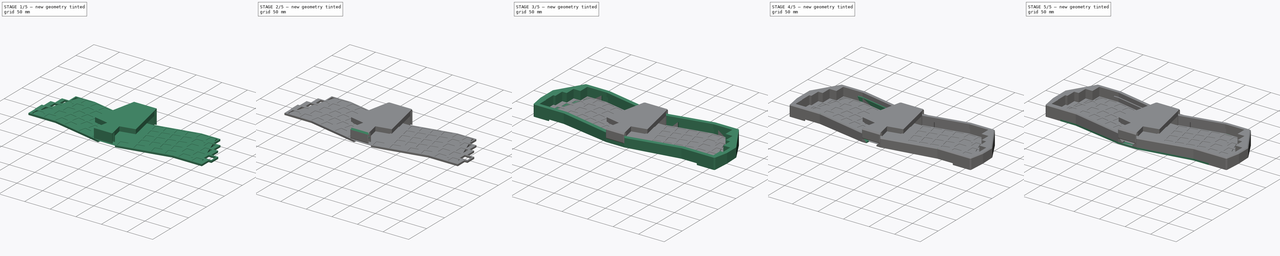
[diagram: build sequence overview — one tinted view per stage of 5, left to right]
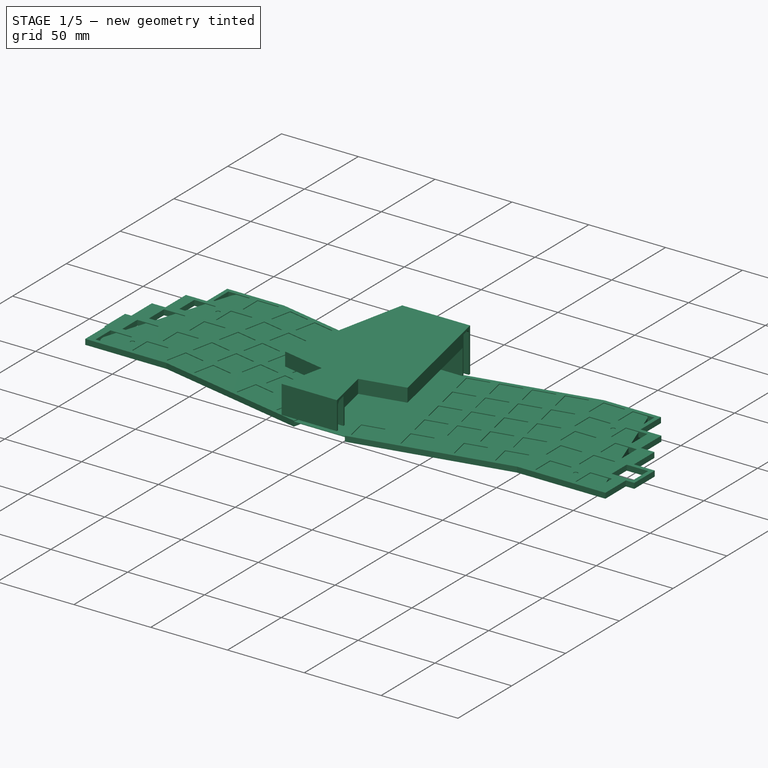
[diagram: stage 1 of 5 — iso view after this stage's code; geometry added in this stage tinted green]
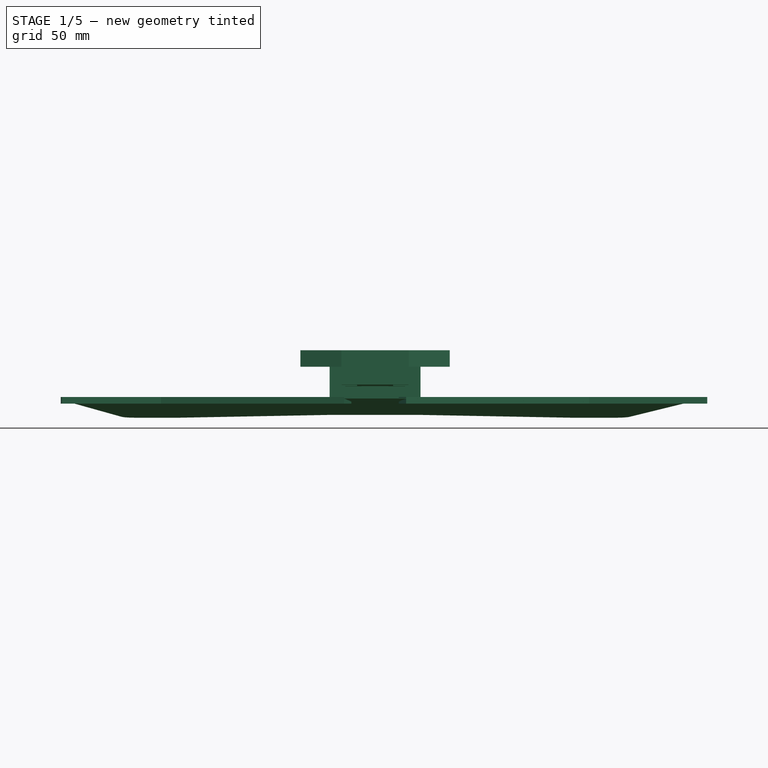
[diagram: stage 1 of 5 — front view after this stage's code; geometry added in this stage tinted green]
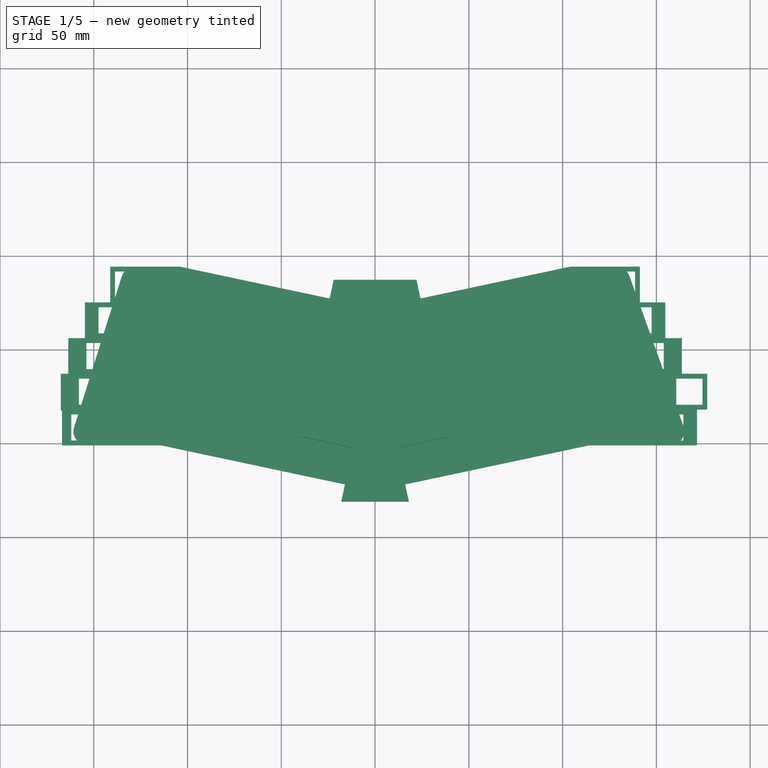
[diagram: stage 1 of 5 — top view after this stage's code; geometry added in this stage tinted green]
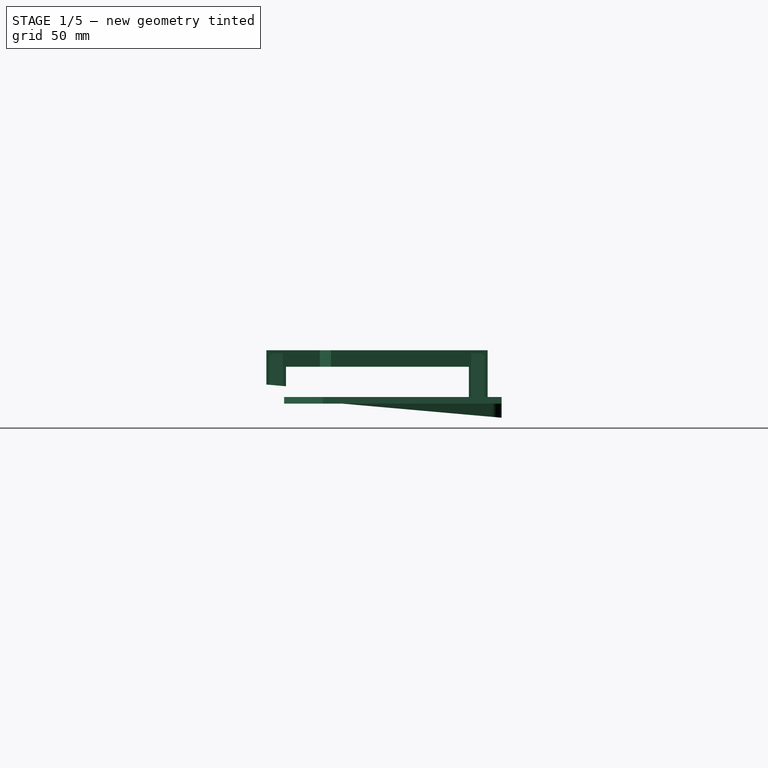
[diagram: stage 1 of 5 — right view after this stage's code; geometry added in this stage tinted green]
FCSTD DOCUMENT  (FreeCAD 1.0R39285 (Git))
Label: barnacle
License: All rights reserved
LicenseURL: https://en.wikipedia.org/wiki/All_rights_reserved
objects: Sketcher::SketchObject×77, PartDesign::Pocket×36, PartDesign::Pad×22, PartDesign::Body×13, PartDesign::Fillet×6, PartDesign::Chamfer×4, Spreadsheet::Sheet×1, PartDesign::ShapeBinder×1
note: 372 computed .brp shape members not serialized (recipe doc carries the construction recipe); baked Part::Feature solids carry a one-line shape summary decoded from their .brp

FEATURE [Sketcher::SketchObject] Sketch029  label="vorlage008"
  ArcFitTolerance = 0
  AttachmentSupport = -> [XY_Plane008]
  FullyConstrained = false
  MakeInternals = false
  MapMode = 5
  expr: Constraints[141] = 90 - <<config>>.ALPHA_ANGLE
  expr: Constraints[142] = <<config>>.KEY_UNIT
  expr: Constraints[147] = <<config>>.MOD_OFFSET
  expr: Constraints[148] = 2.75 * <<config>>.KEY_UNIT
  expr: Constraints[149] = 3.25 * <<config>>.KEY_UNIT
  expr: Constraints[150] = 2.75 * <<config>>.KEY_UNIT
  expr: Constraints[151] = 2.5 * <<config>>.KEY_UNIT
  expr: Constraints[152] = 2 * <<config>>.KEY_UNIT
  expr: Constraints[162] = 3 * <<config>>.KEY_UNIT
  expr: Constraints[169] = <<config>>.HEADER_WIDTH
  expr: Constraints[170] = <<config>>.HEADER_LENGTH
  expr: Constraints[191] = Spreadsheet.CASE_MARGIN
  expr: Constraints[192] = Spreadsheet.CASE_MARGIN
  expr: Constraints[193] = Spreadsheet.CASE_MARGIN
  expr: Constraints[194] = Spreadsheet.CASE_MARGIN
  expr: Constraints[195] = Spreadsheet.CASE_MARGIN
  expr: Constraints[203] = Spreadsheet.CASE_BEZEL
  expr: Constraints[207] = Spreadsheet.CORE_MARGIN
  expr: Constraints[209] = Spreadsheet.CORE_MARGIN
  expr: Constraints[213] = Spreadsheet.CASE_BEZEL
  expr: Constraints[44] = 2 * <<config>>.KEY_UNIT
  expr: Constraints[45] = 2.5 * <<config>>.KEY_UNIT
  expr: Constraints[46] = <<config>>.KEY_UNIT
  expr: Constraints[51] = 2.75 * <<config>>.KEY_UNIT
  expr: Constraints[52] = 2.75 * <<config>>.KEY_UNIT
  expr: Constraints[53] = 2.5 * <<config>>.KEY_UNIT
  expr: Constraints[59] = 90 - <<config>>.ALPHA_ANGLE
  expr: Constraints[62] = 4 * <<config>>.KEY_UNIT
  expr: Constraints[66] = 5 * <<config>>.KEY_UNIT
  expr: Constraints[67] = 5.5 * <<config>>.KEY_UNIT
  expr: Constraints[75] = <<config>>.KEY_UNIT
  expr: Constraints[76] = <<config>>.MOD_OFFSET
  expr: Constraints[84] = 4 * <<config>>.KEY_UNIT
  expr: Constraints[85] = 5.5 * <<config>>.KEY_UNIT
  expr: Constraints[86] = <<config>>.KEY_UNIT
  expr: Constraints[89] = 5 * <<config>>.KEY_UNIT
  sketch-geometry (73):
    g0: LineSegment [constr] StartX=-141.18 StartY=94.2 StartZ=0 EndX=-103.08 EndY=94.2 EndZ=0
    g1: LineSegment [constr] StartX=-103.08 StartY=94.2 StartZ=0 EndX=-103.08 EndY=75.15 EndZ=0
    g2: LineSegment [constr] StartX=-103.08 StartY=75.15 StartZ=0 EndX=-141.18 EndY=75.15 EndZ=0
    g3: LineSegment [constr] StartX=-141.18 StartY=75.15 StartZ=0 EndX=-141.18 EndY=94.2 EndZ=0
    g4: LineSegment [constr] StartX=-107.129 StartY=75.15 StartZ=0 EndX=-154.754 EndY=75.15 EndZ=0
    g5: LineSegment [constr] StartX=-154.754 StartY=75.15 StartZ=0 EndX=-154.754 EndY=56.1 EndZ=0
    g6: LineSegment [constr] StartX=-154.754 StartY=56.1 StartZ=0 EndX=-107.129 EndY=56.1 EndZ=0
    g7: LineSegment [constr] StartX=-107.129 StartY=56.1 StartZ=0 EndX=-107.129 EndY=75.15 EndZ=0
    g8: LineSegment [constr] StartX=-111.179 StartY=56.1 StartZ=0 EndX=-163.566 EndY=56.1 EndZ=0
    g9: LineSegment [constr] StartX=-163.566 StartY=56.1 StartZ=0 EndX=-163.566 EndY=37.05 EndZ=0
    g10: LineSegment [constr] StartX=-163.566 StartY=37.05 StartZ=0 EndX=-111.179 EndY=37.05 EndZ=0
    g11: LineSegment [constr] StartX=-111.179 StartY=37.05 StartZ=0 EndX=-111.179 EndY=56.1 EndZ=0
    g12: LineSegment [constr] StartX=-115.228 StartY=37.05 StartZ=0 EndX=-167.615 EndY=37.05 EndZ=0
    g13: LineSegment [constr] StartX=-167.615 StartY=37.05 StartZ=0 EndX=-167.615 EndY=18 EndZ=0
    g14: LineSegment [constr] StartX=-167.615 StartY=18 StartZ=0 EndX=-115.228 EndY=18 EndZ=0
    g15: LineSegment [constr] StartX=-115.228 StartY=18 StartZ=0 EndX=-115.228 EndY=37.05 EndZ=0
    g16: LineSegment [constr] StartX=-119.277 StartY=18 StartZ=0 EndX=-166.902 EndY=18 EndZ=0
    g17: LineSegment [constr] StartX=-166.902 StartY=18 StartZ=0 EndX=-166.902 EndY=-1.05 EndZ=0
    g18: LineSegment [constr] StartX=-166.902 StartY=-1.05 StartZ=0 EndX=-119.277 EndY=-1.05 EndZ=0
    g19: LineSegment [constr] StartX=-119.277 StartY=-1.05 StartZ=0 EndX=-119.277 EndY=18 EndZ=0
    g20: LineSegment [constr] StartX=-119.277 StartY=-1.05 StartZ=0 EndX=-99.2503 EndY=93.1686 EndZ=0
    g21: LineSegment [constr] StartX=-99.2503 StartY=93.1686 StartZ=0 EndX=-24.7155 EndY=77.3257 EndZ=0
    g22: LineSegment [constr] StartX=-119.054 StartY=0 StartZ=0 EndX=-16.5685 EndY=-21.7839 EndZ=0
    g23: LineSegment [constr] StartX=-16.5685 StartY=-21.7839 StartZ=0 EndX=-12.6078 EndY=-3.15024 EndZ=0
    g24: LineSegment [constr] StartX=-12.6078 StartY=-3.15024 StartZ=0 EndX=-40.5583 EndY=2.79084 EndZ=0
    g25: LineSegment [constr] StartX=-40.5583 StartY=2.79084 StartZ=0 EndX=-24.7155 EndY=77.3257 EndZ=0
    g26: LineSegment [constr] StartX=119.054 StartY=0 StartZ=0 EndX=16.5685 EndY=-21.7839 EndZ=0
    g27: LineSegment [constr] StartX=16.5685 StartY=-21.7839 StartZ=0 EndX=12.6078 EndY=-3.15024 EndZ=0
    g28: LineSegment [constr] StartX=12.6078 StartY=-3.15024 StartZ=0 EndX=40.5583 EndY=2.79084 EndZ=0
    g29: LineSegment [constr] StartX=40.5583 StartY=2.79084 StartZ=0 EndX=24.7155 EndY=77.3257 EndZ=0
    g30: LineSegment [constr] StartX=24.7155 StartY=77.3257 StartZ=0 EndX=99.2503 EndY=93.1686 EndZ=0
    g31: LineSegment [constr] StartX=99.2503 StartY=93.1686 StartZ=0 EndX=119.277 EndY=-1.05 EndZ=0
    g32: LineSegment [constr] StartX=119.277 StartY=-1.05 StartZ=0 EndX=171.665 EndY=-1.05 EndZ=0
    g33: LineSegment [constr] StartX=171.665 StartY=-1.05 StartZ=0 EndX=171.665 EndY=18 EndZ=0
    g34: LineSegment [constr] StartX=171.665 StartY=18 StartZ=0 EndX=119.277 EndY=18 EndZ=0
    g35: LineSegment [constr] StartX=119.277 StartY=18 StartZ=0 EndX=119.277 EndY=-1.05 EndZ=0
    g36: LineSegment [constr] StartX=115.228 StartY=18 StartZ=0 EndX=177.14 EndY=18 EndZ=0
    g37: LineSegment [constr] StartX=177.14 StartY=18 StartZ=0 EndX=177.14 EndY=37.05 EndZ=0
    g38: LineSegment [constr] StartX=177.14 StartY=37.05 StartZ=0 EndX=115.228 EndY=37.05 EndZ=0
    g39: LineSegment [constr] StartX=115.228 StartY=37.05 StartZ=0 EndX=115.228 EndY=18 EndZ=0
    g40: LineSegment [constr] StartX=111.179 StartY=37.05 StartZ=0 EndX=163.566 EndY=37.05 EndZ=0
    g41: LineSegment [constr] StartX=163.566 StartY=37.05 StartZ=0 EndX=163.566 EndY=56.1 EndZ=0
    g42: LineSegment [constr] StartX=163.566 StartY=56.1 StartZ=0 EndX=111.179 EndY=56.1 EndZ=0
    g43: LineSegment [constr] StartX=111.179 StartY=56.1 StartZ=0 EndX=111.179 EndY=37.05 EndZ=0
    g44: LineSegment [constr] StartX=107.129 StartY=56.1 StartZ=0 EndX=154.754 EndY=56.1 EndZ=0
    g45: LineSegment [constr] StartX=154.754 StartY=56.1 StartZ=0 EndX=154.754 EndY=75.15 EndZ=0
    g46: LineSegment [constr] StartX=154.754 StartY=75.15 StartZ=0 EndX=107.129 EndY=75.15 EndZ=0
    g47: LineSegment [constr] StartX=107.129 StartY=75.15 StartZ=0 EndX=107.129 EndY=56.1 EndZ=0
    g48: LineSegment [constr] StartX=103.08 StartY=75.15 StartZ=0 EndX=141.18 EndY=75.15 EndZ=0
    g49: LineSegment [constr] StartX=141.18 StartY=75.15 StartZ=0 EndX=141.18 EndY=94.2 EndZ=0
    g50: LineSegment [constr] StartX=141.18 StartY=94.2 StartZ=0 EndX=103.08 EndY=94.2 EndZ=0
    g51: LineSegment [constr] StartX=103.08 StartY=94.2 StartZ=0 EndX=103.08 EndY=75.15 EndZ=0
    g52: LineSegment [constr] StartX=-28.575 StartY=57.7047 StartZ=0 EndX=28.575 EndY=57.7047 EndZ=0
    g53: LineSegment [constr] StartX=28.575 StartY=57.7047 StartZ=0 EndX=28.575 EndY=0.554733 EndZ=0
    g54: LineSegment [constr] StartX=28.575 StartY=0.554733 StartZ=0 EndX=-28.575 EndY=0.554733 EndZ=0
    g55: LineSegment [constr] StartX=-28.575 StartY=0.554733 StartZ=0 EndX=-28.575 EndY=57.7047 EndZ=0
    g56: LineSegment [constr] StartX=-37.037 StartY=2.04236 StartZ=0 EndX=-28.575 EndY=41.853 EndZ=0
    g57: LineSegment [constr] StartX=-28.575 StartY=41.853 StartZ=0 EndX=-32.0963 EndY=42.6014 EndZ=0
    g58: Circle [constr] CenterX=-28.575 CenterY=57.7047 CenterZ=0 NormalX=0 NormalY=0 NormalZ=1 AngleXU=0 Radius=0.304232
    g59: Circle [constr] CenterX=-28.575 CenterY=0.554733 CenterZ=0 NormalX=0 NormalY=0 NormalZ=1 AngleXU=0 Radius=0.304232
    g60: LineSegment StartX=-17.9585 StartY=-31.2091 StartZ=0 EndX=-11.8944 EndY=-2.67981 EndZ=0
    g61: LineSegment StartX=-11.8944 StartY=-2.67981 StartZ=0 EndX=-39.8449 EndY=3.26124 EndZ=0
    g62: LineSegment StartX=-39.8449 StartY=3.26124 StartZ=0 EndX=-22.0854 EndY=86.7509 EndZ=0
    g63: LineSegment StartX=-22.0854 StartY=86.7509 StartZ=0 EndX=22.0987 EndY=86.7509 EndZ=0
    g64: LineSegment StartX=22.0987 StartY=86.7509 StartZ=0 EndX=39.8467 EndY=3.25298 EndZ=0
    g65: LineSegment StartX=39.8467 StartY=3.25298 StartZ=0 EndX=11.8961 EndY=-2.68809 EndZ=0
    g66: LineSegment StartX=11.8961 StartY=-2.68809 StartZ=0 EndX=17.9585 EndY=-31.2091 EndZ=0
    g67: LineSegment [constr] StartX=-16.5685 StartY=-21.7839 StartZ=0 EndX=-18.2318 EndY=-29.6091 EndZ=0
    g68: LineSegment [constr] StartX=16.5685 StartY=-21.7839 StartZ=0 EndX=18.2318 EndY=-29.6091 EndZ=0
    g69: LineSegment [constr] StartX=18.2318 StartY=-29.6091 StartZ=0 EndX=-18.2318 EndY=-29.6091 EndZ=0
    g70: LineSegment StartX=-17.9585 StartY=-31.2091 StartZ=0 EndX=17.9585 EndY=-31.2091 EndZ=0
    g71: LineSegment [constr] StartX=-23.0522 StartY=85.1509 StartZ=0 EndX=21.4507 EndY=85.1509 EndZ=0
    g72: LineSegment [constr] StartX=-24.7155 StartY=77.3257 StartZ=0 EndX=-23.0522 EndY=85.1509 EndZ=0
  constraints (214):
    c: Coincident(g0,g1)
    c: Coincident(g1,g2)
    c: Coincident(g2,g3)
    c: Coincident(g3,g0)
    c: Horizontal(g0)
    c: Horizontal(g2)
    c: Vertical(g1)
    c: Vertical(g3)
    c: Coincident(g4,g5)
    c: Coincident(g5,g6)
    c: Coincident(g6,g7)
    c: Coincident(g7,g4)
    c: Horizontal(g4)
    c: Horizontal(g6)
    c: Vertical(g5)
    c: Vertical(g7)
    c: PointOnObject(g4,g2)
    c: Coincident(g8,g9)
    c: Coincident(g9,g10)
    c: Coincident(g10,g11)
    c: Coincident(g11,g8)
    c: Horizontal(g8)
    c: Horizontal(g10)
    c: Vertical(g9)
    c: Vertical(g11)
    c: PointOnObject(g8,g6)
    c: Coincident(g12,g13)
    c: Coincident(g13,g14)
    c: Coincident(g14,g15)
    c: Coincident(g15,g12)
    c: Horizontal(g12)
    c: Horizontal(g14)
    c: Vertical(g13)
    c: Vertical(g15)
    c: PointOnObject(g12,g10)
    c: Coincident(g16,g17)
    c: Coincident(g17,g18)
    c: Coincident(g18,g19)
    c: Coincident(g19,g16)
    c: Horizontal(g16)
    c: Horizontal(g18)
    c: Vertical(g17)
    c: Vertical(g19)
    c: PointOnObject(g16,g14)
    c: DistanceX(g0,g0) = 38.1
    c: DistanceX(g4,g4) = 47.625
    c: DistanceY(g3,g3) = 19.05
    c: Equal(g3,g5)
    c: Equal(g5,g9)
    c: Equal(g9,g13)
    c: Equal(g13,g17)
    c: DistanceX(g8,g8) = 52.3875
    c: DistanceX(g12,g12) = 52.3875
    c: DistanceX(g16,g16) = 47.625
    c: Coincident(g20,g18)
    c: PointOnObject(g14,g20)
    c: PointOnObject(g10,g20)
    c: PointOnObject(g6,g20)
    c: PointOnObject(g1,g20)
    c: Angle(g-1,g20) = 1.36136
    c: Coincident(g20,g21)
    c: Perpendicular(g21,g20)
    c: Distance(g21) = 76.2
    c: PointOnObject(g22,g-1)
    c: PointOnObject(g22,g20)
    c: Perpendicular(g22,g20)
    c: Distance(g22,g20) = 95.25
    c: Distance(g22) = 104.775
    c: Coincident(g23,g22)
    c: Coincident(g24,g23)
    c: Coincident(g25,g24)
    c: Coincident(g25,g21)
    c: Perpendicular(g21,g25)
    c: Perpendicular(g23,g22)
    c: Perpendicular(g24,g23)
    c: Distance(g23) = 19.05
    c: DistanceY(g18,g22) = 1.05
    c: Coincident(g26,g27)
    c: Coincident(g27,g28)
    c: Coincident(g28,g29)
    c: Coincident(g29,g30)
    c: Perpendicular(g27,g26)
    c: Perpendicular(g28,g27)
    c: Perpendicular(g30,g29)
    c: Distance(g30) = 76.2
    c: Distance(g26) = 104.775
    c: Distance(g27) = 19.05
    c: Coincident(g31,g30)
    c: PointOnObject(g26,g31)
    c: Distance(g26,g30) = 95.25
    c: Perpendicular(g31,g26)
    c: Perpendicular(g31,g30)
    c: Coincident(g32,g33)
    c: Coincident(g33,g34)
    c: Coincident(g34,g35)
    c: Coincident(g35,g32)
    c: Horizontal(g32)
    c: Horizontal(g34)
    c: Vertical(g33)
    c: Vertical(g35)
    c: Coincident(g32,g31)
    c: Coincident(g36,g37)
    c: Coincident(g37,g38)
    c: Coincident(g38,g39)
    c: Coincident(g39,g36)
    c: Horizontal(g36)
    c: Horizontal(g38)
    c: Vertical(g37)
    c: Vertical(g39)
    c: PointOnObject(g36,g34)
    c: Coincident(g40,g41)
    c: Coincident(g41,g42)
    c: Coincident(g42,g43)
    c: Coincident(g43,g40)
    c: Horizontal(g40)
    c: Horizontal(g42)
    c: Vertical(g41)
    c: Vertical(g43)
    c: PointOnObject(g40,g38)
    c: Coincident(g44,g45)
    c: Coincident(g45,g46)
    c: Coincident(g46,g47)
    c: Coincident(g47,g44)
    c: Horizontal(g44)
    c: Horizontal(g46)
    c: Vertical(g45)
    c: Vertical(g47)
    c: PointOnObject(g44,g42)
    c: Coincident(g48,g49)
    c: Coincident(g49,g50)
    c: Coincident(g50,g51)
    c: Coincident(g51,g48)
    c: Horizontal(g48)
    c: Horizontal(g50)
    c: Vertical(g49)
    c: Vertical(g51)
    c: PointOnObject(g48,g46)
    c: PointOnObject(g48,g31)
    c: PointOnObject(g44,g31)
    c: PointOnObject(g40,g31)
    c: PointOnObject(g36,g31)
    c: Angle(g31,g-1) = 1.36136
    c: DistanceY(g49,g49) = 19.05
    c: Equal(g49,g45)
    c: Equal(g45,g41)
    c: Equal(g41,g37)
    c: Equal(g37,g33)
    c: DistanceY(g31,g26) = 1.05
    c: DistanceX(g34,g34) = 52.3875
    c: DistanceX(g38,g38) = 61.9125
    c: DistanceX(g42,g42) = 52.3875
    c: DistanceX(g46,g46) = 47.625
    c: DistanceX(g50,g50) = 38.1
    c: Coincident(g52,g53)
    c: Coincident(g53,g54)
    c: Coincident(g54,g55)
    c: Coincident(g55,g52)
    c: Horizontal(g54)
    c: Vertical(g53)
    c: Vertical(g55)
    c: Symmetric(g52,g52,g-2)
    c: Equal(g52,g53)
    c: DistanceX(g52,g52) = 57.15
    c: Symmetric(g22,g26,g-2)
    c: PointOnObject(g56,g24)
    c: Coincident(g57,g56)
    c: PointOnObject(g57,g25)
    c: Perpendicular(g57,g56)
    c: Perpendicular(g56,g24)
    c: Distance(g57) = 3.6
    c: Distance(g56) = 40.7
    c: PointOnObject(g56,g55)
    c: Coincident(g58,g52)
    c: Tangent(g58,g25)
    c: Coincident(g59,g54)
    c: Tangent(g59,g24)
    c: Equal(g59,g58)
    c: Coincident(g60,g61)
    c: Tangent(g61,g59)
    c: Coincident(g61,g62)
    c: Tangent(g62,g58)
    c: Coincident(g62,g63)
    c: Horizontal(g63)
    c: Coincident(g63,g64)
    c: Coincident(g64,g65)
    c: Coincident(g65,g66)
    c: Parallel(g23,g60)
    c: Parallel(g24,g61)
    c: Parallel(g27,g66)
    c: Parallel(g65,g28)
    c: Parallel(g64,g29)
    c: Distance(g66,g27) = 0.6
    c: Distance(g27,g65) = 0.6
    c: Distance(g28,g64) = 0.6
    c: Distance(g22,g60) = 0.6
    c: Distance(g24,g62) = 0.6
    c: Coincident(g67,g22)
    c: Coincident(g68,g26)
    c: Coincident(g69,g68)
    c: Coincident(g69,g67)
    c: Horizontal(g69)
    c: Parallel(g67,g23)
    c: Parallel(g68,g27)
    c: Distance(g67) = 8
    c: Horizontal(g70)
    c: Coincident(g66,g70)
    c: Coincident(g60,g70)
    c: DistanceY(g60,g67) = 1.6
    c: Horizontal(g71)
    c: DistanceY(g71,g62) = 1.6
    c: Coincident(g72,g21)
    c: Coincident(g72,g71)
    c: Parallel(g72,g25)
    c: Distance(g21,g71) = 8
FEATURE [PartDesign::Pad] Pad011
  Direction = (0,0,1)
  Length = 28.4
  Length2 = 10
  Profile = -> Sketch029
  ReferenceAxis = -> Sketch029 [N_Axis]
  Suppressed = false
  Type = 0
  expr: Length = Spreadsheet.CASE_INNER_HEIGHT + Spreadsheet.CORE_MARGIN + 10
FEATURE [Sketcher::SketchObject] Sketch030
  ArcFitTolerance = 0
  AttachmentSupport = -> [YZ_Plane008]
  ExternalGeometry = -> [Pad011]
  FullyConstrained = true
  MakeInternals = false
  MapMode = 5
  Placement = pos=(0,0,0) rot=(0.57735,0.57735,0.57735;2.0944rad)
  expr: Constraints[10] = Spreadsheet.CORE_MARGIN
  expr: Constraints[6] = Spreadsheet.CASE_TYPING_ANGLE
  sketch-geometry (4):
    g0: LineSegment StartX=-31.2091 StartY=-1.36e-14 StartZ=0 EndX=-31.2091 EndY=10.14 EndZ=0
    g1: LineSegment StartX=-31.2091 StartY=10.14 StartZ=0 EndX=84.6914 EndY=0 EndZ=0
    g2: LineSegment StartX=84.6914 StartY=0 StartZ=0 EndX=-31.2091 EndY=-1.36e-14 EndZ=0
    g3: LineSegment [constr] StartX=-29.6091 StartY=10 StartZ=0 EndX=-29.6091 EndY=-1.42e-14 EndZ=0
  constraints (12):
    c: Coincident(g0,g-3)
    c: Vertical(g0)
    c: Coincident(g1,g0)
    c: PointOnObject(g1,g-1)
    c: Coincident(g2,g1)
    c: Coincident(g2,g0)
    c: Angle(g1,g2) = 0.0872665
    c: PointOnObject(g3,g1)
    c: PointOnObject(g3,g2)
    c: Vertical(g3)
    c: DistanceX(g0,g3) = 1.6
    c: DistanceY(g3,g3) = 10
FEATURE [PartDesign::Pocket] Pocket017  label="typing angle core"
  BaseFeature = -> Pad011
  Direction = (-1,0,0)
  Length = 100
  Length2 = 5
  Midplane = true
  Profile = -> Sketch030
  ReferenceAxis = -> Sketch030 [N_Axis]
  Suppressed = false
  Type = 0
FEATURE [Sketcher::SketchObject] Sketch031  label="vorlage009"
  ArcFitTolerance = 0
  AttachmentSupport = -> [XY_Plane008]
  ExternalGeometry = -> [Pocket017]
  FullyConstrained = false
  MakeInternals = false
  MapMode = 5
  expr: Constraints[141] = 90 - <<config>>.ALPHA_ANGLE
  expr: Constraints[142] = <<config>>.KEY_UNIT
  expr: Constraints[147] = <<config>>.MOD_OFFSET
  expr: Constraints[148] = 2.75 * <<config>>.KEY_UNIT
  expr: Constraints[149] = 3.25 * <<config>>.KEY_UNIT
  expr: Constraints[150] = 2.75 * <<config>>.KEY_UNIT
  expr: Constraints[151] = 2.5 * <<config>>.KEY_UNIT
  expr: Constraints[152] = 2 * <<config>>.KEY_UNIT
  expr: Constraints[162] = 3 * <<config>>.KEY_UNIT
  expr: Constraints[169] = <<config>>.HEADER_WIDTH
  expr: Constraints[170] = <<config>>.HEADER_LENGTH
  expr: Constraints[178] = Spreadsheet.CASE_BEZEL
  expr: Constraints[189] = Spreadsheet.CASE_MARGIN
  expr: Constraints[190] = Spreadsheet.CASE_MARGIN
  expr: Constraints[191] = Spreadsheet.CASE_MARGIN
  expr: Constraints[192] = Spreadsheet.CORE_MARGIN
  expr: Constraints[210] = Spreadsheet.CORE_MARGIN + Spreadsheet.CASE_BEZEL + 0.4
  expr: Constraints[44] = 2 * <<config>>.KEY_UNIT
  expr: Constraints[45] = 2.5 * <<config>>.KEY_UNIT
  expr: Constraints[46] = <<config>>.KEY_UNIT
  expr: Constraints[51] = 2.75 * <<config>>.KEY_UNIT
  expr: Constraints[52] = 2.75 * <<config>>.KEY_UNIT
  expr: Constraints[53] = 2.5 * <<config>>.KEY_UNIT
  expr: Constraints[59] = 90 - <<config>>.ALPHA_ANGLE
  expr: Constraints[62] = 4 * <<config>>.KEY_UNIT
  expr: Constraints[66] = 5 * <<config>>.KEY_UNIT
  expr: Constraints[67] = 5.5 * <<config>>.KEY_UNIT
  expr: Constraints[75] = <<config>>.KEY_UNIT
  expr: Constraints[76] = <<config>>.MOD_OFFSET
  expr: Constraints[84] = 4 * <<config>>.KEY_UNIT
  expr: Constraints[85] = 5.5 * <<config>>.KEY_UNIT
  expr: Constraints[86] = <<config>>.KEY_UNIT
  expr: Constraints[89] = 5 * <<config>>.KEY_UNIT
  sketch-geometry (72):
    g0: LineSegment [constr] StartX=-141.18 StartY=94.2 StartZ=0 EndX=-103.08 EndY=94.2 EndZ=0
    g1: LineSegment [constr] StartX=-103.08 StartY=94.2 StartZ=0 EndX=-103.08 EndY=75.15 EndZ=0
    g2: LineSegment [constr] StartX=-103.08 StartY=75.15 StartZ=0 EndX=-141.18 EndY=75.15 EndZ=0
    g3: LineSegment [constr] StartX=-141.18 StartY=75.15 StartZ=0 EndX=-141.18 EndY=94.2 EndZ=0
    g4: LineSegment [constr] StartX=-107.129 StartY=75.15 StartZ=0 EndX=-154.754 EndY=75.15 EndZ=0
    g5: LineSegment [constr] StartX=-154.754 StartY=75.15 StartZ=0 EndX=-154.754 EndY=56.1 EndZ=0
    g6: LineSegment [constr] StartX=-154.754 StartY=56.1 StartZ=0 EndX=-107.129 EndY=56.1 EndZ=0
    g7: LineSegment [constr] StartX=-107.129 StartY=56.1 StartZ=0 EndX=-107.129 EndY=75.15 EndZ=0
    g8: LineSegment [constr] StartX=-111.179 StartY=56.1 StartZ=0 EndX=-163.566 EndY=56.1 EndZ=0
    g9: LineSegment [constr] StartX=-163.566 StartY=56.1 StartZ=0 EndX=-163.566 EndY=37.05 EndZ=0
    g10: LineSegment [constr] StartX=-163.566 StartY=37.05 StartZ=0 EndX=-111.179 EndY=37.05 EndZ=0
    g11: LineSegment [constr] StartX=-111.179 StartY=37.05 StartZ=0 EndX=-111.179 EndY=56.1 EndZ=0
    g12: LineSegment [constr] StartX=-115.228 StartY=37.05 StartZ=0 EndX=-167.615 EndY=37.05 EndZ=0
    g13: LineSegment [constr] StartX=-167.615 StartY=37.05 StartZ=0 EndX=-167.615 EndY=18 EndZ=0
    g14: LineSegment [constr] StartX=-167.615 StartY=18 StartZ=0 EndX=-115.228 EndY=18 EndZ=0
    g15: LineSegment [constr] StartX=-115.228 StartY=18 StartZ=0 EndX=-115.228 EndY=37.05 EndZ=0
    g16: LineSegment [constr] StartX=-119.277 StartY=18 StartZ=0 EndX=-166.902 EndY=18 EndZ=0
    g17: LineSegment [constr] StartX=-166.902 StartY=18 StartZ=0 EndX=-166.902 EndY=-1.05 EndZ=0
    g18: LineSegment [constr] StartX=-166.902 StartY=-1.05 StartZ=0 EndX=-119.277 EndY=-1.05 EndZ=0
    g19: LineSegment [constr] StartX=-119.277 StartY=-1.05 StartZ=0 EndX=-119.277 EndY=18 EndZ=0
    g20: LineSegment [constr] StartX=-119.277 StartY=-1.05 StartZ=0 EndX=-99.2503 EndY=93.1686 EndZ=0
    g21: LineSegment [constr] StartX=-99.2503 StartY=93.1686 StartZ=0 EndX=-24.7155 EndY=77.3257 EndZ=0
    g22: LineSegment [constr] StartX=-119.054 StartY=0 StartZ=0 EndX=-16.5685 EndY=-21.7839 EndZ=0
    g23: LineSegment [constr] StartX=-16.5685 StartY=-21.7839 StartZ=0 EndX=-12.6078 EndY=-3.15024 EndZ=0
    g24: LineSegment [constr] StartX=-12.6078 StartY=-3.15024 StartZ=0 EndX=-40.5583 EndY=2.79084 EndZ=0
    g25: LineSegment [constr] StartX=-40.5583 StartY=2.79084 StartZ=0 EndX=-24.7155 EndY=77.3257 EndZ=0
    g26: LineSegment [constr] StartX=119.054 StartY=0 StartZ=0 EndX=16.5685 EndY=-21.7839 EndZ=0
    g27: LineSegment [constr] StartX=16.5685 StartY=-21.7839 StartZ=0 EndX=12.6078 EndY=-3.15024 EndZ=0
    g28: LineSegment [constr] StartX=12.6078 StartY=-3.15024 StartZ=0 EndX=40.5583 EndY=2.79084 EndZ=0
    g29: LineSegment [constr] StartX=40.5583 StartY=2.79084 StartZ=0 EndX=24.7155 EndY=77.3257 EndZ=0
    g30: LineSegment [constr] StartX=24.7155 StartY=77.3257 StartZ=0 EndX=99.2503 EndY=93.1686 EndZ=0
    g31: LineSegment [constr] StartX=99.2503 StartY=93.1686 StartZ=0 EndX=119.277 EndY=-1.05 EndZ=0
    g32: LineSegment [constr] StartX=119.277 StartY=-1.05 StartZ=0 EndX=171.665 EndY=-1.05 EndZ=0
    g33: LineSegment [constr] StartX=171.665 StartY=-1.05 StartZ=0 EndX=171.665 EndY=18 EndZ=0
    g34: LineSegment [constr] StartX=171.665 StartY=18 StartZ=0 EndX=119.277 EndY=18 EndZ=0
    g35: LineSegment [constr] StartX=119.277 StartY=18 StartZ=0 EndX=119.277 EndY=-1.05 EndZ=0
    g36: LineSegment [constr] StartX=115.228 StartY=18 StartZ=0 EndX=177.14 EndY=18 EndZ=0
    g37: LineSegment [constr] StartX=177.14 StartY=18 StartZ=0 EndX=177.14 EndY=37.05 EndZ=0
    g38: LineSegment [constr] StartX=177.14 StartY=37.05 StartZ=0 EndX=115.228 EndY=37.05 EndZ=0
    g39: LineSegment [constr] StartX=115.228 StartY=37.05 StartZ=0 EndX=115.228 EndY=18 EndZ=0
    g40: LineSegment [constr] StartX=111.179 StartY=37.05 StartZ=0 EndX=163.566 EndY=37.05 EndZ=0
    g41: LineSegment [constr] StartX=163.566 StartY=37.05 StartZ=0 EndX=163.566 EndY=56.1 EndZ=0
    g42: LineSegment [constr] StartX=163.566 StartY=56.1 StartZ=0 EndX=111.179 EndY=56.1 EndZ=0
    g43: LineSegment [constr] StartX=111.179 StartY=56.1 StartZ=0 EndX=111.179 EndY=37.05 EndZ=0
    g44: LineSegment [constr] StartX=107.129 StartY=56.1 StartZ=0 EndX=154.754 EndY=56.1 EndZ=0
    g45: LineSegment [constr] StartX=154.754 StartY=56.1 StartZ=0 EndX=154.754 EndY=75.15 EndZ=0
    g46: LineSegment [constr] StartX=154.754 StartY=75.15 StartZ=0 EndX=107.129 EndY=75.15 EndZ=0
    g47: LineSegment [constr] StartX=107.129 StartY=75.15 StartZ=0 EndX=107.129 EndY=56.1 EndZ=0
    g48: LineSegment [constr] StartX=103.08 StartY=75.15 StartZ=0 EndX=141.18 EndY=75.15 EndZ=0
    g49: LineSegment [constr] StartX=141.18 StartY=75.15 StartZ=0 EndX=141.18 EndY=94.2 EndZ=0
    g50: LineSegment [constr] StartX=141.18 StartY=94.2 StartZ=0 EndX=103.08 EndY=94.2 EndZ=0
    g51: LineSegment [constr] StartX=103.08 StartY=94.2 StartZ=0 EndX=103.08 EndY=75.15 EndZ=0
    g52: LineSegment [constr] StartX=-28.575 StartY=57.7047 StartZ=0 EndX=28.575 EndY=57.7047 EndZ=0
    g53: LineSegment [constr] StartX=28.575 StartY=57.7047 StartZ=0 EndX=28.575 EndY=0.554733 EndZ=0
    g54: LineSegment [constr] StartX=28.575 StartY=0.554733 StartZ=0 EndX=-28.575 EndY=0.554733 EndZ=0
    g55: LineSegment [constr] StartX=-28.575 StartY=0.554733 StartZ=0 EndX=-28.575 EndY=57.7047 EndZ=0
    g56: LineSegment [constr] StartX=-37.037 StartY=2.04236 StartZ=0 EndX=-28.575 EndY=41.853 EndZ=0
    g57: LineSegment [constr] StartX=-28.575 StartY=41.853 StartZ=0 EndX=-32.0963 EndY=42.6014 EndZ=0
    g58: Circle [constr] CenterX=-28.575 CenterY=57.7047 CenterZ=0 NormalX=0 NormalY=0 NormalZ=1 AngleXU=0 Radius=0.304232
    g59: Circle [constr] CenterX=-28.575 CenterY=0.554733 CenterZ=0 NormalX=0 NormalY=0 NormalZ=1 AngleXU=0 Radius=0.304232
    g60: LineSegment [constr] StartX=-17.6892 StartY=-30.2042 StartZ=0 EndX=15.432 EndY=-30.2042 EndZ=0
    g61: LineSegment StartX=171.665 StartY=-20.7708 StartZ=0 EndX=171.665 EndY=76.7509 EndZ=0
    g62: LineSegment StartX=171.665 StartY=76.7509 StartZ=0 EndX=-166.902 EndY=76.7509 EndZ=0
    g63: LineSegment StartX=-166.902 StartY=76.7509 StartZ=0 EndX=-166.902 EndY=-20.7708 EndZ=0
    g64: Circle [constr] CenterX=-16.5685 CenterY=-21.7839 CenterZ=0 NormalX=0 NormalY=0 NormalZ=1 AngleXU=0 Radius=0.6
    g65: Circle [constr] CenterX=16.5685 CenterY=-21.7839 CenterZ=0 NormalX=0 NormalY=0 NormalZ=1 AngleXU=0 Radius=0.6
    g66: LineSegment [constr] StartX=-16.6932 StartY=-22.3708 StartZ=0 EndX=16.6932 EndY=-22.3708 EndZ=0
    g67: ArcOfCircle [constr] CenterX=-1.66e-14 CenterY=156.876 CenterZ=0 NormalX=0 NormalY=0 NormalZ=1 AngleXU=0 Radius=178.247 StartAngle=4.48017 EndAngle=4.94461
    g68: LineSegment StartX=-166.902 StartY=-20.7708 StartZ=0 EndX=-14.6129 EndY=-20.7708 EndZ=0
    g69: LineSegment StartX=171.665 StartY=-20.7708 StartZ=0 EndX=14.6129 EndY=-20.7708 EndZ=0
    g70: GeomPoint [constr] X=0 Y=-21.3708 Z=0
    g71: ArcOfCircle CenterX=7.7e-14 CenterY=156.876 CenterZ=0 NormalX=0 NormalY=0 NormalZ=1 AngleXU=0 Radius=178.247 StartAngle=4.63032 EndAngle=4.79446
  constraints (213):
    c: Coincident(g0,g1)
    c: Coincident(g1,g2)
    c: Coincident(g2,g3)
    c: Coincident(g3,g0)
    c: Horizontal(g0)
    c: Horizontal(g2)
    c: Vertical(g1)
    c: Vertical(g3)
    c: Coincident(g4,g5)
    c: Coincident(g5,g6)
    c: Coincident(g6,g7)
    c: Coincident(g7,g4)
    c: Horizontal(g4)
    c: Horizontal(g6)
    c: Vertical(g5)
    c: Vertical(g7)
    c: PointOnObject(g4,g2)
    c: Coincident(g8,g9)
    c: Coincident(g9,g10)
    c: Coincident(g10,g11)
    c: Coincident(g11,g8)
    c: Horizontal(g8)
    c: Horizontal(g10)
    c: Vertical(g9)
    c: Vertical(g11)
    c: PointOnObject(g8,g6)
    c: Coincident(g12,g13)
    c: Coincident(g13,g14)
    c: Coincident(g14,g15)
    c: Coincident(g15,g12)
    c: Horizontal(g12)
    c: Horizontal(g14)
    c: Vertical(g13)
    c: Vertical(g15)
    c: PointOnObject(g12,g10)
    c: Coincident(g16,g17)
    c: Coincident(g17,g18)
    c: Coincident(g18,g19)
    c: Coincident(g19,g16)
    c: Horizontal(g16)
    c: Horizontal(g18)
    c: Vertical(g17)
    c: Vertical(g19)
    c: PointOnObject(g16,g14)
    c: DistanceX(g0,g0) = 38.1
    c: DistanceX(g4,g4) = 47.625
    c: DistanceY(g3,g3) = 19.05
    c: Equal(g3,g5)
    c: Equal(g5,g9)
    c: Equal(g9,g13)
    c: Equal(g13,g17)
    c: DistanceX(g8,g8) = 52.3875
    c: DistanceX(g12,g12) = 52.3875
    c: DistanceX(g16,g16) = 47.625
    c: Coincident(g20,g18)
    c: PointOnObject(g14,g20)
    c: PointOnObject(g10,g20)
    c: PointOnObject(g6,g20)
    c: PointOnObject(g1,g20)
    c: Angle(g-1,g20) = 1.36136
    c: Coincident(g20,g21)
    c: Perpendicular(g21,g20)
    c: Distance(g21) = 76.2
    c: PointOnObject(g22,g-1)
    c: PointOnObject(g22,g20)
    c: Perpendicular(g22,g20)
    c: Distance(g22,g20) = 95.25
    c: Distance(g22) = 104.775
    c: Coincident(g23,g22)
    c: Coincident(g24,g23)
    c: Coincident(g25,g24)
    c: Coincident(g25,g21)
    c: Perpendicular(g21,g25)
    c: Perpendicular(g23,g22)
    c: Perpendicular(g24,g23)
    c: Distance(g23) = 19.05
    c: DistanceY(g18,g22) = 1.05
    c: Coincident(g26,g27)
    c: Coincident(g27,g28)
    c: Coincident(g28,g29)
    c: Coincident(g29,g30)
    c: Perpendicular(g27,g26)
    c: Perpendicular(g28,g27)
    c: Perpendicular(g30,g29)
    c: Distance(g30) = 76.2
    c: Distance(g26) = 104.775
    c: Distance(g27) = 19.05
    c: Coincident(g31,g30)
    c: PointOnObject(g26,g31)
    c: Distance(g26,g30) = 95.25
    c: Perpendicular(g31,g26)
    c: Perpendicular(g31,g30)
    c: Coincident(g32,g33)
    c: Coincident(g33,g34)
    c: Coincident(g34,g35)
    c: Coincident(g35,g32)
    c: Horizontal(g32)
    c: Horizontal(g34)
    c: Vertical(g33)
    c: Vertical(g35)
    c: Coincident(g32,g31)
    c: Coincident(g36,g37)
    c: Coincident(g37,g38)
    c: Coincident(g38,g39)
    c: Coincident(g39,g36)
    c: Horizontal(g36)
    c: Horizontal(g38)
    c: Vertical(g37)
    c: Vertical(g39)
    c: PointOnObject(g36,g34)
    c: Coincident(g40,g41)
    c: Coincident(g41,g42)
    c: Coincident(g42,g43)
    c: Coincident(g43,g40)
    c: Horizontal(g40)
    c: Horizontal(g42)
    c: Vertical(g41)
    c: Vertical(g43)
    c: PointOnObject(g40,g38)
    c: Coincident(g44,g45)
    c: Coincident(g45,g46)
    c: Coincident(g46,g47)
    c: Coincident(g47,g44)
    c: Horizontal(g44)
    c: Horizontal(g46)
    c: Vertical(g45)
    c: Vertical(g47)
    c: PointOnObject(g44,g42)
    c: Coincident(g48,g49)
    c: Coincident(g49,g50)
    c: Coincident(g50,g51)
    c: Coincident(g51,g48)
    c: Horizontal(g48)
    c: Horizontal(g50)
    c: Vertical(g49)
    c: Vertical(g51)
    c: PointOnObject(g48,g46)
    c: PointOnObject(g48,g31)
    c: PointOnObject(g44,g31)
    c: PointOnObject(g40,g31)
    c: PointOnObject(g36,g31)
    c: Angle(g31,g-1) = 1.36136
    c: DistanceY(g49,g49) = 19.05
    c: Equal(g49,g45)
    c: Equal(g45,g41)
    c: Equal(g41,g37)
    c: Equal(g37,g33)
    c: DistanceY(g31,g26) = 1.05
    c: DistanceX(g34,g34) = 52.3875
    c: DistanceX(g38,g38) = 61.9125
    c: DistanceX(g42,g42) = 52.3875
    c: DistanceX(g46,g46) = 47.625
    c: DistanceX(g50,g50) = 38.1
    c: Coincident(g52,g53)
    c: Coincident(g53,g54)
    c: Coincident(g54,g55)
    c: Coincident(g55,g52)
    c: Horizontal(g54)
    c: Vertical(g53)
    c: Vertical(g55)
    c: Symmetric(g52,g52,g-2)
    c: Equal(g52,g53)
    c: DistanceX(g52,g52) = 57.15
    c: Symmetric(g22,g26,g-2)
    c: PointOnObject(g56,g24)
    c: Coincident(g57,g56)
    c: PointOnObject(g57,g25)
    c: Perpendicular(g57,g56)
    c: Perpendicular(g56,g24)
    c: Distance(g57) = 3.6
    c: Distance(g56) = 40.7
    c: PointOnObject(g56,g55)
    c: Coincident(g58,g52)
    c: Tangent(g58,g25)
    c: Coincident(g59,g54)
    c: Tangent(g59,g24)
    c: Equal(g59,g58)
    c: Horizontal(g60)
    c: Distance(g60,g26) = 8
    c: Vertical(g61)
    c: Coincident(g61,g62)
    c: Horizontal(g62)
    c: Coincident(g62,g63)
    c: Vertical(g63)
    c: Coincident(g64,g22)
    c: Coincident(g65,g26)
    c: PointOnObject(g66,g64)
    c: PointOnObject(g66,g65)
    c: Horizontal(g66)
    c: Radius(g64) = 0.6
    c: Distance(g66,g22) = 0.6
    c: Distance(g66,g26) = 0.6
    c: DistanceY(g66,g63) = 1.6
    c: PointOnObject(g67,g22)
    c: PointOnObject(g67,g26)
    c: Distance(g67,g26) = 25
    c: Distance(g22,g67) = 25
    c: Coincident(g68,g63)
    c: PointOnObject(g68,g67)
    c: Horizontal(g68)
    c: Coincident(g69,g61)
    c: PointOnObject(g69,g67)
    c: Horizontal(g69)
    c: Horizontal(g63,g61)
    c: PointOnObject(g70,g67)
    c: PointOnObject(g70,g-2)
    c: Coincident(g71,g69)
    c: Coincident(g71,g68)
    c: PointOnObject(g70,g71)
    c: Distance(g70,g66) = 1
    c: Distance(g-3,g62) = 10
    c: Vertical(g61,g32)
    c: Vertical(g63,g17)
FEATURE [PartDesign::Pocket] Pocket018  label="pcb core cutout"
  BaseFeature = -> Pocket017
  Direction = (0,0,-1)
  Length = 19.6
  Length2 = 5
  Profile = -> Sketch031
  ReferenceAxis = -> Sketch031 [N_Axis]
  Reversed = true
  Suppressed = false
  Type = 0
  expr: Length = Spreadsheet.PCB_CORE_HEIGHT_OFFSET + 1.6 + 10 - Spreadsheet.ACRYL_THICKNESS + Spreadsheet.PCB_CORE_SPACING
FEATURE [Sketcher::SketchObject] Sketch033
  ArcFitTolerance = 0
  AttachmentOffset = pos=(0,0,-9.6) rot=(0,0,1;0rad)
  AttachmentSupport = -> [YZ_Plane008]
  ExternalGeometry = -> [Pocket018]
  FullyConstrained = false
  MakeInternals = false
  MapMode = 5
  Placement = pos=(-9.6,0,0) rot=(0.57735,0.57735,0.57735;2.0944rad)
  expr: Constraints[10] = Spreadsheet.CASE_CHAMFER
  expr: Constraints[11] = Spreadsheet.CASE_CHAMFER
  expr: Constraints[12] = Spreadsheet.CORE_MARGIN
  expr: Constraints[13] = Spreadsheet.CORE_MARGIN
  expr: Constraints[9] = Spreadsheet.CORE_MARGIN
  sketch-geometry (5):
    g0: LineSegment StartX=-29.6091 StartY=-7.02515 StartZ=0 EndX=-29.6091 EndY=25.2 EndZ=0
    g1: LineSegment StartX=-29.6091 StartY=25.2 StartZ=0 EndX=-28.0091 EndY=26.8 EndZ=0
    g2: LineSegment StartX=-28.0091 StartY=26.8 StartZ=0 EndX=-22.3708 EndY=26.8 EndZ=0
    g3: LineSegment StartX=-22.3708 StartY=26.8 StartZ=0 EndX=-22.3708 EndY=-7.02515 EndZ=0
    g4: LineSegment StartX=-22.3708 StartY=-7.02515 StartZ=0 EndX=-29.6091 EndY=-7.02515 EndZ=0
  constraints (14):
    c: Vertical(g0)
    c: Coincident(g0,g1)
    c: Coincident(g1,g2)
    c: Horizontal(g2)
    c: Coincident(g2,g3)
    c: Vertical(g3)
    c: Coincident(g3,g4)
    c: Coincident(g4,g0)
    c: Horizontal(g4)
    c: DistanceX(g-3,g0) = 1.6
    c: DistanceX(g0,g1) = 1.6
    c: DistanceY(g0,g1) = 1.6
    c: DistanceY(g1,g-5) = 1.6
    c: DistanceX(g2,g-4) = 1.6
FEATURE [PartDesign::Pocket] Pocket020  label="br core"
  BaseFeature = -> Pocket018
  Direction = (-1,0,0)
  Length = 26
  Length2 = 5
  Profile = -> Sketch033
  ReferenceAxis = -> Sketch033 [N_Axis]
  Suppressed = false
  Type = 0
FEATURE [Sketcher::SketchObject] Sketch034
  ArcFitTolerance = 0
  AttachmentOffset = pos=(0,0,-9.6) rot=(0,0,1;0rad)
  AttachmentSupport = -> [YZ_Plane008]
  ExternalGeometry = -> [Pocket020]
  FullyConstrained = false
  MakeInternals = false
  MapMode = 5
  Placement = pos=(-9.6,0,0) rot=(0.57735,0.57735,0.57735;2.0944rad)
  expr: Constraints[10] = Spreadsheet.CORE_MARGIN
  expr: Constraints[11] = Spreadsheet.CASE_CHAMFER
  expr: Constraints[12] = Spreadsheet.CASE_CHAMFER
  expr: Constraints[13] = Spreadsheet.CORE_MARGIN
  sketch-geometry (5):
    g0: LineSegment StartX=85.1509 StartY=-10.7728 StartZ=0 EndX=85.1509 EndY=25.2 EndZ=0
    g1: LineSegment StartX=85.1509 StartY=25.2 StartZ=0 EndX=83.5509 EndY=26.8 EndZ=0
    g2: LineSegment StartX=83.5509 StartY=26.8 StartZ=0 EndX=77.9109 EndY=26.8 EndZ=0
    g3: LineSegment StartX=77.9109 StartY=26.8 StartZ=0 EndX=77.9109 EndY=-10.7728 EndZ=0
    g4: LineSegment StartX=77.9109 StartY=-10.7728 StartZ=0 EndX=85.1509 EndY=-10.7728 EndZ=0
  constraints (14):
    c: Vertical(g0)
    c: Coincident(g0,g1)
    c: Coincident(g1,g2)
    c: Horizontal(g2)
    c: Coincident(g2,g3)
    c: Vertical(g3)
    c: Coincident(g3,g4)
    c: Coincident(g4,g0)
    c: Horizontal(g4)
    c: Distance(g4) = 7.24
    c: DistanceX(g0,g-5) = 1.6
    c: DistanceX(g1,g0) = 1.6
    c: DistanceY(g0,g1) = 1.6
    c: DistanceY(g2,g-5) = 1.6
FEATURE [PartDesign::Pocket] Pocket021  label="tr core"
  BaseFeature = -> Pocket020
  Direction = (-1,0,0)
  Length = 16
  Length2 = 5
  Profile = -> Sketch034
  ReferenceAxis = -> Sketch034 [N_Axis]
  Suppressed = false
  Type = 0
FEATURE [Sketcher::SketchObject] Sketch035
  ArcFitTolerance = 0
  AttachmentOffset = pos=(0,0,9.6) rot=(0,0,1;0rad)
  AttachmentSupport = -> [YZ_Plane008]
  ExternalGeometry = -> [Pocket018]
  FullyConstrained = false
  MakeInternals = false
  MapMode = 5
  Placement = pos=(9.6,0,0) rot=(0.57735,0.57735,0.57735;2.0944rad)
  expr: Constraints[10] = Spreadsheet.CASE_CHAMFER
  expr: Constraints[11] = Spreadsheet.CASE_CHAMFER
  expr: Constraints[12] = Spreadsheet.CORE_MARGIN
  expr: Constraints[13] = Spreadsheet.CORE_MARGIN
  expr: Constraints[9] = Spreadsheet.CORE_MARGIN
  sketch-geometry (5):
    g0: LineSegment StartX=-29.6091 StartY=-7.02515 StartZ=0 EndX=-29.6091 EndY=25.2 EndZ=0
    g1: LineSegment StartX=-29.6091 StartY=25.2 StartZ=0 EndX=-28.0091 EndY=26.8 EndZ=0
    g2: LineSegment StartX=-28.0091 StartY=26.8 StartZ=0 EndX=-22.3708 EndY=26.8 EndZ=0
    g3: LineSegment StartX=-22.3708 StartY=26.8 StartZ=0 EndX=-22.3708 EndY=-7.02515 EndZ=0
    g4: LineSegment StartX=-22.3708 StartY=-7.02515 StartZ=0 EndX=-29.6091 EndY=-7.02515 EndZ=0
  constraints (14):
    c: Vertical(g0)
    c: Coincident(g0,g1)
    c: Coincident(g1,g2)
    c: Horizontal(g2)
    c: Coincident(g2,g3)
    c: Vertical(g3)
    c: Coincident(g3,g4)
    c: Coincident(g4,g0)
    c: Horizontal(g4)
    c: DistanceX(g-3,g0) = 1.6
    c: DistanceX(g0,g1) = 1.6
    c: DistanceY(g0,g1) = 1.6
    c: DistanceY(g1,g-5) = 1.6
    c: DistanceX(g2,g-4) = 1.6
FEATURE [PartDesign::Pocket] Pocket022  label="bl core"
  BaseFeature = -> Pocket021
  Direction = (-1,0,0)
  Length = 19
  Length2 = 5
  Profile = -> Sketch035
  ReferenceAxis = -> Sketch035 [N_Axis]
  Reversed = true
  Suppressed = false
  Type = 0
FEATURE [Sketcher::SketchObject] Sketch036
  ArcFitTolerance = 0
  AttachmentOffset = pos=(0,0,9.6) rot=(0,0,1;0rad)
  AttachmentSupport = -> [YZ_Plane008]
  ExternalGeometry = -> [Pocket020]
  FullyConstrained = false
  MakeInternals = false
  MapMode = 5
  Placement = pos=(9.6,0,0) rot=(0.57735,0.57735,0.57735;2.0944rad)
  expr: Constraints[10] = Spreadsheet.CORE_MARGIN
  expr: Constraints[11] = Spreadsheet.CASE_CHAMFER
  expr: Constraints[12] = Spreadsheet.CASE_CHAMFER
  expr: Constraints[13] = Spreadsheet.CORE_MARGIN
  sketch-geometry (5):
    g0: LineSegment StartX=85.1509 StartY=-10.7728 StartZ=0 EndX=85.1509 EndY=25.2 EndZ=0
    g1: LineSegment StartX=85.1509 StartY=25.2 StartZ=0 EndX=83.5509 EndY=26.8 EndZ=0
    g2: LineSegment StartX=83.5509 StartY=26.8 StartZ=0 EndX=77.9109 EndY=26.8 EndZ=0
    g3: LineSegment StartX=77.9109 StartY=26.8 StartZ=0 EndX=77.9109 EndY=-10.7728 EndZ=0
    g4: LineSegment StartX=77.9109 StartY=-10.7728 StartZ=0 EndX=85.1509 EndY=-10.7728 EndZ=0
  constraints (14):
    c: Vertical(g0)
    c: Coincident(g0,g1)
    c: Coincident(g1,g2)
    c: Horizontal(g2)
    c: Coincident(g2,g3)
    c: Vertical(g3)
    c: Coincident(g3,g4)
    c: Coincident(g4,g0)
    c: Horizontal(g4)
    c: Distance(g4) = 7.24
    c: DistanceX(g0,g-5) = 1.6
    c: DistanceX(g1,g0) = 1.6
    c: DistanceY(g0,g1) = 1.6
    c: DistanceY(g2,g-5) = 1.6
FEATURE [PartDesign::Pocket] Pocket023  label="tl core"
  BaseFeature = -> Pocket022
  Direction = (-1,0,0)
  Length = 25
  Length2 = 5
  Profile = -> Sketch036
  ReferenceAxis = -> Sketch036 [N_Axis]
  Reversed = true
  Suppressed = false
  Type = 0
FEATURE [Sketcher::SketchObject] Sketch065  label="2.25x2 keys"
  ArcFitTolerance = 0
  AttachmentSupport = -> [XY_Plane008]
  FullyConstrained = true
  MakeInternals = false
  MapMode = 5
  expr: Constraints[141] = 90 - <<config>>.ALPHA_ANGLE
  expr: Constraints[142] = <<config>>.KEY_UNIT
  expr: Constraints[147] = <<config>>.MOD_OFFSET
  expr: Constraints[148] = 2.75 * <<config>>.KEY_UNIT
  expr: Constraints[149] = 3.25 * <<config>>.KEY_UNIT
  expr: Constraints[150] = 2.75 * <<config>>.KEY_UNIT
  expr: Constraints[151] = 2.5 * <<config>>.KEY_UNIT
  expr: Constraints[152] = 2 * <<config>>.KEY_UNIT
  expr: Constraints[162] = 3 * <<config>>.KEY_UNIT
  expr: Constraints[169] = <<config>>.HEADER_WIDTH
  expr: Constraints[170] = <<config>>.HEADER_LENGTH
  expr: Constraints[196] = Spreadsheet.KEY_SPACING / 2
  expr: Constraints[197] = Spreadsheet.KEY_SPACING
  expr: Constraints[198] = Spreadsheet.KEY_HOLE
  expr: Constraints[199] = Spreadsheet.KEY_SPACING / 2 + Spreadsheet.KEY_UNIT
  expr: Constraints[44] = 2 * <<config>>.KEY_UNIT
  expr: Constraints[45] = 2.5 * <<config>>.KEY_UNIT
  expr: Constraints[46] = <<config>>.KEY_UNIT
  expr: Constraints[51] = 2.75 * <<config>>.KEY_UNIT
  expr: Constraints[52] = 2.75 * <<config>>.KEY_UNIT
  expr: Constraints[53] = 2.5 * <<config>>.KEY_UNIT
  expr: Constraints[59] = 90 - <<config>>.ALPHA_ANGLE
  expr: Constraints[62] = 4 * <<config>>.KEY_UNIT
  expr: Constraints[66] = 5 * <<config>>.KEY_UNIT
  expr: Constraints[67] = 5.5 * <<config>>.KEY_UNIT
  expr: Constraints[75] = <<config>>.KEY_UNIT
  expr: Constraints[76] = <<config>>.MOD_OFFSET
  expr: Constraints[84] = 4 * <<config>>.KEY_UNIT
  expr: Constraints[85] = 5.5 * <<config>>.KEY_UNIT
  expr: Constraints[86] = <<config>>.KEY_UNIT
  expr: Constraints[89] = 5 * <<config>>.KEY_UNIT
  sketch-geometry (68):
    g0: LineSegment [constr] StartX=-141.18 StartY=94.2 StartZ=0 EndX=-103.08 EndY=94.2 EndZ=0
    g1: LineSegment [constr] StartX=-103.08 StartY=94.2 StartZ=0 EndX=-103.08 EndY=75.15 EndZ=0
    g2: LineSegment [constr] StartX=-103.08 StartY=75.15 StartZ=0 EndX=-141.18 EndY=75.15 EndZ=0
    g3: LineSegment [constr] StartX=-141.18 StartY=75.15 StartZ=0 EndX=-141.18 EndY=94.2 EndZ=0
    g4: LineSegment [constr] StartX=-107.129 StartY=75.15 StartZ=0 EndX=-154.754 EndY=75.15 EndZ=0
    g5: LineSegment [constr] StartX=-154.754 StartY=75.15 StartZ=0 EndX=-154.754 EndY=56.1 EndZ=0
    g6: LineSegment [constr] StartX=-154.754 StartY=56.1 StartZ=0 EndX=-107.129 EndY=56.1 EndZ=0
    g7: LineSegment [constr] StartX=-107.129 StartY=56.1 StartZ=0 EndX=-107.129 EndY=75.15 EndZ=0
    g8: LineSegment [constr] StartX=-111.179 StartY=56.1 StartZ=0 EndX=-163.566 EndY=56.1 EndZ=0
    g9: LineSegment [constr] StartX=-163.566 StartY=56.1 StartZ=0 EndX=-163.566 EndY=37.05 EndZ=0
    g10: LineSegment [constr] StartX=-163.566 StartY=37.05 StartZ=0 EndX=-111.179 EndY=37.05 EndZ=0
    g11: LineSegment [constr] StartX=-111.179 StartY=37.05 StartZ=0 EndX=-111.179 EndY=56.1 EndZ=0
    g12: LineSegment [constr] StartX=-115.228 StartY=37.05 StartZ=0 EndX=-167.615 EndY=37.05 EndZ=0
    g13: LineSegment [constr] StartX=-167.615 StartY=37.05 StartZ=0 EndX=-167.615 EndY=18 EndZ=0
    g14: LineSegment [constr] StartX=-167.615 StartY=18 StartZ=0 EndX=-115.228 EndY=18 EndZ=0
    g15: LineSegment [constr] StartX=-115.228 StartY=18 StartZ=0 EndX=-115.228 EndY=37.05 EndZ=0
    g16: LineSegment [constr] StartX=-119.277 StartY=18 StartZ=0 EndX=-166.902 EndY=18 EndZ=0
    g17: LineSegment [constr] StartX=-166.902 StartY=18 StartZ=0 EndX=-166.902 EndY=-1.05 EndZ=0
    g18: LineSegment [constr] StartX=-166.902 StartY=-1.05 StartZ=0 EndX=-119.277 EndY=-1.05 EndZ=0
    g19: LineSegment [constr] StartX=-119.277 StartY=-1.05 StartZ=0 EndX=-119.277 EndY=18 EndZ=0
    g20: LineSegment [constr] StartX=-119.277 StartY=-1.05 StartZ=0 EndX=-99.2503 EndY=93.1686 EndZ=0
    g21: LineSegment [constr] StartX=-99.2503 StartY=93.1686 StartZ=0 EndX=-24.7155 EndY=77.3257 EndZ=0
    g22: LineSegment [constr] StartX=-119.054 StartY=0 StartZ=0 EndX=-16.5685 EndY=-21.7839 EndZ=0
    g23: LineSegment [constr] StartX=-16.5685 StartY=-21.7839 StartZ=0 EndX=-12.6078 EndY=-3.15024 EndZ=0
    g24: LineSegment [constr] StartX=-12.6078 StartY=-3.15024 StartZ=0 EndX=-40.5583 EndY=2.79084 EndZ=0
    g25: LineSegment [constr] StartX=-40.5583 StartY=2.79084 StartZ=0 EndX=-24.7155 EndY=77.3257 EndZ=0
    g26: LineSegment [constr] StartX=119.054 StartY=0 StartZ=0 EndX=16.5685 EndY=-21.7839 EndZ=0
    g27: LineSegment [constr] StartX=16.5685 StartY=-21.7839 StartZ=0 EndX=12.6078 EndY=-3.15024 EndZ=0
    g28: LineSegment [constr] StartX=12.6078 StartY=-3.15024 StartZ=0 EndX=40.5583 EndY=2.79084 EndZ=0
    g29: LineSegment [constr] StartX=40.5583 StartY=2.79084 StartZ=0 EndX=24.7155 EndY=77.3257 EndZ=0
    g30: LineSegment [constr] StartX=24.7155 StartY=77.3257 StartZ=0 EndX=99.2503 EndY=93.1686 EndZ=0
    g31: LineSegment [constr] StartX=99.2503 StartY=93.1686 StartZ=0 EndX=119.277 EndY=-1.05 EndZ=0
    g32: LineSegment [constr] StartX=119.277 StartY=-1.05 StartZ=0 EndX=171.665 EndY=-1.05 EndZ=0
    g33: LineSegment [constr] StartX=171.665 StartY=-1.05 StartZ=0 EndX=171.665 EndY=18 EndZ=0
    g34: LineSegment [constr] StartX=171.665 StartY=18 StartZ=0 EndX=119.277 EndY=18 EndZ=0
    g35: LineSegment [constr] StartX=119.277 StartY=18 StartZ=0 EndX=119.277 EndY=-1.05 EndZ=0
    g36: LineSegment [constr] StartX=115.228 StartY=18 StartZ=0 EndX=177.14 EndY=18 EndZ=0
    g37: LineSegment [constr] StartX=177.14 StartY=18 StartZ=0 EndX=177.14 EndY=37.05 EndZ=0
    g38: LineSegment [constr] StartX=177.14 StartY=37.05 StartZ=0 EndX=115.228 EndY=37.05 EndZ=0
    g39: LineSegment [constr] StartX=115.228 StartY=37.05 StartZ=0 EndX=115.228 EndY=18 EndZ=0
    g40: LineSegment [constr] StartX=111.179 StartY=37.05 StartZ=0 EndX=163.566 EndY=37.05 EndZ=0
    g41: LineSegment [constr] StartX=163.566 StartY=37.05 StartZ=0 EndX=163.566 EndY=56.1 EndZ=0
    g42: LineSegment [constr] StartX=163.566 StartY=56.1 StartZ=0 EndX=111.179 EndY=56.1 EndZ=0
    g43: LineSegment [constr] StartX=111.179 StartY=56.1 StartZ=0 EndX=111.179 EndY=37.05 EndZ=0
    g44: LineSegment [constr] StartX=107.129 StartY=56.1 StartZ=0 EndX=154.754 EndY=56.1 EndZ=0
    g45: LineSegment [constr] StartX=154.754 StartY=56.1 StartZ=0 EndX=154.754 EndY=75.15 EndZ=0
    g46: LineSegment [constr] StartX=154.754 StartY=75.15 StartZ=0 EndX=107.129 EndY=75.15 EndZ=0
    g47: LineSegment [constr] StartX=107.129 StartY=75.15 StartZ=0 EndX=107.129 EndY=56.1 EndZ=0
    g48: LineSegment [constr] StartX=103.08 StartY=75.15 StartZ=0 EndX=141.18 EndY=75.15 EndZ=0
    g49: LineSegment [constr] StartX=141.18 StartY=75.15 StartZ=0 EndX=141.18 EndY=94.2 EndZ=0
    g50: LineSegment [constr] StartX=141.18 StartY=94.2 StartZ=0 EndX=103.08 EndY=94.2 EndZ=0
    g51: LineSegment [constr] StartX=103.08 StartY=94.2 StartZ=0 EndX=103.08 EndY=75.15 EndZ=0
    g52: LineSegment [constr] StartX=-28.575 StartY=57.7047 StartZ=0 EndX=28.575 EndY=57.7047 EndZ=0
    g53: LineSegment [constr] StartX=28.575 StartY=57.7047 StartZ=0 EndX=28.575 EndY=0.554733 EndZ=0
    g54: LineSegment [constr] StartX=28.575 StartY=0.554733 StartZ=0 EndX=-28.575 EndY=0.554733 EndZ=0
    g55: LineSegment [constr] StartX=-28.575 StartY=0.554733 StartZ=0 EndX=-28.575 EndY=57.7047 EndZ=0
    g56: LineSegment [constr] StartX=-37.037 StartY=2.04236 StartZ=0 EndX=-28.575 EndY=41.853 EndZ=0
    g57: LineSegment [constr] StartX=-28.575 StartY=41.853 StartZ=0 EndX=-32.0963 EndY=42.6014 EndZ=0
    g58: Circle [constr] CenterX=-28.575 CenterY=57.7047 CenterZ=0 NormalX=0 NormalY=0 NormalZ=1 AngleXU=0 Radius=0.304232
    g59: Circle [constr] CenterX=-28.575 CenterY=0.554733 CenterZ=0 NormalX=0 NormalY=0 NormalZ=1 AngleXU=0 Radius=0.304232
    g60: LineSegment StartX=-7 StartY=36.1297 StartZ=0 EndX=7 EndY=36.1297 EndZ=0
    g61: LineSegment StartX=7 StartY=36.1297 StartZ=0 EndX=7 EndY=22.1297 EndZ=0
    g62: LineSegment StartX=7 StartY=22.1297 StartZ=0 EndX=-7 EndY=22.1297 EndZ=0
    g63: LineSegment StartX=-7 StartY=22.1297 StartZ=0 EndX=-7 EndY=36.1297 EndZ=0
    g64: LineSegment StartX=-7 StartY=17.0797 StartZ=0 EndX=7 EndY=17.0797 EndZ=0
    g65: LineSegment StartX=7 StartY=17.0797 StartZ=0 EndX=7 EndY=3.07973 EndZ=0
    g66: LineSegment StartX=7 StartY=3.07973 StartZ=0 EndX=-7 EndY=3.07973 EndZ=0
    g67: LineSegment StartX=-7 StartY=3.07973 StartZ=0 EndX=-7 EndY=17.0797 EndZ=0
  constraints (201):
    c: Coincident(g0,g1)
    c: Coincident(g1,g2)
    c: Coincident(g2,g3)
    c: Coincident(g3,g0)
    c: Horizontal(g0)
    c: Horizontal(g2)
    c: Vertical(g1)
    c: Vertical(g3)
    c: Coincident(g4,g5)
    c: Coincident(g5,g6)
    c: Coincident(g6,g7)
    c: Coincident(g7,g4)
    c: Horizontal(g4)
    c: Horizontal(g6)
    c: Vertical(g5)
    c: Vertical(g7)
    c: PointOnObject(g4,g2)
    c: Coincident(g8,g9)
    c: Coincident(g9,g10)
    c: Coincident(g10,g11)
    c: Coincident(g11,g8)
    c: Horizontal(g8)
    c: Horizontal(g10)
    c: Vertical(g9)
    c: Vertical(g11)
    c: PointOnObject(g8,g6)
    c: Coincident(g12,g13)
    c: Coincident(g13,g14)
    c: Coincident(g14,g15)
    c: Coincident(g15,g12)
    c: Horizontal(g12)
    c: Horizontal(g14)
    c: Vertical(g13)
    c: Vertical(g15)
    c: PointOnObject(g12,g10)
    c: Coincident(g16,g17)
    c: Coincident(g17,g18)
    c: Coincident(g18,g19)
    c: Coincident(g19,g16)
    c: Horizontal(g16)
    c: Horizontal(g18)
    c: Vertical(g17)
    c: Vertical(g19)
    c: PointOnObject(g16,g14)
    c: DistanceX(g0,g0) = 38.1
    c: DistanceX(g4,g4) = 47.625
    c: DistanceY(g3,g3) = 19.05
    c: Equal(g3,g5)
    c: Equal(g5,g9)
    c: Equal(g9,g13)
    c: Equal(g13,g17)
    c: DistanceX(g8,g8) = 52.3875
    c: DistanceX(g12,g12) = 52.3875
    c: DistanceX(g16,g16) = 47.625
    c: Coincident(g20,g18)
    c: PointOnObject(g14,g20)
    c: PointOnObject(g10,g20)
    c: PointOnObject(g6,g20)
    c: PointOnObject(g1,g20)
    c: Angle(g-1,g20) = 1.36136
    c: Coincident(g20,g21)
    c: Perpendicular(g21,g20)
    c: Distance(g21) = 76.2
    c: PointOnObject(g22,g-1)
    c: PointOnObject(g22,g20)
    c: Perpendicular(g22,g20)
    c: Distance(g22,g20) = 95.25
    c: Distance(g22) = 104.775
    c: Coincident(g23,g22)
    c: Coincident(g24,g23)
    c: Coincident(g25,g24)
    c: Coincident(g25,g21)
    c: Perpendicular(g21,g25)
    c: Perpendicular(g23,g22)
    c: Perpendicular(g24,g23)
    c: Distance(g23) = 19.05
    c: DistanceY(g18,g22) = 1.05
    c: Coincident(g26,g27)
    c: Coincident(g27,g28)
    c: Coincident(g28,g29)
    c: Coincident(g29,g30)
    c: Perpendicular(g27,g26)
    c: Perpendicular(g28,g27)
    c: Perpendicular(g30,g29)
    c: Distance(g30) = 76.2
    c: Distance(g26) = 104.775
    c: Distance(g27) = 19.05
    c: Coincident(g31,g30)
    c: PointOnObject(g26,g31)
    c: Distance(g26,g30) = 95.25
    c: Perpendicular(g31,g26)
    c: Perpendicular(g31,g30)
    c: Coincident(g32,g33)
    c: Coincident(g33,g34)
    c: Coincident(g34,g35)
    c: Coincident(g35,g32)
    c: Horizontal(g32)
    c: Horizontal(g34)
    c: Vertical(g33)
    c: Vertical(g35)
    c: Coincident(g32,g31)
    c: Coincident(g36,g37)
    c: Coincident(g37,g38)
    c: Coincident(g38,g39)
    c: Coincident(g39,g36)
    c: Horizontal(g36)
    c: Horizontal(g38)
    c: Vertical(g37)
    c: Vertical(g39)
    c: PointOnObject(g36,g34)
    c: Coincident(g40,g41)
    c: Coincident(g41,g42)
    c: Coincident(g42,g43)
    c: Coincident(g43,g40)
    c: Horizontal(g40)
    c: Horizontal(g42)
    c: Vertical(g41)
    c: Vertical(g43)
    c: PointOnObject(g40,g38)
    c: Coincident(g44,g45)
    c: Coincident(g45,g46)
    c: Coincident(g46,g47)
    c: Coincident(g47,g44)
    c: Horizontal(g44)
    c: Horizontal(g46)
    c: Vertical(g45)
    c: Vertical(g47)
    c: PointOnObject(g44,g42)
    c: Coincident(g48,g49)
    c: Coincident(g49,g50)
    c: Coincident(g50,g51)
    c: Coincident(g51,g48)
    c: Horizontal(g48)
    c: Horizontal(g50)
    c: Vertical(g49)
    c: Vertical(g51)
    c: PointOnObject(g48,g46)
    c: PointOnObject(g48,g31)
    c: PointOnObject(g44,g31)
    c: PointOnObject(g40,g31)
    c: PointOnObject(g36,g31)
    c: Angle(g31,g-1) = 1.36136
    c: DistanceY(g49,g49) = 19.05
    c: Equal(g49,g45)
    c: Equal(g45,g41)
    c: Equal(g41,g37)
    c: Equal(g37,g33)
    c: DistanceY(g31,g26) = 1.05
    c: DistanceX(g34,g34) = 52.3875
    c: DistanceX(g38,g38) = 61.9125
    c: DistanceX(g42,g42) = 52.3875
    c: DistanceX(g46,g46) = 47.625
    c: DistanceX(g50,g50) = 38.1
    c: Coincident(g52,g53)
    c: Coincident(g53,g54)
    c: Coincident(g54,g55)
    c: Coincident(g55,g52)
    c: Horizontal(g54)
    c: Vertical(g53)
    c: Vertical(g55)
    c: Symmetric(g52,g52,g-2)
    c: Equal(g52,g53)
    c: DistanceX(g52,g52) = 57.15
    c: Symmetric(g22,g26,g-2)
    c: PointOnObject(g56,g24)
    c: Coincident(g57,g56)
    c: PointOnObject(g57,g25)
    c: Perpendicular(g57,g56)
    c: Perpendicular(g56,g24)
    c: Distance(g57) = 3.6
    c: Distance(g56) = 40.7
    c: PointOnObject(g56,g55)
    c: Coincident(g58,g52)
    c: Tangent(g58,g25)
    c: Coincident(g59,g54)
    c: Tangent(g59,g24)
    c: Equal(g59,g58)
    c: Coincident(g60,g61)
    c: Coincident(g61,g62)
    c: Coincident(g62,g63)
    c: Coincident(g63,g60)
    c: Horizontal(g60)
    c: Horizontal(g62)
    c: Vertical(g61)
    c: Vertical(g63)
    c: Coincident(g64,g65)
    c: Coincident(g65,g66)
    c: Coincident(g66,g67)
    c: Coincident(g67,g64)
    c: Horizontal(g64)
    c: Horizontal(g66)
    c: Vertical(g65)
    c: Vertical(g67)
    c: Equal(g64,g67)
    c: Equal(g63,g60)
    c: Vertical(g60,g64)
    c: DistanceY(g54,g66) = 2.525
    c: DistanceY(g64,g62) = 5.05
    c: Distance(g60) = 14
    c: DistanceX(g54,g66) = 21.575
    c: Vertical(g64,g61)
FEATURE [Sketcher::SketchObject] Sketch066  label="2 top knobs"
  ArcFitTolerance = 0
  AttachmentSupport = -> [XY_Plane008]
  FullyConstrained = true
  MakeInternals = false
  MapMode = 5
  expr: Constraints[141] = 90 - <<config>>.ALPHA_ANGLE
  expr: Constraints[142] = <<config>>.KEY_UNIT
  expr: Constraints[147] = <<config>>.MOD_OFFSET
  expr: Constraints[148] = 2.75 * <<config>>.KEY_UNIT
  expr: Constraints[149] = 3.25 * <<config>>.KEY_UNIT
  expr: Constraints[150] = 2.75 * <<config>>.KEY_UNIT
  expr: Constraints[151] = 2.5 * <<config>>.KEY_UNIT
  expr: Constraints[152] = 2 * <<config>>.KEY_UNIT
  expr: Constraints[162] = 3 * <<config>>.KEY_UNIT
  expr: Constraints[169] = <<config>>.HEADER_WIDTH
  expr: Constraints[170] = <<config>>.HEADER_LENGTH
  expr: Constraints[194] = Spreadsheet.KEY_SPACING / 2
  expr: Constraints[195] = Spreadsheet.KEY_SPACING / 2 - 1
  expr: Constraints[196] = Spreadsheet.KEY_SPACING / 2
  expr: Constraints[198] = Spreadsheet.KEY_HOLE
  expr: Constraints[199] = Spreadsheet.KEY_HOLE + 2
  expr: Constraints[44] = 2 * <<config>>.KEY_UNIT
  expr: Constraints[45] = 2.5 * <<config>>.KEY_UNIT
  expr: Constraints[46] = <<config>>.KEY_UNIT
  expr: Constraints[51] = 2.75 * <<config>>.KEY_UNIT
  expr: Constraints[52] = 2.75 * <<config>>.KEY_UNIT
  expr: Constraints[53] = 2.5 * <<config>>.KEY_UNIT
  expr: Constraints[59] = 90 - <<config>>.ALPHA_ANGLE
  expr: Constraints[62] = 4 * <<config>>.KEY_UNIT
  expr: Constraints[66] = 5 * <<config>>.KEY_UNIT
  expr: Constraints[67] = 5.5 * <<config>>.KEY_UNIT
  expr: Constraints[75] = <<config>>.KEY_UNIT
  expr: Constraints[76] = <<config>>.MOD_OFFSET
  expr: Constraints[84] = 4 * <<config>>.KEY_UNIT
  expr: Constraints[85] = 5.5 * <<config>>.KEY_UNIT
  expr: Constraints[86] = <<config>>.KEY_UNIT
  expr: Constraints[89] = 5 * <<config>>.KEY_UNIT
  sketch-geometry (68):
    g0: LineSegment [constr] StartX=-141.18 StartY=94.2 StartZ=0 EndX=-103.08 EndY=94.2 EndZ=0
    g1: LineSegment [constr] StartX=-103.08 StartY=94.2 StartZ=0 EndX=-103.08 EndY=75.15 EndZ=0
    g2: LineSegment [constr] StartX=-103.08 StartY=75.15 StartZ=0 EndX=-141.18 EndY=75.15 EndZ=0
    g3: LineSegment [constr] StartX=-141.18 StartY=75.15 StartZ=0 EndX=-141.18 EndY=94.2 EndZ=0
    g4: LineSegment [constr] StartX=-107.129 StartY=75.15 StartZ=0 EndX=-154.754 EndY=75.15 EndZ=0
    g5: LineSegment [constr] StartX=-154.754 StartY=75.15 StartZ=0 EndX=-154.754 EndY=56.1 EndZ=0
    g6: LineSegment [constr] StartX=-154.754 StartY=56.1 StartZ=0 EndX=-107.129 EndY=56.1 EndZ=0
    g7: LineSegment [constr] StartX=-107.129 StartY=56.1 StartZ=0 EndX=-107.129 EndY=75.15 EndZ=0
    g8: LineSegment [constr] StartX=-111.179 StartY=56.1 StartZ=0 EndX=-163.566 EndY=56.1 EndZ=0
    g9: LineSegment [constr] StartX=-163.566 StartY=56.1 StartZ=0 EndX=-163.566 EndY=37.05 EndZ=0
    g10: LineSegment [constr] StartX=-163.566 StartY=37.05 StartZ=0 EndX=-111.179 EndY=37.05 EndZ=0
    g11: LineSegment [constr] StartX=-111.179 StartY=37.05 StartZ=0 EndX=-111.179 EndY=56.1 EndZ=0
    g12: LineSegment [constr] StartX=-115.228 StartY=37.05 StartZ=0 EndX=-167.615 EndY=37.05 EndZ=0
    g13: LineSegment [constr] StartX=-167.615 StartY=37.05 StartZ=0 EndX=-167.615 EndY=18 EndZ=0
    g14: LineSegment [constr] StartX=-167.615 StartY=18 StartZ=0 EndX=-115.228 EndY=18 EndZ=0
    g15: LineSegment [constr] StartX=-115.228 StartY=18 StartZ=0 EndX=-115.228 EndY=37.05 EndZ=0
    g16: LineSegment [constr] StartX=-119.277 StartY=18 StartZ=0 EndX=-166.902 EndY=18 EndZ=0
    g17: LineSegment [constr] StartX=-166.902 StartY=18 StartZ=0 EndX=-166.902 EndY=-1.05 EndZ=0
    g18: LineSegment [constr] StartX=-166.902 StartY=-1.05 StartZ=0 EndX=-119.277 EndY=-1.05 EndZ=0
    g19: LineSegment [constr] StartX=-119.277 StartY=-1.05 StartZ=0 EndX=-119.277 EndY=18 EndZ=0
    g20: LineSegment [constr] StartX=-119.277 StartY=-1.05 StartZ=0 EndX=-99.2503 EndY=93.1686 EndZ=0
    g21: LineSegment [constr] StartX=-99.2503 StartY=93.1686 StartZ=0 EndX=-24.7155 EndY=77.3257 EndZ=0
    g22: LineSegment [constr] StartX=-119.054 StartY=0 StartZ=0 EndX=-16.5685 EndY=-21.7839 EndZ=0
    g23: LineSegment [constr] StartX=-16.5685 StartY=-21.7839 StartZ=0 EndX=-12.6078 EndY=-3.15024 EndZ=0
    g24: LineSegment [constr] StartX=-12.6078 StartY=-3.15024 StartZ=0 EndX=-40.5583 EndY=2.79084 EndZ=0
    g25: LineSegment [constr] StartX=-40.5583 StartY=2.79084 StartZ=0 EndX=-24.7155 EndY=77.3257 EndZ=0
    g26: LineSegment [constr] StartX=119.054 StartY=0 StartZ=0 EndX=16.5685 EndY=-21.7839 EndZ=0
    g27: LineSegment [constr] StartX=16.5685 StartY=-21.7839 StartZ=0 EndX=12.6078 EndY=-3.15024 EndZ=0
    g28: LineSegment [constr] StartX=12.6078 StartY=-3.15024 StartZ=0 EndX=40.5583 EndY=2.79084 EndZ=0
    g29: LineSegment [constr] StartX=40.5583 StartY=2.79084 StartZ=0 EndX=24.7155 EndY=77.3257 EndZ=0
    g30: LineSegment [constr] StartX=24.7155 StartY=77.3257 StartZ=0 EndX=99.2503 EndY=93.1686 EndZ=0
    g31: LineSegment [constr] StartX=99.2503 StartY=93.1686 StartZ=0 EndX=119.277 EndY=-1.05 EndZ=0
    g32: LineSegment [constr] StartX=119.277 StartY=-1.05 StartZ=0 EndX=171.665 EndY=-1.05 EndZ=0
    g33: LineSegment [constr] StartX=171.665 StartY=-1.05 StartZ=0 EndX=171.665 EndY=18 EndZ=0
    g34: LineSegment [constr] StartX=171.665 StartY=18 StartZ=0 EndX=119.277 EndY=18 EndZ=0
    g35: LineSegment [constr] StartX=119.277 StartY=18 StartZ=0 EndX=119.277 EndY=-1.05 EndZ=0
    g36: LineSegment [constr] StartX=115.228 StartY=18 StartZ=0 EndX=177.14 EndY=18 EndZ=0
    g37: LineSegment [constr] StartX=177.14 StartY=18 StartZ=0 EndX=177.14 EndY=37.05 EndZ=0
    g38: LineSegment [constr] StartX=177.14 StartY=37.05 StartZ=0 EndX=115.228 EndY=37.05 EndZ=0
    g39: LineSegment [constr] StartX=115.228 StartY=37.05 StartZ=0 EndX=115.228 EndY=18 EndZ=0
    g40: LineSegment [constr] StartX=111.179 StartY=37.05 StartZ=0 EndX=163.566 EndY=37.05 EndZ=0
    g41: LineSegment [constr] StartX=163.566 StartY=37.05 StartZ=0 EndX=163.566 EndY=56.1 EndZ=0
    g42: LineSegment [constr] StartX=163.566 StartY=56.1 StartZ=0 EndX=111.179 EndY=56.1 EndZ=0
    g43: LineSegment [constr] StartX=111.179 StartY=56.1 StartZ=0 EndX=111.179 EndY=37.05 EndZ=0
    g44: LineSegment [constr] StartX=107.129 StartY=56.1 StartZ=0 EndX=154.754 EndY=56.1 EndZ=0
    g45: LineSegment [constr] StartX=154.754 StartY=56.1 StartZ=0 EndX=154.754 EndY=75.15 EndZ=0
    g46: LineSegment [constr] StartX=154.754 StartY=75.15 StartZ=0 EndX=107.129 EndY=75.15 EndZ=0
    g47: LineSegment [constr] StartX=107.129 StartY=75.15 StartZ=0 EndX=107.129 EndY=56.1 EndZ=0
    g48: LineSegment [constr] StartX=103.08 StartY=75.15 StartZ=0 EndX=141.18 EndY=75.15 EndZ=0
    g49: LineSegment [constr] StartX=141.18 StartY=75.15 StartZ=0 EndX=141.18 EndY=94.2 EndZ=0
    g50: LineSegment [constr] StartX=141.18 StartY=94.2 StartZ=0 EndX=103.08 EndY=94.2 EndZ=0
    g51: LineSegment [constr] StartX=103.08 StartY=94.2 StartZ=0 EndX=103.08 EndY=75.15 EndZ=0
    g52: LineSegment [constr] StartX=-28.575 StartY=57.7047 StartZ=0 EndX=28.575 EndY=57.7047 EndZ=0
    g53: LineSegment [constr] StartX=28.575 StartY=57.7047 StartZ=0 EndX=28.575 EndY=0.554733 EndZ=0
    g54: LineSegment [constr] StartX=28.575 StartY=0.554733 StartZ=0 EndX=-28.575 EndY=0.554733 EndZ=0
    g55: LineSegment [constr] StartX=-28.575 StartY=0.554733 StartZ=0 EndX=-28.575 EndY=57.7047 EndZ=0
    g56: LineSegment [constr] StartX=-37.037 StartY=2.04236 StartZ=0 EndX=-28.575 EndY=41.853 EndZ=0
    g57: LineSegment [constr] StartX=-28.575 StartY=41.853 StartZ=0 EndX=-32.0963 EndY=42.6014 EndZ=0
    g58: Circle [constr] CenterX=-28.575 CenterY=57.7047 CenterZ=0 NormalX=0 NormalY=0 NormalZ=1 AngleXU=0 Radius=0.304232
    g59: Circle [constr] CenterX=-28.575 CenterY=0.554733 CenterZ=0 NormalX=0 NormalY=0 NormalZ=1 AngleXU=0 Radius=0.304232
    g60: LineSegment StartX=-26.05 StartY=56.1797 StartZ=0 EndX=-12.05 EndY=56.1797 EndZ=0
    g61: LineSegment StartX=-12.05 StartY=56.1797 StartZ=0 EndX=-12.05 EndY=40.1797 EndZ=0
    g62: LineSegment StartX=-12.05 StartY=40.1797 StartZ=0 EndX=-26.05 EndY=40.1797 EndZ=0
    g63: LineSegment StartX=-26.05 StartY=40.1797 StartZ=0 EndX=-26.05 EndY=56.1797 EndZ=0
    g64: LineSegment StartX=12.05 StartY=56.1797 StartZ=0 EndX=26.05 EndY=56.1797 EndZ=0
    g65: LineSegment StartX=26.05 StartY=56.1797 StartZ=0 EndX=26.05 EndY=40.1797 EndZ=0
    g66: LineSegment StartX=26.05 StartY=40.1797 StartZ=0 EndX=12.05 EndY=40.1797 EndZ=0
    g67: LineSegment StartX=12.05 StartY=40.1797 StartZ=0 EndX=12.05 EndY=56.1797 EndZ=0
  constraints (201):
    c: Coincident(g0,g1)
    c: Coincident(g1,g2)
    c: Coincident(g2,g3)
    c: Coincident(g3,g0)
    c: Horizontal(g0)
    c: Horizontal(g2)
    c: Vertical(g1)
    c: Vertical(g3)
    c: Coincident(g4,g5)
    c: Coincident(g5,g6)
    c: Coincident(g6,g7)
    c: Coincident(g7,g4)
    c: Horizontal(g4)
    c: Horizontal(g6)
    c: Vertical(g5)
    c: Vertical(g7)
    c: PointOnObject(g4,g2)
    c: Coincident(g8,g9)
    c: Coincident(g9,g10)
    c: Coincident(g10,g11)
    c: Coincident(g11,g8)
    c: Horizontal(g8)
    c: Horizontal(g10)
    c: Vertical(g9)
    c: Vertical(g11)
    c: PointOnObject(g8,g6)
    c: Coincident(g12,g13)
    c: Coincident(g13,g14)
    c: Coincident(g14,g15)
    c: Coincident(g15,g12)
    c: Horizontal(g12)
    c: Horizontal(g14)
    c: Vertical(g13)
    c: Vertical(g15)
    c: PointOnObject(g12,g10)
    c: Coincident(g16,g17)
    c: Coincident(g17,g18)
    c: Coincident(g18,g19)
    c: Coincident(g19,g16)
    c: Horizontal(g16)
    c: Horizontal(g18)
    c: Vertical(g17)
    c: Vertical(g19)
    c: PointOnObject(g16,g14)
    c: DistanceX(g0,g0) = 38.1
    c: DistanceX(g4,g4) = 47.625
    c: DistanceY(g3,g3) = 19.05
    c: Equal(g3,g5)
    c: Equal(g5,g9)
    c: Equal(g9,g13)
    c: Equal(g13,g17)
    c: DistanceX(g8,g8) = 52.3875
    c: DistanceX(g12,g12) = 52.3875
    c: DistanceX(g16,g16) = 47.625
    c: Coincident(g20,g18)
    c: PointOnObject(g14,g20)
    c: PointOnObject(g10,g20)
    c: PointOnObject(g6,g20)
    c: PointOnObject(g1,g20)
    c: Angle(g-1,g20) = 1.36136
    c: Coincident(g20,g21)
    c: Perpendicular(g21,g20)
    c: Distance(g21) = 76.2
    c: PointOnObject(g22,g-1)
    c: PointOnObject(g22,g20)
    c: Perpendicular(g22,g20)
    c: Distance(g22,g20) = 95.25
    c: Distance(g22) = 104.775
    c: Coincident(g23,g22)
    c: Coincident(g24,g23)
    c: Coincident(g25,g24)
    c: Coincident(g25,g21)
    c: Perpendicular(g21,g25)
    c: Perpendicular(g23,g22)
    c: Perpendicular(g24,g23)
    c: Distance(g23) = 19.05
    c: DistanceY(g18,g22) = 1.05
    c: Coincident(g26,g27)
    c: Coincident(g27,g28)
    c: Coincident(g28,g29)
    c: Coincident(g29,g30)
    c: Perpendicular(g27,g26)
    c: Perpendicular(g28,g27)
    c: Perpendicular(g30,g29)
    c: Distance(g30) = 76.2
    c: Distance(g26) = 104.775
    c: Distance(g27) = 19.05
    c: Coincident(g31,g30)
    c: PointOnObject(g26,g31)
    c: Distance(g26,g30) = 95.25
    c: Perpendicular(g31,g26)
    c: Perpendicular(g31,g30)
    c: Coincident(g32,g33)
    c: Coincident(g33,g34)
    c: Coincident(g34,g35)
    c: Coincident(g35,g32)
    c: Horizontal(g32)
    c: Horizontal(g34)
    c: Vertical(g33)
    c: Vertical(g35)
    c: Coincident(g32,g31)
    c: Coincident(g36,g37)
    c: Coincident(g37,g38)
    c: Coincident(g38,g39)
    c: Coincident(g39,g36)
    c: Horizontal(g36)
    c: Horizontal(g38)
    c: Vertical(g37)
    c: Vertical(g39)
    c: PointOnObject(g36,g34)
    c: Coincident(g40,g41)
    c: Coincident(g41,g42)
    c: Coincident(g42,g43)
    c: Coincident(g43,g40)
    c: Horizontal(g40)
    c: Horizontal(g42)
    c: Vertical(g41)
    c: Vertical(g43)
    c: PointOnObject(g40,g38)
    c: Coincident(g44,g45)
    c: Coincident(g45,g46)
    c: Coincident(g46,g47)
    c: Coincident(g47,g44)
    c: Horizontal(g44)
    c: Horizontal(g46)
    c: Vertical(g45)
    c: Vertical(g47)
    c: PointOnObject(g44,g42)
    c: Coincident(g48,g49)
    c: Coincident(g49,g50)
    c: Coincident(g50,g51)
    c: Coincident(g51,g48)
    c: Horizontal(g48)
    c: Horizontal(g50)
    c: Vertical(g49)
    c: Vertical(g51)
    c: PointOnObject(g48,g46)
    c: PointOnObject(g48,g31)
    c: PointOnObject(g44,g31)
    c: PointOnObject(g40,g31)
    c: PointOnObject(g36,g31)
    c: Angle(g31,g-1) = 1.36136
    c: DistanceY(g49,g49) = 19.05
    c: Equal(g49,g45)
    c: Equal(g45,g41)
    c: Equal(g41,g37)
    c: Equal(g37,g33)
    c: DistanceY(g31,g26) = 1.05
    c: DistanceX(g34,g34) = 52.3875
    c: DistanceX(g38,g38) = 61.9125
    c: DistanceX(g42,g42) = 52.3875
    c: DistanceX(g46,g46) = 47.625
    c: DistanceX(g50,g50) = 38.1
    c: Coincident(g52,g53)
    c: Coincident(g53,g54)
    c: Coincident(g54,g55)
    c: Coincident(g55,g52)
    c: Horizontal(g54)
    c: Vertical(g53)
    c: Vertical(g55)
    c: Symmetric(g52,g52,g-2)
    c: Equal(g52,g53)
    c: DistanceX(g52,g52) = 57.15
    c: Symmetric(g22,g26,g-2)
    c: PointOnObject(g56,g24)
    c: Coincident(g57,g56)
    c: PointOnObject(g57,g25)
    c: Perpendicular(g57,g56)
    c: Perpendicular(g56,g24)
    c: Distance(g57) = 3.6
    c: Distance(g56) = 40.7
    c: PointOnObject(g56,g55)
    c: Coincident(g58,g52)
    c: Tangent(g58,g25)
    c: Coincident(g59,g54)
    c: Tangent(g59,g24)
    c: Equal(g59,g58)
    c: Coincident(g60,g61)
    c: Coincident(g61,g62)
    c: Coincident(g62,g63)
    c: Coincident(g63,g60)
    c: Horizontal(g60)
    c: Horizontal(g62)
    c: Vertical(g61)
    c: Vertical(g63)
    c: Coincident(g64,g65)
    c: Coincident(g65,g66)
    c: Coincident(g66,g67)
    c: Coincident(g67,g64)
    c: Horizontal(g64)
    c: Horizontal(g66)
    c: Vertical(g65)
    c: Vertical(g67)
    c: Horizontal(g60,g64)
    c: DistanceX(g52,g60) = 2.525
    c: DistanceY(g60,g52) = 1.525
    c: DistanceX(g64,g52) = 2.525
    c: Equal(g66,g62)
    c: DistanceX(g60,g60) = 14
    c: DistanceY(g63,g63) = 16
    c: Horizontal(g66,g61)
FEATURE [Sketcher::SketchObject] Sketch067  label="2 top knobs hole"
  ArcFitTolerance = 0
  AttachmentSupport = -> [XY_Plane008]
  FullyConstrained = true
  MakeInternals = false
  MapMode = 5
  expr: Constraints[141] = 90 - <<config>>.ALPHA_ANGLE
  expr: Constraints[142] = <<config>>.KEY_UNIT
  expr: Constraints[147] = <<config>>.MOD_OFFSET
  expr: Constraints[148] = 2.75 * <<config>>.KEY_UNIT
  expr: Constraints[149] = 3.25 * <<config>>.KEY_UNIT
  expr: Constraints[150] = 2.75 * <<config>>.KEY_UNIT
  expr: Constraints[151] = 2.5 * <<config>>.KEY_UNIT
  expr: Constraints[152] = 2 * <<config>>.KEY_UNIT
  expr: Constraints[162] = 3 * <<config>>.KEY_UNIT
  expr: Constraints[169] = <<config>>.HEADER_WIDTH
  expr: Constraints[170] = <<config>>.HEADER_LENGTH
  expr: Constraints[186] = Spreadsheet.KEY_UNIT / 2
  expr: Constraints[187] = Spreadsheet.KEY_UNIT / 2
  expr: Constraints[188] = Spreadsheet.KEY_UNIT / 2
  expr: Constraints[44] = 2 * <<config>>.KEY_UNIT
  expr: Constraints[45] = 2.5 * <<config>>.KEY_UNIT
  expr: Constraints[46] = <<config>>.KEY_UNIT
  expr: Constraints[51] = 2.75 * <<config>>.KEY_UNIT
  expr: Constraints[52] = 2.75 * <<config>>.KEY_UNIT
  expr: Constraints[53] = 2.5 * <<config>>.KEY_UNIT
  expr: Constraints[59] = 90 - <<config>>.ALPHA_ANGLE
  expr: Constraints[62] = 4 * <<config>>.KEY_UNIT
  expr: Constraints[66] = 5 * <<config>>.KEY_UNIT
  expr: Constraints[67] = 5.5 * <<config>>.KEY_UNIT
  expr: Constraints[75] = <<config>>.KEY_UNIT
  expr: Constraints[76] = <<config>>.MOD_OFFSET
  expr: Constraints[84] = 4 * <<config>>.KEY_UNIT
  expr: Constraints[85] = 5.5 * <<config>>.KEY_UNIT
  expr: Constraints[86] = <<config>>.KEY_UNIT
  expr: Constraints[89] = 5 * <<config>>.KEY_UNIT
  sketch-geometry (65):
    g0: LineSegment [constr] StartX=-141.18 StartY=94.2 StartZ=0 EndX=-103.08 EndY=94.2 EndZ=0
    g1: LineSegment [constr] StartX=-103.08 StartY=94.2 StartZ=0 EndX=-103.08 EndY=75.15 EndZ=0
    g2: LineSegment [constr] StartX=-103.08 StartY=75.15 StartZ=0 EndX=-141.18 EndY=75.15 EndZ=0
    g3: LineSegment [constr] StartX=-141.18 StartY=75.15 StartZ=0 EndX=-141.18 EndY=94.2 EndZ=0
    g4: LineSegment [constr] StartX=-107.129 StartY=75.15 StartZ=0 EndX=-154.754 EndY=75.15 EndZ=0
    g5: LineSegment [constr] StartX=-154.754 StartY=75.15 StartZ=0 EndX=-154.754 EndY=56.1 EndZ=0
    g6: LineSegment [constr] StartX=-154.754 StartY=56.1 StartZ=0 EndX=-107.129 EndY=56.1 EndZ=0
    g7: LineSegment [constr] StartX=-107.129 StartY=56.1 StartZ=0 EndX=-107.129 EndY=75.15 EndZ=0
    g8: LineSegment [constr] StartX=-111.179 StartY=56.1 StartZ=0 EndX=-163.566 EndY=56.1 EndZ=0
    g9: LineSegment [constr] StartX=-163.566 StartY=56.1 StartZ=0 EndX=-163.566 EndY=37.05 EndZ=0
    g10: LineSegment [constr] StartX=-163.566 StartY=37.05 StartZ=0 EndX=-111.179 EndY=37.05 EndZ=0
    g11: LineSegment [constr] StartX=-111.179 StartY=37.05 StartZ=0 EndX=-111.179 EndY=56.1 EndZ=0
    g12: LineSegment [constr] StartX=-115.228 StartY=37.05 StartZ=0 EndX=-167.615 EndY=37.05 EndZ=0
    g13: LineSegment [constr] StartX=-167.615 StartY=37.05 StartZ=0 EndX=-167.615 EndY=18 EndZ=0
    g14: LineSegment [constr] StartX=-167.615 StartY=18 StartZ=0 EndX=-115.228 EndY=18 EndZ=0
    g15: LineSegment [constr] StartX=-115.228 StartY=18 StartZ=0 EndX=-115.228 EndY=37.05 EndZ=0
    g16: LineSegment [constr] StartX=-119.277 StartY=18 StartZ=0 EndX=-166.902 EndY=18 EndZ=0
    g17: LineSegment [constr] StartX=-166.902 StartY=18 StartZ=0 EndX=-166.902 EndY=-1.05 EndZ=0
    g18: LineSegment [constr] StartX=-166.902 StartY=-1.05 StartZ=0 EndX=-119.277 EndY=-1.05 EndZ=0
    g19: LineSegment [constr] StartX=-119.277 StartY=-1.05 StartZ=0 EndX=-119.277 EndY=18 EndZ=0
    g20: LineSegment [constr] StartX=-119.277 StartY=-1.05 StartZ=0 EndX=-99.2503 EndY=93.1686 EndZ=0
    g21: LineSegment [constr] StartX=-99.2503 StartY=93.1686 StartZ=0 EndX=-24.7155 EndY=77.3257 EndZ=0
    g22: LineSegment [constr] StartX=-119.054 StartY=0 StartZ=0 EndX=-16.5685 EndY=-21.7839 EndZ=0
    g23: LineSegment [constr] StartX=-16.5685 StartY=-21.7839 StartZ=0 EndX=-12.6078 EndY=-3.15024 EndZ=0
    g24: LineSegment [constr] StartX=-12.6078 StartY=-3.15024 StartZ=0 EndX=-40.5583 EndY=2.79084 EndZ=0
    g25: LineSegment [constr] StartX=-40.5583 StartY=2.79084 StartZ=0 EndX=-24.7155 EndY=77.3257 EndZ=0
    g26: LineSegment [constr] StartX=119.054 StartY=0 StartZ=0 EndX=16.5685 EndY=-21.7839 EndZ=0
    g27: LineSegment [constr] StartX=16.5685 StartY=-21.7839 StartZ=0 EndX=12.6078 EndY=-3.15024 EndZ=0
    g28: LineSegment [constr] StartX=12.6078 StartY=-3.15024 StartZ=0 EndX=40.5583 EndY=2.79084 EndZ=0
    g29: LineSegment [constr] StartX=40.5583 StartY=2.79084 StartZ=0 EndX=24.7155 EndY=77.3257 EndZ=0
    g30: LineSegment [constr] StartX=24.7155 StartY=77.3257 StartZ=0 EndX=99.2503 EndY=93.1686 EndZ=0
    g31: LineSegment [constr] StartX=99.2503 StartY=93.1686 StartZ=0 EndX=119.277 EndY=-1.05 EndZ=0
    g32: LineSegment [constr] StartX=119.277 StartY=-1.05 StartZ=0 EndX=171.665 EndY=-1.05 EndZ=0
    g33: LineSegment [constr] StartX=171.665 StartY=-1.05 StartZ=0 EndX=171.665 EndY=18 EndZ=0
    g34: LineSegment [constr] StartX=171.665 StartY=18 StartZ=0 EndX=119.277 EndY=18 EndZ=0
    g35: LineSegment [constr] StartX=119.277 StartY=18 StartZ=0 EndX=119.277 EndY=-1.05 EndZ=0
    g36: LineSegment [constr] StartX=115.228 StartY=18 StartZ=0 EndX=177.14 EndY=18 EndZ=0
    g37: LineSegment [constr] StartX=177.14 StartY=18 StartZ=0 EndX=177.14 EndY=37.05 EndZ=0
    g38: LineSegment [constr] StartX=177.14 StartY=37.05 StartZ=0 EndX=115.228 EndY=37.05 EndZ=0
    g39: LineSegment [constr] StartX=115.228 StartY=37.05 StartZ=0 EndX=115.228 EndY=18 EndZ=0
    g40: LineSegment [constr] StartX=111.179 StartY=37.05 StartZ=0 EndX=163.566 EndY=37.05 EndZ=0
    g41: LineSegment [constr] StartX=163.566 StartY=37.05 StartZ=0 EndX=163.566 EndY=56.1 EndZ=0
    g42: LineSegment [constr] StartX=163.566 StartY=56.1 StartZ=0 EndX=111.179 EndY=56.1 EndZ=0
    g43: LineSegment [constr] StartX=111.179 StartY=56.1 StartZ=0 EndX=111.179 EndY=37.05 EndZ=0
    g44: LineSegment [constr] StartX=107.129 StartY=56.1 StartZ=0 EndX=154.754 EndY=56.1 EndZ=0
    g45: LineSegment [constr] StartX=154.754 StartY=56.1 StartZ=0 EndX=154.754 EndY=75.15 EndZ=0
    g46: LineSegment [constr] StartX=154.754 StartY=75.15 StartZ=0 EndX=107.129 EndY=75.15 EndZ=0
    g47: LineSegment [constr] StartX=107.129 StartY=75.15 StartZ=0 EndX=107.129 EndY=56.1 EndZ=0
    g48: LineSegment [constr] StartX=103.08 StartY=75.15 StartZ=0 EndX=141.18 EndY=75.15 EndZ=0
    g49: LineSegment [constr] StartX=141.18 StartY=75.15 StartZ=0 EndX=141.18 EndY=94.2 EndZ=0
    g50: LineSegment [constr] StartX=141.18 StartY=94.2 StartZ=0 EndX=103.08 EndY=94.2 EndZ=0
    g51: LineSegment [constr] StartX=103.08 StartY=94.2 StartZ=0 EndX=103.08 EndY=75.15 EndZ=0
    g52: LineSegment [constr] StartX=-28.575 StartY=57.7047 StartZ=0 EndX=28.575 EndY=57.7047 EndZ=0
    g53: LineSegment [constr] StartX=28.575 StartY=57.7047 StartZ=0 EndX=28.575 EndY=0.554733 EndZ=0
    g54: LineSegment [constr] StartX=28.575 StartY=0.554733 StartZ=0 EndX=-28.575 EndY=0.554733 EndZ=0
    g55: LineSegment [constr] StartX=-28.575 StartY=0.554733 StartZ=0 EndX=-28.575 EndY=57.7047 EndZ=0
    g56: LineSegment [constr] StartX=-37.037 StartY=2.04236 StartZ=0 EndX=-28.575 EndY=41.853 EndZ=0
    g57: LineSegment [constr] StartX=-28.575 StartY=41.853 StartZ=0 EndX=-32.0963 EndY=42.6014 EndZ=0
    g58: Circle [constr] CenterX=-28.575 CenterY=57.7047 CenterZ=0 NormalX=0 NormalY=0 NormalZ=1 AngleXU=0 Radius=0.304232
    g59: Circle [constr] CenterX=-28.575 CenterY=0.554733 CenterZ=0 NormalX=0 NormalY=0 NormalZ=1 AngleXU=0 Radius=0.304232
    g60: LineSegment [constr] StartX=-28.575 StartY=48.1797 StartZ=0 EndX=28.575 EndY=48.1797 EndZ=0
    g61: LineSegment [constr] StartX=-19.05 StartY=57.7047 StartZ=0 EndX=-19.05 EndY=48.1797 EndZ=0
    g62: LineSegment [constr] StartX=19.05 StartY=57.7047 StartZ=0 EndX=19.05 EndY=48.1797 EndZ=0
    g63: Circle CenterX=-19.05 CenterY=48.1797 CenterZ=0 NormalX=0 NormalY=0 NormalZ=1 AngleXU=0 Radius=4
    g64: Circle CenterX=19.05 CenterY=48.1797 CenterZ=0 NormalX=0 NormalY=0 NormalZ=1 AngleXU=0 Radius=4
  constraints (193):
    c: Coincident(g0,g1)
    c: Coincident(g1,g2)
    c: Coincident(g2,g3)
    c: Coincident(g3,g0)
    c: Horizontal(g0)
    c: Horizontal(g2)
    c: Vertical(g1)
    c: Vertical(g3)
    c: Coincident(g4,g5)
    c: Coincident(g5,g6)
    c: Coincident(g6,g7)
    c: Coincident(g7,g4)
    c: Horizontal(g4)
    c: Horizontal(g6)
    c: Vertical(g5)
    c: Vertical(g7)
    c: PointOnObject(g4,g2)
    c: Coincident(g8,g9)
    c: Coincident(g9,g10)
    c: Coincident(g10,g11)
    c: Coincident(g11,g8)
    c: Horizontal(g8)
    c: Horizontal(g10)
    c: Vertical(g9)
    c: Vertical(g11)
    c: PointOnObject(g8,g6)
    c: Coincident(g12,g13)
    c: Coincident(g13,g14)
    c: Coincident(g14,g15)
    c: Coincident(g15,g12)
    c: Horizontal(g12)
    c: Horizontal(g14)
    c: Vertical(g13)
    c: Vertical(g15)
    c: PointOnObject(g12,g10)
    c: Coincident(g16,g17)
    c: Coincident(g17,g18)
    c: Coincident(g18,g19)
    c: Coincident(g19,g16)
    c: Horizontal(g16)
    c: Horizontal(g18)
    c: Vertical(g17)
    c: Vertical(g19)
    c: PointOnObject(g16,g14)
    c: DistanceX(g0,g0) = 38.1
    c: DistanceX(g4,g4) = 47.625
    c: DistanceY(g3,g3) = 19.05
    c: Equal(g3,g5)
    c: Equal(g5,g9)
    c: Equal(g9,g13)
    c: Equal(g13,g17)
    c: DistanceX(g8,g8) = 52.3875
    c: DistanceX(g12,g12) = 52.3875
    c: DistanceX(g16,g16) = 47.625
    c: Coincident(g20,g18)
    c: PointOnObject(g14,g20)
    c: PointOnObject(g10,g20)
    c: PointOnObject(g6,g20)
    c: PointOnObject(g1,g20)
    c: Angle(g-1,g20) = 1.36136
    c: Coincident(g20,g21)
    c: Perpendicular(g21,g20)
    c: Distance(g21) = 76.2
    c: PointOnObject(g22,g-1)
    c: PointOnObject(g22,g20)
    c: Perpendicular(g22,g20)
    c: Distance(g22,g20) = 95.25
    c: Distance(g22) = 104.775
    c: Coincident(g23,g22)
    c: Coincident(g24,g23)
    c: Coincident(g25,g24)
    c: Coincident(g25,g21)
    c: Perpendicular(g21,g25)
    c: Perpendicular(g23,g22)
    c: Perpendicular(g24,g23)
    c: Distance(g23) = 19.05
    c: DistanceY(g18,g22) = 1.05
    c: Coincident(g26,g27)
    c: Coincident(g27,g28)
    c: Coincident(g28,g29)
    c: Coincident(g29,g30)
    c: Perpendicular(g27,g26)
    c: Perpendicular(g28,g27)
    c: Perpendicular(g30,g29)
    c: Distance(g30) = 76.2
    c: Distance(g26) = 104.775
    c: Distance(g27) = 19.05
    c: Coincident(g31,g30)
    c: PointOnObject(g26,g31)
    c: Distance(g26,g30) = 95.25
    c: Perpendicular(g31,g26)
    c: Perpendicular(g31,g30)
    c: Coincident(g32,g33)
    c: Coincident(g33,g34)
    c: Coincident(g34,g35)
    c: Coincident(g35,g32)
    c: Horizontal(g32)
    c: Horizontal(g34)
    c: Vertical(g33)
    c: Vertical(g35)
    c: Coincident(g32,g31)
    c: Coincident(g36,g37)
    c: Coincident(g37,g38)
    c: Coincident(g38,g39)
    c: Coincident(g39,g36)
    c: Horizontal(g36)
    c: Horizontal(g38)
    c: Vertical(g37)
    c: Vertical(g39)
    c: PointOnObject(g36,g34)
    c: Coincident(g40,g41)
    c: Coincident(g41,g42)
    c: Coincident(g42,g43)
    c: Coincident(g43,g40)
    c: Horizontal(g40)
    c: Horizontal(g42)
    c: Vertical(g41)
    c: Vertical(g43)
    c: PointOnObject(g40,g38)
    c: Coincident(g44,g45)
    c: Coincident(g45,g46)
    c: Coincident(g46,g47)
    c: Coincident(g47,g44)
    c: Horizontal(g44)
    c: Horizontal(g46)
    c: Vertical(g45)
    c: Vertical(g47)
    c: PointOnObject(g44,g42)
    c: Coincident(g48,g49)
    c: Coincident(g49,g50)
    c: Coincident(g50,g51)
    c: Coincident(g51,g48)
    c: Horizontal(g48)
    c: Horizontal(g50)
    c: Vertical(g49)
    c: Vertical(g51)
    c: PointOnObject(g48,g46)
    c: PointOnObject(g48,g31)
    c: PointOnObject(g44,g31)
    c: PointOnObject(g40,g31)
    c: PointOnObject(g36,g31)
    c: Angle(g31,g-1) = 1.36136
    c: DistanceY(g49,g49) = 19.05
    c: Equal(g49,g45)
    c: Equal(g45,g41)
    c: Equal(g41,g37)
    c: Equal(g37,g33)
    c: DistanceY(g31,g26) = 1.05
    c: DistanceX(g34,g34) = 52.3875
    c: DistanceX(g38,g38) = 61.9125
    c: DistanceX(g42,g42) = 52.3875
    c: DistanceX(g46,g46) = 47.625
    c: DistanceX(g50,g50) = 38.1
    c: Coincident(g52,g53)
    c: Coincident(g53,g54)
    c: Coincident(g54,g55)
    c: Coincident(g55,g52)
    c: Horizontal(g54)
    c: Vertical(g53)
    c: Vertical(g55)
    c: Symmetric(g52,g52,g-2)
    c: Equal(g52,g53)
    c: DistanceX(g52,g52) = 57.15
    c: Symmetric(g22,g26,g-2)
    c: PointOnObject(g56,g24)
    c: Coincident(g57,g56)
    c: PointOnObject(g57,g25)
    c: Perpendicular(g57,g56)
    c: Perpendicular(g56,g24)
    c: Distance(g57) = 3.6
    c: Distance(g56) = 40.7
    c: PointOnObject(g56,g55)
    c: Coincident(g58,g52)
    c: Tangent(g58,g25)
    c: Coincident(g59,g54)
    c: Tangent(g59,g24)
    c: Equal(g59,g58)
    c: PointOnObject(g60,g55)
    c: PointOnObject(g60,g53)
    c: Horizontal(g60)
    c: PointOnObject(g61,g52)
    c: PointOnObject(g61,g60)
    c: Vertical(g61)
    c: PointOnObject(g62,g52)
    c: PointOnObject(g62,g60)
    c: Vertical(g62)
    c: DistanceY(g61,g61) = 9.525
    c: DistanceX(g52,g61) = 9.525
    c: DistanceX(g62,g52) = 9.525
    c: Coincident(g63,g61)
    c: Coincident(g64,g62)
    c: Equal(g64,g63)
    c: Diameter(g63) = 8
FEATURE [Sketcher::SketchObject] Sketch068  label="2.25x2 grid"
  ArcFitTolerance = 0
  AttachmentOffset = pos=(0,0,23.6) rot=(0,0,1;0rad)
  AttachmentSupport = -> [XY_Plane008]
  FullyConstrained = true
  MakeInternals = false
  MapMode = 5
  Placement = pos=(0,0,23.6) rot=(0,0,1;0rad)
  expr: .AttachmentOffset.Base.z = Spreadsheet.PCB_CORE_HEIGHT_OFFSET + 1.6 + 5 + 10 - Spreadsheet.ACRYL_THICKNESS
  expr: Constraints[141] = 90 - <<config>>.ALPHA_ANGLE
  expr: Constraints[142] = <<config>>.KEY_UNIT
  expr: Constraints[147] = <<config>>.MOD_OFFSET
  expr: Constraints[148] = 2.75 * <<config>>.KEY_UNIT
  expr: Constraints[149] = 3.25 * <<config>>.KEY_UNIT
  expr: Constraints[150] = 2.75 * <<config>>.KEY_UNIT
  expr: Constraints[151] = 2.5 * <<config>>.KEY_UNIT
  expr: Constraints[152] = 2 * <<config>>.KEY_UNIT
  expr: Constraints[162] = 3 * <<config>>.KEY_UNIT
  expr: Constraints[169] = <<config>>.HEADER_WIDTH
  expr: Constraints[170] = <<config>>.HEADER_LENGTH
  expr: Constraints[184] = Spreadsheet.CASE_MARGIN * 2 + 2 * Spreadsheet.KEY_UNIT
  expr: Constraints[185] = Spreadsheet.KEY_UNIT * 2.25 + Spreadsheet.CASE_MARGIN * 2
  expr: Constraints[187] = Spreadsheet.CASE_MARGIN
  expr: Constraints[44] = 2 * <<config>>.KEY_UNIT
  expr: Constraints[45] = 2.5 * <<config>>.KEY_UNIT
  expr: Constraints[46] = <<config>>.KEY_UNIT
  expr: Constraints[51] = 2.75 * <<config>>.KEY_UNIT
  expr: Constraints[52] = 2.75 * <<config>>.KEY_UNIT
  expr: Constraints[53] = 2.5 * <<config>>.KEY_UNIT
  expr: Constraints[59] = 90 - <<config>>.ALPHA_ANGLE
  expr: Constraints[62] = 4 * <<config>>.KEY_UNIT
  expr: Constraints[66] = 5 * <<config>>.KEY_UNIT
  expr: Constraints[67] = 5.5 * <<config>>.KEY_UNIT
  expr: Constraints[75] = <<config>>.KEY_UNIT
  expr: Constraints[76] = <<config>>.MOD_OFFSET
  expr: Constraints[84] = 4 * <<config>>.KEY_UNIT
  expr: Constraints[85] = 5.5 * <<config>>.KEY_UNIT
  expr: Constraints[86] = <<config>>.KEY_UNIT
  expr: Constraints[89] = 5 * <<config>>.KEY_UNIT
  sketch-geometry (64):
    g0: LineSegment [constr] StartX=-141.18 StartY=94.2 StartZ=0 EndX=-103.08 EndY=94.2 EndZ=0
    g1: LineSegment [constr] StartX=-103.08 StartY=94.2 StartZ=0 EndX=-103.08 EndY=75.15 EndZ=0
    g2: LineSegment [constr] StartX=-103.08 StartY=75.15 StartZ=0 EndX=-141.18 EndY=75.15 EndZ=0
    g3: LineSegment [constr] StartX=-141.18 StartY=75.15 StartZ=0 EndX=-141.18 EndY=94.2 EndZ=0
    g4: LineSegment [constr] StartX=-107.129 StartY=75.15 StartZ=0 EndX=-154.754 EndY=75.15 EndZ=0
    g5: LineSegment [constr] StartX=-154.754 StartY=75.15 StartZ=0 EndX=-154.754 EndY=56.1 EndZ=0
    g6: LineSegment [constr] StartX=-154.754 StartY=56.1 StartZ=0 EndX=-107.129 EndY=56.1 EndZ=0
    g7: LineSegment [constr] StartX=-107.129 StartY=56.1 StartZ=0 EndX=-107.129 EndY=75.15 EndZ=0
    g8: LineSegment [constr] StartX=-111.179 StartY=56.1 StartZ=0 EndX=-163.566 EndY=56.1 EndZ=0
    g9: LineSegment [constr] StartX=-163.566 StartY=56.1 StartZ=0 EndX=-163.566 EndY=37.05 EndZ=0
    g10: LineSegment [constr] StartX=-163.566 StartY=37.05 StartZ=0 EndX=-111.179 EndY=37.05 EndZ=0
    g11: LineSegment [constr] StartX=-111.179 StartY=37.05 StartZ=0 EndX=-111.179 EndY=56.1 EndZ=0
    g12: LineSegment [constr] StartX=-115.228 StartY=37.05 StartZ=0 EndX=-167.615 EndY=37.05 EndZ=0
    g13: LineSegment [constr] StartX=-167.615 StartY=37.05 StartZ=0 EndX=-167.615 EndY=18 EndZ=0
    g14: LineSegment [constr] StartX=-167.615 StartY=18 StartZ=0 EndX=-115.228 EndY=18 EndZ=0
    g15: LineSegment [constr] StartX=-115.228 StartY=18 StartZ=0 EndX=-115.228 EndY=37.05 EndZ=0
    g16: LineSegment [constr] StartX=-119.277 StartY=18 StartZ=0 EndX=-166.902 EndY=18 EndZ=0
    g17: LineSegment [constr] StartX=-166.902 StartY=18 StartZ=0 EndX=-166.902 EndY=-1.05 EndZ=0
    g18: LineSegment [constr] StartX=-166.902 StartY=-1.05 StartZ=0 EndX=-119.277 EndY=-1.05 EndZ=0
    g19: LineSegment [constr] StartX=-119.277 StartY=-1.05 StartZ=0 EndX=-119.277 EndY=18 EndZ=0
    g20: LineSegment [constr] StartX=-119.277 StartY=-1.05 StartZ=0 EndX=-99.2503 EndY=93.1686 EndZ=0
    g21: LineSegment [constr] StartX=-99.2503 StartY=93.1686 StartZ=0 EndX=-24.7155 EndY=77.3257 EndZ=0
    g22: LineSegment [constr] StartX=-119.054 StartY=0 StartZ=0 EndX=-16.5685 EndY=-21.7839 EndZ=0
    g23: LineSegment [constr] StartX=-16.5685 StartY=-21.7839 StartZ=0 EndX=-12.6078 EndY=-3.15024 EndZ=0
    g24: LineSegment [constr] StartX=-12.6078 StartY=-3.15024 StartZ=0 EndX=-40.5583 EndY=2.79084 EndZ=0
    g25: LineSegment [constr] StartX=-40.5583 StartY=2.79084 StartZ=0 EndX=-24.7155 EndY=77.3257 EndZ=0
    g26: LineSegment [constr] StartX=119.054 StartY=0 StartZ=0 EndX=16.5685 EndY=-21.7839 EndZ=0
    g27: LineSegment [constr] StartX=16.5685 StartY=-21.7839 StartZ=0 EndX=12.6078 EndY=-3.15024 EndZ=0
    g28: LineSegment [constr] StartX=12.6078 StartY=-3.15024 StartZ=0 EndX=40.5583 EndY=2.79084 EndZ=0
    g29: LineSegment [constr] StartX=40.5583 StartY=2.79084 StartZ=0 EndX=24.7155 EndY=77.3257 EndZ=0
    g30: LineSegment [constr] StartX=24.7155 StartY=77.3257 StartZ=0 EndX=99.2503 EndY=93.1686 EndZ=0
    g31: LineSegment [constr] StartX=99.2503 StartY=93.1686 StartZ=0 EndX=119.277 EndY=-1.05 EndZ=0
    g32: LineSegment [constr] StartX=119.277 StartY=-1.05 StartZ=0 EndX=171.665 EndY=-1.05 EndZ=0
    g33: LineSegment [constr] StartX=171.665 StartY=-1.05 StartZ=0 EndX=171.665 EndY=18 EndZ=0
    g34: LineSegment [constr] StartX=171.665 StartY=18 StartZ=0 EndX=119.277 EndY=18 EndZ=0
    g35: LineSegment [constr] StartX=119.277 StartY=18 StartZ=0 EndX=119.277 EndY=-1.05 EndZ=0
    g36: LineSegment [constr] StartX=115.228 StartY=18 StartZ=0 EndX=177.14 EndY=18 EndZ=0
    g37: LineSegment [constr] StartX=177.14 StartY=18 StartZ=0 EndX=177.14 EndY=37.05 EndZ=0
    g38: LineSegment [constr] StartX=177.14 StartY=37.05 StartZ=0 EndX=115.228 EndY=37.05 EndZ=0
    g39: LineSegment [constr] StartX=115.228 StartY=37.05 StartZ=0 EndX=115.228 EndY=18 EndZ=0
    g40: LineSegment [constr] StartX=111.179 StartY=37.05 StartZ=0 EndX=163.566 EndY=37.05 EndZ=0
    g41: LineSegment [constr] StartX=163.566 StartY=37.05 StartZ=0 EndX=163.566 EndY=56.1 EndZ=0
    g42: LineSegment [constr] StartX=163.566 StartY=56.1 StartZ=0 EndX=111.179 EndY=56.1 EndZ=0
    g43: LineSegment [constr] StartX=111.179 StartY=56.1 StartZ=0 EndX=111.179 EndY=37.05 EndZ=0
    g44: LineSegment [constr] StartX=107.129 StartY=56.1 StartZ=0 EndX=154.754 EndY=56.1 EndZ=0
    g45: LineSegment [constr] StartX=154.754 StartY=56.1 StartZ=0 EndX=154.754 EndY=75.15 EndZ=0
    g46: LineSegment [constr] StartX=154.754 StartY=75.15 StartZ=0 EndX=107.129 EndY=75.15 EndZ=0
    g47: LineSegment [constr] StartX=107.129 StartY=75.15 StartZ=0 EndX=107.129 EndY=56.1 EndZ=0
    g48: LineSegment [constr] StartX=103.08 StartY=75.15 StartZ=0 EndX=141.18 EndY=75.15 EndZ=0
    g49: LineSegment [constr] StartX=141.18 StartY=75.15 StartZ=0 EndX=141.18 EndY=94.2 EndZ=0
    g50: LineSegment [constr] StartX=141.18 StartY=94.2 StartZ=0 EndX=103.08 EndY=94.2 EndZ=0
    g51: LineSegment [constr] StartX=103.08 StartY=94.2 StartZ=0 EndX=103.08 EndY=75.15 EndZ=0
    g52: LineSegment [constr] StartX=-28.575 StartY=57.7047 StartZ=0 EndX=28.575 EndY=57.7047 EndZ=0
    g53: LineSegment [constr] StartX=28.575 StartY=57.7047 StartZ=0 EndX=28.575 EndY=0.554733 EndZ=0
    g54: LineSegment [constr] StartX=28.575 StartY=0.554733 StartZ=0 EndX=-28.575 EndY=0.554733 EndZ=0
    g55: LineSegment [constr] StartX=-28.575 StartY=0.554733 StartZ=0 EndX=-28.575 EndY=57.7047 EndZ=0
    g56: LineSegment [constr] StartX=-37.037 StartY=2.04236 StartZ=0 EndX=-28.575 EndY=41.853 EndZ=0
    g57: LineSegment [constr] StartX=-28.575 StartY=41.853 StartZ=0 EndX=-32.0963 EndY=42.6014 EndZ=0
    g58: Circle [constr] CenterX=-28.575 CenterY=57.7047 CenterZ=0 NormalX=0 NormalY=0 NormalZ=1 AngleXU=0 Radius=0.304232
    g59: Circle [constr] CenterX=-28.575 CenterY=0.554733 CenterZ=0 NormalX=0 NormalY=0 NormalZ=1 AngleXU=0 Radius=0.304232
    g60: LineSegment StartX=-22.0313 StartY=39.2547 StartZ=0 EndX=22.0313 EndY=39.2547 EndZ=0
    g61: LineSegment StartX=22.0313 StartY=39.2547 StartZ=0 EndX=22.0313 EndY=-0.0452669 EndZ=0
    g62: LineSegment StartX=22.0313 StartY=-0.0452669 StartZ=0 EndX=-22.0313 EndY=-0.0452669 EndZ=0
    g63: LineSegment StartX=-22.0313 StartY=-0.0452669 StartZ=0 EndX=-22.0313 EndY=39.2547 EndZ=0
  constraints (188):
    c: Coincident(g0,g1)
    c: Coincident(g1,g2)
    c: Coincident(g2,g3)
    c: Coincident(g3,g0)
    c: Horizontal(g0)
    c: Horizontal(g2)
    c: Vertical(g1)
    c: Vertical(g3)
    c: Coincident(g4,g5)
    c: Coincident(g5,g6)
    c: Coincident(g6,g7)
    c: Coincident(g7,g4)
    c: Horizontal(g4)
    c: Horizontal(g6)
    c: Vertical(g5)
    c: Vertical(g7)
    c: PointOnObject(g4,g2)
    c: Coincident(g8,g9)
    c: Coincident(g9,g10)
    c: Coincident(g10,g11)
    c: Coincident(g11,g8)
    c: Horizontal(g8)
    c: Horizontal(g10)
    c: Vertical(g9)
    c: Vertical(g11)
    c: PointOnObject(g8,g6)
    c: Coincident(g12,g13)
    c: Coincident(g13,g14)
    c: Coincident(g14,g15)
    c: Coincident(g15,g12)
    c: Horizontal(g12)
    c: Horizontal(g14)
    c: Vertical(g13)
    c: Vertical(g15)
    c: PointOnObject(g12,g10)
    c: Coincident(g16,g17)
    c: Coincident(g17,g18)
    c: Coincident(g18,g19)
    c: Coincident(g19,g16)
    c: Horizontal(g16)
    c: Horizontal(g18)
    c: Vertical(g17)
    c: Vertical(g19)
    c: PointOnObject(g16,g14)
    c: DistanceX(g0,g0) = 38.1
    c: DistanceX(g4,g4) = 47.625
    c: DistanceY(g3,g3) = 19.05
    c: Equal(g3,g5)
    c: Equal(g5,g9)
    c: Equal(g9,g13)
    c: Equal(g13,g17)
    c: DistanceX(g8,g8) = 52.3875
    c: DistanceX(g12,g12) = 52.3875
    c: DistanceX(g16,g16) = 47.625
    c: Coincident(g20,g18)
    c: PointOnObject(g14,g20)
    c: PointOnObject(g10,g20)
    c: PointOnObject(g6,g20)
    c: PointOnObject(g1,g20)
    c: Angle(g-1,g20) = 1.36136
    c: Coincident(g20,g21)
    c: Perpendicular(g21,g20)
    c: Distance(g21) = 76.2
    c: PointOnObject(g22,g-1)
    c: PointOnObject(g22,g20)
    c: Perpendicular(g22,g20)
    c: Distance(g22,g20) = 95.25
    c: Distance(g22) = 104.775
    c: Coincident(g23,g22)
    c: Coincident(g24,g23)
    c: Coincident(g25,g24)
    c: Coincident(g25,g21)
    c: Perpendicular(g21,g25)
    c: Perpendicular(g23,g22)
    c: Perpendicular(g24,g23)
    c: Distance(g23) = 19.05
    c: DistanceY(g18,g22) = 1.05
    c: Coincident(g26,g27)
    c: Coincident(g27,g28)
    c: Coincident(g28,g29)
    c: Coincident(g29,g30)
    c: Perpendicular(g27,g26)
    c: Perpendicular(g28,g27)
    c: Perpendicular(g30,g29)
    c: Distance(g30) = 76.2
    c: Distance(g26) = 104.775
    c: Distance(g27) = 19.05
    c: Coincident(g31,g30)
    c: PointOnObject(g26,g31)
    c: Distance(g26,g30) = 95.25
    c: Perpendicular(g31,g26)
    c: Perpendicular(g31,g30)
    c: Coincident(g32,g33)
    c: Coincident(g33,g34)
    c: Coincident(g34,g35)
    c: Coincident(g35,g32)
    c: Horizontal(g32)
    c: Horizontal(g34)
    c: Vertical(g33)
    c: Vertical(g35)
    c: Coincident(g32,g31)
    c: Coincident(g36,g37)
    c: Coincident(g37,g38)
    c: Coincident(g38,g39)
    c: Coincident(g39,g36)
    c: Horizontal(g36)
    c: Horizontal(g38)
    c: Vertical(g37)
    c: Vertical(g39)
    c: PointOnObject(g36,g34)
    c: Coincident(g40,g41)
    c: Coincident(g41,g42)
    c: Coincident(g42,g43)
    c: Coincident(g43,g40)
    c: Horizontal(g40)
    c: Horizontal(g42)
    c: Vertical(g41)
    c: Vertical(g43)
    c: PointOnObject(g40,g38)
    c: Coincident(g44,g45)
    c: Coincident(g45,g46)
    c: Coincident(g46,g47)
    c: Coincident(g47,g44)
    c: Horizontal(g44)
    c: Horizontal(g46)
    c: Vertical(g45)
    c: Vertical(g47)
    c: PointOnObject(g44,g42)
    c: Coincident(g48,g49)
    c: Coincident(g49,g50)
    c: Coincident(g50,g51)
    c: Coincident(g51,g48)
    c: Horizontal(g48)
    c: Horizontal(g50)
    c: Vertical(g49)
    c: Vertical(g51)
    c: PointOnObject(g48,g46)
    c: PointOnObject(g48,g31)
    c: PointOnObject(g44,g31)
    c: PointOnObject(g40,g31)
    c: PointOnObject(g36,g31)
    c: Angle(g31,g-1) = 1.36136
    c: DistanceY(g49,g49) = 19.05
    c: Equal(g49,g45)
    c: Equal(g45,g41)
    c: Equal(g41,g37)
    c: Equal(g37,g33)
    c: DistanceY(g31,g26) = 1.05
    c: DistanceX(g34,g34) = 52.3875
    c: DistanceX(g38,g38) = 61.9125
    c: DistanceX(g42,g42) = 52.3875
    c: DistanceX(g46,g46) = 47.625
    c: DistanceX(g50,g50) = 38.1
    c: Coincident(g52,g53)
    c: Coincident(g53,g54)
    c: Coincident(g54,g55)
    c: Coincident(g55,g52)
    c: Horizontal(g54)
    c: Vertical(g53)
    c: Vertical(g55)
    c: Symmetric(g52,g52,g-2)
    c: Equal(g52,g53)
    c: DistanceX(g52,g52) = 57.15
    c: Symmetric(g22,g26,g-2)
    c: PointOnObject(g56,g24)
    c: Coincident(g57,g56)
    c: PointOnObject(g57,g25)
    c: Perpendicular(g57,g56)
    c: Perpendicular(g56,g24)
    c: Distance(g57) = 3.6
    c: Distance(g56) = 40.7
    c: PointOnObject(g56,g55)
    c: Coincident(g58,g52)
    c: Tangent(g58,g25)
    c: Coincident(g59,g54)
    c: Tangent(g59,g24)
    c: Equal(g59,g58)
    c: Coincident(g60,g61)
    c: Coincident(g61,g62)
    c: Coincident(g62,g63)
    c: Coincident(g63,g60)
    c: Horizontal(g60)
    c: Vertical(g61)
    c: Vertical(g63)
    c: DistanceY(g62,g60) = 39.3
    c: DistanceX(g60,g60) = 44.0625
    c: Symmetric(g62,g61,g-2)
    c: DistanceY(g62,g54) = 0.6
FEATURE [Sketcher::SketchObject] Sketch069  label="oled pin header"
  ArcFitTolerance = 0
  AttachmentSupport = -> [XY_Plane008]
  FullyConstrained = true
  MakeInternals = false
  MapMode = 5
  expr: Constraints[141] = 90 - <<config>>.ALPHA_ANGLE
  expr: Constraints[142] = <<config>>.KEY_UNIT
  expr: Constraints[147] = <<config>>.MOD_OFFSET
  expr: Constraints[148] = 2.75 * <<config>>.KEY_UNIT
  expr: Constraints[149] = 3.25 * <<config>>.KEY_UNIT
  expr: Constraints[150] = 2.75 * <<config>>.KEY_UNIT
  expr: Constraints[151] = 2.5 * <<config>>.KEY_UNIT
  expr: Constraints[152] = 2 * <<config>>.KEY_UNIT
  expr: Constraints[162] = 3 * <<config>>.KEY_UNIT
  expr: Constraints[169] = <<config>>.HEADER_WIDTH
  expr: Constraints[170] = <<config>>.HEADER_LENGTH
  expr: Constraints[44] = 2 * <<config>>.KEY_UNIT
  expr: Constraints[45] = 2.5 * <<config>>.KEY_UNIT
  expr: Constraints[46] = <<config>>.KEY_UNIT
  expr: Constraints[51] = 2.75 * <<config>>.KEY_UNIT
  expr: Constraints[52] = 2.75 * <<config>>.KEY_UNIT
  expr: Constraints[53] = 2.5 * <<config>>.KEY_UNIT
  expr: Constraints[59] = 90 - <<config>>.ALPHA_ANGLE
  expr: Constraints[62] = 4 * <<config>>.KEY_UNIT
  expr: Constraints[66] = 5 * <<config>>.KEY_UNIT
  expr: Constraints[67] = 5.5 * <<config>>.KEY_UNIT
  expr: Constraints[75] = <<config>>.KEY_UNIT
  expr: Constraints[76] = <<config>>.MOD_OFFSET
  expr: Constraints[84] = 4 * <<config>>.KEY_UNIT
  expr: Constraints[85] = 5.5 * <<config>>.KEY_UNIT
  expr: Constraints[86] = <<config>>.KEY_UNIT
  expr: Constraints[89] = 5 * <<config>>.KEY_UNIT
  sketch-geometry (66):
    g0: LineSegment [constr] StartX=-141.18 StartY=94.2 StartZ=0 EndX=-103.08 EndY=94.2 EndZ=0
    g1: LineSegment [constr] StartX=-103.08 StartY=94.2 StartZ=0 EndX=-103.08 EndY=75.15 EndZ=0
    g2: LineSegment [constr] StartX=-103.08 StartY=75.15 StartZ=0 EndX=-141.18 EndY=75.15 EndZ=0
    g3: LineSegment [constr] StartX=-141.18 StartY=75.15 StartZ=0 EndX=-141.18 EndY=94.2 EndZ=0
    g4: LineSegment [constr] StartX=-107.129 StartY=75.15 StartZ=0 EndX=-154.754 EndY=75.15 EndZ=0
    g5: LineSegment [constr] StartX=-154.754 StartY=75.15 StartZ=0 EndX=-154.754 EndY=56.1 EndZ=0
    g6: LineSegment [constr] StartX=-154.754 StartY=56.1 StartZ=0 EndX=-107.129 EndY=56.1 EndZ=0
    g7: LineSegment [constr] StartX=-107.129 StartY=56.1 StartZ=0 EndX=-107.129 EndY=75.15 EndZ=0
    g8: LineSegment [constr] StartX=-111.179 StartY=56.1 StartZ=0 EndX=-163.566 EndY=56.1 EndZ=0
    g9: LineSegment [constr] StartX=-163.566 StartY=56.1 StartZ=0 EndX=-163.566 EndY=37.05 EndZ=0
    g10: LineSegment [constr] StartX=-163.566 StartY=37.05 StartZ=0 EndX=-111.179 EndY=37.05 EndZ=0
    g11: LineSegment [constr] StartX=-111.179 StartY=37.05 StartZ=0 EndX=-111.179 EndY=56.1 EndZ=0
    g12: LineSegment [constr] StartX=-115.228 StartY=37.05 StartZ=0 EndX=-167.615 EndY=37.05 EndZ=0
    g13: LineSegment [constr] StartX=-167.615 StartY=37.05 StartZ=0 EndX=-167.615 EndY=18 EndZ=0
    g14: LineSegment [constr] StartX=-167.615 StartY=18 StartZ=0 EndX=-115.228 EndY=18 EndZ=0
    g15: LineSegment [constr] StartX=-115.228 StartY=18 StartZ=0 EndX=-115.228 EndY=37.05 EndZ=0
    g16: LineSegment [constr] StartX=-119.277 StartY=18 StartZ=0 EndX=-166.902 EndY=18 EndZ=0
    g17: LineSegment [constr] StartX=-166.902 StartY=18 StartZ=0 EndX=-166.902 EndY=-1.05 EndZ=0
    g18: LineSegment [constr] StartX=-166.902 StartY=-1.05 StartZ=0 EndX=-119.277 EndY=-1.05 EndZ=0
    g19: LineSegment [constr] StartX=-119.277 StartY=-1.05 StartZ=0 EndX=-119.277 EndY=18 EndZ=0
    g20: LineSegment [constr] StartX=-119.277 StartY=-1.05 StartZ=0 EndX=-99.2503 EndY=93.1686 EndZ=0
    g21: LineSegment [constr] StartX=-99.2503 StartY=93.1686 StartZ=0 EndX=-24.7155 EndY=77.3257 EndZ=0
    g22: LineSegment [constr] StartX=-119.054 StartY=0 StartZ=0 EndX=-16.5685 EndY=-21.7839 EndZ=0
    g23: LineSegment [constr] StartX=-16.5685 StartY=-21.7839 StartZ=0 EndX=-12.6078 EndY=-3.15024 EndZ=0
    g24: LineSegment [constr] StartX=-12.6078 StartY=-3.15024 StartZ=0 EndX=-40.5583 EndY=2.79084 EndZ=0
    g25: LineSegment [constr] StartX=-40.5583 StartY=2.79084 StartZ=0 EndX=-24.7155 EndY=77.3257 EndZ=0
    g26: LineSegment [constr] StartX=119.054 StartY=0 StartZ=0 EndX=16.5685 EndY=-21.7839 EndZ=0
    g27: LineSegment [constr] StartX=16.5685 StartY=-21.7839 StartZ=0 EndX=12.6078 EndY=-3.15024 EndZ=0
    g28: LineSegment [constr] StartX=12.6078 StartY=-3.15024 StartZ=0 EndX=40.5583 EndY=2.79084 EndZ=0
    g29: LineSegment [constr] StartX=40.5583 StartY=2.79084 StartZ=0 EndX=24.7155 EndY=77.3257 EndZ=0
    g30: LineSegment [constr] StartX=24.7155 StartY=77.3257 StartZ=0 EndX=99.2503 EndY=93.1686 EndZ=0
    g31: LineSegment [constr] StartX=99.2503 StartY=93.1686 StartZ=0 EndX=119.277 EndY=-1.05 EndZ=0
    g32: LineSegment [constr] StartX=119.277 StartY=-1.05 StartZ=0 EndX=171.665 EndY=-1.05 EndZ=0
    g33: LineSegment [constr] StartX=171.665 StartY=-1.05 StartZ=0 EndX=171.665 EndY=18 EndZ=0
    g34: LineSegment [constr] StartX=171.665 StartY=18 StartZ=0 EndX=119.277 EndY=18 EndZ=0
    g35: LineSegment [constr] StartX=119.277 StartY=18 StartZ=0 EndX=119.277 EndY=-1.05 EndZ=0
    g36: LineSegment [constr] StartX=115.228 StartY=18 StartZ=0 EndX=177.14 EndY=18 EndZ=0
    g37: LineSegment [constr] StartX=177.14 StartY=18 StartZ=0 EndX=177.14 EndY=37.05 EndZ=0
    g38: LineSegment [constr] StartX=177.14 StartY=37.05 StartZ=0 EndX=115.228 EndY=37.05 EndZ=0
    g39: LineSegment [constr] StartX=115.228 StartY=37.05 StartZ=0 EndX=115.228 EndY=18 EndZ=0
    g40: LineSegment [constr] StartX=111.179 StartY=37.05 StartZ=0 EndX=163.566 EndY=37.05 EndZ=0
    g41: LineSegment [constr] StartX=163.566 StartY=37.05 StartZ=0 EndX=163.566 EndY=56.1 EndZ=0
    g42: LineSegment [constr] StartX=163.566 StartY=56.1 StartZ=0 EndX=111.179 EndY=56.1 EndZ=0
    g43: LineSegment [constr] StartX=111.179 StartY=56.1 StartZ=0 EndX=111.179 EndY=37.05 EndZ=0
    g44: LineSegment [constr] StartX=107.129 StartY=56.1 StartZ=0 EndX=154.754 EndY=56.1 EndZ=0
    g45: LineSegment [constr] StartX=154.754 StartY=56.1 StartZ=0 EndX=154.754 EndY=75.15 EndZ=0
    g46: LineSegment [constr] StartX=154.754 StartY=75.15 StartZ=0 EndX=107.129 EndY=75.15 EndZ=0
    g47: LineSegment [constr] StartX=107.129 StartY=75.15 StartZ=0 EndX=107.129 EndY=56.1 EndZ=0
    g48: LineSegment [constr] StartX=103.08 StartY=75.15 StartZ=0 EndX=141.18 EndY=75.15 EndZ=0
    g49: LineSegment [constr] StartX=141.18 StartY=75.15 StartZ=0 EndX=141.18 EndY=94.2 EndZ=0
    g50: LineSegment [constr] StartX=141.18 StartY=94.2 StartZ=0 EndX=103.08 EndY=94.2 EndZ=0
    g51: LineSegment [constr] StartX=103.08 StartY=94.2 StartZ=0 EndX=103.08 EndY=75.15 EndZ=0
    g52: LineSegment [constr] StartX=-28.575 StartY=57.7047 StartZ=0 EndX=28.575 EndY=57.7047 EndZ=0
    g53: LineSegment [constr] StartX=28.575 StartY=57.7047 StartZ=0 EndX=28.575 EndY=0.554733 EndZ=0
    g54: LineSegment [constr] StartX=28.575 StartY=0.554733 StartZ=0 EndX=-28.575 EndY=0.554733 EndZ=0
    g55: LineSegment [constr] StartX=-28.575 StartY=0.554733 StartZ=0 EndX=-28.575 EndY=57.7047 EndZ=0
    g56: LineSegment [constr] StartX=-37.037 StartY=2.04236 StartZ=0 EndX=-28.575 EndY=41.853 EndZ=0
    g57: LineSegment [constr] StartX=-28.575 StartY=41.853 StartZ=0 EndX=-32.0963 EndY=42.6014 EndZ=0
    g58: Circle [constr] CenterX=-28.575 CenterY=57.7047 CenterZ=0 NormalX=0 NormalY=0 NormalZ=1 AngleXU=0 Radius=0.304232
    g59: Circle [constr] CenterX=-28.575 CenterY=0.554733 CenterZ=0 NormalX=0 NormalY=0 NormalZ=1 AngleXU=0 Radius=0.304232
    g60: LineSegment [constr] StartX=-28.575 StartY=5.25473 StartZ=0 EndX=28.575 EndY=5.25473 EndZ=0
    g61: LineSegment StartX=-6 StartY=3.50473 StartZ=0 EndX=-6 EndY=7.00473 EndZ=0
    g62: LineSegment StartX=-6 StartY=7.00473 StartZ=0 EndX=6 EndY=7.00473 EndZ=0
    g63: LineSegment StartX=6 StartY=7.00473 StartZ=0 EndX=6 EndY=3.50473 EndZ=0
    g64: LineSegment StartX=6 StartY=3.50473 StartZ=0 EndX=-6 EndY=3.50473 EndZ=0
    g65: GeomPoint [constr] X=0 Y=5.25473 Z=0
  constraints (194):
    c: Coincident(g0,g1)
    c: Coincident(g1,g2)
    c: Coincident(g2,g3)
    c: Coincident(g3,g0)
    c: Horizontal(g0)
    c: Horizontal(g2)
    c: Vertical(g1)
    c: Vertical(g3)
    c: Coincident(g4,g5)
    c: Coincident(g5,g6)
    c: Coincident(g6,g7)
    c: Coincident(g7,g4)
    c: Horizontal(g4)
    c: Horizontal(g6)
    c: Vertical(g5)
    c: Vertical(g7)
    c: PointOnObject(g4,g2)
    c: Coincident(g8,g9)
    c: Coincident(g9,g10)
    c: Coincident(g10,g11)
    c: Coincident(g11,g8)
    c: Horizontal(g8)
    c: Horizontal(g10)
    c: Vertical(g9)
    c: Vertical(g11)
    c: PointOnObject(g8,g6)
    c: Coincident(g12,g13)
    c: Coincident(g13,g14)
    c: Coincident(g14,g15)
    c: Coincident(g15,g12)
    c: Horizontal(g12)
    c: Horizontal(g14)
    c: Vertical(g13)
    c: Vertical(g15)
    c: PointOnObject(g12,g10)
    c: Coincident(g16,g17)
    c: Coincident(g17,g18)
    c: Coincident(g18,g19)
    c: Coincident(g19,g16)
    c: Horizontal(g16)
    c: Horizontal(g18)
    c: Vertical(g17)
    c: Vertical(g19)
    c: PointOnObject(g16,g14)
    c: DistanceX(g0,g0) = 38.1
    c: DistanceX(g4,g4) = 47.625
    c: DistanceY(g3,g3) = 19.05
    c: Equal(g3,g5)
    c: Equal(g5,g9)
    c: Equal(g9,g13)
    c: Equal(g13,g17)
    c: DistanceX(g8,g8) = 52.3875
    c: DistanceX(g12,g12) = 52.3875
    c: DistanceX(g16,g16) = 47.625
    c: Coincident(g20,g18)
    c: PointOnObject(g14,g20)
    c: PointOnObject(g10,g20)
    c: PointOnObject(g6,g20)
    c: PointOnObject(g1,g20)
    c: Angle(g-1,g20) = 1.36136
    c: Coincident(g20,g21)
    c: Perpendicular(g21,g20)
    c: Distance(g21) = 76.2
    c: PointOnObject(g22,g-1)
    c: PointOnObject(g22,g20)
    c: Perpendicular(g22,g20)
    c: Distance(g22,g20) = 95.25
    c: Distance(g22) = 104.775
    c: Coincident(g23,g22)
    c: Coincident(g24,g23)
    c: Coincident(g25,g24)
    c: Coincident(g25,g21)
    c: Perpendicular(g21,g25)
    c: Perpendicular(g23,g22)
    c: Perpendicular(g24,g23)
    c: Distance(g23) = 19.05
    c: DistanceY(g18,g22) = 1.05
    c: Coincident(g26,g27)
    c: Coincident(g27,g28)
    c: Coincident(g28,g29)
    c: Coincident(g29,g30)
    c: Perpendicular(g27,g26)
    c: Perpendicular(g28,g27)
    c: Perpendicular(g30,g29)
    c: Distance(g30) = 76.2
    c: Distance(g26) = 104.775
    c: Distance(g27) = 19.05
    c: Coincident(g31,g30)
    c: PointOnObject(g26,g31)
    c: Distance(g26,g30) = 95.25
    c: Perpendicular(g31,g26)
    c: Perpendicular(g31,g30)
    c: Coincident(g32,g33)
    c: Coincident(g33,g34)
    c: Coincident(g34,g35)
    c: Coincident(g35,g32)
    c: Horizontal(g32)
    c: Horizontal(g34)
    c: Vertical(g33)
    c: Vertical(g35)
    c: Coincident(g32,g31)
    c: Coincident(g36,g37)
    c: Coincident(g37,g38)
    c: Coincident(g38,g39)
    c: Coincident(g39,g36)
    c: Horizontal(g36)
    c: Horizontal(g38)
    c: Vertical(g37)
    c: Vertical(g39)
    c: PointOnObject(g36,g34)
    c: Coincident(g40,g41)
    c: Coincident(g41,g42)
    c: Coincident(g42,g43)
    c: Coincident(g43,g40)
    c: Horizontal(g40)
    c: Horizontal(g42)
    c: Vertical(g41)
    c: Vertical(g43)
    c: PointOnObject(g40,g38)
    c: Coincident(g44,g45)
    c: Coincident(g45,g46)
    c: Coincident(g46,g47)
    c: Coincident(g47,g44)
    c: Horizontal(g44)
    c: Horizontal(g46)
    c: Vertical(g45)
    c: Vertical(g47)
    c: PointOnObject(g44,g42)
    c: Coincident(g48,g49)
    c: Coincident(g49,g50)
    c: Coincident(g50,g51)
    c: Coincident(g51,g48)
    c: Horizontal(g48)
    c: Horizontal(g50)
    c: Vertical(g49)
    c: Vertical(g51)
    c: PointOnObject(g48,g46)
    c: PointOnObject(g48,g31)
    c: PointOnObject(g44,g31)
    c: PointOnObject(g40,g31)
    c: PointOnObject(g36,g31)
    c: Angle(g31,g-1) = 1.36136
    c: DistanceY(g49,g49) = 19.05
    c: Equal(g49,g45)
    c: Equal(g45,g41)
    c: Equal(g41,g37)
    c: Equal(g37,g33)
    c: DistanceY(g31,g26) = 1.05
    c: DistanceX(g34,g34) = 52.3875
    c: DistanceX(g38,g38) = 61.9125
    c: DistanceX(g42,g42) = 52.3875
    c: DistanceX(g46,g46) = 47.625
    c: DistanceX(g50,g50) = 38.1
    c: Coincident(g52,g53)
    c: Coincident(g53,g54)
    c: Coincident(g54,g55)
    c: Coincident(g55,g52)
    c: Horizontal(g54)
    c: Vertical(g53)
    c: Vertical(g55)
    c: Symmetric(g52,g52,g-2)
    c: Equal(g52,g53)
    c: DistanceX(g52,g52) = 57.15
    c: Symmetric(g22,g26,g-2)
    c: PointOnObject(g56,g24)
    c: Coincident(g57,g56)
    c: PointOnObject(g57,g25)
    c: Perpendicular(g57,g56)
    c: Perpendicular(g56,g24)
    c: Distance(g57) = 3.6
    c: Distance(g56) = 40.7
    c: PointOnObject(g56,g55)
    c: Coincident(g58,g52)
    c: Tangent(g58,g25)
    c: Coincident(g59,g54)
    c: Tangent(g59,g24)
    c: Equal(g59,g58)
    c: PointOnObject(g60,g55)
    c: PointOnObject(g60,g53)
    c: Horizontal(g60)
    c: DistanceY(g54,g60) = 4.7
    c: Coincident(g61,g62)
    c: Coincident(g62,g63)
    c: Coincident(g63,g64)
    c: Coincident(g64,g61)
    c: Horizontal(g62)
    c: Horizontal(g64)
    c: Vertical(g61)
    c: Vertical(g63)
    c: Symmetric(g62,g61,g65)
    c: PointOnObject(g65,g-2)
    c: PointOnObject(g65,g60)
    c: DistanceY(g61,g61) = 3.5
    c: Distance(g64) = 12
FEATURE [Sketcher::SketchObject] Sketch070  label="oled indentation 1.3""
  ArcFitTolerance = 0
  AttachmentOffset = pos=(0,0,26.6) rot=(0,0,1;0rad)
  AttachmentSupport = -> [XY_Plane008]
  FullyConstrained = true
  MakeInternals = false
  MapMode = 5
  Placement = pos=(0,0,26.6) rot=(0,0,1;0rad)
  expr: .AttachmentOffset.Base.z = Spreadsheet.PCB_CORE_HEIGHT_OFFSET + 1.6 + 5 + 10 - Spreadsheet.ACRYL_THICKNESS + 1 + 2
  expr: Constraints[141] = 90 - <<config>>.ALPHA_ANGLE
  expr: Constraints[142] = <<config>>.KEY_UNIT
  expr: Constraints[147] = <<config>>.MOD_OFFSET
  expr: Constraints[148] = 2.75 * <<config>>.KEY_UNIT
  expr: Constraints[149] = 3.25 * <<config>>.KEY_UNIT
  expr: Constraints[150] = 2.75 * <<config>>.KEY_UNIT
  expr: Constraints[151] = 2.5 * <<config>>.KEY_UNIT
  expr: Constraints[152] = 2 * <<config>>.KEY_UNIT
  expr: Constraints[162] = 3 * <<config>>.KEY_UNIT
  expr: Constraints[169] = <<config>>.HEADER_WIDTH
  expr: Constraints[170] = <<config>>.HEADER_LENGTH
  expr: Constraints[201] = 32 + 1
  expr: Constraints[202] = 33.1 + 1
  expr: Constraints[44] = 2 * <<config>>.KEY_UNIT
  expr: Constraints[45] = 2.5 * <<config>>.KEY_UNIT
  expr: Constraints[46] = <<config>>.KEY_UNIT
  expr: Constraints[51] = 2.75 * <<config>>.KEY_UNIT
  expr: Constraints[52] = 2.75 * <<config>>.KEY_UNIT
  expr: Constraints[53] = 2.5 * <<config>>.KEY_UNIT
  expr: Constraints[59] = 90 - <<config>>.ALPHA_ANGLE
  expr: Constraints[62] = 4 * <<config>>.KEY_UNIT
  expr: Constraints[66] = 5 * <<config>>.KEY_UNIT
  expr: Constraints[67] = 5.5 * <<config>>.KEY_UNIT
  expr: Constraints[75] = <<config>>.KEY_UNIT
  expr: Constraints[76] = <<config>>.MOD_OFFSET
  expr: Constraints[84] = 4 * <<config>>.KEY_UNIT
  expr: Constraints[85] = 5.5 * <<config>>.KEY_UNIT
  expr: Constraints[86] = <<config>>.KEY_UNIT
  expr: Constraints[89] = 5 * <<config>>.KEY_UNIT
  sketch-geometry (70):
    g0: LineSegment [constr] StartX=-141.18 StartY=94.2 StartZ=0 EndX=-103.08 EndY=94.2 EndZ=0
    g1: LineSegment [constr] StartX=-103.08 StartY=94.2 StartZ=0 EndX=-103.08 EndY=75.15 EndZ=0
    g2: LineSegment [constr] StartX=-103.08 StartY=75.15 StartZ=0 EndX=-141.18 EndY=75.15 EndZ=0
    g3: LineSegment [constr] StartX=-141.18 StartY=75.15 StartZ=0 EndX=-141.18 EndY=94.2 EndZ=0
    g4: LineSegment [constr] StartX=-107.129 StartY=75.15 StartZ=0 EndX=-154.754 EndY=75.15 EndZ=0
    g5: LineSegment [constr] StartX=-154.754 StartY=75.15 StartZ=0 EndX=-154.754 EndY=56.1 EndZ=0
    g6: LineSegment [constr] StartX=-154.754 StartY=56.1 StartZ=0 EndX=-107.129 EndY=56.1 EndZ=0
    g7: LineSegment [constr] StartX=-107.129 StartY=56.1 StartZ=0 EndX=-107.129 EndY=75.15 EndZ=0
    g8: LineSegment [constr] StartX=-111.179 StartY=56.1 StartZ=0 EndX=-163.566 EndY=56.1 EndZ=0
    g9: LineSegment [constr] StartX=-163.566 StartY=56.1 StartZ=0 EndX=-163.566 EndY=37.05 EndZ=0
    g10: LineSegment [constr] StartX=-163.566 StartY=37.05 StartZ=0 EndX=-111.179 EndY=37.05 EndZ=0
    g11: LineSegment [constr] StartX=-111.179 StartY=37.05 StartZ=0 EndX=-111.179 EndY=56.1 EndZ=0
    g12: LineSegment [constr] StartX=-115.228 StartY=37.05 StartZ=0 EndX=-167.615 EndY=37.05 EndZ=0
    g13: LineSegment [constr] StartX=-167.615 StartY=37.05 StartZ=0 EndX=-167.615 EndY=18 EndZ=0
    g14: LineSegment [constr] StartX=-167.615 StartY=18 StartZ=0 EndX=-115.228 EndY=18 EndZ=0
    g15: LineSegment [constr] StartX=-115.228 StartY=18 StartZ=0 EndX=-115.228 EndY=37.05 EndZ=0
    g16: LineSegment [constr] StartX=-119.277 StartY=18 StartZ=0 EndX=-166.902 EndY=18 EndZ=0
    g17: LineSegment [constr] StartX=-166.902 StartY=18 StartZ=0 EndX=-166.902 EndY=-1.05 EndZ=0
    g18: LineSegment [constr] StartX=-166.902 StartY=-1.05 StartZ=0 EndX=-119.277 EndY=-1.05 EndZ=0
    g19: LineSegment [constr] StartX=-119.277 StartY=-1.05 StartZ=0 EndX=-119.277 EndY=18 EndZ=0
    g20: LineSegment [constr] StartX=-119.277 StartY=-1.05 StartZ=0 EndX=-99.2503 EndY=93.1686 EndZ=0
    g21: LineSegment [constr] StartX=-99.2503 StartY=93.1686 StartZ=0 EndX=-24.7155 EndY=77.3257 EndZ=0
    g22: LineSegment [constr] StartX=-119.054 StartY=0 StartZ=0 EndX=-16.5685 EndY=-21.7839 EndZ=0
    g23: LineSegment [constr] StartX=-16.5685 StartY=-21.7839 StartZ=0 EndX=-12.6078 EndY=-3.15024 EndZ=0
    g24: LineSegment [constr] StartX=-12.6078 StartY=-3.15024 StartZ=0 EndX=-40.5583 EndY=2.79084 EndZ=0
    g25: LineSegment [constr] StartX=-40.5583 StartY=2.79084 StartZ=0 EndX=-24.7155 EndY=77.3257 EndZ=0
    g26: LineSegment [constr] StartX=119.054 StartY=0 StartZ=0 EndX=16.5685 EndY=-21.7839 EndZ=0
    g27: LineSegment [constr] StartX=16.5685 StartY=-21.7839 StartZ=0 EndX=12.6078 EndY=-3.15024 EndZ=0
    g28: LineSegment [constr] StartX=12.6078 StartY=-3.15024 StartZ=0 EndX=40.5583 EndY=2.79084 EndZ=0
    g29: LineSegment [constr] StartX=40.5583 StartY=2.79084 StartZ=0 EndX=24.7155 EndY=77.3257 EndZ=0
    g30: LineSegment [constr] StartX=24.7155 StartY=77.3257 StartZ=0 EndX=99.2503 EndY=93.1686 EndZ=0
    g31: LineSegment [constr] StartX=99.2503 StartY=93.1686 StartZ=0 EndX=119.277 EndY=-1.05 EndZ=0
    g32: LineSegment [constr] StartX=119.277 StartY=-1.05 StartZ=0 EndX=171.665 EndY=-1.05 EndZ=0
    g33: LineSegment [constr] StartX=171.665 StartY=-1.05 StartZ=0 EndX=171.665 EndY=18 EndZ=0
    g34: LineSegment [constr] StartX=171.665 StartY=18 StartZ=0 EndX=119.277 EndY=18 EndZ=0
    g35: LineSegment [constr] StartX=119.277 StartY=18 StartZ=0 EndX=119.277 EndY=-1.05 EndZ=0
    g36: LineSegment [constr] StartX=115.228 StartY=18 StartZ=0 EndX=177.14 EndY=18 EndZ=0
    g37: LineSegment [constr] StartX=177.14 StartY=18 StartZ=0 EndX=177.14 EndY=37.05 EndZ=0
    g38: LineSegment [constr] StartX=177.14 StartY=37.05 StartZ=0 EndX=115.228 EndY=37.05 EndZ=0
    g39: LineSegment [constr] StartX=115.228 StartY=37.05 StartZ=0 EndX=115.228 EndY=18 EndZ=0
    g40: LineSegment [constr] StartX=111.179 StartY=37.05 StartZ=0 EndX=163.566 EndY=37.05 EndZ=0
    g41: LineSegment [constr] StartX=163.566 StartY=37.05 StartZ=0 EndX=163.566 EndY=56.1 EndZ=0
    g42: LineSegment [constr] StartX=163.566 StartY=56.1 StartZ=0 EndX=111.179 EndY=56.1 EndZ=0
    g43: LineSegment [constr] StartX=111.179 StartY=56.1 StartZ=0 EndX=111.179 EndY=37.05 EndZ=0
    g44: LineSegment [constr] StartX=107.129 StartY=56.1 StartZ=0 EndX=154.754 EndY=56.1 EndZ=0
    g45: LineSegment [constr] StartX=154.754 StartY=56.1 StartZ=0 EndX=154.754 EndY=75.15 EndZ=0
    g46: LineSegment [constr] StartX=154.754 StartY=75.15 StartZ=0 EndX=107.129 EndY=75.15 EndZ=0
    g47: LineSegment [constr] StartX=107.129 StartY=75.15 StartZ=0 EndX=107.129 EndY=56.1 EndZ=0
    g48: LineSegment [constr] StartX=103.08 StartY=75.15 StartZ=0 EndX=141.18 EndY=75.15 EndZ=0
    g49: LineSegment [constr] StartX=141.18 StartY=75.15 StartZ=0 EndX=141.18 EndY=94.2 EndZ=0
    g50: LineSegment [constr] StartX=141.18 StartY=94.2 StartZ=0 EndX=103.08 EndY=94.2 EndZ=0
    g51: LineSegment [constr] StartX=103.08 StartY=94.2 StartZ=0 EndX=103.08 EndY=75.15 EndZ=0
    g52: LineSegment [constr] StartX=-28.575 StartY=57.7047 StartZ=0 EndX=28.575 EndY=57.7047 EndZ=0
    g53: LineSegment [constr] StartX=28.575 StartY=57.7047 StartZ=0 EndX=28.575 EndY=0.554733 EndZ=0
    g54: LineSegment [constr] StartX=28.575 StartY=0.554733 StartZ=0 EndX=-28.575 EndY=0.554733 EndZ=0
    g55: LineSegment [constr] StartX=-28.575 StartY=0.554733 StartZ=0 EndX=-28.575 EndY=57.7047 EndZ=0
    g56: LineSegment [constr] StartX=-37.037 StartY=2.04236 StartZ=0 EndX=-28.575 EndY=41.853 EndZ=0
    g57: LineSegment [constr] StartX=-28.575 StartY=41.853 StartZ=0 EndX=-32.0963 EndY=42.6014 EndZ=0
    g58: Circle [constr] CenterX=-28.575 CenterY=57.7047 CenterZ=0 NormalX=0 NormalY=0 NormalZ=1 AngleXU=0 Radius=0.304232
    g59: Circle [constr] CenterX=-28.575 CenterY=0.554733 CenterZ=0 NormalX=0 NormalY=0 NormalZ=1 AngleXU=0 Radius=0.304232
    g60: LineSegment [constr] StartX=-28.575 StartY=5.25473 StartZ=0 EndX=28.575 EndY=5.25473 EndZ=0
    g61: LineSegment [constr] StartX=-6 StartY=3.50473 StartZ=0 EndX=-6 EndY=7.00473 EndZ=0
    g62: LineSegment [constr] StartX=-6 StartY=7.00473 StartZ=0 EndX=6 EndY=7.00473 EndZ=0
    g63: LineSegment [constr] StartX=6 StartY=7.00473 StartZ=0 EndX=6 EndY=3.50473 EndZ=0
    g64: LineSegment [constr] StartX=6 StartY=3.50473 StartZ=0 EndX=-6 EndY=3.50473 EndZ=0
    g65: GeomPoint [constr] X=0 Y=5.25473 Z=0
    g66: LineSegment StartX=-17.05 StartY=3.50473 StartZ=0 EndX=17.05 EndY=3.50473 EndZ=0
    g67: LineSegment StartX=17.05 StartY=3.50473 StartZ=0 EndX=17.05 EndY=36.5047 EndZ=0
    g68: LineSegment StartX=17.05 StartY=36.5047 StartZ=0 EndX=-17.05 EndY=36.5047 EndZ=0
    g69: LineSegment StartX=-17.05 StartY=36.5047 StartZ=0 EndX=-17.05 EndY=3.50473 EndZ=0
  constraints (204):
    c: Coincident(g0,g1)
    c: Coincident(g1,g2)
    c: Coincident(g2,g3)
    c: Coincident(g3,g0)
    c: Horizontal(g0)
    c: Horizontal(g2)
    c: Vertical(g1)
    c: Vertical(g3)
    c: Coincident(g4,g5)
    c: Coincident(g5,g6)
    c: Coincident(g6,g7)
    c: Coincident(g7,g4)
    c: Horizontal(g4)
    c: Horizontal(g6)
    c: Vertical(g5)
    c: Vertical(g7)
    c: PointOnObject(g4,g2)
    c: Coincident(g8,g9)
    c: Coincident(g9,g10)
    c: Coincident(g10,g11)
    c: Coincident(g11,g8)
    c: Horizontal(g8)
    c: Horizontal(g10)
    c: Vertical(g9)
    c: Vertical(g11)
    c: PointOnObject(g8,g6)
    c: Coincident(g12,g13)
    c: Coincident(g13,g14)
    c: Coincident(g14,g15)
    c: Coincident(g15,g12)
    c: Horizontal(g12)
    c: Horizontal(g14)
    c: Vertical(g13)
    c: Vertical(g15)
    c: PointOnObject(g12,g10)
    c: Coincident(g16,g17)
    c: Coincident(g17,g18)
    c: Coincident(g18,g19)
    c: Coincident(g19,g16)
    c: Horizontal(g16)
    c: Horizontal(g18)
    c: Vertical(g17)
    c: Vertical(g19)
    c: PointOnObject(g16,g14)
    c: DistanceX(g0,g0) = 38.1
    c: DistanceX(g4,g4) = 47.625
    c: DistanceY(g3,g3) = 19.05
    c: Equal(g3,g5)
    c: Equal(g5,g9)
    c: Equal(g9,g13)
    c: Equal(g13,g17)
    c: DistanceX(g8,g8) = 52.3875
    c: DistanceX(g12,g12) = 52.3875
    c: DistanceX(g16,g16) = 47.625
    c: Coincident(g20,g18)
    c: PointOnObject(g14,g20)
    c: PointOnObject(g10,g20)
    c: PointOnObject(g6,g20)
    c: PointOnObject(g1,g20)
    c: Angle(g-1,g20) = 1.36136
    c: Coincident(g20,g21)
    c: Perpendicular(g21,g20)
    c: Distance(g21) = 76.2
    c: PointOnObject(g22,g-1)
    c: PointOnObject(g22,g20)
    c: Perpendicular(g22,g20)
    c: Distance(g22,g20) = 95.25
    c: Distance(g22) = 104.775
    c: Coincident(g23,g22)
    c: Coincident(g24,g23)
    c: Coincident(g25,g24)
    c: Coincident(g25,g21)
    c: Perpendicular(g21,g25)
    c: Perpendicular(g23,g22)
    c: Perpendicular(g24,g23)
    c: Distance(g23) = 19.05
    c: DistanceY(g18,g22) = 1.05
    c: Coincident(g26,g27)
    c: Coincident(g27,g28)
    c: Coincident(g28,g29)
    c: Coincident(g29,g30)
    c: Perpendicular(g27,g26)
    c: Perpendicular(g28,g27)
    c: Perpendicular(g30,g29)
    c: Distance(g30) = 76.2
    c: Distance(g26) = 104.775
    c: Distance(g27) = 19.05
    c: Coincident(g31,g30)
    c: PointOnObject(g26,g31)
    c: Distance(g26,g30) = 95.25
    c: Perpendicular(g31,g26)
    c: Perpendicular(g31,g30)
    c: Coincident(g32,g33)
    c: Coincident(g33,g34)
    c: Coincident(g34,g35)
    c: Coincident(g35,g32)
    c: Horizontal(g32)
    c: Horizontal(g34)
    c: Vertical(g33)
    c: Vertical(g35)
    c: Coincident(g32,g31)
    c: Coincident(g36,g37)
    c: Coincident(g37,g38)
    c: Coincident(g38,g39)
    c: Coincident(g39,g36)
    c: Horizontal(g36)
    c: Horizontal(g38)
    c: Vertical(g37)
    c: Vertical(g39)
    c: PointOnObject(g36,g34)
    c: Coincident(g40,g41)
    c: Coincident(g41,g42)
    c: Coincident(g42,g43)
    c: Coincident(g43,g40)
    c: Horizontal(g40)
    c: Horizontal(g42)
    c: Vertical(g41)
    c: Vertical(g43)
    c: PointOnObject(g40,g38)
    c: Coincident(g44,g45)
    c: Coincident(g45,g46)
    c: Coincident(g46,g47)
    c: Coincident(g47,g44)
    c: Horizontal(g44)
    c: Horizontal(g46)
    c: Vertical(g45)
    c: Vertical(g47)
    c: PointOnObject(g44,g42)
    c: Coincident(g48,g49)
    c: Coincident(g49,g50)
    c: Coincident(g50,g51)
    c: Coincident(g51,g48)
    c: Horizontal(g48)
    c: Horizontal(g50)
    c: Vertical(g49)
    c: Vertical(g51)
    c: PointOnObject(g48,g46)
    c: PointOnObject(g48,g31)
    c: PointOnObject(g44,g31)
    c: PointOnObject(g40,g31)
    c: PointOnObject(g36,g31)
    c: Angle(g31,g-1) = 1.36136
    c: DistanceY(g49,g49) = 19.05
    c: Equal(g49,g45)
    c: Equal(g45,g41)
    c: Equal(g41,g37)
    c: Equal(g37,g33)
    c: DistanceY(g31,g26) = 1.05
    c: DistanceX(g34,g34) = 52.3875
    c: DistanceX(g38,g38) = 61.9125
    c: DistanceX(g42,g42) = 52.3875
    c: DistanceX(g46,g46) = 47.625
    c: DistanceX(g50,g50) = 38.1
    c: Coincident(g52,g53)
    c: Coincident(g53,g54)
    c: Coincident(g54,g55)
    c: Coincident(g55,g52)
    c: Horizontal(g54)
    c: Vertical(g53)
    c: Vertical(g55)
    c: Symmetric(g52,g52,g-2)
    c: Equal(g52,g53)
    c: DistanceX(g52,g52) = 57.15
    c: Symmetric(g22,g26,g-2)
    c: PointOnObject(g56,g24)
    c: Coincident(g57,g56)
    c: PointOnObject(g57,g25)
    c: Perpendicular(g57,g56)
    c: Perpendicular(g56,g24)
    c: Distance(g57) = 3.6
    c: Distance(g56) = 40.7
    c: PointOnObject(g56,g55)
    c: Coincident(g58,g52)
    c: Tangent(g58,g25)
    c: Coincident(g59,g54)
    c: Tangent(g59,g24)
    c: Equal(g59,g58)
    c: PointOnObject(g60,g55)
    c: PointOnObject(g60,g53)
    c: Horizontal(g60)
    c: DistanceY(g54,g60) = 4.7
    c: Coincident(g61,g62)
    c: Coincident(g62,g63)
    c: Coincident(g63,g64)
    c: Coincident(g64,g61)
    c: Horizontal(g62)
    c: Horizontal(g64)
    c: Vertical(g61)
    c: Vertical(g63)
    c: Symmetric(g62,g61,g65)
    c: PointOnObject(g65,g-2)
    c: PointOnObject(g65,g60)
    c: DistanceY(g61,g61) = 3.5
    c: Distance(g64) = 12
    c: Coincident(g66,g67)
    c: Coincident(g67,g68)
    c: Coincident(g68,g69)
    c: Coincident(g69,g66)
    c: Vertical(g67)
    c: Symmetric(g68,g67,g-2)
    c: Symmetric(g66,g66,g-2)
    c: Distance(g67) = 33
    c: Distance(g68) = 34.1
    c: PointOnObject(g63,g66)
FEATURE [Sketcher::SketchObject] Sketch071  label="oled hole 1.3""
  ArcFitTolerance = 0
  AttachmentSupport = -> [XY_Plane008]
  FullyConstrained = true
  MakeInternals = false
  MapMode = 5
  expr: Constraints[141] = 90 - <<config>>.ALPHA_ANGLE
  expr: Constraints[142] = <<config>>.KEY_UNIT
  expr: Constraints[147] = <<config>>.MOD_OFFSET
  expr: Constraints[148] = 2.75 * <<config>>.KEY_UNIT
  expr: Constraints[149] = 3.25 * <<config>>.KEY_UNIT
  expr: Constraints[150] = 2.75 * <<config>>.KEY_UNIT
  expr: Constraints[151] = 2.5 * <<config>>.KEY_UNIT
  expr: Constraints[152] = 2 * <<config>>.KEY_UNIT
  expr: Constraints[162] = 3 * <<config>>.KEY_UNIT
  expr: Constraints[169] = <<config>>.HEADER_WIDTH
  expr: Constraints[170] = <<config>>.HEADER_LENGTH
  expr: Constraints[201] = 32 + 1
  expr: Constraints[202] = 33.1 + 1
  expr: Constraints[44] = 2 * <<config>>.KEY_UNIT
  expr: Constraints[45] = 2.5 * <<config>>.KEY_UNIT
  expr: Constraints[46] = <<config>>.KEY_UNIT
  expr: Constraints[51] = 2.75 * <<config>>.KEY_UNIT
  expr: Constraints[52] = 2.75 * <<config>>.KEY_UNIT
  expr: Constraints[53] = 2.5 * <<config>>.KEY_UNIT
  expr: Constraints[59] = 90 - <<config>>.ALPHA_ANGLE
  expr: Constraints[62] = 4 * <<config>>.KEY_UNIT
  expr: Constraints[66] = 5 * <<config>>.KEY_UNIT
  expr: Constraints[67] = 5.5 * <<config>>.KEY_UNIT
  expr: Constraints[75] = <<config>>.KEY_UNIT
  expr: Constraints[76] = <<config>>.MOD_OFFSET
  expr: Constraints[84] = 4 * <<config>>.KEY_UNIT
  expr: Constraints[85] = 5.5 * <<config>>.KEY_UNIT
  expr: Constraints[86] = <<config>>.KEY_UNIT
  expr: Constraints[89] = 5 * <<config>>.KEY_UNIT
  sketch-geometry (78):
    g0: LineSegment [constr] StartX=-141.18 StartY=94.2 StartZ=0 EndX=-103.08 EndY=94.2 EndZ=0
    g1: LineSegment [constr] StartX=-103.08 StartY=94.2 StartZ=0 EndX=-103.08 EndY=75.15 EndZ=0
    g2: LineSegment [constr] StartX=-103.08 StartY=75.15 StartZ=0 EndX=-141.18 EndY=75.15 EndZ=0
    g3: LineSegment [constr] StartX=-141.18 StartY=75.15 StartZ=0 EndX=-141.18 EndY=94.2 EndZ=0
    g4: LineSegment [constr] StartX=-107.129 StartY=75.15 StartZ=0 EndX=-154.754 EndY=75.15 EndZ=0
    g5: LineSegment [constr] StartX=-154.754 StartY=75.15 StartZ=0 EndX=-154.754 EndY=56.1 EndZ=0
    g6: LineSegment [constr] StartX=-154.754 StartY=56.1 StartZ=0 EndX=-107.129 EndY=56.1 EndZ=0
    g7: LineSegment [constr] StartX=-107.129 StartY=56.1 StartZ=0 EndX=-107.129 EndY=75.15 EndZ=0
    g8: LineSegment [constr] StartX=-111.179 StartY=56.1 StartZ=0 EndX=-163.566 EndY=56.1 EndZ=0
    g9: LineSegment [constr] StartX=-163.566 StartY=56.1 StartZ=0 EndX=-163.566 EndY=37.05 EndZ=0
    g10: LineSegment [constr] StartX=-163.566 StartY=37.05 StartZ=0 EndX=-111.179 EndY=37.05 EndZ=0
    g11: LineSegment [constr] StartX=-111.179 StartY=37.05 StartZ=0 EndX=-111.179 EndY=56.1 EndZ=0
    g12: LineSegment [constr] StartX=-115.228 StartY=37.05 StartZ=0 EndX=-167.615 EndY=37.05 EndZ=0
    g13: LineSegment [constr] StartX=-167.615 StartY=37.05 StartZ=0 EndX=-167.615 EndY=18 EndZ=0
    g14: LineSegment [constr] StartX=-167.615 StartY=18 StartZ=0 EndX=-115.228 EndY=18 EndZ=0
    g15: LineSegment [constr] StartX=-115.228 StartY=18 StartZ=0 EndX=-115.228 EndY=37.05 EndZ=0
    g16: LineSegment [constr] StartX=-119.277 StartY=18 StartZ=0 EndX=-166.902 EndY=18 EndZ=0
    g17: LineSegment [constr] StartX=-166.902 StartY=18 StartZ=0 EndX=-166.902 EndY=-1.05 EndZ=0
    g18: LineSegment [constr] StartX=-166.902 StartY=-1.05 StartZ=0 EndX=-119.277 EndY=-1.05 EndZ=0
    g19: LineSegment [constr] StartX=-119.277 StartY=-1.05 StartZ=0 EndX=-119.277 EndY=18 EndZ=0
    g20: LineSegment [constr] StartX=-119.277 StartY=-1.05 StartZ=0 EndX=-99.2503 EndY=93.1686 EndZ=0
    g21: LineSegment [constr] StartX=-99.2503 StartY=93.1686 StartZ=0 EndX=-24.7155 EndY=77.3257 EndZ=0
    g22: LineSegment [constr] StartX=-119.054 StartY=0 StartZ=0 EndX=-16.5685 EndY=-21.7839 EndZ=0
    g23: LineSegment [constr] StartX=-16.5685 StartY=-21.7839 StartZ=0 EndX=-12.6078 EndY=-3.15024 EndZ=0
    g24: LineSegment [constr] StartX=-12.6078 StartY=-3.15024 StartZ=0 EndX=-40.5583 EndY=2.79084 EndZ=0
    g25: LineSegment [constr] StartX=-40.5583 StartY=2.79084 StartZ=0 EndX=-24.7155 EndY=77.3257 EndZ=0
    g26: LineSegment [constr] StartX=119.054 StartY=0 StartZ=0 EndX=16.5685 EndY=-21.7839 EndZ=0
    g27: LineSegment [constr] StartX=16.5685 StartY=-21.7839 StartZ=0 EndX=12.6078 EndY=-3.15024 EndZ=0
    g28: LineSegment [constr] StartX=12.6078 StartY=-3.15024 StartZ=0 EndX=40.5583 EndY=2.79084 EndZ=0
    g29: LineSegment [constr] StartX=40.5583 StartY=2.79084 StartZ=0 EndX=24.7155 EndY=77.3257 EndZ=0
    g30: LineSegment [constr] StartX=24.7155 StartY=77.3257 StartZ=0 EndX=99.2503 EndY=93.1686 EndZ=0
    g31: LineSegment [constr] StartX=99.2503 StartY=93.1686 StartZ=0 EndX=119.277 EndY=-1.05 EndZ=0
    g32: LineSegment [constr] StartX=119.277 StartY=-1.05 StartZ=0 EndX=171.665 EndY=-1.05 EndZ=0
    g33: LineSegment [constr] StartX=171.665 StartY=-1.05 StartZ=0 EndX=171.665 EndY=18 EndZ=0
    g34: LineSegment [constr] StartX=171.665 StartY=18 StartZ=0 EndX=119.277 EndY=18 EndZ=0
    g35: LineSegment [constr] StartX=119.277 StartY=18 StartZ=0 EndX=119.277 EndY=-1.05 EndZ=0
    g36: LineSegment [constr] StartX=115.228 StartY=18 StartZ=0 EndX=177.14 EndY=18 EndZ=0
    g37: LineSegment [constr] StartX=177.14 StartY=18 StartZ=0 EndX=177.14 EndY=37.05 EndZ=0
    g38: LineSegment [constr] StartX=177.14 StartY=37.05 StartZ=0 EndX=115.228 EndY=37.05 EndZ=0
    g39: LineSegment [constr] StartX=115.228 StartY=37.05 StartZ=0 EndX=115.228 EndY=18 EndZ=0
    g40: LineSegment [constr] StartX=111.179 StartY=37.05 StartZ=0 EndX=163.566 EndY=37.05 EndZ=0
    g41: LineSegment [constr] StartX=163.566 StartY=37.05 StartZ=0 EndX=163.566 EndY=56.1 EndZ=0
    g42: LineSegment [constr] StartX=163.566 StartY=56.1 StartZ=0 EndX=111.179 EndY=56.1 EndZ=0
    g43: LineSegment [constr] StartX=111.179 StartY=56.1 StartZ=0 EndX=111.179 EndY=37.05 EndZ=0
    g44: LineSegment [constr] StartX=107.129 StartY=56.1 StartZ=0 EndX=154.754 EndY=56.1 EndZ=0
    g45: LineSegment [constr] StartX=154.754 StartY=56.1 StartZ=0 EndX=154.754 EndY=75.15 EndZ=0
    g46: LineSegment [constr] StartX=154.754 StartY=75.15 StartZ=0 EndX=107.129 EndY=75.15 EndZ=0
    g47: LineSegment [constr] StartX=107.129 StartY=75.15 StartZ=0 EndX=107.129 EndY=56.1 EndZ=0
    g48: LineSegment [constr] StartX=103.08 StartY=75.15 StartZ=0 EndX=141.18 EndY=75.15 EndZ=0
    g49: LineSegment [constr] StartX=141.18 StartY=75.15 StartZ=0 EndX=141.18 EndY=94.2 EndZ=0
    g50: LineSegment [constr] StartX=141.18 StartY=94.2 StartZ=0 EndX=103.08 EndY=94.2 EndZ=0
    g51: LineSegment [constr] StartX=103.08 StartY=94.2 StartZ=0 EndX=103.08 EndY=75.15 EndZ=0
    g52: LineSegment [constr] StartX=-28.575 StartY=57.7047 StartZ=0 EndX=28.575 EndY=57.7047 EndZ=0
    g53: LineSegment [constr] StartX=28.575 StartY=57.7047 StartZ=0 EndX=28.575 EndY=0.554733 EndZ=0
    g54: LineSegment [constr] StartX=28.575 StartY=0.554733 StartZ=0 EndX=-28.575 EndY=0.554733 EndZ=0
    g55: LineSegment [constr] StartX=-28.575 StartY=0.554733 StartZ=0 EndX=-28.575 EndY=57.7047 EndZ=0
    g56: LineSegment [constr] StartX=-37.037 StartY=2.04236 StartZ=0 EndX=-28.575 EndY=41.853 EndZ=0
    g57: LineSegment [constr] StartX=-28.575 StartY=41.853 StartZ=0 EndX=-32.0963 EndY=42.6014 EndZ=0
    g58: Circle [constr] CenterX=-28.575 CenterY=57.7047 CenterZ=0 NormalX=0 NormalY=0 NormalZ=1 AngleXU=0 Radius=0.304232
    g59: Circle [constr] CenterX=-28.575 CenterY=0.554733 CenterZ=0 NormalX=0 NormalY=0 NormalZ=1 AngleXU=0 Radius=0.304232
    g60: LineSegment [constr] StartX=-28.575 StartY=5.25473 StartZ=0 EndX=28.575 EndY=5.25473 EndZ=0
    g61: LineSegment [constr] StartX=-6 StartY=3.50473 StartZ=0 EndX=-6 EndY=7.00473 EndZ=0
    g62: LineSegment [constr] StartX=-6 StartY=7.00473 StartZ=0 EndX=6 EndY=7.00473 EndZ=0
    g63: LineSegment [constr] StartX=6 StartY=7.00473 StartZ=0 EndX=6 EndY=3.50473 EndZ=0
    g64: LineSegment [constr] StartX=6 StartY=3.50473 StartZ=0 EndX=-6 EndY=3.50473 EndZ=0
    g65: GeomPoint [constr] X=0 Y=5.25473 Z=0
    g66: LineSegment [constr] StartX=-17.05 StartY=3.50473 StartZ=0 EndX=17.05 EndY=3.50473 EndZ=0
    g67: LineSegment [constr] StartX=17.05 StartY=3.50473 StartZ=0 EndX=17.05 EndY=36.5047 EndZ=0
    g68: LineSegment [constr] StartX=17.05 StartY=36.5047 StartZ=0 EndX=-17.05 EndY=36.5047 EndZ=0
    g69: LineSegment [constr] StartX=-17.05 StartY=36.5047 StartZ=0 EndX=-17.05 EndY=3.50473 EndZ=0
    g70: LineSegment StartX=-17.05 StartY=29.5047 StartZ=0 EndX=-10.05 EndY=36.5047 EndZ=0
    g71: LineSegment StartX=-10.05 StartY=36.5047 StartZ=0 EndX=10.05 EndY=36.5047 EndZ=0
    g72: LineSegment StartX=10.05 StartY=36.5047 StartZ=0 EndX=17.05 EndY=29.5047 EndZ=0
    g73: LineSegment StartX=17.05 StartY=29.5047 StartZ=0 EndX=17.05 EndY=10.5047 EndZ=0
    g74: LineSegment StartX=17.05 StartY=10.5047 StartZ=0 EndX=10.05 EndY=3.50473 EndZ=0
    g75: LineSegment StartX=10.05 StartY=3.50473 StartZ=0 EndX=-10.05 EndY=3.50473 EndZ=0
    g76: LineSegment StartX=-10.05 StartY=3.50473 StartZ=0 EndX=-17.05 EndY=10.5047 EndZ=0
    g77: LineSegment StartX=-17.05 StartY=10.5047 StartZ=0 EndX=-17.05 EndY=29.5047 EndZ=0
  constraints (224):
    c: Coincident(g0,g1)
    c: Coincident(g1,g2)
    c: Coincident(g2,g3)
    c: Coincident(g3,g0)
    c: Horizontal(g0)
    c: Horizontal(g2)
    c: Vertical(g1)
    c: Vertical(g3)
    c: Coincident(g4,g5)
    c: Coincident(g5,g6)
    c: Coincident(g6,g7)
    c: Coincident(g7,g4)
    c: Horizontal(g4)
    c: Horizontal(g6)
    c: Vertical(g5)
    c: Vertical(g7)
    c: PointOnObject(g4,g2)
    c: Coincident(g8,g9)
    c: Coincident(g9,g10)
    c: Coincident(g10,g11)
    c: Coincident(g11,g8)
    c: Horizontal(g8)
    c: Horizontal(g10)
    c: Vertical(g9)
    c: Vertical(g11)
    c: PointOnObject(g8,g6)
    c: Coincident(g12,g13)
    c: Coincident(g13,g14)
    c: Coincident(g14,g15)
    c: Coincident(g15,g12)
    c: Horizontal(g12)
    c: Horizontal(g14)
    c: Vertical(g13)
    c: Vertical(g15)
    c: PointOnObject(g12,g10)
    c: Coincident(g16,g17)
    c: Coincident(g17,g18)
    c: Coincident(g18,g19)
    c: Coincident(g19,g16)
    c: Horizontal(g16)
    c: Horizontal(g18)
    c: Vertical(g17)
    c: Vertical(g19)
    c: PointOnObject(g16,g14)
    c: DistanceX(g0,g0) = 38.1
    c: DistanceX(g4,g4) = 47.625
    c: DistanceY(g3,g3) = 19.05
    c: Equal(g3,g5)
    c: Equal(g5,g9)
    c: Equal(g9,g13)
    c: Equal(g13,g17)
    c: DistanceX(g8,g8) = 52.3875
    c: DistanceX(g12,g12) = 52.3875
    c: DistanceX(g16,g16) = 47.625
    c: Coincident(g20,g18)
    c: PointOnObject(g14,g20)
    c: PointOnObject(g10,g20)
    c: PointOnObject(g6,g20)
    c: PointOnObject(g1,g20)
    c: Angle(g-1,g20) = 1.36136
    c: Coincident(g20,g21)
    c: Perpendicular(g21,g20)
    c: Distance(g21) = 76.2
    c: PointOnObject(g22,g-1)
    c: PointOnObject(g22,g20)
    c: Perpendicular(g22,g20)
    c: Distance(g22,g20) = 95.25
    c: Distance(g22) = 104.775
    c: Coincident(g23,g22)
    c: Coincident(g24,g23)
    c: Coincident(g25,g24)
    c: Coincident(g25,g21)
    c: Perpendicular(g21,g25)
    c: Perpendicular(g23,g22)
    c: Perpendicular(g24,g23)
    c: Distance(g23) = 19.05
    c: DistanceY(g18,g22) = 1.05
    c: Coincident(g26,g27)
    c: Coincident(g27,g28)
    c: Coincident(g28,g29)
    c: Coincident(g29,g30)
    c: Perpendicular(g27,g26)
    c: Perpendicular(g28,g27)
    c: Perpendicular(g30,g29)
    c: Distance(g30) = 76.2
    c: Distance(g26) = 104.775
    c: Distance(g27) = 19.05
    c: Coincident(g31,g30)
    c: PointOnObject(g26,g31)
    c: Distance(g26,g30) = 95.25
    c: Perpendicular(g31,g26)
    c: Perpendicular(g31,g30)
    c: Coincident(g32,g33)
    c: Coincident(g33,g34)
    c: Coincident(g34,g35)
    c: Coincident(g35,g32)
    c: Horizontal(g32)
    c: Horizontal(g34)
    c: Vertical(g33)
    c: Vertical(g35)
    c: Coincident(g32,g31)
    c: Coincident(g36,g37)
    c: Coincident(g37,g38)
    c: Coincident(g38,g39)
    c: Coincident(g39,g36)
    c: Horizontal(g36)
    c: Horizontal(g38)
    c: Vertical(g37)
    c: Vertical(g39)
    c: PointOnObject(g36,g34)
    c: Coincident(g40,g41)
    c: Coincident(g41,g42)
    c: Coincident(g42,g43)
    c: Coincident(g43,g40)
    c: Horizontal(g40)
    c: Horizontal(g42)
    c: Vertical(g41)
    c: Vertical(g43)
    c: PointOnObject(g40,g38)
    c: Coincident(g44,g45)
    c: Coincident(g45,g46)
    c: Coincident(g46,g47)
    c: Coincident(g47,g44)
    c: Horizontal(g44)
    c: Horizontal(g46)
    c: Vertical(g45)
    c: Vertical(g47)
    c: PointOnObject(g44,g42)
    c: Coincident(g48,g49)
    c: Coincident(g49,g50)
    c: Coincident(g50,g51)
    c: Coincident(g51,g48)
    c: Horizontal(g48)
    c: Horizontal(g50)
    c: Vertical(g49)
    c: Vertical(g51)
    c: PointOnObject(g48,g46)
    c: PointOnObject(g48,g31)
    c: PointOnObject(g44,g31)
    c: PointOnObject(g40,g31)
    c: PointOnObject(g36,g31)
    c: Angle(g31,g-1) = 1.36136
    c: DistanceY(g49,g49) = 19.05
    c: Equal(g49,g45)
    c: Equal(g45,g41)
    c: Equal(g41,g37)
    c: Equal(g37,g33)
    c: DistanceY(g31,g26) = 1.05
    c: DistanceX(g34,g34) = 52.3875
    c: DistanceX(g38,g38) = 61.9125
    c: DistanceX(g42,g42) = 52.3875
    c: DistanceX(g46,g46) = 47.625
    c: DistanceX(g50,g50) = 38.1
    c: Coincident(g52,g53)
    c: Coincident(g53,g54)
    c: Coincident(g54,g55)
    c: Coincident(g55,g52)
    c: Horizontal(g54)
    c: Vertical(g53)
    c: Vertical(g55)
    c: Symmetric(g52,g52,g-2)
    c: Equal(g52,g53)
    c: DistanceX(g52,g52) = 57.15
    c: Symmetric(g22,g26,g-2)
    c: PointOnObject(g56,g24)
    c: Coincident(g57,g56)
    c: PointOnObject(g57,g25)
    c: Perpendicular(g57,g56)
    c: Perpendicular(g56,g24)
    c: Distance(g57) = 3.6
    c: Distance(g56) = 40.7
    c: PointOnObject(g56,g55)
    c: Coincident(g58,g52)
    c: Tangent(g58,g25)
    c: Coincident(g59,g54)
    c: Tangent(g59,g24)
    c: Equal(g59,g58)
    c: PointOnObject(g60,g55)
    c: PointOnObject(g60,g53)
    c: Horizontal(g60)
    c: DistanceY(g54,g60) = 4.7
    c: Coincident(g61,g62)
    c: Coincident(g62,g63)
    c: Coincident(g63,g64)
    c: Coincident(g64,g61)
    c: Horizontal(g62)
    c: Horizontal(g64)
    c: Vertical(g61)
    c: Vertical(g63)
    c: Symmetric(g62,g61,g65)
    c: PointOnObject(g65,g-2)
    c: PointOnObject(g65,g60)
    c: DistanceY(g61,g61) = 3.5
    c: Distance(g64) = 12
    c: Coincident(g66,g67)
    c: Coincident(g67,g68)
    c: Coincident(g68,g69)
    c: Coincident(g69,g66)
    c: Vertical(g67)
    c: Symmetric(g68,g67,g-2)
    c: Symmetric(g66,g66,g-2)
    c: Distance(g67) = 33
    c: Distance(g68) = 34.1
    c: PointOnObject(g63,g66)
    c: PointOnObject(g70,g69)
    c: PointOnObject(g70,g68)
    c: Coincident(g70,g71)
    c: Symmetric(g71,g70,g-2)
    c: Coincident(g71,g72)
    c: Coincident(g72,g73)
    c: Coincident(g73,g74)
    c: Coincident(g74,g75)
    c: Coincident(g75,g76)
    c: PointOnObject(g76,g69)
    c: Coincident(g76,g77)
    c: Coincident(g70,g77)
    c: PointOnObject(g75,g66)
    c: Symmetric(g70,g72,g-2)
    c: Symmetric(g76,g73,g-2)
    c: Symmetric(g75,g74,g-2)
    c: Vertical(g75,g70)
    c: Angle(g70,g68) = 2.35619
    c: DistanceY(g70,g68) = 7
    c: Angle(g75,g76) = 2.35619
FEATURE [Sketcher::SketchObject] Sketch072  label="3x1 knob hole"
  ArcFitTolerance = 0
  AttachmentOffset = pos=(0,0,23.6) rot=(0,0,1;0rad)
  AttachmentSupport = -> [XY_Plane008]
  FullyConstrained = true
  MakeInternals = false
  MapMode = 5
  Placement = pos=(0,0,23.6) rot=(0,0,1;0rad)
  expr: .AttachmentOffset.Base.z = Spreadsheet.PCB_CORE_HEIGHT_OFFSET + 1.6 + 5 + 10 - Spreadsheet.ACRYL_THICKNESS
  expr: Constraints[141] = 90 - <<config>>.ALPHA_ANGLE
  expr: Constraints[142] = <<config>>.KEY_UNIT
  expr: Constraints[147] = <<config>>.MOD_OFFSET
  expr: Constraints[148] = 2.75 * <<config>>.KEY_UNIT
  expr: Constraints[149] = 3.25 * <<config>>.KEY_UNIT
  expr: Constraints[150] = 2.75 * <<config>>.KEY_UNIT
  expr: Constraints[151] = 2.5 * <<config>>.KEY_UNIT
  expr: Constraints[152] = 2 * <<config>>.KEY_UNIT
  expr: Constraints[162] = 3 * <<config>>.KEY_UNIT
  expr: Constraints[169] = <<config>>.HEADER_WIDTH
  expr: Constraints[170] = <<config>>.HEADER_LENGTH
  expr: Constraints[180] = Spreadsheet.KEY_UNIT
  expr: Constraints[44] = 2 * <<config>>.KEY_UNIT
  expr: Constraints[45] = 2.5 * <<config>>.KEY_UNIT
  expr: Constraints[46] = <<config>>.KEY_UNIT
  expr: Constraints[51] = 2.75 * <<config>>.KEY_UNIT
  expr: Constraints[52] = 2.75 * <<config>>.KEY_UNIT
  expr: Constraints[53] = 2.5 * <<config>>.KEY_UNIT
  expr: Constraints[59] = 90 - <<config>>.ALPHA_ANGLE
  expr: Constraints[62] = 4 * <<config>>.KEY_UNIT
  expr: Constraints[66] = 5 * <<config>>.KEY_UNIT
  expr: Constraints[67] = 5.5 * <<config>>.KEY_UNIT
  expr: Constraints[75] = <<config>>.KEY_UNIT
  expr: Constraints[76] = <<config>>.MOD_OFFSET
  expr: Constraints[84] = 4 * <<config>>.KEY_UNIT
  expr: Constraints[85] = 5.5 * <<config>>.KEY_UNIT
  expr: Constraints[86] = <<config>>.KEY_UNIT
  expr: Constraints[89] = 5 * <<config>>.KEY_UNIT
  sketch-geometry (62):
    g0: LineSegment [constr] StartX=-141.18 StartY=94.2 StartZ=0 EndX=-103.08 EndY=94.2 EndZ=0
    g1: LineSegment [constr] StartX=-103.08 StartY=94.2 StartZ=0 EndX=-103.08 EndY=75.15 EndZ=0
    g2: LineSegment [constr] StartX=-103.08 StartY=75.15 StartZ=0 EndX=-141.18 EndY=75.15 EndZ=0
    g3: LineSegment [constr] StartX=-141.18 StartY=75.15 StartZ=0 EndX=-141.18 EndY=94.2 EndZ=0
    g4: LineSegment [constr] StartX=-107.129 StartY=75.15 StartZ=0 EndX=-154.754 EndY=75.15 EndZ=0
    g5: LineSegment [constr] StartX=-154.754 StartY=75.15 StartZ=0 EndX=-154.754 EndY=56.1 EndZ=0
    g6: LineSegment [constr] StartX=-154.754 StartY=56.1 StartZ=0 EndX=-107.129 EndY=56.1 EndZ=0
    g7: LineSegment [constr] StartX=-107.129 StartY=56.1 StartZ=0 EndX=-107.129 EndY=75.15 EndZ=0
    g8: LineSegment [constr] StartX=-111.179 StartY=56.1 StartZ=0 EndX=-163.566 EndY=56.1 EndZ=0
    g9: LineSegment [constr] StartX=-163.566 StartY=56.1 StartZ=0 EndX=-163.566 EndY=37.05 EndZ=0
    g10: LineSegment [constr] StartX=-163.566 StartY=37.05 StartZ=0 EndX=-111.179 EndY=37.05 EndZ=0
    g11: LineSegment [constr] StartX=-111.179 StartY=37.05 StartZ=0 EndX=-111.179 EndY=56.1 EndZ=0
    g12: LineSegment [constr] StartX=-115.228 StartY=37.05 StartZ=0 EndX=-167.615 EndY=37.05 EndZ=0
    g13: LineSegment [constr] StartX=-167.615 StartY=37.05 StartZ=0 EndX=-167.615 EndY=18 EndZ=0
    g14: LineSegment [constr] StartX=-167.615 StartY=18 StartZ=0 EndX=-115.228 EndY=18 EndZ=0
    g15: LineSegment [constr] StartX=-115.228 StartY=18 StartZ=0 EndX=-115.228 EndY=37.05 EndZ=0
    g16: LineSegment [constr] StartX=-119.277 StartY=18 StartZ=0 EndX=-166.902 EndY=18 EndZ=0
    g17: LineSegment [constr] StartX=-166.902 StartY=18 StartZ=0 EndX=-166.902 EndY=-1.05 EndZ=0
    g18: LineSegment [constr] StartX=-166.902 StartY=-1.05 StartZ=0 EndX=-119.277 EndY=-1.05 EndZ=0
    g19: LineSegment [constr] StartX=-119.277 StartY=-1.05 StartZ=0 EndX=-119.277 EndY=18 EndZ=0
    g20: LineSegment [constr] StartX=-119.277 StartY=-1.05 StartZ=0 EndX=-99.2503 EndY=93.1686 EndZ=0
    g21: LineSegment [constr] StartX=-99.2503 StartY=93.1686 StartZ=0 EndX=-24.7155 EndY=77.3257 EndZ=0
    g22: LineSegment [constr] StartX=-119.054 StartY=0 StartZ=0 EndX=-16.5685 EndY=-21.7839 EndZ=0
    g23: LineSegment [constr] StartX=-16.5685 StartY=-21.7839 StartZ=0 EndX=-12.6078 EndY=-3.15024 EndZ=0
    g24: LineSegment [constr] StartX=-12.6078 StartY=-3.15024 StartZ=0 EndX=-40.5583 EndY=2.79084 EndZ=0
    g25: LineSegment [constr] StartX=-40.5583 StartY=2.79084 StartZ=0 EndX=-24.7155 EndY=77.3257 EndZ=0
    g26: LineSegment [constr] StartX=119.054 StartY=0 StartZ=0 EndX=16.5685 EndY=-21.7839 EndZ=0
    g27: LineSegment [constr] StartX=16.5685 StartY=-21.7839 StartZ=0 EndX=12.6078 EndY=-3.15024 EndZ=0
    g28: LineSegment [constr] StartX=12.6078 StartY=-3.15024 StartZ=0 EndX=40.5583 EndY=2.79084 EndZ=0
    g29: LineSegment [constr] StartX=40.5583 StartY=2.79084 StartZ=0 EndX=24.7155 EndY=77.3257 EndZ=0
    g30: LineSegment [constr] StartX=24.7155 StartY=77.3257 StartZ=0 EndX=99.2503 EndY=93.1686 EndZ=0
    g31: LineSegment [constr] StartX=99.2503 StartY=93.1686 StartZ=0 EndX=119.277 EndY=-1.05 EndZ=0
    g32: LineSegment [constr] StartX=119.277 StartY=-1.05 StartZ=0 EndX=171.665 EndY=-1.05 EndZ=0
    g33: LineSegment [constr] StartX=171.665 StartY=-1.05 StartZ=0 EndX=171.665 EndY=18 EndZ=0
    g34: LineSegment [constr] StartX=171.665 StartY=18 StartZ=0 EndX=119.277 EndY=18 EndZ=0
    g35: LineSegment [constr] StartX=119.277 StartY=18 StartZ=0 EndX=119.277 EndY=-1.05 EndZ=0
    g36: LineSegment [constr] StartX=115.228 StartY=18 StartZ=0 EndX=177.14 EndY=18 EndZ=0
    g37: LineSegment [constr] StartX=177.14 StartY=18 StartZ=0 EndX=177.14 EndY=37.05 EndZ=0
    g38: LineSegment [constr] StartX=177.14 StartY=37.05 StartZ=0 EndX=115.228 EndY=37.05 EndZ=0
    g39: LineSegment [constr] StartX=115.228 StartY=37.05 StartZ=0 EndX=115.228 EndY=18 EndZ=0
    g40: LineSegment [constr] StartX=111.179 StartY=37.05 StartZ=0 EndX=163.566 EndY=37.05 EndZ=0
    g41: LineSegment [constr] StartX=163.566 StartY=37.05 StartZ=0 EndX=163.566 EndY=56.1 EndZ=0
    g42: LineSegment [constr] StartX=163.566 StartY=56.1 StartZ=0 EndX=111.179 EndY=56.1 EndZ=0
    g43: LineSegment [constr] StartX=111.179 StartY=56.1 StartZ=0 EndX=111.179 EndY=37.05 EndZ=0
    g44: LineSegment [constr] StartX=107.129 StartY=56.1 StartZ=0 EndX=154.754 EndY=56.1 EndZ=0
    g45: LineSegment [constr] StartX=154.754 StartY=56.1 StartZ=0 EndX=154.754 EndY=75.15 EndZ=0
    g46: LineSegment [constr] StartX=154.754 StartY=75.15 StartZ=0 EndX=107.129 EndY=75.15 EndZ=0
    g47: LineSegment [constr] StartX=107.129 StartY=75.15 StartZ=0 EndX=107.129 EndY=56.1 EndZ=0
    g48: LineSegment [constr] StartX=103.08 StartY=75.15 StartZ=0 EndX=141.18 EndY=75.15 EndZ=0
    g49: LineSegment [constr] StartX=141.18 StartY=75.15 StartZ=0 EndX=141.18 EndY=94.2 EndZ=0
    g50: LineSegment [constr] StartX=141.18 StartY=94.2 StartZ=0 EndX=103.08 EndY=94.2 EndZ=0
    g51: LineSegment [constr] StartX=103.08 StartY=94.2 StartZ=0 EndX=103.08 EndY=75.15 EndZ=0
    g52: LineSegment [constr] StartX=-28.575 StartY=56.9148 StartZ=0 EndX=28.575 EndY=56.9148 EndZ=0
    g53: LineSegment [constr] StartX=28.575 StartY=56.9148 StartZ=0 EndX=28.575 EndY=-0.235239 EndZ=0
    g54: LineSegment [constr] StartX=28.575 StartY=-0.235239 StartZ=0 EndX=-28.575 EndY=-0.235239 EndZ=0
    g55: LineSegment [constr] StartX=-28.575 StartY=-0.235239 StartZ=0 EndX=-28.575 EndY=56.9148 EndZ=0
    g56: LineSegment [constr] StartX=-37.037 StartY=2.04236 StartZ=0 EndX=-28.575 EndY=41.853 EndZ=0
    g57: LineSegment [constr] StartX=-28.575 StartY=41.853 StartZ=0 EndX=-32.0963 EndY=42.6014 EndZ=0
    g58: Circle [constr] CenterX=-28.575 CenterY=56.9148 CenterZ=0 NormalX=0 NormalY=0 NormalZ=1 AngleXU=0 Radius=0.468477
    g59: Circle [constr] CenterX=-28.575 CenterY=-0.235239 CenterZ=0 NormalX=0 NormalY=0 NormalZ=1 AngleXU=0 Radius=0.468477
    g60: LineSegment [constr] StartX=-28.575 StartY=18.8148 StartZ=0 EndX=28.575 EndY=18.8148 EndZ=0
    g61: Circle CenterX=0 CenterY=18.8148 CenterZ=0 NormalX=0 NormalY=0 NormalZ=1 AngleXU=0 Radius=4
  constraints (184):
    c: Coincident(g0,g1)
    c: Coincident(g1,g2)
    c: Coincident(g2,g3)
    c: Coincident(g3,g0)
    c: Horizontal(g0)
    c: Horizontal(g2)
    c: Vertical(g1)
    c: Vertical(g3)
    c: Coincident(g4,g5)
    c: Coincident(g5,g6)
    c: Coincident(g6,g7)
    c: Coincident(g7,g4)
    c: Horizontal(g4)
    c: Horizontal(g6)
    c: Vertical(g5)
    c: Vertical(g7)
    c: PointOnObject(g4,g2)
    c: Coincident(g8,g9)
    c: Coincident(g9,g10)
    c: Coincident(g10,g11)
    c: Coincident(g11,g8)
    c: Horizontal(g8)
    c: Horizontal(g10)
    c: Vertical(g9)
    c: Vertical(g11)
    c: PointOnObject(g8,g6)
    c: Coincident(g12,g13)
    c: Coincident(g13,g14)
    c: Coincident(g14,g15)
    c: Coincident(g15,g12)
    c: Horizontal(g12)
    c: Horizontal(g14)
    c: Vertical(g13)
    c: Vertical(g15)
    c: PointOnObject(g12,g10)
    c: Coincident(g16,g17)
    c: Coincident(g17,g18)
    c: Coincident(g18,g19)
    c: Coincident(g19,g16)
    c: Horizontal(g16)
    c: Horizontal(g18)
    c: Vertical(g17)
    c: Vertical(g19)
    c: PointOnObject(g16,g14)
    c: DistanceX(g0,g0) = 38.1
    c: DistanceX(g4,g4) = 47.625
    c: DistanceY(g3,g3) = 19.05
    c: Equal(g3,g5)
    c: Equal(g5,g9)
    c: Equal(g9,g13)
    c: Equal(g13,g17)
    c: DistanceX(g8,g8) = 52.3875
    c: DistanceX(g12,g12) = 52.3875
    c: DistanceX(g16,g16) = 47.625
    c: Coincident(g20,g18)
    c: PointOnObject(g14,g20)
    c: PointOnObject(g10,g20)
    c: PointOnObject(g6,g20)
    c: PointOnObject(g1,g20)
    c: Angle(g-1,g20) = 1.36136
    c: Coincident(g20,g21)
    c: Perpendicular(g21,g20)
    c: Distance(g21) = 76.2
    c: PointOnObject(g22,g-1)
    c: PointOnObject(g22,g20)
    c: Perpendicular(g22,g20)
    c: Distance(g22,g20) = 95.25
    c: Distance(g22) = 104.775
    c: Coincident(g23,g22)
    c: Coincident(g24,g23)
    c: Coincident(g25,g24)
    c: Coincident(g25,g21)
    c: Perpendicular(g21,g25)
    c: Perpendicular(g23,g22)
    c: Perpendicular(g24,g23)
    c: Distance(g23) = 19.05
    c: DistanceY(g18,g22) = 1.05
    c: Coincident(g26,g27)
    c: Coincident(g27,g28)
    c: Coincident(g28,g29)
    c: Coincident(g29,g30)
    c: Perpendicular(g27,g26)
    c: Perpendicular(g28,g27)
    c: Perpendicular(g30,g29)
    c: Distance(g30) = 76.2
    c: Distance(g26) = 104.775
    c: Distance(g27) = 19.05
    c: Coincident(g31,g30)
    c: PointOnObject(g26,g31)
    c: Distance(g26,g30) = 95.25
    c: Perpendicular(g31,g26)
    c: Perpendicular(g31,g30)
    c: Coincident(g32,g33)
    c: Coincident(g33,g34)
    c: Coincident(g34,g35)
    c: Coincident(g35,g32)
    c: Horizontal(g32)
    c: Horizontal(g34)
    c: Vertical(g33)
    c: Vertical(g35)
    c: Coincident(g32,g31)
    c: Coincident(g36,g37)
    c: Coincident(g37,g38)
    c: Coincident(g38,g39)
    c: Coincident(g39,g36)
    c: Horizontal(g36)
    c: Horizontal(g38)
    c: Vertical(g37)
    c: Vertical(g39)
    c: PointOnObject(g36,g34)
    c: Coincident(g40,g41)
    c: Coincident(g41,g42)
    c: Coincident(g42,g43)
    c: Coincident(g43,g40)
    c: Horizontal(g40)
    c: Horizontal(g42)
    c: Vertical(g41)
    c: Vertical(g43)
    c: PointOnObject(g40,g38)
    c: Coincident(g44,g45)
    c: Coincident(g45,g46)
    c: Coincident(g46,g47)
    c: Coincident(g47,g44)
    c: Horizontal(g44)
    c: Horizontal(g46)
    c: Vertical(g45)
    c: Vertical(g47)
    c: PointOnObject(g44,g42)
    c: Coincident(g48,g49)
    c: Coincident(g49,g50)
    c: Coincident(g50,g51)
    c: Coincident(g51,g48)
    c: Horizontal(g48)
    c: Horizontal(g50)
    c: Vertical(g49)
    c: Vertical(g51)
    c: PointOnObject(g48,g46)
    c: PointOnObject(g48,g31)
    c: PointOnObject(g44,g31)
    c: PointOnObject(g40,g31)
    c: PointOnObject(g36,g31)
    c: Angle(g31,g-1) = 1.36136
    c: DistanceY(g49,g49) = 19.05
    c: Equal(g49,g45)
    c: Equal(g45,g41)
    c: Equal(g41,g37)
    c: Equal(g37,g33)
    c: DistanceY(g31,g26) = 1.05
    c: DistanceX(g34,g34) = 52.3875
    c: DistanceX(g38,g38) = 61.9125
    c: DistanceX(g42,g42) = 52.3875
    c: DistanceX(g46,g46) = 47.625
    c: DistanceX(g50,g50) = 38.1
    c: Coincident(g52,g53)
    c: Coincident(g53,g54)
    c: Coincident(g54,g55)
    c: Coincident(g55,g52)
    c: Horizontal(g54)
    c: Vertical(g53)
    c: Vertical(g55)
    c: Symmetric(g52,g52,g-2)
    c: Equal(g52,g53)
    c: DistanceX(g52,g52) = 57.15
    c: Symmetric(g22,g26,g-2)
    c: PointOnObject(g56,g24)
    c: Coincident(g57,g56)
    c: PointOnObject(g57,g25)
    c: Perpendicular(g57,g56)
    c: Perpendicular(g56,g24)
    c: Distance(g57) = 3.6
    c: Distance(g56) = 40.7
    c: PointOnObject(g56,g55)
    c: Coincident(g58,g52)
    c: Tangent(g58,g25)
    c: Coincident(g59,g54)
    c: Tangent(g59,g24)
    c: Equal(g59,g58)
    c: PointOnObject(g60,g55)
    c: PointOnObject(g60,g53)
    c: Horizontal(g60)
    c: DistanceY(g54,g60) = 19.05
    c: PointOnObject(g61,g60)
    c: PointOnObject(g61,g-2)
    c: Diameter(g61) = 8
FEATURE [Sketcher::SketchObject] Sketch073  label="3x2 grid"
  ArcFitTolerance = 0
  AttachmentOffset = pos=(0,0,23.6) rot=(0,0,1;0rad)
  AttachmentSupport = -> [XY_Plane008]
  FullyConstrained = true
  MakeInternals = false
  MapMode = 5
  Placement = pos=(0,0,23.6) rot=(0,0,1;0rad)
  expr: .AttachmentOffset.Base.z = Spreadsheet.PCB_CORE_HEIGHT_OFFSET + 1.6 + 5 + 10 - Spreadsheet.ACRYL_THICKNESS
  expr: Constraints[141] = 90 - <<config>>.ALPHA_ANGLE
  expr: Constraints[142] = <<config>>.KEY_UNIT
  expr: Constraints[147] = <<config>>.MOD_OFFSET
  expr: Constraints[148] = 2.75 * <<config>>.KEY_UNIT
  expr: Constraints[149] = 3.25 * <<config>>.KEY_UNIT
  expr: Constraints[150] = 2.75 * <<config>>.KEY_UNIT
  expr: Constraints[151] = 2.5 * <<config>>.KEY_UNIT
  expr: Constraints[152] = 2 * <<config>>.KEY_UNIT
  expr: Constraints[162] = 3 * <<config>>.KEY_UNIT
  expr: Constraints[169] = <<config>>.HEADER_WIDTH
  expr: Constraints[170] = <<config>>.HEADER_LENGTH
  expr: Constraints[185] = Spreadsheet.CASE_MARGIN
  expr: Constraints[186] = Spreadsheet.CASE_MARGIN * 2 + Spreadsheet.KEY_UNIT * 2
  expr: Constraints[187] = Spreadsheet.CASE_MARGIN
  expr: Constraints[188] = Spreadsheet.CASE_MARGIN
  expr: Constraints[44] = 2 * <<config>>.KEY_UNIT
  expr: Constraints[45] = 2.5 * <<config>>.KEY_UNIT
  expr: Constraints[46] = <<config>>.KEY_UNIT
  expr: Constraints[51] = 2.75 * <<config>>.KEY_UNIT
  expr: Constraints[52] = 2.75 * <<config>>.KEY_UNIT
  expr: Constraints[53] = 2.5 * <<config>>.KEY_UNIT
  expr: Constraints[59] = 90 - <<config>>.ALPHA_ANGLE
  expr: Constraints[62] = 4 * <<config>>.KEY_UNIT
  expr: Constraints[66] = 5 * <<config>>.KEY_UNIT
  expr: Constraints[67] = 5.5 * <<config>>.KEY_UNIT
  expr: Constraints[75] = <<config>>.KEY_UNIT
  expr: Constraints[76] = <<config>>.MOD_OFFSET
  expr: Constraints[84] = 4 * <<config>>.KEY_UNIT
  expr: Constraints[85] = 5.5 * <<config>>.KEY_UNIT
  expr: Constraints[86] = <<config>>.KEY_UNIT
  expr: Constraints[89] = 5 * <<config>>.KEY_UNIT
  sketch-geometry (64):
    g0: LineSegment [constr] StartX=-141.18 StartY=94.2 StartZ=0 EndX=-103.08 EndY=94.2 EndZ=0
    g1: LineSegment [constr] StartX=-103.08 StartY=94.2 StartZ=0 EndX=-103.08 EndY=75.15 EndZ=0
    g2: LineSegment [constr] StartX=-103.08 StartY=75.15 StartZ=0 EndX=-141.18 EndY=75.15 EndZ=0
    g3: LineSegment [constr] StartX=-141.18 StartY=75.15 StartZ=0 EndX=-141.18 EndY=94.2 EndZ=0
    g4: LineSegment [constr] StartX=-107.129 StartY=75.15 StartZ=0 EndX=-154.754 EndY=75.15 EndZ=0
    g5: LineSegment [constr] StartX=-154.754 StartY=75.15 StartZ=0 EndX=-154.754 EndY=56.1 EndZ=0
    g6: LineSegment [constr] StartX=-154.754 StartY=56.1 StartZ=0 EndX=-107.129 EndY=56.1 EndZ=0
    g7: LineSegment [constr] StartX=-107.129 StartY=56.1 StartZ=0 EndX=-107.129 EndY=75.15 EndZ=0
    g8: LineSegment [constr] StartX=-111.179 StartY=56.1 StartZ=0 EndX=-163.566 EndY=56.1 EndZ=0
    g9: LineSegment [constr] StartX=-163.566 StartY=56.1 StartZ=0 EndX=-163.566 EndY=37.05 EndZ=0
    g10: LineSegment [constr] StartX=-163.566 StartY=37.05 StartZ=0 EndX=-111.179 EndY=37.05 EndZ=0
    g11: LineSegment [constr] StartX=-111.179 StartY=37.05 StartZ=0 EndX=-111.179 EndY=56.1 EndZ=0
    g12: LineSegment [constr] StartX=-115.228 StartY=37.05 StartZ=0 EndX=-167.615 EndY=37.05 EndZ=0
    g13: LineSegment [constr] StartX=-167.615 StartY=37.05 StartZ=0 EndX=-167.615 EndY=18 EndZ=0
    g14: LineSegment [constr] StartX=-167.615 StartY=18 StartZ=0 EndX=-115.228 EndY=18 EndZ=0
    g15: LineSegment [constr] StartX=-115.228 StartY=18 StartZ=0 EndX=-115.228 EndY=37.05 EndZ=0
    g16: LineSegment [constr] StartX=-119.277 StartY=18 StartZ=0 EndX=-166.902 EndY=18 EndZ=0
    g17: LineSegment [constr] StartX=-166.902 StartY=18 StartZ=0 EndX=-166.902 EndY=-1.05 EndZ=0
    g18: LineSegment [constr] StartX=-166.902 StartY=-1.05 StartZ=0 EndX=-119.277 EndY=-1.05 EndZ=0
    g19: LineSegment [constr] StartX=-119.277 StartY=-1.05 StartZ=0 EndX=-119.277 EndY=18 EndZ=0
    g20: LineSegment [constr] StartX=-119.277 StartY=-1.05 StartZ=0 EndX=-99.2503 EndY=93.1686 EndZ=0
    g21: LineSegment [constr] StartX=-99.2503 StartY=93.1686 StartZ=0 EndX=-24.7155 EndY=77.3257 EndZ=0
    g22: LineSegment [constr] StartX=-119.054 StartY=0 StartZ=0 EndX=-16.5685 EndY=-21.7839 EndZ=0
    g23: LineSegment [constr] StartX=-16.5685 StartY=-21.7839 StartZ=0 EndX=-12.6078 EndY=-3.15024 EndZ=0
    g24: LineSegment [constr] StartX=-12.6078 StartY=-3.15024 StartZ=0 EndX=-40.5583 EndY=2.79084 EndZ=0
    g25: LineSegment [constr] StartX=-40.5583 StartY=2.79084 StartZ=0 EndX=-24.7155 EndY=77.3257 EndZ=0
    g26: LineSegment [constr] StartX=119.054 StartY=0 StartZ=0 EndX=16.5685 EndY=-21.7839 EndZ=0
    g27: LineSegment [constr] StartX=16.5685 StartY=-21.7839 StartZ=0 EndX=12.6078 EndY=-3.15024 EndZ=0
    g28: LineSegment [constr] StartX=12.6078 StartY=-3.15024 StartZ=0 EndX=40.5583 EndY=2.79084 EndZ=0
    g29: LineSegment [constr] StartX=40.5583 StartY=2.79084 StartZ=0 EndX=24.7155 EndY=77.3257 EndZ=0
    g30: LineSegment [constr] StartX=24.7155 StartY=77.3257 StartZ=0 EndX=99.2503 EndY=93.1686 EndZ=0
    g31: LineSegment [constr] StartX=99.2503 StartY=93.1686 StartZ=0 EndX=119.277 EndY=-1.05 EndZ=0
    g32: LineSegment [constr] StartX=119.277 StartY=-1.05 StartZ=0 EndX=171.665 EndY=-1.05 EndZ=0
    g33: LineSegment [constr] StartX=171.665 StartY=-1.05 StartZ=0 EndX=171.665 EndY=18 EndZ=0
    g34: LineSegment [constr] StartX=171.665 StartY=18 StartZ=0 EndX=119.277 EndY=18 EndZ=0
    g35: LineSegment [constr] StartX=119.277 StartY=18 StartZ=0 EndX=119.277 EndY=-1.05 EndZ=0
    g36: LineSegment [constr] StartX=115.228 StartY=18 StartZ=0 EndX=177.14 EndY=18 EndZ=0
    g37: LineSegment [constr] StartX=177.14 StartY=18 StartZ=0 EndX=177.14 EndY=37.05 EndZ=0
    g38: LineSegment [constr] StartX=177.14 StartY=37.05 StartZ=0 EndX=115.228 EndY=37.05 EndZ=0
    g39: LineSegment [constr] StartX=115.228 StartY=37.05 StartZ=0 EndX=115.228 EndY=18 EndZ=0
    g40: LineSegment [constr] StartX=111.179 StartY=37.05 StartZ=0 EndX=163.566 EndY=37.05 EndZ=0
    g41: LineSegment [constr] StartX=163.566 StartY=37.05 StartZ=0 EndX=163.566 EndY=56.1 EndZ=0
    g42: LineSegment [constr] StartX=163.566 StartY=56.1 StartZ=0 EndX=111.179 EndY=56.1 EndZ=0
    g43: LineSegment [constr] StartX=111.179 StartY=56.1 StartZ=0 EndX=111.179 EndY=37.05 EndZ=0
    g44: LineSegment [constr] StartX=107.129 StartY=56.1 StartZ=0 EndX=154.754 EndY=56.1 EndZ=0
    g45: LineSegment [constr] StartX=154.754 StartY=56.1 StartZ=0 EndX=154.754 EndY=75.15 EndZ=0
    g46: LineSegment [constr] StartX=154.754 StartY=75.15 StartZ=0 EndX=107.129 EndY=75.15 EndZ=0
    g47: LineSegment [constr] StartX=107.129 StartY=75.15 StartZ=0 EndX=107.129 EndY=56.1 EndZ=0
    g48: LineSegment [constr] StartX=103.08 StartY=75.15 StartZ=0 EndX=141.18 EndY=75.15 EndZ=0
    g49: LineSegment [constr] StartX=141.18 StartY=75.15 StartZ=0 EndX=141.18 EndY=94.2 EndZ=0
    g50: LineSegment [constr] StartX=141.18 StartY=94.2 StartZ=0 EndX=103.08 EndY=94.2 EndZ=0
    g51: LineSegment [constr] StartX=103.08 StartY=94.2 StartZ=0 EndX=103.08 EndY=75.15 EndZ=0
    g52: LineSegment [constr] StartX=-28.575 StartY=57.7047 StartZ=0 EndX=28.575 EndY=57.7047 EndZ=0
    g53: LineSegment [constr] StartX=28.575 StartY=57.7047 StartZ=0 EndX=28.575 EndY=0.554733 EndZ=0
    g54: LineSegment [constr] StartX=28.575 StartY=0.554733 StartZ=0 EndX=-28.575 EndY=0.554733 EndZ=0
    g55: LineSegment [constr] StartX=-28.575 StartY=0.554733 StartZ=0 EndX=-28.575 EndY=57.7047 EndZ=0
    g56: LineSegment [constr] StartX=-37.037 StartY=2.04236 StartZ=0 EndX=-28.575 EndY=41.853 EndZ=0
    g57: LineSegment [constr] StartX=-28.575 StartY=41.853 StartZ=0 EndX=-32.0963 EndY=42.6014 EndZ=0
    g58: Circle [constr] CenterX=-28.575 CenterY=57.7047 CenterZ=0 NormalX=0 NormalY=0 NormalZ=1 AngleXU=0 Radius=0.304232
    g59: Circle [constr] CenterX=-28.575 CenterY=0.554733 CenterZ=0 NormalX=0 NormalY=0 NormalZ=1 AngleXU=0 Radius=0.304232
    g60: LineSegment StartX=-29.175 StartY=58.3047 StartZ=0 EndX=29.175 EndY=58.3047 EndZ=0
    g61: LineSegment StartX=29.175 StartY=58.3047 StartZ=0 EndX=29.175 EndY=19.0047 EndZ=0
    g62: LineSegment StartX=29.175 StartY=19.0047 StartZ=0 EndX=-29.175 EndY=19.0047 EndZ=0
    g63: LineSegment StartX=-29.175 StartY=19.0047 StartZ=0 EndX=-29.175 EndY=58.3047 EndZ=0
  constraints (189):
    c: Coincident(g0,g1)
    c: Coincident(g1,g2)
    c: Coincident(g2,g3)
    c: Coincident(g3,g0)
    c: Horizontal(g0)
    c: Horizontal(g2)
    c: Vertical(g1)
    c: Vertical(g3)
    c: Coincident(g4,g5)
    c: Coincident(g5,g6)
    c: Coincident(g6,g7)
    c: Coincident(g7,g4)
    c: Horizontal(g4)
    c: Horizontal(g6)
    c: Vertical(g5)
    c: Vertical(g7)
    c: PointOnObject(g4,g2)
    c: Coincident(g8,g9)
    c: Coincident(g9,g10)
    c: Coincident(g10,g11)
    c: Coincident(g11,g8)
    c: Horizontal(g8)
    c: Horizontal(g10)
    c: Vertical(g9)
    c: Vertical(g11)
    c: PointOnObject(g8,g6)
    c: Coincident(g12,g13)
    c: Coincident(g13,g14)
    c: Coincident(g14,g15)
    c: Coincident(g15,g12)
    c: Horizontal(g12)
    c: Horizontal(g14)
    c: Vertical(g13)
    c: Vertical(g15)
    c: PointOnObject(g12,g10)
    c: Coincident(g16,g17)
    c: Coincident(g17,g18)
    c: Coincident(g18,g19)
    c: Coincident(g19,g16)
    c: Horizontal(g16)
    c: Horizontal(g18)
    c: Vertical(g17)
    c: Vertical(g19)
    c: PointOnObject(g16,g14)
    c: DistanceX(g0,g0) = 38.1
    c: DistanceX(g4,g4) = 47.625
    c: DistanceY(g3,g3) = 19.05
    c: Equal(g3,g5)
    c: Equal(g5,g9)
    c: Equal(g9,g13)
    c: Equal(g13,g17)
    c: DistanceX(g8,g8) = 52.3875
    c: DistanceX(g12,g12) = 52.3875
    c: DistanceX(g16,g16) = 47.625
    c: Coincident(g20,g18)
    c: PointOnObject(g14,g20)
    c: PointOnObject(g10,g20)
    c: PointOnObject(g6,g20)
    c: PointOnObject(g1,g20)
    c: Angle(g-1,g20) = 1.36136
    c: Coincident(g20,g21)
    c: Perpendicular(g21,g20)
    c: Distance(g21) = 76.2
    c: PointOnObject(g22,g-1)
    c: PointOnObject(g22,g20)
    c: Perpendicular(g22,g20)
    c: Distance(g22,g20) = 95.25
    c: Distance(g22) = 104.775
    c: Coincident(g23,g22)
    c: Coincident(g24,g23)
    c: Coincident(g25,g24)
    c: Coincident(g25,g21)
    c: Perpendicular(g21,g25)
    c: Perpendicular(g23,g22)
    c: Perpendicular(g24,g23)
    c: Distance(g23) = 19.05
    c: DistanceY(g18,g22) = 1.05
    c: Coincident(g26,g27)
    c: Coincident(g27,g28)
    c: Coincident(g28,g29)
    c: Coincident(g29,g30)
    c: Perpendicular(g27,g26)
    c: Perpendicular(g28,g27)
    c: Perpendicular(g30,g29)
    c: Distance(g30) = 76.2
    c: Distance(g26) = 104.775
    c: Distance(g27) = 19.05
    c: Coincident(g31,g30)
    c: PointOnObject(g26,g31)
    c: Distance(g26,g30) = 95.25
    c: Perpendicular(g31,g26)
    c: Perpendicular(g31,g30)
    c: Coincident(g32,g33)
    c: Coincident(g33,g34)
    c: Coincident(g34,g35)
    c: Coincident(g35,g32)
    c: Horizontal(g32)
    c: Horizontal(g34)
    c: Vertical(g33)
    c: Vertical(g35)
    c: Coincident(g32,g31)
    c: Coincident(g36,g37)
    c: Coincident(g37,g38)
    c: Coincident(g38,g39)
    c: Coincident(g39,g36)
    c: Horizontal(g36)
    c: Horizontal(g38)
    c: Vertical(g37)
    c: Vertical(g39)
    c: PointOnObject(g36,g34)
    c: Coincident(g40,g41)
    c: Coincident(g41,g42)
    c: Coincident(g42,g43)
    c: Coincident(g43,g40)
    c: Horizontal(g40)
    c: Horizontal(g42)
    c: Vertical(g41)
    c: Vertical(g43)
    c: PointOnObject(g40,g38)
    c: Coincident(g44,g45)
    c: Coincident(g45,g46)
    c: Coincident(g46,g47)
    c: Coincident(g47,g44)
    c: Horizontal(g44)
    c: Horizontal(g46)
    c: Vertical(g45)
    c: Vertical(g47)
    c: PointOnObject(g44,g42)
    c: Coincident(g48,g49)
    c: Coincident(g49,g50)
    c: Coincident(g50,g51)
    c: Coincident(g51,g48)
    c: Horizontal(g48)
    c: Horizontal(g50)
    c: Vertical(g49)
    c: Vertical(g51)
    c: PointOnObject(g48,g46)
    c: PointOnObject(g48,g31)
    c: PointOnObject(g44,g31)
    c: PointOnObject(g40,g31)
    c: PointOnObject(g36,g31)
    c: Angle(g31,g-1) = 1.36136
    c: DistanceY(g49,g49) = 19.05
    c: Equal(g49,g45)
    c: Equal(g45,g41)
    c: Equal(g41,g37)
    c: Equal(g37,g33)
    c: DistanceY(g31,g26) = 1.05
    c: DistanceX(g34,g34) = 52.3875
    c: DistanceX(g38,g38) = 61.9125
    c: DistanceX(g42,g42) = 52.3875
    c: DistanceX(g46,g46) = 47.625
    c: DistanceX(g50,g50) = 38.1
    c: Coincident(g52,g53)
    c: Coincident(g53,g54)
    c: Coincident(g54,g55)
    c: Coincident(g55,g52)
    c: Horizontal(g54)
    c: Vertical(g53)
    c: Vertical(g55)
    c: Symmetric(g52,g52,g-2)
    c: Equal(g52,g53)
    c: DistanceX(g52,g52) = 57.15
    c: Symmetric(g22,g26,g-2)
    c: PointOnObject(g56,g24)
    c: Coincident(g57,g56)
    c: PointOnObject(g57,g25)
    c: Perpendicular(g57,g56)
    c: Perpendicular(g56,g24)
    c: Distance(g57) = 3.6
    c: Distance(g56) = 40.7
    c: PointOnObject(g56,g55)
    c: Coincident(g58,g52)
    c: Tangent(g58,g25)
    c: Coincident(g59,g54)
    c: Tangent(g59,g24)
    c: Equal(g59,g58)
    c: Coincident(g60,g61)
    c: Coincident(g61,g62)
    c: Coincident(g62,g63)
    c: Coincident(g63,g60)
    c: Horizontal(g60)
    c: Horizontal(g62)
    c: Vertical(g61)
    c: Vertical(g63)
    c: Distance(g53,g61) = 0.6
    c: DistanceY(g62,g60) = 39.3
    c: DistanceX(g60,g52) = 0.6
    c: DistanceY(g52,g60) = 0.6
FEATURE [Sketcher::SketchObject] Sketch074  label="3x2 keys"
  ArcFitTolerance = 0
  AttachmentSupport = -> [XY_Plane008]
  FullyConstrained = true
  MakeInternals = false
  MapMode = 5
  expr: Constraints[141] = 90 - <<config>>.ALPHA_ANGLE
  expr: Constraints[142] = <<config>>.KEY_UNIT
  expr: Constraints[147] = <<config>>.MOD_OFFSET
  expr: Constraints[148] = 2.75 * <<config>>.KEY_UNIT
  expr: Constraints[149] = 3.25 * <<config>>.KEY_UNIT
  expr: Constraints[150] = 2.75 * <<config>>.KEY_UNIT
  expr: Constraints[151] = 2.5 * <<config>>.KEY_UNIT
  expr: Constraints[152] = 2 * <<config>>.KEY_UNIT
  expr: Constraints[162] = 3 * <<config>>.KEY_UNIT
  expr: Constraints[169] = <<config>>.HEADER_WIDTH
  expr: Constraints[170] = <<config>>.HEADER_LENGTH
  expr: Constraints[206] = Spreadsheet.KEY_HOLE
  expr: Constraints[209] = Spreadsheet.KEY_SPACING
  expr: Constraints[210] = Spreadsheet.KEY_SPACING
  expr: Constraints[211] = Spreadsheet.KEY_SPACING / 2
  expr: Constraints[212] = Spreadsheet.KEY_SPACING / 2
  expr: Constraints[247] = Spreadsheet.KEY_SPACING
  expr: Constraints[44] = 2 * <<config>>.KEY_UNIT
  expr: Constraints[45] = 2.5 * <<config>>.KEY_UNIT
  expr: Constraints[46] = <<config>>.KEY_UNIT
  expr: Constraints[51] = 2.75 * <<config>>.KEY_UNIT
  expr: Constraints[52] = 2.75 * <<config>>.KEY_UNIT
  expr: Constraints[53] = 2.5 * <<config>>.KEY_UNIT
  expr: Constraints[59] = 90 - <<config>>.ALPHA_ANGLE
  expr: Constraints[62] = 4 * <<config>>.KEY_UNIT
  expr: Constraints[66] = 5 * <<config>>.KEY_UNIT
  expr: Constraints[67] = 5.5 * <<config>>.KEY_UNIT
  expr: Constraints[75] = <<config>>.KEY_UNIT
  expr: Constraints[76] = <<config>>.MOD_OFFSET
  expr: Constraints[84] = 4 * <<config>>.KEY_UNIT
  expr: Constraints[85] = 5.5 * <<config>>.KEY_UNIT
  expr: Constraints[86] = <<config>>.KEY_UNIT
  expr: Constraints[89] = 5 * <<config>>.KEY_UNIT
  sketch-geometry (84):
    g0: LineSegment [constr] StartX=-141.18 StartY=94.2 StartZ=0 EndX=-103.08 EndY=94.2 EndZ=0
    g1: LineSegment [constr] StartX=-103.08 StartY=94.2 StartZ=0 EndX=-103.08 EndY=75.15 EndZ=0
    g2: LineSegment [constr] StartX=-103.08 StartY=75.15 StartZ=0 EndX=-141.18 EndY=75.15 EndZ=0
    g3: LineSegment [constr] StartX=-141.18 StartY=75.15 StartZ=0 EndX=-141.18 EndY=94.2 EndZ=0
    g4: LineSegment [constr] StartX=-107.129 StartY=75.15 StartZ=0 EndX=-154.754 EndY=75.15 EndZ=0
    g5: LineSegment [constr] StartX=-154.754 StartY=75.15 StartZ=0 EndX=-154.754 EndY=56.1 EndZ=0
    g6: LineSegment [constr] StartX=-154.754 StartY=56.1 StartZ=0 EndX=-107.129 EndY=56.1 EndZ=0
    g7: LineSegment [constr] StartX=-107.129 StartY=56.1 StartZ=0 EndX=-107.129 EndY=75.15 EndZ=0
    g8: LineSegment [constr] StartX=-111.179 StartY=56.1 StartZ=0 EndX=-163.566 EndY=56.1 EndZ=0
    g9: LineSegment [constr] StartX=-163.566 StartY=56.1 StartZ=0 EndX=-163.566 EndY=37.05 EndZ=0
    g10: LineSegment [constr] StartX=-163.566 StartY=37.05 StartZ=0 EndX=-111.179 EndY=37.05 EndZ=0
    g11: LineSegment [constr] StartX=-111.179 StartY=37.05 StartZ=0 EndX=-111.179 EndY=56.1 EndZ=0
    g12: LineSegment [constr] StartX=-115.228 StartY=37.05 StartZ=0 EndX=-167.615 EndY=37.05 EndZ=0
    g13: LineSegment [constr] StartX=-167.615 StartY=37.05 StartZ=0 EndX=-167.615 EndY=18 EndZ=0
    g14: LineSegment [constr] StartX=-167.615 StartY=18 StartZ=0 EndX=-115.228 EndY=18 EndZ=0
    g15: LineSegment [constr] StartX=-115.228 StartY=18 StartZ=0 EndX=-115.228 EndY=37.05 EndZ=0
    g16: LineSegment [constr] StartX=-119.277 StartY=18 StartZ=0 EndX=-166.902 EndY=18 EndZ=0
    g17: LineSegment [constr] StartX=-166.902 StartY=18 StartZ=0 EndX=-166.902 EndY=-1.05 EndZ=0
    g18: LineSegment [constr] StartX=-166.902 StartY=-1.05 StartZ=0 EndX=-119.277 EndY=-1.05 EndZ=0
    g19: LineSegment [constr] StartX=-119.277 StartY=-1.05 StartZ=0 EndX=-119.277 EndY=18 EndZ=0
    g20: LineSegment [constr] StartX=-119.277 StartY=-1.05 StartZ=0 EndX=-99.2503 EndY=93.1686 EndZ=0
    g21: LineSegment [constr] StartX=-99.2503 StartY=93.1686 StartZ=0 EndX=-24.7155 EndY=77.3257 EndZ=0
    g22: LineSegment [constr] StartX=-119.054 StartY=0 StartZ=0 EndX=-16.5685 EndY=-21.7839 EndZ=0
    g23: LineSegment [constr] StartX=-16.5685 StartY=-21.7839 StartZ=0 EndX=-12.6078 EndY=-3.15024 EndZ=0
    g24: LineSegment [constr] StartX=-12.6078 StartY=-3.15024 StartZ=0 EndX=-40.5583 EndY=2.79084 EndZ=0
    g25: LineSegment [constr] StartX=-40.5583 StartY=2.79084 StartZ=0 EndX=-24.7155 EndY=77.3257 EndZ=0
    g26: LineSegment [constr] StartX=119.054 StartY=0 StartZ=0 EndX=16.5685 EndY=-21.7839 EndZ=0
    g27: LineSegment [constr] StartX=16.5685 StartY=-21.7839 StartZ=0 EndX=12.6078 EndY=-3.15024 EndZ=0
    g28: LineSegment [constr] StartX=12.6078 StartY=-3.15024 StartZ=0 EndX=40.5583 EndY=2.79084 EndZ=0
    g29: LineSegment [constr] StartX=40.5583 StartY=2.79084 StartZ=0 EndX=24.7155 EndY=77.3257 EndZ=0
    g30: LineSegment [constr] StartX=24.7155 StartY=77.3257 StartZ=0 EndX=99.2503 EndY=93.1686 EndZ=0
    g31: LineSegment [constr] StartX=99.2503 StartY=93.1686 StartZ=0 EndX=119.277 EndY=-1.05 EndZ=0
    g32: LineSegment [constr] StartX=119.277 StartY=-1.05 StartZ=0 EndX=171.665 EndY=-1.05 EndZ=0
    g33: LineSegment [constr] StartX=171.665 StartY=-1.05 StartZ=0 EndX=171.665 EndY=18 EndZ=0
    g34: LineSegment [constr] StartX=171.665 StartY=18 StartZ=0 EndX=119.277 EndY=18 EndZ=0
    g35: LineSegment [constr] StartX=119.277 StartY=18 StartZ=0 EndX=119.277 EndY=-1.05 EndZ=0
    g36: LineSegment [constr] StartX=115.228 StartY=18 StartZ=0 EndX=177.14 EndY=18 EndZ=0
    g37: LineSegment [constr] StartX=177.14 StartY=18 StartZ=0 EndX=177.14 EndY=37.05 EndZ=0
    g38: LineSegment [constr] StartX=177.14 StartY=37.05 StartZ=0 EndX=115.228 EndY=37.05 EndZ=0
    g39: LineSegment [constr] StartX=115.228 StartY=37.05 StartZ=0 EndX=115.228 EndY=18 EndZ=0
    g40: LineSegment [constr] StartX=111.179 StartY=37.05 StartZ=0 EndX=163.566 EndY=37.05 EndZ=0
    g41: LineSegment [constr] StartX=163.566 StartY=37.05 StartZ=0 EndX=163.566 EndY=56.1 EndZ=0
    g42: LineSegment [constr] StartX=163.566 StartY=56.1 StartZ=0 EndX=111.179 EndY=56.1 EndZ=0
    g43: LineSegment [constr] StartX=111.179 StartY=56.1 StartZ=0 EndX=111.179 EndY=37.05 EndZ=0
    g44: LineSegment [constr] StartX=107.129 StartY=56.1 StartZ=0 EndX=154.754 EndY=56.1 EndZ=0
    g45: LineSegment [constr] StartX=154.754 StartY=56.1 StartZ=0 EndX=154.754 EndY=75.15 EndZ=0
    g46: LineSegment [constr] StartX=154.754 StartY=75.15 StartZ=0 EndX=107.129 EndY=75.15 EndZ=0
    g47: LineSegment [constr] StartX=107.129 StartY=75.15 StartZ=0 EndX=107.129 EndY=56.1 EndZ=0
    g48: LineSegment [constr] StartX=103.08 StartY=75.15 StartZ=0 EndX=141.18 EndY=75.15 EndZ=0
    g49: LineSegment [constr] StartX=141.18 StartY=75.15 StartZ=0 EndX=141.18 EndY=94.2 EndZ=0
    g50: LineSegment [constr] StartX=141.18 StartY=94.2 StartZ=0 EndX=103.08 EndY=94.2 EndZ=0
    g51: LineSegment [constr] StartX=103.08 StartY=94.2 StartZ=0 EndX=103.08 EndY=75.15 EndZ=0
    g52: LineSegment [constr] StartX=-28.575 StartY=57.7047 StartZ=0 EndX=28.575 EndY=57.7047 EndZ=0
    g53: LineSegment [constr] StartX=28.575 StartY=57.7047 StartZ=0 EndX=28.575 EndY=0.554733 EndZ=0
    g54: LineSegment [constr] StartX=28.575 StartY=0.554733 StartZ=0 EndX=-28.575 EndY=0.554733 EndZ=0
    g55: LineSegment [constr] StartX=-28.575 StartY=0.554733 StartZ=0 EndX=-28.575 EndY=57.7047 EndZ=0
    g56: LineSegment [constr] StartX=-37.037 StartY=2.04236 StartZ=0 EndX=-28.575 EndY=41.853 EndZ=0
    g57: LineSegment [constr] StartX=-28.575 StartY=41.853 StartZ=0 EndX=-32.0963 EndY=42.6014 EndZ=0
    g58: Circle [constr] CenterX=-28.575 CenterY=57.7047 CenterZ=0 NormalX=0 NormalY=0 NormalZ=1 AngleXU=0 Radius=0.304232
    g59: Circle [constr] CenterX=-28.575 CenterY=0.554733 CenterZ=0 NormalX=0 NormalY=0 NormalZ=1 AngleXU=0 Radius=0.304232
    g60: LineSegment StartX=-26.05 StartY=55.1797 StartZ=0 EndX=-12.05 EndY=55.1797 EndZ=0
    g61: LineSegment StartX=-12.05 StartY=55.1797 StartZ=0 EndX=-12.05 EndY=41.1797 EndZ=0
    g62: LineSegment StartX=-12.05 StartY=41.1797 StartZ=0 EndX=-26.05 EndY=41.1797 EndZ=0
    g63: LineSegment StartX=-26.05 StartY=41.1797 StartZ=0 EndX=-26.05 EndY=55.1797 EndZ=0
    g64: LineSegment StartX=-7 StartY=55.1797 StartZ=0 EndX=7 EndY=55.1797 EndZ=0
    g65: LineSegment StartX=7 StartY=55.1797 StartZ=0 EndX=7 EndY=41.1797 EndZ=0
    g66: LineSegment StartX=7 StartY=41.1797 StartZ=0 EndX=-7 EndY=41.1797 EndZ=0
    g67: LineSegment StartX=-7 StartY=41.1797 StartZ=0 EndX=-7 EndY=55.1797 EndZ=0
    g68: LineSegment StartX=12.05 StartY=55.1797 StartZ=0 EndX=26.05 EndY=55.1797 EndZ=0
    g69: LineSegment StartX=26.05 StartY=55.1797 StartZ=0 EndX=26.05 EndY=41.1797 EndZ=0
    g70: LineSegment StartX=26.05 StartY=41.1797 StartZ=0 EndX=12.05 EndY=41.1797 EndZ=0
    g71: LineSegment StartX=12.05 StartY=41.1797 StartZ=0 EndX=12.05 EndY=55.1797 EndZ=0
    g72: LineSegment StartX=-26.05 StartY=36.1297 StartZ=0 EndX=-26.05 EndY=22.1297 EndZ=0
    g73: LineSegment StartX=-26.05 StartY=22.1297 StartZ=0 EndX=-12.05 EndY=22.1297 EndZ=0
    g74: LineSegment StartX=-12.05 StartY=22.1297 StartZ=0 EndX=-12.05 EndY=36.1297 EndZ=0
    g75: LineSegment StartX=-12.05 StartY=36.1297 StartZ=0 EndX=-26.05 EndY=36.1297 EndZ=0
    g76: LineSegment StartX=-7 StartY=36.1297 StartZ=0 EndX=-7 EndY=22.1297 EndZ=0
    g77: LineSegment StartX=-7 StartY=22.1297 StartZ=0 EndX=7 EndY=22.1297 EndZ=0
    g78: LineSegment StartX=7 StartY=22.1297 StartZ=0 EndX=7 EndY=36.1297 EndZ=0
    g79: LineSegment StartX=7 StartY=36.1297 StartZ=0 EndX=-7 EndY=36.1297 EndZ=0
    g80: LineSegment StartX=12.05 StartY=36.1297 StartZ=0 EndX=12.05 EndY=22.1297 EndZ=0
    g81: LineSegment StartX=12.05 StartY=22.1297 StartZ=0 EndX=26.05 EndY=22.1297 EndZ=0
    g82: LineSegment StartX=26.05 StartY=22.1297 StartZ=0 EndX=26.05 EndY=36.1297 EndZ=0
    g83: LineSegment StartX=26.05 StartY=36.1297 StartZ=0 EndX=12.05 EndY=36.1297 EndZ=0
  constraints (249):
    c: Coincident(g0,g1)
    c: Coincident(g1,g2)
    c: Coincident(g2,g3)
    c: Coincident(g3,g0)
    c: Horizontal(g0)
    c: Horizontal(g2)
    c: Vertical(g1)
    c: Vertical(g3)
    c: Coincident(g4,g5)
    c: Coincident(g5,g6)
    c: Coincident(g6,g7)
    c: Coincident(g7,g4)
    c: Horizontal(g4)
    c: Horizontal(g6)
    c: Vertical(g5)
    c: Vertical(g7)
    c: PointOnObject(g4,g2)
    c: Coincident(g8,g9)
    c: Coincident(g9,g10)
    c: Coincident(g10,g11)
    c: Coincident(g11,g8)
    c: Horizontal(g8)
    c: Horizontal(g10)
    c: Vertical(g9)
    c: Vertical(g11)
    c: PointOnObject(g8,g6)
    c: Coincident(g12,g13)
    c: Coincident(g13,g14)
    c: Coincident(g14,g15)
    c: Coincident(g15,g12)
    c: Horizontal(g12)
    c: Horizontal(g14)
    c: Vertical(g13)
    c: Vertical(g15)
    c: PointOnObject(g12,g10)
    c: Coincident(g16,g17)
    c: Coincident(g17,g18)
    c: Coincident(g18,g19)
    c: Coincident(g19,g16)
    c: Horizontal(g16)
    c: Horizontal(g18)
    c: Vertical(g17)
    c: Vertical(g19)
    c: PointOnObject(g16,g14)
    c: DistanceX(g0,g0) = 38.1
    c: DistanceX(g4,g4) = 47.625
    c: DistanceY(g3,g3) = 19.05
    c: Equal(g3,g5)
    c: Equal(g5,g9)
    c: Equal(g9,g13)
    c: Equal(g13,g17)
    c: DistanceX(g8,g8) = 52.3875
    c: DistanceX(g12,g12) = 52.3875
    c: DistanceX(g16,g16) = 47.625
    c: Coincident(g20,g18)
    c: PointOnObject(g14,g20)
    c: PointOnObject(g10,g20)
    c: PointOnObject(g6,g20)
    c: PointOnObject(g1,g20)
    c: Angle(g-1,g20) = 1.36136
    c: Coincident(g20,g21)
    c: Perpendicular(g21,g20)
    c: Distance(g21) = 76.2
    c: PointOnObject(g22,g-1)
    c: PointOnObject(g22,g20)
    c: Perpendicular(g22,g20)
    c: Distance(g22,g20) = 95.25
    c: Distance(g22) = 104.775
    c: Coincident(g23,g22)
    c: Coincident(g24,g23)
    c: Coincident(g25,g24)
    c: Coincident(g25,g21)
    c: Perpendicular(g21,g25)
    c: Perpendicular(g23,g22)
    c: Perpendicular(g24,g23)
    c: Distance(g23) = 19.05
    c: DistanceY(g18,g22) = 1.05
    c: Coincident(g26,g27)
    c: Coincident(g27,g28)
    c: Coincident(g28,g29)
    c: Coincident(g29,g30)
    c: Perpendicular(g27,g26)
    c: Perpendicular(g28,g27)
    c: Perpendicular(g30,g29)
    c: Distance(g30) = 76.2
    c: Distance(g26) = 104.775
    c: Distance(g27) = 19.05
    c: Coincident(g31,g30)
    c: PointOnObject(g26,g31)
    c: Distance(g26,g30) = 95.25
    c: Perpendicular(g31,g26)
    c: Perpendicular(g31,g30)
    c: Coincident(g32,g33)
    c: Coincident(g33,g34)
    c: Coincident(g34,g35)
    c: Coincident(g35,g32)
    c: Horizontal(g32)
    c: Horizontal(g34)
    c: Vertical(g33)
    c: Vertical(g35)
    c: Coincident(g32,g31)
    c: Coincident(g36,g37)
    c: Coincident(g37,g38)
    c: Coincident(g38,g39)
    c: Coincident(g39,g36)
    c: Horizontal(g36)
    c: Horizontal(g38)
    c: Vertical(g37)
    c: Vertical(g39)
    c: PointOnObject(g36,g34)
    c: Coincident(g40,g41)
    c: Coincident(g41,g42)
    c: Coincident(g42,g43)
    c: Coincident(g43,g40)
    c: Horizontal(g40)
    c: Horizontal(g42)
    c: Vertical(g41)
    c: Vertical(g43)
    c: PointOnObject(g40,g38)
    c: Coincident(g44,g45)
    c: Coincident(g45,g46)
    c: Coincident(g46,g47)
    c: Coincident(g47,g44)
    c: Horizontal(g44)
    c: Horizontal(g46)
    c: Vertical(g45)
    c: Vertical(g47)
    c: PointOnObject(g44,g42)
    c: Coincident(g48,g49)
    c: Coincident(g49,g50)
    c: Coincident(g50,g51)
    c: Coincident(g51,g48)
    c: Horizontal(g48)
    c: Horizontal(g50)
    c: Vertical(g49)
    c: Vertical(g51)
    c: PointOnObject(g48,g46)
    c: PointOnObject(g48,g31)
    c: PointOnObject(g44,g31)
    c: PointOnObject(g40,g31)
    c: PointOnObject(g36,g31)
    c: Angle(g31,g-1) = 1.36136
    c: DistanceY(g49,g49) = 19.05
    c: Equal(g49,g45)
    c: Equal(g45,g41)
    c: Equal(g41,g37)
    c: Equal(g37,g33)
    c: DistanceY(g31,g26) = 1.05
    c: DistanceX(g34,g34) = 52.3875
    c: DistanceX(g38,g38) = 61.9125
    c: DistanceX(g42,g42) = 52.3875
    c: DistanceX(g46,g46) = 47.625
    c: DistanceX(g50,g50) = 38.1
    c: Coincident(g52,g53)
    c: Coincident(g53,g54)
    c: Coincident(g54,g55)
    c: Coincident(g55,g52)
    c: Horizontal(g54)
    c: Vertical(g53)
    c: Vertical(g55)
    c: Symmetric(g52,g52,g-2)
    c: Equal(g52,g53)
    c: DistanceX(g52,g52) = 57.15
    c: Symmetric(g22,g26,g-2)
    c: PointOnObject(g56,g24)
    c: Coincident(g57,g56)
    c: PointOnObject(g57,g25)
    c: Perpendicular(g57,g56)
    c: Perpendicular(g56,g24)
    c: Distance(g57) = 3.6
    c: Distance(g56) = 40.7
    c: PointOnObject(g56,g55)
    c: Coincident(g58,g52)
    c: Tangent(g58,g25)
    c: Coincident(g59,g54)
    c: Tangent(g59,g24)
    c: Equal(g59,g58)
    c: Coincident(g60,g61)
    c: Coincident(g61,g62)
    c: Coincident(g62,g63)
    c: Coincident(g63,g60)
    c: Horizontal(g60)
    c: Horizontal(g62)
    c: Vertical(g61)
    c: Vertical(g63)
    c: Coincident(g64,g65)
    c: Coincident(g65,g66)
    c: Coincident(g66,g67)
    c: Coincident(g67,g64)
    c: Horizontal(g64)
    c: Horizontal(g66)
    c: Vertical(g65)
    c: Vertical(g67)
    c: Coincident(g68,g69)
    c: Coincident(g69,g70)
    c: Coincident(g70,g71)
    c: Coincident(g71,g68)
    c: Horizontal(g68)
    c: Horizontal(g70)
    c: Vertical(g69)
    c: Vertical(g71)
    c: Equal(g71,g68)
    c: Equal(g68,g64)
    c: Equal(g64,g67)
    c: Equal(g67,g60)
    c: Equal(g60,g63)
    c: DistanceX(g60,g60) = 14
    c: Horizontal(g64,g60)
    c: Horizontal(g60,g68)
    c: DistanceX(g60,g64) = 5.05
    c: DistanceX(g64,g68) = 5.05
    c: DistanceX(g52,g60) = 2.525
    c: DistanceY(g60,g52) = 2.525
    c: Coincident(g72,g73)
    c: Coincident(g73,g74)
    c: Coincident(g74,g75)
    c: Coincident(g75,g72)
    c: Vertical(g72)
    c: Vertical(g74)
    c: Horizontal(g73)
    c: Horizontal(g75)
    c: Coincident(g76,g77)
    c: Coincident(g77,g78)
    c: Coincident(g78,g79)
    c: Coincident(g79,g76)
    c: Vertical(g76)
    c: Vertical(g78)
    c: Horizontal(g77)
    c: Horizontal(g79)
    c: Coincident(g80,g81)
    c: Coincident(g81,g82)
    c: Coincident(g82,g83)
    c: Coincident(g83,g80)
    c: Vertical(g80)
    c: Vertical(g82)
    c: Horizontal(g81)
    c: Horizontal(g83)
    c: Horizontal(g72,g76)
    c: Horizontal(g76,g80)
    c: Horizontal(g72,g76)
    c: Horizontal(g76,g80)
    c: Vertical(g72,g62)
    c: Vertical(g76,g66)
    c: Vertical(g74,g61)
    c: Vertical(g80,g70)
    c: Vertical(g65,g78)
    c: Vertical(g82,g69)
    c: DistanceY(g72,g62) = 5.05
    c: Equal(g60,g72)
FEATURE [Sketcher::SketchObject] Sketch075  label="vorlage012"
  ArcFitTolerance = 0
  AttachmentSupport = -> [XY_Plane010]
  FullyConstrained = false
  MakeInternals = false
  MapMode = 5
  expr: Constraints[138] = 90 - <<config>>.ALPHA_ANGLE
  expr: Constraints[139] = <<config>>.KEY_UNIT
  expr: Constraints[144] = <<config>>.MOD_OFFSET
  expr: Constraints[145] = 2.75 * <<config>>.KEY_UNIT
  expr: Constraints[146] = 3.25 * <<config>>.KEY_UNIT
  expr: Constraints[147] = 2.75 * <<config>>.KEY_UNIT
  expr: Constraints[148] = 2.5 * <<config>>.KEY_UNIT
  expr: Constraints[149] = 2 * <<config>>.KEY_UNIT
  expr: Constraints[159] = 3 * <<config>>.KEY_UNIT
  expr: Constraints[166] = <<config>>.HEADER_WIDTH
  expr: Constraints[167] = <<config>>.HEADER_LENGTH
  expr: Constraints[214] = Spreadsheet.KEY_UNIT
  expr: Constraints[215] = Spreadsheet.KEY_UNIT
  expr: Constraints[216] = Spreadsheet.KEY_UNIT
  expr: Constraints[42] = 2 * <<config>>.KEY_UNIT
  expr: Constraints[43] = 2.5 * <<config>>.KEY_UNIT
  expr: Constraints[44] = <<config>>.KEY_UNIT
  expr: Constraints[49] = 2.75 * <<config>>.KEY_UNIT
  expr: Constraints[50] = 2.75 * <<config>>.KEY_UNIT
  expr: Constraints[51] = 2.5 * <<config>>.KEY_UNIT
  expr: Constraints[57] = 90 - <<config>>.ALPHA_ANGLE
  expr: Constraints[595] = Spreadsheet.KEY_UNIT / 2
  expr: Constraints[596] = Spreadsheet.KEY_UNIT
  expr: Constraints[597] = Spreadsheet.KEY_UNIT
  expr: Constraints[598] = Spreadsheet.KEY_UNIT
  expr: Constraints[60] = 4 * <<config>>.KEY_UNIT
  expr: Constraints[624] = Spreadsheet.KEY_UNIT / 2
  expr: Constraints[625] = Spreadsheet.KEY_UNIT + Spreadsheet.KEY_UNIT * 0.25 / 2
  expr: Constraints[626] = Spreadsheet.KEY_UNIT / 2 + Spreadsheet.KEY_UNIT * 2.25 / 2
  expr: Constraints[632] = Spreadsheet.KEY_UNIT / 2
  expr: Constraints[633] = Spreadsheet.KEY_UNIT / 2
  expr: Constraints[646] = Spreadsheet.KEY_UNIT * 1.25 / 2
  expr: Constraints[647] = Spreadsheet.KEY_UNIT * 1.25 / 2
  expr: Constraints[648] = Spreadsheet.KEY_UNIT * 1.75 / 2
  expr: Constraints[649] = Spreadsheet.KEY_UNIT * 1.75 / 2
  expr: Constraints[64] = 5 * <<config>>.KEY_UNIT
  expr: Constraints[650] = Spreadsheet.KEY_UNIT * 1.5 / 2
  expr: Constraints[651] = Spreadsheet.KEY_UNIT / 2
  expr: Constraints[652] = Spreadsheet.KEY_HOLE
  expr: Constraints[653] = Spreadsheet.KEY_HOLE
  expr: Constraints[65] = 5.5 * <<config>>.KEY_UNIT
  expr: Constraints[674] = Spreadsheet.KEY_UNIT / 2
  expr: Constraints[73] = <<config>>.KEY_UNIT
  expr: Constraints[74] = <<config>>.MOD_OFFSET
  expr: Constraints[82] = 4 * <<config>>.KEY_UNIT
  expr: Constraints[83] = 5.5 * <<config>>.KEY_UNIT
  expr: Constraints[84] = <<config>>.KEY_UNIT
  expr: Constraints[87] = 5 * <<config>>.KEY_UNIT
  sketch-geometry (236):
    g0: LineSegment [constr] StartX=-141.18 StartY=94.2 StartZ=0 EndX=-103.08 EndY=94.2 EndZ=0
    g1: LineSegment [constr] StartX=-103.08 StartY=94.2 StartZ=0 EndX=-103.08 EndY=75.15 EndZ=0
    g2: LineSegment [constr] StartX=-103.08 StartY=75.15 StartZ=0 EndX=-141.18 EndY=75.15 EndZ=0
    g3: LineSegment StartX=-141.18 StartY=75.15 StartZ=0 EndX=-141.18 EndY=94.2 EndZ=0
    g4: LineSegment [constr] StartX=-107.129 StartY=75.15 StartZ=0 EndX=-154.754 EndY=75.15 EndZ=0
    g5: LineSegment StartX=-154.754 StartY=75.15 StartZ=0 EndX=-154.754 EndY=56.1 EndZ=0
    g6: LineSegment [constr] StartX=-154.754 StartY=56.1 StartZ=0 EndX=-107.129 EndY=56.1 EndZ=0
    g7: LineSegment [constr] StartX=-107.129 StartY=56.1 StartZ=0 EndX=-107.129 EndY=75.15 EndZ=0
    g8: LineSegment [constr] StartX=-111.179 StartY=56.1 StartZ=0 EndX=-163.566 EndY=56.1 EndZ=0
    g9: LineSegment StartX=-163.566 StartY=56.1 StartZ=0 EndX=-163.566 EndY=37.05 EndZ=0
    g10: LineSegment [constr] StartX=-163.566 StartY=37.05 StartZ=0 EndX=-111.179 EndY=37.05 EndZ=0
    g11: LineSegment [constr] StartX=-111.179 StartY=37.05 StartZ=0 EndX=-111.179 EndY=56.1 EndZ=0
    g12: LineSegment [constr] StartX=-115.228 StartY=37.05 StartZ=0 EndX=-167.615 EndY=37.05 EndZ=0
    g13: LineSegment StartX=-167.615 StartY=37.05 StartZ=0 EndX=-167.615 EndY=18 EndZ=0
    g14: LineSegment [constr] StartX=-167.615 StartY=18 StartZ=0 EndX=-115.228 EndY=18 EndZ=0
    g15: LineSegment [constr] StartX=-115.228 StartY=18 StartZ=0 EndX=-115.228 EndY=37.05 EndZ=0
    g16: LineSegment [constr] StartX=-119.277 StartY=18 StartZ=0 EndX=-166.902 EndY=18 EndZ=0
    g17: LineSegment [constr] StartX=-166.902 StartY=18 StartZ=0 EndX=-166.902 EndY=-1.05 EndZ=0
    g18: LineSegment [constr] StartX=-166.902 StartY=-1.05 StartZ=0 EndX=-119.277 EndY=-1.05 EndZ=0
    g19: LineSegment [constr] StartX=-119.277 StartY=-1.05 StartZ=0 EndX=-119.277 EndY=18 EndZ=0
    g20: LineSegment [constr] StartX=-119.277 StartY=-1.05 StartZ=0 EndX=-99.2503 EndY=93.1686 EndZ=0
    g21: LineSegment [constr] StartX=-99.2503 StartY=93.1686 StartZ=0 EndX=-24.7155 EndY=77.3257 EndZ=0
    g22: LineSegment [constr] StartX=-119.054 StartY=0 StartZ=0 EndX=-16.5685 EndY=-21.7839 EndZ=0
    g23: LineSegment StartX=-16.5685 StartY=-21.7839 StartZ=0 EndX=-12.6078 EndY=-3.15024 EndZ=0
    g24: LineSegment StartX=-12.6078 StartY=-3.15024 StartZ=0 EndX=-40.5583 EndY=2.79084 EndZ=0
    g25: LineSegment StartX=-40.5583 StartY=2.79084 StartZ=0 EndX=-24.7155 EndY=77.3257 EndZ=0
    g26: LineSegment [constr] StartX=119.054 StartY=0 StartZ=0 EndX=16.5685 EndY=-21.7839 EndZ=0
    g27: LineSegment [constr] StartX=16.5685 StartY=-21.7839 StartZ=0 EndX=12.6078 EndY=-3.15024 EndZ=0
    g28: LineSegment [constr] StartX=12.6078 StartY=-3.15024 StartZ=0 EndX=40.5583 EndY=2.79084 EndZ=0
    g29: LineSegment [constr] StartX=40.5583 StartY=2.79084 StartZ=0 EndX=24.7155 EndY=77.3257 EndZ=0
    g30: LineSegment [constr] StartX=24.7155 StartY=77.3257 StartZ=0 EndX=99.2503 EndY=93.1686 EndZ=0
    g31: LineSegment [constr] StartX=99.2503 StartY=93.1686 StartZ=0 EndX=119.277 EndY=-1.05 EndZ=0
    g32: LineSegment [constr] StartX=119.277 StartY=-1.05 StartZ=0 EndX=171.665 EndY=-1.05 EndZ=0
    g33: LineSegment [constr] StartX=171.665 StartY=-1.05 StartZ=0 EndX=171.665 EndY=18 EndZ=0
    g34: LineSegment [constr] StartX=171.665 StartY=18 StartZ=0 EndX=119.277 EndY=18 EndZ=0
    g35: LineSegment [constr] StartX=119.277 StartY=18 StartZ=0 EndX=119.277 EndY=-1.05 EndZ=0
    g36: LineSegment [constr] StartX=115.228 StartY=18 StartZ=0 EndX=177.14 EndY=18 EndZ=0
    g37: LineSegment [constr] StartX=177.14 StartY=18 StartZ=0 EndX=177.14 EndY=37.05 EndZ=0
    g38: LineSegment [constr] StartX=177.14 StartY=37.05 StartZ=0 EndX=115.228 EndY=37.05 EndZ=0
    g39: LineSegment [constr] StartX=115.228 StartY=37.05 StartZ=0 EndX=115.228 EndY=18 EndZ=0
    g40: LineSegment [constr] StartX=111.179 StartY=37.05 StartZ=0 EndX=163.566 EndY=37.05 EndZ=0
    g41: LineSegment [constr] StartX=163.566 StartY=37.05 StartZ=0 EndX=163.566 EndY=56.1 EndZ=0
    g42: LineSegment [constr] StartX=163.566 StartY=56.1 StartZ=0 EndX=111.179 EndY=56.1 EndZ=0
    g43: LineSegment [constr] StartX=111.179 StartY=56.1 StartZ=0 EndX=111.179 EndY=37.05 EndZ=0
    g44: LineSegment [constr] StartX=107.129 StartY=56.1 StartZ=0 EndX=154.754 EndY=56.1 EndZ=0
    g45: LineSegment [constr] StartX=154.754 StartY=56.1 StartZ=0 EndX=154.754 EndY=75.15 EndZ=0
    g46: LineSegment [constr] StartX=154.754 StartY=75.15 StartZ=0 EndX=107.129 EndY=75.15 EndZ=0
    g47: LineSegment [constr] StartX=107.129 StartY=75.15 StartZ=0 EndX=107.129 EndY=56.1 EndZ=0
    g48: LineSegment [constr] StartX=103.08 StartY=75.15 StartZ=0 EndX=141.18 EndY=75.15 EndZ=0
    g49: LineSegment [constr] StartX=141.18 StartY=75.15 StartZ=0 EndX=141.18 EndY=94.2 EndZ=0
    g50: LineSegment [constr] StartX=141.18 StartY=94.2 StartZ=0 EndX=103.08 EndY=94.2 EndZ=0
    g51: LineSegment [constr] StartX=103.08 StartY=94.2 StartZ=0 EndX=103.08 EndY=75.15 EndZ=0
    g52: LineSegment [constr] StartX=-28.575 StartY=56.9148 StartZ=0 EndX=28.575 EndY=56.9148 EndZ=0
    g53: LineSegment [constr] StartX=28.575 StartY=56.9148 StartZ=0 EndX=28.575 EndY=-0.235239 EndZ=0
    g54: LineSegment [constr] StartX=28.575 StartY=-0.235239 StartZ=0 EndX=-28.575 EndY=-0.235239 EndZ=0
    g55: LineSegment [constr] StartX=-28.575 StartY=-0.235239 StartZ=0 EndX=-28.575 EndY=56.9148 EndZ=0
    g56: LineSegment [constr] StartX=-37.037 StartY=2.04236 StartZ=0 EndX=-28.575 EndY=41.853 EndZ=0
    g57: LineSegment [constr] StartX=-28.575 StartY=41.853 StartZ=0 EndX=-32.0963 EndY=42.6014 EndZ=0
    g58: Circle [constr] CenterX=-28.575 CenterY=56.9148 CenterZ=0 NormalX=0 NormalY=0 NormalZ=1 AngleXU=0 Radius=0.468477
    g59: Circle [constr] CenterX=-28.575 CenterY=-0.235239 CenterZ=0 NormalX=0 NormalY=0 NormalZ=1 AngleXU=0 Radius=0.468477
    g60: LineSegment [constr] StartX=-104.103 StartY=94.2 StartZ=0 EndX=-141.18 EndY=94.2 EndZ=0
    g61: LineSegment StartX=-141.18 StartY=75.15 StartZ=0 EndX=-154.754 EndY=75.15 EndZ=0
    g62: LineSegment StartX=-154.754 StartY=56.1 StartZ=0 EndX=-163.566 EndY=56.1 EndZ=0
    g63: LineSegment StartX=-163.566 StartY=37.05 StartZ=0 EndX=-167.615 EndY=37.05 EndZ=0
    g64: LineSegment StartX=-167.615 StartY=18 StartZ=0 EndX=-166.902 EndY=17.2867 EndZ=0
    g65: LineSegment StartX=-166.902 StartY=17.2867 StartZ=0 EndX=-166.902 EndY=-1.05 EndZ=0
    g66: LineSegment StartX=-104.103 StartY=94.2 StartZ=0 EndX=-24.7155 EndY=77.3257 EndZ=0
    g67: LineSegment StartX=-141.18 StartY=94.2 StartZ=0 EndX=-104.103 EndY=94.2 EndZ=0
    g68: LineSegment StartX=-166.902 StartY=-1.05 StartZ=0 EndX=-114.114 EndY=-1.05 EndZ=0
    g69: LineSegment StartX=-114.114 StartY=-1.05 StartZ=0 EndX=-16.5685 EndY=-21.7839 EndZ=0
    g70: LineSegment [constr] StartX=-101.231 StartY=83.8517 StartZ=0 EndX=-26.6958 EndY=68.0088 EndZ=0
    g71: LineSegment [constr] StartX=-105.191 StartY=65.218 StartZ=0 EndX=-30.6565 EndY=49.3751 EndZ=0
    g72: LineSegment [constr] StartX=-109.152 StartY=46.5843 StartZ=0 EndX=-34.6173 EndY=30.7414 EndZ=0
    g73: LineSegment [constr] StartX=-113.113 StartY=27.9506 StartZ=0 EndX=-38.578 EndY=12.1077 EndZ=0
    g74: LineSegment [constr] StartX=-14.5881 StartY=-12.4671 StartZ=0 EndX=-117.074 EndY=9.31686 EndZ=0
    g75: LineSegment StartX=-83.6114 StartY=87.263 StartZ=0 EndX=-97.3055 EndY=90.1738 EndZ=0
    g76: LineSegment StartX=-97.3055 StartY=90.1738 StartZ=0 EndX=-100.216 EndY=76.4797 EndZ=0
    g77: LineSegment StartX=-100.216 StartY=76.4797 StartZ=0 EndX=-86.5222 EndY=73.5689 EndZ=0
    g78: LineSegment StartX=-86.5222 StartY=73.5689 StartZ=0 EndX=-83.6114 EndY=87.263 EndZ=0
    g79: Circle [constr] CenterX=-91.9138 CenterY=81.8713 CenterZ=0 NormalX=0 NormalY=0 NormalZ=1 AngleXU=0 Radius=9.89949
    g80: LineSegment StartX=-78.6718 StartY=86.213 StartZ=0 EndX=-81.5825 EndY=72.519 EndZ=0
    g81: LineSegment StartX=-81.5825 StartY=72.519 StartZ=0 EndX=-67.8885 EndY=69.6082 EndZ=0
    g82: LineSegment StartX=-67.8885 StartY=69.6082 StartZ=0 EndX=-64.9777 EndY=83.3023 EndZ=0
    g83: LineSegment StartX=-64.9777 StartY=83.3023 StartZ=0 EndX=-78.6718 EndY=86.213 EndZ=0
    g84: Circle [constr] CenterX=-73.2801 CenterY=77.9106 CenterZ=0 NormalX=0 NormalY=0 NormalZ=1 AngleXU=0 Radius=9.89949
    g85: LineSegment StartX=-60.038 StartY=82.2523 StartZ=0 EndX=-62.9488 EndY=68.5583 EndZ=0
    g86: LineSegment StartX=-62.9488 StartY=68.5583 StartZ=0 EndX=-49.2547 EndY=65.6475 EndZ=0
    g87: LineSegment StartX=-49.2547 StartY=65.6475 StartZ=0 EndX=-46.344 EndY=79.3416 EndZ=0
    g88: LineSegment StartX=-46.344 StartY=79.3416 StartZ=0 EndX=-60.038 EndY=82.2523 EndZ=0
    g89: Circle [constr] CenterX=-54.6464 CenterY=73.9499 CenterZ=0 NormalX=0 NormalY=0 NormalZ=1 AngleXU=0 Radius=9.89949
    g90: LineSegment StartX=-41.4043 StartY=78.2916 StartZ=0 EndX=-44.3151 EndY=64.5975 EndZ=0
    g91: LineSegment StartX=-44.3151 StartY=64.5975 StartZ=0 EndX=-30.621 EndY=61.6868 EndZ=0
    g92: LineSegment StartX=-30.621 StartY=61.6868 StartZ=0 EndX=-27.7103 EndY=75.3808 EndZ=0
    g93: LineSegment StartX=-27.7103 StartY=75.3808 StartZ=0 EndX=-41.4043 EndY=78.2916 EndZ=0
    g94: Circle [constr] CenterX=-36.0127 CenterY=69.9892 CenterZ=0 NormalX=0 NormalY=0 NormalZ=1 AngleXU=0 Radius=9.89949
    g95: LineSegment StartX=-101.266 StartY=71.54 StartZ=0 EndX=-104.177 EndY=57.846 EndZ=0
    g96: LineSegment StartX=-104.177 StartY=57.846 StartZ=0 EndX=-90.4829 EndY=54.9352 EndZ=0
    g97: LineSegment StartX=-90.4829 StartY=54.9352 StartZ=0 EndX=-87.5721 EndY=68.6293 EndZ=0
    g98: LineSegment StartX=-87.5721 StartY=68.6293 StartZ=0 EndX=-101.266 EndY=71.54 EndZ=0
    g99: Circle [constr] CenterX=-95.8745 CenterY=63.2376 CenterZ=0 NormalX=0 NormalY=0 NormalZ=1 AngleXU=0 Radius=9.89949
    g100: LineSegment StartX=-82.6325 StartY=67.5793 StartZ=0 EndX=-85.5432 EndY=53.8853 EndZ=0
    g101: LineSegment StartX=-85.5432 StartY=53.8853 StartZ=0 EndX=-71.8492 EndY=50.9745 EndZ=0
    g102: LineSegment StartX=-71.8492 StartY=50.9745 StartZ=0 EndX=-68.9384 EndY=64.6686 EndZ=0
    g103: LineSegment StartX=-68.9384 StartY=64.6686 StartZ=0 EndX=-82.6325 EndY=67.5793 EndZ=0
    g104: Circle [constr] CenterX=-77.2408 CenterY=59.2769 CenterZ=0 NormalX=0 NormalY=0 NormalZ=1 AngleXU=0 Radius=9.89949
    g105: LineSegment StartX=-63.9988 StartY=63.6186 StartZ=0 EndX=-66.9095 EndY=49.9245 EndZ=0
    g106: LineSegment StartX=-66.9095 StartY=49.9245 StartZ=0 EndX=-53.2155 EndY=47.0138 EndZ=0
    g107: LineSegment StartX=-53.2155 StartY=47.0138 StartZ=0 EndX=-50.3047 EndY=60.7078 EndZ=0
    g108: LineSegment StartX=-50.3047 StartY=60.7078 StartZ=0 EndX=-63.9988 EndY=63.6186 EndZ=0
    g109: Circle [constr] CenterX=-58.6071 CenterY=55.3162 CenterZ=0 NormalX=0 NormalY=0 NormalZ=1 AngleXU=0 Radius=9.89949
    g110: LineSegment StartX=-45.3651 StartY=59.6579 StartZ=0 EndX=-48.2758 EndY=45.9638 EndZ=0
    g111: LineSegment StartX=-48.2758 StartY=45.9638 StartZ=0 EndX=-34.5817 EndY=43.0531 EndZ=0
    g112: LineSegment StartX=-34.5817 StartY=43.0531 StartZ=0 EndX=-31.671 EndY=56.7471 EndZ=0
    g113: LineSegment StartX=-31.671 StartY=56.7471 StartZ=0 EndX=-45.3651 EndY=59.6579 EndZ=0
    g114: Circle [constr] CenterX=-39.9734 CenterY=51.3555 CenterZ=0 NormalX=0 NormalY=0 NormalZ=1 AngleXU=0 Radius=9.89949
    g115: LineSegment StartX=-105.227 StartY=52.9063 StartZ=0 EndX=-108.138 EndY=39.2123 EndZ=0
    g116: LineSegment StartX=-108.138 StartY=39.2123 StartZ=0 EndX=-94.4436 EndY=36.3015 EndZ=0
    g117: LineSegment StartX=-94.4436 StartY=36.3015 StartZ=0 EndX=-91.5328 EndY=49.9956 EndZ=0
    g118: LineSegment StartX=-91.5328 StartY=49.9956 StartZ=0 EndX=-105.227 EndY=52.9063 EndZ=0
    g119: Circle [constr] CenterX=-99.8353 CenterY=44.6039 CenterZ=0 NormalX=0 NormalY=0 NormalZ=1 AngleXU=0 Radius=9.89949
    g120: LineSegment StartX=-86.5932 StartY=48.9456 StartZ=0 EndX=-89.504 EndY=35.2516 EndZ=0
    g121: LineSegment StartX=-89.504 StartY=35.2516 StartZ=0 EndX=-75.8099 EndY=32.3408 EndZ=0
    g122: LineSegment StartX=-75.8099 StartY=32.3408 StartZ=0 EndX=-72.8991 EndY=46.0349 EndZ=0
    g123: LineSegment StartX=-72.8991 StartY=46.0349 StartZ=0 EndX=-86.5932 EndY=48.9456 EndZ=0
    g124: Circle [constr] CenterX=-81.2015 CenterY=40.6432 CenterZ=0 NormalX=0 NormalY=0 NormalZ=1 AngleXU=0 Radius=9.89949
    g125: LineSegment StartX=-67.9595 StartY=44.9849 StartZ=0 EndX=-70.8702 EndY=31.2908 EndZ=0
    g126: LineSegment StartX=-70.8702 StartY=31.2908 StartZ=0 EndX=-57.1762 EndY=28.3801 EndZ=0
    g127: LineSegment StartX=-57.1762 StartY=28.3801 StartZ=0 EndX=-54.2654 EndY=42.0741 EndZ=0
    g128: LineSegment StartX=-54.2654 StartY=42.0741 StartZ=0 EndX=-67.9595 EndY=44.9849 EndZ=0
    g129: Circle [constr] CenterX=-62.5678 CenterY=36.6825 CenterZ=0 NormalX=0 NormalY=0 NormalZ=1 AngleXU=0 Radius=9.89949
    g130: LineSegment StartX=-49.3258 StartY=41.0242 StartZ=0 EndX=-52.2365 EndY=27.3301 EndZ=0
    g131: LineSegment StartX=-52.2365 StartY=27.3301 StartZ=0 EndX=-38.5425 EndY=24.4194 EndZ=0
    g132: LineSegment StartX=-38.5425 StartY=24.4194 StartZ=0 EndX=-35.6317 EndY=38.1134 EndZ=0
    g133: LineSegment StartX=-35.6317 StartY=38.1134 StartZ=0 EndX=-49.3258 EndY=41.0242 EndZ=0
    g134: Circle [constr] CenterX=-43.9341 CenterY=32.7218 CenterZ=0 NormalX=0 NormalY=0 NormalZ=1 AngleXU=0 Radius=9.89949
    g135: LineSegment StartX=-109.188 StartY=34.2726 StartZ=0 EndX=-112.098 EndY=20.5786 EndZ=0
    g136: LineSegment StartX=-112.098 StartY=20.5786 StartZ=0 EndX=-98.4043 EndY=17.6678 EndZ=0
    g137: LineSegment StartX=-98.4043 StartY=17.6678 StartZ=0 EndX=-95.4936 EndY=31.3619 EndZ=0
    g138: LineSegment StartX=-95.4936 StartY=31.3619 StartZ=0 EndX=-109.188 EndY=34.2726 EndZ=0
    g139: Circle [constr] CenterX=-103.796 CenterY=25.9702 CenterZ=0 NormalX=0 NormalY=0 NormalZ=1 AngleXU=0 Radius=9.89949
    g140: LineSegment StartX=-90.5539 StartY=30.3119 StartZ=0 EndX=-93.4647 EndY=16.6178 EndZ=0
    g141: LineSegment StartX=-93.4647 StartY=16.6178 StartZ=0 EndX=-79.7706 EndY=13.7071 EndZ=0
    g142: LineSegment StartX=-79.7706 StartY=13.7071 StartZ=0 EndX=-76.8598 EndY=27.4011 EndZ=0
    g143: LineSegment StartX=-76.8598 StartY=27.4011 StartZ=0 EndX=-90.5539 EndY=30.3119 EndZ=0
    g144: Circle [constr] CenterX=-85.1623 CenterY=22.0095 CenterZ=0 NormalX=0 NormalY=0 NormalZ=1 AngleXU=0 Radius=9.89949
    g145: LineSegment StartX=-71.9202 StartY=26.3512 StartZ=0 EndX=-74.831 EndY=12.6571 EndZ=0
    g146: LineSegment StartX=-74.831 StartY=12.6571 StartZ=0 EndX=-61.1369 EndY=9.74636 EndZ=0
    g147: LineSegment StartX=-61.1369 StartY=9.74636 StartZ=0 EndX=-58.2261 EndY=23.4404 EndZ=0
    g148: LineSegment StartX=-58.2261 StartY=23.4404 StartZ=0 EndX=-71.9202 EndY=26.3512 EndZ=0
    g149: Circle [constr] CenterX=-66.5285 CenterY=18.0488 CenterZ=0 NormalX=0 NormalY=0 NormalZ=1 AngleXU=0 Radius=9.89949
    g150: LineSegment StartX=-53.2865 StartY=22.3905 StartZ=0 EndX=-56.1972 EndY=8.6964 EndZ=0
    g151: LineSegment StartX=-56.1972 StartY=8.6964 StartZ=0 EndX=-42.5032 EndY=5.78564 EndZ=0
    g152: LineSegment StartX=-42.5032 StartY=5.78564 StartZ=0 EndX=-39.5924 EndY=19.4797 EndZ=0
    g153: LineSegment StartX=-39.5924 StartY=19.4797 StartZ=0 EndX=-53.2865 EndY=22.3905 EndZ=0
    g154: Circle [constr] CenterX=-47.8948 CenterY=14.0881 CenterZ=0 NormalX=0 NormalY=0 NormalZ=1 AngleXU=0 Radius=9.89949
    g155: LineSegment StartX=-113.148 StartY=15.6389 StartZ=0 EndX=-116.059 EndY=1.94485 EndZ=0
    g156: LineSegment StartX=-116.059 StartY=1.94485 StartZ=0 EndX=-102.365 EndY=-0.965918 EndZ=0
    g157: LineSegment StartX=-102.365 StartY=-0.965918 StartZ=0 EndX=-99.4543 EndY=12.7281 EndZ=0
    g158: LineSegment StartX=-99.4543 StartY=12.7281 StartZ=0 EndX=-113.148 EndY=15.6389 EndZ=0
    g159: Circle [constr] CenterX=-107.757 CenterY=7.3365 CenterZ=0 NormalX=0 NormalY=0 NormalZ=1 AngleXU=0 Radius=9.89949
    g160: LineSegment StartX=-92.1854 StartY=11.1831 StartZ=0 EndX=-95.0962 EndY=-2.51096 EndZ=0
    g161: LineSegment StartX=-95.0962 StartY=-2.51096 StartZ=0 EndX=-81.4021 EndY=-5.42173 EndZ=0
    g162: LineSegment StartX=-81.4021 StartY=-5.42173 StartZ=0 EndX=-78.4913 EndY=8.27234 EndZ=0
    g163: LineSegment StartX=-78.4913 StartY=8.27234 StartZ=0 EndX=-92.1854 EndY=11.1831 EndZ=0
    g164: Circle [constr] CenterX=-86.7938 CenterY=2.88069 CenterZ=0 NormalX=0 NormalY=0 NormalZ=1 AngleXU=0 Radius=9.89949
    g165: LineSegment StartX=-59.5764 StartY=4.25185 StartZ=0 EndX=-62.4872 EndY=-9.44222 EndZ=0
    g166: LineSegment StartX=-62.4872 StartY=-9.44222 StartZ=0 EndX=-48.7931 EndY=-12.353 EndZ=0
    g167: LineSegment StartX=-48.7931 StartY=-12.353 StartZ=0 EndX=-45.8824 EndY=1.34108 EndZ=0
    g168: LineSegment StartX=-45.8824 StartY=1.34108 StartZ=0 EndX=-59.5764 EndY=4.25185 EndZ=0
    g169: Circle [constr] CenterX=-54.1848 CenterY=-4.05057 CenterZ=0 NormalX=0 NormalY=0 NormalZ=1 AngleXU=0 Radius=9.89949
    g170: LineSegment StartX=-15.6026 StartY=-5.09508 StartZ=0 EndX=-29.2966 EndY=-2.18432 EndZ=0
    g171: LineSegment StartX=-29.2966 StartY=-2.18432 StartZ=0 EndX=-32.2074 EndY=-15.8784 EndZ=0
    g172: LineSegment StartX=-32.2074 StartY=-15.8784 StartZ=0 EndX=-18.5133 EndY=-18.7891 EndZ=0
    g173: LineSegment StartX=-18.5133 StartY=-18.7891 StartZ=0 EndX=-15.6026 EndY=-5.09508 EndZ=0
    g174: Circle [constr] CenterX=-23.905 CenterY=-10.4867 CenterZ=0 NormalX=0 NormalY=0 NormalZ=1 AngleXU=0 Radius=9.89949
    g175: LineSegment [constr] StartX=-163.566 StartY=46.575 StartZ=0 EndX=-111.179 EndY=46.575 EndZ=0
    g176: LineSegment [constr] StartX=-154.754 StartY=65.625 StartZ=0 EndX=-107.129 EndY=65.625 EndZ=0
    g177: LineSegment [constr] StartX=-141.18 StartY=84.675 StartZ=0 EndX=-103.08 EndY=84.675 EndZ=0
    g178: LineSegment [constr] StartX=-167.615 StartY=27.525 StartZ=0 EndX=-115.228 EndY=27.525 EndZ=0
    g179: LineSegment [constr] StartX=-119.277 StartY=8.475 StartZ=0 EndX=-166.902 EndY=8.475 EndZ=0
    g180: LineSegment StartX=-138.655 StartY=77.675 StartZ=0 EndX=-124.655 EndY=77.675 EndZ=0
    g181: LineSegment StartX=-124.655 StartY=77.675 StartZ=0 EndX=-124.655 EndY=91.675 EndZ=0
    g182: LineSegment StartX=-124.655 StartY=91.675 StartZ=0 EndX=-138.655 EndY=91.675 EndZ=0
    g183: LineSegment StartX=-138.655 StartY=91.675 StartZ=0 EndX=-138.655 EndY=77.675 EndZ=0
    g184: GeomPoint [constr] X=-131.655 Y=84.675 Z=0
    g185: LineSegment StartX=-105.605 StartY=77.675 StartZ=0 EndX=-105.605 EndY=91.675 EndZ=0
    g186: LineSegment StartX=-105.605 StartY=91.675 StartZ=0 EndX=-119.605 EndY=91.675 EndZ=0
    g187: LineSegment StartX=-119.605 StartY=91.675 StartZ=0 EndX=-119.605 EndY=77.675 EndZ=0
    g188: LineSegment StartX=-119.605 StartY=77.675 StartZ=0 EndX=-105.605 EndY=77.675 EndZ=0
    g189: GeomPoint [constr] X=-112.605 Y=84.675 Z=0
    g190: LineSegment StartX=-147.467 StartY=58.625 StartZ=0 EndX=-133.467 EndY=58.625 EndZ=0
    g191: LineSegment StartX=-133.467 StartY=58.625 StartZ=0 EndX=-133.467 EndY=72.625 EndZ=0
    g192: LineSegment StartX=-133.467 StartY=72.625 StartZ=0 EndX=-147.467 EndY=72.625 EndZ=0
    g193: LineSegment StartX=-147.467 StartY=72.625 StartZ=0 EndX=-147.467 EndY=58.625 EndZ=0
    g194: GeomPoint [constr] X=-140.467 Y=65.625 Z=0
    g195: LineSegment StartX=-109.654 StartY=58.625 StartZ=0 EndX=-109.654 EndY=72.625 EndZ=0
    g196: LineSegment StartX=-109.654 StartY=72.625 StartZ=0 EndX=-123.654 EndY=72.625 EndZ=0
    g197: LineSegment StartX=-123.654 StartY=72.625 StartZ=0 EndX=-123.654 EndY=58.625 EndZ=0
    g198: LineSegment StartX=-123.654 StartY=58.625 StartZ=0 EndX=-109.654 EndY=58.625 EndZ=0
    g199: GeomPoint [constr] X=-116.654 Y=65.625 Z=0
    g200: LineSegment StartX=-139.897 StartY=39.575 StartZ=0 EndX=-139.897 EndY=53.575 EndZ=0
    g201: LineSegment StartX=-139.897 StartY=53.575 StartZ=0 EndX=-153.897 EndY=53.575 EndZ=0
    g202: LineSegment StartX=-153.897 StartY=53.575 StartZ=0 EndX=-153.897 EndY=39.575 EndZ=0
    g203: LineSegment StartX=-153.897 StartY=39.575 StartZ=0 EndX=-139.897 EndY=39.575 EndZ=0
    g204: GeomPoint [constr] X=-146.897 Y=46.575 Z=0
    g205: LineSegment StartX=-113.704 StartY=39.575 StartZ=0 EndX=-113.704 EndY=53.575 EndZ=0
    g206: LineSegment StartX=-113.704 StartY=53.575 StartZ=0 EndX=-127.704 EndY=53.575 EndZ=0
    g207: LineSegment StartX=-127.704 StartY=53.575 StartZ=0 EndX=-127.704 EndY=39.575 EndZ=0
    g208: LineSegment StartX=-127.704 StartY=39.575 StartZ=0 EndX=-113.704 EndY=39.575 EndZ=0
    g209: GeomPoint [constr] X=-120.704 Y=46.575 Z=0
    g210: LineSegment StartX=-143.947 StartY=20.525 StartZ=0 EndX=-143.947 EndY=34.525 EndZ=0
    g211: LineSegment StartX=-143.947 StartY=34.525 StartZ=0 EndX=-157.947 EndY=34.525 EndZ=0
    g212: LineSegment StartX=-157.947 StartY=34.525 StartZ=0 EndX=-157.947 EndY=20.525 EndZ=0
    g213: LineSegment StartX=-157.947 StartY=20.525 StartZ=0 EndX=-143.947 EndY=20.525 EndZ=0
    g214: GeomPoint [constr] X=-150.947 Y=27.525 Z=0
    g215: LineSegment StartX=-117.753 StartY=20.525 StartZ=0 EndX=-117.753 EndY=34.525 EndZ=0
    g216: LineSegment StartX=-117.753 StartY=34.525 StartZ=0 EndX=-131.753 EndY=34.525 EndZ=0
    g217: LineSegment StartX=-131.753 StartY=34.525 StartZ=0 EndX=-131.753 EndY=20.525 EndZ=0
    g218: LineSegment StartX=-131.753 StartY=20.525 StartZ=0 EndX=-117.753 EndY=20.525 EndZ=0
    g219: GeomPoint [constr] X=-124.753 Y=27.525 Z=0
    g220: LineSegment StartX=-147.996 StartY=1.475 StartZ=0 EndX=-147.996 EndY=15.475 EndZ=0
    g221: LineSegment StartX=-147.996 StartY=15.475 StartZ=0 EndX=-161.996 EndY=15.475 EndZ=0
    g222: LineSegment StartX=-161.996 StartY=15.475 StartZ=0 EndX=-161.996 EndY=1.475 EndZ=0
    g223: LineSegment StartX=-161.996 StartY=1.475 StartZ=0 EndX=-147.996 EndY=1.475 EndZ=0
    g224: GeomPoint [constr] X=-154.996 Y=8.475 Z=0
    g225: GeomPoint [constr] X=-128.802 Y=8.475 Z=0
    g226: LineSegment [constr] StartX=-91.9138 StartY=81.8713 StartZ=0 EndX=-107.757 EndY=7.3365 EndZ=0
    g227: LineSegment [constr] StartX=-85.1623 StartY=22.0095 StartZ=0 EndX=-73.2801 EndY=77.9106 EndZ=0
    g228: LineSegment [constr] StartX=-54.6464 StartY=73.9499 StartZ=0 EndX=-66.5285 EndY=18.0488 EndZ=0
    g229: LineSegment [constr] StartX=-47.8948 StartY=14.0881 StartZ=0 EndX=-36.0127 EndY=69.9892 EndZ=0
    g230: LineSegment [constr] StartX=-112.605 StartY=84.675 StartZ=0 EndX=-128.802 EndY=8.475 EndZ=0
    g231: LineSegment StartX=-138.183 StartY=1.475 StartZ=0 EndX=-124.183 EndY=1.475 EndZ=0
    g232: LineSegment StartX=-124.183 StartY=1.475 StartZ=0 EndX=-124.183 EndY=15.475 EndZ=0
    g233: LineSegment StartX=-124.183 StartY=15.475 StartZ=0 EndX=-138.183 EndY=15.475 EndZ=0
    g234: LineSegment StartX=-138.183 StartY=15.475 StartZ=0 EndX=-138.183 EndY=1.475 EndZ=0
    g235: GeomPoint [constr] X=-131.183 Y=8.475 Z=0
  constraints (676):
    c: Coincident(g0,g1)
    c: Coincident(g1,g2)
    c: Coincident(g2,g3)
    c: Coincident(g3,g0)
    c: Horizontal(g2)
    c: Vertical(g1)
    c: Vertical(g3)
    c: Coincident(g4,g5)
    c: Coincident(g5,g6)
    c: Coincident(g6,g7)
    c: Coincident(g7,g4)
    c: Horizontal(g4)
    c: Horizontal(g6)
    c: Vertical(g5)
    c: Vertical(g7)
    c: PointOnObject(g4,g2)
    c: Coincident(g8,g9)
    c: Coincident(g9,g10)
    c: Coincident(g10,g11)
    c: Coincident(g11,g8)
    c: Horizontal(g8)
    c: Horizontal(g10)
    c: Vertical(g9)
    c: Vertical(g11)
    c: PointOnObject(g8,g6)
    c: Coincident(g12,g13)
    c: Coincident(g13,g14)
    c: Coincident(g14,g15)
    c: Coincident(g15,g12)
    c: Horizontal(g12)
    c: Horizontal(g14)
    c: Vertical(g13)
    c: Vertical(g15)
    c: PointOnObject(g12,g10)
    c: Coincident(g16,g17)
    c: Coincident(g17,g18)
    c: Coincident(g18,g19)
    c: Coincident(g19,g16)
    c: Horizontal(g16)
    c: Horizontal(g18)
    c: Vertical(g19)
    c: PointOnObject(g16,g14)
    c: DistanceX(g0,g0) = 38.1
    c: DistanceX(g4,g4) = 47.625
    c: DistanceY(g3,g3) = 19.05
    c: Equal(g3,g5)
    c: Equal(g5,g9)
    c: Equal(g9,g13)
    c: Equal(g13,g17)
    c: DistanceX(g8,g8) = 52.3875
    c: DistanceX(g12,g12) = 52.3875
    c: DistanceX(g16,g16) = 47.625
    c: Coincident(g20,g18)
    c: PointOnObject(g14,g20)
    c: PointOnObject(g10,g20)
    c: PointOnObject(g6,g20)
    c: PointOnObject(g1,g20)
    c: Angle(g-1,g20) = 1.36136
    c: Coincident(g20,g21)
    c: Perpendicular(g21,g20)
    c: Distance(g21) = 76.2
    c: PointOnObject(g22,g-1)
    c: PointOnObject(g22,g20)
    c: Perpendicular(g22,g20)
    c: Distance(g22,g20) = 95.25
    c: Distance(g22) = 104.775
    c: Coincident(g23,g22)
    c: Coincident(g24,g23)
    c: Coincident(g25,g24)
    c: Coincident(g25,g21)
    c: Perpendicular(g21,g25)
    c: Perpendicular(g23,g22)
    c: Perpendicular(g24,g23)
    c: Distance(g23) = 19.05
    c: DistanceY(g18,g22) = 1.05
    c: Coincident(g26,g27)
    c: Coincident(g27,g28)
    c: Coincident(g28,g29)
    c: Coincident(g29,g30)
    c: Perpendicular(g27,g26)
    c: Perpendicular(g28,g27)
    c: Perpendicular(g30,g29)
    c: Distance(g30) = 76.2
    c: Distance(g26) = 104.775
    c: Distance(g27) = 19.05
    c: Coincident(g31,g30)
    c: PointOnObject(g26,g31)
    c: Distance(g26,g30) = 95.25
    c: Perpendicular(g31,g26)
    c: Perpendicular(g31,g30)
    c: Coincident(g32,g33)
    c: Coincident(g33,g34)
    c: Coincident(g34,g35)
    c: Coincident(g35,g32)
    c: Horizontal(g32)
    c: Horizontal(g34)
    c: Vertical(g33)
    c: Vertical(g35)
    c: Coincident(g32,g31)
    c: Coincident(g36,g37)
    c: Coincident(g37,g38)
    c: Coincident(g38,g39)
    c: Coincident(g39,g36)
    c: Horizontal(g36)
    c: Horizontal(g38)
    c: Vertical(g37)
    c: Vertical(g39)
    c: PointOnObject(g36,g34)
    c: Coincident(g40,g41)
    c: Coincident(g41,g42)
    c: Coincident(g42,g43)
    c: Coincident(g43,g40)
    c: Horizontal(g40)
    c: Horizontal(g42)
    c: Vertical(g41)
    c: Vertical(g43)
    c: PointOnObject(g40,g38)
    c: Coincident(g44,g45)
    c: Coincident(g45,g46)
    c: Coincident(g46,g47)
    c: Coincident(g47,g44)
    c: Horizontal(g44)
    c: Horizontal(g46)
    c: Vertical(g45)
    c: Vertical(g47)
    c: PointOnObject(g44,g42)
    c: Coincident(g48,g49)
    c: Coincident(g49,g50)
    c: Coincident(g50,g51)
    c: Coincident(g51,g48)
    c: Horizontal(g48)
    c: Vertical(g49)
    c: Vertical(g51)
    c: PointOnObject(g48,g46)
    c: PointOnObject(g48,g31)
    c: PointOnObject(g44,g31)
    c: PointOnObject(g40,g31)
    c: PointOnObject(g36,g31)
    c: Angle(g31,g-1) = 1.36136
    c: DistanceY(g49,g49) = 19.05
    c: Equal(g49,g45)
    c: Equal(g45,g41)
    c: Equal(g41,g37)
    c: Equal(g37,g33)
    c: DistanceY(g31,g26) = 1.05
    c: DistanceX(g34,g34) = 52.3875
    c: DistanceX(g38,g38) = 61.9125
    c: DistanceX(g42,g42) = 52.3875
    c: DistanceX(g46,g46) = 47.625
    c: DistanceX(g50,g50) = 38.1
    c: Coincident(g52,g53)
    c: Coincident(g53,g54)
    c: Coincident(g54,g55)
    c: Coincident(g55,g52)
    c: Horizontal(g54)
    c: Vertical(g53)
    c: Vertical(g55)
    c: Symmetric(g52,g52,g-2)
    c: Equal(g52,g53)
    c: DistanceX(g52,g52) = 57.15
    c: Symmetric(g22,g26,g-2)
    c: PointOnObject(g56,g24)
    c: Coincident(g57,g56)
    c: PointOnObject(g57,g25)
    c: Perpendicular(g57,g56)
    c: Perpendicular(g56,g24)
    c: Distance(g57) = 3.6
    c: Distance(g56) = 40.7
    c: PointOnObject(g56,g55)
    c: Coincident(g58,g52)
    c: Tangent(g58,g25)
    c: Coincident(g59,g54)
    c: Tangent(g59,g24)
    c: Equal(g59,g58)
    c: PointOnObject(g60,g0)
    c: Coincident(g60,g0)
    c: Horizontal(g0)
    c: Coincident(g61,g2)
    c: Coincident(g61,g4)
    c: Coincident(g62,g5)
    c: Coincident(g62,g8)
    c: Coincident(g63,g9)
    c: Coincident(g63,g12)
    c: Coincident(g64,g13)
    c: PointOnObject(g64,g17)
    c: Angle(g64,g14) = 0.785398
    c: Coincident(g65,g64)
    c: Coincident(g65,g17)
    c: Vertical(g17)
    c: Horizontal(g50)
    c: PointOnObject(g67,g60)
    c: Coincident(g66,g25)
    c: PointOnObject(g66,g21)
    c: Coincident(g67,g3)
    c: Coincident(g68,g65)
    c: Horizontal(g68)
    c: PointOnObject(g69,g22)
    c: Coincident(g69,g23)
    c: Coincident(g66,g67)
    c: Coincident(g68,g69)
    c: PointOnObject(g70,g20)
    c: PointOnObject(g70,g25)
    c: PointOnObject(g71,g20)
    c: PointOnObject(g71,g25)
    c: PointOnObject(g72,g25)
    c: PointOnObject(g73,g20)
    c: Symmetric(g23,g23,g74)
    c: PointOnObject(g74,g20)
    c: Parallel(g74,g69)
    c: Parallel(g69,g73)
    c: Parallel(g73,g72)
    c: Parallel(g72,g71)
    c: Parallel(g71,g70)
    c: PointOnObject(g73,g25)
    c: Distance(g73,g72) = 19.05
    c: Distance(g71,g70) = 19.05
    c: Distance(g72,g71) = 19.05
    c: Coincident(g75,g76)
    c: Coincident(g76,g77)
    c: Coincident(g77,g78)
    c: Coincident(g78,g75)
    c: Equal(g75,g76)
    c: Equal(g75,g77)
    c: Equal(g75,g78)
    c: PointOnObject(g75,g79)
    c: PointOnObject(g76,g79)
    c: PointOnObject(g77,g79)
    c: PointOnObject(g78,g79)
    c: PointOnObject(g79,g70)
    c: Coincident(g80,g81)
    c: Coincident(g81,g82)
    c: Coincident(g82,g83)
    c: Coincident(g83,g80)
    c: Equal(g80,g81)
    c: Equal(g80,g82)
    c: Equal(g80,g83)
    c: PointOnObject(g80,g84)
    c: PointOnObject(g81,g84)
    c: PointOnObject(g82,g84)
    c: PointOnObject(g83,g84)
    c: PointOnObject(g84,g70)
    c: Coincident(g85,g86)
    c: Coincident(g86,g87)
    c: Coincident(g87,g88)
    c: Coincident(g88,g85)
    c: Equal(g85,g86)
    c: Equal(g85,g87)
    c: Equal(g85,g88)
    c: PointOnObject(g85,g89)
    c: PointOnObject(g86,g89)
    c: PointOnObject(g87,g89)
    c: PointOnObject(g88,g89)
    c: PointOnObject(g89,g70)
    c: Coincident(g90,g91)
    c: Coincident(g91,g92)
    c: Coincident(g92,g93)
    c: Coincident(g93,g90)
    c: Equal(g90,g91)
    c: Equal(g90,g92)
    c: Equal(g90,g93)
    c: PointOnObject(g90,g94)
    c: PointOnObject(g91,g94)
    c: PointOnObject(g92,g94)
    c: PointOnObject(g93,g94)
    c: PointOnObject(g94,g70)
    c: Coincident(g95,g96)
    c: Coincident(g96,g97)
    c: Coincident(g97,g98)
    c: Coincident(g98,g95)
    c: Equal(g95,g96)
    c: Equal(g95,g97)
    c: Equal(g95,g98)
    c: PointOnObject(g95,g99)
    c: PointOnObject(g96,g99)
    c: PointOnObject(g97,g99)
    c: PointOnObject(g98,g99)
    c: PointOnObject(g99,g71)
    c: Coincident(g100,g101)
    c: Coincident(g101,g102)
    c: Coincident(g102,g103)
    c: Coincident(g103,g100)
    c: Equal(g100,g101)
    c: Equal(g100,g102)
    c: Equal(g100,g103)
    c: PointOnObject(g100,g104)
    c: PointOnObject(g101,g104)
    c: PointOnObject(g102,g104)
    c: PointOnObject(g103,g104)
    c: PointOnObject(g104,g71)
    c: Coincident(g105,g106)
    c: Coincident(g106,g107)
    c: Coincident(g107,g108)
    c: Coincident(g108,g105)
    c: Equal(g105,g106)
    c: Equal(g105,g107)
    c: Equal(g105,g108)
    c: PointOnObject(g105,g109)
    c: PointOnObject(g106,g109)
    c: PointOnObject(g107,g109)
    c: PointOnObject(g108,g109)
    c: PointOnObject(g109,g71)
    c: Coincident(g110,g111)
    c: Coincident(g111,g112)
    c: Coincident(g112,g113)
    c: Coincident(g113,g110)
    c: Equal(g110,g111)
    c: Equal(g110,g112)
    c: Equal(g110,g113)
    c: PointOnObject(g110,g114)
    c: PointOnObject(g111,g114)
    c: PointOnObject(g112,g114)
    c: PointOnObject(g113,g114)
    c: PointOnObject(g114,g71)
    c: Coincident(g115,g116)
    c: Coincident(g116,g117)
    c: Coincident(g117,g118)
    c: Coincident(g118,g115)
    c: Equal(g115,g116)
    c: Equal(g115,g117)
    c: Equal(g115,g118)
    c: PointOnObject(g115,g119)
    c: PointOnObject(g116,g119)
    c: PointOnObject(g117,g119)
    c: PointOnObject(g118,g119)
    c: PointOnObject(g119,g72)
    c: Coincident(g120,g121)
    c: Coincident(g121,g122)
    c: Coincident(g122,g123)
    c: Coincident(g123,g120)
    c: Equal(g120,g121)
    c: Equal(g120,g122)
    c: Equal(g120,g123)
    c: PointOnObject(g120,g124)
    c: PointOnObject(g121,g124)
    c: PointOnObject(g122,g124)
    c: PointOnObject(g123,g124)
    c: PointOnObject(g124,g72)
    c: Coincident(g125,g126)
    c: Coincident(g126,g127)
    c: Coincident(g127,g128)
    c: Coincident(g128,g125)
    c: Equal(g125,g126)
    c: Equal(g125,g127)
    c: Equal(g125,g128)
    c: PointOnObject(g125,g129)
    c: PointOnObject(g126,g129)
    c: PointOnObject(g127,g129)
    c: PointOnObject(g128,g129)
    c: PointOnObject(g129,g72)
    c: Coincident(g130,g131)
    c: Coincident(g131,g132)
    c: Coincident(g132,g133)
    c: Coincident(g133,g130)
    c: Equal(g130,g131)
    c: Equal(g130,g132)
    c: Equal(g130,g133)
    c: PointOnObject(g130,g134)
    c: PointOnObject(g131,g134)
    c: PointOnObject(g132,g134)
    c: PointOnObject(g133,g134)
    c: PointOnObject(g134,g72)
    c: Coincident(g135,g136)
    c: Coincident(g136,g137)
    c: Coincident(g137,g138)
    c: Coincident(g138,g135)
    c: Equal(g135,g136)
    c: Equal(g135,g137)
    c: Equal(g135,g138)
    c: PointOnObject(g135,g139)
    c: PointOnObject(g136,g139)
    c: PointOnObject(g137,g139)
    c: PointOnObject(g138,g139)
    c: PointOnObject(g139,g73)
    c: Coincident(g140,g141)
    c: Coincident(g141,g142)
    c: Coincident(g142,g143)
    c: Coincident(g143,g140)
    c: Equal(g140,g141)
    c: Equal(g140,g142)
    c: Equal(g140,g143)
    c: PointOnObject(g140,g144)
    c: PointOnObject(g141,g144)
    c: PointOnObject(g142,g144)
    c: PointOnObject(g143,g144)
    c: PointOnObject(g144,g73)
    c: Coincident(g145,g146)
    c: Coincident(g146,g147)
    c: Coincident(g147,g148)
    c: Coincident(g148,g145)
    c: Equal(g145,g146)
    c: Equal(g145,g147)
    c: Equal(g145,g148)
    c: PointOnObject(g145,g149)
    c: PointOnObject(g146,g149)
    c: PointOnObject(g147,g149)
    c: PointOnObject(g148,g149)
    c: PointOnObject(g149,g73)
    c: Coincident(g150,g151)
    c: Coincident(g151,g152)
    c: Coincident(g152,g153)
    c: Coincident(g153,g150)
    c: Equal(g150,g151)
    c: Equal(g150,g152)
    c: Equal(g150,g153)
    c: PointOnObject(g150,g154)
    c: PointOnObject(g151,g154)
    c: PointOnObject(g152,g154)
    c: PointOnObject(g153,g154)
    c: PointOnObject(g154,g73)
    c: Coincident(g155,g156)
    c: Coincident(g156,g157)
    c: Coincident(g157,g158)
    c: Coincident(g158,g155)
    c: Equal(g155,g156)
    c: Equal(g155,g157)
    c: Equal(g155,g158)
    c: PointOnObject(g155,g159)
    c: PointOnObject(g156,g159)
    c: PointOnObject(g157,g159)
    c: PointOnObject(g158,g159)
    c: PointOnObject(g159,g74)
    c: Coincident(g160,g161)
    c: Coincident(g161,g162)
    c: Coincident(g162,g163)
    c: Coincident(g163,g160)
    c: Equal(g160,g161)
    c: Equal(g160,g162)
    c: Equal(g160,g163)
    c: PointOnObject(g160,g164)
    c: PointOnObject(g161,g164)
    c: PointOnObject(g162,g164)
    c: PointOnObject(g163,g164)
    c: PointOnObject(g164,g74)
    c: Coincident(g165,g166)
    c: Coincident(g166,g167)
    c: Coincident(g167,g168)
    c: Coincident(g168,g165)
    c: Equal(g165,g166)
    c: Equal(g165,g167)
    c: Equal(g165,g168)
    c: PointOnObject(g165,g169)
    c: PointOnObject(g166,g169)
    c: PointOnObject(g167,g169)
    c: PointOnObject(g168,g169)
    c: PointOnObject(g169,g74)
    c: Coincident(g170,g171)
    c: Coincident(g171,g172)
    c: Coincident(g172,g173)
    c: Coincident(g173,g170)
    c: Equal(g170,g171)
    c: Equal(g170,g172)
    c: Equal(g170,g173)
    c: PointOnObject(g170,g174)
    c: PointOnObject(g171,g174)
    c: PointOnObject(g172,g174)
    c: PointOnObject(g173,g174)
    c: PointOnObject(g174,g74)
    c: Symmetric(g9,g9,g175)
    c: PointOnObject(g175,g11)
    c: Horizontal(g175)
    c: Symmetric(g5,g5,g176)
    c: PointOnObject(g176,g7)
    c: Horizontal(g176)
    c: Symmetric(g3,g3,g177)
    c: PointOnObject(g177,g1)
    c: Horizontal(g177)
    c: Symmetric(g13,g13,g178)
    c: PointOnObject(g178,g15)
    c: Horizontal(g178)
    c: Symmetric(g19,g19,g179)
    c: PointOnObject(g179,g65)
    c: Horizontal(g179)
    c: Coincident(g180,g181)
    c: Coincident(g181,g182)
    c: Coincident(g182,g183)
    c: Coincident(g183,g180)
    c: Horizontal(g180)
    c: Horizontal(g182)
    c: Vertical(g181)
    c: Vertical(g183)
    c: Symmetric(g182,g180,g184)
    c: PointOnObject(g184,g177)
    c: Coincident(g185,g186)
    c: Coincident(g186,g187)
    c: Coincident(g187,g188)
    c: Coincident(g188,g185)
    c: Vertical(g185)
    c: Vertical(g187)
    c: Horizontal(g186)
    c: Horizontal(g188)
    c: Symmetric(g187,g185,g189)
    c: PointOnObject(g189,g177)
    c: Coincident(g190,g191)
    c: Coincident(g191,g192)
    c: Coincident(g192,g193)
    c: Coincident(g193,g190)
    c: Horizontal(g190)
    c: Horizontal(g192)
    c: Vertical(g191)
    c: Vertical(g193)
    c: Symmetric(g192,g190,g194)
    c: PointOnObject(g194,g176)
    c: Coincident(g195,g196)
    c: Coincident(g196,g197)
    c: Coincident(g197,g198)
    c: Coincident(g198,g195)
    c: Vertical(g195)
    c: Vertical(g197)
    c: Horizontal(g196)
    c: Horizontal(g198)
    c: Symmetric(g197,g195,g199)
    c: PointOnObject(g199,g176)
    c: Coincident(g200,g201)
    c: Coincident(g201,g202)
    c: Coincident(g202,g203)
    c: Coincident(g203,g200)
    c: Vertical(g200)
    c: Vertical(g202)
    c: Horizontal(g201)
    c: Horizontal(g203)
    c: Symmetric(g202,g200,g204)
    c: PointOnObject(g204,g175)
    c: Coincident(g205,g206)
    c: Coincident(g206,g207)
    c: Coincident(g207,g208)
    c: Coincident(g208,g205)
    c: Vertical(g205)
    c: Vertical(g207)
    c: Horizontal(g206)
    c: Horizontal(g208)
    c: Symmetric(g207,g205,g209)
    c: PointOnObject(g209,g175)
    c: Coincident(g210,g211)
    c: Coincident(g211,g212)
    c: Coincident(g212,g213)
    c: Coincident(g213,g210)
    c: Vertical(g210)
    c: Vertical(g212)
    c: Horizontal(g211)
    c: Horizontal(g213)
    c: Symmetric(g212,g210,g214)
    c: PointOnObject(g214,g178)
    c: Coincident(g215,g216)
    c: Coincident(g216,g217)
    c: Coincident(g217,g218)
    c: Coincident(g218,g215)
    c: Vertical(g215)
    c: Vertical(g217)
    c: Horizontal(g216)
    c: Horizontal(g218)
    c: Symmetric(g217,g215,g219)
    c: PointOnObject(g219,g178)
    c: Coincident(g220,g221)
    c: Coincident(g221,g222)
    c: Coincident(g222,g223)
    c: Coincident(g223,g220)
    c: Vertical(g220)
    c: Vertical(g222)
    c: Horizontal(g221)
    c: Horizontal(g223)
    c: Symmetric(g222,g220,g224)
    c: PointOnObject(g224,g179)
    c: PointOnObject(g225,g179)
    c: Parallel(g75,g83)
    c: Parallel(g83,g88)
    c: Parallel(g88,g93)
    c: Parallel(g93,g113)
    c: Parallel(g113,g108)
    c: Parallel(g108,g103)
    c: Parallel(g103,g98)
    c: Parallel(g98,g118)
    c: Parallel(g118,g138)
    c: Parallel(g138,g158)
    c: Parallel(g158,g163)
    c: Parallel(g163,g143)
    c: Parallel(g143,g148)
    c: Parallel(g148,g168)
    c: Parallel(g168,g170)
    c: Parallel(g170,g153)
    c: Parallel(g153,g133)
    c: Parallel(g133,g128)
    c: Parallel(g128,g123)
    c: Parallel(g123,g66)
    c: Coincident(g226,g79)
    c: Coincident(g226,g159)
    c: Coincident(g227,g144)
    c: Coincident(g227,g84)
    c: Coincident(g228,g89)
    c: Coincident(g228,g149)
    c: Coincident(g229,g154)
    c: Coincident(g229,g94)
    c: Parallel(g226,g227)
    c: Parallel(g227,g228)
    c: Parallel(g228,g229)
    c: Parallel(g229,g25)
    c: Distance(g79,g70) = 9.525
    c: Distance(g79,g84) = 19.05
    c: Distance(g84,g89) = 19.05
    c: Distance(g89,g94) = 19.05
    c: PointOnObject(g119,g226)
    c: PointOnObject(g99,g226)
    c: PointOnObject(g139,g226)
    c: PointOnObject(g124,g227)
    c: PointOnObject(g104,g227)
    c: PointOnObject(g109,g228)
    c: PointOnObject(g129,g228)
    c: PointOnObject(g134,g229)
    c: PointOnObject(g114,g229)
    c: Equal(g211,g212)
    c: Equal(g212,g221)
    c: Equal(g221,g222)
    c: Equal(g217,g216)
    c: Equal(g216,g207)
    c: Equal(g207,g206)
    c: Equal(g206,g201)
    c: Equal(g201,g202)
    c: Equal(g202,g193)
    c: Equal(g193,g192)
    c: Equal(g192,g196)
    c: Equal(g196,g197)
    c: Equal(g197,g182)
    c: Equal(g182,g183)
    c: Equal(g183,g186)
    c: Equal(g186,g187)
    c: Distance(g74,g174) = 9.525
    c: Distance(g159,g164) = 21.4313
    c: Distance(g174,g169) = 30.9563
    c: Coincident(g230,g189)
    c: Coincident(g230,g225)
    c: PointOnObject(g219,g230)
    c: PointOnObject(g209,g230)
    c: PointOnObject(g199,g230)
    c: DistanceX(g189,g177) = 9.525
    c: Distance(g179,g225) = 9.525
    c: Coincident(g231,g232)
    c: Coincident(g232,g233)
    c: Coincident(g233,g234)
    c: Coincident(g234,g231)
    c: Horizontal(g231)
    c: Horizontal(g233)
    c: Vertical(g232)
    c: Vertical(g234)
    c: Symmetric(g233,g231,g235)
    c: PointOnObject(g235,g179)
    c: Equal(g233,g234)
    c: Equal(g234,g221)
    c: DistanceX(g235,g179) = 11.9062
    c: DistanceX(g179,g224) = 11.9062
    c: DistanceX(g178,g214) = 16.6687
    c: DistanceX(g175,g204) = 16.6687
    c: DistanceX(g176,g194) = 14.2875
    c: DistanceX(g177,g184) = 9.525
    c: DistanceX(g182,g182) = 14
    c: Distance(g75) = 14
    c: Equal(g79,g84)
    c: Equal(g84,g89)
    c: Equal(g89,g109)
    c: Equal(g109,g94)
    c: Equal(g94,g114)
    c: Equal(g114,g104)
    c: Equal(g104,g99)
    c: Equal(g99,g119)
    c: Equal(g119,g124)
    c: Equal(g124,g129)
    c: Equal(g129,g134)
    c: Equal(g134,g154)
    c: Equal(g154,g149)
    c: Equal(g149,g144)
    c: Equal(g144,g139)
    c: Equal(g139,g159)
    c: Equal(g159,g164)
    c: Equal(g164,g169)
    c: Equal(g169,g174)
    c: Equal(g211,g201)
    c: Distance(g70,g21) = 9.525
    c: PointOnObject(g72,g20)
FEATURE [PartDesign::Pad] Pad019
  Direction = (0,0,1)
  Length = 3.5
  Length2 = 10
  Profile = -> Sketch075
  ReferenceAxis = -> Sketch075 [N_Axis]
  Refine = true
  Suppressed = false
  Type = 0
  expr: Length = 5 - Spreadsheet.PLATE_THICKNESS
FEATURE [Sketcher::SketchObject] Sketch076  label="vorlage013"
  ArcFitTolerance = 0
  AttachmentSupport = -> [XY_Plane010]
  FullyConstrained = true
  MakeInternals = false
  MapMode = 5
  expr: Constraints[141] = 90 - <<config>>.ALPHA_ANGLE
  expr: Constraints[142] = <<config>>.KEY_UNIT
  expr: Constraints[147] = <<config>>.MOD_OFFSET
  expr: Constraints[148] = 2.75 * <<config>>.KEY_UNIT
  expr: Constraints[149] = 3.25 * <<config>>.KEY_UNIT
  expr: Constraints[150] = 2.75 * <<config>>.KEY_UNIT
  expr: Constraints[151] = 2.5 * <<config>>.KEY_UNIT
  expr: Constraints[152] = 2 * <<config>>.KEY_UNIT
  expr: Constraints[162] = 3 * <<config>>.KEY_UNIT
  expr: Constraints[169] = <<config>>.HEADER_WIDTH
  expr: Constraints[170] = <<config>>.HEADER_LENGTH
  expr: Constraints[183] = Spreadsheet.KEY_UNIT * (1 + (0.25 / 2 + 0.5) / 2)
  expr: Constraints[184] = Spreadsheet.KEY_UNIT * (1 + 0.5 / 2 / 2)
  expr: Constraints[188] = Spreadsheet.KEY_UNIT / 2 + 2
  expr: Constraints[189] = Spreadsheet.KEY_UNIT / 2 + 2
  expr: Constraints[44] = 2 * <<config>>.KEY_UNIT
  expr: Constraints[45] = 2.5 * <<config>>.KEY_UNIT
  expr: Constraints[46] = <<config>>.KEY_UNIT
  expr: Constraints[51] = 2.75 * <<config>>.KEY_UNIT
  expr: Constraints[52] = 2.75 * <<config>>.KEY_UNIT
  expr: Constraints[53] = 2.5 * <<config>>.KEY_UNIT
  expr: Constraints[59] = 90 - <<config>>.ALPHA_ANGLE
  expr: Constraints[62] = 4 * <<config>>.KEY_UNIT
  expr: Constraints[66] = 5 * <<config>>.KEY_UNIT
  expr: Constraints[67] = 5.5 * <<config>>.KEY_UNIT
  expr: Constraints[75] = <<config>>.KEY_UNIT
  expr: Constraints[76] = <<config>>.MOD_OFFSET
  expr: Constraints[84] = 4 * <<config>>.KEY_UNIT
  expr: Constraints[85] = 5.5 * <<config>>.KEY_UNIT
  expr: Constraints[86] = <<config>>.KEY_UNIT
  expr: Constraints[89] = 5 * <<config>>.KEY_UNIT
  sketch-geometry (64):
    g0: LineSegment [constr] StartX=-141.18 StartY=94.2 StartZ=0 EndX=-103.08 EndY=94.2 EndZ=0
    g1: LineSegment [constr] StartX=-103.08 StartY=94.2 StartZ=0 EndX=-103.08 EndY=75.15 EndZ=0
    g2: LineSegment [constr] StartX=-103.08 StartY=75.15 StartZ=0 EndX=-141.18 EndY=75.15 EndZ=0
    g3: LineSegment [constr] StartX=-141.18 StartY=75.15 StartZ=0 EndX=-141.18 EndY=94.2 EndZ=0
    g4: LineSegment [constr] StartX=-107.129 StartY=75.15 StartZ=0 EndX=-154.754 EndY=75.15 EndZ=0
    g5: LineSegment [constr] StartX=-154.754 StartY=75.15 StartZ=0 EndX=-154.754 EndY=56.1 EndZ=0
    g6: LineSegment [constr] StartX=-154.754 StartY=56.1 StartZ=0 EndX=-107.129 EndY=56.1 EndZ=0
    g7: LineSegment [constr] StartX=-107.129 StartY=56.1 StartZ=0 EndX=-107.129 EndY=75.15 EndZ=0
    g8: LineSegment [constr] StartX=-111.179 StartY=56.1 StartZ=0 EndX=-163.566 EndY=56.1 EndZ=0
    g9: LineSegment [constr] StartX=-163.566 StartY=56.1 StartZ=0 EndX=-163.566 EndY=37.05 EndZ=0
    g10: LineSegment [constr] StartX=-163.566 StartY=37.05 StartZ=0 EndX=-111.179 EndY=37.05 EndZ=0
    g11: LineSegment [constr] StartX=-111.179 StartY=37.05 StartZ=0 EndX=-111.179 EndY=56.1 EndZ=0
    g12: LineSegment [constr] StartX=-115.228 StartY=37.05 StartZ=0 EndX=-167.615 EndY=37.05 EndZ=0
    g13: LineSegment [constr] StartX=-167.615 StartY=37.05 StartZ=0 EndX=-167.615 EndY=18 EndZ=0
    g14: LineSegment [constr] StartX=-167.615 StartY=18 StartZ=0 EndX=-115.228 EndY=18 EndZ=0
    g15: LineSegment [constr] StartX=-115.228 StartY=18 StartZ=0 EndX=-115.228 EndY=37.05 EndZ=0
    g16: LineSegment [constr] StartX=-119.277 StartY=18 StartZ=0 EndX=-166.902 EndY=18 EndZ=0
    g17: LineSegment [constr] StartX=-166.902 StartY=18 StartZ=0 EndX=-166.902 EndY=-1.05 EndZ=0
    g18: LineSegment [constr] StartX=-166.902 StartY=-1.05 StartZ=0 EndX=-119.277 EndY=-1.05 EndZ=0
    g19: LineSegment [constr] StartX=-119.277 StartY=-1.05 StartZ=0 EndX=-119.277 EndY=18 EndZ=0
    g20: LineSegment [constr] StartX=-119.277 StartY=-1.05 StartZ=0 EndX=-99.2503 EndY=93.1686 EndZ=0
    g21: LineSegment [constr] StartX=-99.2503 StartY=93.1686 StartZ=0 EndX=-24.7155 EndY=77.3257 EndZ=0
    g22: LineSegment [constr] StartX=-119.054 StartY=0 StartZ=0 EndX=-16.5685 EndY=-21.7839 EndZ=0
    g23: LineSegment [constr] StartX=-16.5685 StartY=-21.7839 StartZ=0 EndX=-12.6078 EndY=-3.15024 EndZ=0
    g24: LineSegment [constr] StartX=-12.6078 StartY=-3.15024 StartZ=0 EndX=-40.5583 EndY=2.79084 EndZ=0
    g25: LineSegment [constr] StartX=-40.5583 StartY=2.79084 StartZ=0 EndX=-24.7155 EndY=77.3257 EndZ=0
    g26: LineSegment [constr] StartX=119.054 StartY=0 StartZ=0 EndX=16.5685 EndY=-21.7839 EndZ=0
    g27: LineSegment [constr] StartX=16.5685 StartY=-21.7839 StartZ=0 EndX=12.6078 EndY=-3.15024 EndZ=0
    g28: LineSegment [constr] StartX=12.6078 StartY=-3.15024 StartZ=0 EndX=40.5583 EndY=2.79084 EndZ=0
    g29: LineSegment [constr] StartX=40.5583 StartY=2.79084 StartZ=0 EndX=24.7155 EndY=77.3257 EndZ=0
    g30: LineSegment [constr] StartX=24.7155 StartY=77.3257 StartZ=0 EndX=99.2503 EndY=93.1686 EndZ=0
    g31: LineSegment [constr] StartX=99.2503 StartY=93.1686 StartZ=0 EndX=119.277 EndY=-1.05 EndZ=0
    g32: LineSegment [constr] StartX=119.277 StartY=-1.05 StartZ=0 EndX=171.665 EndY=-1.05 EndZ=0
    g33: LineSegment [constr] StartX=171.665 StartY=-1.05 StartZ=0 EndX=171.665 EndY=18 EndZ=0
    g34: LineSegment [constr] StartX=171.665 StartY=18 StartZ=0 EndX=119.277 EndY=18 EndZ=0
    g35: LineSegment [constr] StartX=119.277 StartY=18 StartZ=0 EndX=119.277 EndY=-1.05 EndZ=0
    g36: LineSegment [constr] StartX=115.228 StartY=18 StartZ=0 EndX=177.14 EndY=18 EndZ=0
    g37: LineSegment [constr] StartX=177.14 StartY=18 StartZ=0 EndX=177.14 EndY=37.05 EndZ=0
    g38: LineSegment [constr] StartX=177.14 StartY=37.05 StartZ=0 EndX=115.228 EndY=37.05 EndZ=0
    g39: LineSegment [constr] StartX=115.228 StartY=37.05 StartZ=0 EndX=115.228 EndY=18 EndZ=0
    g40: LineSegment [constr] StartX=111.179 StartY=37.05 StartZ=0 EndX=163.566 EndY=37.05 EndZ=0
    g41: LineSegment [constr] StartX=163.566 StartY=37.05 StartZ=0 EndX=163.566 EndY=56.1 EndZ=0
    g42: LineSegment [constr] StartX=163.566 StartY=56.1 StartZ=0 EndX=111.179 EndY=56.1 EndZ=0
    g43: LineSegment [constr] StartX=111.179 StartY=56.1 StartZ=0 EndX=111.179 EndY=37.05 EndZ=0
    g44: LineSegment [constr] StartX=107.129 StartY=56.1 StartZ=0 EndX=154.754 EndY=56.1 EndZ=0
    g45: LineSegment [constr] StartX=154.754 StartY=56.1 StartZ=0 EndX=154.754 EndY=75.15 EndZ=0
    g46: LineSegment [constr] StartX=154.754 StartY=75.15 StartZ=0 EndX=107.129 EndY=75.15 EndZ=0
    g47: LineSegment [constr] StartX=107.129 StartY=75.15 StartZ=0 EndX=107.129 EndY=56.1 EndZ=0
    g48: LineSegment [constr] StartX=103.08 StartY=75.15 StartZ=0 EndX=141.18 EndY=75.15 EndZ=0
    g49: LineSegment [constr] StartX=141.18 StartY=75.15 StartZ=0 EndX=141.18 EndY=94.2 EndZ=0
    g50: LineSegment [constr] StartX=141.18 StartY=94.2 StartZ=0 EndX=103.08 EndY=94.2 EndZ=0
    g51: LineSegment [constr] StartX=103.08 StartY=94.2 StartZ=0 EndX=103.08 EndY=75.15 EndZ=0
    g52: LineSegment [constr] StartX=-28.575 StartY=57.7047 StartZ=0 EndX=28.575 EndY=57.7047 EndZ=0
    g53: LineSegment [constr] StartX=28.575 StartY=57.7047 StartZ=0 EndX=28.575 EndY=0.554733 EndZ=0
    g54: LineSegment [constr] StartX=28.575 StartY=0.554733 StartZ=0 EndX=-28.575 EndY=0.554733 EndZ=0
    g55: LineSegment [constr] StartX=-28.575 StartY=0.554733 StartZ=0 EndX=-28.575 EndY=57.7047 EndZ=0
    g56: LineSegment [constr] StartX=-37.037 StartY=2.04236 StartZ=0 EndX=-28.575 EndY=41.853 EndZ=0
    g57: LineSegment [constr] StartX=-28.575 StartY=41.853 StartZ=0 EndX=-32.0963 EndY=42.6014 EndZ=0
    g58: Circle [constr] CenterX=-28.575 CenterY=57.7047 CenterZ=0 NormalX=0 NormalY=0 NormalZ=1 AngleXU=0 Radius=0.304232
    g59: Circle [constr] CenterX=-28.575 CenterY=0.554733 CenterZ=0 NormalX=0 NormalY=0 NormalZ=1 AngleXU=0 Radius=0.304232
    g60: LineSegment [constr] StartX=-144.28 StartY=18 StartZ=0 EndX=-144.28 EndY=-1.05 EndZ=0
    g61: LineSegment [constr] StartX=-128.561 StartY=75.15 StartZ=0 EndX=-128.561 EndY=56.1 EndZ=0
    g62: Circle CenterX=-144.28 CenterY=10.475 CenterZ=0 NormalX=0 NormalY=0 NormalZ=1 AngleXU=0 Radius=1.35
    g63: Circle CenterX=-128.561 CenterY=67.625 CenterZ=0 NormalX=0 NormalY=0 NormalZ=1 AngleXU=0 Radius=1.35
  constraints (191):
    c: Coincident(g0,g1)
    c: Coincident(g1,g2)
    c: Coincident(g2,g3)
    c: Coincident(g3,g0)
    c: Horizontal(g0)
    c: Horizontal(g2)
    c: Vertical(g1)
    c: Vertical(g3)
    c: Coincident(g4,g5)
    c: Coincident(g5,g6)
    c: Coincident(g6,g7)
    c: Coincident(g7,g4)
    c: Horizontal(g4)
    c: Horizontal(g6)
    c: Vertical(g5)
    c: Vertical(g7)
    c: PointOnObject(g4,g2)
    c: Coincident(g8,g9)
    c: Coincident(g9,g10)
    c: Coincident(g10,g11)
    c: Coincident(g11,g8)
    c: Horizontal(g8)
    c: Horizontal(g10)
    c: Vertical(g9)
    c: Vertical(g11)
    c: PointOnObject(g8,g6)
    c: Coincident(g12,g13)
    c: Coincident(g13,g14)
    c: Coincident(g14,g15)
    c: Coincident(g15,g12)
    c: Horizontal(g12)
    c: Horizontal(g14)
    c: Vertical(g13)
    c: Vertical(g15)
    c: PointOnObject(g12,g10)
    c: Coincident(g16,g17)
    c: Coincident(g17,g18)
    c: Coincident(g18,g19)
    c: Coincident(g19,g16)
    c: Horizontal(g16)
    c: Horizontal(g18)
    c: Vertical(g17)
    c: Vertical(g19)
    c: PointOnObject(g16,g14)
    c: DistanceX(g0,g0) = 38.1
    c: DistanceX(g4,g4) = 47.625
    c: DistanceY(g3,g3) = 19.05
    c: Equal(g3,g5)
    c: Equal(g5,g9)
    c: Equal(g9,g13)
    c: Equal(g13,g17)
    c: DistanceX(g8,g8) = 52.3875
    c: DistanceX(g12,g12) = 52.3875
    c: DistanceX(g16,g16) = 47.625
    c: Coincident(g20,g18)
    c: PointOnObject(g14,g20)
    c: PointOnObject(g10,g20)
    c: PointOnObject(g6,g20)
    c: PointOnObject(g1,g20)
    c: Angle(g-1,g20) = 1.36136
    c: Coincident(g20,g21)
    c: Perpendicular(g21,g20)
    c: Distance(g21) = 76.2
    c: PointOnObject(g22,g-1)
    c: PointOnObject(g22,g20)
    c: Perpendicular(g22,g20)
    c: Distance(g22,g20) = 95.25
    c: Distance(g22) = 104.775
    c: Coincident(g23,g22)
    c: Coincident(g24,g23)
    c: Coincident(g25,g24)
    c: Coincident(g25,g21)
    c: Perpendicular(g21,g25)
    c: Perpendicular(g23,g22)
    c: Perpendicular(g24,g23)
    c: Distance(g23) = 19.05
    c: DistanceY(g18,g22) = 1.05
    c: Coincident(g26,g27)
    c: Coincident(g27,g28)
    c: Coincident(g28,g29)
    c: Coincident(g29,g30)
    c: Perpendicular(g27,g26)
    c: Perpendicular(g28,g27)
    c: Perpendicular(g30,g29)
    c: Distance(g30) = 76.2
    c: Distance(g26) = 104.775
    c: Distance(g27) = 19.05
    c: Coincident(g31,g30)
    c: PointOnObject(g26,g31)
    c: Distance(g26,g30) = 95.25
    c: Perpendicular(g31,g26)
    c: Perpendicular(g31,g30)
    c: Coincident(g32,g33)
    c: Coincident(g33,g34)
    c: Coincident(g34,g35)
    c: Coincident(g35,g32)
    c: Horizontal(g32)
    c: Horizontal(g34)
    c: Vertical(g33)
    c: Vertical(g35)
    c: Coincident(g32,g31)
    c: Coincident(g36,g37)
    c: Coincident(g37,g38)
    c: Coincident(g38,g39)
    c: Coincident(g39,g36)
    c: Horizontal(g36)
    c: Horizontal(g38)
    c: Vertical(g37)
    c: Vertical(g39)
    c: PointOnObject(g36,g34)
    c: Coincident(g40,g41)
    c: Coincident(g41,g42)
    c: Coincident(g42,g43)
    c: Coincident(g43,g40)
    c: Horizontal(g40)
    c: Horizontal(g42)
    c: Vertical(g41)
    c: Vertical(g43)
    c: PointOnObject(g40,g38)
    c: Coincident(g44,g45)
    c: Coincident(g45,g46)
    c: Coincident(g46,g47)
    c: Coincident(g47,g44)
    c: Horizontal(g44)
    c: Horizontal(g46)
    c: Vertical(g45)
    c: Vertical(g47)
    c: PointOnObject(g44,g42)
    c: Coincident(g48,g49)
    c: Coincident(g49,g50)
    c: Coincident(g50,g51)
    c: Coincident(g51,g48)
    c: Horizontal(g48)
    c: Horizontal(g50)
    c: Vertical(g49)
    c: Vertical(g51)
    c: PointOnObject(g48,g46)
    c: PointOnObject(g48,g31)
    c: PointOnObject(g44,g31)
    c: PointOnObject(g40,g31)
    c: PointOnObject(g36,g31)
    c: Angle(g31,g-1) = 1.36136
    c: DistanceY(g49,g49) = 19.05
    c: Equal(g49,g45)
    c: Equal(g45,g41)
    c: Equal(g41,g37)
    c: Equal(g37,g33)
    c: DistanceY(g31,g26) = 1.05
    c: DistanceX(g34,g34) = 52.3875
    c: DistanceX(g38,g38) = 61.9125
    c: DistanceX(g42,g42) = 52.3875
    c: DistanceX(g46,g46) = 47.625
    c: DistanceX(g50,g50) = 38.1
    c: Coincident(g52,g53)
    c: Coincident(g53,g54)
    c: Coincident(g54,g55)
    c: Coincident(g55,g52)
    c: Horizontal(g54)
    c: Vertical(g53)
    c: Vertical(g55)
    c: Symmetric(g52,g52,g-2)
    c: Equal(g52,g53)
    c: DistanceX(g52,g52) = 57.15
    c: Symmetric(g22,g26,g-2)
    c: PointOnObject(g56,g24)
    c: Coincident(g57,g56)
    c: PointOnObject(g57,g25)
    c: Perpendicular(g57,g56)
    c: Perpendicular(g56,g24)
    c: Distance(g57) = 3.6
    c: Distance(g56) = 40.7
    c: PointOnObject(g56,g55)
    c: Coincident(g58,g52)
    c: Tangent(g58,g25)
    c: Coincident(g59,g54)
    c: Tangent(g59,g24)
    c: Equal(g59,g58)
    c: PointOnObject(g60,g14)
    c: PointOnObject(g60,g18)
    c: Vertical(g60)
    c: PointOnObject(g61,g2)
    c: PointOnObject(g61,g6)
    c: Vertical(g61)
    c: DistanceX(g60,g18) = 25.0031
    c: DistanceX(g61,g6) = 21.4313
    c: PointOnObject(g62,g60)
    c: PointOnObject(g63,g61)
    c: Equal(g63,g62)
    c: DistanceY(g61,g63) = 11.525
    c: DistanceY(g18,g62) = 11.525
    c: Diameter(g62) = 2.7
FEATURE [PartDesign::Pocket] Pocket036
  BaseFeature = -> Pad019
  Direction = (0,0,-1)
  Length = 28
  Length2 = 5
  Profile = -> Sketch076
  ReferenceAxis = -> Sketch076 [N_Axis]
  Refine = true
  Reversed = true
  Suppressed = false
  Type = 0
FEATURE [PartDesign::Body] Body010  label="plate_tpu_left"
  AllowCompound = false
  Group = -> [Sketch075,Pad019,Sketch076,Pocket036]
  Origin = -> Origin010
  Placement = pos=(0,0,7) rot=(0,0,1;0rad)
  Tip = -> Pocket036
FEATURE [Sketcher::SketchObject] Sketch077  label="vorlage014"
  ArcFitTolerance = 0
  AttachmentSupport = -> [XY_Plane011]
  FullyConstrained = true
  MakeInternals = false
  MapMode = 5
  expr: Constraints[138] = 90 - <<config>>.ALPHA_ANGLE
  expr: Constraints[139] = <<config>>.KEY_UNIT
  expr: Constraints[144] = <<config>>.MOD_OFFSET
  expr: Constraints[145] = 2.75 * <<config>>.KEY_UNIT
  expr: Constraints[146] = 3.25 * <<config>>.KEY_UNIT
  expr: Constraints[147] = 2.75 * <<config>>.KEY_UNIT
  expr: Constraints[148] = 2.5 * <<config>>.KEY_UNIT
  expr: Constraints[149] = 2 * <<config>>.KEY_UNIT
  expr: Constraints[159] = 3 * <<config>>.KEY_UNIT
  expr: Constraints[166] = <<config>>.HEADER_WIDTH
  expr: Constraints[167] = <<config>>.HEADER_LENGTH
  expr: Constraints[233] = Spreadsheet.KEY_UNIT / 2
  expr: Constraints[234] = Spreadsheet.KEY_UNIT / 2
  expr: Constraints[235] = Spreadsheet.KEY_UNIT / 2
  expr: Constraints[236] = Spreadsheet.KEY_UNIT
  expr: Constraints[237] = Spreadsheet.KEY_UNIT
  expr: Constraints[238] = Spreadsheet.KEY_UNIT
  expr: Constraints[239] = Spreadsheet.KEY_UNIT / 2
  expr: Constraints[240] = Spreadsheet.KEY_UNIT
  expr: Constraints[241] = Spreadsheet.KEY_UNIT
  expr: Constraints[242] = Spreadsheet.KEY_UNIT
  expr: Constraints[42] = 2 * <<config>>.KEY_UNIT
  expr: Constraints[43] = 2.5 * <<config>>.KEY_UNIT
  expr: Constraints[44] = <<config>>.KEY_UNIT
  expr: Constraints[49] = 2.75 * <<config>>.KEY_UNIT
  expr: Constraints[500] = Spreadsheet.KEY_UNIT / 2
  expr: Constraints[501] = Spreadsheet.KEY_UNIT * 1.5
  expr: Constraints[502] = Spreadsheet.KEY_UNIT * 1.25 / 2
  expr: Constraints[503] = Spreadsheet.KEY_UNIT * 1.25
  expr: Constraints[50] = 2.75 * <<config>>.KEY_UNIT
  expr: Constraints[51] = 2.5 * <<config>>.KEY_UNIT
  expr: Constraints[57] = 90 - <<config>>.ALPHA_ANGLE
  expr: Constraints[60] = 4 * <<config>>.KEY_UNIT
  expr: Constraints[64] = 5 * <<config>>.KEY_UNIT
  expr: Constraints[65] = 5.5 * <<config>>.KEY_UNIT
  expr: Constraints[677] = Spreadsheet.KEY_UNIT / 2
  expr: Constraints[678] = Spreadsheet.KEY_UNIT * 1.75 / 2
  expr: Constraints[679] = Spreadsheet.KEY_UNIT * 1.5 / 2
  expr: Constraints[680] = Spreadsheet.KEY_UNIT / 2
  expr: Constraints[681] = Spreadsheet.KEY_UNIT * 1.5 / 2
  expr: Constraints[682] = Spreadsheet.KEY_UNIT * 1.25 / 2
  expr: Constraints[683] = Spreadsheet.KEY_UNIT / 2 + Spreadsheet.KEY_UNIT * 1.25 / 2
  expr: Constraints[684] = Spreadsheet.KEY_HOLE
  expr: Constraints[73] = <<config>>.KEY_UNIT
  expr: Constraints[74] = <<config>>.MOD_OFFSET
  expr: Constraints[82] = 4 * <<config>>.KEY_UNIT
  expr: Constraints[83] = 5.5 * <<config>>.KEY_UNIT
  expr: Constraints[84] = <<config>>.KEY_UNIT
  expr: Constraints[87] = 5 * <<config>>.KEY_UNIT
  sketch-geometry (238):
    g0: LineSegment [constr] StartX=-141.18 StartY=94.2 StartZ=0 EndX=-103.08 EndY=94.2 EndZ=0
    g1: LineSegment [constr] StartX=-103.08 StartY=94.2 StartZ=0 EndX=-103.08 EndY=75.15 EndZ=0
    g2: LineSegment [constr] StartX=-103.08 StartY=75.15 StartZ=0 EndX=-141.18 EndY=75.15 EndZ=0
    g3: LineSegment [constr] StartX=-141.18 StartY=75.15 StartZ=0 EndX=-141.18 EndY=94.2 EndZ=0
    g4: LineSegment [constr] StartX=-107.129 StartY=75.15 StartZ=0 EndX=-154.754 EndY=75.15 EndZ=0
    g5: LineSegment [constr] StartX=-154.754 StartY=75.15 StartZ=0 EndX=-154.754 EndY=56.1 EndZ=0
    g6: LineSegment [constr] StartX=-154.754 StartY=56.1 StartZ=0 EndX=-107.129 EndY=56.1 EndZ=0
    g7: LineSegment [constr] StartX=-107.129 StartY=56.1 StartZ=0 EndX=-107.129 EndY=75.15 EndZ=0
    g8: LineSegment [constr] StartX=-111.179 StartY=56.1 StartZ=0 EndX=-163.566 EndY=56.1 EndZ=0
    g9: LineSegment [constr] StartX=-163.566 StartY=56.1 StartZ=0 EndX=-163.566 EndY=37.05 EndZ=0
    g10: LineSegment [constr] StartX=-163.566 StartY=37.05 StartZ=0 EndX=-111.179 EndY=37.05 EndZ=0
    g11: LineSegment [constr] StartX=-111.179 StartY=37.05 StartZ=0 EndX=-111.179 EndY=56.1 EndZ=0
    g12: LineSegment [constr] StartX=-115.228 StartY=37.05 StartZ=0 EndX=-167.615 EndY=37.05 EndZ=0
    g13: LineSegment [constr] StartX=-167.615 StartY=37.05 StartZ=0 EndX=-167.615 EndY=18 EndZ=0
    g14: LineSegment [constr] StartX=-167.615 StartY=18 StartZ=0 EndX=-115.228 EndY=18 EndZ=0
    g15: LineSegment [constr] StartX=-115.228 StartY=18 StartZ=0 EndX=-115.228 EndY=37.05 EndZ=0
    g16: LineSegment [constr] StartX=-119.277 StartY=18 StartZ=0 EndX=-166.902 EndY=18 EndZ=0
    g17: LineSegment [constr] StartX=-166.902 StartY=18 StartZ=0 EndX=-166.902 EndY=-1.05 EndZ=0
    g18: LineSegment [constr] StartX=-166.902 StartY=-1.05 StartZ=0 EndX=-119.277 EndY=-1.05 EndZ=0
    g19: LineSegment [constr] StartX=-119.277 StartY=-1.05 StartZ=0 EndX=-119.277 EndY=18 EndZ=0
    g20: LineSegment [constr] StartX=-119.277 StartY=-1.05 StartZ=0 EndX=-99.2503 EndY=93.1686 EndZ=0
    g21: LineSegment [constr] StartX=-99.2503 StartY=93.1686 StartZ=0 EndX=-24.7155 EndY=77.3257 EndZ=0
    g22: LineSegment [constr] StartX=-119.054 StartY=0 StartZ=0 EndX=-16.5685 EndY=-21.7839 EndZ=0
    g23: LineSegment [constr] StartX=-16.5685 StartY=-21.7839 StartZ=0 EndX=-12.6078 EndY=-3.15024 EndZ=0
    g24: LineSegment [constr] StartX=-12.6078 StartY=-3.15024 StartZ=0 EndX=-40.5583 EndY=2.79084 EndZ=0
    g25: LineSegment [constr] StartX=-40.5583 StartY=2.79084 StartZ=0 EndX=-24.7155 EndY=77.3257 EndZ=0
    g26: LineSegment [constr] StartX=119.054 StartY=0 StartZ=0 EndX=16.5685 EndY=-21.7839 EndZ=0
    g27: LineSegment StartX=16.5685 StartY=-21.7839 StartZ=0 EndX=12.6078 EndY=-3.15024 EndZ=0
    g28: LineSegment StartX=12.6078 StartY=-3.15024 StartZ=0 EndX=40.5583 EndY=2.79084 EndZ=0
    g29: LineSegment StartX=40.5583 StartY=2.79084 StartZ=0 EndX=24.7155 EndY=77.3257 EndZ=0
    g30: LineSegment [constr] StartX=24.7155 StartY=77.3257 StartZ=0 EndX=99.2503 EndY=93.1686 EndZ=0
    g31: LineSegment [constr] StartX=99.2503 StartY=93.1686 StartZ=0 EndX=119.277 EndY=-1.05 EndZ=0
    g32: LineSegment [constr] StartX=119.277 StartY=-1.05 StartZ=0 EndX=171.665 EndY=-1.05 EndZ=0
    g33: LineSegment StartX=171.665 StartY=-1.05 StartZ=0 EndX=171.665 EndY=18 EndZ=0
    g34: LineSegment [constr] StartX=171.665 StartY=18 StartZ=0 EndX=119.277 EndY=18 EndZ=0
    g35: LineSegment [constr] StartX=119.277 StartY=18 StartZ=0 EndX=119.277 EndY=-1.05 EndZ=0
    g36: LineSegment [constr] StartX=115.228 StartY=18 StartZ=0 EndX=177.14 EndY=18 EndZ=0
    g37: LineSegment StartX=177.14 StartY=18 StartZ=0 EndX=177.14 EndY=37.05 EndZ=0
    g38: LineSegment [constr] StartX=177.14 StartY=37.05 StartZ=0 EndX=115.228 EndY=37.05 EndZ=0
    g39: LineSegment [constr] StartX=115.228 StartY=37.05 StartZ=0 EndX=115.228 EndY=18 EndZ=0
    g40: LineSegment [constr] StartX=111.179 StartY=37.05 StartZ=0 EndX=163.566 EndY=37.05 EndZ=0
    g41: LineSegment StartX=163.566 StartY=37.05 StartZ=0 EndX=163.566 EndY=56.1 EndZ=0
    g42: LineSegment [constr] StartX=163.566 StartY=56.1 StartZ=0 EndX=111.179 EndY=56.1 EndZ=0
    g43: LineSegment [constr] StartX=111.179 StartY=56.1 StartZ=0 EndX=111.179 EndY=37.05 EndZ=0
    g44: LineSegment [constr] StartX=107.129 StartY=56.1 StartZ=0 EndX=154.754 EndY=56.1 EndZ=0
    g45: LineSegment StartX=154.754 StartY=56.1 StartZ=0 EndX=154.754 EndY=75.15 EndZ=0
    g46: LineSegment [constr] StartX=154.754 StartY=75.15 StartZ=0 EndX=107.129 EndY=75.15 EndZ=0
    g47: LineSegment [constr] StartX=107.129 StartY=75.15 StartZ=0 EndX=107.129 EndY=56.1 EndZ=0
    g48: LineSegment [constr] StartX=103.08 StartY=75.15 StartZ=0 EndX=141.18 EndY=75.15 EndZ=0
    g49: LineSegment StartX=141.18 StartY=75.15 StartZ=0 EndX=141.18 EndY=94.2 EndZ=0
    g50: LineSegment [constr] StartX=141.18 StartY=94.2 StartZ=0 EndX=103.08 EndY=94.2 EndZ=0
    g51: LineSegment [constr] StartX=103.08 StartY=94.2 StartZ=0 EndX=103.08 EndY=75.15 EndZ=0
    g52: LineSegment [constr] StartX=-28.575 StartY=57.7047 StartZ=0 EndX=28.575 EndY=57.7047 EndZ=0
    g53: LineSegment [constr] StartX=28.575 StartY=57.7047 StartZ=0 EndX=28.575 EndY=0.554733 EndZ=0
    g54: LineSegment [constr] StartX=28.575 StartY=0.554733 StartZ=0 EndX=-28.575 EndY=0.554733 EndZ=0
    g55: LineSegment [constr] StartX=-28.575 StartY=0.554733 StartZ=0 EndX=-28.575 EndY=57.7047 EndZ=0
    g56: LineSegment [constr] StartX=-37.037 StartY=2.04236 StartZ=0 EndX=-28.575 EndY=41.853 EndZ=0
    g57: LineSegment [constr] StartX=-28.575 StartY=41.853 StartZ=0 EndX=-32.0963 EndY=42.6014 EndZ=0
    g58: Circle [constr] CenterX=-28.575 CenterY=57.7047 CenterZ=0 NormalX=0 NormalY=0 NormalZ=1 AngleXU=0 Radius=0.304232
    g59: Circle [constr] CenterX=-28.575 CenterY=0.554733 CenterZ=0 NormalX=0 NormalY=0 NormalZ=1 AngleXU=0 Radius=0.304232
    g60: LineSegment StartX=141.18 StartY=75.15 StartZ=0 EndX=154.754 EndY=75.15 EndZ=0
    g61: LineSegment StartX=154.754 StartY=56.1 StartZ=0 EndX=163.566 EndY=56.1 EndZ=0
    g62: LineSegment StartX=163.566 StartY=37.05 StartZ=0 EndX=177.14 EndY=37.05 EndZ=0
    g63: LineSegment StartX=171.665 StartY=18 StartZ=0 EndX=177.14 EndY=18 EndZ=0
    g64: LineSegment StartX=104.103 StartY=94.2 StartZ=0 EndX=24.7155 EndY=77.3257 EndZ=0
    g65: LineSegment StartX=104.103 StartY=94.2 StartZ=0 EndX=141.18 EndY=94.2 EndZ=0
    g66: LineSegment StartX=114.114 StartY=-1.05 StartZ=0 EndX=171.665 EndY=-1.05 EndZ=0
    g67: LineSegment StartX=16.5685 StartY=-21.7839 StartZ=0 EndX=114.114 EndY=-1.05 EndZ=0
    g68: LineSegment [constr] StartX=101.231 StartY=83.8517 StartZ=0 EndX=26.6958 EndY=68.0088 EndZ=0
    g69: LineSegment [constr] StartX=103.08 StartY=84.675 StartZ=0 EndX=141.18 EndY=84.675 EndZ=0
    g70: LineSegment [constr] StartX=107.129 StartY=65.625 StartZ=0 EndX=154.754 EndY=65.625 EndZ=0
    g71: LineSegment [constr] StartX=111.179 StartY=46.575 StartZ=0 EndX=163.566 EndY=46.575 EndZ=0
    g72: LineSegment [constr] StartX=115.228 StartY=27.525 StartZ=0 EndX=177.14 EndY=27.525 EndZ=0
    g73: LineSegment [constr] StartX=119.277 StartY=8.475 StartZ=0 EndX=171.665 EndY=8.475 EndZ=0
    g74: LineSegment [constr] StartX=14.5881 StartY=-12.4671 StartZ=0 EndX=117.074 EndY=9.31686 EndZ=0
    g75: LineSegment [constr] StartX=38.578 StartY=12.1077 StartZ=0 EndX=113.113 EndY=27.9506 EndZ=0
    g76: LineSegment [constr] StartX=109.152 StartY=46.5843 StartZ=0 EndX=34.6173 EndY=30.7414 EndZ=0
    g77: LineSegment [constr] StartX=105.191 StartY=65.218 StartZ=0 EndX=30.6565 EndY=49.3751 EndZ=0
    g78: LineSegment [constr] StartX=34.0323 StartY=79.306 StartZ=0 EndX=47.8948 EndY=14.0881 EndZ=0
    g79: LineSegment [constr] StartX=52.666 StartY=83.2668 StartZ=0 EndX=66.5285 EndY=18.0488 EndZ=0
    g80: LineSegment [constr] StartX=71.2997 StartY=87.2275 StartZ=0 EndX=85.1623 EndY=22.0095 EndZ=0
    g81: LineSegment [constr] StartX=103.796 StartY=25.9702 StartZ=0 EndX=89.9335 EndY=91.1882 EndZ=0
    g82: LineSegment [constr] StartX=112.605 StartY=84.675 StartZ=0 EndX=128.802 EndY=8.475 EndZ=0
    g83: LineSegment StartX=41.4043 StartY=78.2916 StartZ=0 EndX=27.7103 EndY=75.3808 EndZ=0
    g84: LineSegment StartX=27.7103 StartY=75.3808 StartZ=0 EndX=30.621 EndY=61.6868 EndZ=0
    g85: LineSegment StartX=30.621 StartY=61.6868 StartZ=0 EndX=44.3151 EndY=64.5975 EndZ=0
    g86: LineSegment StartX=44.3151 StartY=64.5975 StartZ=0 EndX=41.4043 EndY=78.2916 EndZ=0
    g87: Circle [constr] CenterX=36.0127 CenterY=69.9892 CenterZ=0 NormalX=0 NormalY=0 NormalZ=1 AngleXU=0 Radius=9.89949
    g88: LineSegment StartX=60.038 StartY=82.2523 StartZ=0 EndX=46.344 EndY=79.3416 EndZ=0
    g89: LineSegment StartX=46.344 StartY=79.3416 StartZ=0 EndX=49.2547 EndY=65.6475 EndZ=0
    g90: LineSegment StartX=49.2547 StartY=65.6475 StartZ=0 EndX=62.9488 EndY=68.5583 EndZ=0
    g91: LineSegment StartX=62.9488 StartY=68.5583 StartZ=0 EndX=60.038 EndY=82.2523 EndZ=0
    g92: Circle [constr] CenterX=54.6464 CenterY=73.9499 CenterZ=0 NormalX=0 NormalY=0 NormalZ=1 AngleXU=0 Radius=9.89949
    g93: LineSegment StartX=78.6718 StartY=86.213 StartZ=0 EndX=64.9777 EndY=83.3023 EndZ=0
    g94: LineSegment StartX=64.9777 StartY=83.3023 StartZ=0 EndX=67.8885 EndY=69.6082 EndZ=0
    g95: LineSegment StartX=67.8885 StartY=69.6082 StartZ=0 EndX=81.5825 EndY=72.519 EndZ=0
    g96: LineSegment StartX=81.5825 StartY=72.519 StartZ=0 EndX=78.6718 EndY=86.213 EndZ=0
    g97: Circle [constr] CenterX=73.2801 CenterY=77.9106 CenterZ=0 NormalX=0 NormalY=0 NormalZ=1 AngleXU=0 Radius=9.89949
    g98: LineSegment StartX=97.3055 StartY=90.1738 StartZ=0 EndX=83.6114 EndY=87.263 EndZ=0
    g99: LineSegment StartX=83.6114 StartY=87.263 StartZ=0 EndX=86.5222 EndY=73.5689 EndZ=0
    g100: LineSegment StartX=86.5222 StartY=73.5689 StartZ=0 EndX=100.216 EndY=76.4797 EndZ=0
    g101: LineSegment StartX=100.216 StartY=76.4797 StartZ=0 EndX=97.3055 EndY=90.1738 EndZ=0
    g102: Circle [constr] CenterX=91.9138 CenterY=81.8713 CenterZ=0 NormalX=0 NormalY=0 NormalZ=1 AngleXU=0 Radius=9.89949
    g103: LineSegment StartX=45.3651 StartY=59.6579 StartZ=0 EndX=31.671 EndY=56.7471 EndZ=0
    g104: LineSegment StartX=31.671 StartY=56.7471 StartZ=0 EndX=34.5817 EndY=43.0531 EndZ=0
    g105: LineSegment StartX=34.5817 StartY=43.0531 StartZ=0 EndX=48.2758 EndY=45.9638 EndZ=0
    g106: LineSegment StartX=48.2758 StartY=45.9638 StartZ=0 EndX=45.3651 EndY=59.6579 EndZ=0
    g107: Circle [constr] CenterX=39.9734 CenterY=51.3555 CenterZ=0 NormalX=0 NormalY=0 NormalZ=1 AngleXU=0 Radius=9.89949
    g108: LineSegment StartX=63.9988 StartY=63.6186 StartZ=0 EndX=50.3047 EndY=60.7078 EndZ=0
    g109: LineSegment StartX=50.3047 StartY=60.7078 StartZ=0 EndX=53.2155 EndY=47.0138 EndZ=0
    g110: LineSegment StartX=53.2155 StartY=47.0138 StartZ=0 EndX=66.9095 EndY=49.9245 EndZ=0
    g111: LineSegment StartX=66.9095 StartY=49.9245 StartZ=0 EndX=63.9988 EndY=63.6186 EndZ=0
    g112: Circle [constr] CenterX=58.6071 CenterY=55.3162 CenterZ=0 NormalX=0 NormalY=0 NormalZ=1 AngleXU=0 Radius=9.89949
    g113: LineSegment StartX=82.6325 StartY=67.5793 StartZ=0 EndX=68.9384 EndY=64.6686 EndZ=0
    g114: LineSegment StartX=68.9384 StartY=64.6686 StartZ=0 EndX=71.8492 EndY=50.9745 EndZ=0
    g115: LineSegment StartX=71.8492 StartY=50.9745 StartZ=0 EndX=85.5432 EndY=53.8853 EndZ=0
    g116: LineSegment StartX=85.5432 StartY=53.8853 StartZ=0 EndX=82.6325 EndY=67.5793 EndZ=0
    g117: Circle [constr] CenterX=77.2408 CenterY=59.2769 CenterZ=0 NormalX=0 NormalY=0 NormalZ=1 AngleXU=0 Radius=9.89949
    g118: LineSegment StartX=101.266 StartY=71.54 StartZ=0 EndX=87.5721 EndY=68.6293 EndZ=0
    g119: LineSegment StartX=87.5721 StartY=68.6293 StartZ=0 EndX=90.4829 EndY=54.9352 EndZ=0
    g120: LineSegment StartX=90.4829 StartY=54.9352 StartZ=0 EndX=104.177 EndY=57.846 EndZ=0
    g121: LineSegment StartX=104.177 StartY=57.846 StartZ=0 EndX=101.266 EndY=71.54 EndZ=0
    g122: Circle [constr] CenterX=95.8745 CenterY=63.2376 CenterZ=0 NormalX=0 NormalY=0 NormalZ=1 AngleXU=0 Radius=9.89949
    g123: LineSegment StartX=105.227 StartY=52.9063 StartZ=0 EndX=91.5328 EndY=49.9956 EndZ=0
    g124: LineSegment StartX=91.5328 StartY=49.9956 StartZ=0 EndX=94.4436 EndY=36.3015 EndZ=0
    g125: LineSegment StartX=94.4436 StartY=36.3015 StartZ=0 EndX=108.138 EndY=39.2123 EndZ=0
    g126: LineSegment StartX=108.138 StartY=39.2123 StartZ=0 EndX=105.227 EndY=52.9063 EndZ=0
    g127: Circle [constr] CenterX=99.8353 CenterY=44.6039 CenterZ=0 NormalX=0 NormalY=0 NormalZ=1 AngleXU=0 Radius=9.89949
    g128: LineSegment StartX=86.5932 StartY=48.9456 StartZ=0 EndX=72.8991 EndY=46.0349 EndZ=0
    g129: LineSegment StartX=72.8991 StartY=46.0349 StartZ=0 EndX=75.8099 EndY=32.3408 EndZ=0
    g130: LineSegment StartX=75.8099 StartY=32.3408 StartZ=0 EndX=89.504 EndY=35.2516 EndZ=0
    g131: LineSegment StartX=89.504 StartY=35.2516 StartZ=0 EndX=86.5932 EndY=48.9456 EndZ=0
    g132: Circle [constr] CenterX=81.2015 CenterY=40.6432 CenterZ=0 NormalX=0 NormalY=0 NormalZ=1 AngleXU=0 Radius=9.89949
    g133: LineSegment StartX=67.9595 StartY=44.9849 StartZ=0 EndX=54.2654 EndY=42.0741 EndZ=0
    g134: LineSegment StartX=54.2654 StartY=42.0741 StartZ=0 EndX=57.1762 EndY=28.3801 EndZ=0
    g135: LineSegment StartX=57.1762 StartY=28.3801 StartZ=0 EndX=70.8702 EndY=31.2908 EndZ=0
    g136: LineSegment StartX=70.8702 StartY=31.2908 StartZ=0 EndX=67.9595 EndY=44.9849 EndZ=0
    g137: Circle [constr] CenterX=62.5678 CenterY=36.6825 CenterZ=0 NormalX=0 NormalY=0 NormalZ=1 AngleXU=0 Radius=9.89949
    g138: LineSegment StartX=49.3258 StartY=41.0242 StartZ=0 EndX=35.6317 EndY=38.1134 EndZ=0
    g139: LineSegment StartX=35.6317 StartY=38.1134 StartZ=0 EndX=38.5425 EndY=24.4194 EndZ=0
    g140: LineSegment StartX=38.5425 StartY=24.4194 StartZ=0 EndX=52.2365 EndY=27.3301 EndZ=0
    g141: LineSegment StartX=52.2365 StartY=27.3301 StartZ=0 EndX=49.3258 EndY=41.0242 EndZ=0
    g142: Circle [constr] CenterX=43.9341 CenterY=32.7218 CenterZ=0 NormalX=0 NormalY=0 NormalZ=1 AngleXU=0 Radius=9.89949
    g143: LineSegment StartX=53.2865 StartY=22.3905 StartZ=0 EndX=39.5924 EndY=19.4797 EndZ=0
    g144: LineSegment StartX=39.5924 StartY=19.4797 StartZ=0 EndX=42.5032 EndY=5.78564 EndZ=0
    g145: LineSegment StartX=42.5032 StartY=5.78564 StartZ=0 EndX=56.1972 EndY=8.6964 EndZ=0
    g146: LineSegment StartX=56.1972 StartY=8.6964 StartZ=0 EndX=53.2865 EndY=22.3905 EndZ=0
    g147: Circle [constr] CenterX=47.8948 CenterY=14.0881 CenterZ=0 NormalX=0 NormalY=0 NormalZ=1 AngleXU=0 Radius=9.89949
    g148: LineSegment StartX=71.9202 StartY=26.3512 StartZ=0 EndX=58.2261 EndY=23.4404 EndZ=0
    g149: LineSegment StartX=58.2261 StartY=23.4404 StartZ=0 EndX=61.1369 EndY=9.74636 EndZ=0
    g150: LineSegment StartX=61.1369 StartY=9.74636 StartZ=0 EndX=74.831 EndY=12.6571 EndZ=0
    g151: LineSegment StartX=74.831 StartY=12.6571 StartZ=0 EndX=71.9202 EndY=26.3512 EndZ=0
    g152: Circle [constr] CenterX=66.5285 CenterY=18.0488 CenterZ=0 NormalX=0 NormalY=0 NormalZ=1 AngleXU=0 Radius=9.89949
    g153: LineSegment StartX=90.5539 StartY=30.3119 StartZ=0 EndX=76.8598 EndY=27.4011 EndZ=0
    g154: LineSegment StartX=76.8598 StartY=27.4011 StartZ=0 EndX=79.7706 EndY=13.7071 EndZ=0
    g155: LineSegment StartX=79.7706 StartY=13.7071 StartZ=0 EndX=93.4647 EndY=16.6178 EndZ=0
    g156: LineSegment StartX=93.4647 StartY=16.6178 StartZ=0 EndX=90.5539 EndY=30.3119 EndZ=0
    g157: Circle [constr] CenterX=85.1623 CenterY=22.0095 CenterZ=0 NormalX=0 NormalY=0 NormalZ=1 AngleXU=0 Radius=9.89949
    g158: LineSegment StartX=109.188 StartY=34.2726 StartZ=0 EndX=95.4936 EndY=31.3619 EndZ=0
    g159: LineSegment StartX=95.4936 StartY=31.3619 StartZ=0 EndX=98.4043 EndY=17.6678 EndZ=0
    g160: LineSegment StartX=98.4043 StartY=17.6678 StartZ=0 EndX=112.098 EndY=20.5786 EndZ=0
    g161: LineSegment StartX=112.098 StartY=20.5786 StartZ=0 EndX=109.188 EndY=34.2726 EndZ=0
    g162: Circle [constr] CenterX=103.796 CenterY=25.9702 CenterZ=0 NormalX=0 NormalY=0 NormalZ=1 AngleXU=0 Radius=9.89949
    g163: LineSegment StartX=15.6026 StartY=-5.09508 StartZ=0 EndX=18.5133 EndY=-18.7891 EndZ=0
    g164: LineSegment StartX=18.5133 StartY=-18.7891 StartZ=0 EndX=32.2074 EndY=-15.8784 EndZ=0
    g165: LineSegment StartX=32.2074 StartY=-15.8784 StartZ=0 EndX=29.2966 EndY=-2.18432 EndZ=0
    g166: LineSegment StartX=29.2966 StartY=-2.18432 StartZ=0 EndX=15.6026 EndY=-5.09508 EndZ=0
    g167: Circle [constr] CenterX=23.905 CenterY=-10.4867 CenterZ=0 NormalX=0 NormalY=0 NormalZ=1 AngleXU=0 Radius=9.89949
    g168: LineSegment StartX=57.2472 StartY=3.75676 StartZ=0 EndX=43.5531 EndY=0.845995 EndZ=0
    g169: LineSegment StartX=43.5531 StartY=0.845995 StartZ=0 EndX=46.4639 EndY=-12.8481 EndZ=0
    g170: LineSegment StartX=46.4639 StartY=-12.8481 StartZ=0 EndX=60.158 EndY=-9.93731 EndZ=0
    g171: LineSegment StartX=60.158 StartY=-9.93731 StartZ=0 EndX=57.2472 EndY=3.75676 EndZ=0
    g172: Circle [constr] CenterX=51.8556 CenterY=-4.54566 CenterZ=0 NormalX=0 NormalY=0 NormalZ=1 AngleXU=0 Radius=9.89949
    g173: LineSegment StartX=97.1251 StartY=12.2331 StartZ=0 EndX=100.036 EndY=-1.46101 EndZ=0
    g174: LineSegment StartX=100.036 StartY=-1.46101 StartZ=0 EndX=113.73 EndY=1.44976 EndZ=0
    g175: LineSegment StartX=113.73 StartY=1.44976 StartZ=0 EndX=110.819 EndY=15.1438 EndZ=0
    g176: LineSegment StartX=110.819 StartY=15.1438 StartZ=0 EndX=97.1251 EndY=12.2331 EndZ=0
    g177: Circle [constr] CenterX=105.427 CenterY=6.84141 CenterZ=0 NormalX=0 NormalY=0 NormalZ=1 AngleXU=0 Radius=9.89949
    g178: LineSegment StartX=90.4377 StartY=-3.50114 StartZ=0 EndX=87.527 EndY=10.1929 EndZ=0
    g179: LineSegment StartX=87.527 StartY=10.1929 StartZ=0 EndX=73.8329 EndY=7.28216 EndZ=0
    g180: LineSegment StartX=73.8329 StartY=7.28216 StartZ=0 EndX=76.7437 EndY=-6.4119 EndZ=0
    g181: LineSegment StartX=76.7437 StartY=-6.4119 StartZ=0 EndX=90.4377 EndY=-3.50114 EndZ=0
    g182: Circle [constr] CenterX=82.1353 CenterY=1.89051 CenterZ=0 NormalX=0 NormalY=0 NormalZ=1 AngleXU=0 Radius=9.89949
    g183: LineSegment StartX=105.605 StartY=77.675 StartZ=0 EndX=119.605 EndY=77.675 EndZ=0
    g184: LineSegment StartX=119.605 StartY=77.675 StartZ=0 EndX=119.605 EndY=91.675 EndZ=0
    g185: LineSegment StartX=119.605 StartY=91.675 StartZ=0 EndX=105.605 EndY=91.675 EndZ=0
    g186: LineSegment StartX=105.605 StartY=91.675 StartZ=0 EndX=105.605 EndY=77.675 EndZ=0
    g187: GeomPoint [constr] X=112.605 Y=84.675 Z=0
    g188: LineSegment StartX=109.654 StartY=58.625 StartZ=0 EndX=123.654 EndY=58.625 EndZ=0
    g189: LineSegment StartX=123.654 StartY=58.625 StartZ=0 EndX=123.654 EndY=72.625 EndZ=0
    g190: LineSegment StartX=123.654 StartY=72.625 StartZ=0 EndX=109.654 EndY=72.625 EndZ=0
    g191: LineSegment StartX=109.654 StartY=72.625 StartZ=0 EndX=109.654 EndY=58.625 EndZ=0
    g192: GeomPoint [constr] X=116.654 Y=65.625 Z=0
    g193: LineSegment StartX=113.704 StartY=39.575 StartZ=0 EndX=127.704 EndY=39.575 EndZ=0
    g194: LineSegment StartX=127.704 StartY=39.575 StartZ=0 EndX=127.704 EndY=53.575 EndZ=0
    g195: LineSegment StartX=127.704 StartY=53.575 StartZ=0 EndX=113.704 EndY=53.575 EndZ=0
    g196: LineSegment StartX=113.704 StartY=53.575 StartZ=0 EndX=113.704 EndY=39.575 EndZ=0
    g197: GeomPoint [constr] X=120.704 Y=46.575 Z=0
    g198: LineSegment StartX=117.753 StartY=20.525 StartZ=0 EndX=131.753 EndY=20.525 EndZ=0
    g199: LineSegment StartX=131.753 StartY=20.525 StartZ=0 EndX=131.753 EndY=34.525 EndZ=0
    g200: LineSegment StartX=131.753 StartY=34.525 StartZ=0 EndX=117.753 EndY=34.525 EndZ=0
    g201: LineSegment StartX=117.753 StartY=34.525 StartZ=0 EndX=117.753 EndY=20.525 EndZ=0
    g202: GeomPoint [constr] X=124.753 Y=27.525 Z=0
    g203: LineSegment StartX=138.183 StartY=1.475 StartZ=0 EndX=138.183 EndY=15.475 EndZ=0
    g204: LineSegment StartX=138.183 StartY=15.475 StartZ=0 EndX=124.183 EndY=15.475 EndZ=0
    g205: LineSegment StartX=124.183 StartY=15.475 StartZ=0 EndX=124.183 EndY=1.475 EndZ=0
    g206: LineSegment StartX=124.183 StartY=1.475 StartZ=0 EndX=138.183 EndY=1.475 EndZ=0
    g207: GeomPoint [constr] X=131.183 Y=8.475 Z=0
    g208: LineSegment StartX=150.377 StartY=1.475 StartZ=0 EndX=164.377 EndY=1.475 EndZ=0
    g209: LineSegment StartX=164.377 StartY=1.475 StartZ=0 EndX=164.377 EndY=15.475 EndZ=0
    g210: LineSegment StartX=164.377 StartY=15.475 StartZ=0 EndX=150.377 EndY=15.475 EndZ=0
    g211: LineSegment StartX=150.377 StartY=15.475 StartZ=0 EndX=150.377 EndY=1.475 EndZ=0
    g212: GeomPoint [constr] X=157.377 Y=8.475 Z=0
    g213: LineSegment StartX=139.184 StartY=20.525 StartZ=0 EndX=153.184 EndY=20.525 EndZ=0
    g214: LineSegment StartX=153.184 StartY=20.525 StartZ=0 EndX=153.184 EndY=34.525 EndZ=0
    g215: LineSegment StartX=153.184 StartY=34.525 StartZ=0 EndX=139.184 EndY=34.525 EndZ=0
    g216: LineSegment StartX=139.184 StartY=34.525 StartZ=0 EndX=139.184 EndY=20.525 EndZ=0
    g217: GeomPoint [constr] X=146.184 Y=27.525 Z=0
    g218: LineSegment StartX=174.615 StartY=20.525 StartZ=0 EndX=174.615 EndY=34.525 EndZ=0
    g219: LineSegment StartX=174.615 StartY=34.525 StartZ=0 EndX=160.615 EndY=34.525 EndZ=0
    g220: LineSegment StartX=160.615 StartY=34.525 StartZ=0 EndX=160.615 EndY=20.525 EndZ=0
    g221: LineSegment StartX=160.615 StartY=20.525 StartZ=0 EndX=174.615 EndY=20.525 EndZ=0
    g222: GeomPoint [constr] X=167.615 Y=27.525 Z=0
    g223: LineSegment StartX=153.897 StartY=39.575 StartZ=0 EndX=153.897 EndY=53.575 EndZ=0
    g224: LineSegment StartX=153.897 StartY=53.575 StartZ=0 EndX=139.897 EndY=53.575 EndZ=0
    g225: LineSegment StartX=139.897 StartY=53.575 StartZ=0 EndX=139.897 EndY=39.575 EndZ=0
    g226: LineSegment StartX=139.897 StartY=39.575 StartZ=0 EndX=153.897 EndY=39.575 EndZ=0
    g227: GeomPoint [constr] X=146.897 Y=46.575 Z=0
    g228: LineSegment StartX=147.467 StartY=58.625 StartZ=0 EndX=147.467 EndY=72.625 EndZ=0
    g229: LineSegment StartX=147.467 StartY=72.625 StartZ=0 EndX=133.467 EndY=72.625 EndZ=0
    g230: LineSegment StartX=133.467 StartY=72.625 StartZ=0 EndX=133.467 EndY=58.625 EndZ=0
    g231: LineSegment StartX=133.467 StartY=58.625 StartZ=0 EndX=147.467 EndY=58.625 EndZ=0
    g232: GeomPoint [constr] X=140.467 Y=65.625 Z=0
    g233: LineSegment StartX=138.655 StartY=77.675 StartZ=0 EndX=138.655 EndY=91.675 EndZ=0
    g234: LineSegment StartX=138.655 StartY=91.675 StartZ=0 EndX=124.655 EndY=91.675 EndZ=0
    g235: LineSegment StartX=124.655 StartY=91.675 StartZ=0 EndX=124.655 EndY=77.675 EndZ=0
    g236: LineSegment StartX=124.655 StartY=77.675 StartZ=0 EndX=138.655 EndY=77.675 EndZ=0
    g237: GeomPoint [constr] X=131.655 Y=84.675 Z=0
  constraints (686):
    c: Coincident(g0,g1)
    c: Coincident(g1,g2)
    c: Coincident(g2,g3)
    c: Coincident(g3,g0)
    c: Horizontal(g2)
    c: Vertical(g1)
    c: Vertical(g3)
    c: Coincident(g4,g5)
    c: Coincident(g5,g6)
    c: Coincident(g6,g7)
    c: Coincident(g7,g4)
    c: Horizontal(g4)
    c: Horizontal(g6)
    c: Vertical(g5)
    c: Vertical(g7)
    c: PointOnObject(g4,g2)
    c: Coincident(g8,g9)
    c: Coincident(g9,g10)
    c: Coincident(g10,g11)
    c: Coincident(g11,g8)
    c: Horizontal(g8)
    c: Horizontal(g10)
    c: Vertical(g9)
    c: Vertical(g11)
    c: PointOnObject(g8,g6)
    c: Coincident(g12,g13)
    c: Coincident(g13,g14)
    c: Coincident(g14,g15)
    c: Coincident(g15,g12)
    c: Horizontal(g12)
    c: Horizontal(g14)
    c: Vertical(g13)
    c: Vertical(g15)
    c: PointOnObject(g12,g10)
    c: Coincident(g16,g17)
    c: Coincident(g17,g18)
    c: Coincident(g18,g19)
    c: Coincident(g19,g16)
    c: Horizontal(g16)
    c: Horizontal(g18)
    c: Vertical(g19)
    c: PointOnObject(g16,g14)
    c: DistanceX(g0,g0) = 38.1
    c: DistanceX(g4,g4) = 47.625
    c: DistanceY(g3,g3) = 19.05
    c: Equal(g3,g5)
    c: Equal(g5,g9)
    c: Equal(g9,g13)
    c: Equal(g13,g17)
    c: DistanceX(g8,g8) = 52.3875
    c: DistanceX(g12,g12) = 52.3875
    c: DistanceX(g16,g16) = 47.625
    c: Coincident(g20,g18)
    c: PointOnObject(g14,g20)
    c: PointOnObject(g10,g20)
    c: PointOnObject(g6,g20)
    c: PointOnObject(g1,g20)
    c: Angle(g-1,g20) = 1.36136
    c: Coincident(g20,g21)
    c: Perpendicular(g21,g20)
    c: Distance(g21) = 76.2
    c: PointOnObject(g22,g-1)
    c: PointOnObject(g22,g20)
    c: Perpendicular(g22,g20)
    c: Distance(g22,g20) = 95.25
    c: Distance(g22) = 104.775
    c: Coincident(g23,g22)
    c: Coincident(g24,g23)
    c: Coincident(g25,g24)
    c: Coincident(g25,g21)
    c: Perpendicular(g21,g25)
    c: Perpendicular(g23,g22)
    c: Perpendicular(g24,g23)
    c: Distance(g23) = 19.05
    c: DistanceY(g18,g22) = 1.05
    c: Coincident(g26,g27)
    c: Coincident(g27,g28)
    c: Coincident(g28,g29)
    c: Coincident(g29,g30)
    c: Perpendicular(g27,g26)
    c: Perpendicular(g28,g27)
    c: Perpendicular(g30,g29)
    c: Distance(g30) = 76.2
    c: Distance(g26) = 104.775
    c: Distance(g27) = 19.05
    c: Coincident(g31,g30)
    c: PointOnObject(g26,g31)
    c: Distance(g26,g30) = 95.25
    c: Perpendicular(g31,g26)
    c: Perpendicular(g31,g30)
    c: Coincident(g32,g33)
    c: Coincident(g33,g34)
    c: Coincident(g34,g35)
    c: Coincident(g35,g32)
    c: Horizontal(g32)
    c: Horizontal(g34)
    c: Vertical(g33)
    c: Vertical(g35)
    c: Coincident(g32,g31)
    c: Coincident(g36,g37)
    c: Coincident(g37,g38)
    c: Coincident(g38,g39)
    c: Coincident(g39,g36)
    c: Horizontal(g36)
    c: Horizontal(g38)
    c: Vertical(g37)
    c: Vertical(g39)
    c: PointOnObject(g36,g34)
    c: Coincident(g40,g41)
    c: Coincident(g41,g42)
    c: Coincident(g42,g43)
    c: Coincident(g43,g40)
    c: Horizontal(g40)
    c: Horizontal(g42)
    c: Vertical(g41)
    c: Vertical(g43)
    c: PointOnObject(g40,g38)
    c: Coincident(g44,g45)
    c: Coincident(g45,g46)
    c: Coincident(g46,g47)
    c: Coincident(g47,g44)
    c: Horizontal(g44)
    c: Horizontal(g46)
    c: Vertical(g45)
    c: Vertical(g47)
    c: PointOnObject(g44,g42)
    c: Coincident(g48,g49)
    c: Coincident(g49,g50)
    c: Coincident(g50,g51)
    c: Coincident(g51,g48)
    c: Horizontal(g48)
    c: Vertical(g49)
    c: Vertical(g51)
    c: PointOnObject(g48,g46)
    c: PointOnObject(g48,g31)
    c: PointOnObject(g44,g31)
    c: PointOnObject(g40,g31)
    c: PointOnObject(g36,g31)
    c: Angle(g31,g-1) = 1.36136
    c: DistanceY(g49,g49) = 19.05
    c: Equal(g49,g45)
    c: Equal(g45,g41)
    c: Equal(g41,g37)
    c: Equal(g37,g33)
    c: DistanceY(g31,g26) = 1.05
    c: DistanceX(g34,g34) = 52.3875
    c: DistanceX(g38,g38) = 61.9125
    c: DistanceX(g42,g42) = 52.3875
    c: DistanceX(g46,g46) = 47.625
    c: DistanceX(g50,g50) = 38.1
    c: Coincident(g52,g53)
    c: Coincident(g53,g54)
    c: Coincident(g54,g55)
    c: Coincident(g55,g52)
    c: Horizontal(g54)
    c: Vertical(g53)
    c: Vertical(g55)
    c: Symmetric(g52,g52,g-2)
    c: Equal(g52,g53)
    c: DistanceX(g52,g52) = 57.15
    c: Symmetric(g22,g26,g-2)
    c: PointOnObject(g56,g24)
    c: Coincident(g57,g56)
    c: PointOnObject(g57,g25)
    c: Perpendicular(g57,g56)
    c: Perpendicular(g56,g24)
    c: Distance(g57) = 3.6
    c: Distance(g56) = 40.7
    c: PointOnObject(g56,g55)
    c: Coincident(g58,g52)
    c: Tangent(g58,g25)
    c: Coincident(g59,g54)
    c: Tangent(g59,g24)
    c: Equal(g59,g58)
    c: Horizontal(g0)
    c: Vertical(g17)
    c: Horizontal(g50)
    c: Coincident(g60,g49)
    c: Coincident(g60,g45)
    c: Coincident(g61,g45)
    c: Coincident(g61,g41)
    c: Coincident(g62,g41)
    c: Coincident(g62,g37)
    c: Coincident(g63,g37)
    c: Coincident(g63,g33)
    c: PointOnObject(g64,g30)
    c: PointOnObject(g65,g50)
    c: PointOnObject(g66,g32)
    c: PointOnObject(g67,g26)
    c: Coincident(g64,g29)
    c: Coincident(g65,g49)
    c: Coincident(g66,g33)
    c: Coincident(g67,g27)
    c: Coincident(g66,g67)
    c: Coincident(g65,g64)
    c: PointOnObject(g68,g31)
    c: PointOnObject(g68,g29)
    c: Symmetric(g51,g51,g69)
    c: Symmetric(g49,g49,g69)
    c: Symmetric(g47,g47,g70)
    c: Symmetric(g45,g45,g70)
    c: Symmetric(g43,g43,g71)
    c: Symmetric(g41,g41,g71)
    c: Symmetric(g39,g39,g72)
    c: Symmetric(g37,g37,g72)
    c: Symmetric(g35,g35,g73)
    c: Symmetric(g33,g33,g73)
    c: Symmetric(g27,g27,g74)
    c: PointOnObject(g74,g31)
    c: PointOnObject(g75,g29)
    c: PointOnObject(g75,g31)
    c: PointOnObject(g76,g29)
    c: PointOnObject(g77,g31)
    c: PointOnObject(g77,g29)
    c: PointOnObject(g78,g64)
    c: PointOnObject(g78,g75)
    c: PointOnObject(g79,g64)
    c: PointOnObject(g79,g75)
    c: PointOnObject(g80,g64)
    c: PointOnObject(g80,g75)
    c: PointOnObject(g81,g75)
    c: PointOnObject(g81,g64)
    c: PointOnObject(g82,g69)
    c: PointOnObject(g82,g73)
    c: Parallel(g78,g29)
    c: Parallel(g29,g79)
    c: Parallel(g79,g80)
    c: Parallel(g80,g81)
    c: Parallel(g68,g64)
    c: Parallel(g64,g77)
    c: Parallel(g77,g76)
    c: Parallel(g76,g75)
    c: Parallel(g75,g74)
    c: DistanceX(g73,g82) = 9.525
    c: DistanceX(g69,g82) = 9.525
    c: Distance(g29,g78) = 9.525
    c: Distance(g78,g79) = 19.05
    c: Distance(g79,g80) = 19.05
    c: Distance(g80,g81) = 19.05
    c: Distance(g68,g29) = 9.525
    c: Distance(g77,g68) = 19.05
    c: Distance(g76,g77) = 19.05
    c: Distance(g76,g75) = 19.05
    c: PointOnObject(g76,g31)
    c: Coincident(g83,g84)
    c: Coincident(g84,g85)
    c: Coincident(g85,g86)
    c: Coincident(g86,g83)
    c: Equal(g83,g84)
    c: Equal(g83,g85)
    c: Equal(g83,g86)
    c: PointOnObject(g83,g87)
    c: PointOnObject(g84,g87)
    c: PointOnObject(g85,g87)
    c: PointOnObject(g86,g87)
    c: PointOnObject(g87,g68)
    c: Coincident(g88,g89)
    c: Coincident(g89,g90)
    c: Coincident(g90,g91)
    c: Coincident(g91,g88)
    c: Equal(g88,g89)
    c: Equal(g88,g90)
    c: Equal(g88,g91)
    c: PointOnObject(g88,g92)
    c: PointOnObject(g89,g92)
    c: PointOnObject(g90,g92)
    c: PointOnObject(g91,g92)
    c: PointOnObject(g92,g68)
    c: Coincident(g93,g94)
    c: Coincident(g94,g95)
    c: Coincident(g95,g96)
    c: Coincident(g96,g93)
    c: Equal(g93,g94)
    c: Equal(g93,g95)
    c: Equal(g93,g96)
    c: PointOnObject(g93,g97)
    c: PointOnObject(g94,g97)
    c: PointOnObject(g95,g97)
    c: PointOnObject(g96,g97)
    c: PointOnObject(g97,g68)
    c: Coincident(g98,g99)
    c: Coincident(g99,g100)
    c: Coincident(g100,g101)
    c: Coincident(g101,g98)
    c: Equal(g98,g99)
    c: Equal(g98,g100)
    c: Equal(g98,g101)
    c: PointOnObject(g98,g102)
    c: PointOnObject(g99,g102)
    c: PointOnObject(g100,g102)
    c: PointOnObject(g101,g102)
    c: PointOnObject(g102,g68)
    c: Coincident(g103,g104)
    c: Coincident(g104,g105)
    c: Coincident(g105,g106)
    c: Coincident(g106,g103)
    c: Equal(g103,g104)
    c: Equal(g103,g105)
    c: Equal(g103,g106)
    c: PointOnObject(g103,g107)
    c: PointOnObject(g104,g107)
    c: PointOnObject(g105,g107)
    c: PointOnObject(g106,g107)
    c: PointOnObject(g107,g77)
    c: Coincident(g108,g109)
    c: Coincident(g109,g110)
    c: Coincident(g110,g111)
    c: Coincident(g111,g108)
    c: Equal(g108,g109)
    c: Equal(g108,g110)
    c: Equal(g108,g111)
    c: PointOnObject(g108,g112)
    c: PointOnObject(g109,g112)
    c: PointOnObject(g110,g112)
    c: PointOnObject(g111,g112)
    c: PointOnObject(g112,g77)
    c: Coincident(g113,g114)
    c: Coincident(g114,g115)
    c: Coincident(g115,g116)
    c: Coincident(g116,g113)
    c: Equal(g113,g114)
    c: Equal(g113,g115)
    c: Equal(g113,g116)
    c: PointOnObject(g113,g117)
    c: PointOnObject(g114,g117)
    c: PointOnObject(g115,g117)
    c: PointOnObject(g116,g117)
    c: PointOnObject(g117,g77)
    c: Coincident(g118,g119)
    c: Coincident(g119,g120)
    c: Coincident(g120,g121)
    c: Coincident(g121,g118)
    c: Equal(g118,g119)
    c: Equal(g118,g120)
    c: Equal(g118,g121)
    c: PointOnObject(g118,g122)
    c: PointOnObject(g119,g122)
    c: PointOnObject(g120,g122)
    c: PointOnObject(g121,g122)
    c: PointOnObject(g122,g77)
    c: Coincident(g123,g124)
    c: Coincident(g124,g125)
    c: Coincident(g125,g126)
    c: Coincident(g126,g123)
    c: Equal(g123,g124)
    c: Equal(g123,g125)
    c: Equal(g123,g126)
    c: PointOnObject(g123,g127)
    c: PointOnObject(g124,g127)
    c: PointOnObject(g125,g127)
    c: PointOnObject(g126,g127)
    c: PointOnObject(g127,g76)
    c: Coincident(g128,g129)
    c: Coincident(g129,g130)
    c: Coincident(g130,g131)
    c: Coincident(g131,g128)
    c: Equal(g128,g129)
    c: Equal(g128,g130)
    c: Equal(g128,g131)
    c: PointOnObject(g128,g132)
    c: PointOnObject(g129,g132)
    c: PointOnObject(g130,g132)
    c: PointOnObject(g131,g132)
    c: PointOnObject(g132,g76)
    c: Coincident(g133,g134)
    c: Coincident(g134,g135)
    c: Coincident(g135,g136)
    c: Coincident(g136,g133)
    c: Equal(g133,g134)
    c: Equal(g133,g135)
    c: Equal(g133,g136)
    c: PointOnObject(g133,g137)
    c: PointOnObject(g134,g137)
    c: PointOnObject(g135,g137)
    c: PointOnObject(g136,g137)
    c: PointOnObject(g137,g76)
    c: Coincident(g138,g139)
    c: Coincident(g139,g140)
    c: Coincident(g140,g141)
    c: Coincident(g141,g138)
    c: Equal(g138,g139)
    c: Equal(g138,g140)
    c: Equal(g138,g141)
    c: PointOnObject(g138,g142)
    c: PointOnObject(g139,g142)
    c: PointOnObject(g140,g142)
    c: PointOnObject(g141,g142)
    c: PointOnObject(g142,g76)
    c: Coincident(g143,g144)
    c: Coincident(g144,g145)
    c: Coincident(g145,g146)
    c: Coincident(g146,g143)
    c: Equal(g143,g144)
    c: Equal(g143,g145)
    c: Equal(g143,g146)
    c: PointOnObject(g143,g147)
    c: PointOnObject(g144,g147)
    c: PointOnObject(g145,g147)
    c: PointOnObject(g146,g147)
    c: PointOnObject(g147,g75)
    c: Coincident(g148,g149)
    c: Coincident(g149,g150)
    c: Coincident(g150,g151)
    c: Coincident(g151,g148)
    c: Equal(g148,g149)
    c: Equal(g148,g150)
    c: Equal(g148,g151)
    c: PointOnObject(g148,g152)
    c: PointOnObject(g149,g152)
    c: PointOnObject(g150,g152)
    c: PointOnObject(g151,g152)
    c: PointOnObject(g152,g75)
    c: Coincident(g153,g154)
    c: Coincident(g154,g155)
    c: Coincident(g155,g156)
    c: Coincident(g156,g153)
    c: Equal(g153,g154)
    c: Equal(g153,g155)
    c: Equal(g153,g156)
    c: PointOnObject(g153,g157)
    c: PointOnObject(g154,g157)
    c: PointOnObject(g155,g157)
    c: PointOnObject(g156,g157)
    c: PointOnObject(g157,g75)
    c: Coincident(g158,g159)
    c: Coincident(g159,g160)
    c: Coincident(g160,g161)
    c: Coincident(g161,g158)
    c: Equal(g158,g159)
    c: Equal(g158,g160)
    c: Equal(g158,g161)
    c: PointOnObject(g158,g162)
    c: PointOnObject(g159,g162)
    c: PointOnObject(g160,g162)
    c: PointOnObject(g161,g162)
    c: PointOnObject(g162,g75)
    c: Coincident(g163,g164)
    c: Coincident(g164,g165)
    c: Coincident(g165,g166)
    c: Coincident(g166,g163)
    c: Equal(g163,g164)
    c: Equal(g163,g165)
    c: Equal(g163,g166)
    c: PointOnObject(g163,g167)
    c: PointOnObject(g164,g167)
    c: PointOnObject(g165,g167)
    c: PointOnObject(g166,g167)
    c: PointOnObject(g167,g74)
    c: Coincident(g168,g169)
    c: Coincident(g169,g170)
    c: Coincident(g170,g171)
    c: Coincident(g171,g168)
    c: Equal(g168,g169)
    c: Equal(g168,g170)
    c: Equal(g168,g171)
    c: PointOnObject(g168,g172)
    c: PointOnObject(g169,g172)
    c: PointOnObject(g170,g172)
    c: PointOnObject(g171,g172)
    c: PointOnObject(g172,g74)
    c: Coincident(g173,g174)
    c: Coincident(g174,g175)
    c: Coincident(g175,g176)
    c: Coincident(g176,g173)
    c: Equal(g173,g174)
    c: Equal(g173,g175)
    c: Equal(g173,g176)
    c: PointOnObject(g173,g177)
    c: PointOnObject(g174,g177)
    c: PointOnObject(g175,g177)
    c: PointOnObject(g176,g177)
    c: PointOnObject(g177,g74)
    c: Coincident(g178,g179)
    c: Coincident(g179,g180)
    c: Coincident(g180,g181)
    c: Coincident(g181,g178)
    c: Equal(g178,g179)
    c: Equal(g178,g180)
    c: Equal(g178,g181)
    c: PointOnObject(g178,g182)
    c: PointOnObject(g179,g182)
    c: PointOnObject(g180,g182)
    c: PointOnObject(g181,g182)
    c: PointOnObject(g182,g74)
    c: PointOnObject(g87,g78)
    c: PointOnObject(g107,g78)
    c: PointOnObject(g142,g78)
    c: PointOnObject(g147,g78)
    c: PointOnObject(g92,g79)
    c: PointOnObject(g112,g79)
    c: PointOnObject(g137,g79)
    c: PointOnObject(g152,g79)
    c: PointOnObject(g157,g80)
    c: PointOnObject(g132,g80)
    c: PointOnObject(g117,g80)
    c: PointOnObject(g97,g80)
    c: PointOnObject(g102,g81)
    c: PointOnObject(g122,g81)
    c: PointOnObject(g127,g81)
    c: PointOnObject(g162,g81)
    c: Distance(g167,g74) = 9.525
    c: Distance(g167,g172) = 28.575
    c: Distance(g74,g177) = 11.9062
    c: Distance(g177,g182) = 23.8125
    c: Parallel(g166,g168)
    c: Parallel(g168,g179)
    c: Parallel(g179,g176)
    c: Parallel(g176,g158)
    c: Parallel(g158,g153)
    c: Parallel(g153,g148)
    c: Parallel(g148,g143)
    c: Parallel(g143,g138)
    c: Parallel(g138,g133)
    c: Parallel(g133,g128)
    c: Parallel(g128,g123)
    c: Parallel(g123,g118)
    c: Parallel(g118,g98)
    c: Parallel(g98,g93)
    c: Parallel(g93,g113)
    c: Parallel(g113,g108)
    c: Parallel(g108,g88)
    c: Parallel(g88,g83)
    c: Parallel(g83,g103)
    c: Parallel(g103,g64)
    c: Equal(g87,g92)
    c: Equal(g92,g97)
    c: Equal(g97,g102)
    c: Equal(g102,g122)
    c: Equal(g122,g117)
    c: Equal(g117,g112)
    c: Equal(g112,g107)
    c: Equal(g107,g142)
    c: Equal(g142,g137)
    c: Equal(g137,g132)
    c: Equal(g132,g127)
    c: Equal(g127,g162)
    c: Equal(g162,g157)
    c: Equal(g157,g152)
    c: Equal(g152,g147)
    c: Equal(g147,g167)
    c: Equal(g167,g172)
    c: Equal(g172,g182)
    c: Equal(g182,g177)
    c: Coincident(g183,g184)
    c: Coincident(g184,g185)
    c: Coincident(g185,g186)
    c: Coincident(g186,g183)
    c: Horizontal(g183)
    c: Horizontal(g185)
    c: Vertical(g184)
    c: Vertical(g186)
    c: Symmetric(g185,g183,g187)
    c: Coincident(g187,g82)
    c: Coincident(g188,g189)
    c: Coincident(g189,g190)
    c: Coincident(g190,g191)
    c: Coincident(g191,g188)
    c: Horizontal(g188)
    c: Horizontal(g190)
    c: Vertical(g189)
    c: Vertical(g191)
    c: Symmetric(g190,g188,g192)
    c: PointOnObject(g192,g70)
    c: Coincident(g193,g194)
    c: Coincident(g194,g195)
    c: Coincident(g195,g196)
    c: Coincident(g196,g193)
    c: Horizontal(g193)
    c: Horizontal(g195)
    c: Vertical(g194)
    c: Vertical(g196)
    c: Symmetric(g195,g193,g197)
    c: PointOnObject(g197,g71)
    c: Coincident(g198,g199)
    c: Coincident(g199,g200)
    c: Coincident(g200,g201)
    c: Coincident(g201,g198)
    c: Horizontal(g198)
    c: Horizontal(g200)
    c: Vertical(g199)
    c: Vertical(g201)
    c: Symmetric(g200,g198,g202)
    c: PointOnObject(g202,g72)
    c: Coincident(g203,g204)
    c: Coincident(g204,g205)
    c: Coincident(g205,g206)
    c: Coincident(g206,g203)
    c: Vertical(g203)
    c: Vertical(g205)
    c: Horizontal(g204)
    c: Horizontal(g206)
    c: Symmetric(g205,g203,g207)
    c: PointOnObject(g207,g73)
    c: Coincident(g208,g209)
    c: Coincident(g209,g210)
    c: Coincident(g210,g211)
    c: Coincident(g211,g208)
    c: Horizontal(g208)
    c: Horizontal(g210)
    c: Vertical(g209)
    c: Vertical(g211)
    c: Symmetric(g210,g208,g212)
    c: PointOnObject(g212,g73)
    c: Coincident(g213,g214)
    c: Coincident(g214,g215)
    c: Coincident(g215,g216)
    c: Coincident(g216,g213)
    c: Horizontal(g213)
    c: Horizontal(g215)
    c: Vertical(g214)
    c: Vertical(g216)
    c: Symmetric(g215,g213,g217)
    c: PointOnObject(g217,g72)
    c: Coincident(g218,g219)
    c: Coincident(g219,g220)
    c: Coincident(g220,g221)
    c: Coincident(g221,g218)
    c: Vertical(g218)
    c: Vertical(g220)
    c: Horizontal(g219)
    c: Horizontal(g221)
    c: Symmetric(g220,g218,g222)
    c: PointOnObject(g222,g72)
    c: Coincident(g223,g224)
    c: Coincident(g224,g225)
    c: Coincident(g225,g226)
    c: Coincident(g226,g223)
    c: Vertical(g223)
    c: Vertical(g225)
    c: Horizontal(g224)
    c: Horizontal(g226)
    c: Symmetric(g225,g223,g227)
    c: PointOnObject(g227,g71)
    c: Coincident(g228,g229)
    c: Coincident(g229,g230)
    c: Coincident(g230,g231)
    c: Coincident(g231,g228)
    c: Vertical(g228)
    c: Vertical(g230)
    c: Horizontal(g229)
    c: Horizontal(g231)
    c: Symmetric(g230,g228,g232)
    c: PointOnObject(g232,g70)
    c: Coincident(g233,g234)
    c: Coincident(g234,g235)
    c: Coincident(g235,g236)
    c: Coincident(g236,g233)
    c: Vertical(g233)
    c: Vertical(g235)
    c: Horizontal(g234)
    c: Horizontal(g236)
    c: Symmetric(g235,g233,g237)
    c: PointOnObject(g237,g69)
    c: Equal(g185,g186)
    c: Equal(g186,g235)
    c: Equal(g235,g234)
    c: Equal(g234,g191)
    c: Equal(g191,g190)
    c: Equal(g190,g230)
    c: Equal(g230,g229)
    c: Equal(g229,g196)
    c: Equal(g196,g195)
    c: Equal(g195,g225)
    c: Equal(g225,g224)
    c: Equal(g224,g201)
    c: Equal(g201,g200)
    c: Equal(g200,g216)
    c: Equal(g216,g215)
    c: Equal(g215,g220)
    c: Equal(g220,g219)
    c: Equal(g219,g210)
    c: Equal(g210,g211)
    c: Equal(g211,g204)
    c: Equal(g204,g205)
    c: PointOnObject(g202,g82)
    c: PointOnObject(g197,g82)
    c: PointOnObject(g192,g82)
    c: DistanceX(g222,g72) = 9.525
    c: DistanceX(g227,g71) = 16.6687
    c: DistanceX(g232,g70) = 14.2875
    c: DistanceX(g237,g69) = 9.525
    c: DistanceX(g212,g73) = 14.2875
    c: DistanceX(g73,g207) = 11.9062
    c: Distance(g222,g217) = 21.4312
    c: DistanceX(g185,g185) = 14
    c: Equal(g98,g185)
FEATURE [PartDesign::Pad] Pad020
  Direction = (0,0,1)
  Length = 3.5
  Length2 = 10
  Profile = -> Sketch077
  ReferenceAxis = -> Sketch077 [N_Axis]
  Refine = true
  Suppressed = false
  Type = 0
  expr: Length = 5 - Spreadsheet.PLATE_THICKNESS
FEATURE [Sketcher::SketchObject] Sketch078  label="vorlage015"
  ArcFitTolerance = 0
  AttachmentSupport = -> [XY_Plane011]
  FullyConstrained = true
  MakeInternals = false
  MapMode = 5
  expr: Constraints[141] = 90 - <<config>>.ALPHA_ANGLE
  expr: Constraints[142] = <<config>>.KEY_UNIT
  expr: Constraints[147] = <<config>>.MOD_OFFSET
  expr: Constraints[148] = 2.75 * <<config>>.KEY_UNIT
  expr: Constraints[149] = 3.25 * <<config>>.KEY_UNIT
  expr: Constraints[150] = 2.75 * <<config>>.KEY_UNIT
  expr: Constraints[151] = 2.5 * <<config>>.KEY_UNIT
  expr: Constraints[152] = 2 * <<config>>.KEY_UNIT
  expr: Constraints[162] = 3 * <<config>>.KEY_UNIT
  expr: Constraints[169] = <<config>>.HEADER_WIDTH
  expr: Constraints[170] = <<config>>.HEADER_LENGTH
  expr: Constraints[183] = Spreadsheet.KEY_UNIT * (1 + (0.25 / 2 + 0.5) / 2)
  expr: Constraints[184] = Spreadsheet.KEY_UNIT * (1 + 0.5 / 2 / 2)
  expr: Constraints[188] = Spreadsheet.KEY_UNIT / 2 + 2
  expr: Constraints[189] = Spreadsheet.KEY_UNIT / 2 + 2
  expr: Constraints[44] = 2 * <<config>>.KEY_UNIT
  expr: Constraints[45] = 2.5 * <<config>>.KEY_UNIT
  expr: Constraints[46] = <<config>>.KEY_UNIT
  expr: Constraints[51] = 2.75 * <<config>>.KEY_UNIT
  expr: Constraints[52] = 2.75 * <<config>>.KEY_UNIT
  expr: Constraints[53] = 2.5 * <<config>>.KEY_UNIT
  expr: Constraints[59] = 90 - <<config>>.ALPHA_ANGLE
  expr: Constraints[62] = 4 * <<config>>.KEY_UNIT
  expr: Constraints[66] = 5 * <<config>>.KEY_UNIT
  expr: Constraints[67] = 5.5 * <<config>>.KEY_UNIT
  expr: Constraints[75] = <<config>>.KEY_UNIT
  expr: Constraints[76] = <<config>>.MOD_OFFSET
  expr: Constraints[84] = 4 * <<config>>.KEY_UNIT
  expr: Constraints[85] = 5.5 * <<config>>.KEY_UNIT
  expr: Constraints[86] = <<config>>.KEY_UNIT
  expr: Constraints[89] = 5 * <<config>>.KEY_UNIT
  sketch-geometry (64):
    g0: LineSegment [constr] StartX=-141.18 StartY=94.2 StartZ=0 EndX=-103.08 EndY=94.2 EndZ=0
    g1: LineSegment [constr] StartX=-103.08 StartY=94.2 StartZ=0 EndX=-103.08 EndY=75.15 EndZ=0
    g2: LineSegment [constr] StartX=-103.08 StartY=75.15 StartZ=0 EndX=-141.18 EndY=75.15 EndZ=0
    g3: LineSegment [constr] StartX=-141.18 StartY=75.15 StartZ=0 EndX=-141.18 EndY=94.2 EndZ=0
    g4: LineSegment [constr] StartX=-107.129 StartY=75.15 StartZ=0 EndX=-154.754 EndY=75.15 EndZ=0
    g5: LineSegment [constr] StartX=-154.754 StartY=75.15 StartZ=0 EndX=-154.754 EndY=56.1 EndZ=0
    g6: LineSegment [constr] StartX=-154.754 StartY=56.1 StartZ=0 EndX=-107.129 EndY=56.1 EndZ=0
    g7: LineSegment [constr] StartX=-107.129 StartY=56.1 StartZ=0 EndX=-107.129 EndY=75.15 EndZ=0
    g8: LineSegment [constr] StartX=-111.179 StartY=56.1 StartZ=0 EndX=-163.566 EndY=56.1 EndZ=0
    g9: LineSegment [constr] StartX=-163.566 StartY=56.1 StartZ=0 EndX=-163.566 EndY=37.05 EndZ=0
    g10: LineSegment [constr] StartX=-163.566 StartY=37.05 StartZ=0 EndX=-111.179 EndY=37.05 EndZ=0
    g11: LineSegment [constr] StartX=-111.179 StartY=37.05 StartZ=0 EndX=-111.179 EndY=56.1 EndZ=0
    g12: LineSegment [constr] StartX=-115.228 StartY=37.05 StartZ=0 EndX=-167.615 EndY=37.05 EndZ=0
    g13: LineSegment [constr] StartX=-167.615 StartY=37.05 StartZ=0 EndX=-167.615 EndY=18 EndZ=0
    g14: LineSegment [constr] StartX=-167.615 StartY=18 StartZ=0 EndX=-115.228 EndY=18 EndZ=0
    g15: LineSegment [constr] StartX=-115.228 StartY=18 StartZ=0 EndX=-115.228 EndY=37.05 EndZ=0
    g16: LineSegment [constr] StartX=-119.277 StartY=18 StartZ=0 EndX=-166.902 EndY=18 EndZ=0
    g17: LineSegment [constr] StartX=-166.902 StartY=18 StartZ=0 EndX=-166.902 EndY=-1.05 EndZ=0
    g18: LineSegment [constr] StartX=-166.902 StartY=-1.05 StartZ=0 EndX=-119.277 EndY=-1.05 EndZ=0
    g19: LineSegment [constr] StartX=-119.277 StartY=-1.05 StartZ=0 EndX=-119.277 EndY=18 EndZ=0
    g20: LineSegment [constr] StartX=-119.277 StartY=-1.05 StartZ=0 EndX=-99.2503 EndY=93.1686 EndZ=0
    g21: LineSegment [constr] StartX=-99.2503 StartY=93.1686 StartZ=0 EndX=-24.7155 EndY=77.3257 EndZ=0
    g22: LineSegment [constr] StartX=-119.054 StartY=0 StartZ=0 EndX=-16.5685 EndY=-21.7839 EndZ=0
    g23: LineSegment [constr] StartX=-16.5685 StartY=-21.7839 StartZ=0 EndX=-12.6078 EndY=-3.15024 EndZ=0
    g24: LineSegment [constr] StartX=-12.6078 StartY=-3.15024 StartZ=0 EndX=-40.5583 EndY=2.79084 EndZ=0
    g25: LineSegment [constr] StartX=-40.5583 StartY=2.79084 StartZ=0 EndX=-24.7155 EndY=77.3257 EndZ=0
    g26: LineSegment [constr] StartX=119.054 StartY=0 StartZ=0 EndX=16.5685 EndY=-21.7839 EndZ=0
    g27: LineSegment [constr] StartX=16.5685 StartY=-21.7839 StartZ=0 EndX=12.6078 EndY=-3.15024 EndZ=0
    g28: LineSegment [constr] StartX=12.6078 StartY=-3.15024 StartZ=0 EndX=40.5583 EndY=2.79084 EndZ=0
    g29: LineSegment [constr] StartX=40.5583 StartY=2.79084 StartZ=0 EndX=24.7155 EndY=77.3257 EndZ=0
    g30: LineSegment [constr] StartX=24.7155 StartY=77.3257 StartZ=0 EndX=99.2503 EndY=93.1686 EndZ=0
    g31: LineSegment [constr] StartX=99.2503 StartY=93.1686 StartZ=0 EndX=119.277 EndY=-1.05 EndZ=0
    g32: LineSegment [constr] StartX=119.277 StartY=-1.05 StartZ=0 EndX=171.665 EndY=-1.05 EndZ=0
    g33: LineSegment [constr] StartX=171.665 StartY=-1.05 StartZ=0 EndX=171.665 EndY=18 EndZ=0
    g34: LineSegment [constr] StartX=171.665 StartY=18 StartZ=0 EndX=119.277 EndY=18 EndZ=0
    g35: LineSegment [constr] StartX=119.277 StartY=18 StartZ=0 EndX=119.277 EndY=-1.05 EndZ=0
    g36: LineSegment [constr] StartX=115.228 StartY=18 StartZ=0 EndX=177.14 EndY=18 EndZ=0
    g37: LineSegment [constr] StartX=177.14 StartY=18 StartZ=0 EndX=177.14 EndY=37.05 EndZ=0
    g38: LineSegment [constr] StartX=177.14 StartY=37.05 StartZ=0 EndX=115.228 EndY=37.05 EndZ=0
    g39: LineSegment [constr] StartX=115.228 StartY=37.05 StartZ=0 EndX=115.228 EndY=18 EndZ=0
    g40: LineSegment [constr] StartX=111.179 StartY=37.05 StartZ=0 EndX=163.566 EndY=37.05 EndZ=0
    g41: LineSegment [constr] StartX=163.566 StartY=37.05 StartZ=0 EndX=163.566 EndY=56.1 EndZ=0
    g42: LineSegment [constr] StartX=163.566 StartY=56.1 StartZ=0 EndX=111.179 EndY=56.1 EndZ=0
    g43: LineSegment [constr] StartX=111.179 StartY=56.1 StartZ=0 EndX=111.179 EndY=37.05 EndZ=0
    g44: LineSegment [constr] StartX=107.129 StartY=56.1 StartZ=0 EndX=154.754 EndY=56.1 EndZ=0
    g45: LineSegment [constr] StartX=154.754 StartY=56.1 StartZ=0 EndX=154.754 EndY=75.15 EndZ=0
    g46: LineSegment [constr] StartX=154.754 StartY=75.15 StartZ=0 EndX=107.129 EndY=75.15 EndZ=0
    g47: LineSegment [constr] StartX=107.129 StartY=75.15 StartZ=0 EndX=107.129 EndY=56.1 EndZ=0
    g48: LineSegment [constr] StartX=103.08 StartY=75.15 StartZ=0 EndX=141.18 EndY=75.15 EndZ=0
    g49: LineSegment [constr] StartX=141.18 StartY=75.15 StartZ=0 EndX=141.18 EndY=94.2 EndZ=0
    g50: LineSegment [constr] StartX=141.18 StartY=94.2 StartZ=0 EndX=103.08 EndY=94.2 EndZ=0
    g51: LineSegment [constr] StartX=103.08 StartY=94.2 StartZ=0 EndX=103.08 EndY=75.15 EndZ=0
    g52: LineSegment [constr] StartX=-28.575 StartY=57.7047 StartZ=0 EndX=28.575 EndY=57.7047 EndZ=0
    g53: LineSegment [constr] StartX=28.575 StartY=57.7047 StartZ=0 EndX=28.575 EndY=0.554733 EndZ=0
    g54: LineSegment [constr] StartX=28.575 StartY=0.554733 StartZ=0 EndX=-28.575 EndY=0.554733 EndZ=0
    g55: LineSegment [constr] StartX=-28.575 StartY=0.554733 StartZ=0 EndX=-28.575 EndY=57.7047 EndZ=0
    g56: LineSegment [constr] StartX=-37.037 StartY=2.04236 StartZ=0 EndX=-28.575 EndY=41.853 EndZ=0
    g57: LineSegment [constr] StartX=-28.575 StartY=41.853 StartZ=0 EndX=-32.0963 EndY=42.6014 EndZ=0
    g58: Circle [constr] CenterX=-28.575 CenterY=57.7047 CenterZ=0 NormalX=0 NormalY=0 NormalZ=1 AngleXU=0 Radius=0.304232
    g59: Circle [constr] CenterX=-28.575 CenterY=0.554733 CenterZ=0 NormalX=0 NormalY=0 NormalZ=1 AngleXU=0 Radius=0.304232
    g60: LineSegment [constr] StartX=128.561 StartY=75.15 StartZ=0 EndX=128.561 EndY=56.1 EndZ=0
    g61: LineSegment [constr] StartX=144.28 StartY=18 StartZ=0 EndX=144.28 EndY=-1.05 EndZ=0
    g62: Circle CenterX=144.28 CenterY=10.475 CenterZ=0 NormalX=0 NormalY=0 NormalZ=1 AngleXU=0 Radius=1.35
    g63: Circle CenterX=128.561 CenterY=67.625 CenterZ=0 NormalX=0 NormalY=0 NormalZ=1 AngleXU=0 Radius=1.35
  constraints (191):
    c: Coincident(g0,g1)
    c: Coincident(g1,g2)
    c: Coincident(g2,g3)
    c: Coincident(g3,g0)
    c: Horizontal(g0)
    c: Horizontal(g2)
    c: Vertical(g1)
    c: Vertical(g3)
    c: Coincident(g4,g5)
    c: Coincident(g5,g6)
    c: Coincident(g6,g7)
    c: Coincident(g7,g4)
    c: Horizontal(g4)
    c: Horizontal(g6)
    c: Vertical(g5)
    c: Vertical(g7)
    c: PointOnObject(g4,g2)
    c: Coincident(g8,g9)
    c: Coincident(g9,g10)
    c: Coincident(g10,g11)
    c: Coincident(g11,g8)
    c: Horizontal(g8)
    c: Horizontal(g10)
    c: Vertical(g9)
    c: Vertical(g11)
    c: PointOnObject(g8,g6)
    c: Coincident(g12,g13)
    c: Coincident(g13,g14)
    c: Coincident(g14,g15)
    c: Coincident(g15,g12)
    c: Horizontal(g12)
    c: Horizontal(g14)
    c: Vertical(g13)
    c: Vertical(g15)
    c: PointOnObject(g12,g10)
    c: Coincident(g16,g17)
    c: Coincident(g17,g18)
    c: Coincident(g18,g19)
    c: Coincident(g19,g16)
    c: Horizontal(g16)
    c: Horizontal(g18)
    c: Vertical(g17)
    c: Vertical(g19)
    c: PointOnObject(g16,g14)
    c: DistanceX(g0,g0) = 38.1
    c: DistanceX(g4,g4) = 47.625
    c: DistanceY(g3,g3) = 19.05
    c: Equal(g3,g5)
    c: Equal(g5,g9)
    c: Equal(g9,g13)
    c: Equal(g13,g17)
    c: DistanceX(g8,g8) = 52.3875
    c: DistanceX(g12,g12) = 52.3875
    c: DistanceX(g16,g16) = 47.625
    c: Coincident(g20,g18)
    c: PointOnObject(g14,g20)
    c: PointOnObject(g10,g20)
    c: PointOnObject(g6,g20)
    c: PointOnObject(g1,g20)
    c: Angle(g-1,g20) = 1.36136
    c: Coincident(g20,g21)
    c: Perpendicular(g21,g20)
    c: Distance(g21) = 76.2
    c: PointOnObject(g22,g-1)
    c: PointOnObject(g22,g20)
    c: Perpendicular(g22,g20)
    c: Distance(g22,g20) = 95.25
    c: Distance(g22) = 104.775
    c: Coincident(g23,g22)
    c: Coincident(g24,g23)
    c: Coincident(g25,g24)
    c: Coincident(g25,g21)
    c: Perpendicular(g21,g25)
    c: Perpendicular(g23,g22)
    c: Perpendicular(g24,g23)
    c: Distance(g23) = 19.05
    c: DistanceY(g18,g22) = 1.05
    c: Coincident(g26,g27)
    c: Coincident(g27,g28)
    c: Coincident(g28,g29)
    c: Coincident(g29,g30)
    c: Perpendicular(g27,g26)
    c: Perpendicular(g28,g27)
    c: Perpendicular(g30,g29)
    c: Distance(g30) = 76.2
    c: Distance(g26) = 104.775
    c: Distance(g27) = 19.05
    c: Coincident(g31,g30)
    c: PointOnObject(g26,g31)
    c: Distance(g26,g30) = 95.25
    c: Perpendicular(g31,g26)
    c: Perpendicular(g31,g30)
    c: Coincident(g32,g33)
    c: Coincident(g33,g34)
    c: Coincident(g34,g35)
    c: Coincident(g35,g32)
    c: Horizontal(g32)
    c: Horizontal(g34)
    c: Vertical(g33)
    c: Vertical(g35)
    c: Coincident(g32,g31)
    c: Coincident(g36,g37)
    c: Coincident(g37,g38)
    c: Coincident(g38,g39)
    c: Coincident(g39,g36)
    c: Horizontal(g36)
    c: Horizontal(g38)
    c: Vertical(g37)
    c: Vertical(g39)
    c: PointOnObject(g36,g34)
    c: Coincident(g40,g41)
    c: Coincident(g41,g42)
    c: Coincident(g42,g43)
    c: Coincident(g43,g40)
    c: Horizontal(g40)
    c: Horizontal(g42)
    c: Vertical(g41)
    c: Vertical(g43)
    c: PointOnObject(g40,g38)
    c: Coincident(g44,g45)
    c: Coincident(g45,g46)
    c: Coincident(g46,g47)
    c: Coincident(g47,g44)
    c: Horizontal(g44)
    c: Horizontal(g46)
    c: Vertical(g45)
    c: Vertical(g47)
    c: PointOnObject(g44,g42)
    c: Coincident(g48,g49)
    c: Coincident(g49,g50)
    c: Coincident(g50,g51)
    c: Coincident(g51,g48)
    c: Horizontal(g48)
    c: Horizontal(g50)
    c: Vertical(g49)
    c: Vertical(g51)
    c: PointOnObject(g48,g46)
    c: PointOnObject(g48,g31)
    c: PointOnObject(g44,g31)
    c: PointOnObject(g40,g31)
    c: PointOnObject(g36,g31)
    c: Angle(g31,g-1) = 1.36136
    c: DistanceY(g49,g49) = 19.05
    c: Equal(g49,g45)
    c: Equal(g45,g41)
    c: Equal(g41,g37)
    c: Equal(g37,g33)
    c: DistanceY(g31,g26) = 1.05
    c: DistanceX(g34,g34) = 52.3875
    c: DistanceX(g38,g38) = 61.9125
    c: DistanceX(g42,g42) = 52.3875
    c: DistanceX(g46,g46) = 47.625
    c: DistanceX(g50,g50) = 38.1
    c: Coincident(g52,g53)
    c: Coincident(g53,g54)
    c: Coincident(g54,g55)
    c: Coincident(g55,g52)
    c: Horizontal(g54)
    c: Vertical(g53)
    c: Vertical(g55)
    c: Symmetric(g52,g52,g-2)
    c: Equal(g52,g53)
    c: DistanceX(g52,g52) = 57.15
    c: Symmetric(g22,g26,g-2)
    c: PointOnObject(g56,g24)
    c: Coincident(g57,g56)
    c: PointOnObject(g57,g25)
    c: Perpendicular(g57,g56)
    c: Perpendicular(g56,g24)
    c: Distance(g57) = 3.6
    c: Distance(g56) = 40.7
    c: PointOnObject(g56,g55)
    c: Coincident(g58,g52)
    c: Tangent(g58,g25)
    c: Coincident(g59,g54)
    c: Tangent(g59,g24)
    c: Equal(g59,g58)
    c: PointOnObject(g60,g46)
    c: PointOnObject(g60,g42)
    c: Vertical(g60)
    c: PointOnObject(g61,g34)
    c: PointOnObject(g61,g32)
    c: Vertical(g61)
    c: DistanceX(g31,g61) = 25.0031
    c: DistanceX(g44,g60) = 21.4313
    c: PointOnObject(g62,g61)
    c: PointOnObject(g63,g60)
    c: Equal(g63,g62)
    c: DistanceY(g61,g62) = 11.525
    c: DistanceY(g60,g63) = 11.525
    c: Diameter(g63) = 2.7
FEATURE [PartDesign::Pocket] Pocket037
  BaseFeature = -> Pad020
  Direction = (0,0,-1)
  Length = 50
  Length2 = 5
  Profile = -> Sketch078
  ReferenceAxis = -> Sketch078 [N_Axis]
  Refine = true
  Reversed = true
  Suppressed = false
  Type = 0
FEATURE [PartDesign::Body] Body011  label="plate_tpu_right"
  AllowCompound = false
  Group = -> [Sketch077,Pad020,Sketch078,Pocket037]
  Origin = -> Origin011
  Placement = pos=(0,0,7) rot=(0,0,1;0rad)
  Tip = -> Pocket037
FEATURE [Sketcher::SketchObject] Sketch079  label="pcb002"
  ArcFitTolerance = 0
  AttachmentOffset = pos=(0,0,3) rot=(0,0,1;0rad)
  AttachmentSupport = -> [XY_Plane012]
  FullyConstrained = false
  MakeInternals = false
  MapMode = 5
  Placement = pos=(0,0,3) rot=(0,0,1;0rad)
  expr: Constraints[136] = 90 - <<config>>.ALPHA_ANGLE
  expr: Constraints[137] = <<config>>.KEY_UNIT
  expr: Constraints[142] = <<config>>.MOD_OFFSET
  expr: Constraints[143] = 2.75 * <<config>>.KEY_UNIT
  expr: Constraints[144] = 3.25 * <<config>>.KEY_UNIT
  expr: Constraints[145] = 2.75 * <<config>>.KEY_UNIT
  expr: Constraints[146] = 2.5 * <<config>>.KEY_UNIT
  expr: Constraints[147] = 2 * <<config>>.KEY_UNIT
  expr: Constraints[157] = 3 * <<config>>.KEY_UNIT
  expr: Constraints[164] = <<config>>.HEADER_WIDTH
  expr: Constraints[165] = <<config>>.HEADER_LENGTH
  expr: Constraints[181] = <<config>>.PCB_OFFSET
  expr: Constraints[182] = <<config>>.PCB_OFFSET
  expr: Constraints[183] = <<config>>.PCB_OFFSET
  expr: Constraints[184] = <<config>>.PCB_OFFSET
  expr: Constraints[185] = <<config>>.PCB_OFFSET
  expr: Constraints[186] = <<config>>.PCB_OFFSET
  expr: Constraints[194] = Spreadsheet.HEADER_WIDTH
  expr: Constraints[40] = 2 * <<config>>.KEY_UNIT
  expr: Constraints[41] = 2.5 * <<config>>.KEY_UNIT
  expr: Constraints[42] = <<config>>.KEY_UNIT
  expr: Constraints[46] = 2.75 * <<config>>.KEY_UNIT
  expr: Constraints[47] = 2.75 * <<config>>.KEY_UNIT
  expr: Constraints[48] = 2.5 * <<config>>.KEY_UNIT
  expr: Constraints[54] = 90 - <<config>>.ALPHA_ANGLE
  expr: Constraints[57] = 4 * <<config>>.KEY_UNIT
  expr: Constraints[61] = 5 * <<config>>.KEY_UNIT
  expr: Constraints[62] = 5.5 * <<config>>.KEY_UNIT
  expr: Constraints[70] = <<config>>.KEY_UNIT
  expr: Constraints[71] = <<config>>.MOD_OFFSET
  expr: Constraints[79] = 4 * <<config>>.KEY_UNIT
  expr: Constraints[80] = 5.5 * <<config>>.KEY_UNIT
  expr: Constraints[81] = <<config>>.KEY_UNIT
  expr: Constraints[84] = 5 * <<config>>.KEY_UNIT
  sketch-geometry (91):
    g0: LineSegment [constr] StartX=-141.18 StartY=94.2 StartZ=0 EndX=-103.08 EndY=94.2 EndZ=0
    g1: LineSegment [constr] StartX=-103.08 StartY=94.2 StartZ=0 EndX=-103.08 EndY=75.15 EndZ=0
    g2: LineSegment [constr] StartX=-103.08 StartY=75.15 StartZ=0 EndX=-141.18 EndY=75.15 EndZ=0
    g3: LineSegment [constr] StartX=-141.18 StartY=75.15 StartZ=0 EndX=-141.18 EndY=94.2 EndZ=0
    g4: LineSegment [constr] StartX=-107.129 StartY=75.15 StartZ=0 EndX=-154.754 EndY=75.15 EndZ=0
    g5: LineSegment [constr] StartX=-154.754 StartY=75.15 StartZ=0 EndX=-154.754 EndY=56.1 EndZ=0
    g6: LineSegment [constr] StartX=-154.754 StartY=56.1 StartZ=0 EndX=-107.129 EndY=56.1 EndZ=0
    g7: LineSegment [constr] StartX=-107.129 StartY=56.1 StartZ=0 EndX=-107.129 EndY=75.15 EndZ=0
    g8: LineSegment [constr] StartX=-111.179 StartY=56.1 StartZ=0 EndX=-163.566 EndY=56.1 EndZ=0
    g9: LineSegment [constr] StartX=-163.566 StartY=56.1 StartZ=0 EndX=-163.566 EndY=37.05 EndZ=0
    g10: LineSegment [constr] StartX=-163.566 StartY=37.05 StartZ=0 EndX=-111.179 EndY=37.05 EndZ=0
    g11: LineSegment [constr] StartX=-111.179 StartY=37.05 StartZ=0 EndX=-111.179 EndY=56.1 EndZ=0
    g12: LineSegment [constr] StartX=-115.228 StartY=37.05 StartZ=0 EndX=-167.615 EndY=37.05 EndZ=0
    g13: LineSegment [constr] StartX=-167.615 StartY=37.05 StartZ=0 EndX=-167.615 EndY=18 EndZ=0
    g14: LineSegment [constr] StartX=-167.615 StartY=18 StartZ=0 EndX=-115.228 EndY=18 EndZ=0
    g15: LineSegment [constr] StartX=-115.228 StartY=18 StartZ=0 EndX=-115.228 EndY=37.05 EndZ=0
    g16: LineSegment [constr] StartX=-119.277 StartY=18 StartZ=0 EndX=-166.902 EndY=18 EndZ=0
    g17: LineSegment [constr] StartX=-159.904 StartY=-1.05 StartZ=0 EndX=-119.277 EndY=-1.05 EndZ=0
    g18: LineSegment [constr] StartX=-119.277 StartY=-1.05 StartZ=0 EndX=-119.277 EndY=18 EndZ=0
    g19: LineSegment [constr] StartX=-119.277 StartY=-1.05 StartZ=0 EndX=-99.2503 EndY=93.1686 EndZ=0
    g20: LineSegment [constr] StartX=-99.2503 StartY=93.1686 StartZ=0 EndX=-24.7155 EndY=77.3257 EndZ=0
    g21: LineSegment [constr] StartX=-119.054 StartY=0 StartZ=0 EndX=-16.5685 EndY=-21.7839 EndZ=0
    g22: LineSegment [constr] StartX=-16.5685 StartY=-21.7839 StartZ=0 EndX=-12.6078 EndY=-3.15024 EndZ=0
    g23: LineSegment [constr] StartX=-12.6078 StartY=-3.15024 StartZ=0 EndX=-40.5583 EndY=2.79084 EndZ=0
    g24: LineSegment [constr] StartX=-40.5583 StartY=2.79084 StartZ=0 EndX=-24.7155 EndY=77.3257 EndZ=0
    g25: LineSegment [constr] StartX=119.054 StartY=0 StartZ=0 EndX=16.5685 EndY=-21.7839 EndZ=0
    g26: LineSegment [constr] StartX=16.5685 StartY=-21.7839 StartZ=0 EndX=12.6078 EndY=-3.15024 EndZ=0
    g27: LineSegment [constr] StartX=12.6078 StartY=-3.15024 StartZ=0 EndX=40.5583 EndY=2.79084 EndZ=0
    g28: LineSegment [constr] StartX=40.5583 StartY=2.79084 StartZ=0 EndX=24.7155 EndY=77.3257 EndZ=0
    g29: LineSegment [constr] StartX=24.7155 StartY=77.3257 StartZ=0 EndX=99.2503 EndY=93.1686 EndZ=0
    g30: LineSegment [constr] StartX=99.2503 StartY=93.1686 StartZ=0 EndX=119.277 EndY=-1.05 EndZ=0
    g31: LineSegment [constr] StartX=119.277 StartY=-1.05 StartZ=0 EndX=171.665 EndY=-1.05 EndZ=0
    g32: LineSegment [constr] StartX=171.665 StartY=-1.05 StartZ=0 EndX=171.665 EndY=18 EndZ=0
    g33: LineSegment [constr] StartX=171.665 StartY=18 StartZ=0 EndX=119.277 EndY=18 EndZ=0
    g34: LineSegment [constr] StartX=119.277 StartY=18 StartZ=0 EndX=119.277 EndY=-1.05 EndZ=0
    g35: LineSegment [constr] StartX=115.228 StartY=18 StartZ=0 EndX=177.14 EndY=18 EndZ=0
    g36: LineSegment [constr] StartX=177.14 StartY=18 StartZ=0 EndX=177.14 EndY=37.05 EndZ=0
    g37: LineSegment [constr] StartX=177.14 StartY=37.05 StartZ=0 EndX=115.228 EndY=37.05 EndZ=0
    g38: LineSegment [constr] StartX=115.228 StartY=37.05 StartZ=0 EndX=115.228 EndY=18 EndZ=0
    g39: LineSegment [constr] StartX=111.179 StartY=37.05 StartZ=0 EndX=163.566 EndY=37.05 EndZ=0
    g40: LineSegment [constr] StartX=163.566 StartY=37.05 StartZ=0 EndX=163.566 EndY=56.1 EndZ=0
    g41: LineSegment [constr] StartX=163.566 StartY=56.1 StartZ=0 EndX=111.179 EndY=56.1 EndZ=0
    g42: LineSegment [constr] StartX=111.179 StartY=56.1 StartZ=0 EndX=111.179 EndY=37.05 EndZ=0
    g43: LineSegment [constr] StartX=107.129 StartY=56.1 StartZ=0 EndX=154.754 EndY=56.1 EndZ=0
    g44: LineSegment [constr] StartX=154.754 StartY=56.1 StartZ=0 EndX=154.754 EndY=75.15 EndZ=0
    g45: LineSegment [constr] StartX=154.754 StartY=75.15 StartZ=0 EndX=107.129 EndY=75.15 EndZ=0
    g46: LineSegment [constr] StartX=107.129 StartY=75.15 StartZ=0 EndX=107.129 EndY=56.1 EndZ=0
    g47: LineSegment [constr] StartX=103.08 StartY=75.15 StartZ=0 EndX=141.18 EndY=75.15 EndZ=0
    g48: LineSegment [constr] StartX=141.18 StartY=75.15 StartZ=0 EndX=141.18 EndY=94.2 EndZ=0
    g49: LineSegment [constr] StartX=141.18 StartY=94.2 StartZ=0 EndX=103.08 EndY=94.2 EndZ=0
    g50: LineSegment [constr] StartX=103.08 StartY=94.2 StartZ=0 EndX=103.08 EndY=75.15 EndZ=0
    g51: LineSegment [constr] StartX=-28.575 StartY=57.7047 StartZ=0 EndX=28.575 EndY=57.7047 EndZ=0
    g52: LineSegment [constr] StartX=28.575 StartY=57.7047 StartZ=0 EndX=28.575 EndY=0.554733 EndZ=0
    g53: LineSegment [constr] StartX=28.575 StartY=0.554733 StartZ=0 EndX=-28.575 EndY=0.554733 EndZ=0
    g54: LineSegment [constr] StartX=-28.575 StartY=0.554733 StartZ=0 EndX=-28.575 EndY=57.7047 EndZ=0
    g55: LineSegment [constr] StartX=-37.037 StartY=2.04236 StartZ=0 EndX=-28.575 EndY=41.853 EndZ=0
    g56: LineSegment [constr] StartX=-28.575 StartY=41.853 StartZ=0 EndX=-32.0963 EndY=42.6014 EndZ=0
    g57: Circle [constr] CenterX=-28.575 CenterY=57.7047 CenterZ=0 NormalX=0 NormalY=0 NormalZ=1 AngleXU=0 Radius=0.304232
    g58: Circle [constr] CenterX=-28.575 CenterY=0.554733 CenterZ=0 NormalX=0 NormalY=0 NormalZ=1 AngleXU=0 Radius=0.304232
    g59: LineSegment [constr] StartX=-166.108 StartY=18 StartZ=0 EndX=-166.108 EndY=-0.25625 EndZ=0
    g60: LineSegment [constr] StartX=-166.108 StartY=-0.25625 StartZ=0 EndX=-114.031 EndY=-0.25625 EndZ=0
    g61: LineSegment [constr] StartX=-114.031 StartY=-0.25625 StartZ=0 EndX=-16.4035 EndY=-21.0075 EndZ=0
    g62: LineSegment [constr] StartX=16.4035 StartY=-21.0075 StartZ=0 EndX=114.031 EndY=-0.25625 EndZ=0
    g63: LineSegment [constr] StartX=114.031 StartY=-0.25625 StartZ=0 EndX=170.871 EndY=-0.25625 EndZ=0
    g64: LineSegment [constr] StartX=-16.4035 StartY=-21.0075 StartZ=0 EndX=16.4035 EndY=-21.0075 EndZ=0
    g65: LineSegment [constr] StartX=-39.3723 StartY=3.56108 StartZ=0 EndX=-35.8509 EndY=2.81259 EndZ=0
    g66: LineSegment [constr] StartX=-29.5138 StartY=32.6265 StartZ=0 EndX=-33.0351 EndY=33.375 EndZ=0
    g67: LineSegment [constr] StartX=-33.0351 StartY=33.375 StartZ=0 EndX=-39.3723 EndY=3.56108 EndZ=0
    g68: LineSegment [constr] StartX=-29.5138 StartY=32.6265 StartZ=0 EndX=-34.7897 EndY=33.748 EndZ=0
    g69: LineSegment [constr] StartX=-35.8509 StartY=2.81259 StartZ=0 EndX=35.8509 EndY=2.81259 EndZ=0
    g70: GeomPoint [constr] X=0 Y=-2.07 Z=0
    g71: LineSegment [constr] StartX=-16.5685 StartY=-21.7839 StartZ=0 EndX=16.5685 EndY=-21.7839 EndZ=0
    g72: GeomPoint [constr] X=0 Y=-21.0075 Z=0
    g73: LineSegment StartX=24.7155 StartY=77.3257 StartZ=0 EndX=-24.7155 EndY=77.3257 EndZ=0
    g74: ArcOfCircle CenterX=128.347 CenterY=86.4163 CenterZ=0 NormalX=0 NormalY=0 NormalZ=1 AngleXU=0 Radius=7.78366 StartAngle=0.345323 EndAngle=1.5708
    g75: ArcOfCircle CenterX=157.271 CenterY=6.55161 CenterZ=0 NormalX=0 NormalY=0 NormalZ=1 AngleXU=0 Radius=7.60161 StartAngle=4.71239 EndAngle=6.62851
    g76: LineSegment StartX=135.671 StartY=89.0511 StartZ=0 EndX=164.424 EndY=9.12476 EndZ=0
    g77: LineSegment [constr] StartX=179.069 StartY=-7.63707 StartZ=0 EndX=139.584 EndY=102.125 EndZ=0
    g78: LineSegment StartX=24.7155 StartY=77.3257 StartZ=0 EndX=104.103 EndY=94.2 EndZ=0
    g79: LineSegment StartX=128.347 StartY=94.2 StartZ=0 EndX=104.103 EndY=94.2 EndZ=0
    g80: LineSegment StartX=16.5685 StartY=-21.7839 StartZ=0 EndX=114.114 EndY=-1.05 EndZ=0
    g81: LineSegment StartX=114.114 StartY=-1.05 StartZ=0 EndX=157.271 EndY=-1.05 EndZ=0
    g82: ArcOfCircle CenterX=-127.592 CenterY=86.2464 CenterZ=0 NormalX=0 NormalY=0 NormalZ=1 AngleXU=0 Radius=7.95362 StartAngle=1.5708 EndAngle=2.83554
    g83: ArcOfCircle CenterX=-153.35 CenterY=6.39981 CenterZ=0 NormalX=0 NormalY=0 NormalZ=1 AngleXU=0 Radius=7.44981 StartAngle=2.83554 EndAngle=4.71239
    g84: LineSegment [constr] StartX=-174.456 StartY=-8.10241 StartZ=0 EndX=-139.595 EndY=102.223 EndZ=0
    g85: LineSegment StartX=-135.176 StartY=88.6428 StartZ=0 EndX=-160.454 EndY=8.64444 EndZ=0
    g86: LineSegment StartX=-24.7155 StartY=77.3257 StartZ=0 EndX=-104.103 EndY=94.2 EndZ=0
    g87: LineSegment StartX=-104.103 StartY=94.2 StartZ=0 EndX=-127.592 EndY=94.2 EndZ=0
    g88: LineSegment StartX=-153.35 StartY=-1.05 StartZ=0 EndX=-114.114 EndY=-1.05 EndZ=0
    g89: LineSegment StartX=-114.114 StartY=-1.05 StartZ=0 EndX=-16.5685 EndY=-21.7839 EndZ=0
    g90: LineSegment StartX=-16.5685 StartY=-21.7839 StartZ=0 EndX=16.5685 EndY=-21.7839 EndZ=0
  constraints (244):
    c: Coincident(g0,g1)
    c: Coincident(g1,g2)
    c: Coincident(g2,g3)
    c: Horizontal(g0)
    c: Horizontal(g2)
    c: Vertical(g1)
    c: Vertical(g3)
    c: Coincident(g4,g5)
    c: Coincident(g5,g6)
    c: Coincident(g6,g7)
    c: Coincident(g7,g4)
    c: Horizontal(g4)
    c: Horizontal(g6)
    c: Vertical(g5)
    c: Vertical(g7)
    c: PointOnObject(g4,g2)
    c: Coincident(g8,g9)
    c: Coincident(g9,g10)
    c: Coincident(g10,g11)
    c: Coincident(g11,g8)
    c: Horizontal(g8)
    c: Horizontal(g10)
    c: Vertical(g9)
    c: Vertical(g11)
    c: PointOnObject(g8,g6)
    c: Coincident(g12,g13)
    c: Coincident(g13,g14)
    c: Coincident(g14,g15)
    c: Coincident(g15,g12)
    c: Horizontal(g12)
    c: Horizontal(g14)
    c: Vertical(g13)
    c: Vertical(g15)
    c: PointOnObject(g12,g10)
    c: Coincident(g17,g18)
    c: Coincident(g18,g16)
    c: Horizontal(g16)
    c: Horizontal(g17)
    c: Vertical(g18)
    c: PointOnObject(g16,g14)
    c: DistanceX(g0,g0) = 38.1
    c: DistanceX(g4,g4) = 47.625
    c: DistanceY(g3,g3) = 19.05
    c: Equal(g3,g5)
    c: Equal(g5,g9)
    c: Equal(g9,g13)
    c: DistanceX(g8,g8) = 52.3875
    c: DistanceX(g12,g12) = 52.3875
    c: DistanceX(g16,g16) = 47.625
    c: Coincident(g19,g17)
    c: PointOnObject(g14,g19)
    c: PointOnObject(g10,g19)
    c: PointOnObject(g6,g19)
    c: PointOnObject(g1,g19)
    c: Angle(g-1,g19) = 1.36136
    c: Coincident(g19,g20)
    c: Perpendicular(g20,g19)
    c: Distance(g20) = 76.2
    c: PointOnObject(g21,g-1)
    c: PointOnObject(g21,g19)
    c: Perpendicular(g21,g19)
    c: Distance(g21,g19) = 95.25
    c: Distance(g21) = 104.775
    c: Coincident(g22,g21)
    c: Coincident(g23,g22)
    c: Coincident(g24,g23)
    c: Coincident(g24,g20)
    c: Perpendicular(g20,g24)
    c: Perpendicular(g22,g21)
    c: Perpendicular(g23,g22)
    c: Distance(g22) = 19.05
    c: DistanceY(g17,g21) = 1.05
    c: Coincident(g25,g26)
    c: Coincident(g26,g27)
    c: Coincident(g27,g28)
    c: Coincident(g28,g29)
    c: Perpendicular(g26,g25)
    c: Perpendicular(g27,g26)
    c: Perpendicular(g29,g28)
    c: Distance(g29) = 76.2
    c: Distance(g25) = 104.775
    c: Distance(g26) = 19.05
    c: Coincident(g30,g29)
    c: PointOnObject(g25,g30)
    c: Distance(g25,g29) = 95.25
    c: Perpendicular(g30,g25)
    c: Perpendicular(g30,g29)
    c: Coincident(g31,g32)
    c: Coincident(g32,g33)
    c: Coincident(g33,g34)
    c: Coincident(g34,g31)
    c: Horizontal(g31)
    c: Horizontal(g33)
    c: Vertical(g32)
    c: Vertical(g34)
    c: Coincident(g31,g30)
    c: Coincident(g35,g36)
    c: Coincident(g36,g37)
    c: Coincident(g37,g38)
    c: Coincident(g38,g35)
    c: Horizontal(g35)
    c: Horizontal(g37)
    c: Vertical(g36)
    c: Vertical(g38)
    c: PointOnObject(g35,g33)
    c: Coincident(g39,g40)
    c: Coincident(g40,g41)
    c: Coincident(g41,g42)
    c: Coincident(g42,g39)
    c: Horizontal(g39)
    c: Horizontal(g41)
    c: Vertical(g40)
    c: Vertical(g42)
    c: PointOnObject(g39,g37)
    c: Coincident(g43,g44)
    c: Coincident(g44,g45)
    c: Coincident(g45,g46)
    c: Coincident(g46,g43)
    c: Horizontal(g43)
    c: Horizontal(g45)
    c: Vertical(g44)
    c: Vertical(g46)
    c: PointOnObject(g43,g41)
    c: Coincident(g47,g48)
    c: Coincident(g48,g49)
    c: Coincident(g49,g50)
    c: Coincident(g50,g47)
    c: Horizontal(g47)
    c: Horizontal(g49)
    c: Vertical(g48)
    c: Vertical(g50)
    c: PointOnObject(g47,g45)
    c: PointOnObject(g47,g30)
    c: PointOnObject(g43,g30)
    c: PointOnObject(g39,g30)
    c: PointOnObject(g35,g30)
    c: Angle(g30,g-1) = 1.36136
    c: DistanceY(g48,g48) = 19.05
    c: Equal(g48,g44)
    c: Equal(g44,g40)
    c: Equal(g40,g36)
    c: Equal(g36,g32)
    c: DistanceY(g30,g25) = 1.05
    c: DistanceX(g33,g33) = 52.3875
    c: DistanceX(g37,g37) = 61.9125
    c: DistanceX(g41,g41) = 52.3875
    c: DistanceX(g45,g45) = 47.625
    c: DistanceX(g49,g49) = 38.1
    c: Coincident(g51,g52)
    c: Coincident(g52,g53)
    c: Coincident(g53,g54)
    c: Coincident(g54,g51)
    c: Horizontal(g53)
    c: Vertical(g52)
    c: Vertical(g54)
    c: Symmetric(g51,g51,g-2)
    c: Equal(g51,g52)
    c: DistanceX(g51,g51) = 57.15
    c: Symmetric(g21,g25,g-2)
    c: PointOnObject(g55,g23)
    c: Coincident(g56,g55)
    c: PointOnObject(g56,g24)
    c: Perpendicular(g56,g55)
    c: Perpendicular(g55,g23)
    c: Distance(g56) = 3.6
    c: Distance(g55) = 40.7
    c: PointOnObject(g55,g54)
    c: Coincident(g57,g51)
    c: Tangent(g57,g24)
    c: Coincident(g58,g53)
    c: Tangent(g58,g23)
    c: Equal(g58,g57)
    c: Coincident(g3,g0)
    c: Vertical(g59)
    c: Coincident(g59,g60)
    c: Horizontal(g60)
    c: Coincident(g60,g61)
    c: Coincident(g62,g63)
    c: Horizontal(g63)
    c: Parallel(g62,g25)
    c: Parallel(g21,g61)
    c: Distance(g68,g24) = 0.79375
    c: Distance(g59,g17) = 0.79375
    c: Distance(g60,g21) = 0.79375
    c: Distance(g62,g25) = 0.79375
    c: Distance(g63,g31) = 0.79375
    c: Distance(g16,g59) = 0.79375
    c: PointOnObject(g61,g22)
    c: PointOnObject(g62,g26)
    c: Coincident(g64,g61)
    c: Coincident(g64,g62)
    c: Coincident(g66,g67)
    c: Coincident(g67,g65)
    c: Parallel(g24,g67)
    c: Distance(g66) = 3.6
    c: Parallel(g65,g23)
    c: Parallel(g23,g66)
    c: Distance(g23,g67) = 1
    c: Distance(g23,g65) = 1
    c: Perpendicular(g24,g68)
    c: Horizontal(g69)
    c: PointOnObject(g70,g-2)
    c: Coincident(g71,g21)
    c: Coincident(g71,g25)
    c: PointOnObject(g72,g64)
    c: PointOnObject(g72,g-2)
    c: DistanceY(g-1,g70) = -2.07
    c: Coincident(g28,g73)
    c: Coincident(g73,g20)
    c: Tangent(g74,g49) = -1.5708
    c: Tangent(g75,g31) = -1.5708
    c: Tangent(g76,g74) = 1.5708
    c: Tangent(g76,g75) = 1.5708
    c: Parallel(g76,g77)
    c: Block(g77)
    c: Coincident(g78,g28)
    c: PointOnObject(g78,g49)
    c: Parallel(g29,g78)
    c: Coincident(g79,g74)
    c: Coincident(g79,g78)
    c: Coincident(g80,g25)
    c: PointOnObject(g80,g25)
    c: Coincident(g81,g80)
    c: Coincident(g81,g75)
    c: Horizontal(g81)
    c: Parallel(g85,g84)
    c: Tangent(g85,g83) = -1.5708
    c: PointOnObject(g59,g14)
    c: Tangent(g85,g82) = -1.5708
    c: Tangent(g82,g0) = 1.5708
    c: Tangent(g83,g17) = -1.5708
    c: Coincident(g86,g20)
    c: PointOnObject(g86,g0)
    c: Parallel(g86,g20)
    c: Coincident(g87,g86)
    c: Coincident(g87,g82)
    c: Equal(g18,g3)
    c: Coincident(g88,g83)
    c: PointOnObject(g88,g21)
    c: Horizontal(g88)
    c: Coincident(g89,g88)
    c: Coincident(g89,g21)
    c: Coincident(g90,g21)
    c: Coincident(g90,g25)
FEATURE [PartDesign::Pad] Pad021
  Direction = (0,0,1)
  Length = 15
  Length2 = 10
  Profile = -> Sketch079
  ReferenceAxis = -> Sketch079 [N_Axis]
  Refine = true
  Reversed = true
  Suppressed = false
  Type = 0
FEATURE [Sketcher::SketchObject] Sketch080
  ArcFitTolerance = 1e-06
  AttachmentSupport = -> [YZ_Plane012]
  FullyConstrained = false
  MakeInternals = false
  MapMode = 5
  Placement = pos=(0,0,0) rot=(0.57735,0.57735,0.57735;2.0944rad)
  sketch-geometry (4):
    g0: LineSegment StartX=-52.4539 StartY=5.41773 StartZ=0 EndX=136.969 EndY=-11.3176 EndZ=0
    g1: LineSegment StartX=-52.4539 StartY=5.41773 StartZ=0 EndX=-108.537 EndY=-103.971 EndZ=0
    g2: LineSegment StartX=-108.537 StartY=-103.971 StartZ=0 EndX=151.728 EndY=-79.322 EndZ=0
    g3: LineSegment StartX=151.728 StartY=-79.322 StartZ=0 EndX=136.969 EndY=-11.3176 EndZ=0
  constraints (4):
    c: Coincident(g0,g1)
    c: Coincident(g1,g2)
    c: Coincident(g2,g3)
    c: Coincident(g3,g0)
FEATURE [PartDesign::Pocket] Pocket038
  BaseFeature = -> Pad021
  Direction = (-1,0,0)
  Length = 339
  Length2 = 5
  Midplane = true
  Profile = -> Sketch080
  ReferenceAxis = -> Sketch080 [N_Axis]
  Refine = true
  Suppressed = false
  Type = 0
FEATURE [Sketcher::SketchObject] Sketch081
  ArcFitTolerance = 1e-06
  AttachmentSupport = -> [Pocket038]
  FullyConstrained = false
  MakeInternals = false
  MapMode = 5
  Placement = pos=(0,0,3) rot=(0,0,1;0rad)
  sketch-geometry (4):
    g0: LineSegment StartX=-6 StartY=79.618 StartZ=0 EndX=-6 EndY=62.6618 EndZ=0
    g1: LineSegment StartX=-6 StartY=62.6618 StartZ=0 EndX=6 EndY=62.6618 EndZ=0
    g2: LineSegment StartX=6 StartY=62.6618 StartZ=0 EndX=6 EndY=79.618 EndZ=0
    g3: LineSegment StartX=6 StartY=79.618 StartZ=0 EndX=-6 EndY=79.618 EndZ=0
  constraints (9):
    c: Coincident(g0,g1)
    c: Coincident(g1,g2)
    c: Coincident(g2,g3)
    c: Coincident(g3,g0)
    c: Vertical(g0)
    c: Vertical(g2)
    c: Horizontal(g3)
    c: Symmetric(g1,g0,g-2)
    c: DistanceX(g3,g3) = 12
FEATURE [PartDesign::Pocket] Pocket039
  BaseFeature = -> Pocket038
  Direction = (0,0,-1)
  Length = 2
  Length2 = 5
  Profile = -> Sketch081
  ReferenceAxis = -> Sketch081 [N_Axis]
  Refine = true
  Suppressed = false
  Type = 0
FEATURE [PartDesign::Body] Body012  label="weight"
  AllowCompound = false
  Group = -> [Sketch079,Pad021,Sketch080,Pocket038,Sketch081,Pocket039]
  Origin = -> Origin012
  Tip = -> Pocket039
FEATURE [Sketcher::SketchObject] Sketch082  label="3x3+1 grid"
  ArcFitTolerance = 0
  AttachmentOffset = pos=(0,0,23.6) rot=(0,0,1;0rad)
  AttachmentSupport = -> [XY_Plane008]
  FullyConstrained = true
  MakeInternals = false
  MapMode = 5
  Placement = pos=(0,0,23.6) rot=(0,0,1;0rad)
  expr: .AttachmentOffset.Base.z = Spreadsheet.PCB_CORE_HEIGHT_OFFSET + 1.6 + 5 + 10 - Spreadsheet.ACRYL_THICKNESS
  expr: Constraints[141] = 90 - <<config>>.ALPHA_ANGLE
  expr: Constraints[142] = <<config>>.KEY_UNIT
  expr: Constraints[147] = <<config>>.MOD_OFFSET
  expr: Constraints[148] = 2.75 * <<config>>.KEY_UNIT
  expr: Constraints[149] = 3.25 * <<config>>.KEY_UNIT
  expr: Constraints[150] = 2.75 * <<config>>.KEY_UNIT
  expr: Constraints[151] = 2.5 * <<config>>.KEY_UNIT
  expr: Constraints[152] = 2 * <<config>>.KEY_UNIT
  expr: Constraints[162] = 3 * <<config>>.KEY_UNIT
  expr: Constraints[169] = <<config>>.HEADER_WIDTH
  expr: Constraints[170] = <<config>>.HEADER_LENGTH
  expr: Constraints[185] = Spreadsheet.CASE_MARGIN
  expr: Constraints[186] = Spreadsheet.CASE_MARGIN
  expr: Constraints[187] = Spreadsheet.CASE_MARGIN
  expr: Constraints[188] = Spreadsheet.CASE_MARGIN
  expr: Constraints[200] = <<config>>.KEY_UNIT + 2 * <<config>>.CASE_MARGIN
  expr: Constraints[201] = <<config>>.KEY_UNIT
  expr: Constraints[44] = 2 * <<config>>.KEY_UNIT
  expr: Constraints[45] = 2.5 * <<config>>.KEY_UNIT
  expr: Constraints[46] = <<config>>.KEY_UNIT
  expr: Constraints[51] = 2.75 * <<config>>.KEY_UNIT
  expr: Constraints[52] = 2.75 * <<config>>.KEY_UNIT
  expr: Constraints[53] = 2.5 * <<config>>.KEY_UNIT
  expr: Constraints[59] = 90 - <<config>>.ALPHA_ANGLE
  expr: Constraints[62] = 4 * <<config>>.KEY_UNIT
  expr: Constraints[66] = 5 * <<config>>.KEY_UNIT
  expr: Constraints[67] = 5.5 * <<config>>.KEY_UNIT
  expr: Constraints[75] = <<config>>.KEY_UNIT
  expr: Constraints[76] = <<config>>.MOD_OFFSET
  expr: Constraints[84] = 4 * <<config>>.KEY_UNIT
  expr: Constraints[85] = 5.5 * <<config>>.KEY_UNIT
  expr: Constraints[86] = <<config>>.KEY_UNIT
  expr: Constraints[89] = 5 * <<config>>.KEY_UNIT
  sketch-geometry (69):
    g0: LineSegment [constr] StartX=-141.18 StartY=94.2 StartZ=0 EndX=-103.08 EndY=94.2 EndZ=0
    g1: LineSegment [constr] StartX=-103.08 StartY=94.2 StartZ=0 EndX=-103.08 EndY=75.15 EndZ=0
    g2: LineSegment [constr] StartX=-103.08 StartY=75.15 StartZ=0 EndX=-141.18 EndY=75.15 EndZ=0
    g3: LineSegment [constr] StartX=-141.18 StartY=75.15 StartZ=0 EndX=-141.18 EndY=94.2 EndZ=0
    g4: LineSegment [constr] StartX=-107.129 StartY=75.15 StartZ=0 EndX=-154.754 EndY=75.15 EndZ=0
    g5: LineSegment [constr] StartX=-154.754 StartY=75.15 StartZ=0 EndX=-154.754 EndY=56.1 EndZ=0
    g6: LineSegment [constr] StartX=-154.754 StartY=56.1 StartZ=0 EndX=-107.129 EndY=56.1 EndZ=0
    g7: LineSegment [constr] StartX=-107.129 StartY=56.1 StartZ=0 EndX=-107.129 EndY=75.15 EndZ=0
    g8: LineSegment [constr] StartX=-111.179 StartY=56.1 StartZ=0 EndX=-163.566 EndY=56.1 EndZ=0
    g9: LineSegment [constr] StartX=-163.566 StartY=56.1 StartZ=0 EndX=-163.566 EndY=37.05 EndZ=0
    g10: LineSegment [constr] StartX=-163.566 StartY=37.05 StartZ=0 EndX=-111.179 EndY=37.05 EndZ=0
    g11: LineSegment [constr] StartX=-111.179 StartY=37.05 StartZ=0 EndX=-111.179 EndY=56.1 EndZ=0
    g12: LineSegment [constr] StartX=-115.228 StartY=37.05 StartZ=0 EndX=-167.615 EndY=37.05 EndZ=0
    g13: LineSegment [constr] StartX=-167.615 StartY=37.05 StartZ=0 EndX=-167.615 EndY=18 EndZ=0
    g14: LineSegment [constr] StartX=-167.615 StartY=18 StartZ=0 EndX=-115.228 EndY=18 EndZ=0
    g15: LineSegment [constr] StartX=-115.228 StartY=18 StartZ=0 EndX=-115.228 EndY=37.05 EndZ=0
    g16: LineSegment [constr] StartX=-119.277 StartY=18 StartZ=0 EndX=-166.902 EndY=18 EndZ=0
    g17: LineSegment [constr] StartX=-166.902 StartY=18 StartZ=0 EndX=-166.902 EndY=-1.05 EndZ=0
    g18: LineSegment [constr] StartX=-166.902 StartY=-1.05 StartZ=0 EndX=-119.277 EndY=-1.05 EndZ=0
    g19: LineSegment [constr] StartX=-119.277 StartY=-1.05 StartZ=0 EndX=-119.277 EndY=18 EndZ=0
    g20: LineSegment [constr] StartX=-119.277 StartY=-1.05 StartZ=0 EndX=-99.2503 EndY=93.1686 EndZ=0
    g21: LineSegment [constr] StartX=-99.2503 StartY=93.1686 StartZ=0 EndX=-24.7155 EndY=77.3257 EndZ=0
    g22: LineSegment [constr] StartX=-119.054 StartY=0 StartZ=0 EndX=-16.5685 EndY=-21.7839 EndZ=0
    g23: LineSegment [constr] StartX=-16.5685 StartY=-21.7839 StartZ=0 EndX=-12.6078 EndY=-3.15024 EndZ=0
    g24: LineSegment [constr] StartX=-12.6078 StartY=-3.15024 StartZ=0 EndX=-40.5583 EndY=2.79084 EndZ=0
    g25: LineSegment [constr] StartX=-40.5583 StartY=2.79084 StartZ=0 EndX=-24.7155 EndY=77.3257 EndZ=0
    g26: LineSegment [constr] StartX=119.054 StartY=0 StartZ=0 EndX=16.5685 EndY=-21.7839 EndZ=0
    g27: LineSegment [constr] StartX=16.5685 StartY=-21.7839 StartZ=0 EndX=12.6078 EndY=-3.15024 EndZ=0
    g28: LineSegment [constr] StartX=12.6078 StartY=-3.15024 StartZ=0 EndX=40.5583 EndY=2.79084 EndZ=0
    g29: LineSegment [constr] StartX=40.5583 StartY=2.79084 StartZ=0 EndX=24.7155 EndY=77.3257 EndZ=0
    g30: LineSegment [constr] StartX=24.7155 StartY=77.3257 StartZ=0 EndX=99.2503 EndY=93.1686 EndZ=0
    g31: LineSegment [constr] StartX=99.2503 StartY=93.1686 StartZ=0 EndX=119.277 EndY=-1.05 EndZ=0
    g32: LineSegment [constr] StartX=119.277 StartY=-1.05 StartZ=0 EndX=171.665 EndY=-1.05 EndZ=0
    g33: LineSegment [constr] StartX=171.665 StartY=-1.05 StartZ=0 EndX=171.665 EndY=18 EndZ=0
    g34: LineSegment [constr] StartX=171.665 StartY=18 StartZ=0 EndX=119.277 EndY=18 EndZ=0
    g35: LineSegment [constr] StartX=119.277 StartY=18 StartZ=0 EndX=119.277 EndY=-1.05 EndZ=0
    g36: LineSegment [constr] StartX=115.228 StartY=18 StartZ=0 EndX=177.14 EndY=18 EndZ=0
    g37: LineSegment [constr] StartX=177.14 StartY=18 StartZ=0 EndX=177.14 EndY=37.05 EndZ=0
    g38: LineSegment [constr] StartX=177.14 StartY=37.05 StartZ=0 EndX=115.228 EndY=37.05 EndZ=0
    g39: LineSegment [constr] StartX=115.228 StartY=37.05 StartZ=0 EndX=115.228 EndY=18 EndZ=0
    g40: LineSegment [constr] StartX=111.179 StartY=37.05 StartZ=0 EndX=163.566 EndY=37.05 EndZ=0
    g41: LineSegment [constr] StartX=163.566 StartY=37.05 StartZ=0 EndX=163.566 EndY=56.1 EndZ=0
    g42: LineSegment [constr] StartX=163.566 StartY=56.1 StartZ=0 EndX=111.179 EndY=56.1 EndZ=0
    g43: LineSegment [constr] StartX=111.179 StartY=56.1 StartZ=0 EndX=111.179 EndY=37.05 EndZ=0
    g44: LineSegment [constr] StartX=107.129 StartY=56.1 StartZ=0 EndX=154.754 EndY=56.1 EndZ=0
    g45: LineSegment [constr] StartX=154.754 StartY=56.1 StartZ=0 EndX=154.754 EndY=75.15 EndZ=0
    g46: LineSegment [constr] StartX=154.754 StartY=75.15 StartZ=0 EndX=107.129 EndY=75.15 EndZ=0
    g47: LineSegment [constr] StartX=107.129 StartY=75.15 StartZ=0 EndX=107.129 EndY=56.1 EndZ=0
    g48: LineSegment [constr] StartX=103.08 StartY=75.15 StartZ=0 EndX=141.18 EndY=75.15 EndZ=0
    g49: LineSegment [constr] StartX=141.18 StartY=75.15 StartZ=0 EndX=141.18 EndY=94.2 EndZ=0
    g50: LineSegment [constr] StartX=141.18 StartY=94.2 StartZ=0 EndX=103.08 EndY=94.2 EndZ=0
    g51: LineSegment [constr] StartX=103.08 StartY=94.2 StartZ=0 EndX=103.08 EndY=75.15 EndZ=0
    g52: LineSegment [constr] StartX=-28.575 StartY=57.7047 StartZ=0 EndX=28.575 EndY=57.7047 EndZ=0
    g53: LineSegment [constr] StartX=28.575 StartY=57.7047 StartZ=0 EndX=28.575 EndY=0.554733 EndZ=0
    g54: LineSegment [constr] StartX=28.575 StartY=0.554733 StartZ=0 EndX=-28.575 EndY=0.554733 EndZ=0
    g55: LineSegment [constr] StartX=-28.575 StartY=0.554733 StartZ=0 EndX=-28.575 EndY=57.7047 EndZ=0
    g56: LineSegment [constr] StartX=-37.037 StartY=2.04236 StartZ=0 EndX=-28.575 EndY=41.853 EndZ=0
    g57: LineSegment [constr] StartX=-28.575 StartY=41.853 StartZ=0 EndX=-32.0963 EndY=42.6014 EndZ=0
    g58: Circle [constr] CenterX=-28.575 CenterY=57.7047 CenterZ=0 NormalX=0 NormalY=0 NormalZ=1 AngleXU=0 Radius=0.304232
    g59: Circle [constr] CenterX=-28.575 CenterY=0.554733 CenterZ=0 NormalX=0 NormalY=0 NormalZ=1 AngleXU=0 Radius=0.304232
    g60: LineSegment StartX=-29.175 StartY=58.3047 StartZ=0 EndX=29.175 EndY=58.3047 EndZ=0
    g61: LineSegment StartX=29.175 StartY=58.3047 StartZ=0 EndX=29.175 EndY=-0.0452669 EndZ=0
    g62: LineSegment [constr] StartX=29.175 StartY=-0.0452669 StartZ=0 EndX=-29.175 EndY=-0.0452669 EndZ=0
    g63: LineSegment StartX=-29.175 StartY=-0.0452669 StartZ=0 EndX=-29.175 EndY=58.3047 EndZ=0
    g64: LineSegment StartX=-10.125 StartY=-0.0452669 StartZ=0 EndX=-10.125 EndY=-19.0953 EndZ=0
    g65: LineSegment StartX=-10.125 StartY=-19.0953 StartZ=0 EndX=10.125 EndY=-19.0953 EndZ=0
    g66: LineSegment StartX=10.125 StartY=-19.0953 StartZ=0 EndX=10.125 EndY=-0.0452669 EndZ=0
    g67: LineSegment StartX=10.125 StartY=-0.0452669 StartZ=0 EndX=29.175 EndY=-0.0452669 EndZ=0
    g68: LineSegment StartX=-10.125 StartY=-0.0452669 StartZ=0 EndX=-29.175 EndY=-0.0452669 EndZ=0
  constraints (202):
    c: Coincident(g0,g1)
    c: Coincident(g1,g2)
    c: Coincident(g2,g3)
    c: Coincident(g3,g0)
    c: Horizontal(g0)
    c: Horizontal(g2)
    c: Vertical(g1)
    c: Vertical(g3)
    c: Coincident(g4,g5)
    c: Coincident(g5,g6)
    c: Coincident(g6,g7)
    c: Coincident(g7,g4)
    c: Horizontal(g4)
    c: Horizontal(g6)
    c: Vertical(g5)
    c: Vertical(g7)
    c: PointOnObject(g4,g2)
    c: Coincident(g8,g9)
    c: Coincident(g9,g10)
    c: Coincident(g10,g11)
    c: Coincident(g11,g8)
    c: Horizontal(g8)
    c: Horizontal(g10)
    c: Vertical(g9)
    c: Vertical(g11)
    c: PointOnObject(g8,g6)
    c: Coincident(g12,g13)
    c: Coincident(g13,g14)
    c: Coincident(g14,g15)
    c: Coincident(g15,g12)
    c: Horizontal(g12)
    c: Horizontal(g14)
    c: Vertical(g13)
    c: Vertical(g15)
    c: PointOnObject(g12,g10)
    c: Coincident(g16,g17)
    c: Coincident(g17,g18)
    c: Coincident(g18,g19)
    c: Coincident(g19,g16)
    c: Horizontal(g16)
    c: Horizontal(g18)
    c: Vertical(g17)
    c: Vertical(g19)
    c: PointOnObject(g16,g14)
    c: DistanceX(g0,g0) = 38.1
    c: DistanceX(g4,g4) = 47.625
    c: DistanceY(g3,g3) = 19.05
    c: Equal(g3,g5)
    c: Equal(g5,g9)
    c: Equal(g9,g13)
    c: Equal(g13,g17)
    c: DistanceX(g8,g8) = 52.3875
    c: DistanceX(g12,g12) = 52.3875
    c: DistanceX(g16,g16) = 47.625
    c: Coincident(g20,g18)
    c: PointOnObject(g14,g20)
    c: PointOnObject(g10,g20)
    c: PointOnObject(g6,g20)
    c: PointOnObject(g1,g20)
    c: Angle(g-1,g20) = 1.36136
    c: Coincident(g20,g21)
    c: Perpendicular(g21,g20)
    c: Distance(g21) = 76.2
    c: PointOnObject(g22,g-1)
    c: PointOnObject(g22,g20)
    c: Perpendicular(g22,g20)
    c: Distance(g22,g20) = 95.25
    c: Distance(g22) = 104.775
    c: Coincident(g23,g22)
    c: Coincident(g24,g23)
    c: Coincident(g25,g24)
    c: Coincident(g25,g21)
    c: Perpendicular(g21,g25)
    c: Perpendicular(g23,g22)
    c: Perpendicular(g24,g23)
    c: Distance(g23) = 19.05
    c: DistanceY(g18,g22) = 1.05
    c: Coincident(g26,g27)
    c: Coincident(g27,g28)
    c: Coincident(g28,g29)
    c: Coincident(g29,g30)
    c: Perpendicular(g27,g26)
    c: Perpendicular(g28,g27)
    c: Perpendicular(g30,g29)
    c: Distance(g30) = 76.2
    c: Distance(g26) = 104.775
    c: Distance(g27) = 19.05
    c: Coincident(g31,g30)
    c: PointOnObject(g26,g31)
    c: Distance(g26,g30) = 95.25
    c: Perpendicular(g31,g26)
    c: Perpendicular(g31,g30)
    c: Coincident(g32,g33)
    c: Coincident(g33,g34)
    c: Coincident(g34,g35)
    c: Coincident(g35,g32)
    c: Horizontal(g32)
    c: Horizontal(g34)
    c: Vertical(g33)
    c: Vertical(g35)
    c: Coincident(g32,g31)
    c: Coincident(g36,g37)
    c: Coincident(g37,g38)
    c: Coincident(g38,g39)
    c: Coincident(g39,g36)
    c: Horizontal(g36)
    c: Horizontal(g38)
    c: Vertical(g37)
    c: Vertical(g39)
    c: PointOnObject(g36,g34)
    c: Coincident(g40,g41)
    c: Coincident(g41,g42)
    c: Coincident(g42,g43)
    c: Coincident(g43,g40)
    c: Horizontal(g40)
    c: Horizontal(g42)
    c: Vertical(g41)
    c: Vertical(g43)
    c: PointOnObject(g40,g38)
    c: Coincident(g44,g45)
    c: Coincident(g45,g46)
    c: Coincident(g46,g47)
    c: Coincident(g47,g44)
    c: Horizontal(g44)
    c: Horizontal(g46)
    c: Vertical(g45)
    c: Vertical(g47)
    c: PointOnObject(g44,g42)
    c: Coincident(g48,g49)
    c: Coincident(g49,g50)
    c: Coincident(g50,g51)
    c: Coincident(g51,g48)
    c: Horizontal(g48)
    c: Horizontal(g50)
    c: Vertical(g49)
    c: Vertical(g51)
    c: PointOnObject(g48,g46)
    c: PointOnObject(g48,g31)
    c: PointOnObject(g44,g31)
    c: PointOnObject(g40,g31)
    c: PointOnObject(g36,g31)
    c: Angle(g31,g-1) = 1.36136
    c: DistanceY(g49,g49) = 19.05
    c: Equal(g49,g45)
    c: Equal(g45,g41)
    c: Equal(g41,g37)
    c: Equal(g37,g33)
    c: DistanceY(g31,g26) = 1.05
    c: DistanceX(g34,g34) = 52.3875
    c: DistanceX(g38,g38) = 61.9125
    c: DistanceX(g42,g42) = 52.3875
    c: DistanceX(g46,g46) = 47.625
    c: DistanceX(g50,g50) = 38.1
    c: Coincident(g52,g53)
    c: Coincident(g53,g54)
    c: Coincident(g54,g55)
    c: Coincident(g55,g52)
    c: Horizontal(g54)
    c: Vertical(g53)
    c: Vertical(g55)
    c: Symmetric(g52,g52,g-2)
    c: Equal(g52,g53)
    c: DistanceX(g52,g52) = 57.15
    c: Symmetric(g22,g26,g-2)
    c: PointOnObject(g56,g24)
    c: Coincident(g57,g56)
    c: PointOnObject(g57,g25)
    c: Perpendicular(g57,g56)
    c: Perpendicular(g56,g24)
    c: Distance(g57) = 3.6
    c: Distance(g56) = 40.7
    c: PointOnObject(g56,g55)
    c: Coincident(g58,g52)
    c: Tangent(g58,g25)
    c: Coincident(g59,g54)
    c: Tangent(g59,g24)
    c: Equal(g59,g58)
    c: Coincident(g60,g61)
    c: Coincident(g61,g62)
    c: Coincident(g62,g63)
    c: Coincident(g63,g60)
    c: Horizontal(g60)
    c: Horizontal(g62)
    c: Vertical(g61)
    c: Vertical(g63)
    c: Distance(g53,g61) = 0.6
    c: Distance(g54,g63) = 0.6
    c: Distance(g54,g62) = 0.6
    c: Distance(g52,g60) = 0.6
    c: PointOnObject(g64,g62)
    c: Vertical(g64)
    c: Coincident(g64,g65)
    c: Coincident(g65,g66)
    c: PointOnObject(g66,g62)
    c: Vertical(g66)
    c: Coincident(g66,g67)
    c: Coincident(g67,g61)
    c: Coincident(g64,g68)
    c: Coincident(g68,g62)
    c: Symmetric(g64,g65,g-2)
    c: DistanceX(g65,g65) = 20.25
    c: DistanceY(g64,g64) = 19.05
FEATURE [Sketcher::SketchObject] Sketch083  label="3x3+1 keys"
  ArcFitTolerance = 0
  AttachmentSupport = -> [XY_Plane008]
  FullyConstrained = true
  MakeInternals = false
  MapMode = 5
  expr: Constraints[141] = 90 - <<config>>.ALPHA_ANGLE
  expr: Constraints[142] = <<config>>.KEY_UNIT
  expr: Constraints[147] = <<config>>.MOD_OFFSET
  expr: Constraints[148] = 2.75 * <<config>>.KEY_UNIT
  expr: Constraints[149] = 3.25 * <<config>>.KEY_UNIT
  expr: Constraints[150] = 2.75 * <<config>>.KEY_UNIT
  expr: Constraints[151] = 2.5 * <<config>>.KEY_UNIT
  expr: Constraints[152] = 2 * <<config>>.KEY_UNIT
  expr: Constraints[162] = 3 * <<config>>.KEY_UNIT
  expr: Constraints[169] = <<config>>.HEADER_WIDTH
  expr: Constraints[170] = <<config>>.HEADER_LENGTH
  expr: Constraints[266] = Spreadsheet.KEY_HOLE
  expr: Constraints[269] = Spreadsheet.KEY_SPACING
  expr: Constraints[270] = Spreadsheet.KEY_SPACING
  expr: Constraints[271] = Spreadsheet.KEY_SPACING / 2
  expr: Constraints[272] = Spreadsheet.KEY_SPACING / 2
  expr: Constraints[283] = Spreadsheet.KEY_SPACING
  expr: Constraints[284] = Spreadsheet.KEY_SPACING
  expr: Constraints[296] = <<config>>.KEY_SPACING
  expr: Constraints[44] = 2 * <<config>>.KEY_UNIT
  expr: Constraints[45] = 2.5 * <<config>>.KEY_UNIT
  expr: Constraints[46] = <<config>>.KEY_UNIT
  expr: Constraints[51] = 2.75 * <<config>>.KEY_UNIT
  expr: Constraints[52] = 2.75 * <<config>>.KEY_UNIT
  expr: Constraints[53] = 2.5 * <<config>>.KEY_UNIT
  expr: Constraints[59] = 90 - <<config>>.ALPHA_ANGLE
  expr: Constraints[62] = 4 * <<config>>.KEY_UNIT
  expr: Constraints[66] = 5 * <<config>>.KEY_UNIT
  expr: Constraints[67] = 5.5 * <<config>>.KEY_UNIT
  expr: Constraints[75] = <<config>>.KEY_UNIT
  expr: Constraints[76] = <<config>>.MOD_OFFSET
  expr: Constraints[84] = 4 * <<config>>.KEY_UNIT
  expr: Constraints[85] = 5.5 * <<config>>.KEY_UNIT
  expr: Constraints[86] = <<config>>.KEY_UNIT
  expr: Constraints[89] = 5 * <<config>>.KEY_UNIT
  sketch-geometry (100):
    g0: LineSegment [constr] StartX=-141.18 StartY=94.2 StartZ=0 EndX=-103.08 EndY=94.2 EndZ=0
    g1: LineSegment [constr] StartX=-103.08 StartY=94.2 StartZ=0 EndX=-103.08 EndY=75.15 EndZ=0
    g2: LineSegment [constr] StartX=-103.08 StartY=75.15 StartZ=0 EndX=-141.18 EndY=75.15 EndZ=0
    g3: LineSegment [constr] StartX=-141.18 StartY=75.15 StartZ=0 EndX=-141.18 EndY=94.2 EndZ=0
    g4: LineSegment [constr] StartX=-107.129 StartY=75.15 StartZ=0 EndX=-154.754 EndY=75.15 EndZ=0
    g5: LineSegment [constr] StartX=-154.754 StartY=75.15 StartZ=0 EndX=-154.754 EndY=56.1 EndZ=0
    g6: LineSegment [constr] StartX=-154.754 StartY=56.1 StartZ=0 EndX=-107.129 EndY=56.1 EndZ=0
    g7: LineSegment [constr] StartX=-107.129 StartY=56.1 StartZ=0 EndX=-107.129 EndY=75.15 EndZ=0
    g8: LineSegment [constr] StartX=-111.179 StartY=56.1 StartZ=0 EndX=-163.566 EndY=56.1 EndZ=0
    g9: LineSegment [constr] StartX=-163.566 StartY=56.1 StartZ=0 EndX=-163.566 EndY=37.05 EndZ=0
    g10: LineSegment [constr] StartX=-163.566 StartY=37.05 StartZ=0 EndX=-111.179 EndY=37.05 EndZ=0
    g11: LineSegment [constr] StartX=-111.179 StartY=37.05 StartZ=0 EndX=-111.179 EndY=56.1 EndZ=0
    g12: LineSegment [constr] StartX=-115.228 StartY=37.05 StartZ=0 EndX=-167.615 EndY=37.05 EndZ=0
    g13: LineSegment [constr] StartX=-167.615 StartY=37.05 StartZ=0 EndX=-167.615 EndY=18 EndZ=0
    g14: LineSegment [constr] StartX=-167.615 StartY=18 StartZ=0 EndX=-115.228 EndY=18 EndZ=0
    g15: LineSegment [constr] StartX=-115.228 StartY=18 StartZ=0 EndX=-115.228 EndY=37.05 EndZ=0
    g16: LineSegment [constr] StartX=-119.277 StartY=18 StartZ=0 EndX=-166.902 EndY=18 EndZ=0
    g17: LineSegment [constr] StartX=-166.902 StartY=18 StartZ=0 EndX=-166.902 EndY=-1.05 EndZ=0
    g18: LineSegment [constr] StartX=-166.902 StartY=-1.05 StartZ=0 EndX=-119.277 EndY=-1.05 EndZ=0
    g19: LineSegment [constr] StartX=-119.277 StartY=-1.05 StartZ=0 EndX=-119.277 EndY=18 EndZ=0
    g20: LineSegment [constr] StartX=-119.277 StartY=-1.05 StartZ=0 EndX=-99.2503 EndY=93.1686 EndZ=0
    g21: LineSegment [constr] StartX=-99.2503 StartY=93.1686 StartZ=0 EndX=-24.7155 EndY=77.3257 EndZ=0
    g22: LineSegment [constr] StartX=-119.054 StartY=0 StartZ=0 EndX=-16.5685 EndY=-21.7839 EndZ=0
    g23: LineSegment [constr] StartX=-16.5685 StartY=-21.7839 StartZ=0 EndX=-12.6078 EndY=-3.15024 EndZ=0
    g24: LineSegment [constr] StartX=-12.6078 StartY=-3.15024 StartZ=0 EndX=-40.5583 EndY=2.79084 EndZ=0
    g25: LineSegment [constr] StartX=-40.5583 StartY=2.79084 StartZ=0 EndX=-24.7155 EndY=77.3257 EndZ=0
    g26: LineSegment [constr] StartX=119.054 StartY=0 StartZ=0 EndX=16.5685 EndY=-21.7839 EndZ=0
    g27: LineSegment [constr] StartX=16.5685 StartY=-21.7839 StartZ=0 EndX=12.6078 EndY=-3.15024 EndZ=0
    g28: LineSegment [constr] StartX=12.6078 StartY=-3.15024 StartZ=0 EndX=40.5583 EndY=2.79084 EndZ=0
    g29: LineSegment [constr] StartX=40.5583 StartY=2.79084 StartZ=0 EndX=24.7155 EndY=77.3257 EndZ=0
    g30: LineSegment [constr] StartX=24.7155 StartY=77.3257 StartZ=0 EndX=99.2503 EndY=93.1686 EndZ=0
    g31: LineSegment [constr] StartX=99.2503 StartY=93.1686 StartZ=0 EndX=119.277 EndY=-1.05 EndZ=0
    g32: LineSegment [constr] StartX=119.277 StartY=-1.05 StartZ=0 EndX=171.665 EndY=-1.05 EndZ=0
    g33: LineSegment [constr] StartX=171.665 StartY=-1.05 StartZ=0 EndX=171.665 EndY=18 EndZ=0
    g34: LineSegment [constr] StartX=171.665 StartY=18 StartZ=0 EndX=119.277 EndY=18 EndZ=0
    g35: LineSegment [constr] StartX=119.277 StartY=18 StartZ=0 EndX=119.277 EndY=-1.05 EndZ=0
    g36: LineSegment [constr] StartX=115.228 StartY=18 StartZ=0 EndX=177.14 EndY=18 EndZ=0
    g37: LineSegment [constr] StartX=177.14 StartY=18 StartZ=0 EndX=177.14 EndY=37.05 EndZ=0
    g38: LineSegment [constr] StartX=177.14 StartY=37.05 StartZ=0 EndX=115.228 EndY=37.05 EndZ=0
    g39: LineSegment [constr] StartX=115.228 StartY=37.05 StartZ=0 EndX=115.228 EndY=18 EndZ=0
    g40: LineSegment [constr] StartX=111.179 StartY=37.05 StartZ=0 EndX=163.566 EndY=37.05 EndZ=0
    g41: LineSegment [constr] StartX=163.566 StartY=37.05 StartZ=0 EndX=163.566 EndY=56.1 EndZ=0
    g42: LineSegment [constr] StartX=163.566 StartY=56.1 StartZ=0 EndX=111.179 EndY=56.1 EndZ=0
    g43: LineSegment [constr] StartX=111.179 StartY=56.1 StartZ=0 EndX=111.179 EndY=37.05 EndZ=0
    g44: LineSegment [constr] StartX=107.129 StartY=56.1 StartZ=0 EndX=154.754 EndY=56.1 EndZ=0
    g45: LineSegment [constr] StartX=154.754 StartY=56.1 StartZ=0 EndX=154.754 EndY=75.15 EndZ=0
    g46: LineSegment [constr] StartX=154.754 StartY=75.15 StartZ=0 EndX=107.129 EndY=75.15 EndZ=0
    g47: LineSegment [constr] StartX=107.129 StartY=75.15 StartZ=0 EndX=107.129 EndY=56.1 EndZ=0
    g48: LineSegment [constr] StartX=103.08 StartY=75.15 StartZ=0 EndX=141.18 EndY=75.15 EndZ=0
    g49: LineSegment [constr] StartX=141.18 StartY=75.15 StartZ=0 EndX=141.18 EndY=94.2 EndZ=0
    g50: LineSegment [constr] StartX=141.18 StartY=94.2 StartZ=0 EndX=103.08 EndY=94.2 EndZ=0
    g51: LineSegment [constr] StartX=103.08 StartY=94.2 StartZ=0 EndX=103.08 EndY=75.15 EndZ=0
    g52: LineSegment [constr] StartX=-28.575 StartY=57.7047 StartZ=0 EndX=28.575 EndY=57.7047 EndZ=0
    g53: LineSegment [constr] StartX=28.575 StartY=57.7047 StartZ=0 EndX=28.575 EndY=0.554733 EndZ=0
    g54: LineSegment [constr] StartX=28.575 StartY=0.554733 StartZ=0 EndX=-28.575 EndY=0.554733 EndZ=0
    g55: LineSegment [constr] StartX=-28.575 StartY=0.554733 StartZ=0 EndX=-28.575 EndY=57.7047 EndZ=0
    g56: LineSegment [constr] StartX=-37.037 StartY=2.04236 StartZ=0 EndX=-28.575 EndY=41.853 EndZ=0
    g57: LineSegment [constr] StartX=-28.575 StartY=41.853 StartZ=0 EndX=-32.0963 EndY=42.6014 EndZ=0
    g58: Circle [constr] CenterX=-28.575 CenterY=57.7047 CenterZ=0 NormalX=0 NormalY=0 NormalZ=1 AngleXU=0 Radius=0.304232
    g59: Circle [constr] CenterX=-28.575 CenterY=0.554733 CenterZ=0 NormalX=0 NormalY=0 NormalZ=1 AngleXU=0 Radius=0.304232
    g60: LineSegment StartX=-26.05 StartY=55.1797 StartZ=0 EndX=-12.05 EndY=55.1797 EndZ=0
    g61: LineSegment StartX=-12.05 StartY=55.1797 StartZ=0 EndX=-12.05 EndY=41.1797 EndZ=0
    g62: LineSegment StartX=-12.05 StartY=41.1797 StartZ=0 EndX=-26.05 EndY=41.1797 EndZ=0
    g63: LineSegment StartX=-26.05 StartY=41.1797 StartZ=0 EndX=-26.05 EndY=55.1797 EndZ=0
    g64: LineSegment StartX=-7 StartY=55.1797 StartZ=0 EndX=7 EndY=55.1797 EndZ=0
    g65: LineSegment StartX=7 StartY=55.1797 StartZ=0 EndX=7 EndY=41.1797 EndZ=0
    g66: LineSegment StartX=7 StartY=41.1797 StartZ=0 EndX=-7 EndY=41.1797 EndZ=0
    g67: LineSegment StartX=-7 StartY=41.1797 StartZ=0 EndX=-7 EndY=55.1797 EndZ=0
    g68: LineSegment StartX=12.05 StartY=55.1797 StartZ=0 EndX=26.05 EndY=55.1797 EndZ=0
    g69: LineSegment StartX=26.05 StartY=55.1797 StartZ=0 EndX=26.05 EndY=41.1797 EndZ=0
    g70: LineSegment StartX=26.05 StartY=41.1797 StartZ=0 EndX=12.05 EndY=41.1797 EndZ=0
    g71: LineSegment StartX=12.05 StartY=41.1797 StartZ=0 EndX=12.05 EndY=55.1797 EndZ=0
    g72: LineSegment StartX=-26.05 StartY=36.1297 StartZ=0 EndX=-12.05 EndY=36.1297 EndZ=0
    g73: LineSegment StartX=-12.05 StartY=36.1297 StartZ=0 EndX=-12.05 EndY=22.1297 EndZ=0
    g74: LineSegment StartX=-12.05 StartY=22.1297 StartZ=0 EndX=-26.05 EndY=22.1297 EndZ=0
    g75: LineSegment StartX=-26.05 StartY=22.1297 StartZ=0 EndX=-26.05 EndY=36.1297 EndZ=0
    g76: LineSegment StartX=-7 StartY=36.1297 StartZ=0 EndX=7 EndY=36.1297 EndZ=0
    g77: LineSegment StartX=7 StartY=36.1297 StartZ=0 EndX=7 EndY=22.1297 EndZ=0
    g78: LineSegment StartX=7 StartY=22.1297 StartZ=0 EndX=-7 EndY=22.1297 EndZ=0
    g79: LineSegment StartX=-7 StartY=22.1297 StartZ=0 EndX=-7 EndY=36.1297 EndZ=0
    g80: LineSegment StartX=12.05 StartY=36.1297 StartZ=0 EndX=26.05 EndY=36.1297 EndZ=0
    g81: LineSegment StartX=26.05 StartY=36.1297 StartZ=0 EndX=26.05 EndY=22.1297 EndZ=0
    g82: LineSegment StartX=26.05 StartY=22.1297 StartZ=0 EndX=12.05 EndY=22.1297 EndZ=0
    g83: LineSegment StartX=12.05 StartY=22.1297 StartZ=0 EndX=12.05 EndY=36.1297 EndZ=0
    g84: LineSegment StartX=-26.05 StartY=17.0797 StartZ=0 EndX=-12.05 EndY=17.0797 EndZ=0
    g85: LineSegment StartX=-12.05 StartY=17.0797 StartZ=0 EndX=-12.05 EndY=3.07973 EndZ=0
    g86: LineSegment StartX=-12.05 StartY=3.07973 StartZ=0 EndX=-26.05 EndY=3.07973 EndZ=0
    g87: LineSegment StartX=-26.05 StartY=3.07973 StartZ=0 EndX=-26.05 EndY=17.0797 EndZ=0
    g88: LineSegment StartX=-7 StartY=17.0797 StartZ=0 EndX=7 EndY=17.0797 EndZ=0
    g89: LineSegment StartX=7 StartY=17.0797 StartZ=0 EndX=7 EndY=3.07973 EndZ=0
    g90: LineSegment StartX=7 StartY=3.07973 StartZ=0 EndX=-7 EndY=3.07973 EndZ=0
    g91: LineSegment StartX=-7 StartY=3.07973 StartZ=0 EndX=-7 EndY=17.0797 EndZ=0
    g92: LineSegment StartX=12.05 StartY=17.0797 StartZ=0 EndX=26.05 EndY=17.0797 EndZ=0
    g93: LineSegment StartX=26.05 StartY=17.0797 StartZ=0 EndX=26.05 EndY=3.07973 EndZ=0
    g94: LineSegment StartX=26.05 StartY=3.07973 StartZ=0 EndX=12.05 EndY=3.07973 EndZ=0
    g95: LineSegment StartX=12.05 StartY=3.07973 StartZ=0 EndX=12.05 EndY=17.0797 EndZ=0
    g96: LineSegment StartX=-7 StartY=-1.97027 StartZ=0 EndX=-7 EndY=-15.9703 EndZ=0
    g97: LineSegment StartX=-7 StartY=-15.9703 StartZ=0 EndX=7 EndY=-15.9703 EndZ=0
    g98: LineSegment StartX=7 StartY=-15.9703 StartZ=0 EndX=7 EndY=-1.97027 EndZ=0
    g99: LineSegment StartX=7 StartY=-1.97027 StartZ=0 EndX=-7 EndY=-1.97027 EndZ=0
  constraints (297):
    c: Coincident(g0,g1)
    c: Coincident(g1,g2)
    c: Coincident(g2,g3)
    c: Coincident(g3,g0)
    c: Horizontal(g0)
    c: Horizontal(g2)
    c: Vertical(g1)
    c: Vertical(g3)
    c: Coincident(g4,g5)
    c: Coincident(g5,g6)
    c: Coincident(g6,g7)
    c: Coincident(g7,g4)
    c: Horizontal(g4)
    c: Horizontal(g6)
    c: Vertical(g5)
    c: Vertical(g7)
    c: PointOnObject(g4,g2)
    c: Coincident(g8,g9)
    c: Coincident(g9,g10)
    c: Coincident(g10,g11)
    c: Coincident(g11,g8)
    c: Horizontal(g8)
    c: Horizontal(g10)
    c: Vertical(g9)
    c: Vertical(g11)
    c: PointOnObject(g8,g6)
    c: Coincident(g12,g13)
    c: Coincident(g13,g14)
    c: Coincident(g14,g15)
    c: Coincident(g15,g12)
    c: Horizontal(g12)
    c: Horizontal(g14)
    c: Vertical(g13)
    c: Vertical(g15)
    c: PointOnObject(g12,g10)
    c: Coincident(g16,g17)
    c: Coincident(g17,g18)
    c: Coincident(g18,g19)
    c: Coincident(g19,g16)
    c: Horizontal(g16)
    c: Horizontal(g18)
    c: Vertical(g17)
    c: Vertical(g19)
    c: PointOnObject(g16,g14)
    c: DistanceX(g0,g0) = 38.1
    c: DistanceX(g4,g4) = 47.625
    c: DistanceY(g3,g3) = 19.05
    c: Equal(g3,g5)
    c: Equal(g5,g9)
    c: Equal(g9,g13)
    c: Equal(g13,g17)
    c: DistanceX(g8,g8) = 52.3875
    c: DistanceX(g12,g12) = 52.3875
    c: DistanceX(g16,g16) = 47.625
    c: Coincident(g20,g18)
    c: PointOnObject(g14,g20)
    c: PointOnObject(g10,g20)
    c: PointOnObject(g6,g20)
    c: PointOnObject(g1,g20)
    c: Angle(g-1,g20) = 1.36136
    c: Coincident(g20,g21)
    c: Perpendicular(g21,g20)
    c: Distance(g21) = 76.2
    c: PointOnObject(g22,g-1)
    c: PointOnObject(g22,g20)
    c: Perpendicular(g22,g20)
    c: Distance(g22,g20) = 95.25
    c: Distance(g22) = 104.775
    c: Coincident(g23,g22)
    c: Coincident(g24,g23)
    c: Coincident(g25,g24)
    c: Coincident(g25,g21)
    c: Perpendicular(g21,g25)
    c: Perpendicular(g23,g22)
    c: Perpendicular(g24,g23)
    c: Distance(g23) = 19.05
    c: DistanceY(g18,g22) = 1.05
    c: Coincident(g26,g27)
    c: Coincident(g27,g28)
    c: Coincident(g28,g29)
    c: Coincident(g29,g30)
    c: Perpendicular(g27,g26)
    c: Perpendicular(g28,g27)
    c: Perpendicular(g30,g29)
    c: Distance(g30) = 76.2
    c: Distance(g26) = 104.775
    c: Distance(g27) = 19.05
    c: Coincident(g31,g30)
    c: PointOnObject(g26,g31)
    c: Distance(g26,g30) = 95.25
    c: Perpendicular(g31,g26)
    c: Perpendicular(g31,g30)
    c: Coincident(g32,g33)
    c: Coincident(g33,g34)
    c: Coincident(g34,g35)
    c: Coincident(g35,g32)
    c: Horizontal(g32)
    c: Horizontal(g34)
    c: Vertical(g33)
    c: Vertical(g35)
    c: Coincident(g32,g31)
    c: Coincident(g36,g37)
    c: Coincident(g37,g38)
    c: Coincident(g38,g39)
    c: Coincident(g39,g36)
    c: Horizontal(g36)
    c: Horizontal(g38)
    c: Vertical(g37)
    c: Vertical(g39)
    c: PointOnObject(g36,g34)
    c: Coincident(g40,g41)
    c: Coincident(g41,g42)
    c: Coincident(g42,g43)
    c: Coincident(g43,g40)
    c: Horizontal(g40)
    c: Horizontal(g42)
    c: Vertical(g41)
    c: Vertical(g43)
    c: PointOnObject(g40,g38)
    c: Coincident(g44,g45)
    c: Coincident(g45,g46)
    c: Coincident(g46,g47)
    c: Coincident(g47,g44)
    c: Horizontal(g44)
    c: Horizontal(g46)
    c: Vertical(g45)
    c: Vertical(g47)
    c: PointOnObject(g44,g42)
    c: Coincident(g48,g49)
    c: Coincident(g49,g50)
    c: Coincident(g50,g51)
    c: Coincident(g51,g48)
    c: Horizontal(g48)
    c: Horizontal(g50)
    c: Vertical(g49)
    c: Vertical(g51)
    c: PointOnObject(g48,g46)
    c: PointOnObject(g48,g31)
    c: PointOnObject(g44,g31)
    c: PointOnObject(g40,g31)
    c: PointOnObject(g36,g31)
    c: Angle(g31,g-1) = 1.36136
    c: DistanceY(g49,g49) = 19.05
    c: Equal(g49,g45)
    c: Equal(g45,g41)
    c: Equal(g41,g37)
    c: Equal(g37,g33)
    c: DistanceY(g31,g26) = 1.05
    c: DistanceX(g34,g34) = 52.3875
    c: DistanceX(g38,g38) = 61.9125
    c: DistanceX(g42,g42) = 52.3875
    c: DistanceX(g46,g46) = 47.625
    c: DistanceX(g50,g50) = 38.1
    c: Coincident(g52,g53)
    c: Coincident(g53,g54)
    c: Coincident(g54,g55)
    c: Coincident(g55,g52)
    c: Horizontal(g54)
    c: Vertical(g53)
    c: Vertical(g55)
    c: Symmetric(g52,g52,g-2)
    c: Equal(g52,g53)
    c: DistanceX(g52,g52) = 57.15
    c: Symmetric(g22,g26,g-2)
    c: PointOnObject(g56,g24)
    c: Coincident(g57,g56)
    c: PointOnObject(g57,g25)
    c: Perpendicular(g57,g56)
    c: Perpendicular(g56,g24)
    c: Distance(g57) = 3.6
    c: Distance(g56) = 40.7
    c: PointOnObject(g56,g55)
    c: Coincident(g58,g52)
    c: Tangent(g58,g25)
    c: Coincident(g59,g54)
    c: Tangent(g59,g24)
    c: Equal(g59,g58)
    c: Coincident(g60,g61)
    c: Coincident(g61,g62)
    c: Coincident(g62,g63)
    c: Coincident(g63,g60)
    c: Horizontal(g60)
    c: Horizontal(g62)
    c: Vertical(g61)
    c: Vertical(g63)
    c: Coincident(g64,g65)
    c: Coincident(g65,g66)
    c: Coincident(g66,g67)
    c: Coincident(g67,g64)
    c: Horizontal(g64)
    c: Horizontal(g66)
    c: Vertical(g65)
    c: Vertical(g67)
    c: Coincident(g68,g69)
    c: Coincident(g69,g70)
    c: Coincident(g70,g71)
    c: Coincident(g71,g68)
    c: Horizontal(g68)
    c: Horizontal(g70)
    c: Vertical(g69)
    c: Vertical(g71)
    c: Coincident(g72,g73)
    c: Coincident(g73,g74)
    c: Coincident(g74,g75)
    c: Coincident(g75,g72)
    c: Horizontal(g72)
    c: Horizontal(g74)
    c: Vertical(g73)
    c: Vertical(g75)
    c: Coincident(g76,g77)
    c: Coincident(g77,g78)
    c: Coincident(g78,g79)
    c: Coincident(g79,g76)
    c: Horizontal(g76)
    c: Horizontal(g78)
    c: Vertical(g77)
    c: Vertical(g79)
    c: Coincident(g80,g81)
    c: Coincident(g81,g82)
    c: Coincident(g82,g83)
    c: Coincident(g83,g80)
    c: Horizontal(g80)
    c: Horizontal(g82)
    c: Vertical(g81)
    c: Vertical(g83)
    c: Coincident(g84,g85)
    c: Coincident(g85,g86)
    c: Coincident(g86,g87)
    c: Coincident(g87,g84)
    c: Horizontal(g84)
    c: Horizontal(g86)
    c: Vertical(g85)
    c: Vertical(g87)
    c: Coincident(g88,g89)
    c: Coincident(g89,g90)
    c: Coincident(g90,g91)
    c: Coincident(g91,g88)
    c: Horizontal(g88)
    c: Horizontal(g90)
    c: Vertical(g89)
    c: Vertical(g91)
    c: Coincident(g92,g93)
    c: Coincident(g93,g94)
    c: Coincident(g94,g95)
    c: Coincident(g95,g92)
    c: Horizontal(g92)
    c: Horizontal(g94)
    c: Vertical(g93)
    c: Vertical(g95)
    c: Equal(g95,g92)
    c: Equal(g92,g88)
    c: Equal(g88,g91)
    c: Equal(g91,g84)
    c: Equal(g84,g87)
    c: Equal(g87,g75)
    c: Equal(g75,g72)
    c: Equal(g72,g79)
    c: Equal(g79,g76)
    c: Equal(g76,g80)
    c: Equal(g80,g83)
    c: Equal(g83,g71)
    c: Equal(g71,g68)
    c: Equal(g68,g64)
    c: Equal(g64,g67)
    c: Equal(g67,g60)
    c: Equal(g60,g63)
    c: DistanceX(g60,g60) = 14
    c: Horizontal(g64,g60)
    c: Horizontal(g60,g68)
    c: DistanceX(g60,g64) = 5.05
    c: DistanceX(g64,g68) = 5.05
    c: DistanceX(g52,g60) = 2.525
    c: DistanceY(g60,g52) = 2.525
    c: Vertical(g72,g60)
    c: Vertical(g60,g84)
    c: Vertical(g64,g76)
    c: Vertical(g76,g88)
    c: Vertical(g68,g80)
    c: Vertical(g80,g92)
    c: Horizontal(g72,g76)
    c: Horizontal(g76,g80)
    c: Horizontal(g84,g88)
    c: Horizontal(g88,g92)
    c: DistanceY(g72,g62) = 5.05
    c: DistanceY(g84,g74) = 5.05
    c: Coincident(g96,g97)
    c: Coincident(g97,g98)
    c: Coincident(g98,g99)
    c: Coincident(g99,g96)
    c: Vertical(g96)
    c: Vertical(g98)
    c: Horizontal(g97)
    c: Horizontal(g99)
    c: Equal(g99,g96)
    c: Equal(g96,g88)
    c: Vertical(g96,g90)
    c: DistanceY(g96,g90) = 5.05
FEATURE [PartDesign::Body] Body008  label="case_core"
  AllowCompound = false
  Group = -> [Sketch029,Pad011,Sketch030,Pocket017,Sketch031,Pocket018,Sketch033,Pocket020,Sketch034,Pocket021,Sketch035,Pocket022,Sketch036,Pocket023,Sketch037,Pocket024,Chamfer001,Chamfer002,Sketch045,Pad013,Sketch046,Pocket030,Sketch047,Pocket031,Sketch048,Pocket032,Chamfer003,Sketch049,Sketch050,Sketch051,Sketch052,Sketch053,Sketch054,Pad014,Sketch055,Pocket033,Sketch059,Sketch060,Pad017,Sketch062,Pad018,+13 more]
  Origin = -> Origin008
  Placement = pos=(0,0,-7) rot=(0,0,1;0rad)
  Tip = -> Fillet005
  expr: .Placement.Base.z = Spreadsheet.ACRYL_THICKNESS - 10
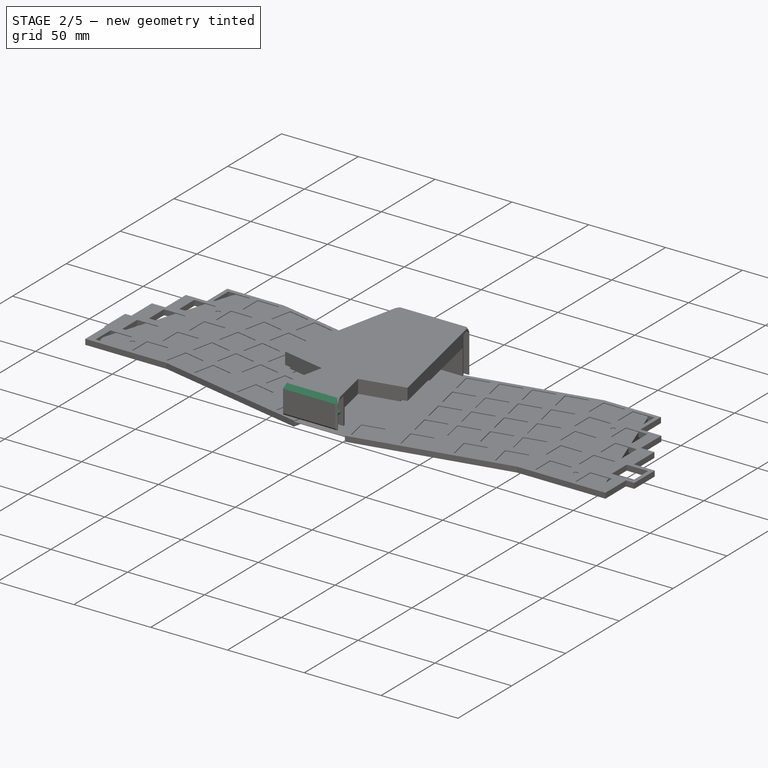
[diagram: stage 2 of 5 — iso view after this stage's code; geometry added in this stage tinted green]
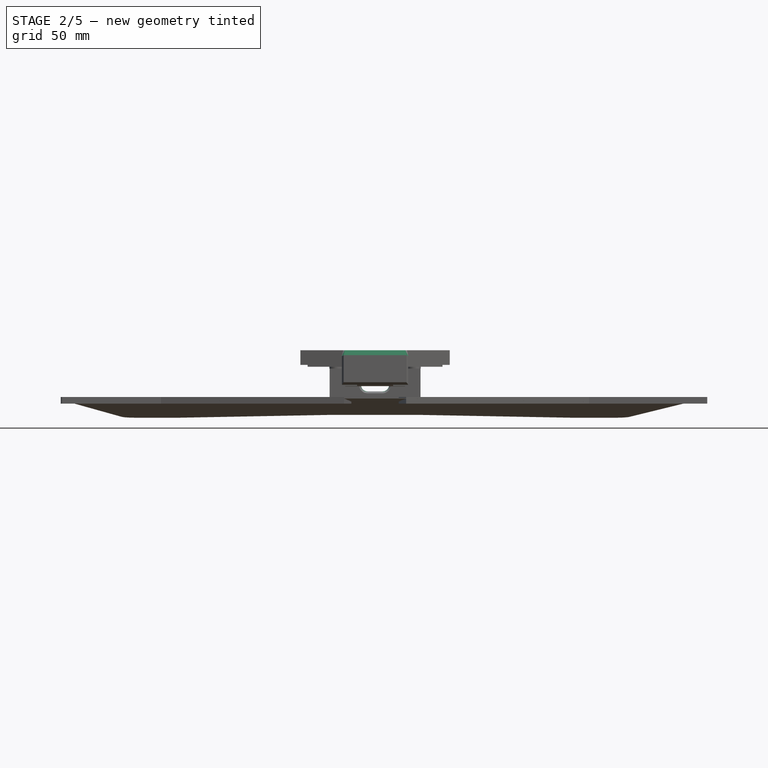
[diagram: stage 2 of 5 — front view after this stage's code; geometry added in this stage tinted green]
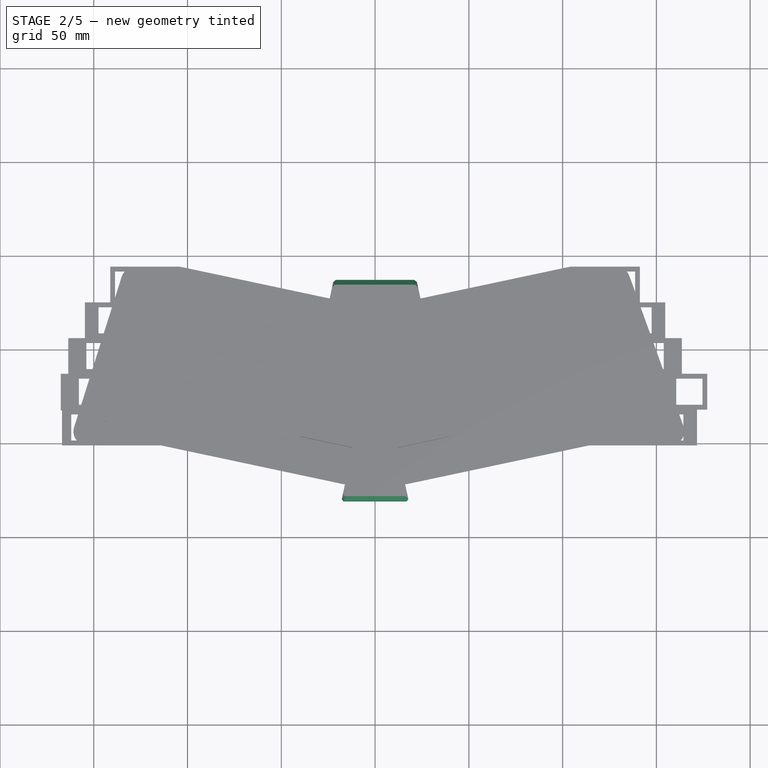
[diagram: stage 2 of 5 — top view after this stage's code; geometry added in this stage tinted green]
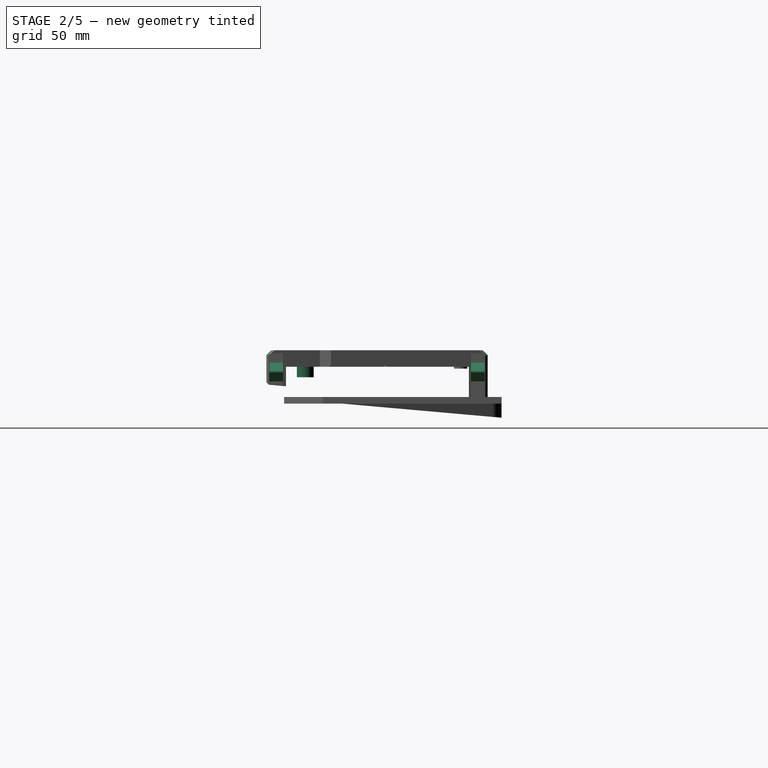
[diagram: stage 2 of 5 — right view after this stage's code; geometry added in this stage tinted green]
FEATURE [Sketcher::SketchObject] Sketch037
  ArcFitTolerance = 0
  AttachmentSupport = -> [Pocket023]
  ExternalGeometry = -> [Pocket023]
  FullyConstrained = true
  MakeInternals = false
  MapMode = 5
  Placement = pos=(0,0,19.6) rot=(1,0,0;3.14159rad)
  sketch-geometry (8):
    g0: LineSegment StartX=-39.8449 StartY=-3.26124 StartZ=0 EndX=-35.9323 EndY=-2.4296 EndZ=0
    g1: LineSegment StartX=-29.6905 StartY=-31.7731 StartZ=0 EndX=-33.6031 EndY=-32.6047 EndZ=0
    g2: LineSegment StartX=-33.6031 StartY=-32.6047 StartZ=0 EndX=-39.8449 EndY=-3.26124 EndZ=0
    g3: LineSegment StartX=-29.6905 StartY=-31.7731 StartZ=0 EndX=-35.9323 EndY=-2.4296 EndZ=0
    g4: LineSegment StartX=35.9341 StartY=-2.42134 StartZ=0 EndX=29.6968 EndY=-31.7658 EndZ=0
    g5: LineSegment StartX=29.6968 StartY=-31.7658 StartZ=0 EndX=33.6094 EndY=-32.5974 EndZ=0
    g6: LineSegment StartX=33.6094 StartY=-32.5974 StartZ=0 EndX=39.8467 EndY=-3.25298 EndZ=0
    g7: LineSegment StartX=39.8467 StartY=-3.25298 StartZ=0 EndX=35.9341 EndY=-2.42134 EndZ=0
  constraints (22):
    c: Coincident(g-4,g0)
    c: PointOnObject(g0,g-3)
    c: PointOnObject(g1,g-4)
    c: Coincident(g1,g2)
    c: Coincident(g2,g0)
    c: Coincident(g3,g1)
    c: Coincident(g3,g0)
    c: PointOnObject(g4,g-6)
    c: Coincident(g4,g5)
    c: PointOnObject(g5,g-5)
    c: Coincident(g5,g6)
    c: Coincident(g6,g-6)
    c: Coincident(g6,g7)
    c: Coincident(g7,g4)
    c: Parallel(g4,g6)
    c: Parallel(g3,g2)
    c: Parallel(g0,g1)
    c: Parallel(g7,g5)
    c: Equal(g4,g3)
    c: Distance(g3) = 30
    c: Equal(g0,g7)
    c: Distance(g0) = 4
FEATURE [PartDesign::Pocket] Pocket024  label="connection cutout"
  BaseFeature = -> Pocket023
  Direction = (0,0,1)
  Length = 1
  Length2 = 5
  Profile = -> Sketch037
  ReferenceAxis = -> Sketch037 [N_Axis]
  Suppressed = false
  Type = 0
FEATURE [PartDesign::Chamfer] Chamfer001  label="core front chamfer"
  Angle = 45
  Base = -> Pocket024 [Edge34,Edge30]
  BaseFeature = -> Pocket024
  ChamferType = 0
  FlipDirection = false
  Size = 2.6
  Size2 = 1
  SupportTransform = false
  Suppressed = false
  UseAllEdges = false
  expr: Size = Spreadsheet.CORE_MARGIN + 1
FEATURE [PartDesign::Body] Body009  label="bottom_plate"
  AllowCompound = false
  Group = -> [ShapeBinder,Sketch039,Pad012]
  Origin = -> Origin009
  Tip = -> Pad012
FEATURE [PartDesign::Chamfer] Chamfer002  label="core side chamfers"
  Angle = 45
  Base = -> Chamfer001 [Edge27,Edge106,Edge26,Edge4,Edge2,Edge21,Edge81,Edge80,Edge66,Edge65]
  BaseFeature = -> Chamfer001
  ChamferType = 0
  FlipDirection = false
  Size = 1.2
  Size2 = 1
  SupportTransform = false
  Suppressed = false
  UseAllEdges = false
FEATURE [PartDesign::Body] Body003  label="plate_left"
  AllowCompound = false
  Group = -> [Sketch010,Pad002,Sketch013,Pocket008,Sketch014,Pocket009,Sketch044,Pocket029]
  Origin = -> Origin003
  Placement = pos=(0,0,10.5) rot=(0,0,1;0rad)
  Tip = -> Pocket029
  expr: .Placement.Base.z = 5.4 + 1.6 + 3.5
FEATURE [Sketcher::SketchObject] Sketch045  label="mounting2shellpcb"
  ArcFitTolerance = 0
  AttachmentOffset = pos=(0,0,19.6) rot=(0,0,1;0rad)
  AttachmentSupport = -> [XY_Plane008]
  FullyConstrained = true
  MakeInternals = false
  MapMode = 5
  Placement = pos=(0,0,19.6) rot=(0,0,1;0rad)
  expr: .AttachmentOffset.Base.z = Spreadsheet.PCB_CORE_HEIGHT_OFFSET + 1.6 + 10 - Spreadsheet.ACRYL_THICKNESS + Spreadsheet.PCB_CORE_SPACING
  expr: Constraints[141] = 90 - <<config>>.ALPHA_ANGLE
  expr: Constraints[142] = <<config>>.KEY_UNIT
  expr: Constraints[147] = <<config>>.MOD_OFFSET
  expr: Constraints[148] = 2.75 * <<config>>.KEY_UNIT
  expr: Constraints[149] = 3.25 * <<config>>.KEY_UNIT
  expr: Constraints[150] = 2.75 * <<config>>.KEY_UNIT
  expr: Constraints[151] = 2.5 * <<config>>.KEY_UNIT
  expr: Constraints[152] = 2 * <<config>>.KEY_UNIT
  expr: Constraints[162] = 3 * <<config>>.KEY_UNIT
  expr: Constraints[169] = <<config>>.HEADER_WIDTH
  expr: Constraints[170] = <<config>>.HEADER_LENGTH
  expr: Constraints[183] = Spreadsheet.KEY_UNIT / 2
  expr: Constraints[184] = Spreadsheet.KEY_UNIT / 2
  expr: Constraints[188] = Spreadsheet.KEY_UNIT / 2
  expr: Constraints[191] = Spreadsheet.THREAD_HOLE
  expr: Constraints[193] = Spreadsheet.THREAD_HOLE + 5
  expr: Constraints[44] = 2 * <<config>>.KEY_UNIT
  expr: Constraints[45] = 2.5 * <<config>>.KEY_UNIT
  expr: Constraints[46] = <<config>>.KEY_UNIT
  expr: Constraints[51] = 2.75 * <<config>>.KEY_UNIT
  expr: Constraints[52] = 2.75 * <<config>>.KEY_UNIT
  expr: Constraints[53] = 2.5 * <<config>>.KEY_UNIT
  expr: Constraints[59] = 90 - <<config>>.ALPHA_ANGLE
  expr: Constraints[62] = 4 * <<config>>.KEY_UNIT
  expr: Constraints[66] = 5 * <<config>>.KEY_UNIT
  expr: Constraints[67] = 5.5 * <<config>>.KEY_UNIT
  expr: Constraints[75] = <<config>>.KEY_UNIT
  expr: Constraints[76] = <<config>>.MOD_OFFSET
  expr: Constraints[84] = 4 * <<config>>.KEY_UNIT
  expr: Constraints[85] = 5.5 * <<config>>.KEY_UNIT
  expr: Constraints[86] = <<config>>.KEY_UNIT
  expr: Constraints[89] = 5 * <<config>>.KEY_UNIT
  sketch-geometry (65):
    g0: LineSegment [constr] StartX=-141.18 StartY=94.2 StartZ=0 EndX=-103.08 EndY=94.2 EndZ=0
    g1: LineSegment [constr] StartX=-103.08 StartY=94.2 StartZ=0 EndX=-103.08 EndY=75.15 EndZ=0
    g2: LineSegment [constr] StartX=-103.08 StartY=75.15 StartZ=0 EndX=-141.18 EndY=75.15 EndZ=0
    g3: LineSegment [constr] StartX=-141.18 StartY=75.15 StartZ=0 EndX=-141.18 EndY=94.2 EndZ=0
    g4: LineSegment [constr] StartX=-107.129 StartY=75.15 StartZ=0 EndX=-154.754 EndY=75.15 EndZ=0
    g5: LineSegment [constr] StartX=-154.754 StartY=75.15 StartZ=0 EndX=-154.754 EndY=56.1 EndZ=0
    g6: LineSegment [constr] StartX=-154.754 StartY=56.1 StartZ=0 EndX=-107.129 EndY=56.1 EndZ=0
    g7: LineSegment [constr] StartX=-107.129 StartY=56.1 StartZ=0 EndX=-107.129 EndY=75.15 EndZ=0
    g8: LineSegment [constr] StartX=-111.179 StartY=56.1 StartZ=0 EndX=-163.566 EndY=56.1 EndZ=0
    g9: LineSegment [constr] StartX=-163.566 StartY=56.1 StartZ=0 EndX=-163.566 EndY=37.05 EndZ=0
    g10: LineSegment [constr] StartX=-163.566 StartY=37.05 StartZ=0 EndX=-111.179 EndY=37.05 EndZ=0
    g11: LineSegment [constr] StartX=-111.179 StartY=37.05 StartZ=0 EndX=-111.179 EndY=56.1 EndZ=0
    g12: LineSegment [constr] StartX=-115.228 StartY=37.05 StartZ=0 EndX=-167.615 EndY=37.05 EndZ=0
    g13: LineSegment [constr] StartX=-167.615 StartY=37.05 StartZ=0 EndX=-167.615 EndY=18 EndZ=0
    g14: LineSegment [constr] StartX=-167.615 StartY=18 StartZ=0 EndX=-115.228 EndY=18 EndZ=0
    g15: LineSegment [constr] StartX=-115.228 StartY=18 StartZ=0 EndX=-115.228 EndY=37.05 EndZ=0
    g16: LineSegment [constr] StartX=-119.277 StartY=18 StartZ=0 EndX=-166.902 EndY=18 EndZ=0
    g17: LineSegment [constr] StartX=-166.902 StartY=18 StartZ=0 EndX=-166.902 EndY=-1.05 EndZ=0
    g18: LineSegment [constr] StartX=-166.902 StartY=-1.05 StartZ=0 EndX=-119.277 EndY=-1.05 EndZ=0
    g19: LineSegment [constr] StartX=-119.277 StartY=-1.05 StartZ=0 EndX=-119.277 EndY=18 EndZ=0
    g20: LineSegment [constr] StartX=-119.277 StartY=-1.05 StartZ=0 EndX=-99.2503 EndY=93.1686 EndZ=0
    g21: LineSegment [constr] StartX=-99.2503 StartY=93.1686 StartZ=0 EndX=-24.7155 EndY=77.3257 EndZ=0
    g22: LineSegment [constr] StartX=-119.054 StartY=0 StartZ=0 EndX=-16.5685 EndY=-21.7839 EndZ=0
    g23: LineSegment [constr] StartX=-16.5685 StartY=-21.7839 StartZ=0 EndX=-12.6078 EndY=-3.15024 EndZ=0
    g24: LineSegment [constr] StartX=-12.6078 StartY=-3.15024 StartZ=0 EndX=-40.5583 EndY=2.79084 EndZ=0
    g25: LineSegment [constr] StartX=-40.5583 StartY=2.79084 StartZ=0 EndX=-24.7155 EndY=77.3257 EndZ=0
    g26: LineSegment [constr] StartX=119.054 StartY=0 StartZ=0 EndX=16.5685 EndY=-21.7839 EndZ=0
    g27: LineSegment [constr] StartX=16.5685 StartY=-21.7839 StartZ=0 EndX=12.6078 EndY=-3.15024 EndZ=0
    g28: LineSegment [constr] StartX=12.6078 StartY=-3.15024 StartZ=0 EndX=40.5583 EndY=2.79084 EndZ=0
    g29: LineSegment [constr] StartX=40.5583 StartY=2.79084 StartZ=0 EndX=24.7155 EndY=77.3257 EndZ=0
    g30: LineSegment [constr] StartX=24.7155 StartY=77.3257 StartZ=0 EndX=99.2503 EndY=93.1686 EndZ=0
    g31: LineSegment [constr] StartX=99.2503 StartY=93.1686 StartZ=0 EndX=119.277 EndY=-1.05 EndZ=0
    g32: LineSegment [constr] StartX=119.277 StartY=-1.05 StartZ=0 EndX=171.665 EndY=-1.05 EndZ=0
    g33: LineSegment [constr] StartX=171.665 StartY=-1.05 StartZ=0 EndX=171.665 EndY=18 EndZ=0
    g34: LineSegment [constr] StartX=171.665 StartY=18 StartZ=0 EndX=119.277 EndY=18 EndZ=0
    g35: LineSegment [constr] StartX=119.277 StartY=18 StartZ=0 EndX=119.277 EndY=-1.05 EndZ=0
    g36: LineSegment [constr] StartX=115.228 StartY=18 StartZ=0 EndX=177.14 EndY=18 EndZ=0
    g37: LineSegment [constr] StartX=177.14 StartY=18 StartZ=0 EndX=177.14 EndY=37.05 EndZ=0
    g38: LineSegment [constr] StartX=177.14 StartY=37.05 StartZ=0 EndX=115.228 EndY=37.05 EndZ=0
    g39: LineSegment [constr] StartX=115.228 StartY=37.05 StartZ=0 EndX=115.228 EndY=18 EndZ=0
    g40: LineSegment [constr] StartX=111.179 StartY=37.05 StartZ=0 EndX=163.566 EndY=37.05 EndZ=0
    g41: LineSegment [constr] StartX=163.566 StartY=37.05 StartZ=0 EndX=163.566 EndY=56.1 EndZ=0
    g42: LineSegment [constr] StartX=163.566 StartY=56.1 StartZ=0 EndX=111.179 EndY=56.1 EndZ=0
    g43: LineSegment [constr] StartX=111.179 StartY=56.1 StartZ=0 EndX=111.179 EndY=37.05 EndZ=0
    g44: LineSegment [constr] StartX=107.129 StartY=56.1 StartZ=0 EndX=154.754 EndY=56.1 EndZ=0
    g45: LineSegment [constr] StartX=154.754 StartY=56.1 StartZ=0 EndX=154.754 EndY=75.15 EndZ=0
    g46: LineSegment [constr] StartX=154.754 StartY=75.15 StartZ=0 EndX=107.129 EndY=75.15 EndZ=0
    g47: LineSegment [constr] StartX=107.129 StartY=75.15 StartZ=0 EndX=107.129 EndY=56.1 EndZ=0
    g48: LineSegment [constr] StartX=103.08 StartY=75.15 StartZ=0 EndX=141.18 EndY=75.15 EndZ=0
    g49: LineSegment [constr] StartX=141.18 StartY=75.15 StartZ=0 EndX=141.18 EndY=94.2 EndZ=0
    g50: LineSegment [constr] StartX=141.18 StartY=94.2 StartZ=0 EndX=103.08 EndY=94.2 EndZ=0
    g51: LineSegment [constr] StartX=103.08 StartY=94.2 StartZ=0 EndX=103.08 EndY=75.15 EndZ=0
    g52: LineSegment [constr] StartX=-28.575 StartY=57.7047 StartZ=0 EndX=28.575 EndY=57.7047 EndZ=0
    g53: LineSegment [constr] StartX=28.575 StartY=57.7047 StartZ=0 EndX=28.575 EndY=0.554733 EndZ=0
    g54: LineSegment [constr] StartX=28.575 StartY=0.554733 StartZ=0 EndX=-28.575 EndY=0.554733 EndZ=0
    g55: LineSegment [constr] StartX=-28.575 StartY=0.554733 StartZ=0 EndX=-28.575 EndY=57.7047 EndZ=0
    g56: LineSegment [constr] StartX=-37.037 StartY=2.04236 StartZ=0 EndX=-28.575 EndY=41.853 EndZ=0
    g57: LineSegment [constr] StartX=-28.575 StartY=41.853 StartZ=0 EndX=-32.0963 EndY=42.6014 EndZ=0
    g58: Circle [constr] CenterX=-28.575 CenterY=57.7047 CenterZ=0 NormalX=0 NormalY=0 NormalZ=1 AngleXU=0 Radius=0.304232
    g59: Circle [constr] CenterX=-28.575 CenterY=0.554733 CenterZ=0 NormalX=0 NormalY=0 NormalZ=1 AngleXU=0 Radius=0.304232
    g60: LineSegment [constr] StartX=-21.9246 StartY=-1.16988 StartZ=0 EndX=-25.8853 EndY=-19.8036 EndZ=0
    g61: LineSegment [constr] StartX=21.9246 StartY=-1.16988 StartZ=0 EndX=25.8853 EndY=-19.8036 EndZ=0
    g62: LineSegment [constr] StartX=-23.905 StartY=-10.4867 StartZ=0 EndX=23.905 EndY=-10.4867 EndZ=0
    g63: Circle CenterX=0 CenterY=-10.4867 CenterZ=0 NormalX=0 NormalY=0 NormalZ=1 AngleXU=0 Radius=2
    g64: Circle CenterX=0 CenterY=-10.4867 CenterZ=0 NormalX=0 NormalY=0 NormalZ=1 AngleXU=0 Radius=4.5
  constraints (194):
    c: Coincident(g0,g1)
    c: Coincident(g1,g2)
    c: Coincident(g2,g3)
    c: Coincident(g3,g0)
    c: Horizontal(g0)
    c: Horizontal(g2)
    c: Vertical(g1)
    c: Vertical(g3)
    c: Coincident(g4,g5)
    c: Coincident(g5,g6)
    c: Coincident(g6,g7)
    c: Coincident(g7,g4)
    c: Horizontal(g4)
    c: Horizontal(g6)
    c: Vertical(g5)
    c: Vertical(g7)
    c: PointOnObject(g4,g2)
    c: Coincident(g8,g9)
    c: Coincident(g9,g10)
    c: Coincident(g10,g11)
    c: Coincident(g11,g8)
    c: Horizontal(g8)
    c: Horizontal(g10)
    c: Vertical(g9)
    c: Vertical(g11)
    c: PointOnObject(g8,g6)
    c: Coincident(g12,g13)
    c: Coincident(g13,g14)
    c: Coincident(g14,g15)
    c: Coincident(g15,g12)
    c: Horizontal(g12)
    c: Horizontal(g14)
    c: Vertical(g13)
    c: Vertical(g15)
    c: PointOnObject(g12,g10)
    c: Coincident(g16,g17)
    c: Coincident(g17,g18)
    c: Coincident(g18,g19)
    c: Coincident(g19,g16)
    c: Horizontal(g16)
    c: Horizontal(g18)
    c: Vertical(g17)
    c: Vertical(g19)
    c: PointOnObject(g16,g14)
    c: DistanceX(g0,g0) = 38.1
    c: DistanceX(g4,g4) = 47.625
    c: DistanceY(g3,g3) = 19.05
    c: Equal(g3,g5)
    c: Equal(g5,g9)
    c: Equal(g9,g13)
    c: Equal(g13,g17)
    c: DistanceX(g8,g8) = 52.3875
    c: DistanceX(g12,g12) = 52.3875
    c: DistanceX(g16,g16) = 47.625
    c: Coincident(g20,g18)
    c: PointOnObject(g14,g20)
    c: PointOnObject(g10,g20)
    c: PointOnObject(g6,g20)
    c: PointOnObject(g1,g20)
    c: Angle(g-1,g20) = 1.36136
    c: Coincident(g20,g21)
    c: Perpendicular(g21,g20)
    c: Distance(g21) = 76.2
    c: PointOnObject(g22,g-1)
    c: PointOnObject(g22,g20)
    c: Perpendicular(g22,g20)
    c: Distance(g22,g20) = 95.25
    c: Distance(g22) = 104.775
    c: Coincident(g23,g22)
    c: Coincident(g24,g23)
    c: Coincident(g25,g24)
    c: Coincident(g25,g21)
    c: Perpendicular(g21,g25)
    c: Perpendicular(g23,g22)
    c: Perpendicular(g24,g23)
    c: Distance(g23) = 19.05
    c: DistanceY(g18,g22) = 1.05
    c: Coincident(g26,g27)
    c: Coincident(g27,g28)
    c: Coincident(g28,g29)
    c: Coincident(g29,g30)
    c: Perpendicular(g27,g26)
    c: Perpendicular(g28,g27)
    c: Perpendicular(g30,g29)
    c: Distance(g30) = 76.2
    c: Distance(g26) = 104.775
    c: Distance(g27) = 19.05
    c: Coincident(g31,g30)
    c: PointOnObject(g26,g31)
    c: Distance(g26,g30) = 95.25
    c: Perpendicular(g31,g26)
    c: Perpendicular(g31,g30)
    c: Coincident(g32,g33)
    c: Coincident(g33,g34)
    c: Coincident(g34,g35)
    c: Coincident(g35,g32)
    c: Horizontal(g32)
    c: Horizontal(g34)
    c: Vertical(g33)
    c: Vertical(g35)
    c: Coincident(g32,g31)
    c: Coincident(g36,g37)
    c: Coincident(g37,g38)
    c: Coincident(g38,g39)
    c: Coincident(g39,g36)
    c: Horizontal(g36)
    c: Horizontal(g38)
    c: Vertical(g37)
    c: Vertical(g39)
    c: PointOnObject(g36,g34)
    c: Coincident(g40,g41)
    c: Coincident(g41,g42)
    c: Coincident(g42,g43)
    c: Coincident(g43,g40)
    c: Horizontal(g40)
    c: Horizontal(g42)
    c: Vertical(g41)
    c: Vertical(g43)
    c: PointOnObject(g40,g38)
    c: Coincident(g44,g45)
    c: Coincident(g45,g46)
    c: Coincident(g46,g47)
    c: Coincident(g47,g44)
    c: Horizontal(g44)
    c: Horizontal(g46)
    c: Vertical(g45)
    c: Vertical(g47)
    c: PointOnObject(g44,g42)
    c: Coincident(g48,g49)
    c: Coincident(g49,g50)
    c: Coincident(g50,g51)
    c: Coincident(g51,g48)
    c: Horizontal(g48)
    c: Horizontal(g50)
    c: Vertical(g49)
    c: Vertical(g51)
    c: PointOnObject(g48,g46)
    c: PointOnObject(g48,g31)
    c: PointOnObject(g44,g31)
    c: PointOnObject(g40,g31)
    c: PointOnObject(g36,g31)
    c: Angle(g31,g-1) = 1.36136
    c: DistanceY(g49,g49) = 19.05
    c: Equal(g49,g45)
    c: Equal(g45,g41)
    c: Equal(g41,g37)
    c: Equal(g37,g33)
    c: DistanceY(g31,g26) = 1.05
    c: DistanceX(g34,g34) = 52.3875
    c: DistanceX(g38,g38) = 61.9125
    c: DistanceX(g42,g42) = 52.3875
    c: DistanceX(g46,g46) = 47.625
    c: DistanceX(g50,g50) = 38.1
    c: Coincident(g52,g53)
    c: Coincident(g53,g54)
    c: Coincident(g54,g55)
    c: Coincident(g55,g52)
    c: Horizontal(g54)
    c: Vertical(g53)
    c: Vertical(g55)
    c: Symmetric(g52,g52,g-2)
    c: Equal(g52,g53)
    c: DistanceX(g52,g52) = 57.15
    c: Symmetric(g22,g26,g-2)
    c: PointOnObject(g56,g24)
    c: Coincident(g57,g56)
    c: PointOnObject(g57,g25)
    c: Perpendicular(g57,g56)
    c: Perpendicular(g56,g24)
    c: Distance(g57) = 3.6
    c: Distance(g56) = 40.7
    c: PointOnObject(g56,g55)
    c: Coincident(g58,g52)
    c: Tangent(g58,g25)
    c: Coincident(g59,g54)
    c: Tangent(g59,g24)
    c: Equal(g59,g58)
    c: PointOnObject(g60,g24)
    c: PointOnObject(g60,g22)
    c: PointOnObject(g61,g28)
    c: PointOnObject(g61,g26)
    c: Perpendicular(g26,g61)
    c: Perpendicular(g22,g60)
    c: Distance(g60,g22) = 9.525
    c: Distance(g26,g61) = 9.525
    c: PointOnObject(g62,g60)
    c: PointOnObject(g62,g61)
    c: Horizontal(g62)
    c: Distance(g60,g62) = 9.525
    c: PointOnObject(g63,g62)
    c: PointOnObject(g63,g-2)
    c: Diameter(g63) = 4
    c: Coincident(g64,g63)
    c: Diameter(g64) = 9
FEATURE [PartDesign::Pad] Pad013  label="mounting 2 shell padding"
  BaseFeature = -> Chamfer002
  Direction = (0,0,1)
  Length = 5.6
  Length2 = 10
  Profile = -> Sketch045
  ReferenceAxis = -> Sketch045 [N_Axis]
  Reversed = true
  Suppressed = false
  Type = 0
  expr: Length = Spreadsheet.PCB_CORE_HEIGHT_OFFSET - Spreadsheet.PCB_HEIGHT_OFFSET + Spreadsheet.PCB_CORE_SPACING
FEATURE [Sketcher::SketchObject] Sketch046
  ArcFitTolerance = 0
  AttachmentSupport = -> [Pad013]
  ExternalGeometry = -> [Pad013]
  FullyConstrained = true
  MakeInternals = false
  MapMode = 5
  Placement = pos=(0,0,14) rot=(1,0,0;3.14159rad)
  sketch-geometry (1):
    g0: Circle CenterX=0 CenterY=10.4867 CenterZ=0 NormalX=0 NormalY=0 NormalZ=1 AngleXU=0 Radius=2
  constraints (2):
    c: Coincident(g0,g-3)
    c: Equal(g-3,g0)
FEATURE [PartDesign::Pocket] Pocket030  label="mounting 2 shell hole"
  BaseFeature = -> Pad013
  Direction = (0,0,1)
  Length = 6.7
  Length2 = 5
  Profile = -> Sketch046
  ReferenceAxis = -> Sketch046 [N_Axis]
  Suppressed = false
  Type = 0
  expr: Length = Spreadsheet.THREAD_DEPTH
FEATURE [Sketcher::SketchObject] Sketch047  label="mounting2core"
  ArcFitTolerance = 0
  AttachmentOffset = pos=(0,0,18.6) rot=(0,0,1;0rad)
  AttachmentSupport = -> [XY_Plane008]
  FullyConstrained = true
  MakeInternals = false
  MapMode = 5
  Placement = pos=(0,0,18.6) rot=(0,0,1;0rad)
  expr: .AttachmentOffset.Base.z = Spreadsheet.PCB_CORE_HEIGHT_OFFSET + 1.6 + 10 - Spreadsheet.ACRYL_THICKNESS
  expr: Constraints[141] = 90 - <<config>>.ALPHA_ANGLE
  expr: Constraints[142] = <<config>>.KEY_UNIT
  expr: Constraints[147] = <<config>>.MOD_OFFSET
  expr: Constraints[148] = 2.75 * <<config>>.KEY_UNIT
  expr: Constraints[149] = 3.25 * <<config>>.KEY_UNIT
  expr: Constraints[150] = 2.75 * <<config>>.KEY_UNIT
  expr: Constraints[151] = 2.5 * <<config>>.KEY_UNIT
  expr: Constraints[152] = 2 * <<config>>.KEY_UNIT
  expr: Constraints[162] = 3 * <<config>>.KEY_UNIT
  expr: Constraints[169] = <<config>>.HEADER_WIDTH
  expr: Constraints[170] = <<config>>.HEADER_LENGTH
  expr: Constraints[183] = Spreadsheet.KEY_UNIT / 2
  expr: Constraints[184] = Spreadsheet.KEY_UNIT / 2
  expr: Constraints[188] = Spreadsheet.KEY_UNIT / 2
  expr: Constraints[195] = Spreadsheet.THREAD_HOLE
  expr: Constraints[44] = 2 * <<config>>.KEY_UNIT
  expr: Constraints[45] = 2.5 * <<config>>.KEY_UNIT
  expr: Constraints[46] = <<config>>.KEY_UNIT
  expr: Constraints[51] = 2.75 * <<config>>.KEY_UNIT
  expr: Constraints[52] = 2.75 * <<config>>.KEY_UNIT
  expr: Constraints[53] = 2.5 * <<config>>.KEY_UNIT
  expr: Constraints[59] = 90 - <<config>>.ALPHA_ANGLE
  expr: Constraints[62] = 4 * <<config>>.KEY_UNIT
  expr: Constraints[66] = 5 * <<config>>.KEY_UNIT
  expr: Constraints[67] = 5.5 * <<config>>.KEY_UNIT
  expr: Constraints[75] = <<config>>.KEY_UNIT
  expr: Constraints[76] = <<config>>.MOD_OFFSET
  expr: Constraints[84] = 4 * <<config>>.KEY_UNIT
  expr: Constraints[85] = 5.5 * <<config>>.KEY_UNIT
  expr: Constraints[86] = <<config>>.KEY_UNIT
  expr: Constraints[89] = 5 * <<config>>.KEY_UNIT
  sketch-geometry (66):
    g0: LineSegment [constr] StartX=-141.18 StartY=94.2 StartZ=0 EndX=-103.08 EndY=94.2 EndZ=0
    g1: LineSegment [constr] StartX=-103.08 StartY=94.2 StartZ=0 EndX=-103.08 EndY=75.15 EndZ=0
    g2: LineSegment [constr] StartX=-103.08 StartY=75.15 StartZ=0 EndX=-141.18 EndY=75.15 EndZ=0
    g3: LineSegment [constr] StartX=-141.18 StartY=75.15 StartZ=0 EndX=-141.18 EndY=94.2 EndZ=0
    g4: LineSegment [constr] StartX=-107.129 StartY=75.15 StartZ=0 EndX=-154.754 EndY=75.15 EndZ=0
    g5: LineSegment [constr] StartX=-154.754 StartY=75.15 StartZ=0 EndX=-154.754 EndY=56.1 EndZ=0
    g6: LineSegment [constr] StartX=-154.754 StartY=56.1 StartZ=0 EndX=-107.129 EndY=56.1 EndZ=0
    g7: LineSegment [constr] StartX=-107.129 StartY=56.1 StartZ=0 EndX=-107.129 EndY=75.15 EndZ=0
    g8: LineSegment [constr] StartX=-111.179 StartY=56.1 StartZ=0 EndX=-163.566 EndY=56.1 EndZ=0
    g9: LineSegment [constr] StartX=-163.566 StartY=56.1 StartZ=0 EndX=-163.566 EndY=37.05 EndZ=0
    g10: LineSegment [constr] StartX=-163.566 StartY=37.05 StartZ=0 EndX=-111.179 EndY=37.05 EndZ=0
    g11: LineSegment [constr] StartX=-111.179 StartY=37.05 StartZ=0 EndX=-111.179 EndY=56.1 EndZ=0
    g12: LineSegment [constr] StartX=-115.228 StartY=37.05 StartZ=0 EndX=-167.615 EndY=37.05 EndZ=0
    g13: LineSegment [constr] StartX=-167.615 StartY=37.05 StartZ=0 EndX=-167.615 EndY=18 EndZ=0
    g14: LineSegment [constr] StartX=-167.615 StartY=18 StartZ=0 EndX=-115.228 EndY=18 EndZ=0
    g15: LineSegment [constr] StartX=-115.228 StartY=18 StartZ=0 EndX=-115.228 EndY=37.05 EndZ=0
    g16: LineSegment [constr] StartX=-119.277 StartY=18 StartZ=0 EndX=-166.902 EndY=18 EndZ=0
    g17: LineSegment [constr] StartX=-166.902 StartY=18 StartZ=0 EndX=-166.902 EndY=-1.05 EndZ=0
    g18: LineSegment [constr] StartX=-166.902 StartY=-1.05 StartZ=0 EndX=-119.277 EndY=-1.05 EndZ=0
    g19: LineSegment [constr] StartX=-119.277 StartY=-1.05 StartZ=0 EndX=-119.277 EndY=18 EndZ=0
    g20: LineSegment [constr] StartX=-119.277 StartY=-1.05 StartZ=0 EndX=-99.2503 EndY=93.1686 EndZ=0
    g21: LineSegment [constr] StartX=-99.2503 StartY=93.1686 StartZ=0 EndX=-24.7155 EndY=77.3257 EndZ=0
    g22: LineSegment [constr] StartX=-119.054 StartY=0 StartZ=0 EndX=-16.5685 EndY=-21.7839 EndZ=0
    g23: LineSegment [constr] StartX=-16.5685 StartY=-21.7839 StartZ=0 EndX=-12.6078 EndY=-3.15024 EndZ=0
    g24: LineSegment [constr] StartX=-12.6078 StartY=-3.15024 StartZ=0 EndX=-40.5583 EndY=2.79084 EndZ=0
    g25: LineSegment [constr] StartX=-40.5583 StartY=2.79084 StartZ=0 EndX=-24.7155 EndY=77.3257 EndZ=0
    g26: LineSegment [constr] StartX=119.054 StartY=0 StartZ=0 EndX=16.5685 EndY=-21.7839 EndZ=0
    g27: LineSegment [constr] StartX=16.5685 StartY=-21.7839 StartZ=0 EndX=12.6078 EndY=-3.15024 EndZ=0
    g28: LineSegment [constr] StartX=12.6078 StartY=-3.15024 StartZ=0 EndX=40.5583 EndY=2.79084 EndZ=0
    g29: LineSegment [constr] StartX=40.5583 StartY=2.79084 StartZ=0 EndX=24.7155 EndY=77.3257 EndZ=0
    g30: LineSegment [constr] StartX=24.7155 StartY=77.3257 StartZ=0 EndX=99.2503 EndY=93.1686 EndZ=0
    g31: LineSegment [constr] StartX=99.2503 StartY=93.1686 StartZ=0 EndX=119.277 EndY=-1.05 EndZ=0
    g32: LineSegment [constr] StartX=119.277 StartY=-1.05 StartZ=0 EndX=171.665 EndY=-1.05 EndZ=0
    g33: LineSegment [constr] StartX=171.665 StartY=-1.05 StartZ=0 EndX=171.665 EndY=18 EndZ=0
    g34: LineSegment [constr] StartX=171.665 StartY=18 StartZ=0 EndX=119.277 EndY=18 EndZ=0
    g35: LineSegment [constr] StartX=119.277 StartY=18 StartZ=0 EndX=119.277 EndY=-1.05 EndZ=0
    g36: LineSegment [constr] StartX=115.228 StartY=18 StartZ=0 EndX=177.14 EndY=18 EndZ=0
    g37: LineSegment [constr] StartX=177.14 StartY=18 StartZ=0 EndX=177.14 EndY=37.05 EndZ=0
    g38: LineSegment [constr] StartX=177.14 StartY=37.05 StartZ=0 EndX=115.228 EndY=37.05 EndZ=0
    g39: LineSegment [constr] StartX=115.228 StartY=37.05 StartZ=0 EndX=115.228 EndY=18 EndZ=0
    g40: LineSegment [constr] StartX=111.179 StartY=37.05 StartZ=0 EndX=163.566 EndY=37.05 EndZ=0
    g41: LineSegment [constr] StartX=163.566 StartY=37.05 StartZ=0 EndX=163.566 EndY=56.1 EndZ=0
    g42: LineSegment [constr] StartX=163.566 StartY=56.1 StartZ=0 EndX=111.179 EndY=56.1 EndZ=0
    g43: LineSegment [constr] StartX=111.179 StartY=56.1 StartZ=0 EndX=111.179 EndY=37.05 EndZ=0
    g44: LineSegment [constr] StartX=107.129 StartY=56.1 StartZ=0 EndX=154.754 EndY=56.1 EndZ=0
    g45: LineSegment [constr] StartX=154.754 StartY=56.1 StartZ=0 EndX=154.754 EndY=75.15 EndZ=0
    g46: LineSegment [constr] StartX=154.754 StartY=75.15 StartZ=0 EndX=107.129 EndY=75.15 EndZ=0
    g47: LineSegment [constr] StartX=107.129 StartY=75.15 StartZ=0 EndX=107.129 EndY=56.1 EndZ=0
    g48: LineSegment [constr] StartX=103.08 StartY=75.15 StartZ=0 EndX=141.18 EndY=75.15 EndZ=0
    g49: LineSegment [constr] StartX=141.18 StartY=75.15 StartZ=0 EndX=141.18 EndY=94.2 EndZ=0
    g50: LineSegment [constr] StartX=141.18 StartY=94.2 StartZ=0 EndX=103.08 EndY=94.2 EndZ=0
    g51: LineSegment [constr] StartX=103.08 StartY=94.2 StartZ=0 EndX=103.08 EndY=75.15 EndZ=0
    g52: LineSegment [constr] StartX=-28.575 StartY=57.7047 StartZ=0 EndX=28.575 EndY=57.7047 EndZ=0
    g53: LineSegment [constr] StartX=28.575 StartY=57.7047 StartZ=0 EndX=28.575 EndY=0.554733 EndZ=0
    g54: LineSegment [constr] StartX=28.575 StartY=0.554733 StartZ=0 EndX=-28.575 EndY=0.554733 EndZ=0
    g55: LineSegment [constr] StartX=-28.575 StartY=0.554733 StartZ=0 EndX=-28.575 EndY=57.7047 EndZ=0
    g56: LineSegment [constr] StartX=-37.037 StartY=2.04236 StartZ=0 EndX=-28.575 EndY=41.853 EndZ=0
    g57: LineSegment [constr] StartX=-28.575 StartY=41.853 StartZ=0 EndX=-32.0963 EndY=42.6014 EndZ=0
    g58: Circle [constr] CenterX=-28.575 CenterY=57.7047 CenterZ=0 NormalX=0 NormalY=0 NormalZ=1 AngleXU=0 Radius=0.304232
    g59: Circle [constr] CenterX=-28.575 CenterY=0.554733 CenterZ=0 NormalX=0 NormalY=0 NormalZ=1 AngleXU=0 Radius=0.304232
    g60: LineSegment [constr] StartX=-21.9246 StartY=-1.16988 StartZ=0 EndX=-25.8853 EndY=-19.8036 EndZ=0
    g61: LineSegment [constr] StartX=21.9246 StartY=-1.16988 StartZ=0 EndX=25.8853 EndY=-19.8036 EndZ=0
    g62: LineSegment [constr] StartX=-23.905 StartY=-10.4867 StartZ=0 EndX=23.905 EndY=-10.4867 EndZ=0
    g63: LineSegment [constr] StartX=-25.7782 StartY=72.3257 StartZ=0 EndX=25.7782 EndY=72.3257 EndZ=0
    g64: Circle CenterX=-20.7782 CenterY=72.3257 CenterZ=0 NormalX=0 NormalY=0 NormalZ=1 AngleXU=0 Radius=2
    g65: Circle CenterX=20.7782 CenterY=72.3257 CenterZ=0 NormalX=0 NormalY=0 NormalZ=1 AngleXU=0 Radius=2
  constraints (199):
    c: Coincident(g0,g1)
    c: Coincident(g1,g2)
    c: Coincident(g2,g3)
    c: Coincident(g3,g0)
    c: Horizontal(g0)
    c: Horizontal(g2)
    c: Vertical(g1)
    c: Vertical(g3)
    c: Coincident(g4,g5)
    c: Coincident(g5,g6)
    c: Coincident(g6,g7)
    c: Coincident(g7,g4)
    c: Horizontal(g4)
    c: Horizontal(g6)
    c: Vertical(g5)
    c: Vertical(g7)
    c: PointOnObject(g4,g2)
    c: Coincident(g8,g9)
    c: Coincident(g9,g10)
    c: Coincident(g10,g11)
    c: Coincident(g11,g8)
    c: Horizontal(g8)
    c: Horizontal(g10)
    c: Vertical(g9)
    c: Vertical(g11)
    c: PointOnObject(g8,g6)
    c: Coincident(g12,g13)
    c: Coincident(g13,g14)
    c: Coincident(g14,g15)
    c: Coincident(g15,g12)
    c: Horizontal(g12)
    c: Horizontal(g14)
    c: Vertical(g13)
    c: Vertical(g15)
    c: PointOnObject(g12,g10)
    c: Coincident(g16,g17)
    c: Coincident(g17,g18)
    c: Coincident(g18,g19)
    c: Coincident(g19,g16)
    c: Horizontal(g16)
    c: Horizontal(g18)
    c: Vertical(g17)
    c: Vertical(g19)
    c: PointOnObject(g16,g14)
    c: DistanceX(g0,g0) = 38.1
    c: DistanceX(g4,g4) = 47.625
    c: DistanceY(g3,g3) = 19.05
    c: Equal(g3,g5)
    c: Equal(g5,g9)
    c: Equal(g9,g13)
    c: Equal(g13,g17)
    c: DistanceX(g8,g8) = 52.3875
    c: DistanceX(g12,g12) = 52.3875
    c: DistanceX(g16,g16) = 47.625
    c: Coincident(g20,g18)
    c: PointOnObject(g14,g20)
    c: PointOnObject(g10,g20)
    c: PointOnObject(g6,g20)
    c: PointOnObject(g1,g20)
    c: Angle(g-1,g20) = 1.36136
    c: Coincident(g20,g21)
    c: Perpendicular(g21,g20)
    c: Distance(g21) = 76.2
    c: PointOnObject(g22,g-1)
    c: PointOnObject(g22,g20)
    c: Perpendicular(g22,g20)
    c: Distance(g22,g20) = 95.25
    c: Distance(g22) = 104.775
    c: Coincident(g23,g22)
    c: Coincident(g24,g23)
    c: Coincident(g25,g24)
    c: Coincident(g25,g21)
    c: Perpendicular(g21,g25)
    c: Perpendicular(g23,g22)
    c: Perpendicular(g24,g23)
    c: Distance(g23) = 19.05
    c: DistanceY(g18,g22) = 1.05
    c: Coincident(g26,g27)
    c: Coincident(g27,g28)
    c: Coincident(g28,g29)
    c: Coincident(g29,g30)
    c: Perpendicular(g27,g26)
    c: Perpendicular(g28,g27)
    c: Perpendicular(g30,g29)
    c: Distance(g30) = 76.2
    c: Distance(g26) = 104.775
    c: Distance(g27) = 19.05
    c: Coincident(g31,g30)
    c: PointOnObject(g26,g31)
    c: Distance(g26,g30) = 95.25
    c: Perpendicular(g31,g26)
    c: Perpendicular(g31,g30)
    c: Coincident(g32,g33)
    c: Coincident(g33,g34)
    c: Coincident(g34,g35)
    c: Coincident(g35,g32)
    c: Horizontal(g32)
    c: Horizontal(g34)
    c: Vertical(g33)
    c: Vertical(g35)
    c: Coincident(g32,g31)
    c: Coincident(g36,g37)
    c: Coincident(g37,g38)
    c: Coincident(g38,g39)
    c: Coincident(g39,g36)
    c: Horizontal(g36)
    c: Horizontal(g38)
    c: Vertical(g37)
    c: Vertical(g39)
    c: PointOnObject(g36,g34)
    c: Coincident(g40,g41)
    c: Coincident(g41,g42)
    c: Coincident(g42,g43)
    c: Coincident(g43,g40)
    c: Horizontal(g40)
    c: Horizontal(g42)
    c: Vertical(g41)
    c: Vertical(g43)
    c: PointOnObject(g40,g38)
    c: Coincident(g44,g45)
    c: Coincident(g45,g46)
    c: Coincident(g46,g47)
    c: Coincident(g47,g44)
    c: Horizontal(g44)
    c: Horizontal(g46)
    c: Vertical(g45)
    c: Vertical(g47)
    c: PointOnObject(g44,g42)
    c: Coincident(g48,g49)
    c: Coincident(g49,g50)
    c: Coincident(g50,g51)
    c: Coincident(g51,g48)
    c: Horizontal(g48)
    c: Horizontal(g50)
    c: Vertical(g49)
    c: Vertical(g51)
    c: PointOnObject(g48,g46)
    c: PointOnObject(g48,g31)
    c: PointOnObject(g44,g31)
    c: PointOnObject(g40,g31)
    c: PointOnObject(g36,g31)
    c: Angle(g31,g-1) = 1.36136
    c: DistanceY(g49,g49) = 19.05
    c: Equal(g49,g45)
    c: Equal(g45,g41)
    c: Equal(g41,g37)
    c: Equal(g37,g33)
    c: DistanceY(g31,g26) = 1.05
    c: DistanceX(g34,g34) = 52.3875
    c: DistanceX(g38,g38) = 61.9125
    c: DistanceX(g42,g42) = 52.3875
    c: DistanceX(g46,g46) = 47.625
    c: DistanceX(g50,g50) = 38.1
    c: Coincident(g52,g53)
    c: Coincident(g53,g54)
    c: Coincident(g54,g55)
    c: Coincident(g55,g52)
    c: Horizontal(g54)
    c: Vertical(g53)
    c: Vertical(g55)
    c: Symmetric(g52,g52,g-2)
    c: Equal(g52,g53)
    c: DistanceX(g52,g52) = 57.15
    c: Symmetric(g22,g26,g-2)
    c: PointOnObject(g56,g24)
    c: Coincident(g57,g56)
    c: PointOnObject(g57,g25)
    c: Perpendicular(g57,g56)
    c: Perpendicular(g56,g24)
    c: Distance(g57) = 3.6
    c: Distance(g56) = 40.7
    c: PointOnObject(g56,g55)
    c: Coincident(g58,g52)
    c: Tangent(g58,g25)
    c: Coincident(g59,g54)
    c: Tangent(g59,g24)
    c: Equal(g59,g58)
    c: PointOnObject(g60,g24)
    c: PointOnObject(g60,g22)
    c: PointOnObject(g61,g28)
    c: PointOnObject(g61,g26)
    c: Perpendicular(g26,g61)
    c: Perpendicular(g22,g60)
    c: Distance(g60,g22) = 9.525
    c: Distance(g26,g61) = 9.525
    c: PointOnObject(g62,g60)
    c: PointOnObject(g62,g61)
    c: Horizontal(g62)
    c: Distance(g60,g62) = 9.525
    c: PointOnObject(g63,g25)
    c: PointOnObject(g63,g29)
    c: Horizontal(g63)
    c: PointOnObject(g64,g63)
    c: PointOnObject(g65,g63)
    c: Equal(g65,g64)
    c: Diameter(g64) = 4
    c: DistanceX(g63,g64) = 5
    c: DistanceY(g64,g21) = 5
    c: DistanceX(g65,g63) = 5
FEATURE [PartDesign::Pocket] Pocket031  label="mounting 2 core"
  BaseFeature = -> Pocket030
  Direction = (0,0,-1)
  Length = 5.7
  Length2 = 5
  Profile = -> Sketch047
  ReferenceAxis = -> Sketch047 [N_Axis]
  Reversed = true
  Suppressed = false
  Type = 0
  expr: Length = Spreadsheet.THREAD_DEPTH - Spreadsheet.PCB_CORE_SPACING
FEATURE [Sketcher::SketchObject] Sketch048  label="usbc"
  ArcFitTolerance = 0
  AttachmentSupport = -> [Pocket031]
  ExternalGeometry = -> [Pocket031]
  FullyConstrained = true
  MakeInternals = false
  MapMode = 5
  Placement = pos=(0,76.7509,0) rot=(1,0,0;1.5708rad)
  expr: Constraints[12] = Spreadsheet.USB_C_HEIGHT_OFFSET + 1
  sketch-geometry (5):
    g0: ArcOfCircle CenterX=-4 CenterY=10 CenterZ=0 NormalX=0 NormalY=0 NormalZ=1 AngleXU=0 Radius=3.5 StartAngle=1.5708 EndAngle=4.71239
    g1: ArcOfCircle CenterX=4 CenterY=10 CenterZ=0 NormalX=0 NormalY=0 NormalZ=1 AngleXU=0 Radius=3.5 StartAngle=4.71239 EndAngle=7.85398
    g2: LineSegment StartX=-4 StartY=6.5 StartZ=0 EndX=4 EndY=6.5 EndZ=0
    g3: LineSegment StartX=4 StartY=13.5 StartZ=0 EndX=-4 EndY=13.5 EndZ=0
    g4: LineSegment [constr] StartX=0 StartY=18 StartZ=0 EndX=24.2242 EndY=18 EndZ=0
  constraints (13):
    c: Tangent(g0,g2) = -1.5708
    c: Tangent(g2,g1) = -1.5708
    c: Tangent(g1,g3) = -1.5708
    c: Tangent(g3,g0) = -1.5708
    c: Equal(g0,g1)
    c: Symmetric(g1,g0,g-2)
    c: DistanceY(g1,g1) = 7
    c: DistanceX(g0,g1) = 8
    c: PointOnObject(g4,g-2)
    c: Horizontal(g4)
    c: DistanceY(g4,g-3) = 1.6
    c: Vertical(g4,g-3)
    c: DistanceY(g1,g4) = 8
FEATURE [PartDesign::Pocket] Pocket032  label="usb c hole"
  BaseFeature = -> Pocket031
  Direction = (0,1,-2e-16)
  Length = 13
  Length2 = 5
  Profile = -> Sketch048
  ReferenceAxis = -> Sketch048 [N_Axis]
  Suppressed = false
  Type = 0
FEATURE [PartDesign::Chamfer] Chamfer003  label="usb c chamfer"
  Angle = 45
  Base = -> Pocket032 [Edge165,Edge167,Edge168,Edge166,Edge127,Edge130,Edge129,Edge128]
  BaseFeature = -> Pocket032
  ChamferType = 0
  FlipDirection = false
  Size = 1
  Size2 = 1
  SupportTransform = false
  Suppressed = false
  UseAllEdges = false
FEATURE [Sketcher::SketchObject] Sketch049  label="3x3 grid"
  ArcFitTolerance = 0
  AttachmentOffset = pos=(0,0,23.6) rot=(0,0,1;0rad)
  AttachmentSupport = -> [XY_Plane008]
  FullyConstrained = true
  MakeInternals = false
  MapMode = 5
  Placement = pos=(0,0,23.6) rot=(0,0,1;0rad)
  expr: .AttachmentOffset.Base.z = Spreadsheet.PCB_CORE_HEIGHT_OFFSET + 1.6 + 5 + 10 - Spreadsheet.ACRYL_THICKNESS
  expr: Constraints[141] = 90 - <<config>>.ALPHA_ANGLE
  expr: Constraints[142] = <<config>>.KEY_UNIT
  expr: Constraints[147] = <<config>>.MOD_OFFSET
  expr: Constraints[148] = 2.75 * <<config>>.KEY_UNIT
  expr: Constraints[149] = 3.25 * <<config>>.KEY_UNIT
  expr: Constraints[150] = 2.75 * <<config>>.KEY_UNIT
  expr: Constraints[151] = 2.5 * <<config>>.KEY_UNIT
  expr: Constraints[152] = 2 * <<config>>.KEY_UNIT
  expr: Constraints[162] = 3 * <<config>>.KEY_UNIT
  expr: Constraints[169] = <<config>>.HEADER_WIDTH
  expr: Constraints[170] = <<config>>.HEADER_LENGTH
  expr: Constraints[185] = Spreadsheet.CASE_MARGIN
  expr: Constraints[186] = Spreadsheet.CASE_MARGIN
  expr: Constraints[187] = Spreadsheet.CASE_MARGIN
  expr: Constraints[188] = Spreadsheet.CASE_MARGIN
  expr: Constraints[44] = 2 * <<config>>.KEY_UNIT
  expr: Constraints[45] = 2.5 * <<config>>.KEY_UNIT
  expr: Constraints[46] = <<config>>.KEY_UNIT
  expr: Constraints[51] = 2.75 * <<config>>.KEY_UNIT
  expr: Constraints[52] = 2.75 * <<config>>.KEY_UNIT
  expr: Constraints[53] = 2.5 * <<config>>.KEY_UNIT
  expr: Constraints[59] = 90 - <<config>>.ALPHA_ANGLE
  expr: Constraints[62] = 4 * <<config>>.KEY_UNIT
  expr: Constraints[66] = 5 * <<config>>.KEY_UNIT
  expr: Constraints[67] = 5.5 * <<config>>.KEY_UNIT
  expr: Constraints[75] = <<config>>.KEY_UNIT
  expr: Constraints[76] = <<config>>.MOD_OFFSET
  expr: Constraints[84] = 4 * <<config>>.KEY_UNIT
  expr: Constraints[85] = 5.5 * <<config>>.KEY_UNIT
  expr: Constraints[86] = <<config>>.KEY_UNIT
  expr: Constraints[89] = 5 * <<config>>.KEY_UNIT
  sketch-geometry (64):
    g0: LineSegment [constr] StartX=-141.18 StartY=94.2 StartZ=0 EndX=-103.08 EndY=94.2 EndZ=0
    g1: LineSegment [constr] StartX=-103.08 StartY=94.2 StartZ=0 EndX=-103.08 EndY=75.15 EndZ=0
    g2: LineSegment [constr] StartX=-103.08 StartY=75.15 StartZ=0 EndX=-141.18 EndY=75.15 EndZ=0
    g3: LineSegment [constr] StartX=-141.18 StartY=75.15 StartZ=0 EndX=-141.18 EndY=94.2 EndZ=0
    g4: LineSegment [constr] StartX=-107.129 StartY=75.15 StartZ=0 EndX=-154.754 EndY=75.15 EndZ=0
    g5: LineSegment [constr] StartX=-154.754 StartY=75.15 StartZ=0 EndX=-154.754 EndY=56.1 EndZ=0
    g6: LineSegment [constr] StartX=-154.754 StartY=56.1 StartZ=0 EndX=-107.129 EndY=56.1 EndZ=0
    g7: LineSegment [constr] StartX=-107.129 StartY=56.1 StartZ=0 EndX=-107.129 EndY=75.15 EndZ=0
    g8: LineSegment [constr] StartX=-111.179 StartY=56.1 StartZ=0 EndX=-163.566 EndY=56.1 EndZ=0
    g9: LineSegment [constr] StartX=-163.566 StartY=56.1 StartZ=0 EndX=-163.566 EndY=37.05 EndZ=0
    g10: LineSegment [constr] StartX=-163.566 StartY=37.05 StartZ=0 EndX=-111.179 EndY=37.05 EndZ=0
    g11: LineSegment [constr] StartX=-111.179 StartY=37.05 StartZ=0 EndX=-111.179 EndY=56.1 EndZ=0
    g12: LineSegment [constr] StartX=-115.228 StartY=37.05 StartZ=0 EndX=-167.615 EndY=37.05 EndZ=0
    g13: LineSegment [constr] StartX=-167.615 StartY=37.05 StartZ=0 EndX=-167.615 EndY=18 EndZ=0
    g14: LineSegment [constr] StartX=-167.615 StartY=18 StartZ=0 EndX=-115.228 EndY=18 EndZ=0
    g15: LineSegment [constr] StartX=-115.228 StartY=18 StartZ=0 EndX=-115.228 EndY=37.05 EndZ=0
    g16: LineSegment [constr] StartX=-119.277 StartY=18 StartZ=0 EndX=-166.902 EndY=18 EndZ=0
    g17: LineSegment [constr] StartX=-166.902 StartY=18 StartZ=0 EndX=-166.902 EndY=-1.05 EndZ=0
    g18: LineSegment [constr] StartX=-166.902 StartY=-1.05 StartZ=0 EndX=-119.277 EndY=-1.05 EndZ=0
    g19: LineSegment [constr] StartX=-119.277 StartY=-1.05 StartZ=0 EndX=-119.277 EndY=18 EndZ=0
    g20: LineSegment [constr] StartX=-119.277 StartY=-1.05 StartZ=0 EndX=-99.2503 EndY=93.1686 EndZ=0
    g21: LineSegment [constr] StartX=-99.2503 StartY=93.1686 StartZ=0 EndX=-24.7155 EndY=77.3257 EndZ=0
    g22: LineSegment [constr] StartX=-119.054 StartY=0 StartZ=0 EndX=-16.5685 EndY=-21.7839 EndZ=0
    g23: LineSegment [constr] StartX=-16.5685 StartY=-21.7839 StartZ=0 EndX=-12.6078 EndY=-3.15024 EndZ=0
    g24: LineSegment [constr] StartX=-12.6078 StartY=-3.15024 StartZ=0 EndX=-40.5583 EndY=2.79084 EndZ=0
    g25: LineSegment [constr] StartX=-40.5583 StartY=2.79084 StartZ=0 EndX=-24.7155 EndY=77.3257 EndZ=0
    g26: LineSegment [constr] StartX=119.054 StartY=0 StartZ=0 EndX=16.5685 EndY=-21.7839 EndZ=0
    g27: LineSegment [constr] StartX=16.5685 StartY=-21.7839 StartZ=0 EndX=12.6078 EndY=-3.15024 EndZ=0
    g28: LineSegment [constr] StartX=12.6078 StartY=-3.15024 StartZ=0 EndX=40.5583 EndY=2.79084 EndZ=0
    g29: LineSegment [constr] StartX=40.5583 StartY=2.79084 StartZ=0 EndX=24.7155 EndY=77.3257 EndZ=0
    g30: LineSegment [constr] StartX=24.7155 StartY=77.3257 StartZ=0 EndX=99.2503 EndY=93.1686 EndZ=0
    g31: LineSegment [constr] StartX=99.2503 StartY=93.1686 StartZ=0 EndX=119.277 EndY=-1.05 EndZ=0
    g32: LineSegment [constr] StartX=119.277 StartY=-1.05 StartZ=0 EndX=171.665 EndY=-1.05 EndZ=0
    g33: LineSegment [constr] StartX=171.665 StartY=-1.05 StartZ=0 EndX=171.665 EndY=18 EndZ=0
    g34: LineSegment [constr] StartX=171.665 StartY=18 StartZ=0 EndX=119.277 EndY=18 EndZ=0
    g35: LineSegment [constr] StartX=119.277 StartY=18 StartZ=0 EndX=119.277 EndY=-1.05 EndZ=0
    g36: LineSegment [constr] StartX=115.228 StartY=18 StartZ=0 EndX=177.14 EndY=18 EndZ=0
    g37: LineSegment [constr] StartX=177.14 StartY=18 StartZ=0 EndX=177.14 EndY=37.05 EndZ=0
    g38: LineSegment [constr] StartX=177.14 StartY=37.05 StartZ=0 EndX=115.228 EndY=37.05 EndZ=0
    g39: LineSegment [constr] StartX=115.228 StartY=37.05 StartZ=0 EndX=115.228 EndY=18 EndZ=0
    g40: LineSegment [constr] StartX=111.179 StartY=37.05 StartZ=0 EndX=163.566 EndY=37.05 EndZ=0
    g41: LineSegment [constr] StartX=163.566 StartY=37.05 StartZ=0 EndX=163.566 EndY=56.1 EndZ=0
    g42: LineSegment [constr] StartX=163.566 StartY=56.1 StartZ=0 EndX=111.179 EndY=56.1 EndZ=0
    g43: LineSegment [constr] StartX=111.179 StartY=56.1 StartZ=0 EndX=111.179 EndY=37.05 EndZ=0
    g44: LineSegment [constr] StartX=107.129 StartY=56.1 StartZ=0 EndX=154.754 EndY=56.1 EndZ=0
    g45: LineSegment [constr] StartX=154.754 StartY=56.1 StartZ=0 EndX=154.754 EndY=75.15 EndZ=0
    g46: LineSegment [constr] StartX=154.754 StartY=75.15 StartZ=0 EndX=107.129 EndY=75.15 EndZ=0
    g47: LineSegment [constr] StartX=107.129 StartY=75.15 StartZ=0 EndX=107.129 EndY=56.1 EndZ=0
    g48: LineSegment [constr] StartX=103.08 StartY=75.15 StartZ=0 EndX=141.18 EndY=75.15 EndZ=0
    g49: LineSegment [constr] StartX=141.18 StartY=75.15 StartZ=0 EndX=141.18 EndY=94.2 EndZ=0
    g50: LineSegment [constr] StartX=141.18 StartY=94.2 StartZ=0 EndX=103.08 EndY=94.2 EndZ=0
    g51: LineSegment [constr] StartX=103.08 StartY=94.2 StartZ=0 EndX=103.08 EndY=75.15 EndZ=0
    g52: LineSegment [constr] StartX=-28.575 StartY=57.7047 StartZ=0 EndX=28.575 EndY=57.7047 EndZ=0
    g53: LineSegment [constr] StartX=28.575 StartY=57.7047 StartZ=0 EndX=28.575 EndY=0.554733 EndZ=0
    g54: LineSegment [constr] StartX=28.575 StartY=0.554733 StartZ=0 EndX=-28.575 EndY=0.554733 EndZ=0
    g55: LineSegment [constr] StartX=-28.575 StartY=0.554733 StartZ=0 EndX=-28.575 EndY=57.7047 EndZ=0
    g56: LineSegment [constr] StartX=-37.037 StartY=2.04236 StartZ=0 EndX=-28.575 EndY=41.853 EndZ=0
    g57: LineSegment [constr] StartX=-28.575 StartY=41.853 StartZ=0 EndX=-32.0963 EndY=42.6014 EndZ=0
    g58: Circle [constr] CenterX=-28.575 CenterY=57.7047 CenterZ=0 NormalX=0 NormalY=0 NormalZ=1 AngleXU=0 Radius=0.304232
    g59: Circle [constr] CenterX=-28.575 CenterY=0.554733 CenterZ=0 NormalX=0 NormalY=0 NormalZ=1 AngleXU=0 Radius=0.304232
    g60: LineSegment StartX=-29.175 StartY=58.3047 StartZ=0 EndX=29.175 EndY=58.3047 EndZ=0
    g61: LineSegment StartX=29.175 StartY=58.3047 StartZ=0 EndX=29.175 EndY=-0.0452669 EndZ=0
    g62: LineSegment StartX=29.175 StartY=-0.0452669 StartZ=0 EndX=-29.175 EndY=-0.0452669 EndZ=0
    g63: LineSegment StartX=-29.175 StartY=-0.0452669 StartZ=0 EndX=-29.175 EndY=58.3047 EndZ=0
  constraints (189):
    c: Coincident(g0,g1)
    c: Coincident(g1,g2)
    c: Coincident(g2,g3)
    c: Coincident(g3,g0)
    c: Horizontal(g0)
    c: Horizontal(g2)
    c: Vertical(g1)
    c: Vertical(g3)
    c: Coincident(g4,g5)
    c: Coincident(g5,g6)
    c: Coincident(g6,g7)
    c: Coincident(g7,g4)
    c: Horizontal(g4)
    c: Horizontal(g6)
    c: Vertical(g5)
    c: Vertical(g7)
    c: PointOnObject(g4,g2)
    c: Coincident(g8,g9)
    c: Coincident(g9,g10)
    c: Coincident(g10,g11)
    c: Coincident(g11,g8)
    c: Horizontal(g8)
    c: Horizontal(g10)
    c: Vertical(g9)
    c: Vertical(g11)
    c: PointOnObject(g8,g6)
    c: Coincident(g12,g13)
    c: Coincident(g13,g14)
    c: Coincident(g14,g15)
    c: Coincident(g15,g12)
    c: Horizontal(g12)
    c: Horizontal(g14)
    c: Vertical(g13)
    c: Vertical(g15)
    c: PointOnObject(g12,g10)
    c: Coincident(g16,g17)
    c: Coincident(g17,g18)
    c: Coincident(g18,g19)
    c: Coincident(g19,g16)
    c: Horizontal(g16)
    c: Horizontal(g18)
    c: Vertical(g17)
    c: Vertical(g19)
    c: PointOnObject(g16,g14)
    c: DistanceX(g0,g0) = 38.1
    c: DistanceX(g4,g4) = 47.625
    c: DistanceY(g3,g3) = 19.05
    c: Equal(g3,g5)
    c: Equal(g5,g9)
    c: Equal(g9,g13)
    c: Equal(g13,g17)
    c: DistanceX(g8,g8) = 52.3875
    c: DistanceX(g12,g12) = 52.3875
    c: DistanceX(g16,g16) = 47.625
    c: Coincident(g20,g18)
    c: PointOnObject(g14,g20)
    c: PointOnObject(g10,g20)
    c: PointOnObject(g6,g20)
    c: PointOnObject(g1,g20)
    c: Angle(g-1,g20) = 1.36136
    c: Coincident(g20,g21)
    c: Perpendicular(g21,g20)
    c: Distance(g21) = 76.2
    c: PointOnObject(g22,g-1)
    c: PointOnObject(g22,g20)
    c: Perpendicular(g22,g20)
    c: Distance(g22,g20) = 95.25
    c: Distance(g22) = 104.775
    c: Coincident(g23,g22)
    c: Coincident(g24,g23)
    c: Coincident(g25,g24)
    c: Coincident(g25,g21)
    c: Perpendicular(g21,g25)
    c: Perpendicular(g23,g22)
    c: Perpendicular(g24,g23)
    c: Distance(g23) = 19.05
    c: DistanceY(g18,g22) = 1.05
    c: Coincident(g26,g27)
    c: Coincident(g27,g28)
    c: Coincident(g28,g29)
    c: Coincident(g29,g30)
    c: Perpendicular(g27,g26)
    c: Perpendicular(g28,g27)
    c: Perpendicular(g30,g29)
    c: Distance(g30) = 76.2
    c: Distance(g26) = 104.775
    c: Distance(g27) = 19.05
    c: Coincident(g31,g30)
    c: PointOnObject(g26,g31)
    c: Distance(g26,g30) = 95.25
    c: Perpendicular(g31,g26)
    c: Perpendicular(g31,g30)
    c: Coincident(g32,g33)
    c: Coincident(g33,g34)
    c: Coincident(g34,g35)
    c: Coincident(g35,g32)
    c: Horizontal(g32)
    c: Horizontal(g34)
    c: Vertical(g33)
    c: Vertical(g35)
    c: Coincident(g32,g31)
    c: Coincident(g36,g37)
    c: Coincident(g37,g38)
    c: Coincident(g38,g39)
    c: Coincident(g39,g36)
    c: Horizontal(g36)
    c: Horizontal(g38)
    c: Vertical(g37)
    c: Vertical(g39)
    c: PointOnObject(g36,g34)
    c: Coincident(g40,g41)
    c: Coincident(g41,g42)
    c: Coincident(g42,g43)
    c: Coincident(g43,g40)
    c: Horizontal(g40)
    c: Horizontal(g42)
    c: Vertical(g41)
    c: Vertical(g43)
    c: PointOnObject(g40,g38)
    c: Coincident(g44,g45)
    c: Coincident(g45,g46)
    c: Coincident(g46,g47)
    c: Coincident(g47,g44)
    c: Horizontal(g44)
    c: Horizontal(g46)
    c: Vertical(g45)
    c: Vertical(g47)
    c: PointOnObject(g44,g42)
    c: Coincident(g48,g49)
    c: Coincident(g49,g50)
    c: Coincident(g50,g51)
    c: Coincident(g51,g48)
    c: Horizontal(g48)
    c: Horizontal(g50)
    c: Vertical(g49)
    c: Vertical(g51)
    c: PointOnObject(g48,g46)
    c: PointOnObject(g48,g31)
    c: PointOnObject(g44,g31)
    c: PointOnObject(g40,g31)
    c: PointOnObject(g36,g31)
    c: Angle(g31,g-1) = 1.36136
    c: DistanceY(g49,g49) = 19.05
    c: Equal(g49,g45)
    c: Equal(g45,g41)
    c: Equal(g41,g37)
    c: Equal(g37,g33)
    c: DistanceY(g31,g26) = 1.05
    c: DistanceX(g34,g34) = 52.3875
    c: DistanceX(g38,g38) = 61.9125
    c: DistanceX(g42,g42) = 52.3875
    c: DistanceX(g46,g46) = 47.625
    c: DistanceX(g50,g50) = 38.1
    c: Coincident(g52,g53)
    c: Coincident(g53,g54)
    c: Coincident(g54,g55)
    c: Coincident(g55,g52)
    c: Horizontal(g54)
    c: Vertical(g53)
    c: Vertical(g55)
    c: Symmetric(g52,g52,g-2)
    c: Equal(g52,g53)
    c: DistanceX(g52,g52) = 57.15
    c: Symmetric(g22,g26,g-2)
    c: PointOnObject(g56,g24)
    c: Coincident(g57,g56)
    c: PointOnObject(g57,g25)
    c: Perpendicular(g57,g56)
    c: Perpendicular(g56,g24)
    c: Distance(g57) = 3.6
    c: Distance(g56) = 40.7
    c: PointOnObject(g56,g55)
    c: Coincident(g58,g52)
    c: Tangent(g58,g25)
    c: Coincident(g59,g54)
    c: Tangent(g59,g24)
    c: Equal(g59,g58)
    c: Coincident(g60,g61)
    c: Coincident(g61,g62)
    c: Coincident(g62,g63)
    c: Coincident(g63,g60)
    c: Horizontal(g60)
    c: Horizontal(g62)
    c: Vertical(g61)
    c: Vertical(g63)
    c: Distance(g53,g61) = 0.6
    c: Distance(g54,g63) = 0.6
    c: Distance(g54,g62) = 0.6
    c: Distance(g52,g60) = 0.6
FEATURE [Sketcher::SketchObject] Sketch050  label="3x3 keys"
  ArcFitTolerance = 0
  AttachmentSupport = -> [XY_Plane008]
  FullyConstrained = true
  MakeInternals = false
  MapMode = 5
  expr: Constraints[141] = 90 - <<config>>.ALPHA_ANGLE
  expr: Constraints[142] = <<config>>.KEY_UNIT
  expr: Constraints[147] = <<config>>.MOD_OFFSET
  expr: Constraints[148] = 2.75 * <<config>>.KEY_UNIT
  expr: Constraints[149] = 3.25 * <<config>>.KEY_UNIT
  expr: Constraints[150] = 2.75 * <<config>>.KEY_UNIT
  expr: Constraints[151] = 2.5 * <<config>>.KEY_UNIT
  expr: Constraints[152] = 2 * <<config>>.KEY_UNIT
  expr: Constraints[162] = 3 * <<config>>.KEY_UNIT
  expr: Constraints[169] = <<config>>.HEADER_WIDTH
  expr: Constraints[170] = <<config>>.HEADER_LENGTH
  expr: Constraints[266] = Spreadsheet.KEY_HOLE
  expr: Constraints[269] = Spreadsheet.KEY_SPACING
  expr: Constraints[270] = Spreadsheet.KEY_SPACING
  expr: Constraints[271] = Spreadsheet.KEY_SPACING / 2
  expr: Constraints[272] = Spreadsheet.KEY_SPACING / 2
  expr: Constraints[283] = Spreadsheet.KEY_SPACING
  expr: Constraints[284] = Spreadsheet.KEY_SPACING
  expr: Constraints[44] = 2 * <<config>>.KEY_UNIT
  expr: Constraints[45] = 2.5 * <<config>>.KEY_UNIT
  expr: Constraints[46] = <<config>>.KEY_UNIT
  expr: Constraints[51] = 2.75 * <<config>>.KEY_UNIT
  expr: Constraints[52] = 2.75 * <<config>>.KEY_UNIT
  expr: Constraints[53] = 2.5 * <<config>>.KEY_UNIT
  expr: Constraints[59] = 90 - <<config>>.ALPHA_ANGLE
  expr: Constraints[62] = 4 * <<config>>.KEY_UNIT
  expr: Constraints[66] = 5 * <<config>>.KEY_UNIT
  expr: Constraints[67] = 5.5 * <<config>>.KEY_UNIT
  expr: Constraints[75] = <<config>>.KEY_UNIT
  expr: Constraints[76] = <<config>>.MOD_OFFSET
  expr: Constraints[84] = 4 * <<config>>.KEY_UNIT
  expr: Constraints[85] = 5.5 * <<config>>.KEY_UNIT
  expr: Constraints[86] = <<config>>.KEY_UNIT
  expr: Constraints[89] = 5 * <<config>>.KEY_UNIT
  sketch-geometry (96):
    g0: LineSegment [constr] StartX=-141.18 StartY=94.2 StartZ=0 EndX=-103.08 EndY=94.2 EndZ=0
    g1: LineSegment [constr] StartX=-103.08 StartY=94.2 StartZ=0 EndX=-103.08 EndY=75.15 EndZ=0
    g2: LineSegment [constr] StartX=-103.08 StartY=75.15 StartZ=0 EndX=-141.18 EndY=75.15 EndZ=0
    g3: LineSegment [constr] StartX=-141.18 StartY=75.15 StartZ=0 EndX=-141.18 EndY=94.2 EndZ=0
    g4: LineSegment [constr] StartX=-107.129 StartY=75.15 StartZ=0 EndX=-154.754 EndY=75.15 EndZ=0
    g5: LineSegment [constr] StartX=-154.754 StartY=75.15 StartZ=0 EndX=-154.754 EndY=56.1 EndZ=0
    g6: LineSegment [constr] StartX=-154.754 StartY=56.1 StartZ=0 EndX=-107.129 EndY=56.1 EndZ=0
    g7: LineSegment [constr] StartX=-107.129 StartY=56.1 StartZ=0 EndX=-107.129 EndY=75.15 EndZ=0
    g8: LineSegment [constr] StartX=-111.179 StartY=56.1 StartZ=0 EndX=-163.566 EndY=56.1 EndZ=0
    g9: LineSegment [constr] StartX=-163.566 StartY=56.1 StartZ=0 EndX=-163.566 EndY=37.05 EndZ=0
    g10: LineSegment [constr] StartX=-163.566 StartY=37.05 StartZ=0 EndX=-111.179 EndY=37.05 EndZ=0
    g11: LineSegment [constr] StartX=-111.179 StartY=37.05 StartZ=0 EndX=-111.179 EndY=56.1 EndZ=0
    g12: LineSegment [constr] StartX=-115.228 StartY=37.05 StartZ=0 EndX=-167.615 EndY=37.05 EndZ=0
    g13: LineSegment [constr] StartX=-167.615 StartY=37.05 StartZ=0 EndX=-167.615 EndY=18 EndZ=0
    g14: LineSegment [constr] StartX=-167.615 StartY=18 StartZ=0 EndX=-115.228 EndY=18 EndZ=0
    g15: LineSegment [constr] StartX=-115.228 StartY=18 StartZ=0 EndX=-115.228 EndY=37.05 EndZ=0
    g16: LineSegment [constr] StartX=-119.277 StartY=18 StartZ=0 EndX=-166.902 EndY=18 EndZ=0
    g17: LineSegment [constr] StartX=-166.902 StartY=18 StartZ=0 EndX=-166.902 EndY=-1.05 EndZ=0
    g18: LineSegment [constr] StartX=-166.902 StartY=-1.05 StartZ=0 EndX=-119.277 EndY=-1.05 EndZ=0
    g19: LineSegment [constr] StartX=-119.277 StartY=-1.05 StartZ=0 EndX=-119.277 EndY=18 EndZ=0
    g20: LineSegment [constr] StartX=-119.277 StartY=-1.05 StartZ=0 EndX=-99.2503 EndY=93.1686 EndZ=0
    g21: LineSegment [constr] StartX=-99.2503 StartY=93.1686 StartZ=0 EndX=-24.7155 EndY=77.3257 EndZ=0
    g22: LineSegment [constr] StartX=-119.054 StartY=0 StartZ=0 EndX=-16.5685 EndY=-21.7839 EndZ=0
    g23: LineSegment [constr] StartX=-16.5685 StartY=-21.7839 StartZ=0 EndX=-12.6078 EndY=-3.15024 EndZ=0
    g24: LineSegment [constr] StartX=-12.6078 StartY=-3.15024 StartZ=0 EndX=-40.5583 EndY=2.79084 EndZ=0
    g25: LineSegment [constr] StartX=-40.5583 StartY=2.79084 StartZ=0 EndX=-24.7155 EndY=77.3257 EndZ=0
    g26: LineSegment [constr] StartX=119.054 StartY=0 StartZ=0 EndX=16.5685 EndY=-21.7839 EndZ=0
    g27: LineSegment [constr] StartX=16.5685 StartY=-21.7839 StartZ=0 EndX=12.6078 EndY=-3.15024 EndZ=0
    g28: LineSegment [constr] StartX=12.6078 StartY=-3.15024 StartZ=0 EndX=40.5583 EndY=2.79084 EndZ=0
    g29: LineSegment [constr] StartX=40.5583 StartY=2.79084 StartZ=0 EndX=24.7155 EndY=77.3257 EndZ=0
    g30: LineSegment [constr] StartX=24.7155 StartY=77.3257 StartZ=0 EndX=99.2503 EndY=93.1686 EndZ=0
    g31: LineSegment [constr] StartX=99.2503 StartY=93.1686 StartZ=0 EndX=119.277 EndY=-1.05 EndZ=0
    g32: LineSegment [constr] StartX=119.277 StartY=-1.05 StartZ=0 EndX=171.665 EndY=-1.05 EndZ=0
    g33: LineSegment [constr] StartX=171.665 StartY=-1.05 StartZ=0 EndX=171.665 EndY=18 EndZ=0
    g34: LineSegment [constr] StartX=171.665 StartY=18 StartZ=0 EndX=119.277 EndY=18 EndZ=0
    g35: LineSegment [constr] StartX=119.277 StartY=18 StartZ=0 EndX=119.277 EndY=-1.05 EndZ=0
    g36: LineSegment [constr] StartX=115.228 StartY=18 StartZ=0 EndX=177.14 EndY=18 EndZ=0
    g37: LineSegment [constr] StartX=177.14 StartY=18 StartZ=0 EndX=177.14 EndY=37.05 EndZ=0
    g38: LineSegment [constr] StartX=177.14 StartY=37.05 StartZ=0 EndX=115.228 EndY=37.05 EndZ=0
    g39: LineSegment [constr] StartX=115.228 StartY=37.05 StartZ=0 EndX=115.228 EndY=18 EndZ=0
    g40: LineSegment [constr] StartX=111.179 StartY=37.05 StartZ=0 EndX=163.566 EndY=37.05 EndZ=0
    g41: LineSegment [constr] StartX=163.566 StartY=37.05 StartZ=0 EndX=163.566 EndY=56.1 EndZ=0
    g42: LineSegment [constr] StartX=163.566 StartY=56.1 StartZ=0 EndX=111.179 EndY=56.1 EndZ=0
    g43: LineSegment [constr] StartX=111.179 StartY=56.1 StartZ=0 EndX=111.179 EndY=37.05 EndZ=0
    g44: LineSegment [constr] StartX=107.129 StartY=56.1 StartZ=0 EndX=154.754 EndY=56.1 EndZ=0
    g45: LineSegment [constr] StartX=154.754 StartY=56.1 StartZ=0 EndX=154.754 EndY=75.15 EndZ=0
    g46: LineSegment [constr] StartX=154.754 StartY=75.15 StartZ=0 EndX=107.129 EndY=75.15 EndZ=0
    g47: LineSegment [constr] StartX=107.129 StartY=75.15 StartZ=0 EndX=107.129 EndY=56.1 EndZ=0
    g48: LineSegment [constr] StartX=103.08 StartY=75.15 StartZ=0 EndX=141.18 EndY=75.15 EndZ=0
    g49: LineSegment [constr] StartX=141.18 StartY=75.15 StartZ=0 EndX=141.18 EndY=94.2 EndZ=0
    g50: LineSegment [constr] StartX=141.18 StartY=94.2 StartZ=0 EndX=103.08 EndY=94.2 EndZ=0
    g51: LineSegment [constr] StartX=103.08 StartY=94.2 StartZ=0 EndX=103.08 EndY=75.15 EndZ=0
    g52: LineSegment [constr] StartX=-28.575 StartY=57.7047 StartZ=0 EndX=28.575 EndY=57.7047 EndZ=0
    g53: LineSegment [constr] StartX=28.575 StartY=57.7047 StartZ=0 EndX=28.575 EndY=0.554733 EndZ=0
    g54: LineSegment [constr] StartX=28.575 StartY=0.554733 StartZ=0 EndX=-28.575 EndY=0.554733 EndZ=0
    g55: LineSegment [constr] StartX=-28.575 StartY=0.554733 StartZ=0 EndX=-28.575 EndY=57.7047 EndZ=0
    g56: LineSegment [constr] StartX=-37.037 StartY=2.04236 StartZ=0 EndX=-28.575 EndY=41.853 EndZ=0
    g57: LineSegment [constr] StartX=-28.575 StartY=41.853 StartZ=0 EndX=-32.0963 EndY=42.6014 EndZ=0
    g58: Circle [constr] CenterX=-28.575 CenterY=57.7047 CenterZ=0 NormalX=0 NormalY=0 NormalZ=1 AngleXU=0 Radius=0.304232
    g59: Circle [constr] CenterX=-28.575 CenterY=0.554733 CenterZ=0 NormalX=0 NormalY=0 NormalZ=1 AngleXU=0 Radius=0.304232
    g60: LineSegment StartX=-26.05 StartY=55.1797 StartZ=0 EndX=-12.05 EndY=55.1797 EndZ=0
    g61: LineSegment StartX=-12.05 StartY=55.1797 StartZ=0 EndX=-12.05 EndY=41.1797 EndZ=0
    g62: LineSegment StartX=-12.05 StartY=41.1797 StartZ=0 EndX=-26.05 EndY=41.1797 EndZ=0
    g63: LineSegment StartX=-26.05 StartY=41.1797 StartZ=0 EndX=-26.05 EndY=55.1797 EndZ=0
    g64: LineSegment StartX=-7 StartY=55.1797 StartZ=0 EndX=7 EndY=55.1797 EndZ=0
    g65: LineSegment StartX=7 StartY=55.1797 StartZ=0 EndX=7 EndY=41.1797 EndZ=0
    g66: LineSegment StartX=7 StartY=41.1797 StartZ=0 EndX=-7 EndY=41.1797 EndZ=0
    g67: LineSegment StartX=-7 StartY=41.1797 StartZ=0 EndX=-7 EndY=55.1797 EndZ=0
    g68: LineSegment StartX=12.05 StartY=55.1797 StartZ=0 EndX=26.05 EndY=55.1797 EndZ=0
    g69: LineSegment StartX=26.05 StartY=55.1797 StartZ=0 EndX=26.05 EndY=41.1797 EndZ=0
    g70: LineSegment StartX=26.05 StartY=41.1797 StartZ=0 EndX=12.05 EndY=41.1797 EndZ=0
    g71: LineSegment StartX=12.05 StartY=41.1797 StartZ=0 EndX=12.05 EndY=55.1797 EndZ=0
    g72: LineSegment StartX=-26.05 StartY=36.1297 StartZ=0 EndX=-12.05 EndY=36.1297 EndZ=0
    g73: LineSegment StartX=-12.05 StartY=36.1297 StartZ=0 EndX=-12.05 EndY=22.1297 EndZ=0
    g74: LineSegment StartX=-12.05 StartY=22.1297 StartZ=0 EndX=-26.05 EndY=22.1297 EndZ=0
    g75: LineSegment StartX=-26.05 StartY=22.1297 StartZ=0 EndX=-26.05 EndY=36.1297 EndZ=0
    g76: LineSegment StartX=-7 StartY=36.1297 StartZ=0 EndX=7 EndY=36.1297 EndZ=0
    g77: LineSegment StartX=7 StartY=36.1297 StartZ=0 EndX=7 EndY=22.1297 EndZ=0
    g78: LineSegment StartX=7 StartY=22.1297 StartZ=0 EndX=-7 EndY=22.1297 EndZ=0
    g79: LineSegment StartX=-7 StartY=22.1297 StartZ=0 EndX=-7 EndY=36.1297 EndZ=0
    g80: LineSegment StartX=12.05 StartY=36.1297 StartZ=0 EndX=26.05 EndY=36.1297 EndZ=0
    g81: LineSegment StartX=26.05 StartY=36.1297 StartZ=0 EndX=26.05 EndY=22.1297 EndZ=0
    g82: LineSegment StartX=26.05 StartY=22.1297 StartZ=0 EndX=12.05 EndY=22.1297 EndZ=0
    g83: LineSegment StartX=12.05 StartY=22.1297 StartZ=0 EndX=12.05 EndY=36.1297 EndZ=0
    g84: LineSegment StartX=-26.05 StartY=17.0797 StartZ=0 EndX=-12.05 EndY=17.0797 EndZ=0
    g85: LineSegment StartX=-12.05 StartY=17.0797 StartZ=0 EndX=-12.05 EndY=3.07973 EndZ=0
    g86: LineSegment StartX=-12.05 StartY=3.07973 StartZ=0 EndX=-26.05 EndY=3.07973 EndZ=0
    g87: LineSegment StartX=-26.05 StartY=3.07973 StartZ=0 EndX=-26.05 EndY=17.0797 EndZ=0
    g88: LineSegment StartX=-7 StartY=17.0797 StartZ=0 EndX=7 EndY=17.0797 EndZ=0
    g89: LineSegment StartX=7 StartY=17.0797 StartZ=0 EndX=7 EndY=3.07973 EndZ=0
    g90: LineSegment StartX=7 StartY=3.07973 StartZ=0 EndX=-7 EndY=3.07973 EndZ=0
    g91: LineSegment StartX=-7 StartY=3.07973 StartZ=0 EndX=-7 EndY=17.0797 EndZ=0
    g92: LineSegment StartX=12.05 StartY=17.0797 StartZ=0 EndX=26.05 EndY=17.0797 EndZ=0
    g93: LineSegment StartX=26.05 StartY=17.0797 StartZ=0 EndX=26.05 EndY=3.07973 EndZ=0
    g94: LineSegment StartX=26.05 StartY=3.07973 StartZ=0 EndX=12.05 EndY=3.07973 EndZ=0
    g95: LineSegment StartX=12.05 StartY=3.07973 StartZ=0 EndX=12.05 EndY=17.0797 EndZ=0
  constraints (285):
    c: Coincident(g0,g1)
    c: Coincident(g1,g2)
    c: Coincident(g2,g3)
    c: Coincident(g3,g0)
    c: Horizontal(g0)
    c: Horizontal(g2)
    c: Vertical(g1)
    c: Vertical(g3)
    c: Coincident(g4,g5)
    c: Coincident(g5,g6)
    c: Coincident(g6,g7)
    c: Coincident(g7,g4)
    c: Horizontal(g4)
    c: Horizontal(g6)
    c: Vertical(g5)
    c: Vertical(g7)
    c: PointOnObject(g4,g2)
    c: Coincident(g8,g9)
    c: Coincident(g9,g10)
    c: Coincident(g10,g11)
    c: Coincident(g11,g8)
    c: Horizontal(g8)
    c: Horizontal(g10)
    c: Vertical(g9)
    c: Vertical(g11)
    c: PointOnObject(g8,g6)
    c: Coincident(g12,g13)
    c: Coincident(g13,g14)
    c: Coincident(g14,g15)
    c: Coincident(g15,g12)
    c: Horizontal(g12)
    c: Horizontal(g14)
    c: Vertical(g13)
    c: Vertical(g15)
    c: PointOnObject(g12,g10)
    c: Coincident(g16,g17)
    c: Coincident(g17,g18)
    c: Coincident(g18,g19)
    c: Coincident(g19,g16)
    c: Horizontal(g16)
    c: Horizontal(g18)
    c: Vertical(g17)
    c: Vertical(g19)
    c: PointOnObject(g16,g14)
    c: DistanceX(g0,g0) = 38.1
    c: DistanceX(g4,g4) = 47.625
    c: DistanceY(g3,g3) = 19.05
    c: Equal(g3,g5)
    c: Equal(g5,g9)
    c: Equal(g9,g13)
    c: Equal(g13,g17)
    c: DistanceX(g8,g8) = 52.3875
    c: DistanceX(g12,g12) = 52.3875
    c: DistanceX(g16,g16) = 47.625
    c: Coincident(g20,g18)
    c: PointOnObject(g14,g20)
    c: PointOnObject(g10,g20)
    c: PointOnObject(g6,g20)
    c: PointOnObject(g1,g20)
    c: Angle(g-1,g20) = 1.36136
    c: Coincident(g20,g21)
    c: Perpendicular(g21,g20)
    c: Distance(g21) = 76.2
    c: PointOnObject(g22,g-1)
    c: PointOnObject(g22,g20)
    c: Perpendicular(g22,g20)
    c: Distance(g22,g20) = 95.25
    c: Distance(g22) = 104.775
    c: Coincident(g23,g22)
    c: Coincident(g24,g23)
    c: Coincident(g25,g24)
    c: Coincident(g25,g21)
    c: Perpendicular(g21,g25)
    c: Perpendicular(g23,g22)
    c: Perpendicular(g24,g23)
    c: Distance(g23) = 19.05
    c: DistanceY(g18,g22) = 1.05
    c: Coincident(g26,g27)
    c: Coincident(g27,g28)
    c: Coincident(g28,g29)
    c: Coincident(g29,g30)
    c: Perpendicular(g27,g26)
    c: Perpendicular(g28,g27)
    c: Perpendicular(g30,g29)
    c: Distance(g30) = 76.2
    c: Distance(g26) = 104.775
    c: Distance(g27) = 19.05
    c: Coincident(g31,g30)
    c: PointOnObject(g26,g31)
    c: Distance(g26,g30) = 95.25
    c: Perpendicular(g31,g26)
    c: Perpendicular(g31,g30)
    c: Coincident(g32,g33)
    c: Coincident(g33,g34)
    c: Coincident(g34,g35)
    c: Coincident(g35,g32)
    c: Horizontal(g32)
    c: Horizontal(g34)
    c: Vertical(g33)
    c: Vertical(g35)
    c: Coincident(g32,g31)
    c: Coincident(g36,g37)
    c: Coincident(g37,g38)
    c: Coincident(g38,g39)
    c: Coincident(g39,g36)
    c: Horizontal(g36)
    c: Horizontal(g38)
    c: Vertical(g37)
    c: Vertical(g39)
    c: PointOnObject(g36,g34)
    c: Coincident(g40,g41)
    c: Coincident(g41,g42)
    c: Coincident(g42,g43)
    c: Coincident(g43,g40)
    c: Horizontal(g40)
    c: Horizontal(g42)
    c: Vertical(g41)
    c: Vertical(g43)
    c: PointOnObject(g40,g38)
    c: Coincident(g44,g45)
    c: Coincident(g45,g46)
    c: Coincident(g46,g47)
    c: Coincident(g47,g44)
    c: Horizontal(g44)
    c: Horizontal(g46)
    c: Vertical(g45)
    c: Vertical(g47)
    c: PointOnObject(g44,g42)
    c: Coincident(g48,g49)
    c: Coincident(g49,g50)
    c: Coincident(g50,g51)
    c: Coincident(g51,g48)
    c: Horizontal(g48)
    c: Horizontal(g50)
    c: Vertical(g49)
    c: Vertical(g51)
    c: PointOnObject(g48,g46)
    c: PointOnObject(g48,g31)
    c: PointOnObject(g44,g31)
    c: PointOnObject(g40,g31)
    c: PointOnObject(g36,g31)
    c: Angle(g31,g-1) = 1.36136
    c: DistanceY(g49,g49) = 19.05
    c: Equal(g49,g45)
    c: Equal(g45,g41)
    c: Equal(g41,g37)
    c: Equal(g37,g33)
    c: DistanceY(g31,g26) = 1.05
    c: DistanceX(g34,g34) = 52.3875
    c: DistanceX(g38,g38) = 61.9125
    c: DistanceX(g42,g42) = 52.3875
    c: DistanceX(g46,g46) = 47.625
    c: DistanceX(g50,g50) = 38.1
    c: Coincident(g52,g53)
    c: Coincident(g53,g54)
    c: Coincident(g54,g55)
    c: Coincident(g55,g52)
    c: Horizontal(g54)
    c: Vertical(g53)
    c: Vertical(g55)
    c: Symmetric(g52,g52,g-2)
    c: Equal(g52,g53)
    c: DistanceX(g52,g52) = 57.15
    c: Symmetric(g22,g26,g-2)
    c: PointOnObject(g56,g24)
    c: Coincident(g57,g56)
    c: PointOnObject(g57,g25)
    c: Perpendicular(g57,g56)
    c: Perpendicular(g56,g24)
    c: Distance(g57) = 3.6
    c: Distance(g56) = 40.7
    c: PointOnObject(g56,g55)
    c: Coincident(g58,g52)
    c: Tangent(g58,g25)
    c: Coincident(g59,g54)
    c: Tangent(g59,g24)
    c: Equal(g59,g58)
    c: Coincident(g60,g61)
    c: Coincident(g61,g62)
    c: Coincident(g62,g63)
    c: Coincident(g63,g60)
    c: Horizontal(g60)
    c: Horizontal(g62)
    c: Vertical(g61)
    c: Vertical(g63)
    c: Coincident(g64,g65)
    c: Coincident(g65,g66)
    c: Coincident(g66,g67)
    c: Coincident(g67,g64)
    c: Horizontal(g64)
    c: Horizontal(g66)
    c: Vertical(g65)
    c: Vertical(g67)
    c: Coincident(g68,g69)
    c: Coincident(g69,g70)
    c: Coincident(g70,g71)
    c: Coincident(g71,g68)
    c: Horizontal(g68)
    c: Horizontal(g70)
    c: Vertical(g69)
    c: Vertical(g71)
    c: Coincident(g72,g73)
    c: Coincident(g73,g74)
    c: Coincident(g74,g75)
    c: Coincident(g75,g72)
    c: Horizontal(g72)
    c: Horizontal(g74)
    c: Vertical(g73)
    c: Vertical(g75)
    c: Coincident(g76,g77)
    c: Coincident(g77,g78)
    c: Coincident(g78,g79)
    c: Coincident(g79,g76)
    c: Horizontal(g76)
    c: Horizontal(g78)
    c: Vertical(g77)
    c: Vertical(g79)
    c: Coincident(g80,g81)
    c: Coincident(g81,g82)
    c: Coincident(g82,g83)
    c: Coincident(g83,g80)
    c: Horizontal(g80)
    c: Horizontal(g82)
    c: Vertical(g81)
    c: Vertical(g83)
    c: Coincident(g84,g85)
    c: Coincident(g85,g86)
    c: Coincident(g86,g87)
    c: Coincident(g87,g84)
    c: Horizontal(g84)
    c: Horizontal(g86)
    c: Vertical(g85)
    c: Vertical(g87)
    c: Coincident(g88,g89)
    c: Coincident(g89,g90)
    c: Coincident(g90,g91)
    c: Coincident(g91,g88)
    c: Horizontal(g88)
    c: Horizontal(g90)
    c: Vertical(g89)
    c: Vertical(g91)
    c: Coincident(g92,g93)
    c: Coincident(g93,g94)
    c: Coincident(g94,g95)
    c: Coincident(g95,g92)
    c: Horizontal(g92)
    c: Horizontal(g94)
    c: Vertical(g93)
    c: Vertical(g95)
    c: Equal(g95,g92)
    c: Equal(g92,g88)
    c: Equal(g88,g91)
    c: Equal(g91,g84)
    c: Equal(g84,g87)
    c: Equal(g87,g75)
    c: Equal(g75,g72)
    c: Equal(g72,g79)
    c: Equal(g79,g76)
    c: Equal(g76,g80)
    c: Equal(g80,g83)
    c: Equal(g83,g71)
    c: Equal(g71,g68)
    c: Equal(g68,g64)
    c: Equal(g64,g67)
    c: Equal(g67,g60)
    c: Equal(g60,g63)
    c: DistanceX(g60,g60) = 14
    c: Horizontal(g64,g60)
    c: Horizontal(g60,g68)
    c: DistanceX(g60,g64) = 5.05
    c: DistanceX(g64,g68) = 5.05
    c: DistanceX(g52,g60) = 2.525
    c: DistanceY(g60,g52) = 2.525
    c: Vertical(g72,g60)
    c: Vertical(g60,g84)
    c: Vertical(g64,g76)
    c: Vertical(g76,g88)
    c: Vertical(g68,g80)
    c: Vertical(g80,g92)
    c: Horizontal(g72,g76)
    c: Horizontal(g76,g80)
    c: Horizontal(g84,g88)
    c: Horizontal(g88,g92)
    c: DistanceY(g72,g62) = 5.05
    c: DistanceY(g84,g74) = 5.05
FEATURE [Sketcher::SketchObject] Sketch051  label="3x1 grid"
  ArcFitTolerance = 0
  AttachmentOffset = pos=(0,0,23.6) rot=(0,0,1;0rad)
  AttachmentSupport = -> [XY_Plane008]
  FullyConstrained = true
  MakeInternals = false
  MapMode = 5
  Placement = pos=(0,0,23.6) rot=(0,0,1;0rad)
  expr: .AttachmentOffset.Base.z = Spreadsheet.PCB_CORE_HEIGHT_OFFSET + 1.6 + 5 + 10 - Spreadsheet.ACRYL_THICKNESS
  expr: Constraints[141] = 90 - <<config>>.ALPHA_ANGLE
  expr: Constraints[142] = <<config>>.KEY_UNIT
  expr: Constraints[147] = <<config>>.MOD_OFFSET
  expr: Constraints[148] = 2.75 * <<config>>.KEY_UNIT
  expr: Constraints[149] = 3.25 * <<config>>.KEY_UNIT
  expr: Constraints[150] = 2.75 * <<config>>.KEY_UNIT
  expr: Constraints[151] = 2.5 * <<config>>.KEY_UNIT
  expr: Constraints[152] = 2 * <<config>>.KEY_UNIT
  expr: Constraints[162] = 3 * <<config>>.KEY_UNIT
  expr: Constraints[169] = <<config>>.HEADER_WIDTH
  expr: Constraints[170] = <<config>>.HEADER_LENGTH
  expr: Constraints[185] = Spreadsheet.CASE_MARGIN
  expr: Constraints[186] = Spreadsheet.CASE_MARGIN * 2 + Spreadsheet.KEY_UNIT
  expr: Constraints[187] = Spreadsheet.CASE_MARGIN
  expr: Constraints[188] = Spreadsheet.CASE_MARGIN
  expr: Constraints[44] = 2 * <<config>>.KEY_UNIT
  expr: Constraints[45] = 2.5 * <<config>>.KEY_UNIT
  expr: Constraints[46] = <<config>>.KEY_UNIT
  expr: Constraints[51] = 2.75 * <<config>>.KEY_UNIT
  expr: Constraints[52] = 2.75 * <<config>>.KEY_UNIT
  expr: Constraints[53] = 2.5 * <<config>>.KEY_UNIT
  expr: Constraints[59] = 90 - <<config>>.ALPHA_ANGLE
  expr: Constraints[62] = 4 * <<config>>.KEY_UNIT
  expr: Constraints[66] = 5 * <<config>>.KEY_UNIT
  expr: Constraints[67] = 5.5 * <<config>>.KEY_UNIT
  expr: Constraints[75] = <<config>>.KEY_UNIT
  expr: Constraints[76] = <<config>>.MOD_OFFSET
  expr: Constraints[84] = 4 * <<config>>.KEY_UNIT
  expr: Constraints[85] = 5.5 * <<config>>.KEY_UNIT
  expr: Constraints[86] = <<config>>.KEY_UNIT
  expr: Constraints[89] = 5 * <<config>>.KEY_UNIT
  sketch-geometry (64):
    g0: LineSegment [constr] StartX=-141.18 StartY=94.2 StartZ=0 EndX=-103.08 EndY=94.2 EndZ=0
    g1: LineSegment [constr] StartX=-103.08 StartY=94.2 StartZ=0 EndX=-103.08 EndY=75.15 EndZ=0
    g2: LineSegment [constr] StartX=-103.08 StartY=75.15 StartZ=0 EndX=-141.18 EndY=75.15 EndZ=0
    g3: LineSegment [constr] StartX=-141.18 StartY=75.15 StartZ=0 EndX=-141.18 EndY=94.2 EndZ=0
    g4: LineSegment [constr] StartX=-107.129 StartY=75.15 StartZ=0 EndX=-154.754 EndY=75.15 EndZ=0
    g5: LineSegment [constr] StartX=-154.754 StartY=75.15 StartZ=0 EndX=-154.754 EndY=56.1 EndZ=0
    g6: LineSegment [constr] StartX=-154.754 StartY=56.1 StartZ=0 EndX=-107.129 EndY=56.1 EndZ=0
    g7: LineSegment [constr] StartX=-107.129 StartY=56.1 StartZ=0 EndX=-107.129 EndY=75.15 EndZ=0
    g8: LineSegment [constr] StartX=-111.179 StartY=56.1 StartZ=0 EndX=-163.566 EndY=56.1 EndZ=0
    g9: LineSegment [constr] StartX=-163.566 StartY=56.1 StartZ=0 EndX=-163.566 EndY=37.05 EndZ=0
    g10: LineSegment [constr] StartX=-163.566 StartY=37.05 StartZ=0 EndX=-111.179 EndY=37.05 EndZ=0
    g11: LineSegment [constr] StartX=-111.179 StartY=37.05 StartZ=0 EndX=-111.179 EndY=56.1 EndZ=0
    g12: LineSegment [constr] StartX=-115.228 StartY=37.05 StartZ=0 EndX=-167.615 EndY=37.05 EndZ=0
    g13: LineSegment [constr] StartX=-167.615 StartY=37.05 StartZ=0 EndX=-167.615 EndY=18 EndZ=0
    g14: LineSegment [constr] StartX=-167.615 StartY=18 StartZ=0 EndX=-115.228 EndY=18 EndZ=0
    g15: LineSegment [constr] StartX=-115.228 StartY=18 StartZ=0 EndX=-115.228 EndY=37.05 EndZ=0
    g16: LineSegment [constr] StartX=-119.277 StartY=18 StartZ=0 EndX=-166.902 EndY=18 EndZ=0
    g17: LineSegment [constr] StartX=-166.902 StartY=18 StartZ=0 EndX=-166.902 EndY=-1.05 EndZ=0
    g18: LineSegment [constr] StartX=-166.902 StartY=-1.05 StartZ=0 EndX=-119.277 EndY=-1.05 EndZ=0
    g19: LineSegment [constr] StartX=-119.277 StartY=-1.05 StartZ=0 EndX=-119.277 EndY=18 EndZ=0
    g20: LineSegment [constr] StartX=-119.277 StartY=-1.05 StartZ=0 EndX=-99.2503 EndY=93.1686 EndZ=0
    g21: LineSegment [constr] StartX=-99.2503 StartY=93.1686 StartZ=0 EndX=-24.7155 EndY=77.3257 EndZ=0
    g22: LineSegment [constr] StartX=-119.054 StartY=0 StartZ=0 EndX=-16.5685 EndY=-21.7839 EndZ=0
    g23: LineSegment [constr] StartX=-16.5685 StartY=-21.7839 StartZ=0 EndX=-12.6078 EndY=-3.15024 EndZ=0
    g24: LineSegment [constr] StartX=-12.6078 StartY=-3.15024 StartZ=0 EndX=-40.5583 EndY=2.79084 EndZ=0
    g25: LineSegment [constr] StartX=-40.5583 StartY=2.79084 StartZ=0 EndX=-24.7155 EndY=77.3257 EndZ=0
    g26: LineSegment [constr] StartX=119.054 StartY=0 StartZ=0 EndX=16.5685 EndY=-21.7839 EndZ=0
    g27: LineSegment [constr] StartX=16.5685 StartY=-21.7839 StartZ=0 EndX=12.6078 EndY=-3.15024 EndZ=0
    g28: LineSegment [constr] StartX=12.6078 StartY=-3.15024 StartZ=0 EndX=40.5583 EndY=2.79084 EndZ=0
    g29: LineSegment [constr] StartX=40.5583 StartY=2.79084 StartZ=0 EndX=24.7155 EndY=77.3257 EndZ=0
    g30: LineSegment [constr] StartX=24.7155 StartY=77.3257 StartZ=0 EndX=99.2503 EndY=93.1686 EndZ=0
    g31: LineSegment [constr] StartX=99.2503 StartY=93.1686 StartZ=0 EndX=119.277 EndY=-1.05 EndZ=0
    g32: LineSegment [constr] StartX=119.277 StartY=-1.05 StartZ=0 EndX=171.665 EndY=-1.05 EndZ=0
    g33: LineSegment [constr] StartX=171.665 StartY=-1.05 StartZ=0 EndX=171.665 EndY=18 EndZ=0
    g34: LineSegment [constr] StartX=171.665 StartY=18 StartZ=0 EndX=119.277 EndY=18 EndZ=0
    g35: LineSegment [constr] StartX=119.277 StartY=18 StartZ=0 EndX=119.277 EndY=-1.05 EndZ=0
    g36: LineSegment [constr] StartX=115.228 StartY=18 StartZ=0 EndX=177.14 EndY=18 EndZ=0
    g37: LineSegment [constr] StartX=177.14 StartY=18 StartZ=0 EndX=177.14 EndY=37.05 EndZ=0
    g38: LineSegment [constr] StartX=177.14 StartY=37.05 StartZ=0 EndX=115.228 EndY=37.05 EndZ=0
    g39: LineSegment [constr] StartX=115.228 StartY=37.05 StartZ=0 EndX=115.228 EndY=18 EndZ=0
    g40: LineSegment [constr] StartX=111.179 StartY=37.05 StartZ=0 EndX=163.566 EndY=37.05 EndZ=0
    g41: LineSegment [constr] StartX=163.566 StartY=37.05 StartZ=0 EndX=163.566 EndY=56.1 EndZ=0
    g42: LineSegment [constr] StartX=163.566 StartY=56.1 StartZ=0 EndX=111.179 EndY=56.1 EndZ=0
    g43: LineSegment [constr] StartX=111.179 StartY=56.1 StartZ=0 EndX=111.179 EndY=37.05 EndZ=0
    g44: LineSegment [constr] StartX=107.129 StartY=56.1 StartZ=0 EndX=154.754 EndY=56.1 EndZ=0
    g45: LineSegment [constr] StartX=154.754 StartY=56.1 StartZ=0 EndX=154.754 EndY=75.15 EndZ=0
    g46: LineSegment [constr] StartX=154.754 StartY=75.15 StartZ=0 EndX=107.129 EndY=75.15 EndZ=0
    g47: LineSegment [constr] StartX=107.129 StartY=75.15 StartZ=0 EndX=107.129 EndY=56.1 EndZ=0
    g48: LineSegment [constr] StartX=103.08 StartY=75.15 StartZ=0 EndX=141.18 EndY=75.15 EndZ=0
    g49: LineSegment [constr] StartX=141.18 StartY=75.15 StartZ=0 EndX=141.18 EndY=94.2 EndZ=0
    g50: LineSegment [constr] StartX=141.18 StartY=94.2 StartZ=0 EndX=103.08 EndY=94.2 EndZ=0
    g51: LineSegment [constr] StartX=103.08 StartY=94.2 StartZ=0 EndX=103.08 EndY=75.15 EndZ=0
    g52: LineSegment [constr] StartX=-28.575 StartY=57.7047 StartZ=0 EndX=28.575 EndY=57.7047 EndZ=0
    g53: LineSegment [constr] StartX=28.575 StartY=57.7047 StartZ=0 EndX=28.575 EndY=0.554733 EndZ=0
    g54: LineSegment [constr] StartX=28.575 StartY=0.554733 StartZ=0 EndX=-28.575 EndY=0.554733 EndZ=0
    g55: LineSegment [constr] StartX=-28.575 StartY=0.554733 StartZ=0 EndX=-28.575 EndY=57.7047 EndZ=0
    g56: LineSegment [constr] StartX=-37.037 StartY=2.04236 StartZ=0 EndX=-28.575 EndY=41.853 EndZ=0
    g57: LineSegment [constr] StartX=-28.575 StartY=41.853 StartZ=0 EndX=-32.0963 EndY=42.6014 EndZ=0
    g58: Circle [constr] CenterX=-28.575 CenterY=57.7047 CenterZ=0 NormalX=0 NormalY=0 NormalZ=1 AngleXU=0 Radius=0.304232
    g59: Circle [constr] CenterX=-28.575 CenterY=0.554733 CenterZ=0 NormalX=0 NormalY=0 NormalZ=1 AngleXU=0 Radius=0.304232
    g60: LineSegment StartX=-29.175 StartY=58.3047 StartZ=0 EndX=29.175 EndY=58.3047 EndZ=0
    g61: LineSegment StartX=29.175 StartY=58.3047 StartZ=0 EndX=29.175 EndY=38.0547 EndZ=0
    g62: LineSegment StartX=29.175 StartY=38.0547 StartZ=0 EndX=-29.175 EndY=38.0547 EndZ=0
    g63: LineSegment StartX=-29.175 StartY=38.0547 StartZ=0 EndX=-29.175 EndY=58.3047 EndZ=0
  constraints (189):
    c: Coincident(g0,g1)
    c: Coincident(g1,g2)
    c: Coincident(g2,g3)
    c: Coincident(g3,g0)
    c: Horizontal(g0)
    c: Horizontal(g2)
    c: Vertical(g1)
    c: Vertical(g3)
    c: Coincident(g4,g5)
    c: Coincident(g5,g6)
    c: Coincident(g6,g7)
    c: Coincident(g7,g4)
    c: Horizontal(g4)
    c: Horizontal(g6)
    c: Vertical(g5)
    c: Vertical(g7)
    c: PointOnObject(g4,g2)
    c: Coincident(g8,g9)
    c: Coincident(g9,g10)
    c: Coincident(g10,g11)
    c: Coincident(g11,g8)
    c: Horizontal(g8)
    c: Horizontal(g10)
    c: Vertical(g9)
    c: Vertical(g11)
    c: PointOnObject(g8,g6)
    c: Coincident(g12,g13)
    c: Coincident(g13,g14)
    c: Coincident(g14,g15)
    c: Coincident(g15,g12)
    c: Horizontal(g12)
    c: Horizontal(g14)
    c: Vertical(g13)
    c: Vertical(g15)
    c: PointOnObject(g12,g10)
    c: Coincident(g16,g17)
    c: Coincident(g17,g18)
    c: Coincident(g18,g19)
    c: Coincident(g19,g16)
    c: Horizontal(g16)
    c: Horizontal(g18)
    c: Vertical(g17)
    c: Vertical(g19)
    c: PointOnObject(g16,g14)
    c: DistanceX(g0,g0) = 38.1
    c: DistanceX(g4,g4) = 47.625
    c: DistanceY(g3,g3) = 19.05
    c: Equal(g3,g5)
    c: Equal(g5,g9)
    c: Equal(g9,g13)
    c: Equal(g13,g17)
    c: DistanceX(g8,g8) = 52.3875
    c: DistanceX(g12,g12) = 52.3875
    c: DistanceX(g16,g16) = 47.625
    c: Coincident(g20,g18)
    c: PointOnObject(g14,g20)
    c: PointOnObject(g10,g20)
    c: PointOnObject(g6,g20)
    c: PointOnObject(g1,g20)
    c: Angle(g-1,g20) = 1.36136
    c: Coincident(g20,g21)
    c: Perpendicular(g21,g20)
    c: Distance(g21) = 76.2
    c: PointOnObject(g22,g-1)
    c: PointOnObject(g22,g20)
    c: Perpendicular(g22,g20)
    c: Distance(g22,g20) = 95.25
    c: Distance(g22) = 104.775
    c: Coincident(g23,g22)
    c: Coincident(g24,g23)
    c: Coincident(g25,g24)
    c: Coincident(g25,g21)
    c: Perpendicular(g21,g25)
    c: Perpendicular(g23,g22)
    c: Perpendicular(g24,g23)
    c: Distance(g23) = 19.05
    c: DistanceY(g18,g22) = 1.05
    c: Coincident(g26,g27)
    c: Coincident(g27,g28)
    c: Coincident(g28,g29)
    c: Coincident(g29,g30)
    c: Perpendicular(g27,g26)
    c: Perpendicular(g28,g27)
    c: Perpendicular(g30,g29)
    c: Distance(g30) = 76.2
    c: Distance(g26) = 104.775
    c: Distance(g27) = 19.05
    c: Coincident(g31,g30)
    c: PointOnObject(g26,g31)
    c: Distance(g26,g30) = 95.25
    c: Perpendicular(g31,g26)
    c: Perpendicular(g31,g30)
    c: Coincident(g32,g33)
    c: Coincident(g33,g34)
    c: Coincident(g34,g35)
    c: Coincident(g35,g32)
    c: Horizontal(g32)
    c: Horizontal(g34)
    c: Vertical(g33)
    c: Vertical(g35)
    c: Coincident(g32,g31)
    c: Coincident(g36,g37)
    c: Coincident(g37,g38)
    c: Coincident(g38,g39)
    c: Coincident(g39,g36)
    c: Horizontal(g36)
    c: Horizontal(g38)
    c: Vertical(g37)
    c: Vertical(g39)
    c: PointOnObject(g36,g34)
    c: Coincident(g40,g41)
    c: Coincident(g41,g42)
    c: Coincident(g42,g43)
    c: Coincident(g43,g40)
    c: Horizontal(g40)
    c: Horizontal(g42)
    c: Vertical(g41)
    c: Vertical(g43)
    c: PointOnObject(g40,g38)
    c: Coincident(g44,g45)
    c: Coincident(g45,g46)
    c: Coincident(g46,g47)
    c: Coincident(g47,g44)
    c: Horizontal(g44)
    c: Horizontal(g46)
    c: Vertical(g45)
    c: Vertical(g47)
    c: PointOnObject(g44,g42)
    c: Coincident(g48,g49)
    c: Coincident(g49,g50)
    c: Coincident(g50,g51)
    c: Coincident(g51,g48)
    c: Horizontal(g48)
    c: Horizontal(g50)
    c: Vertical(g49)
    c: Vertical(g51)
    c: PointOnObject(g48,g46)
    c: PointOnObject(g48,g31)
    c: PointOnObject(g44,g31)
    c: PointOnObject(g40,g31)
    c: PointOnObject(g36,g31)
    c: Angle(g31,g-1) = 1.36136
    c: DistanceY(g49,g49) = 19.05
    c: Equal(g49,g45)
    c: Equal(g45,g41)
    c: Equal(g41,g37)
    c: Equal(g37,g33)
    c: DistanceY(g31,g26) = 1.05
    c: DistanceX(g34,g34) = 52.3875
    c: DistanceX(g38,g38) = 61.9125
    c: DistanceX(g42,g42) = 52.3875
    c: DistanceX(g46,g46) = 47.625
    c: DistanceX(g50,g50) = 38.1
    c: Coincident(g52,g53)
    c: Coincident(g53,g54)
    c: Coincident(g54,g55)
    c: Coincident(g55,g52)
    c: Horizontal(g54)
    c: Vertical(g53)
    c: Vertical(g55)
    c: Symmetric(g52,g52,g-2)
    c: Equal(g52,g53)
    c: DistanceX(g52,g52) = 57.15
    c: Symmetric(g22,g26,g-2)
    c: PointOnObject(g56,g24)
    c: Coincident(g57,g56)
    c: PointOnObject(g57,g25)
    c: Perpendicular(g57,g56)
    c: Perpendicular(g56,g24)
    c: Distance(g57) = 3.6
    c: Distance(g56) = 40.7
    c: PointOnObject(g56,g55)
    c: Coincident(g58,g52)
    c: Tangent(g58,g25)
    c: Coincident(g59,g54)
    c: Tangent(g59,g24)
    c: Equal(g59,g58)
    c: Coincident(g60,g61)
    c: Coincident(g61,g62)
    c: Coincident(g62,g63)
    c: Coincident(g63,g60)
    c: Horizontal(g60)
    c: Horizontal(g62)
    c: Vertical(g61)
    c: Vertical(g63)
    c: Distance(g53,g61) = 0.6
    c: DistanceY(g62,g60) = 20.25
    c: DistanceX(g60,g52) = 0.6
    c: DistanceY(g52,g60) = 0.6
FEATURE [Sketcher::SketchObject] Sketch052  label="3x1 keys"
  ArcFitTolerance = 0
  AttachmentSupport = -> [XY_Plane008]
  FullyConstrained = true
  MakeInternals = false
  MapMode = 5
  expr: Constraints[141] = 90 - <<config>>.ALPHA_ANGLE
  expr: Constraints[142] = <<config>>.KEY_UNIT
  expr: Constraints[147] = <<config>>.MOD_OFFSET
  expr: Constraints[148] = 2.75 * <<config>>.KEY_UNIT
  expr: Constraints[149] = 3.25 * <<config>>.KEY_UNIT
  expr: Constraints[150] = 2.75 * <<config>>.KEY_UNIT
  expr: Constraints[151] = 2.5 * <<config>>.KEY_UNIT
  expr: Constraints[152] = 2 * <<config>>.KEY_UNIT
  expr: Constraints[162] = 3 * <<config>>.KEY_UNIT
  expr: Constraints[169] = <<config>>.HEADER_WIDTH
  expr: Constraints[170] = <<config>>.HEADER_LENGTH
  expr: Constraints[206] = Spreadsheet.KEY_HOLE
  expr: Constraints[209] = Spreadsheet.KEY_SPACING
  expr: Constraints[210] = Spreadsheet.KEY_SPACING
  expr: Constraints[211] = Spreadsheet.KEY_SPACING / 2
  expr: Constraints[212] = Spreadsheet.KEY_SPACING / 2
  expr: Constraints[44] = 2 * <<config>>.KEY_UNIT
  expr: Constraints[45] = 2.5 * <<config>>.KEY_UNIT
  expr: Constraints[46] = <<config>>.KEY_UNIT
  expr: Constraints[51] = 2.75 * <<config>>.KEY_UNIT
  expr: Constraints[52] = 2.75 * <<config>>.KEY_UNIT
  expr: Constraints[53] = 2.5 * <<config>>.KEY_UNIT
  expr: Constraints[59] = 90 - <<config>>.ALPHA_ANGLE
  expr: Constraints[62] = 4 * <<config>>.KEY_UNIT
  expr: Constraints[66] = 5 * <<config>>.KEY_UNIT
  expr: Constraints[67] = 5.5 * <<config>>.KEY_UNIT
  expr: Constraints[75] = <<config>>.KEY_UNIT
  expr: Constraints[76] = <<config>>.MOD_OFFSET
  expr: Constraints[84] = 4 * <<config>>.KEY_UNIT
  expr: Constraints[85] = 5.5 * <<config>>.KEY_UNIT
  expr: Constraints[86] = <<config>>.KEY_UNIT
  expr: Constraints[89] = 5 * <<config>>.KEY_UNIT
  sketch-geometry (72):
    g0: LineSegment [constr] StartX=-141.18 StartY=94.2 StartZ=0 EndX=-103.08 EndY=94.2 EndZ=0
    g1: LineSegment [constr] StartX=-103.08 StartY=94.2 StartZ=0 EndX=-103.08 EndY=75.15 EndZ=0
    g2: LineSegment [constr] StartX=-103.08 StartY=75.15 StartZ=0 EndX=-141.18 EndY=75.15 EndZ=0
    g3: LineSegment [constr] StartX=-141.18 StartY=75.15 StartZ=0 EndX=-141.18 EndY=94.2 EndZ=0
    g4: LineSegment [constr] StartX=-107.129 StartY=75.15 StartZ=0 EndX=-154.754 EndY=75.15 EndZ=0
    g5: LineSegment [constr] StartX=-154.754 StartY=75.15 StartZ=0 EndX=-154.754 EndY=56.1 EndZ=0
    g6: LineSegment [constr] StartX=-154.754 StartY=56.1 StartZ=0 EndX=-107.129 EndY=56.1 EndZ=0
    g7: LineSegment [constr] StartX=-107.129 StartY=56.1 StartZ=0 EndX=-107.129 EndY=75.15 EndZ=0
    g8: LineSegment [constr] StartX=-111.179 StartY=56.1 StartZ=0 EndX=-163.566 EndY=56.1 EndZ=0
    g9: LineSegment [constr] StartX=-163.566 StartY=56.1 StartZ=0 EndX=-163.566 EndY=37.05 EndZ=0
    g10: LineSegment [constr] StartX=-163.566 StartY=37.05 StartZ=0 EndX=-111.179 EndY=37.05 EndZ=0
    g11: LineSegment [constr] StartX=-111.179 StartY=37.05 StartZ=0 EndX=-111.179 EndY=56.1 EndZ=0
    g12: LineSegment [constr] StartX=-115.228 StartY=37.05 StartZ=0 EndX=-167.615 EndY=37.05 EndZ=0
    g13: LineSegment [constr] StartX=-167.615 StartY=37.05 StartZ=0 EndX=-167.615 EndY=18 EndZ=0
    g14: LineSegment [constr] StartX=-167.615 StartY=18 StartZ=0 EndX=-115.228 EndY=18 EndZ=0
    g15: LineSegment [constr] StartX=-115.228 StartY=18 StartZ=0 EndX=-115.228 EndY=37.05 EndZ=0
    g16: LineSegment [constr] StartX=-119.277 StartY=18 StartZ=0 EndX=-166.902 EndY=18 EndZ=0
    g17: LineSegment [constr] StartX=-166.902 StartY=18 StartZ=0 EndX=-166.902 EndY=-1.05 EndZ=0
    g18: LineSegment [constr] StartX=-166.902 StartY=-1.05 StartZ=0 EndX=-119.277 EndY=-1.05 EndZ=0
    g19: LineSegment [constr] StartX=-119.277 StartY=-1.05 StartZ=0 EndX=-119.277 EndY=18 EndZ=0
    g20: LineSegment [constr] StartX=-119.277 StartY=-1.05 StartZ=0 EndX=-99.2503 EndY=93.1686 EndZ=0
    g21: LineSegment [constr] StartX=-99.2503 StartY=93.1686 StartZ=0 EndX=-24.7155 EndY=77.3257 EndZ=0
    g22: LineSegment [constr] StartX=-119.054 StartY=0 StartZ=0 EndX=-16.5685 EndY=-21.7839 EndZ=0
    g23: LineSegment [constr] StartX=-16.5685 StartY=-21.7839 StartZ=0 EndX=-12.6078 EndY=-3.15024 EndZ=0
    g24: LineSegment [constr] StartX=-12.6078 StartY=-3.15024 StartZ=0 EndX=-40.5583 EndY=2.79084 EndZ=0
    g25: LineSegment [constr] StartX=-40.5583 StartY=2.79084 StartZ=0 EndX=-24.7155 EndY=77.3257 EndZ=0
    g26: LineSegment [constr] StartX=119.054 StartY=0 StartZ=0 EndX=16.5685 EndY=-21.7839 EndZ=0
    g27: LineSegment [constr] StartX=16.5685 StartY=-21.7839 StartZ=0 EndX=12.6078 EndY=-3.15024 EndZ=0
    g28: LineSegment [constr] StartX=12.6078 StartY=-3.15024 StartZ=0 EndX=40.5583 EndY=2.79084 EndZ=0
    g29: LineSegment [constr] StartX=40.5583 StartY=2.79084 StartZ=0 EndX=24.7155 EndY=77.3257 EndZ=0
    g30: LineSegment [constr] StartX=24.7155 StartY=77.3257 StartZ=0 EndX=99.2503 EndY=93.1686 EndZ=0
    g31: LineSegment [constr] StartX=99.2503 StartY=93.1686 StartZ=0 EndX=119.277 EndY=-1.05 EndZ=0
    g32: LineSegment [constr] StartX=119.277 StartY=-1.05 StartZ=0 EndX=171.665 EndY=-1.05 EndZ=0
    g33: LineSegment [constr] StartX=171.665 StartY=-1.05 StartZ=0 EndX=171.665 EndY=18 EndZ=0
    g34: LineSegment [constr] StartX=171.665 StartY=18 StartZ=0 EndX=119.277 EndY=18 EndZ=0
    g35: LineSegment [constr] StartX=119.277 StartY=18 StartZ=0 EndX=119.277 EndY=-1.05 EndZ=0
    g36: LineSegment [constr] StartX=115.228 StartY=18 StartZ=0 EndX=177.14 EndY=18 EndZ=0
    g37: LineSegment [constr] StartX=177.14 StartY=18 StartZ=0 EndX=177.14 EndY=37.05 EndZ=0
    g38: LineSegment [constr] StartX=177.14 StartY=37.05 StartZ=0 EndX=115.228 EndY=37.05 EndZ=0
    g39: LineSegment [constr] StartX=115.228 StartY=37.05 StartZ=0 EndX=115.228 EndY=18 EndZ=0
    g40: LineSegment [constr] StartX=111.179 StartY=37.05 StartZ=0 EndX=163.566 EndY=37.05 EndZ=0
    g41: LineSegment [constr] StartX=163.566 StartY=37.05 StartZ=0 EndX=163.566 EndY=56.1 EndZ=0
    g42: LineSegment [constr] StartX=163.566 StartY=56.1 StartZ=0 EndX=111.179 EndY=56.1 EndZ=0
    g43: LineSegment [constr] StartX=111.179 StartY=56.1 StartZ=0 EndX=111.179 EndY=37.05 EndZ=0
    g44: LineSegment [constr] StartX=107.129 StartY=56.1 StartZ=0 EndX=154.754 EndY=56.1 EndZ=0
    g45: LineSegment [constr] StartX=154.754 StartY=56.1 StartZ=0 EndX=154.754 EndY=75.15 EndZ=0
    g46: LineSegment [constr] StartX=154.754 StartY=75.15 StartZ=0 EndX=107.129 EndY=75.15 EndZ=0
    g47: LineSegment [constr] StartX=107.129 StartY=75.15 StartZ=0 EndX=107.129 EndY=56.1 EndZ=0
    g48: LineSegment [constr] StartX=103.08 StartY=75.15 StartZ=0 EndX=141.18 EndY=75.15 EndZ=0
    g49: LineSegment [constr] StartX=141.18 StartY=75.15 StartZ=0 EndX=141.18 EndY=94.2 EndZ=0
    g50: LineSegment [constr] StartX=141.18 StartY=94.2 StartZ=0 EndX=103.08 EndY=94.2 EndZ=0
    g51: LineSegment [constr] StartX=103.08 StartY=94.2 StartZ=0 EndX=103.08 EndY=75.15 EndZ=0
    g52: LineSegment [constr] StartX=-28.575 StartY=57.7047 StartZ=0 EndX=28.575 EndY=57.7047 EndZ=0
    g53: LineSegment [constr] StartX=28.575 StartY=57.7047 StartZ=0 EndX=28.575 EndY=0.554733 EndZ=0
    g54: LineSegment [constr] StartX=28.575 StartY=0.554733 StartZ=0 EndX=-28.575 EndY=0.554733 EndZ=0
    g55: LineSegment [constr] StartX=-28.575 StartY=0.554733 StartZ=0 EndX=-28.575 EndY=57.7047 EndZ=0
    g56: LineSegment [constr] StartX=-37.037 StartY=2.04236 StartZ=0 EndX=-28.575 EndY=41.853 EndZ=0
    g57: LineSegment [constr] StartX=-28.575 StartY=41.853 StartZ=0 EndX=-32.0963 EndY=42.6014 EndZ=0
    g58: Circle [constr] CenterX=-28.575 CenterY=57.7047 CenterZ=0 NormalX=0 NormalY=0 NormalZ=1 AngleXU=0 Radius=0.304232
    g59: Circle [constr] CenterX=-28.575 CenterY=0.554733 CenterZ=0 NormalX=0 NormalY=0 NormalZ=1 AngleXU=0 Radius=0.304232
    g60: LineSegment StartX=-26.05 StartY=55.1797 StartZ=0 EndX=-12.05 EndY=55.1797 EndZ=0
    g61: LineSegment StartX=-12.05 StartY=55.1797 StartZ=0 EndX=-12.05 EndY=41.1797 EndZ=0
    g62: LineSegment StartX=-12.05 StartY=41.1797 StartZ=0 EndX=-26.05 EndY=41.1797 EndZ=0
    g63: LineSegment StartX=-26.05 StartY=41.1797 StartZ=0 EndX=-26.05 EndY=55.1797 EndZ=0
    g64: LineSegment StartX=-7 StartY=55.1797 StartZ=0 EndX=7 EndY=55.1797 EndZ=0
    g65: LineSegment StartX=7 StartY=55.1797 StartZ=0 EndX=7 EndY=41.1797 EndZ=0
    g66: LineSegment StartX=7 StartY=41.1797 StartZ=0 EndX=-7 EndY=41.1797 EndZ=0
    g67: LineSegment StartX=-7 StartY=41.1797 StartZ=0 EndX=-7 EndY=55.1797 EndZ=0
    g68: LineSegment StartX=12.05 StartY=55.1797 StartZ=0 EndX=26.05 EndY=55.1797 EndZ=0
    g69: LineSegment StartX=26.05 StartY=55.1797 StartZ=0 EndX=26.05 EndY=41.1797 EndZ=0
    g70: LineSegment StartX=26.05 StartY=41.1797 StartZ=0 EndX=12.05 EndY=41.1797 EndZ=0
    g71: LineSegment StartX=12.05 StartY=41.1797 StartZ=0 EndX=12.05 EndY=55.1797 EndZ=0
  constraints (213):
    c: Coincident(g0,g1)
    c: Coincident(g1,g2)
    c: Coincident(g2,g3)
    c: Coincident(g3,g0)
    c: Horizontal(g0)
    c: Horizontal(g2)
    c: Vertical(g1)
    c: Vertical(g3)
    c: Coincident(g4,g5)
    c: Coincident(g5,g6)
    c: Coincident(g6,g7)
    c: Coincident(g7,g4)
    c: Horizontal(g4)
    c: Horizontal(g6)
    c: Vertical(g5)
    c: Vertical(g7)
    c: PointOnObject(g4,g2)
    c: Coincident(g8,g9)
    c: Coincident(g9,g10)
    c: Coincident(g10,g11)
    c: Coincident(g11,g8)
    c: Horizontal(g8)
    c: Horizontal(g10)
    c: Vertical(g9)
    c: Vertical(g11)
    c: PointOnObject(g8,g6)
    c: Coincident(g12,g13)
    c: Coincident(g13,g14)
    c: Coincident(g14,g15)
    c: Coincident(g15,g12)
    c: Horizontal(g12)
    c: Horizontal(g14)
    c: Vertical(g13)
    c: Vertical(g15)
    c: PointOnObject(g12,g10)
    c: Coincident(g16,g17)
    c: Coincident(g17,g18)
    c: Coincident(g18,g19)
    c: Coincident(g19,g16)
    c: Horizontal(g16)
    c: Horizontal(g18)
    c: Vertical(g17)
    c: Vertical(g19)
    c: PointOnObject(g16,g14)
    c: DistanceX(g0,g0) = 38.1
    c: DistanceX(g4,g4) = 47.625
    c: DistanceY(g3,g3) = 19.05
    c: Equal(g3,g5)
    c: Equal(g5,g9)
    c: Equal(g9,g13)
    c: Equal(g13,g17)
    c: DistanceX(g8,g8) = 52.3875
    c: DistanceX(g12,g12) = 52.3875
    c: DistanceX(g16,g16) = 47.625
    c: Coincident(g20,g18)
    c: PointOnObject(g14,g20)
    c: PointOnObject(g10,g20)
    c: PointOnObject(g6,g20)
    c: PointOnObject(g1,g20)
    c: Angle(g-1,g20) = 1.36136
    c: Coincident(g20,g21)
    c: Perpendicular(g21,g20)
    c: Distance(g21) = 76.2
    c: PointOnObject(g22,g-1)
    c: PointOnObject(g22,g20)
    c: Perpendicular(g22,g20)
    c: Distance(g22,g20) = 95.25
    c: Distance(g22) = 104.775
    c: Coincident(g23,g22)
    c: Coincident(g24,g23)
    c: Coincident(g25,g24)
    c: Coincident(g25,g21)
    c: Perpendicular(g21,g25)
    c: Perpendicular(g23,g22)
    c: Perpendicular(g24,g23)
    c: Distance(g23) = 19.05
    c: DistanceY(g18,g22) = 1.05
    c: Coincident(g26,g27)
    c: Coincident(g27,g28)
    c: Coincident(g28,g29)
    c: Coincident(g29,g30)
    c: Perpendicular(g27,g26)
    c: Perpendicular(g28,g27)
    c: Perpendicular(g30,g29)
    c: Distance(g30) = 76.2
    c: Distance(g26) = 104.775
    c: Distance(g27) = 19.05
    c: Coincident(g31,g30)
    c: PointOnObject(g26,g31)
    c: Distance(g26,g30) = 95.25
    c: Perpendicular(g31,g26)
    c: Perpendicular(g31,g30)
    c: Coincident(g32,g33)
    c: Coincident(g33,g34)
    c: Coincident(g34,g35)
    c: Coincident(g35,g32)
    c: Horizontal(g32)
    c: Horizontal(g34)
    c: Vertical(g33)
    c: Vertical(g35)
    c: Coincident(g32,g31)
    c: Coincident(g36,g37)
    c: Coincident(g37,g38)
    c: Coincident(g38,g39)
    c: Coincident(g39,g36)
    c: Horizontal(g36)
    c: Horizontal(g38)
    c: Vertical(g37)
    c: Vertical(g39)
    c: PointOnObject(g36,g34)
    c: Coincident(g40,g41)
    c: Coincident(g41,g42)
    c: Coincident(g42,g43)
    c: Coincident(g43,g40)
    c: Horizontal(g40)
    c: Horizontal(g42)
    c: Vertical(g41)
    c: Vertical(g43)
    c: PointOnObject(g40,g38)
    c: Coincident(g44,g45)
    c: Coincident(g45,g46)
    c: Coincident(g46,g47)
    c: Coincident(g47,g44)
    c: Horizontal(g44)
    c: Horizontal(g46)
    c: Vertical(g45)
    c: Vertical(g47)
    c: PointOnObject(g44,g42)
    c: Coincident(g48,g49)
    c: Coincident(g49,g50)
    c: Coincident(g50,g51)
    c: Coincident(g51,g48)
    c: Horizontal(g48)
    c: Horizontal(g50)
    c: Vertical(g49)
    c: Vertical(g51)
    c: PointOnObject(g48,g46)
    c: PointOnObject(g48,g31)
    c: PointOnObject(g44,g31)
    c: PointOnObject(g40,g31)
    c: PointOnObject(g36,g31)
    c: Angle(g31,g-1) = 1.36136
    c: DistanceY(g49,g49) = 19.05
    c: Equal(g49,g45)
    c: Equal(g45,g41)
    c: Equal(g41,g37)
    c: Equal(g37,g33)
    c: DistanceY(g31,g26) = 1.05
    c: DistanceX(g34,g34) = 52.3875
    c: DistanceX(g38,g38) = 61.9125
    c: DistanceX(g42,g42) = 52.3875
    c: DistanceX(g46,g46) = 47.625
    c: DistanceX(g50,g50) = 38.1
    c: Coincident(g52,g53)
    c: Coincident(g53,g54)
    c: Coincident(g54,g55)
    c: Coincident(g55,g52)
    c: Horizontal(g54)
    c: Vertical(g53)
    c: Vertical(g55)
    c: Symmetric(g52,g52,g-2)
    c: Equal(g52,g53)
    c: DistanceX(g52,g52) = 57.15
    c: Symmetric(g22,g26,g-2)
    c: PointOnObject(g56,g24)
    c: Coincident(g57,g56)
    c: PointOnObject(g57,g25)
    c: Perpendicular(g57,g56)
    c: Perpendicular(g56,g24)
    c: Distance(g57) = 3.6
    c: Distance(g56) = 40.7
    c: PointOnObject(g56,g55)
    c: Coincident(g58,g52)
    c: Tangent(g58,g25)
    c: Coincident(g59,g54)
    c: Tangent(g59,g24)
    c: Equal(g59,g58)
    c: Coincident(g60,g61)
    c: Coincident(g61,g62)
    c: Coincident(g62,g63)
    c: Coincident(g63,g60)
    c: Horizontal(g60)
    c: Horizontal(g62)
    c: Vertical(g61)
    c: Vertical(g63)
    c: Coincident(g64,g65)
    c: Coincident(g65,g66)
    c: Coincident(g66,g67)
    c: Coincident(g67,g64)
    c: Horizontal(g64)
    c: Horizontal(g66)
    c: Vertical(g65)
    c: Vertical(g67)
    c: Coincident(g68,g69)
    c: Coincident(g69,g70)
    c: Coincident(g70,g71)
    c: Coincident(g71,g68)
    c: Horizontal(g68)
    c: Horizontal(g70)
    c: Vertical(g69)
    c: Vertical(g71)
    c: Equal(g71,g68)
    c: Equal(g68,g64)
    c: Equal(g64,g67)
    c: Equal(g67,g60)
    c: Equal(g60,g63)
    c: DistanceX(g60,g60) = 14
    c: Horizontal(g64,g60)
    c: Horizontal(g60,g68)
    c: DistanceX(g60,g64) = 5.05
    c: DistanceX(g64,g68) = 5.05
    c: DistanceX(g52,g60) = 2.525
    c: DistanceY(g60,g52) = 2.525
FEATURE [Sketcher::SketchObject] Sketch053  label="3x1 knob"
  ArcFitTolerance = 0
  AttachmentSupport = -> [XY_Plane008]
  FullyConstrained = true
  MakeInternals = false
  MapMode = 5
  expr: Constraints[141] = 90 - <<config>>.ALPHA_ANGLE
  expr: Constraints[142] = <<config>>.KEY_UNIT
  expr: Constraints[147] = <<config>>.MOD_OFFSET
  expr: Constraints[148] = 2.75 * <<config>>.KEY_UNIT
  expr: Constraints[149] = 3.25 * <<config>>.KEY_UNIT
  expr: Constraints[150] = 2.75 * <<config>>.KEY_UNIT
  expr: Constraints[151] = 2.5 * <<config>>.KEY_UNIT
  expr: Constraints[152] = 2 * <<config>>.KEY_UNIT
  expr: Constraints[162] = 3 * <<config>>.KEY_UNIT
  expr: Constraints[169] = <<config>>.HEADER_WIDTH
  expr: Constraints[170] = <<config>>.HEADER_LENGTH
  expr: Constraints[180] = Spreadsheet.KEY_UNIT
  expr: Constraints[44] = 2 * <<config>>.KEY_UNIT
  expr: Constraints[45] = 2.5 * <<config>>.KEY_UNIT
  expr: Constraints[46] = <<config>>.KEY_UNIT
  expr: Constraints[51] = 2.75 * <<config>>.KEY_UNIT
  expr: Constraints[52] = 2.75 * <<config>>.KEY_UNIT
  expr: Constraints[53] = 2.5 * <<config>>.KEY_UNIT
  expr: Constraints[59] = 90 - <<config>>.ALPHA_ANGLE
  expr: Constraints[62] = 4 * <<config>>.KEY_UNIT
  expr: Constraints[66] = 5 * <<config>>.KEY_UNIT
  expr: Constraints[67] = 5.5 * <<config>>.KEY_UNIT
  expr: Constraints[75] = <<config>>.KEY_UNIT
  expr: Constraints[76] = <<config>>.MOD_OFFSET
  expr: Constraints[84] = 4 * <<config>>.KEY_UNIT
  expr: Constraints[85] = 5.5 * <<config>>.KEY_UNIT
  expr: Constraints[86] = <<config>>.KEY_UNIT
  expr: Constraints[89] = 5 * <<config>>.KEY_UNIT
  sketch-geometry (66):
    g0: LineSegment [constr] StartX=-141.18 StartY=94.2 StartZ=0 EndX=-103.08 EndY=94.2 EndZ=0
    g1: LineSegment [constr] StartX=-103.08 StartY=94.2 StartZ=0 EndX=-103.08 EndY=75.15 EndZ=0
    g2: LineSegment [constr] StartX=-103.08 StartY=75.15 StartZ=0 EndX=-141.18 EndY=75.15 EndZ=0
    g3: LineSegment [constr] StartX=-141.18 StartY=75.15 StartZ=0 EndX=-141.18 EndY=94.2 EndZ=0
    g4: LineSegment [constr] StartX=-107.129 StartY=75.15 StartZ=0 EndX=-154.754 EndY=75.15 EndZ=0
    g5: LineSegment [constr] StartX=-154.754 StartY=75.15 StartZ=0 EndX=-154.754 EndY=56.1 EndZ=0
    g6: LineSegment [constr] StartX=-154.754 StartY=56.1 StartZ=0 EndX=-107.129 EndY=56.1 EndZ=0
    g7: LineSegment [constr] StartX=-107.129 StartY=56.1 StartZ=0 EndX=-107.129 EndY=75.15 EndZ=0
    g8: LineSegment [constr] StartX=-111.179 StartY=56.1 StartZ=0 EndX=-163.566 EndY=56.1 EndZ=0
    g9: LineSegment [constr] StartX=-163.566 StartY=56.1 StartZ=0 EndX=-163.566 EndY=37.05 EndZ=0
    g10: LineSegment [constr] StartX=-163.566 StartY=37.05 StartZ=0 EndX=-111.179 EndY=37.05 EndZ=0
    g11: LineSegment [constr] StartX=-111.179 StartY=37.05 StartZ=0 EndX=-111.179 EndY=56.1 EndZ=0
    g12: LineSegment [constr] StartX=-115.228 StartY=37.05 StartZ=0 EndX=-167.615 EndY=37.05 EndZ=0
    g13: LineSegment [constr] StartX=-167.615 StartY=37.05 StartZ=0 EndX=-167.615 EndY=18 EndZ=0
    g14: LineSegment [constr] StartX=-167.615 StartY=18 StartZ=0 EndX=-115.228 EndY=18 EndZ=0
    g15: LineSegment [constr] StartX=-115.228 StartY=18 StartZ=0 EndX=-115.228 EndY=37.05 EndZ=0
    g16: LineSegment [constr] StartX=-119.277 StartY=18 StartZ=0 EndX=-166.902 EndY=18 EndZ=0
    g17: LineSegment [constr] StartX=-166.902 StartY=18 StartZ=0 EndX=-166.902 EndY=-1.05 EndZ=0
    g18: LineSegment [constr] StartX=-166.902 StartY=-1.05 StartZ=0 EndX=-119.277 EndY=-1.05 EndZ=0
    g19: LineSegment [constr] StartX=-119.277 StartY=-1.05 StartZ=0 EndX=-119.277 EndY=18 EndZ=0
    g20: LineSegment [constr] StartX=-119.277 StartY=-1.05 StartZ=0 EndX=-99.2503 EndY=93.1686 EndZ=0
    g21: LineSegment [constr] StartX=-99.2503 StartY=93.1686 StartZ=0 EndX=-24.7155 EndY=77.3257 EndZ=0
    g22: LineSegment [constr] StartX=-119.054 StartY=0 StartZ=0 EndX=-16.5685 EndY=-21.7839 EndZ=0
    g23: LineSegment [constr] StartX=-16.5685 StartY=-21.7839 StartZ=0 EndX=-12.6078 EndY=-3.15024 EndZ=0
    g24: LineSegment [constr] StartX=-12.6078 StartY=-3.15024 StartZ=0 EndX=-40.5583 EndY=2.79084 EndZ=0
    g25: LineSegment [constr] StartX=-40.5583 StartY=2.79084 StartZ=0 EndX=-24.7155 EndY=77.3257 EndZ=0
    g26: LineSegment [constr] StartX=119.054 StartY=0 StartZ=0 EndX=16.5685 EndY=-21.7839 EndZ=0
    g27: LineSegment [constr] StartX=16.5685 StartY=-21.7839 StartZ=0 EndX=12.6078 EndY=-3.15024 EndZ=0
    g28: LineSegment [constr] StartX=12.6078 StartY=-3.15024 StartZ=0 EndX=40.5583 EndY=2.79084 EndZ=0
    g29: LineSegment [constr] StartX=40.5583 StartY=2.79084 StartZ=0 EndX=24.7155 EndY=77.3257 EndZ=0
    g30: LineSegment [constr] StartX=24.7155 StartY=77.3257 StartZ=0 EndX=99.2503 EndY=93.1686 EndZ=0
    g31: LineSegment [constr] StartX=99.2503 StartY=93.1686 StartZ=0 EndX=119.277 EndY=-1.05 EndZ=0
    g32: LineSegment [constr] StartX=119.277 StartY=-1.05 StartZ=0 EndX=171.665 EndY=-1.05 EndZ=0
    g33: LineSegment [constr] StartX=171.665 StartY=-1.05 StartZ=0 EndX=171.665 EndY=18 EndZ=0
    g34: LineSegment [constr] StartX=171.665 StartY=18 StartZ=0 EndX=119.277 EndY=18 EndZ=0
    g35: LineSegment [constr] StartX=119.277 StartY=18 StartZ=0 EndX=119.277 EndY=-1.05 EndZ=0
    g36: LineSegment [constr] StartX=115.228 StartY=18 StartZ=0 EndX=177.14 EndY=18 EndZ=0
    g37: LineSegment [constr] StartX=177.14 StartY=18 StartZ=0 EndX=177.14 EndY=37.05 EndZ=0
    g38: LineSegment [constr] StartX=177.14 StartY=37.05 StartZ=0 EndX=115.228 EndY=37.05 EndZ=0
    g39: LineSegment [constr] StartX=115.228 StartY=37.05 StartZ=0 EndX=115.228 EndY=18 EndZ=0
    g40: LineSegment [constr] StartX=111.179 StartY=37.05 StartZ=0 EndX=163.566 EndY=37.05 EndZ=0
    g41: LineSegment [constr] StartX=163.566 StartY=37.05 StartZ=0 EndX=163.566 EndY=56.1 EndZ=0
    g42: LineSegment [constr] StartX=163.566 StartY=56.1 StartZ=0 EndX=111.179 EndY=56.1 EndZ=0
    g43: LineSegment [constr] StartX=111.179 StartY=56.1 StartZ=0 EndX=111.179 EndY=37.05 EndZ=0
    g44: LineSegment [constr] StartX=107.129 StartY=56.1 StartZ=0 EndX=154.754 EndY=56.1 EndZ=0
    g45: LineSegment [constr] StartX=154.754 StartY=56.1 StartZ=0 EndX=154.754 EndY=75.15 EndZ=0
    g46: LineSegment [constr] StartX=154.754 StartY=75.15 StartZ=0 EndX=107.129 EndY=75.15 EndZ=0
    g47: LineSegment [constr] StartX=107.129 StartY=75.15 StartZ=0 EndX=107.129 EndY=56.1 EndZ=0
    g48: LineSegment [constr] StartX=103.08 StartY=75.15 StartZ=0 EndX=141.18 EndY=75.15 EndZ=0
    g49: LineSegment [constr] StartX=141.18 StartY=75.15 StartZ=0 EndX=141.18 EndY=94.2 EndZ=0
    g50: LineSegment [constr] StartX=141.18 StartY=94.2 StartZ=0 EndX=103.08 EndY=94.2 EndZ=0
    g51: LineSegment [constr] StartX=103.08 StartY=94.2 StartZ=0 EndX=103.08 EndY=75.15 EndZ=0
    g52: LineSegment [constr] StartX=-28.575 StartY=56.9148 StartZ=0 EndX=28.575 EndY=56.9148 EndZ=0
    g53: LineSegment [constr] StartX=28.575 StartY=56.9148 StartZ=0 EndX=28.575 EndY=-0.235239 EndZ=0
    g54: LineSegment [constr] StartX=28.575 StartY=-0.235239 StartZ=0 EndX=-28.575 EndY=-0.235239 EndZ=0
    g55: LineSegment [constr] StartX=-28.575 StartY=-0.235239 StartZ=0 EndX=-28.575 EndY=56.9148 EndZ=0
    g56: LineSegment [constr] StartX=-37.037 StartY=2.04236 StartZ=0 EndX=-28.575 EndY=41.853 EndZ=0
    g57: LineSegment [constr] StartX=-28.575 StartY=41.853 StartZ=0 EndX=-32.0963 EndY=42.6014 EndZ=0
    g58: Circle [constr] CenterX=-28.575 CenterY=56.9148 CenterZ=0 NormalX=0 NormalY=0 NormalZ=1 AngleXU=0 Radius=0.468477
    g59: Circle [constr] CenterX=-28.575 CenterY=-0.235239 CenterZ=0 NormalX=0 NormalY=0 NormalZ=1 AngleXU=0 Radius=0.468477
    g60: LineSegment [constr] StartX=-28.575 StartY=18.8148 StartZ=0 EndX=28.575 EndY=18.8148 EndZ=0
    g61: LineSegment StartX=-7.5 StartY=11.3148 StartZ=0 EndX=-7.5 EndY=26.3148 EndZ=0
    g62: LineSegment StartX=-7.5 StartY=26.3148 StartZ=0 EndX=7.5 EndY=26.3148 EndZ=0
    g63: LineSegment StartX=7.5 StartY=26.3148 StartZ=0 EndX=7.5 EndY=11.3148 EndZ=0
    g64: LineSegment StartX=7.5 StartY=11.3148 StartZ=0 EndX=-7.5 EndY=11.3148 EndZ=0
    g65: GeomPoint [constr] X=1e-16 Y=18.8148 Z=0
  constraints (194):
    c: Coincident(g0,g1)
    c: Coincident(g1,g2)
    c: Coincident(g2,g3)
    c: Coincident(g3,g0)
    c: Horizontal(g0)
    c: Horizontal(g2)
    c: Vertical(g1)
    c: Vertical(g3)
    c: Coincident(g4,g5)
    c: Coincident(g5,g6)
    c: Coincident(g6,g7)
    c: Coincident(g7,g4)
    c: Horizontal(g4)
    c: Horizontal(g6)
    c: Vertical(g5)
    c: Vertical(g7)
    c: PointOnObject(g4,g2)
    c: Coincident(g8,g9)
    c: Coincident(g9,g10)
    c: Coincident(g10,g11)
    c: Coincident(g11,g8)
    c: Horizontal(g8)
    c: Horizontal(g10)
    c: Vertical(g9)
    c: Vertical(g11)
    c: PointOnObject(g8,g6)
    c: Coincident(g12,g13)
    c: Coincident(g13,g14)
    c: Coincident(g14,g15)
    c: Coincident(g15,g12)
    c: Horizontal(g12)
    c: Horizontal(g14)
    c: Vertical(g13)
    c: Vertical(g15)
    c: PointOnObject(g12,g10)
    c: Coincident(g16,g17)
    c: Coincident(g17,g18)
    c: Coincident(g18,g19)
    c: Coincident(g19,g16)
    c: Horizontal(g16)
    c: Horizontal(g18)
    c: Vertical(g17)
    c: Vertical(g19)
    c: PointOnObject(g16,g14)
    c: DistanceX(g0,g0) = 38.1
    c: DistanceX(g4,g4) = 47.625
    c: DistanceY(g3,g3) = 19.05
    c: Equal(g3,g5)
    c: Equal(g5,g9)
    c: Equal(g9,g13)
    c: Equal(g13,g17)
    c: DistanceX(g8,g8) = 52.3875
    c: DistanceX(g12,g12) = 52.3875
    c: DistanceX(g16,g16) = 47.625
    c: Coincident(g20,g18)
    c: PointOnObject(g14,g20)
    c: PointOnObject(g10,g20)
    c: PointOnObject(g6,g20)
    c: PointOnObject(g1,g20)
    c: Angle(g-1,g20) = 1.36136
    c: Coincident(g20,g21)
    c: Perpendicular(g21,g20)
    c: Distance(g21) = 76.2
    c: PointOnObject(g22,g-1)
    c: PointOnObject(g22,g20)
    c: Perpendicular(g22,g20)
    c: Distance(g22,g20) = 95.25
    c: Distance(g22) = 104.775
    c: Coincident(g23,g22)
    c: Coincident(g24,g23)
    c: Coincident(g25,g24)
    c: Coincident(g25,g21)
    c: Perpendicular(g21,g25)
    c: Perpendicular(g23,g22)
    c: Perpendicular(g24,g23)
    c: Distance(g23) = 19.05
    c: DistanceY(g18,g22) = 1.05
    c: Coincident(g26,g27)
    c: Coincident(g27,g28)
    c: Coincident(g28,g29)
    c: Coincident(g29,g30)
    c: Perpendicular(g27,g26)
    c: Perpendicular(g28,g27)
    c: Perpendicular(g30,g29)
    c: Distance(g30) = 76.2
    c: Distance(g26) = 104.775
    c: Distance(g27) = 19.05
    c: Coincident(g31,g30)
    c: PointOnObject(g26,g31)
    c: Distance(g26,g30) = 95.25
    c: Perpendicular(g31,g26)
    c: Perpendicular(g31,g30)
    c: Coincident(g32,g33)
    c: Coincident(g33,g34)
    c: Coincident(g34,g35)
    c: Coincident(g35,g32)
    c: Horizontal(g32)
    c: Horizontal(g34)
    c: Vertical(g33)
    c: Vertical(g35)
    c: Coincident(g32,g31)
    c: Coincident(g36,g37)
    c: Coincident(g37,g38)
    c: Coincident(g38,g39)
    c: Coincident(g39,g36)
    c: Horizontal(g36)
    c: Horizontal(g38)
    c: Vertical(g37)
    c: Vertical(g39)
    c: PointOnObject(g36,g34)
    c: Coincident(g40,g41)
    c: Coincident(g41,g42)
    c: Coincident(g42,g43)
    c: Coincident(g43,g40)
    c: Horizontal(g40)
    c: Horizontal(g42)
    c: Vertical(g41)
    c: Vertical(g43)
    c: PointOnObject(g40,g38)
    c: Coincident(g44,g45)
    c: Coincident(g45,g46)
    c: Coincident(g46,g47)
    c: Coincident(g47,g44)
    c: Horizontal(g44)
    c: Horizontal(g46)
    c: Vertical(g45)
    c: Vertical(g47)
    c: PointOnObject(g44,g42)
    c: Coincident(g48,g49)
    c: Coincident(g49,g50)
    c: Coincident(g50,g51)
    c: Coincident(g51,g48)
    c: Horizontal(g48)
    c: Horizontal(g50)
    c: Vertical(g49)
    c: Vertical(g51)
    c: PointOnObject(g48,g46)
    c: PointOnObject(g48,g31)
    c: PointOnObject(g44,g31)
    c: PointOnObject(g40,g31)
    c: PointOnObject(g36,g31)
    c: Angle(g31,g-1) = 1.36136
    c: DistanceY(g49,g49) = 19.05
    c: Equal(g49,g45)
    c: Equal(g45,g41)
    c: Equal(g41,g37)
    c: Equal(g37,g33)
    c: DistanceY(g31,g26) = 1.05
    c: DistanceX(g34,g34) = 52.3875
    c: DistanceX(g38,g38) = 61.9125
    c: DistanceX(g42,g42) = 52.3875
    c: DistanceX(g46,g46) = 47.625
    c: DistanceX(g50,g50) = 38.1
    c: Coincident(g52,g53)
    c: Coincident(g53,g54)
    c: Coincident(g54,g55)
    c: Coincident(g55,g52)
    c: Horizontal(g54)
    c: Vertical(g53)
    c: Vertical(g55)
    c: Symmetric(g52,g52,g-2)
    c: Equal(g52,g53)
    c: DistanceX(g52,g52) = 57.15
    c: Symmetric(g22,g26,g-2)
    c: PointOnObject(g56,g24)
    c: Coincident(g57,g56)
    c: PointOnObject(g57,g25)
    c: Perpendicular(g57,g56)
    c: Perpendicular(g56,g24)
    c: Distance(g57) = 3.6
    c: Distance(g56) = 40.7
    c: PointOnObject(g56,g55)
    c: Coincident(g58,g52)
    c: Tangent(g58,g25)
    c: Coincident(g59,g54)
    c: Tangent(g59,g24)
    c: Equal(g59,g58)
    c: PointOnObject(g60,g55)
    c: PointOnObject(g60,g53)
    c: Horizontal(g60)
    c: DistanceY(g54,g60) = 19.05
    c: Coincident(g61,g62)
    c: Coincident(g62,g63)
    c: Coincident(g63,g64)
    c: Coincident(g64,g61)
    c: Horizontal(g62)
    c: Horizontal(g64)
    c: Vertical(g61)
    c: Vertical(g63)
    c: Symmetric(g62,g61,g65)
    c: PointOnObject(g65,g-2)
    c: Equal(g63,g62)
    c: PointOnObject(g65,g60)
    c: DistanceY(g61,g61) = 15
FEATURE [Sketcher::SketchObject] Sketch054  label="mounting2shellpcb001"
  ArcFitTolerance = 0
  AttachmentOffset = pos=(0,0,19.6) rot=(0,0,1;0rad)
  AttachmentSupport = -> [XY_Plane008]
  FullyConstrained = true
  MakeInternals = false
  MapMode = 5
  Placement = pos=(0,0,19.6) rot=(0,0,1;0rad)
  expr: .AttachmentOffset.Base.z = Spreadsheet.PCB_CORE_HEIGHT_OFFSET + 1.6 + 10 - Spreadsheet.ACRYL_THICKNESS + Spreadsheet.PCB_CORE_SPACING
  expr: Constraints[141] = 90 - <<config>>.ALPHA_ANGLE
  expr: Constraints[142] = <<config>>.KEY_UNIT
  expr: Constraints[147] = <<config>>.MOD_OFFSET
  expr: Constraints[148] = 2.75 * <<config>>.KEY_UNIT
  expr: Constraints[149] = 3.25 * <<config>>.KEY_UNIT
  expr: Constraints[150] = 2.75 * <<config>>.KEY_UNIT
  expr: Constraints[151] = 2.5 * <<config>>.KEY_UNIT
  expr: Constraints[152] = 2 * <<config>>.KEY_UNIT
  expr: Constraints[162] = 3 * <<config>>.KEY_UNIT
  expr: Constraints[169] = <<config>>.HEADER_WIDTH
  expr: Constraints[170] = <<config>>.HEADER_LENGTH
  expr: Constraints[183] = Spreadsheet.KEY_UNIT / 2
  expr: Constraints[184] = Spreadsheet.KEY_UNIT / 2
  expr: Constraints[188] = Spreadsheet.KEY_UNIT / 2
  expr: Constraints[193] = Spreadsheet.THREAD_HOLE
  expr: Constraints[197] = Spreadsheet.THREAD_HOLE + 2 * Spreadsheet.THREAD_MARGIN
  expr: Constraints[44] = 2 * <<config>>.KEY_UNIT
  expr: Constraints[45] = 2.5 * <<config>>.KEY_UNIT
  expr: Constraints[46] = <<config>>.KEY_UNIT
  expr: Constraints[51] = 2.75 * <<config>>.KEY_UNIT
  expr: Constraints[52] = 2.75 * <<config>>.KEY_UNIT
  expr: Constraints[53] = 2.5 * <<config>>.KEY_UNIT
  expr: Constraints[59] = 90 - <<config>>.ALPHA_ANGLE
  expr: Constraints[62] = 4 * <<config>>.KEY_UNIT
  expr: Constraints[66] = 5 * <<config>>.KEY_UNIT
  expr: Constraints[67] = 5.5 * <<config>>.KEY_UNIT
  expr: Constraints[75] = <<config>>.KEY_UNIT
  expr: Constraints[76] = <<config>>.MOD_OFFSET
  expr: Constraints[84] = 4 * <<config>>.KEY_UNIT
  expr: Constraints[85] = 5.5 * <<config>>.KEY_UNIT
  expr: Constraints[86] = <<config>>.KEY_UNIT
  expr: Constraints[89] = 5 * <<config>>.KEY_UNIT
  sketch-geometry (70):
    g0: LineSegment [constr] StartX=-141.18 StartY=94.2 StartZ=0 EndX=-103.08 EndY=94.2 EndZ=0
    g1: LineSegment [constr] StartX=-103.08 StartY=94.2 StartZ=0 EndX=-103.08 EndY=75.15 EndZ=0
    g2: LineSegment [constr] StartX=-103.08 StartY=75.15 StartZ=0 EndX=-141.18 EndY=75.15 EndZ=0
    g3: LineSegment [constr] StartX=-141.18 StartY=75.15 StartZ=0 EndX=-141.18 EndY=94.2 EndZ=0
    g4: LineSegment [constr] StartX=-107.129 StartY=75.15 StartZ=0 EndX=-154.754 EndY=75.15 EndZ=0
    g5: LineSegment [constr] StartX=-154.754 StartY=75.15 StartZ=0 EndX=-154.754 EndY=56.1 EndZ=0
    g6: LineSegment [constr] StartX=-154.754 StartY=56.1 StartZ=0 EndX=-107.129 EndY=56.1 EndZ=0
    g7: LineSegment [constr] StartX=-107.129 StartY=56.1 StartZ=0 EndX=-107.129 EndY=75.15 EndZ=0
    g8: LineSegment [constr] StartX=-111.179 StartY=56.1 StartZ=0 EndX=-163.566 EndY=56.1 EndZ=0
    g9: LineSegment [constr] StartX=-163.566 StartY=56.1 StartZ=0 EndX=-163.566 EndY=37.05 EndZ=0
    g10: LineSegment [constr] StartX=-163.566 StartY=37.05 StartZ=0 EndX=-111.179 EndY=37.05 EndZ=0
    g11: LineSegment [constr] StartX=-111.179 StartY=37.05 StartZ=0 EndX=-111.179 EndY=56.1 EndZ=0
    g12: LineSegment [constr] StartX=-115.228 StartY=37.05 StartZ=0 EndX=-167.615 EndY=37.05 EndZ=0
    g13: LineSegment [constr] StartX=-167.615 StartY=37.05 StartZ=0 EndX=-167.615 EndY=18 EndZ=0
    g14: LineSegment [constr] StartX=-167.615 StartY=18 StartZ=0 EndX=-115.228 EndY=18 EndZ=0
    g15: LineSegment [constr] StartX=-115.228 StartY=18 StartZ=0 EndX=-115.228 EndY=37.05 EndZ=0
    g16: LineSegment [constr] StartX=-119.277 StartY=18 StartZ=0 EndX=-166.902 EndY=18 EndZ=0
    g17: LineSegment [constr] StartX=-166.902 StartY=18 StartZ=0 EndX=-166.902 EndY=-1.05 EndZ=0
    g18: LineSegment [constr] StartX=-166.902 StartY=-1.05 StartZ=0 EndX=-119.277 EndY=-1.05 EndZ=0
    g19: LineSegment [constr] StartX=-119.277 StartY=-1.05 StartZ=0 EndX=-119.277 EndY=18 EndZ=0
    g20: LineSegment [constr] StartX=-119.277 StartY=-1.05 StartZ=0 EndX=-99.2503 EndY=93.1686 EndZ=0
    g21: LineSegment [constr] StartX=-99.2503 StartY=93.1686 StartZ=0 EndX=-24.7155 EndY=77.3257 EndZ=0
    g22: LineSegment [constr] StartX=-119.054 StartY=0 StartZ=0 EndX=-16.5685 EndY=-21.7839 EndZ=0
    g23: LineSegment [constr] StartX=-16.5685 StartY=-21.7839 StartZ=0 EndX=-12.6078 EndY=-3.15024 EndZ=0
    g24: LineSegment [constr] StartX=-12.6078 StartY=-3.15024 StartZ=0 EndX=-40.5583 EndY=2.79084 EndZ=0
    g25: LineSegment [constr] StartX=-40.5583 StartY=2.79084 StartZ=0 EndX=-24.7155 EndY=77.3257 EndZ=0
    g26: LineSegment [constr] StartX=119.054 StartY=0 StartZ=0 EndX=16.5685 EndY=-21.7839 EndZ=0
    g27: LineSegment [constr] StartX=16.5685 StartY=-21.7839 StartZ=0 EndX=12.6078 EndY=-3.15024 EndZ=0
    g28: LineSegment [constr] StartX=12.6078 StartY=-3.15024 StartZ=0 EndX=40.5583 EndY=2.79084 EndZ=0
    g29: LineSegment [constr] StartX=40.5583 StartY=2.79084 StartZ=0 EndX=24.7155 EndY=77.3257 EndZ=0
    g30: LineSegment [constr] StartX=24.7155 StartY=77.3257 StartZ=0 EndX=99.2503 EndY=93.1686 EndZ=0
    g31: LineSegment [constr] StartX=99.2503 StartY=93.1686 StartZ=0 EndX=119.277 EndY=-1.05 EndZ=0
    g32: LineSegment [constr] StartX=119.277 StartY=-1.05 StartZ=0 EndX=171.665 EndY=-1.05 EndZ=0
    g33: LineSegment [constr] StartX=171.665 StartY=-1.05 StartZ=0 EndX=171.665 EndY=18 EndZ=0
    g34: LineSegment [constr] StartX=171.665 StartY=18 StartZ=0 EndX=119.277 EndY=18 EndZ=0
    g35: LineSegment [constr] StartX=119.277 StartY=18 StartZ=0 EndX=119.277 EndY=-1.05 EndZ=0
    g36: LineSegment [constr] StartX=115.228 StartY=18 StartZ=0 EndX=177.14 EndY=18 EndZ=0
    g37: LineSegment [constr] StartX=177.14 StartY=18 StartZ=0 EndX=177.14 EndY=37.05 EndZ=0
    g38: LineSegment [constr] StartX=177.14 StartY=37.05 StartZ=0 EndX=115.228 EndY=37.05 EndZ=0
    g39: LineSegment [constr] StartX=115.228 StartY=37.05 StartZ=0 EndX=115.228 EndY=18 EndZ=0
    g40: LineSegment [constr] StartX=111.179 StartY=37.05 StartZ=0 EndX=163.566 EndY=37.05 EndZ=0
    g41: LineSegment [constr] StartX=163.566 StartY=37.05 StartZ=0 EndX=163.566 EndY=56.1 EndZ=0
    g42: LineSegment [constr] StartX=163.566 StartY=56.1 StartZ=0 EndX=111.179 EndY=56.1 EndZ=0
    g43: LineSegment [constr] StartX=111.179 StartY=56.1 StartZ=0 EndX=111.179 EndY=37.05 EndZ=0
    g44: LineSegment [constr] StartX=107.129 StartY=56.1 StartZ=0 EndX=154.754 EndY=56.1 EndZ=0
    g45: LineSegment [constr] StartX=154.754 StartY=56.1 StartZ=0 EndX=154.754 EndY=75.15 EndZ=0
    g46: LineSegment [constr] StartX=154.754 StartY=75.15 StartZ=0 EndX=107.129 EndY=75.15 EndZ=0
    g47: LineSegment [constr] StartX=107.129 StartY=75.15 StartZ=0 EndX=107.129 EndY=56.1 EndZ=0
    g48: LineSegment [constr] StartX=103.08 StartY=75.15 StartZ=0 EndX=141.18 EndY=75.15 EndZ=0
    g49: LineSegment [constr] StartX=141.18 StartY=75.15 StartZ=0 EndX=141.18 EndY=94.2 EndZ=0
    g50: LineSegment [constr] StartX=141.18 StartY=94.2 StartZ=0 EndX=103.08 EndY=94.2 EndZ=0
    g51: LineSegment [constr] StartX=103.08 StartY=94.2 StartZ=0 EndX=103.08 EndY=75.15 EndZ=0
    g52: LineSegment [constr] StartX=-28.575 StartY=57.7047 StartZ=0 EndX=28.575 EndY=57.7047 EndZ=0
    g53: LineSegment [constr] StartX=28.575 StartY=57.7047 StartZ=0 EndX=28.575 EndY=0.554733 EndZ=0
    g54: LineSegment [constr] StartX=28.575 StartY=0.554733 StartZ=0 EndX=-28.575 EndY=0.554733 EndZ=0
    g55: LineSegment [constr] StartX=-28.575 StartY=0.554733 StartZ=0 EndX=-28.575 EndY=57.7047 EndZ=0
    g56: LineSegment [constr] StartX=-37.037 StartY=2.04236 StartZ=0 EndX=-28.575 EndY=41.853 EndZ=0
    g57: LineSegment [constr] StartX=-28.575 StartY=41.853 StartZ=0 EndX=-32.0963 EndY=42.6014 EndZ=0
    g58: Circle [constr] CenterX=-28.575 CenterY=57.7047 CenterZ=0 NormalX=0 NormalY=0 NormalZ=1 AngleXU=0 Radius=0.304232
    g59: Circle [constr] CenterX=-28.575 CenterY=0.554733 CenterZ=0 NormalX=0 NormalY=0 NormalZ=1 AngleXU=0 Radius=0.304232
    g60: LineSegment [constr] StartX=-21.9246 StartY=-1.16988 StartZ=0 EndX=-25.8853 EndY=-19.8036 EndZ=0
    g61: LineSegment [constr] StartX=21.9246 StartY=-1.16988 StartZ=0 EndX=25.8853 EndY=-19.8036 EndZ=0
    g62: LineSegment [constr] StartX=-23.905 StartY=-10.4867 StartZ=0 EndX=23.905 EndY=-10.4867 EndZ=0
    g63: LineSegment [constr] StartX=-20.7782 StartY=72.3257 StartZ=0 EndX=20.7782 EndY=72.3257 EndZ=0
    g64: Circle CenterX=-20.7782 CenterY=72.3257 CenterZ=0 NormalX=0 NormalY=0 NormalZ=1 AngleXU=0 Radius=2
    g65: Circle CenterX=20.7782 CenterY=72.3257 CenterZ=0 NormalX=0 NormalY=0 NormalZ=1 AngleXU=0 Radius=2
    g66: Circle CenterX=-20.7782 CenterY=72.3257 CenterZ=0 NormalX=0 NormalY=0 NormalZ=1 AngleXU=0 Radius=3.6
    g67: Circle CenterX=20.7782 CenterY=72.3257 CenterZ=0 NormalX=0 NormalY=0 NormalZ=1 AngleXU=0 Radius=3.6
    g68: LineSegment [constr] StartX=20.7782 StartY=72.3257 StartZ=0 EndX=25.7782 EndY=72.3257 EndZ=0
    g69: LineSegment [constr] StartX=-20.7782 StartY=72.3257 StartZ=0 EndX=-25.7782 EndY=72.3257 EndZ=0
  constraints (207):
    c: Coincident(g0,g1)
    c: Coincident(g1,g2)
    c: Coincident(g2,g3)
    c: Coincident(g3,g0)
    c: Horizontal(g0)
    c: Horizontal(g2)
    c: Vertical(g1)
    c: Vertical(g3)
    c: Coincident(g4,g5)
    c: Coincident(g5,g6)
    c: Coincident(g6,g7)
    c: Coincident(g7,g4)
    c: Horizontal(g4)
    c: Horizontal(g6)
    c: Vertical(g5)
    c: Vertical(g7)
    c: PointOnObject(g4,g2)
    c: Coincident(g8,g9)
    c: Coincident(g9,g10)
    c: Coincident(g10,g11)
    c: Coincident(g11,g8)
    c: Horizontal(g8)
    c: Horizontal(g10)
    c: Vertical(g9)
    c: Vertical(g11)
    c: PointOnObject(g8,g6)
    c: Coincident(g12,g13)
    c: Coincident(g13,g14)
    c: Coincident(g14,g15)
    c: Coincident(g15,g12)
    c: Horizontal(g12)
    c: Horizontal(g14)
    c: Vertical(g13)
    c: Vertical(g15)
    c: PointOnObject(g12,g10)
    c: Coincident(g16,g17)
    c: Coincident(g17,g18)
    c: Coincident(g18,g19)
    c: Coincident(g19,g16)
    c: Horizontal(g16)
    c: Horizontal(g18)
    c: Vertical(g17)
    c: Vertical(g19)
    c: PointOnObject(g16,g14)
    c: DistanceX(g0,g0) = 38.1
    c: DistanceX(g4,g4) = 47.625
    c: DistanceY(g3,g3) = 19.05
    c: Equal(g3,g5)
    c: Equal(g5,g9)
    c: Equal(g9,g13)
    c: Equal(g13,g17)
    c: DistanceX(g8,g8) = 52.3875
    c: DistanceX(g12,g12) = 52.3875
    c: DistanceX(g16,g16) = 47.625
    c: Coincident(g20,g18)
    c: PointOnObject(g14,g20)
    c: PointOnObject(g10,g20)
    c: PointOnObject(g6,g20)
    c: PointOnObject(g1,g20)
    c: Angle(g-1,g20) = 1.36136
    c: Coincident(g20,g21)
    c: Perpendicular(g21,g20)
    c: Distance(g21) = 76.2
    c: PointOnObject(g22,g-1)
    c: PointOnObject(g22,g20)
    c: Perpendicular(g22,g20)
    c: Distance(g22,g20) = 95.25
    c: Distance(g22) = 104.775
    c: Coincident(g23,g22)
    c: Coincident(g24,g23)
    c: Coincident(g25,g24)
    c: Coincident(g25,g21)
    c: Perpendicular(g21,g25)
    c: Perpendicular(g23,g22)
    c: Perpendicular(g24,g23)
    c: Distance(g23) = 19.05
    c: DistanceY(g18,g22) = 1.05
    c: Coincident(g26,g27)
    c: Coincident(g27,g28)
    c: Coincident(g28,g29)
    c: Coincident(g29,g30)
    c: Perpendicular(g27,g26)
    c: Perpendicular(g28,g27)
    c: Perpendicular(g30,g29)
    c: Distance(g30) = 76.2
    c: Distance(g26) = 104.775
    c: Distance(g27) = 19.05
    c: Coincident(g31,g30)
    c: PointOnObject(g26,g31)
    c: Distance(g26,g30) = 95.25
    c: Perpendicular(g31,g26)
    c: Perpendicular(g31,g30)
    c: Coincident(g32,g33)
    c: Coincident(g33,g34)
    c: Coincident(g34,g35)
    c: Coincident(g35,g32)
    c: Horizontal(g32)
    c: Horizontal(g34)
    c: Vertical(g33)
    c: Vertical(g35)
    c: Coincident(g32,g31)
    c: Coincident(g36,g37)
    c: Coincident(g37,g38)
    c: Coincident(g38,g39)
    c: Coincident(g39,g36)
    c: Horizontal(g36)
    c: Horizontal(g38)
    c: Vertical(g37)
    c: Vertical(g39)
    c: PointOnObject(g36,g34)
    c: Coincident(g40,g41)
    c: Coincident(g41,g42)
    c: Coincident(g42,g43)
    c: Coincident(g43,g40)
    c: Horizontal(g40)
    c: Horizontal(g42)
    c: Vertical(g41)
    c: Vertical(g43)
    c: PointOnObject(g40,g38)
    c: Coincident(g44,g45)
    c: Coincident(g45,g46)
    c: Coincident(g46,g47)
    c: Coincident(g47,g44)
    c: Horizontal(g44)
    c: Horizontal(g46)
    c: Vertical(g45)
    c: Vertical(g47)
    c: PointOnObject(g44,g42)
    c: Coincident(g48,g49)
    c: Coincident(g49,g50)
    c: Coincident(g50,g51)
    c: Coincident(g51,g48)
    c: Horizontal(g48)
    c: Horizontal(g50)
    c: Vertical(g49)
    c: Vertical(g51)
    c: PointOnObject(g48,g46)
    c: PointOnObject(g48,g31)
    c: PointOnObject(g44,g31)
    c: PointOnObject(g40,g31)
    c: PointOnObject(g36,g31)
    c: Angle(g31,g-1) = 1.36136
    c: DistanceY(g49,g49) = 19.05
    c: Equal(g49,g45)
    c: Equal(g45,g41)
    c: Equal(g41,g37)
    c: Equal(g37,g33)
    c: DistanceY(g31,g26) = 1.05
    c: DistanceX(g34,g34) = 52.3875
    c: DistanceX(g38,g38) = 61.9125
    c: DistanceX(g42,g42) = 52.3875
    c: DistanceX(g46,g46) = 47.625
    c: DistanceX(g50,g50) = 38.1
    c: Coincident(g52,g53)
    c: Coincident(g53,g54)
    c: Coincident(g54,g55)
    c: Coincident(g55,g52)
    c: Horizontal(g54)
    c: Vertical(g53)
    c: Vertical(g55)
    c: Symmetric(g52,g52,g-2)
    c: Equal(g52,g53)
    c: DistanceX(g52,g52) = 57.15
    c: Symmetric(g22,g26,g-2)
    c: PointOnObject(g56,g24)
    c: Coincident(g57,g56)
    c: PointOnObject(g57,g25)
    c: Perpendicular(g57,g56)
    c: Perpendicular(g56,g24)
    c: Distance(g57) = 3.6
    c: Distance(g56) = 40.7
    c: PointOnObject(g56,g55)
    c: Coincident(g58,g52)
    c: Tangent(g58,g25)
    c: Coincident(g59,g54)
    c: Tangent(g59,g24)
    c: Equal(g59,g58)
    c: PointOnObject(g60,g24)
    c: PointOnObject(g60,g22)
    c: PointOnObject(g61,g28)
    c: PointOnObject(g61,g26)
    c: Perpendicular(g26,g61)
    c: Perpendicular(g22,g60)
    c: Distance(g60,g22) = 9.525
    c: Distance(g26,g61) = 9.525
    c: PointOnObject(g62,g60)
    c: PointOnObject(g62,g61)
    c: Horizontal(g62)
    c: Distance(g60,g62) = 9.525
    c: Horizontal(g63)
    c: Coincident(g64,g63)
    c: Coincident(g65,g63)
    c: Equal(g64,g65)
    c: Diameter(g64) = 4
    c: Coincident(g66,g64)
    c: Coincident(g67,g65)
    c: Equal(g67,g66)
    c: Diameter(g66) = 7.2
    c: Coincident(g68,g65)
    c: PointOnObject(g68,g29)
    c: Horizontal(g68)
    c: Coincident(g69,g64)
    c: PointOnObject(g69,g25)
    c: Horizontal(g69)
    c: DistanceY(g69,g21) = 5
    c: DistanceX(g69,g64) = 5
    c: DistanceX(g65,g68) = 5
FEATURE [PartDesign::Pad] Pad014  label="mounting 2 core padding"
  BaseFeature = -> Chamfer003
  Direction = (0,0,1)
  Length = 1
  Length2 = 10
  Profile = -> Sketch054
  ReferenceAxis = -> Sketch054 [N_Axis]
  Reversed = true
  Suppressed = false
  Type = 0
  expr: Length = Spreadsheet.PCB_CORE_SPACING
FEATURE [Sketcher::SketchObject] Sketch055
  ArcFitTolerance = 0
  AttachmentSupport = -> [Pad014]
  ExternalGeometry = -> [Pad014]
  FullyConstrained = true
  MakeInternals = false
  MapMode = 5
  Placement = pos=(0,0,19.6) rot=(1,0,0;3.14159rad)
  sketch-geometry (4):
    g0: LineSegment StartX=-9.5 StartY=-76.7509 StartZ=0 EndX=9.5 EndY=-76.7509 EndZ=0
    g1: LineSegment StartX=9.5 StartY=-76.7509 StartZ=0 EndX=9.5 EndY=-40.7509 EndZ=0
    g2: LineSegment StartX=9.5 StartY=-40.7509 StartZ=0 EndX=-9.5 EndY=-40.7509 EndZ=0
    g3: LineSegment StartX=-9.5 StartY=-40.7509 StartZ=0 EndX=-9.5 EndY=-76.7509 EndZ=0
  constraints (11):
    c: Coincident(g0,g1)
    c: Coincident(g1,g2)
    c: Coincident(g2,g3)
    c: Coincident(g3,g0)
    c: Horizontal(g0)
    c: Vertical(g1)
    c: Vertical(g3)
    c: PointOnObject(g0,g-3)
    c: Symmetric(g1,g2,g-2)
    c: DistanceX(g2,g2) = 19
    c: DistanceY(g3,g3) = 36
FEATURE [PartDesign::Pocket] Pocket033  label="mcu cutout"
  BaseFeature = -> Pad014
  Direction = (0,0,1)
  Length = 1
  Length2 = 5
  Profile = -> Sketch055
  ReferenceAxis = -> Sketch055 [N_Axis]
  Suppressed = false
  Type = 0
FEATURE [Sketcher::SketchObject] Sketch059  label="3x1 knob indentation"
  ArcFitTolerance = 0
  AttachmentOffset = pos=(0,0,23.6) rot=(0,0,1;0rad)
  AttachmentSupport = -> [XY_Plane008]
  FullyConstrained = true
  MakeInternals = false
  MapMode = 5
  Placement = pos=(0,0,23.6) rot=(0,0,1;0rad)
  expr: .AttachmentOffset.Base.z = Spreadsheet.PCB_CORE_HEIGHT_OFFSET + 1.6 + 5 + 10 - Spreadsheet.ACRYL_THICKNESS
  expr: Constraints[141] = 90 - <<config>>.ALPHA_ANGLE
  expr: Constraints[142] = <<config>>.KEY_UNIT
  expr: Constraints[147] = <<config>>.MOD_OFFSET
  expr: Constraints[148] = 2.75 * <<config>>.KEY_UNIT
  expr: Constraints[149] = 3.25 * <<config>>.KEY_UNIT
  expr: Constraints[150] = 2.75 * <<config>>.KEY_UNIT
  expr: Constraints[151] = 2.5 * <<config>>.KEY_UNIT
  expr: Constraints[152] = 2 * <<config>>.KEY_UNIT
  expr: Constraints[162] = 3 * <<config>>.KEY_UNIT
  expr: Constraints[169] = <<config>>.HEADER_WIDTH
  expr: Constraints[170] = <<config>>.HEADER_LENGTH
  expr: Constraints[180] = Spreadsheet.KEY_UNIT
  expr: Constraints[44] = 2 * <<config>>.KEY_UNIT
  expr: Constraints[45] = 2.5 * <<config>>.KEY_UNIT
  expr: Constraints[46] = <<config>>.KEY_UNIT
  expr: Constraints[51] = 2.75 * <<config>>.KEY_UNIT
  expr: Constraints[52] = 2.75 * <<config>>.KEY_UNIT
  expr: Constraints[53] = 2.5 * <<config>>.KEY_UNIT
  expr: Constraints[59] = 90 - <<config>>.ALPHA_ANGLE
  expr: Constraints[62] = 4 * <<config>>.KEY_UNIT
  expr: Constraints[66] = 5 * <<config>>.KEY_UNIT
  expr: Constraints[67] = 5.5 * <<config>>.KEY_UNIT
  expr: Constraints[75] = <<config>>.KEY_UNIT
  expr: Constraints[76] = <<config>>.MOD_OFFSET
  expr: Constraints[84] = 4 * <<config>>.KEY_UNIT
  expr: Constraints[85] = 5.5 * <<config>>.KEY_UNIT
  expr: Constraints[86] = <<config>>.KEY_UNIT
  expr: Constraints[89] = 5 * <<config>>.KEY_UNIT
  sketch-geometry (62):
    g0: LineSegment [constr] StartX=-141.18 StartY=94.2 StartZ=0 EndX=-103.08 EndY=94.2 EndZ=0
    g1: LineSegment [constr] StartX=-103.08 StartY=94.2 StartZ=0 EndX=-103.08 EndY=75.15 EndZ=0
    g2: LineSegment [constr] StartX=-103.08 StartY=75.15 StartZ=0 EndX=-141.18 EndY=75.15 EndZ=0
    g3: LineSegment [constr] StartX=-141.18 StartY=75.15 StartZ=0 EndX=-141.18 EndY=94.2 EndZ=0
    g4: LineSegment [constr] StartX=-107.129 StartY=75.15 StartZ=0 EndX=-154.754 EndY=75.15 EndZ=0
    g5: LineSegment [constr] StartX=-154.754 StartY=75.15 StartZ=0 EndX=-154.754 EndY=56.1 EndZ=0
    g6: LineSegment [constr] StartX=-154.754 StartY=56.1 StartZ=0 EndX=-107.129 EndY=56.1 EndZ=0
    g7: LineSegment [constr] StartX=-107.129 StartY=56.1 StartZ=0 EndX=-107.129 EndY=75.15 EndZ=0
    g8: LineSegment [constr] StartX=-111.179 StartY=56.1 StartZ=0 EndX=-163.566 EndY=56.1 EndZ=0
    g9: LineSegment [constr] StartX=-163.566 StartY=56.1 StartZ=0 EndX=-163.566 EndY=37.05 EndZ=0
    g10: LineSegment [constr] StartX=-163.566 StartY=37.05 StartZ=0 EndX=-111.179 EndY=37.05 EndZ=0
    g11: LineSegment [constr] StartX=-111.179 StartY=37.05 StartZ=0 EndX=-111.179 EndY=56.1 EndZ=0
    g12: LineSegment [constr] StartX=-115.228 StartY=37.05 StartZ=0 EndX=-167.615 EndY=37.05 EndZ=0
    g13: LineSegment [constr] StartX=-167.615 StartY=37.05 StartZ=0 EndX=-167.615 EndY=18 EndZ=0
    g14: LineSegment [constr] StartX=-167.615 StartY=18 StartZ=0 EndX=-115.228 EndY=18 EndZ=0
    g15: LineSegment [constr] StartX=-115.228 StartY=18 StartZ=0 EndX=-115.228 EndY=37.05 EndZ=0
    g16: LineSegment [constr] StartX=-119.277 StartY=18 StartZ=0 EndX=-166.902 EndY=18 EndZ=0
    g17: LineSegment [constr] StartX=-166.902 StartY=18 StartZ=0 EndX=-166.902 EndY=-1.05 EndZ=0
    g18: LineSegment [constr] StartX=-166.902 StartY=-1.05 StartZ=0 EndX=-119.277 EndY=-1.05 EndZ=0
    g19: LineSegment [constr] StartX=-119.277 StartY=-1.05 StartZ=0 EndX=-119.277 EndY=18 EndZ=0
    g20: LineSegment [constr] StartX=-119.277 StartY=-1.05 StartZ=0 EndX=-99.2503 EndY=93.1686 EndZ=0
    g21: LineSegment [constr] StartX=-99.2503 StartY=93.1686 StartZ=0 EndX=-24.7155 EndY=77.3257 EndZ=0
    g22: LineSegment [constr] StartX=-119.054 StartY=0 StartZ=0 EndX=-16.5685 EndY=-21.7839 EndZ=0
    g23: LineSegment [constr] StartX=-16.5685 StartY=-21.7839 StartZ=0 EndX=-12.6078 EndY=-3.15024 EndZ=0
    g24: LineSegment [constr] StartX=-12.6078 StartY=-3.15024 StartZ=0 EndX=-40.5583 EndY=2.79084 EndZ=0
    g25: LineSegment [constr] StartX=-40.5583 StartY=2.79084 StartZ=0 EndX=-24.7155 EndY=77.3257 EndZ=0
    g26: LineSegment [constr] StartX=119.054 StartY=0 StartZ=0 EndX=16.5685 EndY=-21.7839 EndZ=0
    g27: LineSegment [constr] StartX=16.5685 StartY=-21.7839 StartZ=0 EndX=12.6078 EndY=-3.15024 EndZ=0
    g28: LineSegment [constr] StartX=12.6078 StartY=-3.15024 StartZ=0 EndX=40.5583 EndY=2.79084 EndZ=0
    g29: LineSegment [constr] StartX=40.5583 StartY=2.79084 StartZ=0 EndX=24.7155 EndY=77.3257 EndZ=0
    g30: LineSegment [constr] StartX=24.7155 StartY=77.3257 StartZ=0 EndX=99.2503 EndY=93.1686 EndZ=0
    g31: LineSegment [constr] StartX=99.2503 StartY=93.1686 StartZ=0 EndX=119.277 EndY=-1.05 EndZ=0
    g32: LineSegment [constr] StartX=119.277 StartY=-1.05 StartZ=0 EndX=171.665 EndY=-1.05 EndZ=0
    g33: LineSegment [constr] StartX=171.665 StartY=-1.05 StartZ=0 EndX=171.665 EndY=18 EndZ=0
    g34: LineSegment [constr] StartX=171.665 StartY=18 StartZ=0 EndX=119.277 EndY=18 EndZ=0
    g35: LineSegment [constr] StartX=119.277 StartY=18 StartZ=0 EndX=119.277 EndY=-1.05 EndZ=0
    g36: LineSegment [constr] StartX=115.228 StartY=18 StartZ=0 EndX=177.14 EndY=18 EndZ=0
    g37: LineSegment [constr] StartX=177.14 StartY=18 StartZ=0 EndX=177.14 EndY=37.05 EndZ=0
    g38: LineSegment [constr] StartX=177.14 StartY=37.05 StartZ=0 EndX=115.228 EndY=37.05 EndZ=0
    g39: LineSegment [constr] StartX=115.228 StartY=37.05 StartZ=0 EndX=115.228 EndY=18 EndZ=0
    g40: LineSegment [constr] StartX=111.179 StartY=37.05 StartZ=0 EndX=163.566 EndY=37.05 EndZ=0
    g41: LineSegment [constr] StartX=163.566 StartY=37.05 StartZ=0 EndX=163.566 EndY=56.1 EndZ=0
    g42: LineSegment [constr] StartX=163.566 StartY=56.1 StartZ=0 EndX=111.179 EndY=56.1 EndZ=0
    g43: LineSegment [constr] StartX=111.179 StartY=56.1 StartZ=0 EndX=111.179 EndY=37.05 EndZ=0
    g44: LineSegment [constr] StartX=107.129 StartY=56.1 StartZ=0 EndX=154.754 EndY=56.1 EndZ=0
    g45: LineSegment [constr] StartX=154.754 StartY=56.1 StartZ=0 EndX=154.754 EndY=75.15 EndZ=0
    g46: LineSegment [constr] StartX=154.754 StartY=75.15 StartZ=0 EndX=107.129 EndY=75.15 EndZ=0
    g47: LineSegment [constr] StartX=107.129 StartY=75.15 StartZ=0 EndX=107.129 EndY=56.1 EndZ=0
    g48: LineSegment [constr] StartX=103.08 StartY=75.15 StartZ=0 EndX=141.18 EndY=75.15 EndZ=0
    g49: LineSegment [constr] StartX=141.18 StartY=75.15 StartZ=0 EndX=141.18 EndY=94.2 EndZ=0
    g50: LineSegment [constr] StartX=141.18 StartY=94.2 StartZ=0 EndX=103.08 EndY=94.2 EndZ=0
    g51: LineSegment [constr] StartX=103.08 StartY=94.2 StartZ=0 EndX=103.08 EndY=75.15 EndZ=0
    g52: LineSegment [constr] StartX=-28.575 StartY=56.9148 StartZ=0 EndX=28.575 EndY=56.9148 EndZ=0
    g53: LineSegment [constr] StartX=28.575 StartY=56.9148 StartZ=0 EndX=28.575 EndY=-0.235239 EndZ=0
    g54: LineSegment [constr] StartX=28.575 StartY=-0.235239 StartZ=0 EndX=-28.575 EndY=-0.235239 EndZ=0
    g55: LineSegment [constr] StartX=-28.575 StartY=-0.235239 StartZ=0 EndX=-28.575 EndY=56.9148 EndZ=0
    g56: LineSegment [constr] StartX=-37.037 StartY=2.04236 StartZ=0 EndX=-28.575 EndY=41.853 EndZ=0
    g57: LineSegment [constr] StartX=-28.575 StartY=41.853 StartZ=0 EndX=-32.0963 EndY=42.6014 EndZ=0
    g58: Circle [constr] CenterX=-28.575 CenterY=56.9148 CenterZ=0 NormalX=0 NormalY=0 NormalZ=1 AngleXU=0 Radius=0.468477
    g59: Circle [constr] CenterX=-28.575 CenterY=-0.235239 CenterZ=0 NormalX=0 NormalY=0 NormalZ=1 AngleXU=0 Radius=0.468477
    g60: LineSegment [constr] StartX=-28.575 StartY=18.8148 StartZ=0 EndX=28.575 EndY=18.8148 EndZ=0
    g61: Circle CenterX=0 CenterY=18.8148 CenterZ=0 NormalX=0 NormalY=0 NormalZ=1 AngleXU=0 Radius=15
  constraints (184):
    c: Coincident(g0,g1)
    c: Coincident(g1,g2)
    c: Coincident(g2,g3)
    c: Coincident(g3,g0)
    c: Horizontal(g0)
    c: Horizontal(g2)
    c: Vertical(g1)
    c: Vertical(g3)
    c: Coincident(g4,g5)
    c: Coincident(g5,g6)
    c: Coincident(g6,g7)
    c: Coincident(g7,g4)
    c: Horizontal(g4)
    c: Horizontal(g6)
    c: Vertical(g5)
    c: Vertical(g7)
    c: PointOnObject(g4,g2)
    c: Coincident(g8,g9)
    c: Coincident(g9,g10)
    c: Coincident(g10,g11)
    c: Coincident(g11,g8)
    c: Horizontal(g8)
    c: Horizontal(g10)
    c: Vertical(g9)
    c: Vertical(g11)
    c: PointOnObject(g8,g6)
    c: Coincident(g12,g13)
    c: Coincident(g13,g14)
    c: Coincident(g14,g15)
    c: Coincident(g15,g12)
    c: Horizontal(g12)
    c: Horizontal(g14)
    c: Vertical(g13)
    c: Vertical(g15)
    c: PointOnObject(g12,g10)
    c: Coincident(g16,g17)
    c: Coincident(g17,g18)
    c: Coincident(g18,g19)
    c: Coincident(g19,g16)
    c: Horizontal(g16)
    c: Horizontal(g18)
    c: Vertical(g17)
    c: Vertical(g19)
    c: PointOnObject(g16,g14)
    c: DistanceX(g0,g0) = 38.1
    c: DistanceX(g4,g4) = 47.625
    c: DistanceY(g3,g3) = 19.05
    c: Equal(g3,g5)
    c: Equal(g5,g9)
    c: Equal(g9,g13)
    c: Equal(g13,g17)
    c: DistanceX(g8,g8) = 52.3875
    c: DistanceX(g12,g12) = 52.3875
    c: DistanceX(g16,g16) = 47.625
    c: Coincident(g20,g18)
    c: PointOnObject(g14,g20)
    c: PointOnObject(g10,g20)
    c: PointOnObject(g6,g20)
    c: PointOnObject(g1,g20)
    c: Angle(g-1,g20) = 1.36136
    c: Coincident(g20,g21)
    c: Perpendicular(g21,g20)
    c: Distance(g21) = 76.2
    c: PointOnObject(g22,g-1)
    c: PointOnObject(g22,g20)
    c: Perpendicular(g22,g20)
    c: Distance(g22,g20) = 95.25
    c: Distance(g22) = 104.775
    c: Coincident(g23,g22)
    c: Coincident(g24,g23)
    c: Coincident(g25,g24)
    c: Coincident(g25,g21)
    c: Perpendicular(g21,g25)
    c: Perpendicular(g23,g22)
    c: Perpendicular(g24,g23)
    c: Distance(g23) = 19.05
    c: DistanceY(g18,g22) = 1.05
    c: Coincident(g26,g27)
    c: Coincident(g27,g28)
    c: Coincident(g28,g29)
    c: Coincident(g29,g30)
    c: Perpendicular(g27,g26)
    c: Perpendicular(g28,g27)
    c: Perpendicular(g30,g29)
    c: Distance(g30) = 76.2
    c: Distance(g26) = 104.775
    c: Distance(g27) = 19.05
    c: Coincident(g31,g30)
    c: PointOnObject(g26,g31)
    c: Distance(g26,g30) = 95.25
    c: Perpendicular(g31,g26)
    c: Perpendicular(g31,g30)
    c: Coincident(g32,g33)
    c: Coincident(g33,g34)
    c: Coincident(g34,g35)
    c: Coincident(g35,g32)
    c: Horizontal(g32)
    c: Horizontal(g34)
    c: Vertical(g33)
    c: Vertical(g35)
    c: Coincident(g32,g31)
    c: Coincident(g36,g37)
    c: Coincident(g37,g38)
    c: Coincident(g38,g39)
    c: Coincident(g39,g36)
    c: Horizontal(g36)
    c: Horizontal(g38)
    c: Vertical(g37)
    c: Vertical(g39)
    c: PointOnObject(g36,g34)
    c: Coincident(g40,g41)
    c: Coincident(g41,g42)
    c: Coincident(g42,g43)
    c: Coincident(g43,g40)
    c: Horizontal(g40)
    c: Horizontal(g42)
    c: Vertical(g41)
    c: Vertical(g43)
    c: PointOnObject(g40,g38)
    c: Coincident(g44,g45)
    c: Coincident(g45,g46)
    c: Coincident(g46,g47)
    c: Coincident(g47,g44)
    c: Horizontal(g44)
    c: Horizontal(g46)
    c: Vertical(g45)
    c: Vertical(g47)
    c: PointOnObject(g44,g42)
    c: Coincident(g48,g49)
    c: Coincident(g49,g50)
    c: Coincident(g50,g51)
    c: Coincident(g51,g48)
    c: Horizontal(g48)
    c: Horizontal(g50)
    c: Vertical(g49)
    c: Vertical(g51)
    c: PointOnObject(g48,g46)
    c: PointOnObject(g48,g31)
    c: PointOnObject(g44,g31)
    c: PointOnObject(g40,g31)
    c: PointOnObject(g36,g31)
    c: Angle(g31,g-1) = 1.36136
    c: DistanceY(g49,g49) = 19.05
    c: Equal(g49,g45)
    c: Equal(g45,g41)
    c: Equal(g41,g37)
    c: Equal(g37,g33)
    c: DistanceY(g31,g26) = 1.05
    c: DistanceX(g34,g34) = 52.3875
    c: DistanceX(g38,g38) = 61.9125
    c: DistanceX(g42,g42) = 52.3875
    c: DistanceX(g46,g46) = 47.625
    c: DistanceX(g50,g50) = 38.1
    c: Coincident(g52,g53)
    c: Coincident(g53,g54)
    c: Coincident(g54,g55)
    c: Coincident(g55,g52)
    c: Horizontal(g54)
    c: Vertical(g53)
    c: Vertical(g55)
    c: Symmetric(g52,g52,g-2)
    c: Equal(g52,g53)
    c: DistanceX(g52,g52) = 57.15
    c: Symmetric(g22,g26,g-2)
    c: PointOnObject(g56,g24)
    c: Coincident(g57,g56)
    c: PointOnObject(g57,g25)
    c: Perpendicular(g57,g56)
    c: Perpendicular(g56,g24)
    c: Distance(g57) = 3.6
    c: Distance(g56) = 40.7
    c: PointOnObject(g56,g55)
    c: Coincident(g58,g52)
    c: Tangent(g58,g25)
    c: Coincident(g59,g54)
    c: Tangent(g59,g24)
    c: Equal(g59,g58)
    c: PointOnObject(g60,g55)
    c: PointOnObject(g60,g53)
    c: Horizontal(g60)
    c: DistanceY(g54,g60) = 19.05
    c: PointOnObject(g61,g60)
    c: PointOnObject(g61,g-2)
    c: Diameter(g61) = 30
FEATURE [Sketcher::SketchObject] Sketch060
  ArcFitTolerance = 0
  AttachmentSupport = -> [Pocket033]
  ExternalGeometry = -> [Pocket033]
  FullyConstrained = true
  MakeInternals = false
  MapMode = 5
  Placement = pos=(0,85.1509,0) rot=(1,0,0;1.5708rad)
  sketch-geometry (6):
    g0: LineSegment StartX=9.6 StartY=11.8 StartZ=0 EndX=14.6 EndY=16.8 EndZ=0
    g1: LineSegment StartX=14.6 StartY=16.8 StartZ=0 EndX=9.6 EndY=21.8 EndZ=0
    g2: LineSegment StartX=9.6 StartY=21.8 StartZ=0 EndX=9.6 EndY=11.8 EndZ=0
    g3: LineSegment StartX=-9.6 StartY=21.8 StartZ=0 EndX=-14.6 EndY=16.8 EndZ=0
    g4: LineSegment StartX=-14.6 StartY=16.8 StartZ=0 EndX=-9.6 EndY=11.8 EndZ=0
    g5: LineSegment StartX=-9.6 StartY=11.8 StartZ=0 EndX=-9.6 EndY=21.8 EndZ=0
  constraints (17):
    c: PointOnObject(g0,g-4)
    c: Coincident(g0,g1)
    c: PointOnObject(g1,g-4)
    c: Coincident(g1,g2)
    c: Coincident(g2,g0)
    c: PointOnObject(g3,g-3)
    c: Coincident(g3,g4)
    c: PointOnObject(g4,g-3)
    c: Coincident(g4,g5)
    c: Coincident(g5,g3)
    c: Symmetric(g0,g3,g-2)
    c: Horizontal(g0,g4)
    c: Horizontal(g3,g1)
    c: Angle(g4,g3) = 1.5708
    c: Angle(g5,g4) = 0.785398
    c: Distance(g1,g0) = 10
    c: DistanceY(g0,g-6) = 10
FEATURE [PartDesign::Pad] Pad017  label="aligner male back"
  BaseFeature = -> Pocket033
  Direction = (0,-1,2e-16)
  Length = 8
  Length2 = 10
  Profile = -> Sketch060
  ReferenceAxis = -> Sketch060 [N_Axis]
  Suppressed = false
  Type = 0
FEATURE [PartDesign::Body] Body002  label="case"
  AllowCompound = false
  Group = -> [Sketch002,Sketch003,Pad001,Sketch004,Pocket,Sketch005,Pocket001,Sketch006,Pocket002,Sketch007,Pocket003,Pocket005,Sketch012,Pocket007,Sketch017,Pocket012,Sketch024,Pad006,Sketch025,Pad007,Sketch026,Pad008,Sketch027,Pad009,Fillet003,Fillet004,Chamfer,Sketch032,Pocket019,Sketch038,Pocket025,Sketch057,Pad015,Sketch058,Pad016,Sketch061,Pocket035]
  Origin = -> Origin002
  Tip = -> Pocket035
FEATURE [Sketcher::SketchObject] Sketch062
  ArcFitTolerance = 0
  AttachmentSupport = -> [Pad017]
  ExternalGeometry = -> [Pocket033]
  FullyConstrained = true
  MakeInternals = false
  MapMode = 5
  Placement = pos=(0,-22.3708,0) rot=(1,0,0;1.5708rad)
  sketch-geometry (6):
    g0: LineSegment StartX=9.6 StartY=11.8 StartZ=0 EndX=14.6 EndY=16.8 EndZ=0
    g1: LineSegment StartX=14.6 StartY=16.8 StartZ=0 EndX=9.6 EndY=21.8 EndZ=0
    g2: LineSegment StartX=9.6 StartY=21.8 StartZ=0 EndX=9.6 EndY=11.8 EndZ=0
    g3: LineSegment StartX=-9.6 StartY=21.8 StartZ=0 EndX=-14.6 EndY=16.8 EndZ=0
    g4: LineSegment StartX=-14.6 StartY=16.8 StartZ=0 EndX=-9.6 EndY=11.8 EndZ=0
    g5: LineSegment StartX=-9.6 StartY=11.8 StartZ=0 EndX=-9.6 EndY=21.8 EndZ=0
  constraints (17):
    c: PointOnObject(g0,g-4)
    c: Coincident(g0,g1)
    c: PointOnObject(g1,g-4)
    c: Coincident(g1,g2)
    c: Coincident(g2,g0)
    c: PointOnObject(g3,g-3)
    c: Coincident(g3,g4)
    c: PointOnObject(g4,g-3)
    c: Coincident(g4,g5)
    c: Coincident(g5,g3)
    c: Symmetric(g0,g3,g-2)
    c: Horizontal(g0,g4)
    c: Horizontal(g3,g1)
    c: Angle(g4,g3) = 1.5708
    c: Angle(g5,g4) = 0.785398
    c: Distance(g1,g0) = 10
    c: DistanceY(g0,g-6) = 10
FEATURE [PartDesign::Pad] Pad018  label="aligner male front"
  BaseFeature = -> Pad017
  Direction = (0,-1,2e-16)
  Length = 8
  Length2 = 10
  Profile = -> Sketch062
  ReferenceAxis = -> Sketch062 [N_Axis]
  Suppressed = false
  Type = 0
FEATURE [PartDesign::Fillet] Fillet005  label="aligner male fillet"
  Base = -> Pad018 [Edge245,Edge247,Edge198,Edge241]
  BaseFeature = -> Pad018
  Radius = 1
  SupportTransform = false
  Suppressed = false
  UseAllEdges = false
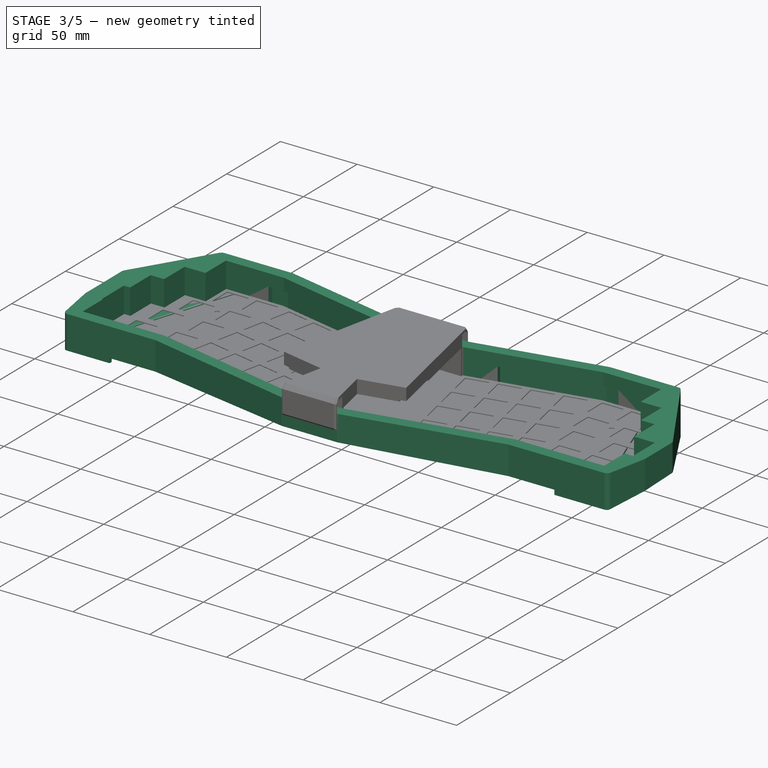
[diagram: stage 3 of 5 — iso view after this stage's code; geometry added in this stage tinted green]
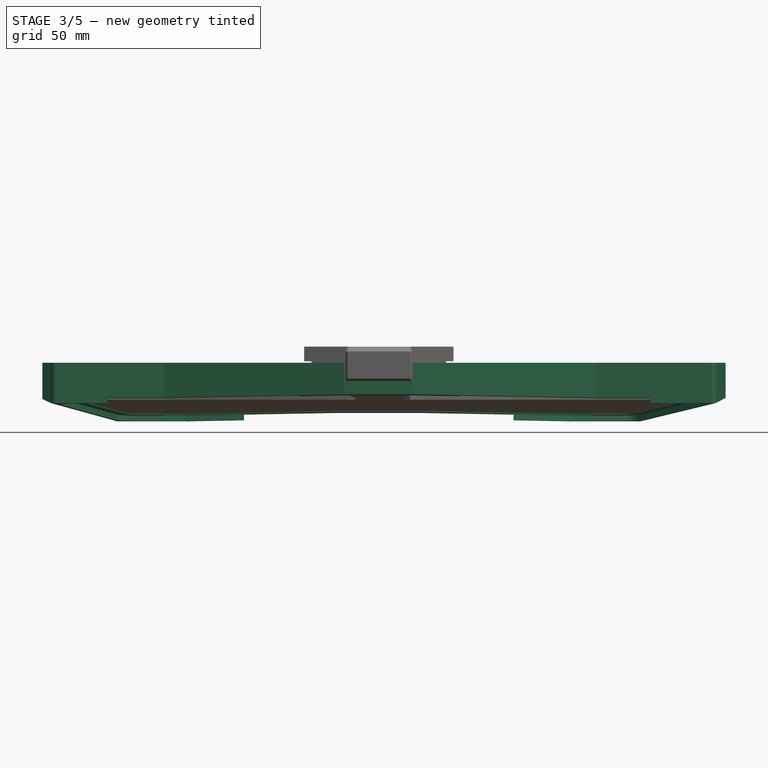
[diagram: stage 3 of 5 — front view after this stage's code; geometry added in this stage tinted green]
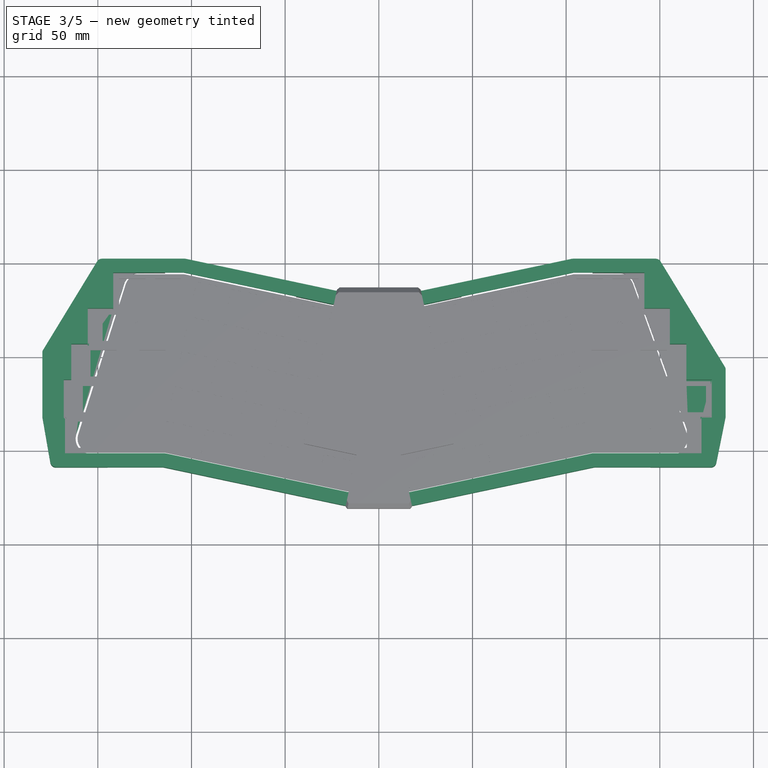
[diagram: stage 3 of 5 — top view after this stage's code; geometry added in this stage tinted green]
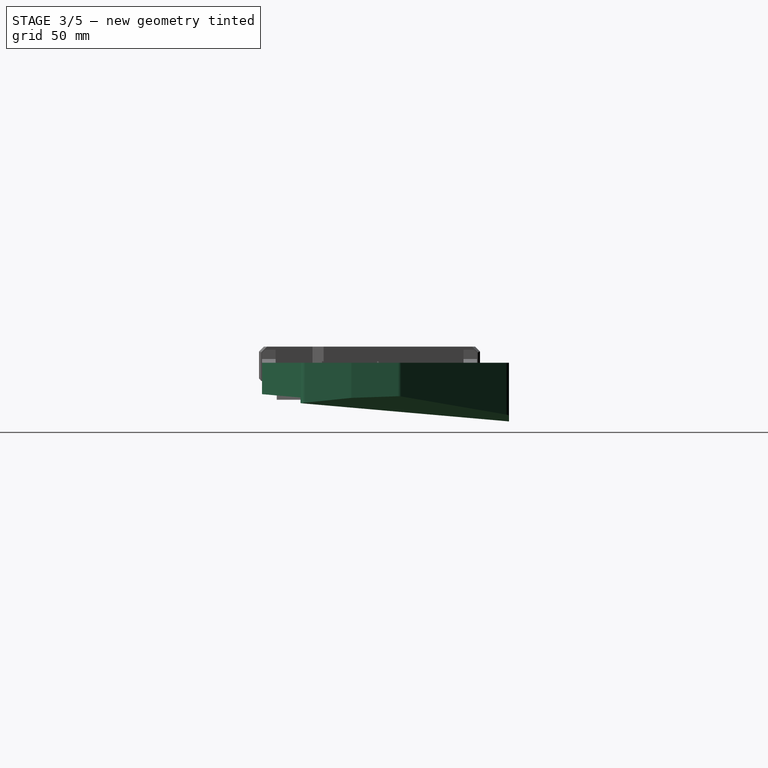
[diagram: stage 3 of 5 — right view after this stage's code; geometry added in this stage tinted green]
FEATURE [PartDesign::Body] Body001  label="pcb"
  AllowCompound = false
  Group = -> [Sketch001,Pad,Fillet,Fillet001]
  Origin = -> Origin001
  Placement = pos=(0,0,5.4) rot=(0,0,1;0rad)
  Tip = -> Fillet001
  expr: .Placement.Base.z = Spreadsheet.PCB_HEIGHT_OFFSET
FEATURE [Sketcher::SketchObject] Sketch002  label="Sketch000"
  ArcFitTolerance = 0
  AttachmentOffset = pos=(0,0,-20.2) rot=(0,0,1;0rad)
  AttachmentSupport = -> [XY_Plane002]
  FullyConstrained = true
  MakeInternals = false
  MapMode = 5
  Placement = pos=(0,0,-20.2) rot=(0,0,1;0rad)
  expr: .AttachmentOffset.Base.z = -40 + Spreadsheet.CASE_INNER_HEIGHT + Spreadsheet.ACRYL_THICKNESS
  expr: Constraints[141] = 90 - <<config>>.ALPHA_ANGLE
  expr: Constraints[142] = <<config>>.KEY_UNIT
  expr: Constraints[147] = <<config>>.MOD_OFFSET
  expr: Constraints[148] = 2.75 * <<config>>.KEY_UNIT
  expr: Constraints[149] = 3.25 * <<config>>.KEY_UNIT
  expr: Constraints[150] = 2.75 * <<config>>.KEY_UNIT
  expr: Constraints[151] = 2.5 * <<config>>.KEY_UNIT
  expr: Constraints[152] = 2 * <<config>>.KEY_UNIT
  expr: Constraints[162] = 3 * <<config>>.KEY_UNIT
  expr: Constraints[169] = <<config>>.HEADER_WIDTH
  expr: Constraints[170] = <<config>>.HEADER_LENGTH
  expr: Constraints[211] = Spreadsheet.CASE_BEZEL
  expr: Constraints[214] = Spreadsheet.CASE_BEZEL
  expr: Constraints[215] = Spreadsheet.CASE_BEZEL
  expr: Constraints[217] = Spreadsheet.CASE_BEZEL
  expr: Constraints[219] = Spreadsheet.CASE_BEZEL
  expr: Constraints[220] = Spreadsheet.CASE_BEZEL
  expr: Constraints[227] = Spreadsheet.CASE_BEZEL * 1.5
  expr: Constraints[228] = Spreadsheet.CASE_BEZEL * 1.2
  expr: Constraints[237] = Spreadsheet.CASE_BEZEL
  expr: Constraints[240] = Spreadsheet.CASE_BEZEL * 1.5
  expr: Constraints[44] = 2 * <<config>>.KEY_UNIT
  expr: Constraints[45] = 2.5 * <<config>>.KEY_UNIT
  expr: Constraints[46] = <<config>>.KEY_UNIT
  expr: Constraints[51] = 2.75 * <<config>>.KEY_UNIT
  expr: Constraints[52] = 2.75 * <<config>>.KEY_UNIT
  expr: Constraints[53] = 2.5 * <<config>>.KEY_UNIT
  expr: Constraints[59] = 90 - <<config>>.ALPHA_ANGLE
  expr: Constraints[62] = 4 * <<config>>.KEY_UNIT
  expr: Constraints[66] = 5 * <<config>>.KEY_UNIT
  expr: Constraints[67] = 5.5 * <<config>>.KEY_UNIT
  expr: Constraints[75] = <<config>>.KEY_UNIT
  expr: Constraints[76] = <<config>>.MOD_OFFSET
  expr: Constraints[84] = 4 * <<config>>.KEY_UNIT
  expr: Constraints[85] = 5.5 * <<config>>.KEY_UNIT
  expr: Constraints[86] = <<config>>.KEY_UNIT
  expr: Constraints[89] = 5 * <<config>>.KEY_UNIT
  sketch-geometry (84):
    g0: LineSegment [constr] StartX=-141.18 StartY=94.2 StartZ=0 EndX=-103.08 EndY=94.2 EndZ=0
    g1: LineSegment [constr] StartX=-103.08 StartY=94.2 StartZ=0 EndX=-103.08 EndY=75.15 EndZ=0
    g2: LineSegment [constr] StartX=-103.08 StartY=75.15 StartZ=0 EndX=-141.18 EndY=75.15 EndZ=0
    g3: LineSegment [constr] StartX=-141.18 StartY=75.15 StartZ=0 EndX=-141.18 EndY=94.2 EndZ=0
    g4: LineSegment [constr] StartX=-107.129 StartY=75.15 StartZ=0 EndX=-154.754 EndY=75.15 EndZ=0
    g5: LineSegment [constr] StartX=-154.754 StartY=75.15 StartZ=0 EndX=-154.754 EndY=56.1 EndZ=0
    g6: LineSegment [constr] StartX=-154.754 StartY=56.1 StartZ=0 EndX=-107.129 EndY=56.1 EndZ=0
    g7: LineSegment [constr] StartX=-107.129 StartY=56.1 StartZ=0 EndX=-107.129 EndY=75.15 EndZ=0
    g8: LineSegment [constr] StartX=-111.179 StartY=56.1 StartZ=0 EndX=-163.566 EndY=56.1 EndZ=0
    g9: LineSegment [constr] StartX=-163.566 StartY=56.1 StartZ=0 EndX=-163.566 EndY=37.05 EndZ=0
    g10: LineSegment [constr] StartX=-163.566 StartY=37.05 StartZ=0 EndX=-111.179 EndY=37.05 EndZ=0
    g11: LineSegment [constr] StartX=-111.179 StartY=37.05 StartZ=0 EndX=-111.179 EndY=56.1 EndZ=0
    g12: LineSegment [constr] StartX=-115.228 StartY=37.05 StartZ=0 EndX=-167.615 EndY=37.05 EndZ=0
    g13: LineSegment [constr] StartX=-167.615 StartY=37.05 StartZ=0 EndX=-167.615 EndY=18 EndZ=0
    g14: LineSegment [constr] StartX=-167.615 StartY=18 StartZ=0 EndX=-115.228 EndY=18 EndZ=0
    g15: LineSegment [constr] StartX=-115.228 StartY=18 StartZ=0 EndX=-115.228 EndY=37.05 EndZ=0
    g16: LineSegment [constr] StartX=-119.277 StartY=18 StartZ=0 EndX=-166.902 EndY=18 EndZ=0
    g17: LineSegment [constr] StartX=-166.902 StartY=18 StartZ=0 EndX=-166.902 EndY=-1.05 EndZ=0
    g18: LineSegment [constr] StartX=-166.902 StartY=-1.05 StartZ=0 EndX=-119.277 EndY=-1.05 EndZ=0
    g19: LineSegment [constr] StartX=-119.277 StartY=-1.05 StartZ=0 EndX=-119.277 EndY=18 EndZ=0
    g20: LineSegment [constr] StartX=-119.277 StartY=-1.05 StartZ=0 EndX=-99.2503 EndY=93.1686 EndZ=0
    g21: LineSegment [constr] StartX=-99.2503 StartY=93.1686 StartZ=0 EndX=-24.7155 EndY=77.3257 EndZ=0
    g22: LineSegment [constr] StartX=-119.054 StartY=0 StartZ=0 EndX=-16.5685 EndY=-21.7839 EndZ=0
    g23: LineSegment [constr] StartX=-16.5685 StartY=-21.7839 StartZ=0 EndX=-12.6078 EndY=-3.15024 EndZ=0
    g24: LineSegment [constr] StartX=-12.6078 StartY=-3.15024 StartZ=0 EndX=-40.5583 EndY=2.79084 EndZ=0
    g25: LineSegment [constr] StartX=-40.5583 StartY=2.79084 StartZ=0 EndX=-24.7155 EndY=77.3257 EndZ=0
    g26: LineSegment [constr] StartX=119.054 StartY=0 StartZ=0 EndX=16.5685 EndY=-21.7839 EndZ=0
    g27: LineSegment [constr] StartX=16.5685 StartY=-21.7839 StartZ=0 EndX=12.6078 EndY=-3.15024 EndZ=0
    g28: LineSegment [constr] StartX=12.6078 StartY=-3.15024 StartZ=0 EndX=40.5583 EndY=2.79084 EndZ=0
    g29: LineSegment [constr] StartX=40.5583 StartY=2.79084 StartZ=0 EndX=24.7155 EndY=77.3257 EndZ=0
    g30: LineSegment [constr] StartX=24.7155 StartY=77.3257 StartZ=0 EndX=99.2503 EndY=93.1686 EndZ=0
    g31: LineSegment [constr] StartX=99.2503 StartY=93.1686 StartZ=0 EndX=119.277 EndY=-1.05 EndZ=0
    g32: LineSegment [constr] StartX=119.277 StartY=-1.05 StartZ=0 EndX=171.665 EndY=-1.05 EndZ=0
    g33: LineSegment [constr] StartX=171.665 StartY=-1.05 StartZ=0 EndX=171.665 EndY=18 EndZ=0
    g34: LineSegment [constr] StartX=171.665 StartY=18 StartZ=0 EndX=119.277 EndY=18 EndZ=0
    g35: LineSegment [constr] StartX=119.277 StartY=18 StartZ=0 EndX=119.277 EndY=-1.05 EndZ=0
    g36: LineSegment [constr] StartX=115.228 StartY=18 StartZ=0 EndX=177.14 EndY=18 EndZ=0
    g37: LineSegment [constr] StartX=177.14 StartY=18 StartZ=0 EndX=177.14 EndY=37.05 EndZ=0
    g38: LineSegment [constr] StartX=177.14 StartY=37.05 StartZ=0 EndX=115.228 EndY=37.05 EndZ=0
    g39: LineSegment [constr] StartX=115.228 StartY=37.05 StartZ=0 EndX=115.228 EndY=18 EndZ=0
    g40: LineSegment [constr] StartX=111.179 StartY=37.05 StartZ=0 EndX=163.566 EndY=37.05 EndZ=0
    g41: LineSegment [constr] StartX=163.566 StartY=37.05 StartZ=0 EndX=163.566 EndY=56.1 EndZ=0
    g42: LineSegment [constr] StartX=163.566 StartY=56.1 StartZ=0 EndX=111.179 EndY=56.1 EndZ=0
    g43: LineSegment [constr] StartX=111.179 StartY=56.1 StartZ=0 EndX=111.179 EndY=37.05 EndZ=0
    g44: LineSegment [constr] StartX=107.129 StartY=56.1 StartZ=0 EndX=154.754 EndY=56.1 EndZ=0
    g45: LineSegment [constr] StartX=154.754 StartY=56.1 StartZ=0 EndX=154.754 EndY=75.15 EndZ=0
    g46: LineSegment [constr] StartX=154.754 StartY=75.15 StartZ=0 EndX=107.129 EndY=75.15 EndZ=0
    g47: LineSegment [constr] StartX=107.129 StartY=75.15 StartZ=0 EndX=107.129 EndY=56.1 EndZ=0
    g48: LineSegment [constr] StartX=103.08 StartY=75.15 StartZ=0 EndX=141.18 EndY=75.15 EndZ=0
    g49: LineSegment [constr] StartX=141.18 StartY=75.15 StartZ=0 EndX=141.18 EndY=94.2 EndZ=0
    g50: LineSegment [constr] StartX=141.18 StartY=94.2 StartZ=0 EndX=103.08 EndY=94.2 EndZ=0
    g51: LineSegment [constr] StartX=103.08 StartY=94.2 StartZ=0 EndX=103.08 EndY=75.15 EndZ=0
    g52: LineSegment [constr] StartX=-28.575 StartY=57.7047 StartZ=0 EndX=28.575 EndY=57.7047 EndZ=0
    g53: LineSegment [constr] StartX=28.575 StartY=57.7047 StartZ=0 EndX=28.575 EndY=0.554733 EndZ=0
    g54: LineSegment [constr] StartX=28.575 StartY=0.554733 StartZ=0 EndX=-28.575 EndY=0.554733 EndZ=0
    g55: LineSegment [constr] StartX=-28.575 StartY=0.554733 StartZ=0 EndX=-28.575 EndY=57.7047 EndZ=0
    g56: LineSegment [constr] StartX=-37.037 StartY=2.04236 StartZ=0 EndX=-28.575 EndY=41.853 EndZ=0
    g57: LineSegment [constr] StartX=-28.575 StartY=41.853 StartZ=0 EndX=-32.0963 EndY=42.6014 EndZ=0
    g58: Circle [constr] CenterX=-28.575 CenterY=57.7047 CenterZ=0 NormalX=0 NormalY=0 NormalZ=1 AngleXU=0 Radius=0.304232
    g59: Circle [constr] CenterX=-28.575 CenterY=0.554733 CenterZ=0 NormalX=0 NormalY=0 NormalZ=1 AngleXU=0 Radius=0.304232
    g60: LineSegment StartX=-149.496 StartY=102.2 StartZ=0 EndX=-179.615 EndY=52.8353 EndZ=0
    g61: LineSegment StartX=-179.615 StartY=52.8353 StartZ=0 EndX=-179.615 EndY=18 EndZ=0
    g62: LineSegment StartX=-179.615 StartY=18 StartZ=0 EndX=-174.902 EndY=-9.05 EndZ=0
    g63: LineSegment StartX=-174.902 StartY=-9.05 StartZ=0 EndX=-114.955 EndY=-9.05 EndZ=0
    g64: LineSegment StartX=-114.955 StartY=-9.05 StartZ=0 EndX=-18.2318 EndY=-29.6091 EndZ=0
    g65: LineSegment StartX=-18.2318 StartY=-29.6091 StartZ=0 EndX=18.2318 EndY=-29.6091 EndZ=0
    g66: LineSegment StartX=18.2318 StartY=-29.6091 StartZ=0 EndX=114.955 EndY=-9.05 EndZ=0
    g67: LineSegment StartX=114.955 StartY=-9.05 StartZ=0 EndX=179.665 EndY=-9.05 EndZ=0
    g68: LineSegment StartX=179.665 StartY=-9.05 StartZ=0 EndX=185.14 EndY=18 EndZ=0
    g69: LineSegment StartX=185.14 StartY=18 StartZ=0 EndX=185.14 EndY=43.78 EndZ=0
    g70: LineSegment StartX=185.14 StartY=43.78 StartZ=0 EndX=149.496 EndY=102.2 EndZ=0
    g71: LineSegment StartX=149.496 StartY=102.2 StartZ=0 EndX=103.262 EndY=102.2 EndZ=0
    g72: LineSegment StartX=103.262 StartY=102.2 StartZ=0 EndX=23.0522 EndY=85.1509 EndZ=0
    g73: LineSegment StartX=23.0522 StartY=85.1509 StartZ=0 EndX=-23.0522 EndY=85.1509 EndZ=0
    g74: LineSegment StartX=-23.0522 StartY=85.1509 StartZ=0 EndX=-103.262 EndY=102.2 EndZ=0
    g75: LineSegment StartX=-103.262 StartY=102.2 StartZ=0 EndX=-149.496 EndY=102.2 EndZ=0
    g76: Circle [constr] CenterX=-154.754 CenterY=75.15 CenterZ=0 NormalX=0 NormalY=0 NormalZ=1 AngleXU=0 Radius=9.6
    g77: Circle [constr] CenterX=-163.566 CenterY=56.1 CenterZ=0 NormalX=0 NormalY=0 NormalZ=1 AngleXU=0 Radius=12
    g78: Circle [constr] CenterX=154.754 CenterY=75.15 CenterZ=0 NormalX=0 NormalY=0 NormalZ=1 AngleXU=0 Radius=9.6
    g79: Circle [constr] CenterX=163.566 CenterY=56.1 CenterZ=0 NormalX=0 NormalY=0 NormalZ=1 AngleXU=0 Radius=12
    g80: LineSegment [constr] StartX=-16.5685 StartY=-21.7839 StartZ=0 EndX=-18.2318 EndY=-29.6091 EndZ=0
    g81: LineSegment [constr] StartX=16.5685 StartY=-21.7839 StartZ=0 EndX=18.2318 EndY=-29.6091 EndZ=0
    g82: LineSegment [constr] StartX=-24.7155 StartY=77.3257 StartZ=0 EndX=-23.0522 EndY=85.1509 EndZ=0
    g83: LineSegment [constr] StartX=24.7155 StartY=77.3257 StartZ=0 EndX=23.0522 EndY=85.1509 EndZ=0
  constraints (241):
    c: Coincident(g0,g1)
    c: Coincident(g1,g2)
    c: Coincident(g2,g3)
    c: Coincident(g3,g0)
    c: Horizontal(g0)
    c: Horizontal(g2)
    c: Vertical(g1)
    c: Vertical(g3)
    c: Coincident(g4,g5)
    c: Coincident(g5,g6)
    c: Coincident(g6,g7)
    c: Coincident(g7,g4)
    c: Horizontal(g4)
    c: Horizontal(g6)
    c: Vertical(g5)
    c: Vertical(g7)
    c: PointOnObject(g4,g2)
    c: Coincident(g8,g9)
    c: Coincident(g9,g10)
    c: Coincident(g10,g11)
    c: Coincident(g11,g8)
    c: Horizontal(g8)
    c: Horizontal(g10)
    c: Vertical(g9)
    c: Vertical(g11)
    c: PointOnObject(g8,g6)
    c: Coincident(g12,g13)
    c: Coincident(g13,g14)
    c: Coincident(g14,g15)
    c: Coincident(g15,g12)
    c: Horizontal(g12)
    c: Horizontal(g14)
    c: Vertical(g13)
    c: Vertical(g15)
    c: PointOnObject(g12,g10)
    c: Coincident(g16,g17)
    c: Coincident(g17,g18)
    c: Coincident(g18,g19)
    c: Coincident(g19,g16)
    c: Horizontal(g16)
    c: Horizontal(g18)
    c: Vertical(g17)
    c: Vertical(g19)
    c: PointOnObject(g16,g14)
    c: DistanceX(g0,g0) = 38.1
    c: DistanceX(g4,g4) = 47.625
    c: DistanceY(g3,g3) = 19.05
    c: Equal(g3,g5)
    c: Equal(g5,g9)
    c: Equal(g9,g13)
    c: Equal(g13,g17)
    c: DistanceX(g8,g8) = 52.3875
    c: DistanceX(g12,g12) = 52.3875
    c: DistanceX(g16,g16) = 47.625
    c: Coincident(g20,g18)
    c: PointOnObject(g14,g20)
    c: PointOnObject(g10,g20)
    c: PointOnObject(g6,g20)
    c: PointOnObject(g1,g20)
    c: Angle(g-1,g20) = 1.36136
    c: Coincident(g20,g21)
    c: Perpendicular(g21,g20)
    c: Distance(g21) = 76.2
    c: PointOnObject(g22,g-1)
    c: PointOnObject(g22,g20)
    c: Perpendicular(g22,g20)
    c: Distance(g22,g20) = 95.25
    c: Distance(g22) = 104.775
    c: Coincident(g23,g22)
    c: Coincident(g24,g23)
    c: Coincident(g25,g24)
    c: Coincident(g25,g21)
    c: Perpendicular(g21,g25)
    c: Perpendicular(g23,g22)
    c: Perpendicular(g24,g23)
    c: Distance(g23) = 19.05
    c: DistanceY(g18,g22) = 1.05
    c: Coincident(g26,g27)
    c: Coincident(g27,g28)
    c: Coincident(g28,g29)
    c: Coincident(g29,g30)
    c: Perpendicular(g27,g26)
    c: Perpendicular(g28,g27)
    c: Perpendicular(g30,g29)
    c: Distance(g30) = 76.2
    c: Distance(g26) = 104.775
    c: Distance(g27) = 19.05
    c: Coincident(g31,g30)
    c: PointOnObject(g26,g31)
    c: Distance(g26,g30) = 95.25
    c: Perpendicular(g31,g26)
    c: Perpendicular(g31,g30)
    c: Coincident(g32,g33)
    c: Coincident(g33,g34)
    c: Coincident(g34,g35)
    c: Coincident(g35,g32)
    c: Horizontal(g32)
    c: Horizontal(g34)
    c: Vertical(g33)
    c: Vertical(g35)
    c: Coincident(g32,g31)
    c: Coincident(g36,g37)
    c: Coincident(g37,g38)
    c: Coincident(g38,g39)
    c: Coincident(g39,g36)
    c: Horizontal(g36)
    c: Horizontal(g38)
    c: Vertical(g37)
    c: Vertical(g39)
    c: PointOnObject(g36,g34)
    c: Coincident(g40,g41)
    c: Coincident(g41,g42)
    c: Coincident(g42,g43)
    c: Coincident(g43,g40)
    c: Horizontal(g40)
    c: Horizontal(g42)
    c: Vertical(g41)
    c: Vertical(g43)
    c: PointOnObject(g40,g38)
    c: Coincident(g44,g45)
    c: Coincident(g45,g46)
    c: Coincident(g46,g47)
    c: Coincident(g47,g44)
    c: Horizontal(g44)
    c: Horizontal(g46)
    c: Vertical(g45)
    c: Vertical(g47)
    c: PointOnObject(g44,g42)
    c: Coincident(g48,g49)
    c: Coincident(g49,g50)
    c: Coincident(g50,g51)
    c: Coincident(g51,g48)
    c: Horizontal(g48)
    c: Horizontal(g50)
    c: Vertical(g49)
    c: Vertical(g51)
    c: PointOnObject(g48,g46)
    c: PointOnObject(g48,g31)
    c: PointOnObject(g44,g31)
    c: PointOnObject(g40,g31)
    c: PointOnObject(g36,g31)
    c: Angle(g31,g-1) = 1.36136
    c: DistanceY(g49,g49) = 19.05
    c: Equal(g49,g45)
    c: Equal(g45,g41)
    c: Equal(g41,g37)
    c: Equal(g37,g33)
    c: DistanceY(g31,g26) = 1.05
    c: DistanceX(g34,g34) = 52.3875
    c: DistanceX(g38,g38) = 61.9125
    c: DistanceX(g42,g42) = 52.3875
    c: DistanceX(g46,g46) = 47.625
    c: DistanceX(g50,g50) = 38.1
    c: Coincident(g52,g53)
    c: Coincident(g53,g54)
    c: Coincident(g54,g55)
    c: Coincident(g55,g52)
    c: Horizontal(g54)
    c: Vertical(g53)
    c: Vertical(g55)
    c: Symmetric(g52,g52,g-2)
    c: Equal(g52,g53)
    c: DistanceX(g52,g52) = 57.15
    c: Symmetric(g22,g26,g-2)
    c: PointOnObject(g56,g24)
    c: Coincident(g57,g56)
    c: PointOnObject(g57,g25)
    c: Perpendicular(g57,g56)
    c: Perpendicular(g56,g24)
    c: Distance(g57) = 3.6
    c: Distance(g56) = 40.7
    c: PointOnObject(g56,g55)
    c: Coincident(g58,g52)
    c: Tangent(g58,g25)
    c: Coincident(g59,g54)
    c: Tangent(g59,g24)
    c: Equal(g59,g58)
    c: Coincident(g60,g61)
    c: Vertical(g61)
    c: Coincident(g61,g62)
    c: Coincident(g62,g63)
    c: Horizontal(g63)
    c: Coincident(g63,g64)
    c: Coincident(g64,g65)
    c: Horizontal(g65)
    c: Coincident(g65,g66)
    c: Coincident(g66,g67)
    c: Horizontal(g67)
    c: Coincident(g67,g68)
    c: Coincident(g68,g69)
    c: Vertical(g69)
    c: Coincident(g69,g70)
    c: Coincident(g70,g71)
    c: Horizontal(g71)
    c: Coincident(g71,g72)
    c: Coincident(g72,g73)
    c: Horizontal(g73)
    c: Coincident(g73,g74)
    c: Coincident(g74,g75)
    c: Coincident(g75,g60)
    c: Horizontal(g75)
    c: Coincident(g76,g4)
    c: Tangent(g76,g60)
    c: Coincident(g77,g8)
    c: Tangent(g77,g60)
    c: Coincident(g78,g45)
    c: Tangent(g78,g70)
    c: Coincident(g79,g41)
    c: Tangent(g79,g70)
    c: Equal(g79,g77)
    c: Equal(g76,g78)
    c: Distance(g37,g69) = 8
    c: Parallel(g64,g22)
    c: Parallel(g66,g26)
    c: Distance(g64,g22) = 8
    c: DistanceY(g62,g17) = 8
    c: Horizontal(g63,g66)
    c: DistanceY(g49,g70) = 8
    c: Horizontal(g70,g60)
    c: DistanceX(g62,g17) = 8
    c: DistanceX(g32,g67) = 8
    c: Coincident(g80,g22)
    c: Coincident(g80,g64)
    c: Perpendicular(g64,g80)
    c: Coincident(g81,g26)
    c: Coincident(g81,g65)
    c: Perpendicular(g81,g66)
    c: Distance(g8,g60) = 12
    c: Distance(g4,g60) = 9.6
    c: Coincident(g82,g21)
    c: Coincident(g82,g73)
    c: Coincident(g83,g29)
    c: Coincident(g83,g72)
    c: Perpendicular(g82,g21)
    c: Perpendicular(g30,g83)
    c: Parallel(g74,g21)
    c: Parallel(g72,g30)
    c: Distance(g72,g30) = 8
    c: Horizontal(g61,g13)
    c: Horizontal(g13,g68)
    c: Distance(g12,g61) = 12
FEATURE [Sketcher::SketchObject] Sketch003  label="Sketch009"
  ArcFitTolerance = 0
  AttachmentOffset = pos=(0,0,19.8) rot=(0,0,1;0rad)
  AttachmentSupport = -> [XY_Plane002]
  FullyConstrained = true
  MakeInternals = false
  MapMode = 5
  Placement = pos=(0,0,19.8) rot=(0,0,1;0rad)
  expr: .AttachmentOffset.Base.z = Spreadsheet.CASE_INNER_HEIGHT + Spreadsheet.ACRYL_THICKNESS
  expr: Constraints[141] = 90 - <<config>>.ALPHA_ANGLE
  expr: Constraints[142] = <<config>>.KEY_UNIT
  expr: Constraints[147] = <<config>>.MOD_OFFSET
  expr: Constraints[148] = 2.75 * <<config>>.KEY_UNIT
  expr: Constraints[149] = 3.25 * <<config>>.KEY_UNIT
  expr: Constraints[150] = 2.75 * <<config>>.KEY_UNIT
  expr: Constraints[151] = 2.5 * <<config>>.KEY_UNIT
  expr: Constraints[152] = 2 * <<config>>.KEY_UNIT
  expr: Constraints[162] = 3 * <<config>>.KEY_UNIT
  expr: Constraints[169] = <<config>>.HEADER_WIDTH
  expr: Constraints[170] = <<config>>.HEADER_LENGTH
  expr: Constraints[219] = Spreadsheet.CASE_MARGIN
  expr: Constraints[220] = Spreadsheet.CASE_MARGIN
  expr: Constraints[221] = Spreadsheet.CASE_MARGIN
  expr: Constraints[222] = Spreadsheet.CASE_MARGIN
  expr: Constraints[223] = Spreadsheet.CASE_MARGIN
  expr: Constraints[224] = Spreadsheet.CASE_MARGIN
  expr: Constraints[225] = Spreadsheet.CASE_MARGIN
  expr: Constraints[226] = Spreadsheet.CASE_MARGIN
  expr: Constraints[227] = Spreadsheet.CASE_MARGIN
  expr: Constraints[228] = Spreadsheet.CASE_MARGIN
  expr: Constraints[229] = Spreadsheet.CASE_MARGIN
  expr: Constraints[230] = Spreadsheet.CASE_MARGIN
  expr: Constraints[231] = Spreadsheet.CASE_MARGIN
  expr: Constraints[232] = Spreadsheet.CASE_MARGIN
  expr: Constraints[233] = Spreadsheet.CASE_MARGIN
  expr: Constraints[234] = Spreadsheet.CASE_MARGIN
  expr: Constraints[44] = 2 * <<config>>.KEY_UNIT
  expr: Constraints[45] = 2.5 * <<config>>.KEY_UNIT
  expr: Constraints[46] = <<config>>.KEY_UNIT
  expr: Constraints[51] = 2.75 * <<config>>.KEY_UNIT
  expr: Constraints[52] = 2.75 * <<config>>.KEY_UNIT
  expr: Constraints[53] = 2.5 * <<config>>.KEY_UNIT
  expr: Constraints[59] = 90 - <<config>>.ALPHA_ANGLE
  expr: Constraints[62] = 4 * <<config>>.KEY_UNIT
  expr: Constraints[66] = 5 * <<config>>.KEY_UNIT
  expr: Constraints[67] = 5.5 * <<config>>.KEY_UNIT
  expr: Constraints[75] = <<config>>.KEY_UNIT
  expr: Constraints[76] = <<config>>.MOD_OFFSET
  expr: Constraints[84] = 4 * <<config>>.KEY_UNIT
  expr: Constraints[85] = 5.5 * <<config>>.KEY_UNIT
  expr: Constraints[86] = <<config>>.KEY_UNIT
  expr: Constraints[89] = 5 * <<config>>.KEY_UNIT
  sketch-geometry (84):
    g0: LineSegment [constr] StartX=-141.18 StartY=94.2 StartZ=0 EndX=-103.08 EndY=94.2 EndZ=0
    g1: LineSegment [constr] StartX=-103.08 StartY=94.2 StartZ=0 EndX=-103.08 EndY=75.15 EndZ=0
    g2: LineSegment [constr] StartX=-103.08 StartY=75.15 StartZ=0 EndX=-141.18 EndY=75.15 EndZ=0
    g3: LineSegment [constr] StartX=-141.18 StartY=75.15 StartZ=0 EndX=-141.18 EndY=94.2 EndZ=0
    g4: LineSegment [constr] StartX=-107.129 StartY=75.15 StartZ=0 EndX=-154.754 EndY=75.15 EndZ=0
    g5: LineSegment [constr] StartX=-154.754 StartY=75.15 StartZ=0 EndX=-154.754 EndY=56.1 EndZ=0
    g6: LineSegment [constr] StartX=-154.754 StartY=56.1 StartZ=0 EndX=-107.129 EndY=56.1 EndZ=0
    g7: LineSegment [constr] StartX=-107.129 StartY=56.1 StartZ=0 EndX=-107.129 EndY=75.15 EndZ=0
    g8: LineSegment [constr] StartX=-111.179 StartY=56.1 StartZ=0 EndX=-163.566 EndY=56.1 EndZ=0
    g9: LineSegment [constr] StartX=-163.566 StartY=56.1 StartZ=0 EndX=-163.566 EndY=37.05 EndZ=0
    g10: LineSegment [constr] StartX=-163.566 StartY=37.05 StartZ=0 EndX=-111.179 EndY=37.05 EndZ=0
    g11: LineSegment [constr] StartX=-111.179 StartY=37.05 StartZ=0 EndX=-111.179 EndY=56.1 EndZ=0
    g12: LineSegment [constr] StartX=-115.228 StartY=37.05 StartZ=0 EndX=-167.615 EndY=37.05 EndZ=0
    g13: LineSegment [constr] StartX=-167.615 StartY=37.05 StartZ=0 EndX=-167.615 EndY=18 EndZ=0
    g14: LineSegment [constr] StartX=-167.615 StartY=18 StartZ=0 EndX=-115.228 EndY=18 EndZ=0
    g15: LineSegment [constr] StartX=-115.228 StartY=18 StartZ=0 EndX=-115.228 EndY=37.05 EndZ=0
    g16: LineSegment [constr] StartX=-119.277 StartY=18 StartZ=0 EndX=-166.902 EndY=18 EndZ=0
    g17: LineSegment [constr] StartX=-166.902 StartY=18 StartZ=0 EndX=-166.902 EndY=-1.05 EndZ=0
    g18: LineSegment [constr] StartX=-166.902 StartY=-1.05 StartZ=0 EndX=-119.277 EndY=-1.05 EndZ=0
    g19: LineSegment [constr] StartX=-119.277 StartY=-1.05 StartZ=0 EndX=-119.277 EndY=18 EndZ=0
    g20: LineSegment [constr] StartX=-119.277 StartY=-1.05 StartZ=0 EndX=-99.2503 EndY=93.1686 EndZ=0
    g21: LineSegment [constr] StartX=-99.2503 StartY=93.1686 StartZ=0 EndX=-24.7155 EndY=77.3257 EndZ=0
    g22: LineSegment [constr] StartX=-119.054 StartY=0 StartZ=0 EndX=-16.5685 EndY=-21.7839 EndZ=0
    g23: LineSegment [constr] StartX=-16.5685 StartY=-21.7839 StartZ=0 EndX=-12.6078 EndY=-3.15024 EndZ=0
    g24: LineSegment [constr] StartX=-12.6078 StartY=-3.15024 StartZ=0 EndX=-40.5583 EndY=2.79084 EndZ=0
    g25: LineSegment [constr] StartX=-40.5583 StartY=2.79084 StartZ=0 EndX=-24.7155 EndY=77.3257 EndZ=0
    g26: LineSegment [constr] StartX=119.054 StartY=0 StartZ=0 EndX=16.5685 EndY=-21.7839 EndZ=0
    g27: LineSegment [constr] StartX=16.5685 StartY=-21.7839 StartZ=0 EndX=12.6078 EndY=-3.15024 EndZ=0
    g28: LineSegment [constr] StartX=12.6078 StartY=-3.15024 StartZ=0 EndX=40.5583 EndY=2.79084 EndZ=0
    g29: LineSegment [constr] StartX=40.5583 StartY=2.79084 StartZ=0 EndX=24.7155 EndY=77.3257 EndZ=0
    g30: LineSegment [constr] StartX=24.7155 StartY=77.3257 StartZ=0 EndX=99.2503 EndY=93.1686 EndZ=0
    g31: LineSegment [constr] StartX=99.2503 StartY=93.1686 StartZ=0 EndX=119.277 EndY=-1.05 EndZ=0
    g32: LineSegment [constr] StartX=119.277 StartY=-1.05 StartZ=0 EndX=171.665 EndY=-1.05 EndZ=0
    g33: LineSegment [constr] StartX=171.665 StartY=-1.05 StartZ=0 EndX=171.665 EndY=18 EndZ=0
    g34: LineSegment [constr] StartX=171.665 StartY=18 StartZ=0 EndX=119.277 EndY=18 EndZ=0
    g35: LineSegment [constr] StartX=119.277 StartY=18 StartZ=0 EndX=119.277 EndY=-1.05 EndZ=0
    g36: LineSegment [constr] StartX=115.228 StartY=18 StartZ=0 EndX=177.14 EndY=18 EndZ=0
    g37: LineSegment [constr] StartX=177.14 StartY=18 StartZ=0 EndX=177.14 EndY=37.05 EndZ=0
    g38: LineSegment [constr] StartX=177.14 StartY=37.05 StartZ=0 EndX=115.228 EndY=37.05 EndZ=0
    g39: LineSegment [constr] StartX=115.228 StartY=37.05 StartZ=0 EndX=115.228 EndY=18 EndZ=0
    g40: LineSegment [constr] StartX=111.179 StartY=37.05 StartZ=0 EndX=163.566 EndY=37.05 EndZ=0
    g41: LineSegment [constr] StartX=163.566 StartY=37.05 StartZ=0 EndX=163.566 EndY=56.1 EndZ=0
    g42: LineSegment [constr] StartX=163.566 StartY=56.1 StartZ=0 EndX=111.179 EndY=56.1 EndZ=0
    g43: LineSegment [constr] StartX=111.179 StartY=56.1 StartZ=0 EndX=111.179 EndY=37.05 EndZ=0
    g44: LineSegment [constr] StartX=107.129 StartY=56.1 StartZ=0 EndX=154.754 EndY=56.1 EndZ=0
    g45: LineSegment [constr] StartX=154.754 StartY=56.1 StartZ=0 EndX=154.754 EndY=75.15 EndZ=0
    g46: LineSegment [constr] StartX=154.754 StartY=75.15 StartZ=0 EndX=107.129 EndY=75.15 EndZ=0
    g47: LineSegment [constr] StartX=107.129 StartY=75.15 StartZ=0 EndX=107.129 EndY=56.1 EndZ=0
    g48: LineSegment [constr] StartX=103.08 StartY=75.15 StartZ=0 EndX=141.18 EndY=75.15 EndZ=0
    g49: LineSegment [constr] StartX=141.18 StartY=75.15 StartZ=0 EndX=141.18 EndY=94.2 EndZ=0
    g50: LineSegment [constr] StartX=141.18 StartY=94.2 StartZ=0 EndX=103.08 EndY=94.2 EndZ=0
    g51: LineSegment [constr] StartX=103.08 StartY=94.2 StartZ=0 EndX=103.08 EndY=75.15 EndZ=0
    g52: LineSegment [constr] StartX=-28.575 StartY=57.7047 StartZ=0 EndX=28.575 EndY=57.7047 EndZ=0
    g53: LineSegment [constr] StartX=28.575 StartY=57.7047 StartZ=0 EndX=28.575 EndY=0.554733 EndZ=0
    g54: LineSegment [constr] StartX=28.575 StartY=0.554733 StartZ=0 EndX=-28.575 EndY=0.554733 EndZ=0
    g55: LineSegment [constr] StartX=-28.575 StartY=0.554733 StartZ=0 EndX=-28.575 EndY=57.7047 EndZ=0
    g56: LineSegment [constr] StartX=-37.037 StartY=2.04236 StartZ=0 EndX=-28.575 EndY=41.853 EndZ=0
    g57: LineSegment [constr] StartX=-28.575 StartY=41.853 StartZ=0 EndX=-32.0963 EndY=42.6014 EndZ=0
    g58: Circle [constr] CenterX=-28.575 CenterY=57.7047 CenterZ=0 NormalX=0 NormalY=0 NormalZ=1 AngleXU=0 Radius=0.304232
    g59: Circle [constr] CenterX=-28.575 CenterY=0.554733 CenterZ=0 NormalX=0 NormalY=0 NormalZ=1 AngleXU=0 Radius=0.304232
    g60: LineSegment StartX=-141.78 StartY=94.8 StartZ=0 EndX=-141.78 EndY=75.75 EndZ=0
    g61: LineSegment StartX=-141.78 StartY=75.75 StartZ=0 EndX=-155.354 EndY=75.75 EndZ=0
    g62: LineSegment StartX=-155.354 StartY=75.75 StartZ=0 EndX=-155.354 EndY=56.7 EndZ=0
    g63: LineSegment StartX=-155.354 StartY=56.7 StartZ=0 EndX=-164.166 EndY=56.7 EndZ=0
    g64: LineSegment StartX=-164.166 StartY=56.7 StartZ=0 EndX=-164.166 EndY=37.65 EndZ=0
    g65: LineSegment StartX=-164.166 StartY=37.65 StartZ=0 EndX=-168.215 EndY=37.65 EndZ=0
    g66: LineSegment StartX=-168.215 StartY=37.65 StartZ=0 EndX=-168.215 EndY=17.4 EndZ=0
    g67: LineSegment StartX=-168.215 StartY=17.4 StartZ=0 EndX=-167.502 EndY=16.6867 EndZ=0
    g68: LineSegment StartX=-167.502 StartY=16.6867 StartZ=0 EndX=-167.502 EndY=-1.65 EndZ=0
    g69: LineSegment StartX=-167.502 StartY=-1.65 StartZ=0 EndX=-152.502 EndY=-1.65 EndZ=0
    g70: LineSegment StartX=157.265 StartY=-1.65 StartZ=0 EndX=172.265 EndY=-1.65 EndZ=0
    g71: LineSegment StartX=172.265 StartY=-1.65 StartZ=0 EndX=172.265 EndY=17.4 EndZ=0
    g72: LineSegment StartX=172.265 StartY=17.4 StartZ=0 EndX=177.74 EndY=17.4 EndZ=0
    g73: LineSegment StartX=177.74 StartY=17.4 StartZ=0 EndX=177.74 EndY=37.65 EndZ=0
    g74: LineSegment StartX=177.74 StartY=37.65 StartZ=0 EndX=164.166 EndY=37.65 EndZ=0
    g75: LineSegment StartX=164.166 StartY=37.65 StartZ=0 EndX=164.166 EndY=56.7 EndZ=0
    g76: LineSegment StartX=164.166 StartY=56.7 StartZ=0 EndX=155.354 EndY=56.7 EndZ=0
    g77: LineSegment StartX=155.354 StartY=56.7 StartZ=0 EndX=155.354 EndY=75.75 EndZ=0
    g78: LineSegment StartX=155.354 StartY=75.75 StartZ=0 EndX=141.78 EndY=75.75 EndZ=0
    g79: LineSegment StartX=141.78 StartY=75.75 StartZ=0 EndX=141.78 EndY=94.8 EndZ=0
    g80: LineSegment StartX=126.78 StartY=94.8 StartZ=0 EndX=141.78 EndY=94.8 EndZ=0
    g81: LineSegment StartX=157.265 StartY=-1.65 StartZ=0 EndX=126.78 EndY=94.8 EndZ=0
    g82: LineSegment StartX=-141.78 StartY=94.8 StartZ=0 EndX=-126.78 EndY=94.8 EndZ=0
    g83: LineSegment StartX=-152.502 StartY=-1.65 StartZ=0 EndX=-126.78 EndY=94.8 EndZ=0
  constraints (249):
    c: Coincident(g0,g1)
    c: Coincident(g1,g2)
    c: Coincident(g2,g3)
    c: Coincident(g3,g0)
    c: Horizontal(g0)
    c: Horizontal(g2)
    c: Vertical(g1)
    c: Vertical(g3)
    c: Coincident(g4,g5)
    c: Coincident(g5,g6)
    c: Coincident(g6,g7)
    c: Coincident(g7,g4)
    c: Horizontal(g4)
    c: Horizontal(g6)
    c: Vertical(g5)
    c: Vertical(g7)
    c: PointOnObject(g4,g2)
    c: Coincident(g8,g9)
    c: Coincident(g9,g10)
    c: Coincident(g10,g11)
    c: Coincident(g11,g8)
    c: Horizontal(g8)
    c: Horizontal(g10)
    c: Vertical(g9)
    c: Vertical(g11)
    c: PointOnObject(g8,g6)
    c: Coincident(g12,g13)
    c: Coincident(g13,g14)
    c: Coincident(g14,g15)
    c: Coincident(g15,g12)
    c: Horizontal(g12)
    c: Horizontal(g14)
    c: Vertical(g13)
    c: Vertical(g15)
    c: PointOnObject(g12,g10)
    c: Coincident(g16,g17)
    c: Coincident(g17,g18)
    c: Coincident(g18,g19)
    c: Coincident(g19,g16)
    c: Horizontal(g16)
    c: Horizontal(g18)
    c: Vertical(g17)
    c: Vertical(g19)
    c: PointOnObject(g16,g14)
    c: DistanceX(g0,g0) = 38.1
    c: DistanceX(g4,g4) = 47.625
    c: DistanceY(g3,g3) = 19.05
    c: Equal(g3,g5)
    c: Equal(g5,g9)
    c: Equal(g9,g13)
    c: Equal(g13,g17)
    c: DistanceX(g8,g8) = 52.3875
    c: DistanceX(g12,g12) = 52.3875
    c: DistanceX(g16,g16) = 47.625
    c: Coincident(g20,g18)
    c: PointOnObject(g14,g20)
    c: PointOnObject(g10,g20)
    c: PointOnObject(g6,g20)
    c: PointOnObject(g1,g20)
    c: Angle(g-1,g20) = 1.36136
    c: Coincident(g20,g21)
    c: Perpendicular(g21,g20)
    c: Distance(g21) = 76.2
    c: PointOnObject(g22,g-1)
    c: PointOnObject(g22,g20)
    c: Perpendicular(g22,g20)
    c: Distance(g22,g20) = 95.25
    c: Distance(g22) = 104.775
    c: Coincident(g23,g22)
    c: Coincident(g24,g23)
    c: Coincident(g25,g24)
    c: Coincident(g25,g21)
    c: Perpendicular(g21,g25)
    c: Perpendicular(g23,g22)
    c: Perpendicular(g24,g23)
    c: Distance(g23) = 19.05
    c: DistanceY(g18,g22) = 1.05
    c: Coincident(g26,g27)
    c: Coincident(g27,g28)
    c: Coincident(g28,g29)
    c: Coincident(g29,g30)
    c: Perpendicular(g27,g26)
    c: Perpendicular(g28,g27)
    c: Perpendicular(g30,g29)
    c: Distance(g30) = 76.2
    c: Distance(g26) = 104.775
    c: Distance(g27) = 19.05
    c: Coincident(g31,g30)
    c: PointOnObject(g26,g31)
    c: Distance(g26,g30) = 95.25
    c: Perpendicular(g31,g26)
    c: Perpendicular(g31,g30)
    c: Coincident(g32,g33)
    c: Coincident(g33,g34)
    c: Coincident(g34,g35)
    c: Coincident(g35,g32)
    c: Horizontal(g32)
    c: Horizontal(g34)
    c: Vertical(g33)
    c: Vertical(g35)
    c: Coincident(g32,g31)
    c: Coincident(g36,g37)
    c: Coincident(g37,g38)
    c: Coincident(g38,g39)
    c: Coincident(g39,g36)
    c: Horizontal(g36)
    c: Horizontal(g38)
    c: Vertical(g37)
    c: Vertical(g39)
    c: PointOnObject(g36,g34)
    c: Coincident(g40,g41)
    c: Coincident(g41,g42)
    c: Coincident(g42,g43)
    c: Coincident(g43,g40)
    c: Horizontal(g40)
    c: Horizontal(g42)
    c: Vertical(g41)
    c: Vertical(g43)
    c: PointOnObject(g40,g38)
    c: Coincident(g44,g45)
    c: Coincident(g45,g46)
    c: Coincident(g46,g47)
    c: Coincident(g47,g44)
    c: Horizontal(g44)
    c: Horizontal(g46)
    c: Vertical(g45)
    c: Vertical(g47)
    c: PointOnObject(g44,g42)
    c: Coincident(g48,g49)
    c: Coincident(g49,g50)
    c: Coincident(g50,g51)
    c: Coincident(g51,g48)
    c: Horizontal(g48)
    c: Horizontal(g50)
    c: Vertical(g49)
    c: Vertical(g51)
    c: PointOnObject(g48,g46)
    c: PointOnObject(g48,g31)
    c: PointOnObject(g44,g31)
    c: PointOnObject(g40,g31)
    c: PointOnObject(g36,g31)
    c: Angle(g31,g-1) = 1.36136
    c: DistanceY(g49,g49) = 19.05
    c: Equal(g49,g45)
    c: Equal(g45,g41)
    c: Equal(g41,g37)
    c: Equal(g37,g33)
    c: DistanceY(g31,g26) = 1.05
    c: DistanceX(g34,g34) = 52.3875
    c: DistanceX(g38,g38) = 61.9125
    c: DistanceX(g42,g42) = 52.3875
    c: DistanceX(g46,g46) = 47.625
    c: DistanceX(g50,g50) = 38.1
    c: Coincident(g52,g53)
    c: Coincident(g53,g54)
    c: Coincident(g54,g55)
    c: Coincident(g55,g52)
    c: Horizontal(g54)
    c: Vertical(g53)
    c: Vertical(g55)
    c: Symmetric(g52,g52,g-2)
    c: Equal(g52,g53)
    c: DistanceX(g52,g52) = 57.15
    c: Symmetric(g22,g26,g-2)
    c: PointOnObject(g56,g24)
    c: Coincident(g57,g56)
    c: PointOnObject(g57,g25)
    c: Perpendicular(g57,g56)
    c: Perpendicular(g56,g24)
    c: Distance(g57) = 3.6
    c: Distance(g56) = 40.7
    c: PointOnObject(g56,g55)
    c: Coincident(g58,g52)
    c: Tangent(g58,g25)
    c: Coincident(g59,g54)
    c: Tangent(g59,g24)
    c: Equal(g59,g58)
    c: Vertical(g60)
    c: Coincident(g60,g61)
    c: Horizontal(g61)
    c: Coincident(g61,g62)
    c: Vertical(g62)
    c: Coincident(g62,g63)
    c: Horizontal(g63)
    c: Coincident(g63,g64)
    c: Coincident(g64,g65)
    c: Horizontal(g65)
    c: Coincident(g65,g66)
    c: Vertical(g66)
    c: Coincident(g66,g67)
    c: Coincident(g67,g68)
    c: Vertical(g68)
    c: Coincident(g68,g69)
    c: Horizontal(g69)
    c: Horizontal(g70)
    c: Coincident(g70,g71)
    c: Vertical(g71)
    c: Coincident(g71,g72)
    c: Horizontal(g72)
    c: Coincident(g72,g73)
    c: Vertical(g73)
    c: Coincident(g73,g74)
    c: Horizontal(g74)
    c: Coincident(g74,g75)
    c: Vertical(g75)
    c: Coincident(g75,g76)
    c: Horizontal(g76)
    c: Coincident(g76,g77)
    c: Vertical(g77)
    c: Coincident(g77,g78)
    c: Coincident(g78,g79)
    c: Vertical(g79)
    c: Horizontal(g78)
    c: Horizontal(g78,g60)
    c: Horizontal(g62,g76)
    c: Horizontal(g74,g64)
    c: Horizontal(g66,g72)
    c: Horizontal(g68,g70)
    c: Vertical(g64)
    c: DistanceX(g60,g0) = 0.6
    c: DistanceX(g61,g4) = 0.6
    c: DistanceX(g63,g8) = 0.6
    c: DistanceX(g65,g12) = 0.6
    c: DistanceX(g68,g17) = 0.6
    c: DistanceX(g33,g71) = 0.6
    c: DistanceX(g36,g72) = 0.6
    c: DistanceX(g40,g74) = 0.6
    c: DistanceX(g44,g76) = 0.6
    c: DistanceX(g48,g78) = 0.6
    c: DistanceY(g0,g60) = 0.6
    c: DistanceY(g4,g61) = 0.6
    c: DistanceY(g8,g63) = 0.6
    c: DistanceY(g12,g65) = 0.6
    c: DistanceY(g68,g17) = 0.6
    c: DistanceY(g66,g13) = 0.6
    c: Angle(g67,g68) = 2.35619
    c: Coincident(g80,g79)
    c: Horizontal(g80)
    c: DistanceX(g80,g79) = 15
    c: Coincident(g81,g70)
    c: Coincident(g81,g80)
    c: Coincident(g82,g60)
    c: Horizontal(g82)
    c: Equal(g82,g80)
    c: Equal(g79,g60)
    c: Coincident(g83,g69)
    c: Coincident(g83,g82)
    c: Equal(g70,g80)
    c: Equal(g80,g69)
FEATURE [PartDesign::Pad] Pad001  label="outline"
  Direction = (0,0,1)
  Length = 40
  Length2 = 10
  Profile = -> Sketch002
  ReferenceAxis = -> Sketch002 [N_Axis]
  Suppressed = false
  Type = 0
  expr: Length = 40
FEATURE [Sketcher::SketchObject] Sketch004  label="typing angle cut"
  ArcFitTolerance = 0
  AttachmentOffset = pos=(0,0,200) rot=(0,0,1;0rad)
  AttachmentSupport = -> [YZ_Plane002]
  ExternalGeometry = -> [Pad001]
  FullyConstrained = true
  MakeInternals = false
  MapMode = 5
  Placement = pos=(200,0,0) rot=(0.57735,0.57735,0.57735;2.0944rad)
  expr: Constraints[6] = Spreadsheet.CASE_TYPING_ANGLE
  sketch-geometry (4):
    g0: LineSegment StartX=-29.6091 StartY=0 StartZ=0 EndX=427.593 EndY=-40 EndZ=0
    g1: LineSegment StartX=-29.6091 StartY=0 StartZ=0 EndX=-34.6091 EndY=0 EndZ=0
    g2: LineSegment StartX=-34.6091 StartY=0 StartZ=0 EndX=-34.6091 EndY=-40 EndZ=0
    g3: LineSegment StartX=427.593 StartY=-40 StartZ=0 EndX=-34.6091 EndY=-40 EndZ=0
  constraints (12):
    c: PointOnObject(g0,g-1)
    c: PointOnObject(g1,g-1)
    c: Coincident(g2,g1)
    c: Vertical(g2)
    c: Coincident(g3,g0)
    c: Coincident(g3,g2)
    c: Angle(g0,g-1) = 0.0872665
    c: Horizontal(g3)
    c: DistanceY(g2,g2) = 40
    c: DistanceX(g1,g1) = 5
    c: PointOnObject(g0,g-3)
    c: Coincident(g0,g1)
FEATURE [PartDesign::Pocket] Pocket  label="typing angle"
  BaseFeature = -> Pad001
  Direction = (-1,0,0)
  Length = 400
  Length2 = 5
  Profile = -> Sketch004
  ReferenceAxis = -> Sketch004 [N_Axis]
  Suppressed = false
  Type = 0
FEATURE [Sketcher::SketchObject] Sketch005
  ArcFitTolerance = 0
  AttachmentSupport = -> [Pocket]
  ExternalGeometry = -> [Pocket]
  FullyConstrained = false
  MakeInternals = false
  MapMode = 5
  Placement = pos=(0,-0.224915,-2.57079) rot=(1,0,0;3.05433rad)
  sketch-geometry (7):
    g0: LineSegment StartX=179.665 StartY=8.8588 StartZ=0 EndX=139.496 EndY=-102.816 EndZ=0
    g1: LineSegment StartX=139.496 StartY=-102.816 StartZ=0 EndX=-829.867 EndY=-717.989 EndZ=0
    g2: LineSegment StartX=-701.291 StartY=993.333 StartZ=0 EndX=179.665 EndY=8.8588 EndZ=0
    g3: LineSegment StartX=-701.291 StartY=993.333 StartZ=0 EndX=0 EndY=4000 EndZ=0
    g4: LineSegment StartX=0 StartY=4000 StartZ=0 EndX=8000 EndY=0 EndZ=0
    g5: LineSegment StartX=8000 StartY=0 StartZ=0 EndX=0 EndY=-4000 EndZ=0
    g6: LineSegment StartX=0 StartY=-4000 StartZ=0 EndX=-829.867 EndY=-717.989 EndZ=0
  constraints (15):
    c: PointOnObject(g0,g-7)
    c: Coincident(g1,g0)
    c: DistanceX(g0,g-7) = 10
    c: Coincident(g2,g0)
    c: Coincident(g2,g3)
    c: Coincident(g3,g4)
    c: PointOnObject(g4,g-1)
    c: Coincident(g4,g5)
    c: PointOnObject(g5,g-2)
    c: Coincident(g5,g6)
    c: Coincident(g6,g1)
    c: PointOnObject(g3,g-2)
    c: DistanceX(g-1,g4) = 8000
    c: DistanceY(g5,g-1) = 4000
    c: DistanceY(g-1,g3) = 4000
FEATURE [PartDesign::Pocket] Pocket001  label="right profile"
  BaseFeature = -> Pocket
  Direction = (0,0.0871557,0.996195)
  Length = 50
  Length2 = 5
  Profile = -> Sketch005
  ReferenceAxis = -> Sketch005 [N_Axis]
  Suppressed = false
  TaperAngle = -70
  Type = 0
FEATURE [Sketcher::SketchObject] Sketch006
  ArcFitTolerance = 0
  AttachmentSupport = -> [Pocket001]
  ExternalGeometry = -> [Pocket001]
  FullyConstrained = true
  MakeInternals = false
  MapMode = 5
  Placement = pos=(0,-0.224915,-2.57079) rot=(1,0,0;3.05433rad)
  sketch-geometry (5):
    g0: LineSegment StartX=-174.902 StartY=8.8588 StartZ=0 EndX=-139.496 EndY=-102.816 EndZ=0
    g1: LineSegment StartX=-139.496 StartY=-102.816 StartZ=0 EndX=0 EndY=-4000 EndZ=0
    g2: LineSegment StartX=0 StartY=4000 StartZ=0 EndX=-174.902 EndY=8.8588 EndZ=0
    g3: LineSegment StartX=0 StartY=4000 StartZ=0 EndX=-8000 EndY=0 EndZ=0
    g4: LineSegment StartX=-8000 StartY=0 StartZ=0 EndX=0 EndY=-4000 EndZ=0
  constraints (14):
    c: Coincident(g-4,g0)
    c: PointOnObject(g0,g-7)
    c: Coincident(g0,g1)
    c: Coincident(g2,g0)
    c: DistanceX(g-7,g0) = 10
    c: PointOnObject(g1,g-2)
    c: PointOnObject(g2,g-2)
    c: Coincident(g2,g3)
    c: PointOnObject(g3,g-1)
    c: Coincident(g3,g4)
    c: Coincident(g4,g1)
    c: DistanceX(g3,g-1) = 8000
    c: DistanceY(g1,g-1) = 4000
    c: DistanceY(g-1,g2) = 4000
FEATURE [PartDesign::Pocket] Pocket002  label="left profile"
  BaseFeature = -> Pocket001
  Direction = (0,0.0871557,0.996195)
  Length = 50
  Length2 = 5
  Profile = -> Sketch006
  ReferenceAxis = -> Sketch006 [N_Axis]
  Suppressed = false
  TaperAngle = -70
  Type = 0
FEATURE [Sketcher::SketchObject] Sketch007
  ArcFitTolerance = 0
  AttachmentSupport = -> [Pocket002]
  ExternalGeometry = -> [Pocket002]
  FullyConstrained = false
  MakeInternals = false
  MapMode = 5
  Placement = pos=(0,-0.224915,-2.57079) rot=(1,0,0;3.05433rad)
  expr: Constraints[13] = Spreadsheet.ACRYL_BEZEL
  expr: Constraints[14] = Spreadsheet.ACRYL_BEZEL
  expr: Constraints[15] = Spreadsheet.ACRYL_BEZEL
  expr: Constraints[16] = Spreadsheet.ACRYL_BEZEL
  expr: Constraints[17] = Spreadsheet.ACRYL_BEZEL
  expr: Constraints[18] = Spreadsheet.ACRYL_BEZEL
  expr: Constraints[19] = Spreadsheet.ACRYL_BEZEL
  expr: Constraints[20] = Spreadsheet.ACRYL_BEZEL
  expr: Constraints[21] = Spreadsheet.ACRYL_BEZEL
  expr: Constraints[23] = Spreadsheet.ACRYL_BEZEL
  expr: Constraints[51] = Spreadsheet.ACRYL_FRONT_WINDOW
  expr: Constraints[52] = Spreadsheet.ACRYL_BEZEL
  expr: Constraints[61] = Spreadsheet.ACRYL_BACK_WINDOW
  sketch-geometry (34):
    g0: LineSegment StartX=-172.17 StartY=6.8588 StartZ=0 EndX=-144.955 EndY=6.8588 EndZ=0
    g1: LineSegment [constr] StartX=-18.0208 StartY=27.4965 StartZ=0 EndX=18.0208 EndY=27.4965 EndZ=0
    g2: LineSegment StartX=144.955 StartY=6.8588 StartZ=0 EndX=176.82 EndY=6.8588 EndZ=0
    g3: LineSegment StartX=176.82 StartY=6.8588 StartZ=0 EndX=138.09 EndY=-100.816 EndZ=0
    g4: LineSegment StartX=138.09 StartY=-100.816 StartZ=0 EndX=103.473 EndY=-100.816 EndZ=0
    g5: LineSegment StartX=103.473 StartY=-100.816 StartZ=0 EndX=72.3688 EndY=-94.1795 EndZ=0
    g6: LineSegment StartX=-72.3688 StartY=-94.1795 StartZ=0 EndX=-103.473 EndY=-100.816 EndZ=0
    g7: LineSegment StartX=-103.473 StartY=-100.816 StartZ=0 EndX=-138.032 EndY=-100.816 EndZ=0
    g8: LineSegment StartX=-138.032 StartY=-100.816 StartZ=0 EndX=-172.17 EndY=6.8588 EndZ=0
    g9: LineSegment StartX=-144.955 StartY=6.8588 StartZ=0 EndX=-144.955 EndY=8.8588 EndZ=0
    g10: LineSegment [constr] StartX=-144.955 StartY=8.8588 StartZ=0 EndX=-114.955 EndY=8.8588 EndZ=0
    g11: LineSegment [constr] StartX=-114.955 StartY=8.8588 StartZ=0 EndX=-85.6153 EndY=15.1189 EndZ=0
    g12: LineSegment [constr] StartX=-85.6153 StartY=15.1189 StartZ=0 EndX=-85.198 EndY=13.163 EndZ=0
    g13: LineSegment [constr] StartX=-85.198 StartY=13.163 StartZ=0 EndX=-18.0208 EndY=27.4965 EndZ=0
    g14: LineSegment StartX=144.955 StartY=6.8588 StartZ=0 EndX=144.955 EndY=8.8588 EndZ=0
    g15: LineSegment [constr] StartX=144.955 StartY=8.8588 StartZ=0 EndX=114.955 EndY=8.8588 EndZ=0
    g16: LineSegment [constr] StartX=114.955 StartY=8.8588 StartZ=0 EndX=85.6153 EndY=15.1189 EndZ=0
    g17: LineSegment [constr] StartX=85.6153 StartY=15.1189 StartZ=0 EndX=85.198 EndY=13.163 EndZ=0
    g18: LineSegment [constr] StartX=85.198 StartY=13.163 StartZ=0 EndX=18.0208 EndY=27.4965 EndZ=0
    g19: LineSegment StartX=72.3688 StartY=-94.1795 StartZ=0 EndX=71.9515 EndY=-96.1355 EndZ=0
    g20: LineSegment [constr] StartX=71.9515 StartY=-96.1355 StartZ=0 EndX=23.0522 EndY=-85.7019 EndZ=0
    g21: LineSegment [constr] StartX=-23.0522 StartY=-85.7019 StartZ=0 EndX=-71.9515 EndY=-96.1355 EndZ=0
    g22: LineSegment StartX=-71.9515 StartY=-96.1355 StartZ=0 EndX=-72.3688 EndY=-94.1795 EndZ=0
    g23: LineSegment StartX=-144.955 StartY=8.8588 StartZ=0 EndX=-144.955 EndY=29.4965 EndZ=0
    g24: LineSegment StartX=-144.955 StartY=29.4965 StartZ=0 EndX=-88.683 EndY=29.4965 EndZ=0
    g25: LineSegment [constr] StartX=-88.683 StartY=29.4965 StartZ=0 EndX=-85.6153 EndY=15.1189 EndZ=0
    g26: LineSegment [constr] StartX=85.6153 StartY=15.1189 StartZ=0 EndX=88.683 EndY=29.4965 EndZ=0
    g27: LineSegment StartX=88.683 StartY=29.4965 StartZ=0 EndX=144.955 EndY=29.4965 EndZ=0
    g28: LineSegment StartX=144.955 StartY=29.4965 StartZ=0 EndX=144.955 EndY=8.8588 EndZ=0
    g29: LineSegment StartX=-71.9515 StartY=-96.1355 StartZ=0 EndX=-70.526 EndY=-102.816 EndZ=0
    g30: LineSegment StartX=-70.526 StartY=-102.816 StartZ=0 EndX=70.526 EndY=-102.816 EndZ=0
    g31: LineSegment StartX=70.526 StartY=-102.816 StartZ=0 EndX=71.9515 EndY=-96.1355 EndZ=0
    g32: LineSegment StartX=-88.683 StartY=29.4965 StartZ=0 EndX=0 EndY=55.2006 EndZ=0
    g33: LineSegment StartX=0 StartY=55.2006 StartZ=0 EndX=88.683 EndY=29.4965 EndZ=0
  constraints (91):
    c: Horizontal(g2)
    c: Coincident(g2,g3)
    c: Coincident(g3,g4)
    c: Horizontal(g4)
    c: Coincident(g4,g5)
    c: Coincident(g6,g7)
    c: Horizontal(g7)
    c: Coincident(g7,g8)
    c: Coincident(g8,g0)
    c: Parallel(g8,g-4)
    c: Parallel(g-10,g3)
    c: Parallel(g-8,g5)
    c: Parallel(g-6,g6)
    c: Distance(g7,g-4) = 2
    c: Distance(g6,g-5) = 2
    c: Distance(g6,g-6) = 2
    c: Distance(g4,g-8) = 2
    c: Distance(g3,g-9) = 2
    c: Distance(g2,g-10) = 2
    c: Distance(g2,g-11) = 2
    c: Distance(g1,g-12) = 2
    c: Distance(g1,g-13) = 2
    c: Parallel(g0,g-3)
    c: Distance(g0,g-3) = 2
    c: Coincident(g0,g9)
    c: PointOnObject(g9,g-3)
    c: Coincident(g9,g10)
    c: Coincident(g10,g-14)
    c: Coincident(g10,g11)
    c: PointOnObject(g11,g-14)
    c: Coincident(g11,g12)
    c: Coincident(g12,g13)
    c: Coincident(g13,g1)
    c: Coincident(g2,g14)
    c: PointOnObject(g14,g-11)
    c: Coincident(g14,g15)
    c: Coincident(g15,g-12)
    c: Coincident(g15,g16)
    c: PointOnObject(g16,g-12)
    c: Coincident(g16,g17)
    c: Coincident(g17,g18)
    c: Coincident(g18,g1)
    c: Equal(g15,g16)
    c: Equal(g16,g11)
    c: Equal(g11,g10)
    c: Perpendicular(g-14,g12)
    c: Perpendicular(g9,g-3)
    c: Perpendicular(g14,g-11)
    c: Perpendicular(g17,g-12)
    c: Parallel(g-14,g13)
    c: Parallel(g18,g-12)
    c: Distance(g16) = 30
    c: Distance(g12) = 2
    c: Coincident(g5,g19)
    c: Coincident(g19,g20)
    c: PointOnObject(g21,g-6)
    c: Coincident(g21,g22)
    c: Coincident(g22,g6)
    c: Perpendicular(g-6,g22)
    c: Perpendicular(g19,g-8)
    c: Equal(g20,g21)
    c: Distance(g21) = 50
    c: Coincident(g21,g-7)
    c: Coincident(g20,g-8)
    c: Coincident(g9,g23)
    c: Vertical(g23)
    c: Coincident(g23,g24)
    c: Coincident(g24,g25)
    c: Coincident(g25,g12)
    c: Parallel(g12,g25)
    c: Coincident(g26,g17)
    c: Coincident(g27,g26)
    c: Coincident(g28,g27)
    c: Coincident(g28,g14)
    c: Vertical(g28)
    c: Parallel(g26,g17)
    c: Horizontal(g27)
    c: Horizontal(g24)
    c: Coincident(g29,g22)
    c: Coincident(g30,g29)
    c: Horizontal(g30)
    c: Coincident(g31,g30)
    c: Coincident(g31,g19)
    c: Parallel(g19,g31)
    c: Parallel(g22,g29)
    c: Horizontal(g29,g-6)
    c: PointOnObject(g19,g-8)
    c: Coincident(g32,g24)
    c: PointOnObject(g32,g-2)
    c: Coincident(g33,g32)
    c: Coincident(g33,g27)
FEATURE [PartDesign::Pocket] Pocket003  label="acryl bottom cutout"
  BaseFeature = -> Pocket002
  Direction = (0,0.0871557,0.996195)
  Length = 3
  Length2 = 5
  Profile = -> Sketch007
  ReferenceAxis = -> Sketch007 [N_Axis]
  Suppressed = false
  Type = 0
  expr: Length = Spreadsheet.ACRYL_THICKNESS
FEATURE [PartDesign::Pocket] Pocket005  label="key cutout"
  BaseFeature = -> Pocket003
  Direction = (0,0,-1)
  Length = 16.8
  Length2 = 5
  Profile = -> Sketch003
  ReferenceAxis = -> Sketch003 [N_Axis]
  Suppressed = false
  Type = 0
  expr: Length = Spreadsheet.CASE_INNER_HEIGHT
FEATURE [Sketcher::SketchObject] Sketch012  label="vorlage004"
  ArcFitTolerance = 0
  AttachmentOffset = pos=(0,0,-10) rot=(0,0,1;0rad)
  AttachmentSupport = -> [XY_Plane002]
  FullyConstrained = true
  MakeInternals = false
  MapMode = 5
  Placement = pos=(0,0,-10) rot=(0,0,1;0rad)
  expr: Constraints[141] = 90 - <<config>>.ALPHA_ANGLE
  expr: Constraints[142] = <<config>>.KEY_UNIT
  expr: Constraints[147] = <<config>>.MOD_OFFSET
  expr: Constraints[148] = 2.75 * <<config>>.KEY_UNIT
  expr: Constraints[149] = 3.25 * <<config>>.KEY_UNIT
  expr: Constraints[150] = 2.75 * <<config>>.KEY_UNIT
  expr: Constraints[151] = 2.5 * <<config>>.KEY_UNIT
  expr: Constraints[152] = 2 * <<config>>.KEY_UNIT
  expr: Constraints[162] = 3 * <<config>>.KEY_UNIT
  expr: Constraints[169] = <<config>>.HEADER_WIDTH
  expr: Constraints[170] = <<config>>.HEADER_LENGTH
  expr: Constraints[213] = Spreadsheet.CASE_BEZEL / 2 + Spreadsheet.PLATE_MARGIN
  expr: Constraints[232] = Spreadsheet.PLATE_OB
  expr: Constraints[233] = Spreadsheet.PLATE_OB
  expr: Constraints[234] = Spreadsheet.PLATE_OT
  expr: Constraints[235] = Spreadsheet.PLATE_OT
  expr: Constraints[236] = Spreadsheet.PLATE_IT
  expr: Constraints[237] = Spreadsheet.PLATE_IT
  expr: Constraints[238] = Spreadsheet.PLATE_IB
  expr: Constraints[239] = Spreadsheet.PLATE_IB
  expr: Constraints[44] = 2 * <<config>>.KEY_UNIT
  expr: Constraints[45] = 2.5 * <<config>>.KEY_UNIT
  expr: Constraints[46] = <<config>>.KEY_UNIT
  expr: Constraints[51] = 2.75 * <<config>>.KEY_UNIT
  expr: Constraints[52] = 2.75 * <<config>>.KEY_UNIT
  expr: Constraints[53] = 2.5 * <<config>>.KEY_UNIT
  expr: Constraints[59] = 90 - <<config>>.ALPHA_ANGLE
  expr: Constraints[62] = 4 * <<config>>.KEY_UNIT
  expr: Constraints[66] = 5 * <<config>>.KEY_UNIT
  expr: Constraints[67] = 5.5 * <<config>>.KEY_UNIT
  expr: Constraints[75] = <<config>>.KEY_UNIT
  expr: Constraints[76] = <<config>>.MOD_OFFSET
  expr: Constraints[84] = 4 * <<config>>.KEY_UNIT
  expr: Constraints[85] = 5.5 * <<config>>.KEY_UNIT
  expr: Constraints[86] = <<config>>.KEY_UNIT
  expr: Constraints[89] = 5 * <<config>>.KEY_UNIT
  sketch-geometry (82):
    g0: LineSegment [constr] StartX=-141.18 StartY=94.2 StartZ=0 EndX=-103.08 EndY=94.2 EndZ=0
    g1: LineSegment [constr] StartX=-103.08 StartY=94.2 StartZ=0 EndX=-103.08 EndY=75.15 EndZ=0
    g2: LineSegment [constr] StartX=-103.08 StartY=75.15 StartZ=0 EndX=-141.18 EndY=75.15 EndZ=0
    g3: LineSegment [constr] StartX=-141.18 StartY=75.15 StartZ=0 EndX=-141.18 EndY=94.2 EndZ=0
    g4: LineSegment [constr] StartX=-107.129 StartY=75.15 StartZ=0 EndX=-154.754 EndY=75.15 EndZ=0
    g5: LineSegment [constr] StartX=-154.754 StartY=75.15 StartZ=0 EndX=-154.754 EndY=56.1 EndZ=0
    g6: LineSegment [constr] StartX=-154.754 StartY=56.1 StartZ=0 EndX=-107.129 EndY=56.1 EndZ=0
    g7: LineSegment [constr] StartX=-107.129 StartY=56.1 StartZ=0 EndX=-107.129 EndY=75.15 EndZ=0
    g8: LineSegment [constr] StartX=-111.179 StartY=56.1 StartZ=0 EndX=-163.566 EndY=56.1 EndZ=0
    g9: LineSegment [constr] StartX=-163.566 StartY=56.1 StartZ=0 EndX=-163.566 EndY=37.05 EndZ=0
    g10: LineSegment [constr] StartX=-163.566 StartY=37.05 StartZ=0 EndX=-111.179 EndY=37.05 EndZ=0
    g11: LineSegment [constr] StartX=-111.179 StartY=37.05 StartZ=0 EndX=-111.179 EndY=56.1 EndZ=0
    g12: LineSegment [constr] StartX=-115.228 StartY=37.05 StartZ=0 EndX=-167.615 EndY=37.05 EndZ=0
    g13: LineSegment [constr] StartX=-167.615 StartY=37.05 StartZ=0 EndX=-167.615 EndY=18 EndZ=0
    g14: LineSegment [constr] StartX=-167.615 StartY=18 StartZ=0 EndX=-115.228 EndY=18 EndZ=0
    g15: LineSegment [constr] StartX=-115.228 StartY=18 StartZ=0 EndX=-115.228 EndY=37.05 EndZ=0
    g16: LineSegment [constr] StartX=-119.277 StartY=18 StartZ=0 EndX=-166.902 EndY=18 EndZ=0
    g17: LineSegment [constr] StartX=-166.902 StartY=18 StartZ=0 EndX=-166.902 EndY=-1.05 EndZ=0
    g18: LineSegment [constr] StartX=-166.902 StartY=-1.05 StartZ=0 EndX=-119.277 EndY=-1.05 EndZ=0
    g19: LineSegment [constr] StartX=-119.277 StartY=-1.05 StartZ=0 EndX=-119.277 EndY=18 EndZ=0
    g20: LineSegment [constr] StartX=-119.277 StartY=-1.05 StartZ=0 EndX=-99.2503 EndY=93.1686 EndZ=0
    g21: LineSegment [constr] StartX=-99.2503 StartY=93.1686 StartZ=0 EndX=-24.7155 EndY=77.3257 EndZ=0
    g22: LineSegment [constr] StartX=-119.054 StartY=0 StartZ=0 EndX=-16.5685 EndY=-21.7839 EndZ=0
    g23: LineSegment [constr] StartX=-16.5685 StartY=-21.7839 StartZ=0 EndX=-12.6078 EndY=-3.15024 EndZ=0
    g24: LineSegment [constr] StartX=-12.6078 StartY=-3.15024 StartZ=0 EndX=-40.5583 EndY=2.79084 EndZ=0
    g25: LineSegment [constr] StartX=-40.5583 StartY=2.79084 StartZ=0 EndX=-24.7155 EndY=77.3257 EndZ=0
    g26: LineSegment [constr] StartX=119.054 StartY=0 StartZ=0 EndX=16.5685 EndY=-21.7839 EndZ=0
    g27: LineSegment [constr] StartX=16.5685 StartY=-21.7839 StartZ=0 EndX=12.6078 EndY=-3.15024 EndZ=0
    g28: LineSegment [constr] StartX=12.6078 StartY=-3.15024 StartZ=0 EndX=40.5583 EndY=2.79084 EndZ=0
    g29: LineSegment [constr] StartX=40.5583 StartY=2.79084 StartZ=0 EndX=24.7155 EndY=77.3257 EndZ=0
    g30: LineSegment [constr] StartX=24.7155 StartY=77.3257 StartZ=0 EndX=99.2503 EndY=93.1686 EndZ=0
    g31: LineSegment [constr] StartX=99.2503 StartY=93.1686 StartZ=0 EndX=119.277 EndY=-1.05 EndZ=0
    g32: LineSegment [constr] StartX=119.277 StartY=-1.05 StartZ=0 EndX=171.665 EndY=-1.05 EndZ=0
    g33: LineSegment [constr] StartX=171.665 StartY=-1.05 StartZ=0 EndX=171.665 EndY=18 EndZ=0
    g34: LineSegment [constr] StartX=171.665 StartY=18 StartZ=0 EndX=119.277 EndY=18 EndZ=0
    g35: LineSegment [constr] StartX=119.277 StartY=18 StartZ=0 EndX=119.277 EndY=-1.05 EndZ=0
    g36: LineSegment [constr] StartX=115.228 StartY=18 StartZ=0 EndX=177.14 EndY=18 EndZ=0
    g37: LineSegment [constr] StartX=177.14 StartY=18 StartZ=0 EndX=177.14 EndY=37.05 EndZ=0
    g38: LineSegment [constr] StartX=177.14 StartY=37.05 StartZ=0 EndX=115.228 EndY=37.05 EndZ=0
    g39: LineSegment [constr] StartX=115.228 StartY=37.05 StartZ=0 EndX=115.228 EndY=18 EndZ=0
    g40: LineSegment [constr] StartX=111.179 StartY=37.05 StartZ=0 EndX=163.566 EndY=37.05 EndZ=0
    g41: LineSegment [constr] StartX=163.566 StartY=37.05 StartZ=0 EndX=163.566 EndY=56.1 EndZ=0
    g42: LineSegment [constr] StartX=163.566 StartY=56.1 StartZ=0 EndX=111.179 EndY=56.1 EndZ=0
    g43: LineSegment [constr] StartX=111.179 StartY=56.1 StartZ=0 EndX=111.179 EndY=37.05 EndZ=0
    g44: LineSegment [constr] StartX=107.129 StartY=56.1 StartZ=0 EndX=154.754 EndY=56.1 EndZ=0
    g45: LineSegment [constr] StartX=154.754 StartY=56.1 StartZ=0 EndX=154.754 EndY=75.15 EndZ=0
    g46: LineSegment [constr] StartX=154.754 StartY=75.15 StartZ=0 EndX=107.129 EndY=75.15 EndZ=0
    g47: LineSegment [constr] StartX=107.129 StartY=75.15 StartZ=0 EndX=107.129 EndY=56.1 EndZ=0
    g48: LineSegment [constr] StartX=103.08 StartY=75.15 StartZ=0 EndX=141.18 EndY=75.15 EndZ=0
    g49: LineSegment [constr] StartX=141.18 StartY=75.15 StartZ=0 EndX=141.18 EndY=94.2 EndZ=0
    g50: LineSegment [constr] StartX=141.18 StartY=94.2 StartZ=0 EndX=103.08 EndY=94.2 EndZ=0
    g51: LineSegment [constr] StartX=103.08 StartY=94.2 StartZ=0 EndX=103.08 EndY=75.15 EndZ=0
    g52: LineSegment [constr] StartX=-28.575 StartY=56.9148 StartZ=0 EndX=28.575 EndY=56.9148 EndZ=0
    g53: LineSegment [constr] StartX=28.575 StartY=56.9148 StartZ=0 EndX=28.575 EndY=-0.235239 EndZ=0
    g54: LineSegment [constr] StartX=28.575 StartY=-0.235239 StartZ=0 EndX=-28.575 EndY=-0.235239 EndZ=0
    g55: LineSegment [constr] StartX=-28.575 StartY=-0.235239 StartZ=0 EndX=-28.575 EndY=56.9148 EndZ=0
    g56: LineSegment [constr] StartX=-37.037 StartY=2.04236 StartZ=0 EndX=-28.575 EndY=41.853 EndZ=0
    g57: LineSegment [constr] StartX=-28.575 StartY=41.853 StartZ=0 EndX=-32.0963 EndY=42.6014 EndZ=0
    g58: Circle [constr] CenterX=-28.575 CenterY=56.9148 CenterZ=0 NormalX=0 NormalY=0 NormalZ=1 AngleXU=0 Radius=0.468477
    g59: Circle [constr] CenterX=-28.575 CenterY=-0.235239 CenterZ=0 NormalX=0 NormalY=0 NormalZ=1 AngleXU=0 Radius=0.468477
    g60: LineSegment StartX=-44.2784 StartY=81.4839 StartZ=0 EndX=-43.426 EndY=85.4943 EndZ=0
    g61: LineSegment StartX=-43.426 StartY=85.4943 StartZ=0 EndX=-103.672 EndY=98.3 EndZ=0
    g62: LineSegment StartX=-103.672 StartY=98.3 StartZ=0 EndX=-114.08 EndY=98.3 EndZ=0
    g63: LineSegment StartX=-114.08 StartY=98.3 StartZ=0 EndX=-114.08 EndY=94.2 EndZ=0
    g64: LineSegment StartX=-114.08 StartY=94.2 StartZ=0 EndX=-149.277 EndY=-1.05 EndZ=0
    g65: LineSegment StartX=-149.277 StartY=-1.05 StartZ=0 EndX=-149.277 EndY=-5.15 EndZ=0
    g66: LineSegment StartX=-149.277 StartY=-5.15 StartZ=0 EndX=-114.545 EndY=-5.15 EndZ=0
    g67: LineSegment StartX=-114.545 StartY=-5.15 StartZ=0 EndX=-42.8528 EndY=-20.3886 EndZ=0
    g68: LineSegment StartX=-42.8528 StartY=-20.3886 StartZ=0 EndX=-42.0003 EndY=-16.3782 EndZ=0
    g69: LineSegment StartX=-42.0003 StartY=-16.3782 StartZ=0 EndX=-111.179 EndY=37.05 EndZ=0
    g70: LineSegment StartX=-111.179 StartY=37.05 StartZ=0 EndX=-44.2784 EndY=81.4839 EndZ=0
    g71: LineSegment StartX=44.2784 StartY=81.4839 StartZ=0 EndX=43.426 EndY=85.4943 EndZ=0
    g72: LineSegment StartX=43.426 StartY=85.4943 StartZ=0 EndX=103.672 EndY=98.3 EndZ=0
    g73: LineSegment StartX=103.672 StartY=98.3 StartZ=0 EndX=114.08 EndY=98.3 EndZ=0
    g74: LineSegment StartX=114.08 StartY=98.3 StartZ=0 EndX=114.08 EndY=94.2 EndZ=0
    g75: LineSegment StartX=114.08 StartY=94.2 StartZ=0 EndX=149.277 EndY=-1.05 EndZ=0
    g76: LineSegment StartX=149.277 StartY=-1.05 StartZ=0 EndX=149.277 EndY=-5.15 EndZ=0
    g77: LineSegment StartX=149.277 StartY=-5.15 StartZ=0 EndX=114.545 EndY=-5.15 EndZ=0
    g78: LineSegment StartX=114.545 StartY=-5.15 StartZ=0 EndX=42.8528 EndY=-20.3886 EndZ=0
    g79: LineSegment StartX=42.8528 StartY=-20.3886 StartZ=0 EndX=42.0003 EndY=-16.3782 EndZ=0
    g80: LineSegment StartX=42.0003 StartY=-16.3782 StartZ=0 EndX=111.179 EndY=37.05 EndZ=0
    g81: LineSegment StartX=111.179 StartY=37.05 StartZ=0 EndX=44.2784 EndY=81.4839 EndZ=0
  constraints (241):
    c: Coincident(g0,g1)
    c: Coincident(g1,g2)
    c: Coincident(g2,g3)
    c: Coincident(g3,g0)
    c: Horizontal(g0)
    c: Horizontal(g2)
    c: Vertical(g1)
    c: Vertical(g3)
    c: Coincident(g4,g5)
    c: Coincident(g5,g6)
    c: Coincident(g6,g7)
    c: Coincident(g7,g4)
    c: Horizontal(g4)
    c: Horizontal(g6)
    c: Vertical(g5)
    c: Vertical(g7)
    c: PointOnObject(g4,g2)
    c: Coincident(g8,g9)
    c: Coincident(g9,g10)
    c: Coincident(g10,g11)
    c: Coincident(g11,g8)
    c: Horizontal(g8)
    c: Horizontal(g10)
    c: Vertical(g9)
    c: Vertical(g11)
    c: PointOnObject(g8,g6)
    c: Coincident(g12,g13)
    c: Coincident(g13,g14)
    c: Coincident(g14,g15)
    c: Coincident(g15,g12)
    c: Horizontal(g12)
    c: Horizontal(g14)
    c: Vertical(g13)
    c: Vertical(g15)
    c: PointOnObject(g12,g10)
    c: Coincident(g16,g17)
    c: Coincident(g17,g18)
    c: Coincident(g18,g19)
    c: Coincident(g19,g16)
    c: Horizontal(g16)
    c: Horizontal(g18)
    c: Vertical(g17)
    c: Vertical(g19)
    c: PointOnObject(g16,g14)
    c: DistanceX(g0,g0) = 38.1
    c: DistanceX(g4,g4) = 47.625
    c: DistanceY(g3,g3) = 19.05
    c: Equal(g3,g5)
    c: Equal(g5,g9)
    c: Equal(g9,g13)
    c: Equal(g13,g17)
    c: DistanceX(g8,g8) = 52.3875
    c: DistanceX(g12,g12) = 52.3875
    c: DistanceX(g16,g16) = 47.625
    c: Coincident(g20,g18)
    c: PointOnObject(g14,g20)
    c: PointOnObject(g10,g20)
    c: PointOnObject(g6,g20)
    c: PointOnObject(g1,g20)
    c: Angle(g-1,g20) = 1.36136
    c: Coincident(g20,g21)
    c: Perpendicular(g21,g20)
    c: Distance(g21) = 76.2
    c: PointOnObject(g22,g-1)
    c: PointOnObject(g22,g20)
    c: Perpendicular(g22,g20)
    c: Distance(g22,g20) = 95.25
    c: Distance(g22) = 104.775
    c: Coincident(g23,g22)
    c: Coincident(g24,g23)
    c: Coincident(g25,g24)
    c: Coincident(g25,g21)
    c: Perpendicular(g21,g25)
    c: Perpendicular(g23,g22)
    c: Perpendicular(g24,g23)
    c: Distance(g23) = 19.05
    c: DistanceY(g18,g22) = 1.05
    c: Coincident(g26,g27)
    c: Coincident(g27,g28)
    c: Coincident(g28,g29)
    c: Coincident(g29,g30)
    c: Perpendicular(g27,g26)
    c: Perpendicular(g28,g27)
    c: Perpendicular(g30,g29)
    c: Distance(g30) = 76.2
    c: Distance(g26) = 104.775
    c: Distance(g27) = 19.05
    c: Coincident(g31,g30)
    c: PointOnObject(g26,g31)
    c: Distance(g26,g30) = 95.25
    c: Perpendicular(g31,g26)
    c: Perpendicular(g31,g30)
    c: Coincident(g32,g33)
    c: Coincident(g33,g34)
    c: Coincident(g34,g35)
    c: Coincident(g35,g32)
    c: Horizontal(g32)
    c: Horizontal(g34)
    c: Vertical(g33)
    c: Vertical(g35)
    c: Coincident(g32,g31)
    c: Coincident(g36,g37)
    c: Coincident(g37,g38)
    c: Coincident(g38,g39)
    c: Coincident(g39,g36)
    c: Horizontal(g36)
    c: Horizontal(g38)
    c: Vertical(g37)
    c: Vertical(g39)
    c: PointOnObject(g36,g34)
    c: Coincident(g40,g41)
    c: Coincident(g41,g42)
    c: Coincident(g42,g43)
    c: Coincident(g43,g40)
    c: Horizontal(g40)
    c: Horizontal(g42)
    c: Vertical(g41)
    c: Vertical(g43)
    c: PointOnObject(g40,g38)
    c: Coincident(g44,g45)
    c: Coincident(g45,g46)
    c: Coincident(g46,g47)
    c: Coincident(g47,g44)
    c: Horizontal(g44)
    c: Horizontal(g46)
    c: Vertical(g45)
    c: Vertical(g47)
    c: PointOnObject(g44,g42)
    c: Coincident(g48,g49)
    c: Coincident(g49,g50)
    c: Coincident(g50,g51)
    c: Coincident(g51,g48)
    c: Horizontal(g48)
    c: Horizontal(g50)
    c: Vertical(g49)
    c: Vertical(g51)
    c: PointOnObject(g48,g46)
    c: PointOnObject(g48,g31)
    c: PointOnObject(g44,g31)
    c: PointOnObject(g40,g31)
    c: PointOnObject(g36,g31)
    c: Angle(g31,g-1) = 1.36136
    c: DistanceY(g49,g49) = 19.05
    c: Equal(g49,g45)
    c: Equal(g45,g41)
    c: Equal(g41,g37)
    c: Equal(g37,g33)
    c: DistanceY(g31,g26) = 1.05
    c: DistanceX(g34,g34) = 52.3875
    c: DistanceX(g38,g38) = 61.9125
    c: DistanceX(g42,g42) = 52.3875
    c: DistanceX(g46,g46) = 47.625
    c: DistanceX(g50,g50) = 38.1
    c: Coincident(g52,g53)
    c: Coincident(g53,g54)
    c: Coincident(g54,g55)
    c: Coincident(g55,g52)
    c: Horizontal(g54)
    c: Vertical(g53)
    c: Vertical(g55)
    c: Symmetric(g52,g52,g-2)
    c: Equal(g52,g53)
    c: DistanceX(g52,g52) = 57.15
    c: Symmetric(g22,g26,g-2)
    c: PointOnObject(g56,g24)
    c: Coincident(g57,g56)
    c: PointOnObject(g57,g25)
    c: Perpendicular(g57,g56)
    c: Perpendicular(g56,g24)
    c: Distance(g57) = 3.6
    c: Distance(g56) = 40.7
    c: PointOnObject(g56,g55)
    c: Coincident(g58,g52)
    c: Tangent(g58,g25)
    c: Coincident(g59,g54)
    c: Tangent(g59,g24)
    c: Equal(g59,g58)
    c: PointOnObject(g60,g21)
    c: Coincident(g60,g61)
    c: Coincident(g61,g62)
    c: Horizontal(g62)
    c: Coincident(g62,g63)
    c: PointOnObject(g63,g0)
    c: Vertical(g63)
    c: Coincident(g63,g64)
    c: PointOnObject(g64,g18)
    c: Coincident(g64,g65)
    c: Vertical(g65)
    c: Coincident(g65,g66)
    c: Horizontal(g66)
    c: Coincident(g66,g67)
    c: Coincident(g67,g68)
    c: PointOnObject(g68,g22)
    c: Coincident(g68,g69)
    c: Coincident(g69,g70)
    c: Coincident(g70,g60)
    c: PointOnObject(g71,g30)
    c: Coincident(g71,g72)
    c: Coincident(g72,g73)
    c: Horizontal(g73)
    c: Coincident(g73,g74)
    c: PointOnObject(g74,g50)
    c: Coincident(g74,g75)
    c: PointOnObject(g75,g32)
    c: Coincident(g75,g76)
    c: Coincident(g76,g77)
    c: Horizontal(g77)
    c: Coincident(g77,g78)
    c: Coincident(g78,g79)
    c: Coincident(g79,g80)
    c: Coincident(g80,g81)
    c: Coincident(g81,g71)
    c: Perpendicular(g21,g60)
    c: Distance(g63) = 4.1
    c: Equal(g63,g65)
    c: Equal(g65,g60)
    c: Equal(g60,g68)
    c: Equal(g68,g79)
    c: Equal(g79,g76)
    c: Equal(g76,g74)
    c: Equal(g74,g71)
    c: Perpendicular(g74,g50)
    c: Perpendicular(g71,g30)
    c: Parallel(g72,g30)
    c: Parallel(g21,g61)
    c: Parallel(g67,g22)
    c: Perpendicular(g22,g68)
    c: Perpendicular(g26,g79)
    c: PointOnObject(g79,g26)
    c: Perpendicular(g32,g76)
    c: Coincident(g69,g10)
    c: Coincident(g80,g40)
    c: DistanceX(g31,g75) = 30
    c: DistanceX(g64,g18) = 30
    c: DistanceX(g63,g0) = 11
    c: DistanceX(g50,g74) = 11
    c: Distance(g29,g71) = 20
    c: Distance(g21,g60) = 20
    c: Distance(g22,g68) = 26
    c: Distance(g26,g79) = 26
    c: Parallel(g78,g26)
FEATURE [PartDesign::Pocket] Pocket007  label="plate cutout"
  BaseFeature = -> Pocket005
  Direction = (0,0,-1)
  Length = 22
  Length2 = 5
  Profile = -> Sketch012
  ReferenceAxis = -> Sketch012 [N_Axis]
  Reversed = true
  Suppressed = false
  Type = 0
FEATURE [Sketcher::SketchObject] Sketch017  label="vorlage005"
  ArcFitTolerance = 0
  AttachmentOffset = pos=(0,0,40) rot=(0,0,1;0rad)
  AttachmentSupport = -> [XY_Plane002]
  FullyConstrained = false
  MakeInternals = false
  MapMode = 5
  Placement = pos=(0,0,40) rot=(0,0,1;0rad)
  expr: Constraints[141] = 90 - <<config>>.ALPHA_ANGLE
  expr: Constraints[142] = <<config>>.KEY_UNIT
  expr: Constraints[147] = <<config>>.MOD_OFFSET
  expr: Constraints[148] = 2.75 * <<config>>.KEY_UNIT
  expr: Constraints[149] = 3.25 * <<config>>.KEY_UNIT
  expr: Constraints[150] = 2.75 * <<config>>.KEY_UNIT
  expr: Constraints[151] = 2.5 * <<config>>.KEY_UNIT
  expr: Constraints[152] = 2 * <<config>>.KEY_UNIT
  expr: Constraints[162] = 3 * <<config>>.KEY_UNIT
  expr: Constraints[169] = <<config>>.HEADER_WIDTH
  expr: Constraints[170] = <<config>>.HEADER_LENGTH
  expr: Constraints[199] = Spreadsheet.CASE_MARGIN
  expr: Constraints[200] = Spreadsheet.CASE_MARGIN
  expr: Constraints[201] = Spreadsheet.CASE_MARGIN
  expr: Constraints[202] = Spreadsheet.CASE_MARGIN
  expr: Constraints[203] = Spreadsheet.CASE_MARGIN
  expr: Constraints[204] = Spreadsheet.CASE_MARGIN
  expr: Constraints[205] = Spreadsheet.CASE_MARGIN
  expr: Constraints[208] = Spreadsheet.CASE_MARGIN
  expr: Constraints[209] = Spreadsheet.CASE_MARGIN
  expr: Constraints[212] = Spreadsheet.CASE_MARGIN
  expr: Constraints[215] = Spreadsheet.CASE_BEZEL
  expr: Constraints[216] = Spreadsheet.CASE_BEZEL
  expr: Constraints[221] = Spreadsheet.CASE_BEZEL
  expr: Constraints[222] = Spreadsheet.CASE_BEZEL * 1.5
  expr: Constraints[223] = Spreadsheet.CASE_BEZEL * 1.2
  expr: Constraints[224] = Spreadsheet.CASE_BEZEL * 1.5
  expr: Constraints[230] = Spreadsheet.CASE_BEZEL
  expr: Constraints[233] = Spreadsheet.CASE_BEZEL
  expr: Constraints[234] = Spreadsheet.CASE_BEZEL
  expr: Constraints[235] = Spreadsheet.CASE_BEZEL
  expr: Constraints[243] = Spreadsheet.CASE_BEZEL - Spreadsheet.CASE_MARGIN
  expr: Constraints[244] = Spreadsheet.CASE_BEZEL - Spreadsheet.CASE_MARGIN
  expr: Constraints[44] = 2 * <<config>>.KEY_UNIT
  expr: Constraints[45] = 2.5 * <<config>>.KEY_UNIT
  expr: Constraints[46] = <<config>>.KEY_UNIT
  expr: Constraints[51] = 2.75 * <<config>>.KEY_UNIT
  expr: Constraints[52] = 2.75 * <<config>>.KEY_UNIT
  expr: Constraints[53] = 2.5 * <<config>>.KEY_UNIT
  expr: Constraints[59] = 90 - <<config>>.ALPHA_ANGLE
  expr: Constraints[62] = 4 * <<config>>.KEY_UNIT
  expr: Constraints[66] = 5 * <<config>>.KEY_UNIT
  expr: Constraints[67] = 5.5 * <<config>>.KEY_UNIT
  expr: Constraints[75] = <<config>>.KEY_UNIT
  expr: Constraints[76] = <<config>>.MOD_OFFSET
  expr: Constraints[84] = 4 * <<config>>.KEY_UNIT
  expr: Constraints[85] = 5.5 * <<config>>.KEY_UNIT
  expr: Constraints[86] = <<config>>.KEY_UNIT
  expr: Constraints[89] = 5 * <<config>>.KEY_UNIT
  sketch-geometry (84):
    g0: LineSegment [constr] StartX=-141.18 StartY=94.2 StartZ=0 EndX=-103.08 EndY=94.2 EndZ=0
    g1: LineSegment [constr] StartX=-103.08 StartY=94.2 StartZ=0 EndX=-103.08 EndY=75.15 EndZ=0
    g2: LineSegment [constr] StartX=-103.08 StartY=75.15 StartZ=0 EndX=-141.18 EndY=75.15 EndZ=0
    g3: LineSegment [constr] StartX=-141.18 StartY=75.15 StartZ=0 EndX=-141.18 EndY=94.2 EndZ=0
    g4: LineSegment [constr] StartX=-107.129 StartY=75.15 StartZ=0 EndX=-154.754 EndY=75.15 EndZ=0
    g5: LineSegment [constr] StartX=-154.754 StartY=75.15 StartZ=0 EndX=-154.754 EndY=56.1 EndZ=0
    g6: LineSegment [constr] StartX=-154.754 StartY=56.1 StartZ=0 EndX=-107.129 EndY=56.1 EndZ=0
    g7: LineSegment [constr] StartX=-107.129 StartY=56.1 StartZ=0 EndX=-107.129 EndY=75.15 EndZ=0
    g8: LineSegment [constr] StartX=-111.179 StartY=56.1 StartZ=0 EndX=-163.566 EndY=56.1 EndZ=0
    g9: LineSegment [constr] StartX=-163.566 StartY=56.1 StartZ=0 EndX=-163.566 EndY=37.05 EndZ=0
    g10: LineSegment [constr] StartX=-163.566 StartY=37.05 StartZ=0 EndX=-111.179 EndY=37.05 EndZ=0
    g11: LineSegment [constr] StartX=-111.179 StartY=37.05 StartZ=0 EndX=-111.179 EndY=56.1 EndZ=0
    g12: LineSegment [constr] StartX=-115.228 StartY=37.05 StartZ=0 EndX=-167.615 EndY=37.05 EndZ=0
    g13: LineSegment [constr] StartX=-167.615 StartY=37.05 StartZ=0 EndX=-167.615 EndY=18 EndZ=0
    g14: LineSegment [constr] StartX=-167.615 StartY=18 StartZ=0 EndX=-115.228 EndY=18 EndZ=0
    g15: LineSegment [constr] StartX=-115.228 StartY=18 StartZ=0 EndX=-115.228 EndY=37.05 EndZ=0
    g16: LineSegment [constr] StartX=-119.277 StartY=18 StartZ=0 EndX=-166.902 EndY=18 EndZ=0
    g17: LineSegment [constr] StartX=-166.902 StartY=18 StartZ=0 EndX=-166.902 EndY=-1.05 EndZ=0
    g18: LineSegment [constr] StartX=-166.902 StartY=-1.05 StartZ=0 EndX=-119.277 EndY=-1.05 EndZ=0
    g19: LineSegment [constr] StartX=-119.277 StartY=-1.05 StartZ=0 EndX=-119.277 EndY=18 EndZ=0
    g20: LineSegment [constr] StartX=-119.277 StartY=-1.05 StartZ=0 EndX=-99.2503 EndY=93.1686 EndZ=0
    g21: LineSegment [constr] StartX=-99.2503 StartY=93.1686 StartZ=0 EndX=-24.7155 EndY=77.3257 EndZ=0
    g22: LineSegment [constr] StartX=-119.054 StartY=0 StartZ=0 EndX=-16.5685 EndY=-21.7839 EndZ=0
    g23: LineSegment [constr] StartX=-16.5685 StartY=-21.7839 StartZ=0 EndX=-12.6078 EndY=-3.15024 EndZ=0
    g24: LineSegment [constr] StartX=-12.6078 StartY=-3.15024 StartZ=0 EndX=-40.5583 EndY=2.79084 EndZ=0
    g25: LineSegment [constr] StartX=-40.5583 StartY=2.79084 StartZ=0 EndX=-24.7155 EndY=77.3257 EndZ=0
    g26: LineSegment [constr] StartX=119.054 StartY=0 StartZ=0 EndX=16.5685 EndY=-21.7839 EndZ=0
    g27: LineSegment [constr] StartX=16.5685 StartY=-21.7839 StartZ=0 EndX=12.6078 EndY=-3.15024 EndZ=0
    g28: LineSegment [constr] StartX=12.6078 StartY=-3.15024 StartZ=0 EndX=40.5583 EndY=2.79084 EndZ=0
    g29: LineSegment [constr] StartX=40.5583 StartY=2.79084 StartZ=0 EndX=24.7155 EndY=77.3257 EndZ=0
    g30: LineSegment [constr] StartX=24.7155 StartY=77.3257 StartZ=0 EndX=99.2503 EndY=93.1686 EndZ=0
    g31: LineSegment [constr] StartX=99.2503 StartY=93.1686 StartZ=0 EndX=119.277 EndY=-1.05 EndZ=0
    g32: LineSegment [constr] StartX=119.277 StartY=-1.05 StartZ=0 EndX=171.665 EndY=-1.05 EndZ=0
    g33: LineSegment [constr] StartX=171.665 StartY=-1.05 StartZ=0 EndX=171.665 EndY=18 EndZ=0
    g34: LineSegment [constr] StartX=171.665 StartY=18 StartZ=0 EndX=119.277 EndY=18 EndZ=0
    g35: LineSegment [constr] StartX=119.277 StartY=18 StartZ=0 EndX=119.277 EndY=-1.05 EndZ=0
    g36: LineSegment [constr] StartX=115.228 StartY=18 StartZ=0 EndX=177.14 EndY=18 EndZ=0
    g37: LineSegment [constr] StartX=177.14 StartY=18 StartZ=0 EndX=177.14 EndY=37.05 EndZ=0
    g38: LineSegment [constr] StartX=177.14 StartY=37.05 StartZ=0 EndX=115.228 EndY=37.05 EndZ=0
    g39: LineSegment [constr] StartX=115.228 StartY=37.05 StartZ=0 EndX=115.228 EndY=18 EndZ=0
    g40: LineSegment [constr] StartX=111.179 StartY=37.05 StartZ=0 EndX=163.566 EndY=37.05 EndZ=0
    g41: LineSegment [constr] StartX=163.566 StartY=37.05 StartZ=0 EndX=163.566 EndY=56.1 EndZ=0
    g42: LineSegment [constr] StartX=163.566 StartY=56.1 StartZ=0 EndX=111.179 EndY=56.1 EndZ=0
    g43: LineSegment [constr] StartX=111.179 StartY=56.1 StartZ=0 EndX=111.179 EndY=37.05 EndZ=0
    g44: LineSegment [constr] StartX=107.129 StartY=56.1 StartZ=0 EndX=154.754 EndY=56.1 EndZ=0
    g45: LineSegment [constr] StartX=154.754 StartY=56.1 StartZ=0 EndX=154.754 EndY=75.15 EndZ=0
    g46: LineSegment [constr] StartX=154.754 StartY=75.15 StartZ=0 EndX=107.129 EndY=75.15 EndZ=0
    g47: LineSegment [constr] StartX=107.129 StartY=75.15 StartZ=0 EndX=107.129 EndY=56.1 EndZ=0
    g48: LineSegment [constr] StartX=103.08 StartY=75.15 StartZ=0 EndX=141.18 EndY=75.15 EndZ=0
    g49: LineSegment [constr] StartX=141.18 StartY=75.15 StartZ=0 EndX=141.18 EndY=94.2 EndZ=0
    g50: LineSegment [constr] StartX=141.18 StartY=94.2 StartZ=0 EndX=103.08 EndY=94.2 EndZ=0
    g51: LineSegment [constr] StartX=103.08 StartY=94.2 StartZ=0 EndX=103.08 EndY=75.15 EndZ=0
    g52: LineSegment [constr] StartX=-28.575 StartY=57.7047 StartZ=0 EndX=28.575 EndY=57.7047 EndZ=0
    g53: LineSegment [constr] StartX=28.575 StartY=57.7047 StartZ=0 EndX=28.575 EndY=0.554733 EndZ=0
    g54: LineSegment [constr] StartX=28.575 StartY=0.554733 StartZ=0 EndX=-28.575 EndY=0.554733 EndZ=0
    g55: LineSegment [constr] StartX=-28.575 StartY=0.554733 StartZ=0 EndX=-28.575 EndY=57.7047 EndZ=0
    g56: LineSegment [constr] StartX=-37.037 StartY=2.04236 StartZ=0 EndX=-28.575 EndY=41.853 EndZ=0
    g57: LineSegment [constr] StartX=-28.575 StartY=41.853 StartZ=0 EndX=-32.0963 EndY=42.6014 EndZ=0
    g58: Circle [constr] CenterX=-28.575 CenterY=57.7047 CenterZ=0 NormalX=0 NormalY=0 NormalZ=1 AngleXU=0 Radius=0.304232
    g59: Circle [constr] CenterX=-28.575 CenterY=0.554733 CenterZ=0 NormalX=0 NormalY=0 NormalZ=1 AngleXU=0 Radius=0.304232
    g60: LineSegment StartX=-164.781 StartY=-1.65 StartZ=0 EndX=-114.177 EndY=-1.65 EndZ=0
    g61: LineSegment StartX=-114.177 StartY=-1.65 StartZ=0 EndX=-16.6932 EndY=-22.3708 EndZ=0
    g62: LineSegment StartX=-16.6932 StartY=-22.3708 StartZ=0 EndX=16.6932 EndY=-22.3708 EndZ=0
    g63: LineSegment StartX=16.6932 StartY=-22.3708 StartZ=0 EndX=114.177 EndY=-1.65 EndZ=0
    g64: LineSegment StartX=114.177 StartY=-1.65 StartZ=0 EndX=169.125 EndY=-1.65 EndZ=0
    g65: LineSegment StartX=169.125 StartY=-1.65 StartZ=0 EndX=134.3 EndY=94.8 EndZ=0
    g66: LineSegment StartX=134.3 StartY=94.8 StartZ=0 EndX=104.04 EndY=94.8 EndZ=0
    g67: LineSegment StartX=104.04 StartY=94.8 StartZ=0 EndX=24.5907 EndY=77.9126 EndZ=0
    g68: LineSegment StartX=24.5907 StartY=77.9126 StartZ=0 EndX=-24.5907 EndY=77.9126 EndZ=0
    g69: LineSegment StartX=-24.5907 StartY=77.9126 StartZ=0 EndX=-104.04 EndY=94.8 EndZ=0
    g70: LineSegment StartX=-104.04 StartY=94.8 StartZ=0 EndX=-134.085 EndY=94.8 EndZ=0
    g71: LineSegment StartX=-134.085 StartY=94.8 StartZ=0 EndX=-164.781 EndY=-1.65 EndZ=0
    g72: Circle [constr] CenterX=-24.7155 CenterY=77.3257 CenterZ=0 NormalX=0 NormalY=0 NormalZ=1 AngleXU=0 Radius=0.6
    g73: Circle [constr] CenterX=-16.5685 CenterY=-21.7839 CenterZ=0 NormalX=0 NormalY=0 NormalZ=1 AngleXU=0 Radius=0.6
    g74: LineSegment [constr] StartX=-179.615 StartY=52.8353 StartZ=0 EndX=-149.496 EndY=102.2 EndZ=0
    g75: LineSegment [constr] StartX=-149.496 StartY=102.2 StartZ=0 EndX=-126.605 EndY=102.2 EndZ=0
    g76: Circle [constr] CenterX=-163.566 CenterY=56.1 CenterZ=0 NormalX=0 NormalY=0 NormalZ=1 AngleXU=0 Radius=12
    g77: Circle [constr] CenterX=-154.754 CenterY=75.15 CenterZ=0 NormalX=0 NormalY=0 NormalZ=1 AngleXU=0 Radius=9.6
    g78: LineSegment [constr] StartX=149.496 StartY=102.2 StartZ=0 EndX=112.924 EndY=102.2 EndZ=0
    g79: LineSegment [constr] StartX=149.496 StartY=102.2 StartZ=0 EndX=185.14 EndY=43.78 EndZ=0
    g80: Circle [constr] CenterX=163.566 CenterY=56.1 CenterZ=0 NormalX=0 NormalY=0 NormalZ=1 AngleXU=0 Radius=12
    g81: Circle [constr] CenterX=154.754 CenterY=75.15 CenterZ=0 NormalX=0 NormalY=0 NormalZ=1 AngleXU=0 Radius=9.6
    g82: LineSegment [constr] StartX=-139.496 StartY=102.2 StartZ=0 EndX=-174.902 EndY=-9.05 EndZ=0
    g83: LineSegment [constr] StartX=179.665 StartY=-9.05 StartZ=0 EndX=139.496 EndY=102.2 EndZ=0
  constraints (245):
    c: Coincident(g0,g1)
    c: Coincident(g1,g2)
    c: Coincident(g2,g3)
    c: Coincident(g3,g0)
    c: Horizontal(g0)
    c: Horizontal(g2)
    c: Vertical(g1)
    c: Vertical(g3)
    c: Coincident(g4,g5)
    c: Coincident(g5,g6)
    c: Coincident(g6,g7)
    c: Coincident(g7,g4)
    c: Horizontal(g4)
    c: Horizontal(g6)
    c: Vertical(g5)
    c: Vertical(g7)
    c: PointOnObject(g4,g2)
    c: Coincident(g8,g9)
    c: Coincident(g9,g10)
    c: Coincident(g10,g11)
    c: Coincident(g11,g8)
    c: Horizontal(g8)
    c: Horizontal(g10)
    c: Vertical(g9)
    c: Vertical(g11)
    c: PointOnObject(g8,g6)
    c: Coincident(g12,g13)
    c: Coincident(g13,g14)
    c: Coincident(g14,g15)
    c: Coincident(g15,g12)
    c: Horizontal(g12)
    c: Horizontal(g14)
    c: Vertical(g13)
    c: Vertical(g15)
    c: PointOnObject(g12,g10)
    c: Coincident(g16,g17)
    c: Coincident(g17,g18)
    c: Coincident(g18,g19)
    c: Coincident(g19,g16)
    c: Horizontal(g16)
    c: Horizontal(g18)
    c: Vertical(g17)
    c: Vertical(g19)
    c: PointOnObject(g16,g14)
    c: DistanceX(g0,g0) = 38.1
    c: DistanceX(g4,g4) = 47.625
    c: DistanceY(g3,g3) = 19.05
    c: Equal(g3,g5)
    c: Equal(g5,g9)
    c: Equal(g9,g13)
    c: Equal(g13,g17)
    c: DistanceX(g8,g8) = 52.3875
    c: DistanceX(g12,g12) = 52.3875
    c: DistanceX(g16,g16) = 47.625
    c: Coincident(g20,g18)
    c: PointOnObject(g14,g20)
    c: PointOnObject(g10,g20)
    c: PointOnObject(g6,g20)
    c: PointOnObject(g1,g20)
    c: Angle(g-1,g20) = 1.36136
    c: Coincident(g20,g21)
    c: Perpendicular(g21,g20)
    c: Distance(g21) = 76.2
    c: PointOnObject(g22,g-1)
    c: PointOnObject(g22,g20)
    c: Perpendicular(g22,g20)
    c: Distance(g22,g20) = 95.25
    c: Distance(g22) = 104.775
    c: Coincident(g23,g22)
    c: Coincident(g24,g23)
    c: Coincident(g25,g24)
    c: Coincident(g25,g21)
    c: Perpendicular(g21,g25)
    c: Perpendicular(g23,g22)
    c: Perpendicular(g24,g23)
    c: Distance(g23) = 19.05
    c: DistanceY(g18,g22) = 1.05
    c: Coincident(g26,g27)
    c: Coincident(g27,g28)
    c: Coincident(g28,g29)
    c: Coincident(g29,g30)
    c: Perpendicular(g27,g26)
    c: Perpendicular(g28,g27)
    c: Perpendicular(g30,g29)
    c: Distance(g30) = 76.2
    c: Distance(g26) = 104.775
    c: Distance(g27) = 19.05
    c: Coincident(g31,g30)
    c: PointOnObject(g26,g31)
    c: Distance(g26,g30) = 95.25
    c: Perpendicular(g31,g26)
    c: Perpendicular(g31,g30)
    c: Coincident(g32,g33)
    c: Coincident(g33,g34)
    c: Coincident(g34,g35)
    c: Coincident(g35,g32)
    c: Horizontal(g32)
    c: Horizontal(g34)
    c: Vertical(g33)
    c: Vertical(g35)
    c: Coincident(g32,g31)
    c: Coincident(g36,g37)
    c: Coincident(g37,g38)
    c: Coincident(g38,g39)
    c: Coincident(g39,g36)
    c: Horizontal(g36)
    c: Horizontal(g38)
    c: Vertical(g37)
    c: Vertical(g39)
    c: PointOnObject(g36,g34)
    c: Coincident(g40,g41)
    c: Coincident(g41,g42)
    c: Coincident(g42,g43)
    c: Coincident(g43,g40)
    c: Horizontal(g40)
    c: Horizontal(g42)
    c: Vertical(g41)
    c: Vertical(g43)
    c: PointOnObject(g40,g38)
    c: Coincident(g44,g45)
    c: Coincident(g45,g46)
    c: Coincident(g46,g47)
    c: Coincident(g47,g44)
    c: Horizontal(g44)
    c: Horizontal(g46)
    c: Vertical(g45)
    c: Vertical(g47)
    c: PointOnObject(g44,g42)
    c: Coincident(g48,g49)
    c: Coincident(g49,g50)
    c: Coincident(g50,g51)
    c: Coincident(g51,g48)
    c: Horizontal(g48)
    c: Horizontal(g50)
    c: Vertical(g49)
    c: Vertical(g51)
    c: PointOnObject(g48,g46)
    c: PointOnObject(g48,g31)
    c: PointOnObject(g44,g31)
    c: PointOnObject(g40,g31)
    c: PointOnObject(g36,g31)
    c: Angle(g31,g-1) = 1.36136
    c: DistanceY(g49,g49) = 19.05
    c: Equal(g49,g45)
    c: Equal(g45,g41)
    c: Equal(g41,g37)
    c: Equal(g37,g33)
    c: DistanceY(g31,g26) = 1.05
    c: DistanceX(g34,g34) = 52.3875
    c: DistanceX(g38,g38) = 61.9125
    c: DistanceX(g42,g42) = 52.3875
    c: DistanceX(g46,g46) = 47.625
    c: DistanceX(g50,g50) = 38.1
    c: Coincident(g52,g53)
    c: Coincident(g53,g54)
    c: Coincident(g54,g55)
    c: Coincident(g55,g52)
    c: Horizontal(g54)
    c: Vertical(g53)
    c: Vertical(g55)
    c: Symmetric(g52,g52,g-2)
    c: Equal(g52,g53)
    c: DistanceX(g52,g52) = 57.15
    c: Symmetric(g22,g26,g-2)
    c: PointOnObject(g56,g24)
    c: Coincident(g57,g56)
    c: PointOnObject(g57,g25)
    c: Perpendicular(g57,g56)
    c: Perpendicular(g56,g24)
    c: Distance(g57) = 3.6
    c: Distance(g56) = 40.7
    c: PointOnObject(g56,g55)
    c: Coincident(g58,g52)
    c: Tangent(g58,g25)
    c: Coincident(g59,g54)
    c: Tangent(g59,g24)
    c: Equal(g59,g58)
    c: Horizontal(g60)
    c: Coincident(g60,g61)
    c: Coincident(g61,g62)
    c: Horizontal(g62)
    c: Coincident(g62,g63)
    c: Coincident(g63,g64)
    c: Horizontal(g64)
    c: Coincident(g64,g65)
    c: Coincident(g65,g66)
    c: Horizontal(g66)
    c: Coincident(g66,g67)
    c: Coincident(g67,g68)
    c: Horizontal(g68)
    c: Coincident(g68,g69)
    c: Coincident(g69,g70)
    c: Coincident(g70,g71)
    c: Coincident(g71,g60)
    c: Horizontal(g70)
    c: Parallel(g61,g22)
    c: Parallel(g21,g69)
    c: Parallel(g30,g67)
    c: Parallel(g63,g26)
    c: Distance(g21,g69) = 0.6
    c: Distance(g29,g67) = 0.6
    c: Distance(g50,g66) = 0.6
    c: Distance(g31,g64) = 0.6
    c: Distance(g62,g26) = 0.6
    c: Distance(g18,g60) = 0.6
    c: Distance(g61,g22) = 0.6
    c: Coincident(g72,g21)
    c: PointOnObject(g68,g72)
    c: Distance(g21,g68) = 0.6
    c: Distance(g69,g0) = 0.6
    c: Coincident(g73,g22)
    c: PointOnObject(g61,g73)
    c: Distance(g61,g22) = 0.6
    c: Coincident(g74,g75)
    c: Horizontal(g75)
    c: DistanceY(g0,g74) = 8
    c: DistanceY(g82,g17) = 8
    c: Coincident(g76,g8)
    c: Tangent(g76,g74)
    c: Coincident(g77,g4)
    c: Tangent(g77,g74)
    c: DistanceX(g82,g17) = 8
    c: Radius(g76) = 12
    c: Radius(g77) = 9.6
    c: DistanceX(g74,g12) = 12
    c: Horizontal(g78)
    c: Coincident(g80,g41)
    c: Tangent(g80,g79)
    c: Coincident(g81,g45)
    c: Tangent(g81,g79)
    c: DistanceX(g37,g79) = 8
    c: Equal(g80,g76)
    c: Equal(g81,g77)
    c: DistanceY(g49,g78) = 8
    c: DistanceX(g32,g83) = 8
    c: DistanceY(g83,g32) = 8
    c: PointOnObject(g82,g75)
    c: PointOnObject(g83,g78)
    c: Coincident(g79,g78)
    c: DistanceX(g83,g78) = 10
    c: DistanceX(g74,g82) = 10
    c: Parallel(g82,g71)
    c: Parallel(g83,g65)
    c: Distance(g65,g83) = 7.4
    c: Distance(g70,g82) = 7.4
FEATURE [PartDesign::Pocket] Pocket012  label="middle cutout"
  BaseFeature = -> Pocket007
  Direction = (0,0,-1)
  Length = 59
  Length2 = 5
  Profile = -> Sketch017
  ReferenceAxis = -> Sketch017 [N_Axis]
  Suppressed = false
  Type = 0
FEATURE [PartDesign::Body] Body006  label="plate_fixer_bottom"
  AllowCompound = false
  Group = -> [Sketch020,Pad005,Sketch021,Pocket014,Sketch022,Pocket015,Sketch023,Pocket016]
  Origin = -> Origin006
  Tip = -> Pocket016
FEATURE [Sketcher::SketchObject] Sketch024
  ArcFitTolerance = 0
  AttachmentSupport = -> [Pocket012]
  ExternalGeometry = -> [Pocket012]
  FullyConstrained = true
  MakeInternals = false
  MapMode = 5
  Placement = pos=(-5.99881,-28.2222,0) rot=(0.074116,0.705162,0.705162;2.99363rad)
  expr: Constraints[8] = Spreadsheet.PLATE_FIXER_CLAMP
  expr: Constraints[9] = Spreadsheet.PLATE_FIXER_CLAMP_HEIGHT
  sketch-geometry (4):
    g0: LineSegment StartX=47.6756 StartY=2.0229 StartZ=0 EndX=47.6756 EndY=6.0229 EndZ=0
    g1: LineSegment StartX=47.6756 StartY=6.0229 StartZ=0 EndX=62.6732 EndY=5.7501 EndZ=0
    g2: LineSegment StartX=62.6732 StartY=5.7501 StartZ=0 EndX=62.6732 EndY=1.7501 EndZ=0
    g3: LineSegment StartX=62.6732 StartY=1.7501 StartZ=0 EndX=47.6756 EndY=2.0229 EndZ=0
  constraints (12):
    c: PointOnObject(g0,g-4)
    c: Vertical(g0)
    c: Coincident(g0,g1)
    c: Coincident(g1,g2)
    c: PointOnObject(g2,g-4)
    c: Vertical(g2)
    c: Coincident(g2,g3)
    c: Parallel(g3,g1)
    c: Distance(g0,g2) = 15
    c: DistanceY(g2,g1) = 4
    c: Coincident(g0,g3)
    c: Distance(g0,g-4) = 10
FEATURE [PartDesign::Pad] Pad006  label="inner clamp 1"
  BaseFeature = -> Pocket012
  Direction = (0.207912,0.978148,0)
  Length = 3.5
  Length2 = 10
  Profile = -> Sketch024
  ReferenceAxis = -> Sketch024 [N_Axis]
  Suppressed = false
  Type = 0
  expr: Length = Spreadsheet.CASE_BEZEL / 2 + Spreadsheet.PLATE_MARGIN - Spreadsheet.CASE_MARGIN
FEATURE [Sketcher::SketchObject] Sketch025
  ArcFitTolerance = 0
  AttachmentSupport = -> [Pad006]
  ExternalGeometry = -> [Pad006]
  FullyConstrained = true
  MakeInternals = false
  MapMode = 5
  Placement = pos=(5.99881,-28.2222,0) rot=(-0.074116,0.705162,0.705162;3.28955rad)
  expr: Constraints[10] = Spreadsheet.PLATE_FIXER_CLAMP_HEIGHT
  expr: Constraints[11] = Spreadsheet.PLATE_FIXER_CLAMP
  sketch-geometry (4):
    g0: LineSegment StartX=-47.6756 StartY=2.0229 StartZ=0 EndX=-47.6756 EndY=6.0229 EndZ=0
    g1: LineSegment StartX=-47.6756 StartY=6.0229 StartZ=0 EndX=-62.6732 EndY=5.7501 EndZ=0
    g2: LineSegment StartX=-62.6732 StartY=5.7501 StartZ=0 EndX=-62.6732 EndY=1.7501 EndZ=0
    g3: LineSegment StartX=-62.6732 StartY=1.7501 StartZ=0 EndX=-47.6756 EndY=2.0229 EndZ=0
  constraints (12):
    c: PointOnObject(g0,g-4)
    c: Vertical(g0)
    c: Coincident(g0,g1)
    c: Coincident(g1,g2)
    c: PointOnObject(g2,g-4)
    c: Vertical(g2)
    c: Coincident(g2,g3)
    c: Coincident(g0,g3)
    c: Parallel(g3,g1)
    c: Distance(g-4,g0) = 10
    c: DistanceY(g0,g0) = 4
    c: Distance(g2,g0) = 15
FEATURE [PartDesign::Pad] Pad007  label="inner clamp 2"
  BaseFeature = -> Pad006
  Direction = (-0.207912,0.978148,0)
  Length = 3.5
  Length2 = 10
  Profile = -> Sketch025
  ReferenceAxis = -> Sketch025 [N_Axis]
  Suppressed = false
  Type = 0
  expr: Length = Spreadsheet.CASE_BEZEL / 2 + Spreadsheet.PLATE_MARGIN - Spreadsheet.CASE_MARGIN
FEATURE [Sketcher::SketchObject] Sketch026
  ArcFitTolerance = 0
  AttachmentSupport = -> [Pad007]
  ExternalGeometry = -> [Pad007]
  FullyConstrained = true
  MakeInternals = false
  MapMode = 5
  Placement = pos=(0,-5.15,0) rot=(0,0.707107,0.707107;3.14159rad)
  expr: Constraints[10] = Spreadsheet.PLATE_FIXER_CLAMP
  expr: Constraints[9] = Spreadsheet.PLATE_FIXER_CLAMP_HEIGHT
  sketch-geometry (4):
    g0: LineSegment StartX=139.277 StartY=0.871563 StartZ=0 EndX=124.277 EndY=0.871563 EndZ=0
    g1: LineSegment StartX=124.277 StartY=0.871563 StartZ=0 EndX=124.277 EndY=4.87156 EndZ=0
    g2: LineSegment StartX=124.277 StartY=4.87156 StartZ=0 EndX=139.277 EndY=4.87156 EndZ=0
    g3: LineSegment StartX=139.277 StartY=4.87156 StartZ=0 EndX=139.277 EndY=0.871563 EndZ=0
  constraints (12):
    c: Coincident(g0,g1)
    c: Coincident(g1,g2)
    c: Coincident(g2,g3)
    c: Coincident(g3,g0)
    c: Horizontal(g0)
    c: Horizontal(g2)
    c: Vertical(g1)
    c: Vertical(g3)
    c: PointOnObject(g0,g-3)
    c: DistanceY(g0,g1) = 4
    c: DistanceX(g0,g0) = 15
    c: DistanceX(g0,g-4) = 10
FEATURE [PartDesign::Pad] Pad008  label="outer clamp 1"
  BaseFeature = -> Pad007
  Direction = (0,1,-2e-16)
  Length = 3.5
  Length2 = 10
  Profile = -> Sketch026
  ReferenceAxis = -> Sketch026 [N_Axis]
  Suppressed = false
  Type = 0
  expr: Length = Spreadsheet.CASE_BEZEL / 2 + Spreadsheet.PLATE_MARGIN - Spreadsheet.CASE_MARGIN
FEATURE [Sketcher::SketchObject] Sketch027
  ArcFitTolerance = 0
  AttachmentSupport = -> [Pad008]
  ExternalGeometry = -> [Pad008]
  FullyConstrained = true
  MakeInternals = false
  MapMode = 5
  Placement = pos=(0,-5.15,0) rot=(0,0.707107,0.707107;3.14159rad)
  expr: Constraints[10] = Spreadsheet.PLATE_FIXER_CLAMP
  expr: Constraints[9] = Spreadsheet.PLATE_FIXER_CLAMP_HEIGHT
  sketch-geometry (4):
    g0: LineSegment StartX=-139.277 StartY=0.871563 StartZ=0 EndX=-124.277 EndY=0.871563 EndZ=0
    g1: LineSegment StartX=-124.277 StartY=0.871563 StartZ=0 EndX=-124.277 EndY=4.87156 EndZ=0
    g2: LineSegment StartX=-124.277 StartY=4.87156 StartZ=0 EndX=-139.277 EndY=4.87156 EndZ=0
    g3: LineSegment StartX=-139.277 StartY=4.87156 StartZ=0 EndX=-139.277 EndY=0.871563 EndZ=0
  constraints (12):
    c: Coincident(g0,g1)
    c: Coincident(g1,g2)
    c: Coincident(g2,g3)
    c: Coincident(g3,g0)
    c: Horizontal(g0)
    c: Horizontal(g2)
    c: Vertical(g1)
    c: Vertical(g3)
    c: PointOnObject(g0,g-4)
    c: DistanceY(g0,g1) = 4
    c: DistanceX(g0,g0) = 15
    c: DistanceX(g-4,g0) = 10
FEATURE [PartDesign::Pad] Pad009  label="outer clamp 2"
  BaseFeature = -> Pad008
  Direction = (0,1,-2e-16)
  Length = 3.5
  Length2 = 10
  Profile = -> Sketch027
  ReferenceAxis = -> Sketch027 [N_Axis]
  Suppressed = false
  Type = 0
  expr: Length = Spreadsheet.CASE_BEZEL / 2 + Spreadsheet.PLATE_MARGIN - Spreadsheet.CASE_MARGIN
FEATURE [PartDesign::Body] Body007  label="pcb_core"
  AllowCompound = false
  Group = -> [Sketch028,Pad010,Fillet002]
  Origin = -> Origin007
  Placement = pos=(0,0,10) rot=(0,0,1;0rad)
  Tip = -> Fillet002
  expr: .Placement.Base.z = Spreadsheet.PCB_CORE_HEIGHT_OFFSET
FEATURE [PartDesign::Fillet] Fillet003  label="bottom plate fillet"
  Base = -> Pad009 [Edge169,Edge276,Edge182,Edge273,Edge136,Edge277,Edge123,Edge272]
  BaseFeature = -> Pad009
  Radius = 8
  SupportTransform = false
  Suppressed = false
  UseAllEdges = false
  expr: Radius = Spreadsheet.BOTTOM_RADIUS
FEATURE [PartDesign::Fillet] Fillet004  label="case fillet"
  Base = -> Fillet003 [Edge177,Edge172,Edge166,Edge167,Edge181,Edge186,Edge190,Edge193,Edge196,Edge194,Edge191,Edge187,Edge184,Edge179,Edge174,Edge170]
  BaseFeature = -> Fillet003
  Radius = 3
  SupportTransform = false
  Suppressed = false
  UseAllEdges = false
  expr: Radius = Spreadsheet.CASE_RADIUS
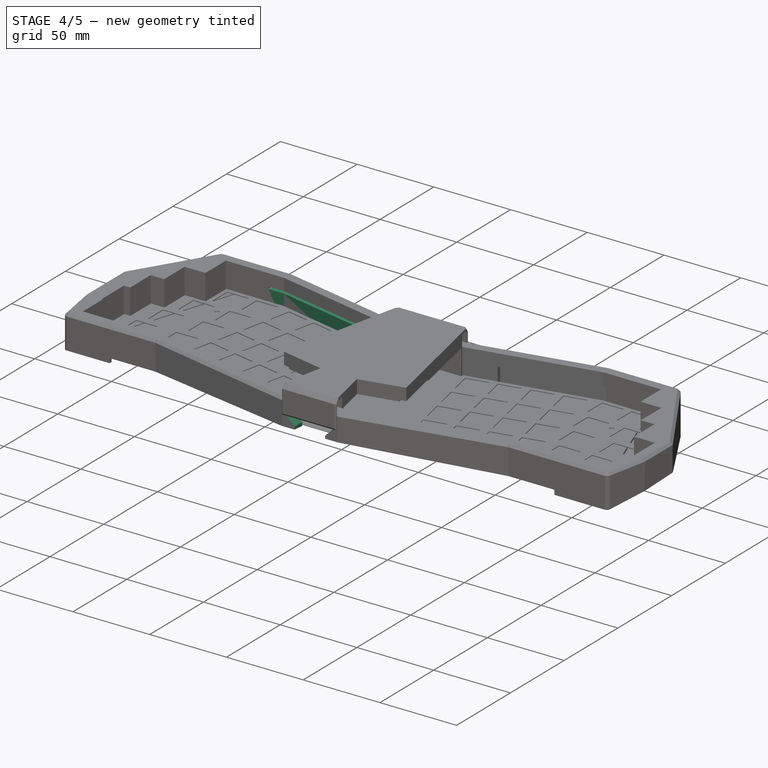
[diagram: stage 4 of 5 — iso view after this stage's code; geometry added in this stage tinted green]
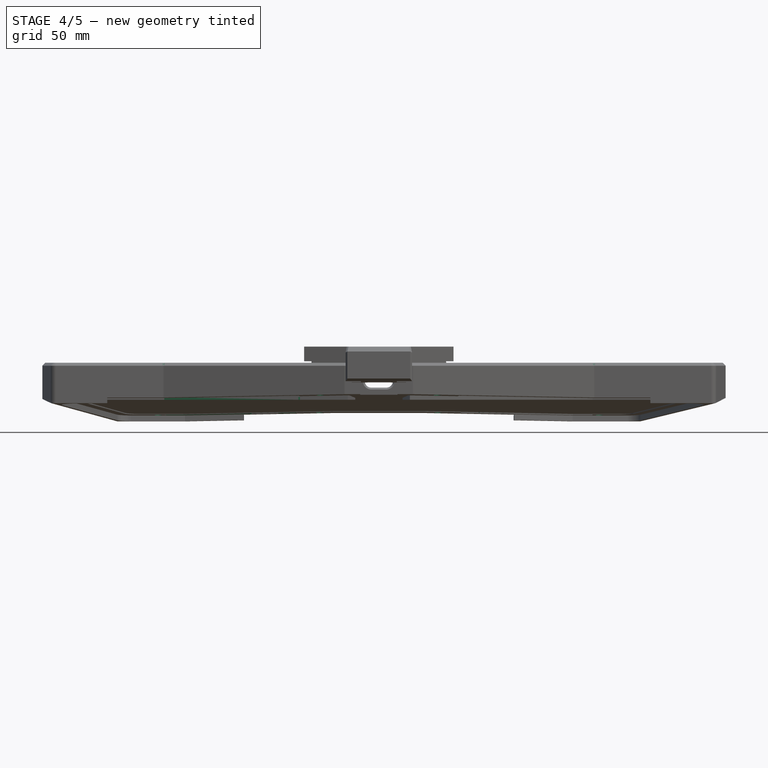
[diagram: stage 4 of 5 — front view after this stage's code; geometry added in this stage tinted green]
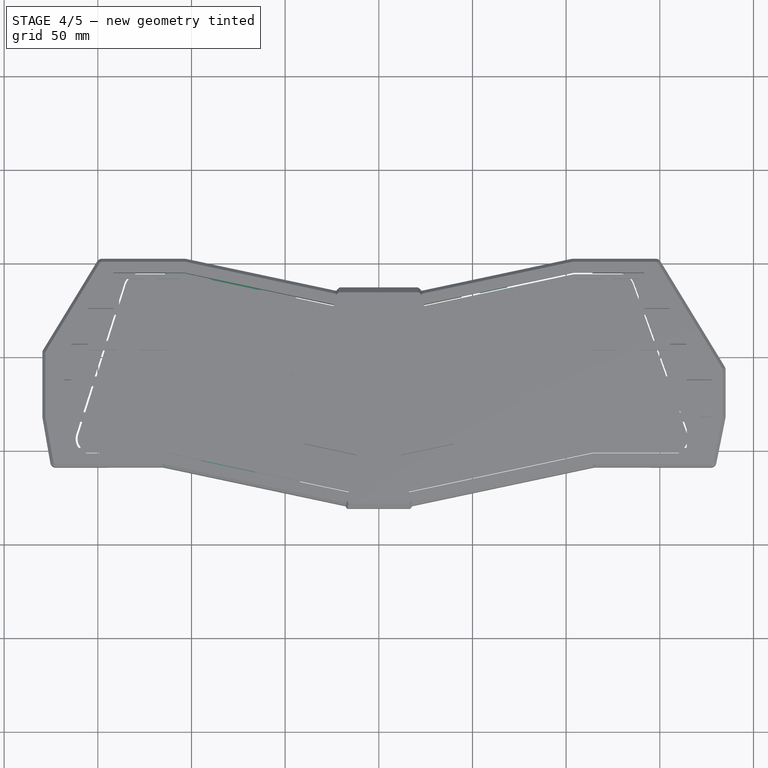
[diagram: stage 4 of 5 — top view after this stage's code; geometry added in this stage tinted green]
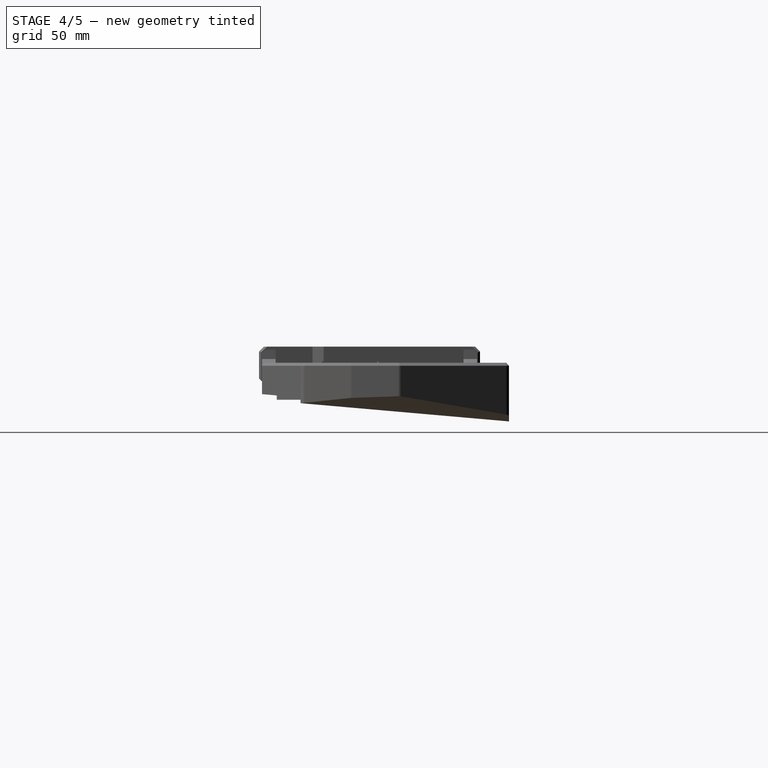
[diagram: stage 4 of 5 — right view after this stage's code; geometry added in this stage tinted green]
FEATURE [Sketcher::SketchObject] Sketch010  label="vorlage002"
  ArcFitTolerance = 0
  AttachmentSupport = -> [XY_Plane003]
  FullyConstrained = false
  MakeInternals = false
  MapMode = 5
  expr: Constraints[138] = 90 - <<config>>.ALPHA_ANGLE
  expr: Constraints[139] = <<config>>.KEY_UNIT
  expr: Constraints[144] = <<config>>.MOD_OFFSET
  expr: Constraints[145] = 2.75 * <<config>>.KEY_UNIT
  expr: Constraints[146] = 3.25 * <<config>>.KEY_UNIT
  expr: Constraints[147] = 2.75 * <<config>>.KEY_UNIT
  expr: Constraints[148] = 2.5 * <<config>>.KEY_UNIT
  expr: Constraints[149] = 2 * <<config>>.KEY_UNIT
  expr: Constraints[159] = 3 * <<config>>.KEY_UNIT
  expr: Constraints[166] = <<config>>.HEADER_WIDTH
  expr: Constraints[167] = <<config>>.HEADER_LENGTH
  expr: Constraints[194] = Spreadsheet.CASE_BEZEL / 2
  expr: Constraints[196] = Spreadsheet.PLATE_IT + Spreadsheet.PLATE_MARGIN
  expr: Constraints[213] = Spreadsheet.PLATE_IB + Spreadsheet.PLATE_MARGIN
  expr: Constraints[222] = Spreadsheet.PLATE_OB - Spreadsheet.PLATE_MARGIN
  expr: Constraints[223] = Spreadsheet.PLATE_OT - Spreadsheet.PLATE_MARGIN
  expr: Constraints[42] = 2 * <<config>>.KEY_UNIT
  expr: Constraints[43] = 2.5 * <<config>>.KEY_UNIT
  expr: Constraints[44] = <<config>>.KEY_UNIT
  expr: Constraints[49] = 2.75 * <<config>>.KEY_UNIT
  expr: Constraints[50] = 2.75 * <<config>>.KEY_UNIT
  expr: Constraints[51] = 2.5 * <<config>>.KEY_UNIT
  expr: Constraints[57] = 90 - <<config>>.ALPHA_ANGLE
  expr: Constraints[60] = 4 * <<config>>.KEY_UNIT
  expr: Constraints[64] = 5 * <<config>>.KEY_UNIT
  expr: Constraints[65] = 5.5 * <<config>>.KEY_UNIT
  expr: Constraints[73] = <<config>>.KEY_UNIT
  expr: Constraints[74] = <<config>>.MOD_OFFSET
  expr: Constraints[82] = 4 * <<config>>.KEY_UNIT
  expr: Constraints[83] = 5.5 * <<config>>.KEY_UNIT
  expr: Constraints[84] = <<config>>.KEY_UNIT
  expr: Constraints[87] = 5 * <<config>>.KEY_UNIT
  sketch-geometry (78):
    g0: LineSegment [constr] StartX=-141.18 StartY=94.2 StartZ=0 EndX=-103.08 EndY=94.2 EndZ=0
    g1: LineSegment [constr] StartX=-103.08 StartY=94.2 StartZ=0 EndX=-103.08 EndY=75.15 EndZ=0
    g2: LineSegment [constr] StartX=-103.08 StartY=75.15 StartZ=0 EndX=-141.18 EndY=75.15 EndZ=0
    g3: LineSegment StartX=-141.18 StartY=75.15 StartZ=0 EndX=-141.18 EndY=94.2 EndZ=0
    g4: LineSegment [constr] StartX=-107.129 StartY=75.15 StartZ=0 EndX=-154.754 EndY=75.15 EndZ=0
    g5: LineSegment StartX=-154.754 StartY=75.15 StartZ=0 EndX=-154.754 EndY=56.1 EndZ=0
    g6: LineSegment [constr] StartX=-154.754 StartY=56.1 StartZ=0 EndX=-107.129 EndY=56.1 EndZ=0
    g7: LineSegment [constr] StartX=-107.129 StartY=56.1 StartZ=0 EndX=-107.129 EndY=75.15 EndZ=0
    g8: LineSegment [constr] StartX=-111.179 StartY=56.1 StartZ=0 EndX=-163.566 EndY=56.1 EndZ=0
    g9: LineSegment StartX=-163.566 StartY=56.1 StartZ=0 EndX=-163.566 EndY=37.05 EndZ=0
    g10: LineSegment [constr] StartX=-163.566 StartY=37.05 StartZ=0 EndX=-111.179 EndY=37.05 EndZ=0
    g11: LineSegment [constr] StartX=-111.179 StartY=37.05 StartZ=0 EndX=-111.179 EndY=56.1 EndZ=0
    g12: LineSegment [constr] StartX=-115.228 StartY=37.05 StartZ=0 EndX=-167.615 EndY=37.05 EndZ=0
    g13: LineSegment StartX=-167.615 StartY=37.05 StartZ=0 EndX=-167.615 EndY=18 EndZ=0
    g14: LineSegment [constr] StartX=-167.615 StartY=18 StartZ=0 EndX=-115.228 EndY=18 EndZ=0
    g15: LineSegment [constr] StartX=-115.228 StartY=18 StartZ=0 EndX=-115.228 EndY=37.05 EndZ=0
    g16: LineSegment [constr] StartX=-119.277 StartY=18 StartZ=0 EndX=-166.902 EndY=18 EndZ=0
    g17: LineSegment [constr] StartX=-166.902 StartY=18 StartZ=0 EndX=-166.902 EndY=-1.05 EndZ=0
    g18: LineSegment [constr] StartX=-166.902 StartY=-1.05 StartZ=0 EndX=-119.277 EndY=-1.05 EndZ=0
    g19: LineSegment [constr] StartX=-119.277 StartY=-1.05 StartZ=0 EndX=-119.277 EndY=18 EndZ=0
    g20: LineSegment [constr] StartX=-119.277 StartY=-1.05 StartZ=0 EndX=-99.2503 EndY=93.1686 EndZ=0
    g21: LineSegment [constr] StartX=-99.2503 StartY=93.1686 StartZ=0 EndX=-24.7155 EndY=77.3257 EndZ=0
    g22: LineSegment [constr] StartX=-119.054 StartY=0 StartZ=0 EndX=-16.5685 EndY=-21.7839 EndZ=0
    g23: LineSegment StartX=-16.5685 StartY=-21.7839 StartZ=0 EndX=-12.6078 EndY=-3.15024 EndZ=0
    g24: LineSegment StartX=-12.6078 StartY=-3.15024 StartZ=0 EndX=-40.5583 EndY=2.79084 EndZ=0
    g25: LineSegment StartX=-40.5583 StartY=2.79084 StartZ=0 EndX=-24.7155 EndY=77.3257 EndZ=0
    g26: LineSegment [constr] StartX=119.054 StartY=0 StartZ=0 EndX=16.5685 EndY=-21.7839 EndZ=0
    g27: LineSegment [constr] StartX=16.5685 StartY=-21.7839 StartZ=0 EndX=12.6078 EndY=-3.15024 EndZ=0
    g28: LineSegment [constr] StartX=12.6078 StartY=-3.15024 StartZ=0 EndX=40.5583 EndY=2.79084 EndZ=0
    g29: LineSegment [constr] StartX=40.5583 StartY=2.79084 StartZ=0 EndX=24.7155 EndY=77.3257 EndZ=0
    g30: LineSegment [constr] StartX=24.7155 StartY=77.3257 StartZ=0 EndX=99.2503 EndY=93.1686 EndZ=0
    g31: LineSegment [constr] StartX=99.2503 StartY=93.1686 StartZ=0 EndX=119.277 EndY=-1.05 EndZ=0
    g32: LineSegment [constr] StartX=119.277 StartY=-1.05 StartZ=0 EndX=171.665 EndY=-1.05 EndZ=0
    g33: LineSegment [constr] StartX=171.665 StartY=-1.05 StartZ=0 EndX=171.665 EndY=18 EndZ=0
    g34: LineSegment [constr] StartX=171.665 StartY=18 StartZ=0 EndX=119.277 EndY=18 EndZ=0
    g35: LineSegment [constr] StartX=119.277 StartY=18 StartZ=0 EndX=119.277 EndY=-1.05 EndZ=0
    g36: LineSegment [constr] StartX=115.228 StartY=18 StartZ=0 EndX=177.14 EndY=18 EndZ=0
    g37: LineSegment [constr] StartX=177.14 StartY=18 StartZ=0 EndX=177.14 EndY=37.05 EndZ=0
    g38: LineSegment [constr] StartX=177.14 StartY=37.05 StartZ=0 EndX=115.228 EndY=37.05 EndZ=0
    g39: LineSegment [constr] StartX=115.228 StartY=37.05 StartZ=0 EndX=115.228 EndY=18 EndZ=0
    g40: LineSegment [constr] StartX=111.179 StartY=37.05 StartZ=0 EndX=163.566 EndY=37.05 EndZ=0
    g41: LineSegment [constr] StartX=163.566 StartY=37.05 StartZ=0 EndX=163.566 EndY=56.1 EndZ=0
    g42: LineSegment [constr] StartX=163.566 StartY=56.1 StartZ=0 EndX=111.179 EndY=56.1 EndZ=0
    g43: LineSegment [constr] StartX=111.179 StartY=56.1 StartZ=0 EndX=111.179 EndY=37.05 EndZ=0
    g44: LineSegment [constr] StartX=107.129 StartY=56.1 StartZ=0 EndX=154.754 EndY=56.1 EndZ=0
    g45: LineSegment [constr] StartX=154.754 StartY=56.1 StartZ=0 EndX=154.754 EndY=75.15 EndZ=0
    g46: LineSegment [constr] StartX=154.754 StartY=75.15 StartZ=0 EndX=107.129 EndY=75.15 EndZ=0
    g47: LineSegment [constr] StartX=107.129 StartY=75.15 StartZ=0 EndX=107.129 EndY=56.1 EndZ=0
    g48: LineSegment [constr] StartX=103.08 StartY=75.15 StartZ=0 EndX=141.18 EndY=75.15 EndZ=0
    g49: LineSegment [constr] StartX=141.18 StartY=75.15 StartZ=0 EndX=141.18 EndY=94.2 EndZ=0
    g50: LineSegment [constr] StartX=141.18 StartY=94.2 StartZ=0 EndX=103.08 EndY=94.2 EndZ=0
    g51: LineSegment [constr] StartX=103.08 StartY=94.2 StartZ=0 EndX=103.08 EndY=75.15 EndZ=0
    g52: LineSegment [constr] StartX=-28.575 StartY=56.9148 StartZ=0 EndX=28.575 EndY=56.9148 EndZ=0
    g53: LineSegment [constr] StartX=28.575 StartY=56.9148 StartZ=0 EndX=28.575 EndY=-0.235239 EndZ=0
    g54: LineSegment [constr] StartX=28.575 StartY=-0.235239 StartZ=0 EndX=-28.575 EndY=-0.235239 EndZ=0
    g55: LineSegment [constr] StartX=-28.575 StartY=-0.235239 StartZ=0 EndX=-28.575 EndY=56.9148 EndZ=0
    g56: LineSegment [constr] StartX=-37.037 StartY=2.04236 StartZ=0 EndX=-28.575 EndY=41.853 EndZ=0
    g57: LineSegment [constr] StartX=-28.575 StartY=41.853 StartZ=0 EndX=-32.0963 EndY=42.6014 EndZ=0
    g58: Circle [constr] CenterX=-28.575 CenterY=56.9148 CenterZ=0 NormalX=0 NormalY=0 NormalZ=1 AngleXU=0 Radius=0.468477
    g59: Circle [constr] CenterX=-28.575 CenterY=-0.235239 CenterZ=0 NormalX=0 NormalY=0 NormalZ=1 AngleXU=0 Radius=0.468477
    g60: LineSegment [constr] StartX=-104.103 StartY=94.2 StartZ=0 EndX=-141.18 EndY=94.2 EndZ=0
    g61: LineSegment StartX=-141.18 StartY=75.15 StartZ=0 EndX=-154.754 EndY=75.15 EndZ=0
    g62: LineSegment StartX=-154.754 StartY=56.1 StartZ=0 EndX=-163.566 EndY=56.1 EndZ=0
    g63: LineSegment StartX=-163.566 StartY=37.05 StartZ=0 EndX=-167.615 EndY=37.05 EndZ=0
    g64: LineSegment StartX=-167.615 StartY=18 StartZ=0 EndX=-166.902 EndY=17.2867 EndZ=0
    g65: LineSegment StartX=-166.902 StartY=17.2867 StartZ=0 EndX=-166.902 EndY=-1.05 EndZ=0
    g66: LineSegment StartX=-43.5446 StartY=85.4173 StartZ=0 EndX=-44.3762 EndY=81.5047 EndZ=0
    g67: LineSegment StartX=-113.98 StartY=98.2 StartZ=0 EndX=-113.98 EndY=94.2 EndZ=0
    g68: LineSegment StartX=-113.98 StartY=98.2 StartZ=0 EndX=-103.682 EndY=98.2 EndZ=0
    g69: LineSegment StartX=-44.3762 StartY=81.5047 StartZ=0 EndX=-24.7155 EndY=77.3257 EndZ=0
    g70: LineSegment StartX=-141.18 StartY=94.2 StartZ=0 EndX=-113.98 EndY=94.2 EndZ=0
    g71: LineSegment StartX=-149.177 StartY=-1.05 StartZ=0 EndX=-149.177 EndY=-5.05 EndZ=0
    g72: LineSegment StartX=-149.177 StartY=-5.05 StartZ=0 EndX=-114.534 EndY=-5.05 EndZ=0
    g73: LineSegment StartX=-114.534 StartY=-5.05 StartZ=0 EndX=-42.9298 EndY=-20.27 EndZ=0
    g74: LineSegment StartX=-42.9298 StartY=-20.27 StartZ=0 EndX=-42.0981 EndY=-16.3575 EndZ=0
    g75: LineSegment StartX=-166.902 StartY=-1.05 StartZ=0 EndX=-149.177 EndY=-1.05 EndZ=0
    g76: LineSegment StartX=-42.0981 StartY=-16.3575 StartZ=0 EndX=-16.5685 EndY=-21.7839 EndZ=0
    g77: LineSegment StartX=-43.5446 StartY=85.4173 StartZ=0 EndX=-103.682 EndY=98.2 EndZ=0
  constraints (224):
    c: Coincident(g0,g1)
    c: Coincident(g1,g2)
    c: Coincident(g2,g3)
    c: Coincident(g3,g0)
    c: Horizontal(g2)
    c: Vertical(g1)
    c: Vertical(g3)
    c: Coincident(g4,g5)
    c: Coincident(g5,g6)
    c: Coincident(g6,g7)
    c: Coincident(g7,g4)
    c: Horizontal(g4)
    c: Horizontal(g6)
    c: Vertical(g5)
    c: Vertical(g7)
    c: PointOnObject(g4,g2)
    c: Coincident(g8,g9)
    c: Coincident(g9,g10)
    c: Coincident(g10,g11)
    c: Coincident(g11,g8)
    c: Horizontal(g8)
    c: Horizontal(g10)
    c: Vertical(g9)
    c: Vertical(g11)
    c: PointOnObject(g8,g6)
    c: Coincident(g12,g13)
    c: Coincident(g13,g14)
    c: Coincident(g14,g15)
    c: Coincident(g15,g12)
    c: Horizontal(g12)
    c: Horizontal(g14)
    c: Vertical(g13)
    c: Vertical(g15)
    c: PointOnObject(g12,g10)
    c: Coincident(g16,g17)
    c: Coincident(g17,g18)
    c: Coincident(g18,g19)
    c: Coincident(g19,g16)
    c: Horizontal(g16)
    c: Horizontal(g18)
    c: Vertical(g19)
    c: PointOnObject(g16,g14)
    c: DistanceX(g0,g0) = 38.1
    c: DistanceX(g4,g4) = 47.625
    c: DistanceY(g3,g3) = 19.05
    c: Equal(g3,g5)
    c: Equal(g5,g9)
    c: Equal(g9,g13)
    c: Equal(g13,g17)
    c: DistanceX(g8,g8) = 52.3875
    c: DistanceX(g12,g12) = 52.3875
    c: DistanceX(g16,g16) = 47.625
    c: Coincident(g20,g18)
    c: PointOnObject(g14,g20)
    c: PointOnObject(g10,g20)
    c: PointOnObject(g6,g20)
    c: PointOnObject(g1,g20)
    c: Angle(g-1,g20) = 1.36136
    c: Coincident(g20,g21)
    c: Perpendicular(g21,g20)
    c: Distance(g21) = 76.2
    c: PointOnObject(g22,g-1)
    c: PointOnObject(g22,g20)
    c: Perpendicular(g22,g20)
    c: Distance(g22,g20) = 95.25
    c: Distance(g22) = 104.775
    c: Coincident(g23,g22)
    c: Coincident(g24,g23)
    c: Coincident(g25,g24)
    c: Coincident(g25,g21)
    c: Perpendicular(g21,g25)
    c: Perpendicular(g23,g22)
    c: Perpendicular(g24,g23)
    c: Distance(g23) = 19.05
    c: DistanceY(g18,g22) = 1.05
    c: Coincident(g26,g27)
    c: Coincident(g27,g28)
    c: Coincident(g28,g29)
    c: Coincident(g29,g30)
    c: Perpendicular(g27,g26)
    c: Perpendicular(g28,g27)
    c: Perpendicular(g30,g29)
    c: Distance(g30) = 76.2
    c: Distance(g26) = 104.775
    c: Distance(g27) = 19.05
    c: Coincident(g31,g30)
    c: PointOnObject(g26,g31)
    c: Distance(g26,g30) = 95.25
    c: Perpendicular(g31,g26)
    c: Perpendicular(g31,g30)
    c: Coincident(g32,g33)
    c: Coincident(g33,g34)
    c: Coincident(g34,g35)
    c: Coincident(g35,g32)
    c: Horizontal(g32)
    c: Horizontal(g34)
    c: Vertical(g33)
    c: Vertical(g35)
    c: Coincident(g32,g31)
    c: Coincident(g36,g37)
    c: Coincident(g37,g38)
    c: Coincident(g38,g39)
    c: Coincident(g39,g36)
    c: Horizontal(g36)
    c: Horizontal(g38)
    c: Vertical(g37)
    c: Vertical(g39)
    c: PointOnObject(g36,g34)
    c: Coincident(g40,g41)
    c: Coincident(g41,g42)
    c: Coincident(g42,g43)
    c: Coincident(g43,g40)
    c: Horizontal(g40)
    c: Horizontal(g42)
    c: Vertical(g41)
    c: Vertical(g43)
    c: PointOnObject(g40,g38)
    c: Coincident(g44,g45)
    c: Coincident(g45,g46)
    c: Coincident(g46,g47)
    c: Coincident(g47,g44)
    c: Horizontal(g44)
    c: Horizontal(g46)
    c: Vertical(g45)
    c: Vertical(g47)
    c: PointOnObject(g44,g42)
    c: Coincident(g48,g49)
    c: Coincident(g49,g50)
    c: Coincident(g50,g51)
    c: Coincident(g51,g48)
    c: Horizontal(g48)
    c: Vertical(g49)
    c: Vertical(g51)
    c: PointOnObject(g48,g46)
    c: PointOnObject(g48,g31)
    c: PointOnObject(g44,g31)
    c: PointOnObject(g40,g31)
    c: PointOnObject(g36,g31)
    c: Angle(g31,g-1) = 1.36136
    c: DistanceY(g49,g49) = 19.05
    c: Equal(g49,g45)
    c: Equal(g45,g41)
    c: Equal(g41,g37)
    c: Equal(g37,g33)
    c: DistanceY(g31,g26) = 1.05
    c: DistanceX(g34,g34) = 52.3875
    c: DistanceX(g38,g38) = 61.9125
    c: DistanceX(g42,g42) = 52.3875
    c: DistanceX(g46,g46) = 47.625
    c: DistanceX(g50,g50) = 38.1
    c: Coincident(g52,g53)
    c: Coincident(g53,g54)
    c: Coincident(g54,g55)
    c: Coincident(g55,g52)
    c: Horizontal(g54)
    c: Vertical(g53)
    c: Vertical(g55)
    c: Symmetric(g52,g52,g-2)
    c: Equal(g52,g53)
    c: DistanceX(g52,g52) = 57.15
    c: Symmetric(g22,g26,g-2)
    c: PointOnObject(g56,g24)
    c: Coincident(g57,g56)
    c: PointOnObject(g57,g25)
    c: Perpendicular(g57,g56)
    c: Perpendicular(g56,g24)
    c: Distance(g57) = 3.6
    c: Distance(g56) = 40.7
    c: PointOnObject(g56,g55)
    c: Coincident(g58,g52)
    c: Tangent(g58,g25)
    c: Coincident(g59,g54)
    c: Tangent(g59,g24)
    c: Equal(g59,g58)
    c: PointOnObject(g60,g0)
    c: Coincident(g60,g0)
    c: Horizontal(g0)
    c: Coincident(g61,g2)
    c: Coincident(g61,g4)
    c: Coincident(g62,g5)
    c: Coincident(g62,g8)
    c: Coincident(g63,g9)
    c: Coincident(g63,g12)
    c: Coincident(g64,g13)
    c: PointOnObject(g64,g17)
    c: Angle(g64,g14) = 0.785398
    c: Coincident(g65,g64)
    c: Coincident(g65,g17)
    c: Vertical(g17)
    c: Horizontal(g50)
    c: PointOnObject(g67,g60)
    c: Vertical(g67)
    c: Coincident(g68,g67)
    c: Horizontal(g68)
    c: Distance(g67) = 4
    c: Equal(g67,g66)
    c: Distance(g25,g66) = 20.1
    c: Coincident(g69,g66)
    c: Coincident(g69,g25)
    c: Perpendicular(g21,g66)
    c: PointOnObject(g66,g21)
    c: Coincident(g70,g3)
    c: Coincident(g70,g67)
    c: Vertical(g71)
    c: Coincident(g71,g72)
    c: Horizontal(g72)
    c: Coincident(g72,g73)
    c: Coincident(g73,g74)
    c: Parallel(g22,g73)
    c: Perpendicular(g22,g74)
    c: Coincident(g75,g65)
    c: Coincident(g75,g71)
    c: Horizontal(g75)
    c: Distance(g23,g74) = 26.1
    c: PointOnObject(g74,g22)
    c: Equal(g71,g74)
    c: Equal(g74,g67)
    c: Coincident(g76,g74)
    c: Coincident(g76,g23)
    c: Coincident(g77,g66)
    c: Coincident(g77,g68)
    c: Parallel(g21,g77)
    c: DistanceX(g71,g18) = 29.9
    c: DistanceX(g67,g0) = 10.9
FEATURE [Sketcher::SketchObject] Sketch011  label="vorlage003"
  ArcFitTolerance = 0
  AttachmentSupport = -> [XY_Plane004]
  FullyConstrained = true
  MakeInternals = false
  MapMode = 5
  expr: Constraints[138] = 90 - <<config>>.ALPHA_ANGLE
  expr: Constraints[139] = <<config>>.KEY_UNIT
  expr: Constraints[144] = <<config>>.MOD_OFFSET
  expr: Constraints[145] = 2.75 * <<config>>.KEY_UNIT
  expr: Constraints[146] = 3.25 * <<config>>.KEY_UNIT
  expr: Constraints[147] = 2.75 * <<config>>.KEY_UNIT
  expr: Constraints[148] = 2.5 * <<config>>.KEY_UNIT
  expr: Constraints[149] = 2 * <<config>>.KEY_UNIT
  expr: Constraints[159] = 3 * <<config>>.KEY_UNIT
  expr: Constraints[166] = <<config>>.HEADER_WIDTH
  expr: Constraints[167] = <<config>>.HEADER_LENGTH
  expr: Constraints[201] = Spreadsheet.PLATE_IB + Spreadsheet.PLATE_MARGIN
  expr: Constraints[204] = Spreadsheet.CASE_BEZEL / 2
  expr: Constraints[208] = Spreadsheet.PLATE_IT + Spreadsheet.PLATE_MARGIN
  expr: Constraints[217] = Spreadsheet.PLATE_OT - Spreadsheet.PLATE_MARGIN
  expr: Constraints[218] = Spreadsheet.PLATE_OB - Spreadsheet.PLATE_MARGIN
  expr: Constraints[42] = 2 * <<config>>.KEY_UNIT
  expr: Constraints[43] = 2.5 * <<config>>.KEY_UNIT
  expr: Constraints[44] = <<config>>.KEY_UNIT
  expr: Constraints[49] = 2.75 * <<config>>.KEY_UNIT
  expr: Constraints[50] = 2.75 * <<config>>.KEY_UNIT
  expr: Constraints[51] = 2.5 * <<config>>.KEY_UNIT
  expr: Constraints[57] = 90 - <<config>>.ALPHA_ANGLE
  expr: Constraints[60] = 4 * <<config>>.KEY_UNIT
  expr: Constraints[64] = 5 * <<config>>.KEY_UNIT
  expr: Constraints[65] = 5.5 * <<config>>.KEY_UNIT
  expr: Constraints[73] = <<config>>.KEY_UNIT
  expr: Constraints[74] = <<config>>.MOD_OFFSET
  expr: Constraints[82] = 4 * <<config>>.KEY_UNIT
  expr: Constraints[83] = 5.5 * <<config>>.KEY_UNIT
  expr: Constraints[84] = <<config>>.KEY_UNIT
  expr: Constraints[87] = 5 * <<config>>.KEY_UNIT
  sketch-geometry (76):
    g0: LineSegment [constr] StartX=-141.18 StartY=94.2 StartZ=0 EndX=-103.08 EndY=94.2 EndZ=0
    g1: LineSegment [constr] StartX=-103.08 StartY=94.2 StartZ=0 EndX=-103.08 EndY=75.15 EndZ=0
    g2: LineSegment [constr] StartX=-103.08 StartY=75.15 StartZ=0 EndX=-141.18 EndY=75.15 EndZ=0
    g3: LineSegment [constr] StartX=-141.18 StartY=75.15 StartZ=0 EndX=-141.18 EndY=94.2 EndZ=0
    g4: LineSegment [constr] StartX=-107.129 StartY=75.15 StartZ=0 EndX=-154.754 EndY=75.15 EndZ=0
    g5: LineSegment [constr] StartX=-154.754 StartY=75.15 StartZ=0 EndX=-154.754 EndY=56.1 EndZ=0
    g6: LineSegment [constr] StartX=-154.754 StartY=56.1 StartZ=0 EndX=-107.129 EndY=56.1 EndZ=0
    g7: LineSegment [constr] StartX=-107.129 StartY=56.1 StartZ=0 EndX=-107.129 EndY=75.15 EndZ=0
    g8: LineSegment [constr] StartX=-111.179 StartY=56.1 StartZ=0 EndX=-163.566 EndY=56.1 EndZ=0
    g9: LineSegment [constr] StartX=-163.566 StartY=56.1 StartZ=0 EndX=-163.566 EndY=37.05 EndZ=0
    g10: LineSegment [constr] StartX=-163.566 StartY=37.05 StartZ=0 EndX=-111.179 EndY=37.05 EndZ=0
    g11: LineSegment [constr] StartX=-111.179 StartY=37.05 StartZ=0 EndX=-111.179 EndY=56.1 EndZ=0
    g12: LineSegment [constr] StartX=-115.228 StartY=37.05 StartZ=0 EndX=-167.615 EndY=37.05 EndZ=0
    g13: LineSegment [constr] StartX=-167.615 StartY=37.05 StartZ=0 EndX=-167.615 EndY=18 EndZ=0
    g14: LineSegment [constr] StartX=-167.615 StartY=18 StartZ=0 EndX=-115.228 EndY=18 EndZ=0
    g15: LineSegment [constr] StartX=-115.228 StartY=18 StartZ=0 EndX=-115.228 EndY=37.05 EndZ=0
    g16: LineSegment [constr] StartX=-119.277 StartY=18 StartZ=0 EndX=-166.902 EndY=18 EndZ=0
    g17: LineSegment [constr] StartX=-166.902 StartY=18 StartZ=0 EndX=-166.902 EndY=-1.05 EndZ=0
    g18: LineSegment [constr] StartX=-166.902 StartY=-1.05 StartZ=0 EndX=-119.277 EndY=-1.05 EndZ=0
    g19: LineSegment [constr] StartX=-119.277 StartY=-1.05 StartZ=0 EndX=-119.277 EndY=18 EndZ=0
    g20: LineSegment [constr] StartX=-119.277 StartY=-1.05 StartZ=0 EndX=-99.2503 EndY=93.1686 EndZ=0
    g21: LineSegment [constr] StartX=-99.2503 StartY=93.1686 StartZ=0 EndX=-24.7155 EndY=77.3257 EndZ=0
    g22: LineSegment [constr] StartX=-119.054 StartY=0 StartZ=0 EndX=-16.5685 EndY=-21.7839 EndZ=0
    g23: LineSegment [constr] StartX=-16.5685 StartY=-21.7839 StartZ=0 EndX=-12.6078 EndY=-3.15024 EndZ=0
    g24: LineSegment [constr] StartX=-12.6078 StartY=-3.15024 StartZ=0 EndX=-40.5583 EndY=2.79084 EndZ=0
    g25: LineSegment [constr] StartX=-40.5583 StartY=2.79084 StartZ=0 EndX=-24.7155 EndY=77.3257 EndZ=0
    g26: LineSegment [constr] StartX=119.054 StartY=0 StartZ=0 EndX=16.5685 EndY=-21.7839 EndZ=0
    g27: LineSegment StartX=16.5685 StartY=-21.7839 StartZ=0 EndX=12.6078 EndY=-3.15024 EndZ=0
    g28: LineSegment StartX=12.6078 StartY=-3.15024 StartZ=0 EndX=40.5583 EndY=2.79084 EndZ=0
    g29: LineSegment StartX=40.5583 StartY=2.79084 StartZ=0 EndX=24.7155 EndY=77.3257 EndZ=0
    g30: LineSegment [constr] StartX=24.7155 StartY=77.3257 StartZ=0 EndX=99.2503 EndY=93.1686 EndZ=0
    g31: LineSegment [constr] StartX=99.2503 StartY=93.1686 StartZ=0 EndX=119.277 EndY=-1.05 EndZ=0
    g32: LineSegment [constr] StartX=119.277 StartY=-1.05 StartZ=0 EndX=171.665 EndY=-1.05 EndZ=0
    g33: LineSegment StartX=171.665 StartY=-1.05 StartZ=0 EndX=171.665 EndY=18 EndZ=0
    g34: LineSegment [constr] StartX=171.665 StartY=18 StartZ=0 EndX=119.277 EndY=18 EndZ=0
    g35: LineSegment [constr] StartX=119.277 StartY=18 StartZ=0 EndX=119.277 EndY=-1.05 EndZ=0
    g36: LineSegment [constr] StartX=115.228 StartY=18 StartZ=0 EndX=177.14 EndY=18 EndZ=0
    g37: LineSegment StartX=177.14 StartY=18 StartZ=0 EndX=177.14 EndY=37.05 EndZ=0
    g38: LineSegment [constr] StartX=177.14 StartY=37.05 StartZ=0 EndX=115.228 EndY=37.05 EndZ=0
    g39: LineSegment [constr] StartX=115.228 StartY=37.05 StartZ=0 EndX=115.228 EndY=18 EndZ=0
    g40: LineSegment [constr] StartX=111.179 StartY=37.05 StartZ=0 EndX=163.566 EndY=37.05 EndZ=0
    g41: LineSegment StartX=163.566 StartY=37.05 StartZ=0 EndX=163.566 EndY=56.1 EndZ=0
    g42: LineSegment [constr] StartX=163.566 StartY=56.1 StartZ=0 EndX=111.179 EndY=56.1 EndZ=0
    g43: LineSegment [constr] StartX=111.179 StartY=56.1 StartZ=0 EndX=111.179 EndY=37.05 EndZ=0
    g44: LineSegment [constr] StartX=107.129 StartY=56.1 StartZ=0 EndX=154.754 EndY=56.1 EndZ=0
    g45: LineSegment StartX=154.754 StartY=56.1 StartZ=0 EndX=154.754 EndY=75.15 EndZ=0
    g46: LineSegment [constr] StartX=154.754 StartY=75.15 StartZ=0 EndX=107.129 EndY=75.15 EndZ=0
    g47: LineSegment [constr] StartX=107.129 StartY=75.15 StartZ=0 EndX=107.129 EndY=56.1 EndZ=0
    g48: LineSegment [constr] StartX=103.08 StartY=75.15 StartZ=0 EndX=141.18 EndY=75.15 EndZ=0
    g49: LineSegment StartX=141.18 StartY=75.15 StartZ=0 EndX=141.18 EndY=94.2 EndZ=0
    g50: LineSegment [constr] StartX=141.18 StartY=94.2 StartZ=0 EndX=103.08 EndY=94.2 EndZ=0
    g51: LineSegment [constr] StartX=103.08 StartY=94.2 StartZ=0 EndX=103.08 EndY=75.15 EndZ=0
    g52: LineSegment [constr] StartX=-28.575 StartY=57.7047 StartZ=0 EndX=28.575 EndY=57.7047 EndZ=0
    g53: LineSegment [constr] StartX=28.575 StartY=57.7047 StartZ=0 EndX=28.575 EndY=0.554733 EndZ=0
    g54: LineSegment [constr] StartX=28.575 StartY=0.554733 StartZ=0 EndX=-28.575 EndY=0.554733 EndZ=0
    g55: LineSegment [constr] StartX=-28.575 StartY=0.554733 StartZ=0 EndX=-28.575 EndY=57.7047 EndZ=0
    g56: LineSegment [constr] StartX=-37.037 StartY=2.04236 StartZ=0 EndX=-28.575 EndY=41.853 EndZ=0
    g57: LineSegment [constr] StartX=-28.575 StartY=41.853 StartZ=0 EndX=-32.0963 EndY=42.6014 EndZ=0
    g58: Circle [constr] CenterX=-28.575 CenterY=57.7047 CenterZ=0 NormalX=0 NormalY=0 NormalZ=1 AngleXU=0 Radius=0.304232
    g59: Circle [constr] CenterX=-28.575 CenterY=0.554733 CenterZ=0 NormalX=0 NormalY=0 NormalZ=1 AngleXU=0 Radius=0.304232
    g60: LineSegment StartX=141.18 StartY=75.15 StartZ=0 EndX=154.754 EndY=75.15 EndZ=0
    g61: LineSegment StartX=154.754 StartY=56.1 StartZ=0 EndX=163.566 EndY=56.1 EndZ=0
    g62: LineSegment StartX=163.566 StartY=37.05 StartZ=0 EndX=177.14 EndY=37.05 EndZ=0
    g63: LineSegment StartX=171.665 StartY=18 StartZ=0 EndX=177.14 EndY=18 EndZ=0
    g64: LineSegment StartX=44.3762 StartY=81.5047 StartZ=0 EndX=43.5446 EndY=85.4173 EndZ=0
    g65: LineSegment StartX=43.5446 StartY=85.4173 StartZ=0 EndX=103.682 EndY=98.2 EndZ=0
    g66: LineSegment StartX=103.682 StartY=98.2 StartZ=0 EndX=113.98 EndY=98.2 EndZ=0
    g67: LineSegment StartX=113.98 StartY=98.2 StartZ=0 EndX=113.98 EndY=94.2 EndZ=0
    g68: LineSegment StartX=149.177 StartY=-1.05 StartZ=0 EndX=149.177 EndY=-5.05 EndZ=0
    g69: LineSegment StartX=149.177 StartY=-5.05 StartZ=0 EndX=114.534 EndY=-5.05 EndZ=0
    g70: LineSegment StartX=114.534 StartY=-5.05 StartZ=0 EndX=42.9298 EndY=-20.27 EndZ=0
    g71: LineSegment StartX=42.9298 StartY=-20.27 StartZ=0 EndX=42.0981 EndY=-16.3575 EndZ=0
    g72: LineSegment StartX=44.3762 StartY=81.5047 StartZ=0 EndX=24.7155 EndY=77.3257 EndZ=0
    g73: LineSegment StartX=113.98 StartY=94.2 StartZ=0 EndX=141.18 EndY=94.2 EndZ=0
    g74: LineSegment StartX=149.177 StartY=-1.05 StartZ=0 EndX=171.665 EndY=-1.05 EndZ=0
    g75: LineSegment StartX=16.5685 StartY=-21.7839 StartZ=0 EndX=42.0981 EndY=-16.3575 EndZ=0
  constraints (219):
    c: Coincident(g0,g1)
    c: Coincident(g1,g2)
    c: Coincident(g2,g3)
    c: Coincident(g3,g0)
    c: Horizontal(g2)
    c: Vertical(g1)
    c: Vertical(g3)
    c: Coincident(g4,g5)
    c: Coincident(g5,g6)
    c: Coincident(g6,g7)
    c: Coincident(g7,g4)
    c: Horizontal(g4)
    c: Horizontal(g6)
    c: Vertical(g5)
    c: Vertical(g7)
    c: PointOnObject(g4,g2)
    c: Coincident(g8,g9)
    c: Coincident(g9,g10)
    c: Coincident(g10,g11)
    c: Coincident(g11,g8)
    c: Horizontal(g8)
    c: Horizontal(g10)
    c: Vertical(g9)
    c: Vertical(g11)
    c: PointOnObject(g8,g6)
    c: Coincident(g12,g13)
    c: Coincident(g13,g14)
    c: Coincident(g14,g15)
    c: Coincident(g15,g12)
    c: Horizontal(g12)
    c: Horizontal(g14)
    c: Vertical(g13)
    c: Vertical(g15)
    c: PointOnObject(g12,g10)
    c: Coincident(g16,g17)
    c: Coincident(g17,g18)
    c: Coincident(g18,g19)
    c: Coincident(g19,g16)
    c: Horizontal(g16)
    c: Horizontal(g18)
    c: Vertical(g19)
    c: PointOnObject(g16,g14)
    c: DistanceX(g0,g0) = 38.1
    c: DistanceX(g4,g4) = 47.625
    c: DistanceY(g3,g3) = 19.05
    c: Equal(g3,g5)
    c: Equal(g5,g9)
    c: Equal(g9,g13)
    c: Equal(g13,g17)
    c: DistanceX(g8,g8) = 52.3875
    c: DistanceX(g12,g12) = 52.3875
    c: DistanceX(g16,g16) = 47.625
    c: Coincident(g20,g18)
    c: PointOnObject(g14,g20)
    c: PointOnObject(g10,g20)
    c: PointOnObject(g6,g20)
    c: PointOnObject(g1,g20)
    c: Angle(g-1,g20) = 1.36136
    c: Coincident(g20,g21)
    c: Perpendicular(g21,g20)
    c: Distance(g21) = 76.2
    c: PointOnObject(g22,g-1)
    c: PointOnObject(g22,g20)
    c: Perpendicular(g22,g20)
    c: Distance(g22,g20) = 95.25
    c: Distance(g22) = 104.775
    c: Coincident(g23,g22)
    c: Coincident(g24,g23)
    c: Coincident(g25,g24)
    c: Coincident(g25,g21)
    c: Perpendicular(g21,g25)
    c: Perpendicular(g23,g22)
    c: Perpendicular(g24,g23)
    c: Distance(g23) = 19.05
    c: DistanceY(g18,g22) = 1.05
    c: Coincident(g26,g27)
    c: Coincident(g27,g28)
    c: Coincident(g28,g29)
    c: Coincident(g29,g30)
    c: Perpendicular(g27,g26)
    c: Perpendicular(g28,g27)
    c: Perpendicular(g30,g29)
    c: Distance(g30) = 76.2
    c: Distance(g26) = 104.775
    c: Distance(g27) = 19.05
    c: Coincident(g31,g30)
    c: PointOnObject(g26,g31)
    c: Distance(g26,g30) = 95.25
    c: Perpendicular(g31,g26)
    c: Perpendicular(g31,g30)
    c: Coincident(g32,g33)
    c: Coincident(g33,g34)
    c: Coincident(g34,g35)
    c: Coincident(g35,g32)
    c: Horizontal(g32)
    c: Horizontal(g34)
    c: Vertical(g33)
    c: Vertical(g35)
    c: Coincident(g32,g31)
    c: Coincident(g36,g37)
    c: Coincident(g37,g38)
    c: Coincident(g38,g39)
    c: Coincident(g39,g36)
    c: Horizontal(g36)
    c: Horizontal(g38)
    c: Vertical(g37)
    c: Vertical(g39)
    c: PointOnObject(g36,g34)
    c: Coincident(g40,g41)
    c: Coincident(g41,g42)
    c: Coincident(g42,g43)
    c: Coincident(g43,g40)
    c: Horizontal(g40)
    c: Horizontal(g42)
    c: Vertical(g41)
    c: Vertical(g43)
    c: PointOnObject(g40,g38)
    c: Coincident(g44,g45)
    c: Coincident(g45,g46)
    c: Coincident(g46,g47)
    c: Coincident(g47,g44)
    c: Horizontal(g44)
    c: Horizontal(g46)
    c: Vertical(g45)
    c: Vertical(g47)
    c: PointOnObject(g44,g42)
    c: Coincident(g48,g49)
    c: Coincident(g49,g50)
    c: Coincident(g50,g51)
    c: Coincident(g51,g48)
    c: Horizontal(g48)
    c: Vertical(g49)
    c: Vertical(g51)
    c: PointOnObject(g48,g46)
    c: PointOnObject(g48,g31)
    c: PointOnObject(g44,g31)
    c: PointOnObject(g40,g31)
    c: PointOnObject(g36,g31)
    c: Angle(g31,g-1) = 1.36136
    c: DistanceY(g49,g49) = 19.05
    c: Equal(g49,g45)
    c: Equal(g45,g41)
    c: Equal(g41,g37)
    c: Equal(g37,g33)
    c: DistanceY(g31,g26) = 1.05
    c: DistanceX(g34,g34) = 52.3875
    c: DistanceX(g38,g38) = 61.9125
    c: DistanceX(g42,g42) = 52.3875
    c: DistanceX(g46,g46) = 47.625
    c: DistanceX(g50,g50) = 38.1
    c: Coincident(g52,g53)
    c: Coincident(g53,g54)
    c: Coincident(g54,g55)
    c: Coincident(g55,g52)
    c: Horizontal(g54)
    c: Vertical(g53)
    c: Vertical(g55)
    c: Symmetric(g52,g52,g-2)
    c: Equal(g52,g53)
    c: DistanceX(g52,g52) = 57.15
    c: Symmetric(g22,g26,g-2)
    c: PointOnObject(g56,g24)
    c: Coincident(g57,g56)
    c: PointOnObject(g57,g25)
    c: Perpendicular(g57,g56)
    c: Perpendicular(g56,g24)
    c: Distance(g57) = 3.6
    c: Distance(g56) = 40.7
    c: PointOnObject(g56,g55)
    c: Coincident(g58,g52)
    c: Tangent(g58,g25)
    c: Coincident(g59,g54)
    c: Tangent(g59,g24)
    c: Equal(g59,g58)
    c: Horizontal(g0)
    c: Vertical(g17)
    c: Horizontal(g50)
    c: Coincident(g60,g49)
    c: Coincident(g60,g45)
    c: Coincident(g61,g45)
    c: Coincident(g61,g41)
    c: Coincident(g62,g41)
    c: Coincident(g62,g37)
    c: Coincident(g63,g37)
    c: Coincident(g63,g33)
    c: PointOnObject(g64,g30)
    c: Coincident(g64,g65)
    c: Coincident(g65,g66)
    c: Horizontal(g66)
    c: Coincident(g66,g67)
    c: PointOnObject(g67,g50)
    c: Vertical(g67)
    c: PointOnObject(g68,g32)
    c: Vertical(g68)
    c: Coincident(g68,g69)
    c: Horizontal(g69)
    c: Coincident(g69,g70)
    c: Coincident(g70,g71)
    c: PointOnObject(g71,g26)
    c: Perpendicular(g26,g71)
    c: Parallel(g70,g26)
    c: Distance(g71,g27) = 26.1
    c: Perpendicular(g30,g64)
    c: Parallel(g65,g30)
    c: DistanceY(g67,g67) = 4
    c: Equal(g64,g67)
    c: Equal(g67,g68)
    c: Equal(g68,g71)
    c: Distance(g64,g29) = 20.1
    c: Coincident(g72,g64)
    c: Coincident(g72,g29)
    c: Coincident(g73,g67)
    c: Coincident(g73,g49)
    c: Coincident(g74,g68)
    c: Coincident(g74,g33)
    c: Coincident(g75,g27)
    c: Coincident(g75,g71)
    c: DistanceX(g50,g67) = 10.9
    c: DistanceX(g31,g68) = 29.9
FEATURE [PartDesign::Pad] Pad002
  Direction = (0,0,1)
  Length = 1.5
  Length2 = 10
  Profile = -> Sketch010
  ReferenceAxis = -> Sketch010 [N_Axis]
  Suppressed = false
  Type = 0
  expr: Length = Spreadsheet.PLATE_THICKNESS
FEATURE [Sketcher::SketchObject] Sketch013
  ArcFitTolerance = 0
  AttachmentSupport = -> [Pad002]
  ExternalGeometry = -> [Pad002]
  FullyConstrained = false
  MakeInternals = false
  MapMode = 5
  Placement = pos=(0,0,1.5) rot=(0,0,1;0rad)
  expr: Constraints[19] = Spreadsheet.KEY_UNIT / 2
  expr: Constraints[20] = Spreadsheet.KEY_UNIT
  expr: Constraints[21] = Spreadsheet.KEY_UNIT
  expr: Constraints[22] = Spreadsheet.KEY_UNIT
  expr: Constraints[247] = Spreadsheet.KEY_UNIT
  expr: Constraints[24] = Spreadsheet.KEY_HOLE
  expr: Constraints[253] = Spreadsheet.KEY_UNIT
  expr: Constraints[259] = Spreadsheet.KEY_UNIT
  expr: Constraints[25] = Spreadsheet.KEY_UNIT / 2
  expr: Constraints[262] = Spreadsheet.KEY_UNIT / 2
  expr: Constraints[319] = Spreadsheet.KEY_UNIT / 2
  expr: Constraints[323] = Spreadsheet.KEY_UNIT * (1 + 0.25 / 2)
  expr: Constraints[324] = Spreadsheet.KEY_UNIT * (1 + 0.5 + 0.25 / 2)
  sketch-geometry (110):
    g0: LineSegment [constr] StartX=-26.6958 StartY=68.0088 StartZ=0 EndX=-100.338 EndY=83.6619 EndZ=0
    g1: LineSegment [constr] StartX=-113.231 StartY=66.9268 StartZ=0 EndX=-30.6565 EndY=49.3751 EndZ=0
    g2: LineSegment [constr] StartX=-34.6173 StartY=30.7414 StartZ=0 EndX=-119.874 EndY=48.8633 EndZ=0
    g3: LineSegment [constr] StartX=-118.51 StartY=29.0977 StartZ=0 EndX=-38.578 EndY=12.1077 EndZ=0
    g4: LineSegment StartX=-41.4043 StartY=78.2916 StartZ=0 EndX=-44.3151 EndY=64.5975 EndZ=0
    g5: LineSegment StartX=-44.3151 StartY=64.5975 StartZ=0 EndX=-30.621 EndY=61.6868 EndZ=0
    g6: LineSegment StartX=-30.621 StartY=61.6868 StartZ=0 EndX=-27.7103 EndY=75.3808 EndZ=0
    g7: LineSegment StartX=-27.7103 StartY=75.3808 StartZ=0 EndX=-41.4043 EndY=78.2916 EndZ=0
    g8: Circle [constr] CenterX=-36.0127 CenterY=69.9892 CenterZ=0 NormalX=0 NormalY=0 NormalZ=1 AngleXU=0 Radius=9.89949
    g9: LineSegment StartX=-46.344 StartY=79.3416 StartZ=0 EndX=-60.038 EndY=82.2523 EndZ=0
    g10: LineSegment StartX=-60.038 StartY=82.2523 StartZ=0 EndX=-62.9488 EndY=68.5583 EndZ=0
    g11: LineSegment StartX=-62.9488 StartY=68.5583 StartZ=0 EndX=-49.2547 EndY=65.6475 EndZ=0
    g12: LineSegment StartX=-49.2547 StartY=65.6475 StartZ=0 EndX=-46.344 EndY=79.3416 EndZ=0
    g13: Circle [constr] CenterX=-54.6464 CenterY=73.9499 CenterZ=0 NormalX=0 NormalY=0 NormalZ=1 AngleXU=0 Radius=9.89949
    g14: LineSegment StartX=-64.9777 StartY=83.3023 StartZ=0 EndX=-78.6718 EndY=86.213 EndZ=0
    g15: LineSegment StartX=-78.6718 StartY=86.213 StartZ=0 EndX=-81.5825 EndY=72.519 EndZ=0
    g16: LineSegment StartX=-81.5825 StartY=72.519 StartZ=0 EndX=-67.8885 EndY=69.6082 EndZ=0
    g17: LineSegment StartX=-67.8885 StartY=69.6082 StartZ=0 EndX=-64.9777 EndY=83.3023 EndZ=0
    g18: Circle [constr] CenterX=-73.2801 CenterY=77.9106 CenterZ=0 NormalX=0 NormalY=0 NormalZ=1 AngleXU=0 Radius=9.89949
    g19: LineSegment StartX=-83.6114 StartY=87.263 StartZ=0 EndX=-97.3055 EndY=90.1738 EndZ=0
    g20: LineSegment StartX=-97.3055 StartY=90.1738 StartZ=0 EndX=-100.216 EndY=76.4797 EndZ=0
    g21: LineSegment StartX=-100.216 StartY=76.4797 StartZ=0 EndX=-86.5222 EndY=73.5689 EndZ=0
    g22: LineSegment StartX=-86.5222 StartY=73.5689 StartZ=0 EndX=-83.6114 EndY=87.263 EndZ=0
    g23: Circle [constr] CenterX=-91.9138 CenterY=81.8713 CenterZ=0 NormalX=0 NormalY=0 NormalZ=1 AngleXU=0 Radius=9.89949
    g24: LineSegment StartX=-31.671 StartY=56.7471 StartZ=0 EndX=-45.3651 EndY=59.6579 EndZ=0
    g25: LineSegment StartX=-45.3651 StartY=59.6579 StartZ=0 EndX=-48.2758 EndY=45.9638 EndZ=0
    g26: LineSegment StartX=-48.2758 StartY=45.9638 StartZ=0 EndX=-34.5817 EndY=43.0531 EndZ=0
    g27: LineSegment StartX=-34.5817 StartY=43.0531 StartZ=0 EndX=-31.671 EndY=56.7471 EndZ=0
    g28: Circle [constr] CenterX=-39.9734 CenterY=51.3555 CenterZ=0 NormalX=0 NormalY=0 NormalZ=1 AngleXU=0 Radius=9.89949
    g29: LineSegment StartX=-50.3047 StartY=60.7078 StartZ=0 EndX=-63.9988 EndY=63.6186 EndZ=0
    g30: LineSegment StartX=-63.9988 StartY=63.6186 StartZ=0 EndX=-66.9095 EndY=49.9245 EndZ=0
    g31: LineSegment StartX=-66.9095 StartY=49.9245 StartZ=0 EndX=-53.2155 EndY=47.0138 EndZ=0
    g32: LineSegment StartX=-53.2155 StartY=47.0138 StartZ=0 EndX=-50.3047 EndY=60.7078 EndZ=0
    g33: Circle [constr] CenterX=-58.6071 CenterY=55.3162 CenterZ=0 NormalX=0 NormalY=0 NormalZ=1 AngleXU=0 Radius=9.89949
    g34: LineSegment StartX=-68.9384 StartY=64.6686 StartZ=0 EndX=-82.6325 EndY=67.5793 EndZ=0
    g35: LineSegment StartX=-82.6325 StartY=67.5793 StartZ=0 EndX=-85.5432 EndY=53.8853 EndZ=0
    g36: LineSegment StartX=-85.5432 StartY=53.8853 StartZ=0 EndX=-71.8492 EndY=50.9745 EndZ=0
    g37: LineSegment StartX=-71.8492 StartY=50.9745 StartZ=0 EndX=-68.9384 EndY=64.6686 EndZ=0
    g38: Circle [constr] CenterX=-77.2408 CenterY=59.2769 CenterZ=0 NormalX=0 NormalY=0 NormalZ=1 AngleXU=0 Radius=9.89949
    g39: LineSegment StartX=-87.5721 StartY=68.6293 StartZ=0 EndX=-101.266 EndY=71.54 EndZ=0
    g40: LineSegment StartX=-101.266 StartY=71.54 StartZ=0 EndX=-104.177 EndY=57.846 EndZ=0
    g41: LineSegment StartX=-104.177 StartY=57.846 StartZ=0 EndX=-90.4829 EndY=54.9352 EndZ=0
    g42: LineSegment StartX=-90.4829 StartY=54.9352 StartZ=0 EndX=-87.5721 EndY=68.6293 EndZ=0
    g43: Circle [constr] CenterX=-95.8745 CenterY=63.2376 CenterZ=0 NormalX=0 NormalY=0 NormalZ=1 AngleXU=0 Radius=9.89949
    g44: LineSegment StartX=-35.6317 StartY=38.1134 StartZ=0 EndX=-49.3258 EndY=41.0242 EndZ=0
    g45: LineSegment StartX=-49.3258 StartY=41.0242 StartZ=0 EndX=-52.2365 EndY=27.3301 EndZ=0
    g46: LineSegment StartX=-52.2365 StartY=27.3301 StartZ=0 EndX=-38.5425 EndY=24.4194 EndZ=0
    g47: LineSegment StartX=-38.5425 StartY=24.4194 StartZ=0 EndX=-35.6317 EndY=38.1134 EndZ=0
    g48: Circle [constr] CenterX=-43.9341 CenterY=32.7218 CenterZ=0 NormalX=0 NormalY=0 NormalZ=1 AngleXU=0 Radius=9.89949
    g49: LineSegment StartX=-54.2654 StartY=42.0741 StartZ=0 EndX=-67.9595 EndY=44.9849 EndZ=0
    g50: LineSegment StartX=-67.9595 StartY=44.9849 StartZ=0 EndX=-70.8702 EndY=31.2908 EndZ=0
    g51: LineSegment StartX=-70.8702 StartY=31.2908 StartZ=0 EndX=-57.1762 EndY=28.3801 EndZ=0
    g52: LineSegment StartX=-57.1762 StartY=28.3801 StartZ=0 EndX=-54.2654 EndY=42.0741 EndZ=0
    g53: Circle [constr] CenterX=-62.5678 CenterY=36.6825 CenterZ=0 NormalX=0 NormalY=0 NormalZ=1 AngleXU=0 Radius=9.89949
    g54: LineSegment StartX=-72.8991 StartY=46.0349 StartZ=0 EndX=-86.5932 EndY=48.9456 EndZ=0
    g55: LineSegment StartX=-86.5932 StartY=48.9456 StartZ=0 EndX=-89.504 EndY=35.2516 EndZ=0
    g56: LineSegment StartX=-89.504 StartY=35.2516 StartZ=0 EndX=-75.8099 EndY=32.3408 EndZ=0
    g57: LineSegment StartX=-75.8099 StartY=32.3408 StartZ=0 EndX=-72.8991 EndY=46.0349 EndZ=0
    g58: Circle [constr] CenterX=-81.2015 CenterY=40.6432 CenterZ=0 NormalX=0 NormalY=0 NormalZ=1 AngleXU=0 Radius=9.89949
    g59: LineSegment StartX=-91.5328 StartY=49.9956 StartZ=0 EndX=-105.227 EndY=52.9063 EndZ=0
    g60: LineSegment StartX=-105.227 StartY=52.9063 StartZ=0 EndX=-108.138 EndY=39.2123 EndZ=0
    g61: LineSegment StartX=-108.138 StartY=39.2123 StartZ=0 EndX=-94.4436 EndY=36.3015 EndZ=0
    g62: LineSegment StartX=-94.4436 StartY=36.3015 StartZ=0 EndX=-91.5328 EndY=49.9956 EndZ=0
    g63: Circle [constr] CenterX=-99.8353 CenterY=44.6039 CenterZ=0 NormalX=0 NormalY=0 NormalZ=1 AngleXU=0 Radius=9.89949
    g64: LineSegment StartX=-39.5924 StartY=19.4797 StartZ=0 EndX=-53.2865 EndY=22.3905 EndZ=0
    g65: LineSegment StartX=-53.2865 StartY=22.3905 StartZ=0 EndX=-56.1972 EndY=8.6964 EndZ=0
    g66: LineSegment StartX=-56.1972 StartY=8.6964 StartZ=0 EndX=-42.5032 EndY=5.78564 EndZ=0
    g67: LineSegment StartX=-42.5032 StartY=5.78564 StartZ=0 EndX=-39.5924 EndY=19.4797 EndZ=0
    g68: Circle [constr] CenterX=-47.8948 CenterY=14.0881 CenterZ=0 NormalX=0 NormalY=0 NormalZ=1 AngleXU=0 Radius=9.89949
    g69: LineSegment StartX=-58.2261 StartY=23.4404 StartZ=0 EndX=-71.9202 EndY=26.3512 EndZ=0
    g70: LineSegment StartX=-71.9202 StartY=26.3512 StartZ=0 EndX=-74.831 EndY=12.6571 EndZ=0
    g71: LineSegment StartX=-74.831 StartY=12.6571 StartZ=0 EndX=-61.1369 EndY=9.74636 EndZ=0
    g72: LineSegment StartX=-61.1369 StartY=9.74636 StartZ=0 EndX=-58.2261 EndY=23.4404 EndZ=0
    g73: Circle [constr] CenterX=-66.5285 CenterY=18.0488 CenterZ=0 NormalX=0 NormalY=0 NormalZ=1 AngleXU=0 Radius=9.89949
    g74: LineSegment StartX=-76.8598 StartY=27.4011 StartZ=0 EndX=-90.5539 EndY=30.3119 EndZ=0
    g75: LineSegment StartX=-90.5539 StartY=30.3119 StartZ=0 EndX=-93.4647 EndY=16.6178 EndZ=0
    g76: LineSegment StartX=-93.4647 StartY=16.6178 StartZ=0 EndX=-79.7706 EndY=13.7071 EndZ=0
    g77: LineSegment StartX=-79.7706 StartY=13.7071 StartZ=0 EndX=-76.8598 EndY=27.4011 EndZ=0
    g78: Circle [constr] CenterX=-85.1623 CenterY=22.0095 CenterZ=0 NormalX=0 NormalY=0 NormalZ=1 AngleXU=0 Radius=9.89949
    g79: LineSegment StartX=-95.4936 StartY=31.3619 StartZ=0 EndX=-109.188 EndY=34.2726 EndZ=0
    g80: LineSegment StartX=-109.188 StartY=34.2726 StartZ=0 EndX=-112.098 EndY=20.5786 EndZ=0
    g81: LineSegment StartX=-112.098 StartY=20.5786 StartZ=0 EndX=-98.4043 EndY=17.6678 EndZ=0
    g82: LineSegment StartX=-98.4043 StartY=17.6678 StartZ=0 EndX=-95.4936 EndY=31.3619 EndZ=0
    g83: Circle [constr] CenterX=-103.796 CenterY=25.9702 CenterZ=0 NormalX=0 NormalY=0 NormalZ=1 AngleXU=0 Radius=9.89949
    g84: LineSegment [constr] StartX=-36.0127 StartY=69.9892 StartZ=0 EndX=-47.8948 EndY=14.0881 EndZ=0
    g85: LineSegment [constr] StartX=-66.5285 StartY=18.0488 StartZ=0 EndX=-54.6464 EndY=73.9499 EndZ=0
    g86: LineSegment [constr] StartX=-73.2801 StartY=77.9106 StartZ=0 EndX=-85.1623 EndY=22.0095 EndZ=0
    g87: LineSegment [constr] StartX=-103.796 StartY=25.9702 StartZ=0 EndX=-91.9138 EndY=81.8713 EndZ=0
    g88: LineSegment [constr] StartX=-14.5881 StartY=-12.4671 StartZ=0 EndX=-123.364 EndY=10.654 EndZ=0
    g89: LineSegment StartX=-15.6026 StartY=-5.09508 StartZ=0 EndX=-29.2966 EndY=-2.18432 EndZ=0
    g90: LineSegment StartX=-29.2966 StartY=-2.18432 StartZ=0 EndX=-32.2074 EndY=-15.8784 EndZ=0
    g91: LineSegment StartX=-32.2074 StartY=-15.8784 StartZ=0 EndX=-18.5133 EndY=-18.7891 EndZ=0
    g92: LineSegment StartX=-18.5133 StartY=-18.7891 StartZ=0 EndX=-15.6026 EndY=-5.09508 EndZ=0
    g93: Circle [constr] CenterX=-23.905 CenterY=-10.4867 CenterZ=0 NormalX=0 NormalY=0 NormalZ=1 AngleXU=0 Radius=9.89949
    g94: LineSegment StartX=-45.8824 StartY=1.34108 StartZ=0 EndX=-59.5764 EndY=4.25185 EndZ=0
    g95: LineSegment StartX=-59.5764 StartY=4.25185 StartZ=0 EndX=-62.4872 EndY=-9.44222 EndZ=0
    g96: LineSegment StartX=-62.4872 StartY=-9.44222 StartZ=0 EndX=-48.7931 EndY=-12.353 EndZ=0
    g97: LineSegment StartX=-48.7931 StartY=-12.353 StartZ=0 EndX=-45.8824 EndY=1.34108 EndZ=0
    g98: Circle [constr] CenterX=-54.1848 CenterY=-4.05057 CenterZ=0 NormalX=0 NormalY=0 NormalZ=1 AngleXU=0 Radius=9.89949
    g99: LineSegment StartX=-99.4543 StartY=12.7281 StartZ=0 EndX=-113.148 EndY=15.6389 EndZ=0
    g100: LineSegment StartX=-113.148 StartY=15.6389 StartZ=0 EndX=-116.059 EndY=1.94485 EndZ=0
    g101: LineSegment StartX=-116.059 StartY=1.94485 StartZ=0 EndX=-102.365 EndY=-0.965918 EndZ=0
    g102: LineSegment StartX=-102.365 StartY=-0.965918 StartZ=0 EndX=-99.4543 EndY=12.7281 EndZ=0
    g103: Circle [constr] CenterX=-107.757 CenterY=7.3365 CenterZ=0 NormalX=0 NormalY=0 NormalZ=1 AngleXU=0 Radius=9.89949
    g104: LineSegment StartX=-78.4913 StartY=8.27234 StartZ=0 EndX=-92.1854 EndY=11.1831 EndZ=0
    g105: LineSegment StartX=-92.1854 StartY=11.1831 StartZ=0 EndX=-95.0962 EndY=-2.51096 EndZ=0
    g106: LineSegment StartX=-95.0962 StartY=-2.51096 StartZ=0 EndX=-81.4021 EndY=-5.42173 EndZ=0
    g107: LineSegment StartX=-81.4021 StartY=-5.42173 StartZ=0 EndX=-78.4913 EndY=8.27234 EndZ=0
    g108: Circle [constr] CenterX=-86.7938 CenterY=2.88069 CenterZ=0 NormalX=0 NormalY=0 NormalZ=1 AngleXU=0 Radius=9.89949
    g109: LineSegment [constr] StartX=-107.757 StartY=7.3365 StartZ=0 EndX=-103.796 EndY=25.9702 EndZ=0
  constraints (325):
    c: PointOnObject(g0,g-3)
    c: PointOnObject(g1,g-3)
    c: PointOnObject(g2,g-3)
    c: PointOnObject(g3,g-3)
    c: Parallel(g0,g1)
    c: Parallel(g1,g2)
    c: Parallel(g2,g3)
    c: Coincident(g4,g5)
    c: Coincident(g5,g6)
    c: Coincident(g6,g7)
    c: Coincident(g7,g4)
    c: Equal(g4,g5)
    c: Equal(g4,g6)
    c: Equal(g4,g7)
    c: PointOnObject(g4,g8)
    c: PointOnObject(g5,g8)
    c: PointOnObject(g6,g8)
    c: PointOnObject(g7,g8)
    c: PointOnObject(g8,g0)
    c: Distance(g-3,g0) = 9.525
    c: Distance(g0,g1) = 19.05
    c: Distance(g1,g2) = 19.05
    c: Distance(g2,g3) = 19.05
    c: Parallel(g5,g0)
    c: Distance(g7) = 14
    c: Distance(g8,g0) = 9.525
    c: Coincident(g9,g10)
    c: Coincident(g10,g11)
    c: Coincident(g11,g12)
    c: Coincident(g12,g9)
    c: Equal(g9,g10)
    c: Equal(g9,g11)
    c: Equal(g9,g12)
    c: PointOnObject(g9,g13)
    c: PointOnObject(g10,g13)
    c: PointOnObject(g11,g13)
    c: PointOnObject(g12,g13)
    c: PointOnObject(g13,g0)
    c: Coincident(g14,g15)
    c: Coincident(g15,g16)
    c: Coincident(g16,g17)
    c: Coincident(g17,g14)
    c: Equal(g14,g15)
    c: Equal(g14,g16)
    c: Equal(g14,g17)
    c: PointOnObject(g14,g18)
    c: PointOnObject(g15,g18)
    c: PointOnObject(g16,g18)
    c: PointOnObject(g17,g18)
    c: PointOnObject(g18,g0)
    c: Coincident(g19,g20)
    c: Coincident(g20,g21)
    c: Coincident(g21,g22)
    c: Coincident(g22,g19)
    c: Equal(g19,g20)
    c: Equal(g19,g21)
    c: Equal(g19,g22)
    c: PointOnObject(g19,g23)
    c: PointOnObject(g20,g23)
    c: PointOnObject(g21,g23)
    c: PointOnObject(g22,g23)
    c: PointOnObject(g23,g0)
    c: Coincident(g24,g25)
    c: Coincident(g25,g26)
    c: Coincident(g26,g27)
    c: Coincident(g27,g24)
    c: Equal(g24,g25)
    c: Equal(g24,g26)
    c: Equal(g24,g27)
    c: PointOnObject(g24,g28)
    c: PointOnObject(g25,g28)
    c: PointOnObject(g26,g28)
    c: PointOnObject(g27,g28)
    c: PointOnObject(g28,g1)
    c: Coincident(g29,g30)
    c: Coincident(g30,g31)
    c: Coincident(g31,g32)
    c: Coincident(g32,g29)
    c: Equal(g29,g30)
    c: Equal(g29,g31)
    c: Equal(g29,g32)
    c: PointOnObject(g29,g33)
    c: PointOnObject(g30,g33)
    c: PointOnObject(g31,g33)
    c: PointOnObject(g32,g33)
    c: PointOnObject(g33,g1)
    c: Coincident(g34,g35)
    c: Coincident(g35,g36)
    c: Coincident(g36,g37)
    c: Coincident(g37,g34)
    c: Equal(g34,g35)
    c: Equal(g34,g36)
    c: Equal(g34,g37)
    c: PointOnObject(g34,g38)
    c: PointOnObject(g35,g38)
    c: PointOnObject(g36,g38)
    c: PointOnObject(g37,g38)
    c: PointOnObject(g38,g1)
    c: Coincident(g39,g40)
    c: Coincident(g40,g41)
    c: Coincident(g41,g42)
    c: Coincident(g42,g39)
    c: Equal(g39,g40)
    c: Equal(g39,g41)
    c: Equal(g39,g42)
    c: PointOnObject(g39,g43)
    c: PointOnObject(g40,g43)
    c: PointOnObject(g41,g43)
    c: PointOnObject(g42,g43)
    c: PointOnObject(g43,g1)
    c: Coincident(g44,g45)
    c: Coincident(g45,g46)
    c: Coincident(g46,g47)
    c: Coincident(g47,g44)
    c: Equal(g44,g45)
    c: Equal(g44,g46)
    c: Equal(g44,g47)
    c: PointOnObject(g44,g48)
    c: PointOnObject(g45,g48)
    c: PointOnObject(g46,g48)
    c: PointOnObject(g47,g48)
    c: PointOnObject(g48,g2)
    c: Coincident(g49,g50)
    c: Coincident(g50,g51)
    c: Coincident(g51,g52)
    c: Coincident(g52,g49)
    c: Equal(g49,g50)
    c: Equal(g49,g51)
    c: Equal(g49,g52)
    c: PointOnObject(g49,g53)
    c: PointOnObject(g50,g53)
    c: PointOnObject(g51,g53)
    c: PointOnObject(g52,g53)
    c: PointOnObject(g53,g2)
    c: Coincident(g54,g55)
    c: Coincident(g55,g56)
    c: Coincident(g56,g57)
    c: Coincident(g57,g54)
    c: Equal(g54,g55)
    c: Equal(g54,g56)
    c: Equal(g54,g57)
    c: PointOnObject(g54,g58)
    c: PointOnObject(g55,g58)
    c: PointOnObject(g56,g58)
    c: PointOnObject(g57,g58)
    c: PointOnObject(g58,g2)
    c: Coincident(g59,g60)
    c: Coincident(g60,g61)
    c: Coincident(g61,g62)
    c: Coincident(g62,g59)
    c: Equal(g59,g60)
    c: Equal(g59,g61)
    c: Equal(g59,g62)
    c: PointOnObject(g59,g63)
    c: PointOnObject(g60,g63)
    c: PointOnObject(g61,g63)
    c: PointOnObject(g62,g63)
    c: PointOnObject(g63,g2)
    c: Coincident(g64,g65)
    c: Coincident(g65,g66)
    c: Coincident(g66,g67)
    c: Coincident(g67,g64)
    c: Equal(g64,g65)
    c: Equal(g64,g66)
    c: Equal(g64,g67)
    c: PointOnObject(g64,g68)
    c: PointOnObject(g65,g68)
    c: PointOnObject(g66,g68)
    c: PointOnObject(g67,g68)
    c: PointOnObject(g68,g3)
    c: Coincident(g69,g70)
    c: Coincident(g70,g71)
    c: Coincident(g71,g72)
    c: Coincident(g72,g69)
    c: Equal(g69,g70)
    c: Equal(g69,g71)
    c: Equal(g69,g72)
    c: PointOnObject(g69,g73)
    c: PointOnObject(g70,g73)
    c: PointOnObject(g71,g73)
    c: PointOnObject(g72,g73)
    c: PointOnObject(g73,g3)
    c: Coincident(g74,g75)
    c: Coincident(g75,g76)
    c: Coincident(g76,g77)
    c: Coincident(g77,g74)
    c: Equal(g74,g75)
    c: Equal(g74,g76)
    c: Equal(g74,g77)
    c: PointOnObject(g74,g78)
    c: PointOnObject(g75,g78)
    c: PointOnObject(g76,g78)
    c: PointOnObject(g77,g78)
    c: PointOnObject(g78,g3)
    c: Coincident(g79,g80)
    c: Coincident(g80,g81)
    c: Coincident(g81,g82)
    c: Coincident(g82,g79)
    c: Equal(g79,g80)
    c: Equal(g79,g81)
    c: Equal(g79,g82)
    c: PointOnObject(g79,g83)
    c: PointOnObject(g80,g83)
    c: PointOnObject(g81,g83)
    c: PointOnObject(g82,g83)
    c: PointOnObject(g83,g3)
    c: Coincident(g84,g8)
    c: Coincident(g84,g68)
    c: PointOnObject(g48,g84)
    c: PointOnObject(g28,g84)
    c: Parallel(g74,g69)
    c: Parallel(g69,g64)
    c: Parallel(g64,g79)
    c: Parallel(g79,g59)
    c: Parallel(g59,g54)
    c: Parallel(g54,g49)
    c: Parallel(g49,g44)
    c: Parallel(g44,g24)
    c: Parallel(g24,g29)
    c: Parallel(g29,g34)
    c: Parallel(g34,g39)
    c: Parallel(g39,g19)
    c: Parallel(g19,g14)
    c: Parallel(g14,g9)
    c: Parallel(g9,g7)
    c: Perpendicular(g0,g84)
    c: Equal(g66,g71)
    c: Equal(g71,g76)
    c: Equal(g76,g81)
    c: Equal(g81,g61)
    c: Equal(g61,g56)
    c: Equal(g56,g51)
    c: Equal(g51,g46)
    c: Equal(g46,g26)
    c: Equal(g26,g31)
    c: Equal(g31,g36)
    c: Equal(g36,g41)
    c: Equal(g41,g21)
    c: Equal(g21,g16)
    c: Equal(g16,g11)
    c: Equal(g11,g5)
    c: Perpendicular(g-3,g7)
    c: Coincident(g85,g73)
    c: Coincident(g85,g13)
    c: PointOnObject(g33,g85)
    c: PointOnObject(g53,g85)
    c: Perpendicular(g0,g85)
    c: Distance(g13,g8) = 19.05
    c: Coincident(g86,g18)
    c: Coincident(g86,g78)
    c: PointOnObject(g58,g86)
    c: PointOnObject(g38,g86)
    c: Perpendicular(g0,g86)
    c: Distance(g18,g13) = 19.05
    c: Coincident(g87,g83)
    c: Coincident(g87,g23)
    c: PointOnObject(g43,g87)
    c: PointOnObject(g63,g87)
    c: Perpendicular(g0,g87)
    c: Distance(g23,g18) = 19.05
    c: PointOnObject(g88,g-6)
    c: Parallel(g88,g3)
    c: Distance(g88,g-6) = 9.525
    c: Coincident(g89,g90)
    c: Coincident(g90,g91)
    c: Coincident(g91,g92)
    c: Coincident(g92,g89)
    c: Equal(g89,g90)
    c: Equal(g89,g91)
    c: Equal(g89,g92)
    c: PointOnObject(g89,g93)
    c: PointOnObject(g90,g93)
    c: PointOnObject(g91,g93)
    c: PointOnObject(g92,g93)
    c: PointOnObject(g93,g88)
    c: Coincident(g94,g95)
    c: Coincident(g95,g96)
    c: Coincident(g96,g97)
    c: Coincident(g97,g94)
    c: Equal(g94,g95)
    c: Equal(g94,g96)
    c: Equal(g94,g97)
    c: PointOnObject(g94,g98)
    c: PointOnObject(g95,g98)
    c: PointOnObject(g96,g98)
    c: PointOnObject(g97,g98)
    c: PointOnObject(g98,g88)
    c: Coincident(g99,g100)
    c: Coincident(g100,g101)
    c: Coincident(g101,g102)
    c: Coincident(g102,g99)
    c: Equal(g99,g100)
    c: Equal(g99,g101)
    c: Equal(g99,g102)
    c: PointOnObject(g99,g103)
    c: PointOnObject(g100,g103)
    c: PointOnObject(g101,g103)
    c: PointOnObject(g102,g103)
    c: PointOnObject(g103,g88)
    c: Coincident(g104,g105)
    c: Coincident(g105,g106)
    c: Coincident(g106,g107)
    c: Coincident(g107,g104)
    c: Equal(g104,g105)
    c: Equal(g104,g106)
    c: Equal(g104,g107)
    c: PointOnObject(g104,g108)
    c: PointOnObject(g105,g108)
    c: PointOnObject(g106,g108)
    c: PointOnObject(g107,g108)
    c: PointOnObject(g108,g88)
    c: Parallel(g89,g94)
    c: Parallel(g94,g104)
    c: Parallel(g104,g99)
    c: Parallel(g99,g79)
    c: Equal(g89,g94)
    c: Equal(g94,g104)
    c: Equal(g104,g99)
    c: Equal(g99,g81)
    c: Distance(g93,g88) = 9.525
    c: Coincident(g109,g103)
    c: Coincident(g109,g83)
    c: Perpendicular(g3,g109)
    c: Distance(g103,g108) = 21.4313
    c: Distance(g93,g98) = 30.9563
FEATURE [PartDesign::Pocket] Pocket008  label="inner holes"
  BaseFeature = -> Pad002
  Direction = (0,0,-1)
  Length = 5
  Length2 = 5
  Profile = -> Sketch013
  ReferenceAxis = -> Sketch013 [N_Axis]
  Suppressed = false
  Type = 0
FEATURE [Sketcher::SketchObject] Sketch014
  ArcFitTolerance = 0
  AttachmentSupport = -> [Pocket008]
  ExternalGeometry = -> [Pocket008]
  FullyConstrained = false
  MakeInternals = false
  MapMode = 5
  Placement = pos=(0,0,1.5) rot=(0,0,1;0rad)
  expr: Constraints[110] = Spreadsheet.KEY_HOLE
  expr: Constraints[111] = Spreadsheet.KEY_HOLE
  expr: Constraints[130] = Spreadsheet.KEY_UNIT / 2
  expr: Constraints[131] = Spreadsheet.KEY_UNIT / 2
  expr: Constraints[132] = Spreadsheet.KEY_UNIT / 2
  expr: Constraints[133] = Spreadsheet.KEY_UNIT / 2
  expr: Constraints[134] = Spreadsheet.KEY_UNIT / 2
  expr: Constraints[135] = Spreadsheet.KEY_UNIT / 2
  expr: Constraints[136] = Spreadsheet.KEY_UNIT
  expr: Constraints[137] = Spreadsheet.KEY_UNIT * (0.5 + 0.5 / 2)
  expr: Constraints[138] = Spreadsheet.KEY_UNIT * (1 + 0.5 / 2)
  expr: Constraints[139] = Spreadsheet.KEY_UNIT * (0.5 + 0.75 / 2)
  expr: Constraints[140] = Spreadsheet.KEY_UNIT * (1 + 0.75 / 2)
  expr: Constraints[141] = Spreadsheet.KEY_UNIT * (0.5 + 0.75 / 2)
  expr: Constraints[142] = Spreadsheet.KEY_UNIT * (1 + 0.75 / 2)
  expr: Constraints[143] = Spreadsheet.KEY_UNIT * (0.5 + 0.25 / 2)
  expr: Constraints[144] = Spreadsheet.KEY_UNIT * (1 + 0.25 / 2 + 0.25 / 2)
  sketch-geometry (55):
    g0: LineSegment [constr] StartX=-166.902 StartY=8.475 StartZ=0 EndX=-121.126 EndY=8.475 EndZ=0
    g1: LineSegment [constr] StartX=-167.615 StartY=27.525 StartZ=0 EndX=-119.928 EndY=27.525 EndZ=0
    g2: LineSegment [constr] StartX=-163.566 StartY=46.575 StartZ=0 EndX=-114.483 EndY=46.575 EndZ=0
    g3: LineSegment [constr] StartX=-154.754 StartY=65.625 StartZ=0 EndX=-109.581 EndY=65.625 EndZ=0
    g4: LineSegment [constr] StartX=-141.18 StartY=84.675 StartZ=0 EndX=-105.879 EndY=84.675 EndZ=0
    g5: LineSegment StartX=-124.183 StartY=1.475 StartZ=0 EndX=-124.183 EndY=15.475 EndZ=0
    g6: LineSegment StartX=-124.183 StartY=15.475 StartZ=0 EndX=-138.183 EndY=15.475 EndZ=0
    g7: LineSegment StartX=-138.183 StartY=15.475 StartZ=0 EndX=-138.183 EndY=1.475 EndZ=0
    g8: LineSegment StartX=-138.183 StartY=1.475 StartZ=0 EndX=-124.183 EndY=1.475 EndZ=0
    g9: GeomPoint [constr] X=-131.183 Y=8.475 Z=0
    g10: LineSegment StartX=-161.996 StartY=1.475 StartZ=0 EndX=-161.996 EndY=15.475 EndZ=0
    g11: LineSegment StartX=-161.996 StartY=15.475 StartZ=0 EndX=-147.996 EndY=15.475 EndZ=0
    g12: LineSegment StartX=-147.996 StartY=15.475 StartZ=0 EndX=-147.996 EndY=1.475 EndZ=0
    g13: LineSegment StartX=-147.996 StartY=1.475 StartZ=0 EndX=-161.996 EndY=1.475 EndZ=0
    g14: GeomPoint [constr] X=-154.996 Y=8.475 Z=0
    g15: LineSegment StartX=-143.947 StartY=20.525 StartZ=0 EndX=-143.947 EndY=34.525 EndZ=0
    g16: LineSegment StartX=-143.947 StartY=34.525 StartZ=0 EndX=-157.947 EndY=34.525 EndZ=0
    g17: LineSegment StartX=-157.947 StartY=34.525 StartZ=0 EndX=-157.947 EndY=20.525 EndZ=0
    g18: LineSegment StartX=-157.947 StartY=20.525 StartZ=0 EndX=-143.947 EndY=20.525 EndZ=0
    g19: GeomPoint [constr] X=-150.947 Y=27.525 Z=0
    g20: LineSegment StartX=-117.753 StartY=20.525 StartZ=0 EndX=-117.753 EndY=34.525 EndZ=0
    g21: LineSegment StartX=-117.753 StartY=34.525 StartZ=0 EndX=-131.753 EndY=34.525 EndZ=0
    g22: LineSegment StartX=-131.753 StartY=34.525 StartZ=0 EndX=-131.753 EndY=20.525 EndZ=0
    g23: LineSegment StartX=-131.753 StartY=20.525 StartZ=0 EndX=-117.753 EndY=20.525 EndZ=0
    g24: GeomPoint [constr] X=-124.753 Y=27.525 Z=0
    g25: LineSegment StartX=-113.704 StartY=39.575 StartZ=0 EndX=-113.704 EndY=53.575 EndZ=0
    g26: LineSegment StartX=-113.704 StartY=53.575 StartZ=0 EndX=-127.704 EndY=53.575 EndZ=0
    g27: LineSegment StartX=-127.704 StartY=53.575 StartZ=0 EndX=-127.704 EndY=39.575 EndZ=0
    g28: LineSegment StartX=-127.704 StartY=39.575 StartZ=0 EndX=-113.704 EndY=39.575 EndZ=0
    g29: GeomPoint [constr] X=-120.704 Y=46.575 Z=0
    g30: LineSegment StartX=-139.897 StartY=39.575 StartZ=0 EndX=-139.897 EndY=53.575 EndZ=0
    g31: LineSegment StartX=-139.897 StartY=53.575 StartZ=0 EndX=-153.897 EndY=53.575 EndZ=0
    g32: LineSegment StartX=-153.897 StartY=53.575 StartZ=0 EndX=-153.897 EndY=39.575 EndZ=0
    g33: LineSegment StartX=-153.897 StartY=39.575 StartZ=0 EndX=-139.897 EndY=39.575 EndZ=0
    g34: GeomPoint [constr] X=-146.897 Y=46.575 Z=0
    g35: LineSegment StartX=-147.467 StartY=58.625 StartZ=0 EndX=-147.467 EndY=72.625 EndZ=0
    g36: LineSegment StartX=-147.467 StartY=72.625 StartZ=0 EndX=-133.467 EndY=72.625 EndZ=0
    g37: LineSegment StartX=-133.467 StartY=72.625 StartZ=0 EndX=-133.467 EndY=58.625 EndZ=0
    g38: LineSegment StartX=-133.467 StartY=58.625 StartZ=0 EndX=-147.467 EndY=58.625 EndZ=0
    g39: GeomPoint [constr] X=-140.467 Y=65.625 Z=0
    g40: LineSegment StartX=-123.654 StartY=58.625 StartZ=0 EndX=-123.654 EndY=72.625 EndZ=0
    g41: LineSegment StartX=-123.654 StartY=72.625 StartZ=0 EndX=-109.654 EndY=72.625 EndZ=0
    g42: LineSegment StartX=-109.654 StartY=72.625 StartZ=0 EndX=-109.654 EndY=58.625 EndZ=0
    g43: LineSegment StartX=-109.654 StartY=58.625 StartZ=0 EndX=-123.654 EndY=58.625 EndZ=0
    g44: GeomPoint [constr] X=-116.654 Y=65.625 Z=0
    g45: LineSegment StartX=-138.655 StartY=77.675 StartZ=0 EndX=-138.655 EndY=91.675 EndZ=0
    g46: LineSegment StartX=-138.655 StartY=91.675 StartZ=0 EndX=-124.655 EndY=91.675 EndZ=0
    g47: LineSegment StartX=-124.655 StartY=91.675 StartZ=0 EndX=-124.655 EndY=77.675 EndZ=0
    g48: LineSegment StartX=-124.655 StartY=77.675 StartZ=0 EndX=-138.655 EndY=77.675 EndZ=0
    g49: GeomPoint [constr] X=-131.655 Y=84.675 Z=0
    g50: LineSegment StartX=-119.605 StartY=77.675 StartZ=0 EndX=-119.605 EndY=91.675 EndZ=0
    g51: LineSegment StartX=-119.605 StartY=91.675 StartZ=0 EndX=-105.605 EndY=91.675 EndZ=0
    g52: LineSegment StartX=-105.605 StartY=91.675 StartZ=0 EndX=-105.605 EndY=77.675 EndZ=0
    g53: LineSegment StartX=-105.605 StartY=77.675 StartZ=0 EndX=-119.605 EndY=77.675 EndZ=0
    g54: GeomPoint [constr] X=-112.605 Y=84.675 Z=0
  constraints (145):
    c: PointOnObject(g0,g-3)
    c: Horizontal(g0)
    c: PointOnObject(g1,g-4)
    c: Horizontal(g1)
    c: PointOnObject(g2,g-5)
    c: Horizontal(g2)
    c: PointOnObject(g3,g-6)
    c: Horizontal(g3)
    c: PointOnObject(g4,g-7)
    c: Horizontal(g4)
    c: Coincident(g5,g6)
    c: Coincident(g6,g7)
    c: Coincident(g7,g8)
    c: Coincident(g8,g5)
    c: Horizontal(g6)
    c: Horizontal(g8)
    c: Vertical(g5)
    c: Vertical(g7)
    c: Symmetric(g6,g5,g9)
    c: PointOnObject(g9,g0)
    c: Coincident(g10,g11)
    c: Coincident(g11,g12)
    c: Coincident(g12,g13)
    c: Coincident(g13,g10)
    c: Horizontal(g11)
    c: Horizontal(g13)
    c: Vertical(g10)
    c: Vertical(g12)
    c: Symmetric(g11,g10,g14)
    c: PointOnObject(g14,g0)
    c: Coincident(g15,g16)
    c: Coincident(g16,g17)
    c: Coincident(g17,g18)
    c: Coincident(g18,g15)
    c: Horizontal(g16)
    c: Horizontal(g18)
    c: Vertical(g15)
    c: Vertical(g17)
    c: Symmetric(g16,g15,g19)
    c: PointOnObject(g19,g1)
    c: Coincident(g20,g21)
    c: Coincident(g21,g22)
    c: Coincident(g22,g23)
    c: Coincident(g23,g20)
    c: Horizontal(g21)
    c: Horizontal(g23)
    c: Vertical(g20)
    c: Vertical(g22)
    c: Symmetric(g21,g20,g24)
    c: PointOnObject(g24,g1)
    c: Coincident(g25,g26)
    c: Coincident(g26,g27)
    c: Coincident(g27,g28)
    c: Coincident(g28,g25)
    c: Horizontal(g26)
    c: Horizontal(g28)
    c: Vertical(g25)
    c: Vertical(g27)
    c: Symmetric(g26,g25,g29)
    c: PointOnObject(g29,g2)
    c: Coincident(g30,g31)
    c: Coincident(g31,g32)
    c: Coincident(g32,g33)
    c: Coincident(g33,g30)
    c: Horizontal(g31)
    c: Horizontal(g33)
    c: Vertical(g30)
    c: Vertical(g32)
    c: Symmetric(g31,g30,g34)
    c: PointOnObject(g34,g2)
    c: Coincident(g35,g36)
    c: Coincident(g36,g37)
    c: Coincident(g37,g38)
    c: Coincident(g38,g35)
    c: Horizontal(g36)
    c: Horizontal(g38)
    c: Vertical(g35)
    c: Vertical(g37)
    c: Symmetric(g36,g35,g39)
    c: PointOnObject(g39,g3)
    c: Coincident(g40,g41)
    c: Coincident(g41,g42)
    c: Coincident(g42,g43)
    c: Coincident(g43,g40)
    c: Horizontal(g41)
    c: Horizontal(g43)
    c: Vertical(g40)
    c: Vertical(g42)
    c: Symmetric(g41,g40,g44)
    c: PointOnObject(g44,g3)
    c: Coincident(g45,g46)
    c: Coincident(g46,g47)
    c: Coincident(g47,g48)
    c: Coincident(g48,g45)
    c: Horizontal(g46)
    c: Horizontal(g48)
    c: Vertical(g45)
    c: Vertical(g47)
    c: Symmetric(g46,g45,g49)
    c: PointOnObject(g49,g4)
    c: Coincident(g50,g51)
    c: Coincident(g51,g52)
    c: Coincident(g52,g53)
    c: Coincident(g53,g50)
    c: Horizontal(g51)
    c: Horizontal(g53)
    c: Vertical(g50)
    c: Vertical(g52)
    c: Symmetric(g51,g50,g54)
    c: PointOnObject(g54,g4)
    c: DistanceX(g51,g51) = 14
    c: DistanceY(g52,g52) = 14
    c: Equal(g46,g51)
    c: Equal(g51,g36)
    c: Equal(g36,g41)
    c: Equal(g41,g45)
    c: Equal(g45,g35)
    c: Equal(g35,g40)
    c: Equal(g40,g26)
    c: Equal(g26,g27)
    c: Equal(g27,g31)
    c: Equal(g31,g32)
    c: Equal(g32,g16)
    c: Equal(g16,g17)
    c: Equal(g17,g22)
    c: Equal(g22,g21)
    c: Equal(g21,g7)
    c: Equal(g7,g6)
    c: Equal(g6,g11)
    c: Equal(g11,g10)
    c: DistanceY(g-5,g2) = 9.525
    c: DistanceY(g-3,g0) = 9.525
    c: DistanceY(g-4,g1) = 9.525
    c: DistanceY(g-6,g3) = 9.525
    c: DistanceY(g-7,g4) = 9.525
    c: DistanceX(g-7,g49) = 9.525
    c: DistanceX(g49,g54) = 19.05
    c: DistanceX(g3,g39) = 14.2875
    c: DistanceX(g39,g44) = 23.8125
    c: DistanceX(g2,g34) = 16.6687
    c: DistanceX(g34,g29) = 26.1938
    c: DistanceX(g1,g19) = 16.6687
    c: DistanceX(g19,g24) = 26.1938
    c: DistanceX(g0,g14) = 11.9062
    c: DistanceX(g14,g9) = 23.8125
FEATURE [PartDesign::Pocket] Pocket009  label="outer holes"
  BaseFeature = -> Pocket008
  Direction = (0,0,-1)
  Length = 5
  Length2 = 5
  Profile = -> Sketch014
  ReferenceAxis = -> Sketch014 [N_Axis]
  Suppressed = false
  Type = 0
FEATURE [Sketcher::SketchObject] Sketch018  label="vorlage006"
  ArcFitTolerance = 0
  AttachmentOffset = pos=(0,0,-10) rot=(0,0,1;0rad)
  AttachmentSupport = -> [XY_Plane005]
  FullyConstrained = false
  MakeInternals = false
  MapMode = 5
  Placement = pos=(0,0,-10) rot=(0,0,1;0rad)
  expr: Constraints[141] = 90 - <<config>>.ALPHA_ANGLE
  expr: Constraints[142] = <<config>>.KEY_UNIT
  expr: Constraints[147] = <<config>>.MOD_OFFSET
  expr: Constraints[148] = 2.75 * <<config>>.KEY_UNIT
  expr: Constraints[149] = 3.25 * <<config>>.KEY_UNIT
  expr: Constraints[150] = 2.75 * <<config>>.KEY_UNIT
  expr: Constraints[151] = 2.5 * <<config>>.KEY_UNIT
  expr: Constraints[152] = 2 * <<config>>.KEY_UNIT
  expr: Constraints[162] = 3 * <<config>>.KEY_UNIT
  expr: Constraints[169] = <<config>>.HEADER_WIDTH
  expr: Constraints[170] = <<config>>.HEADER_LENGTH
  expr: Constraints[184] = Spreadsheet.CASE_BEZEL
  expr: Constraints[185] = Spreadsheet.CASE_BEZEL
  expr: Constraints[186] = Spreadsheet.CASE_BEZEL
  expr: Constraints[202] = Spreadsheet.PLATE_OT + Spreadsheet.PLATE_FIXER_INTERFERENCE_TOP
  expr: Constraints[206] = Spreadsheet.PLATE_IT - Spreadsheet.PLATE_FIXER_INTERFERENCE_TOP
  expr: Constraints[207] = 1.5
  expr: Constraints[213] = Spreadsheet.CASE_MARGIN
  expr: Constraints[214] = Spreadsheet.CASE_MARGIN
  expr: Constraints[215] = Spreadsheet.CASE_BEZEL / 2 + Spreadsheet.PLATE_MARGIN
  expr: Constraints[216] = Spreadsheet.CASE_BEZEL / 2 + Spreadsheet.PLATE_MARGIN
  expr: Constraints[44] = 2 * <<config>>.KEY_UNIT
  expr: Constraints[45] = 2.5 * <<config>>.KEY_UNIT
  expr: Constraints[46] = <<config>>.KEY_UNIT
  expr: Constraints[51] = 2.75 * <<config>>.KEY_UNIT
  expr: Constraints[52] = 2.75 * <<config>>.KEY_UNIT
  expr: Constraints[53] = 2.5 * <<config>>.KEY_UNIT
  expr: Constraints[59] = 90 - <<config>>.ALPHA_ANGLE
  expr: Constraints[62] = 4 * <<config>>.KEY_UNIT
  expr: Constraints[66] = 5 * <<config>>.KEY_UNIT
  expr: Constraints[67] = 5.5 * <<config>>.KEY_UNIT
  expr: Constraints[75] = <<config>>.KEY_UNIT
  expr: Constraints[76] = <<config>>.MOD_OFFSET
  expr: Constraints[84] = 4 * <<config>>.KEY_UNIT
  expr: Constraints[85] = 5.5 * <<config>>.KEY_UNIT
  expr: Constraints[86] = <<config>>.KEY_UNIT
  expr: Constraints[89] = 5 * <<config>>.KEY_UNIT
  sketch-geometry (77):
    g0: LineSegment [constr] StartX=-141.18 StartY=94.2 StartZ=0 EndX=-103.08 EndY=94.2 EndZ=0
    g1: LineSegment [constr] StartX=-103.08 StartY=94.2 StartZ=0 EndX=-103.08 EndY=75.15 EndZ=0
    g2: LineSegment [constr] StartX=-103.08 StartY=75.15 StartZ=0 EndX=-141.18 EndY=75.15 EndZ=0
    g3: LineSegment [constr] StartX=-141.18 StartY=75.15 StartZ=0 EndX=-141.18 EndY=94.2 EndZ=0
    g4: LineSegment [constr] StartX=-107.129 StartY=75.15 StartZ=0 EndX=-154.754 EndY=75.15 EndZ=0
    g5: LineSegment [constr] StartX=-154.754 StartY=75.15 StartZ=0 EndX=-154.754 EndY=56.1 EndZ=0
    g6: LineSegment [constr] StartX=-154.754 StartY=56.1 StartZ=0 EndX=-107.129 EndY=56.1 EndZ=0
    g7: LineSegment [constr] StartX=-107.129 StartY=56.1 StartZ=0 EndX=-107.129 EndY=75.15 EndZ=0
    g8: LineSegment [constr] StartX=-111.179 StartY=56.1 StartZ=0 EndX=-163.566 EndY=56.1 EndZ=0
    g9: LineSegment [constr] StartX=-163.566 StartY=56.1 StartZ=0 EndX=-163.566 EndY=37.05 EndZ=0
    g10: LineSegment [constr] StartX=-163.566 StartY=37.05 StartZ=0 EndX=-111.179 EndY=37.05 EndZ=0
    g11: LineSegment [constr] StartX=-111.179 StartY=37.05 StartZ=0 EndX=-111.179 EndY=56.1 EndZ=0
    g12: LineSegment [constr] StartX=-115.228 StartY=37.05 StartZ=0 EndX=-167.615 EndY=37.05 EndZ=0
    g13: LineSegment [constr] StartX=-167.615 StartY=37.05 StartZ=0 EndX=-167.615 EndY=18 EndZ=0
    g14: LineSegment [constr] StartX=-167.615 StartY=18 StartZ=0 EndX=-115.228 EndY=18 EndZ=0
    g15: LineSegment [constr] StartX=-115.228 StartY=18 StartZ=0 EndX=-115.228 EndY=37.05 EndZ=0
    g16: LineSegment [constr] StartX=-119.277 StartY=18 StartZ=0 EndX=-166.902 EndY=18 EndZ=0
    g17: LineSegment [constr] StartX=-166.902 StartY=18 StartZ=0 EndX=-166.902 EndY=-1.05 EndZ=0
    g18: LineSegment [constr] StartX=-166.902 StartY=-1.05 StartZ=0 EndX=-119.277 EndY=-1.05 EndZ=0
    g19: LineSegment [constr] StartX=-119.277 StartY=-1.05 StartZ=0 EndX=-119.277 EndY=18 EndZ=0
    g20: LineSegment [constr] StartX=-119.277 StartY=-1.05 StartZ=0 EndX=-99.2503 EndY=93.1686 EndZ=0
    g21: LineSegment [constr] StartX=-99.2503 StartY=93.1686 StartZ=0 EndX=-24.7155 EndY=77.3257 EndZ=0
    g22: LineSegment [constr] StartX=-119.054 StartY=0 StartZ=0 EndX=-16.5685 EndY=-21.7839 EndZ=0
    g23: LineSegment [constr] StartX=-16.5685 StartY=-21.7839 StartZ=0 EndX=-12.6078 EndY=-3.15024 EndZ=0
    g24: LineSegment [constr] StartX=-12.6078 StartY=-3.15024 StartZ=0 EndX=-40.5583 EndY=2.79084 EndZ=0
    g25: LineSegment [constr] StartX=-40.5583 StartY=2.79084 StartZ=0 EndX=-24.7155 EndY=77.3257 EndZ=0
    g26: LineSegment [constr] StartX=119.054 StartY=0 StartZ=0 EndX=16.5685 EndY=-21.7839 EndZ=0
    g27: LineSegment [constr] StartX=16.5685 StartY=-21.7839 StartZ=0 EndX=12.6078 EndY=-3.15024 EndZ=0
    g28: LineSegment [constr] StartX=12.6078 StartY=-3.15024 StartZ=0 EndX=40.5583 EndY=2.79084 EndZ=0
    g29: LineSegment [constr] StartX=40.5583 StartY=2.79084 StartZ=0 EndX=24.7155 EndY=77.3257 EndZ=0
    g30: LineSegment [constr] StartX=24.7155 StartY=77.3257 StartZ=0 EndX=99.2503 EndY=93.1686 EndZ=0
    g31: LineSegment [constr] StartX=99.2503 StartY=93.1686 StartZ=0 EndX=119.277 EndY=-1.05 EndZ=0
    g32: LineSegment [constr] StartX=119.277 StartY=-1.05 StartZ=0 EndX=171.665 EndY=-1.05 EndZ=0
    g33: LineSegment [constr] StartX=171.665 StartY=-1.05 StartZ=0 EndX=171.665 EndY=18 EndZ=0
    g34: LineSegment [constr] StartX=171.665 StartY=18 StartZ=0 EndX=119.277 EndY=18 EndZ=0
    g35: LineSegment [constr] StartX=119.277 StartY=18 StartZ=0 EndX=119.277 EndY=-1.05 EndZ=0
    g36: LineSegment [constr] StartX=115.228 StartY=18 StartZ=0 EndX=177.14 EndY=18 EndZ=0
    g37: LineSegment [constr] StartX=177.14 StartY=18 StartZ=0 EndX=177.14 EndY=37.05 EndZ=0
    g38: LineSegment [constr] StartX=177.14 StartY=37.05 StartZ=0 EndX=115.228 EndY=37.05 EndZ=0
    g39: LineSegment [constr] StartX=115.228 StartY=37.05 StartZ=0 EndX=115.228 EndY=18 EndZ=0
    g40: LineSegment [constr] StartX=111.179 StartY=37.05 StartZ=0 EndX=163.566 EndY=37.05 EndZ=0
    g41: LineSegment [constr] StartX=163.566 StartY=37.05 StartZ=0 EndX=163.566 EndY=56.1 EndZ=0
    g42: LineSegment [constr] StartX=163.566 StartY=56.1 StartZ=0 EndX=111.179 EndY=56.1 EndZ=0
    g43: LineSegment [constr] StartX=111.179 StartY=56.1 StartZ=0 EndX=111.179 EndY=37.05 EndZ=0
    g44: LineSegment [constr] StartX=107.129 StartY=56.1 StartZ=0 EndX=154.754 EndY=56.1 EndZ=0
    g45: LineSegment [constr] StartX=154.754 StartY=56.1 StartZ=0 EndX=154.754 EndY=75.15 EndZ=0
    g46: LineSegment [constr] StartX=154.754 StartY=75.15 StartZ=0 EndX=107.129 EndY=75.15 EndZ=0
    g47: LineSegment [constr] StartX=107.129 StartY=75.15 StartZ=0 EndX=107.129 EndY=56.1 EndZ=0
    g48: LineSegment [constr] StartX=103.08 StartY=75.15 StartZ=0 EndX=141.18 EndY=75.15 EndZ=0
    g49: LineSegment [constr] StartX=141.18 StartY=75.15 StartZ=0 EndX=141.18 EndY=94.2 EndZ=0
    g50: LineSegment [constr] StartX=141.18 StartY=94.2 StartZ=0 EndX=103.08 EndY=94.2 EndZ=0
    g51: LineSegment [constr] StartX=103.08 StartY=94.2 StartZ=0 EndX=103.08 EndY=75.15 EndZ=0
    g52: LineSegment [constr] StartX=-28.575 StartY=56.9148 StartZ=0 EndX=28.575 EndY=56.9148 EndZ=0
    g53: LineSegment [constr] StartX=28.575 StartY=56.9148 StartZ=0 EndX=28.575 EndY=-0.235239 EndZ=0
    g54: LineSegment [constr] StartX=28.575 StartY=-0.235239 StartZ=0 EndX=-28.575 EndY=-0.235239 EndZ=0
    g55: LineSegment [constr] StartX=-28.575 StartY=-0.235239 StartZ=0 EndX=-28.575 EndY=56.9148 EndZ=0
    g56: LineSegment [constr] StartX=-37.037 StartY=2.04236 StartZ=0 EndX=-28.575 EndY=41.853 EndZ=0
    g57: LineSegment [constr] StartX=-28.575 StartY=41.853 StartZ=0 EndX=-32.0963 EndY=42.6014 EndZ=0
    g58: Circle [constr] CenterX=-28.575 CenterY=56.9148 CenterZ=0 NormalX=0 NormalY=0 NormalZ=1 AngleXU=0 Radius=0.468477
    g59: Circle [constr] CenterX=-28.575 CenterY=-0.235239 CenterZ=0 NormalX=0 NormalY=0 NormalZ=1 AngleXU=0 Radius=0.468477
    g60: LineSegment [constr] StartX=-23.0522 StartY=85.1509 StartZ=0 EndX=-103.262 EndY=102.2 EndZ=0
    g61: LineSegment [constr] StartX=-103.262 StartY=102.2 StartZ=0 EndX=-148.587 EndY=102.2 EndZ=0
    g62: LineSegment [constr] StartX=-23.0522 StartY=85.1509 StartZ=0 EndX=23.0522 EndY=85.1509 EndZ=0
    g63: LineSegment [constr] StartX=23.0522 StartY=85.1509 StartZ=0 EndX=82.7711 EndY=97.8445 EndZ=0
    g64: LineSegment [constr] StartX=-24.7155 StartY=77.3257 StartZ=0 EndX=-23.0522 EndY=85.1509 EndZ=0
    g65: LineSegment StartX=-114.18 StartY=97.2393 StartZ=0 EndX=-114.18 EndY=94.8 EndZ=0
    g66: LineSegment StartX=-114.18 StartY=94.8 StartZ=0 EndX=-104.04 EndY=94.8 EndZ=0
    g67: LineSegment StartX=-104.04 StartY=94.8 StartZ=0 EndX=-44.0559 EndY=82.05 EndZ=0
    g68: LineSegment StartX=-44.0559 StartY=82.05 StartZ=0 EndX=-43.5487 EndY=84.4361 EndZ=0
    g69: LineSegment StartX=-43.5487 StartY=84.4361 StartZ=0 EndX=-44.3656 EndY=85.6941 EndZ=0
    g70: LineSegment StartX=-113.12 StartY=98.3 StartZ=0 EndX=-114.18 EndY=97.2393 EndZ=0
    g71: LineSegment [constr] StartX=-44.0559 StartY=82.05 StartZ=0 EndX=-44.1806 EndY=81.4631 EndZ=0
    g72: LineSegment [constr] StartX=-113.12 StartY=98.3 StartZ=0 EndX=-103.672 EndY=98.3 EndZ=0
    g73: LineSegment [constr] StartX=-103.672 StartY=98.3 StartZ=0 EndX=-44.3656 EndY=85.6941 EndZ=0
    g74: LineSegment StartX=-113.12 StartY=98.3 StartZ=0 EndX=-104.672 EndY=98.3 EndZ=0
    g75: LineSegment StartX=-104.672 StartY=98.3 StartZ=0 EndX=-102.694 EndY=98.0921 EndZ=0
    g76: LineSegment StartX=-102.694 StartY=98.0921 StartZ=0 EndX=-44.3656 EndY=85.6941 EndZ=0
  constraints (225):
    c: Coincident(g0,g1)
    c: Coincident(g1,g2)
    c: Coincident(g2,g3)
    c: Coincident(g3,g0)
    c: Horizontal(g0)
    c: Horizontal(g2)
    c: Vertical(g1)
    c: Vertical(g3)
    c: Coincident(g4,g5)
    c: Coincident(g5,g6)
    c: Coincident(g6,g7)
    c: Coincident(g7,g4)
    c: Horizontal(g4)
    c: Horizontal(g6)
    c: Vertical(g5)
    c: Vertical(g7)
    c: PointOnObject(g4,g2)
    c: Coincident(g8,g9)
    c: Coincident(g9,g10)
    c: Coincident(g10,g11)
    c: Coincident(g11,g8)
    c: Horizontal(g8)
    c: Horizontal(g10)
    c: Vertical(g9)
    c: Vertical(g11)
    c: PointOnObject(g8,g6)
    c: Coincident(g12,g13)
    c: Coincident(g13,g14)
    c: Coincident(g14,g15)
    c: Coincident(g15,g12)
    c: Horizontal(g12)
    c: Horizontal(g14)
    c: Vertical(g13)
    c: Vertical(g15)
    c: PointOnObject(g12,g10)
    c: Coincident(g16,g17)
    c: Coincident(g17,g18)
    c: Coincident(g18,g19)
    c: Coincident(g19,g16)
    c: Horizontal(g16)
    c: Horizontal(g18)
    c: Vertical(g17)
    c: Vertical(g19)
    c: PointOnObject(g16,g14)
    c: DistanceX(g0,g0) = 38.1
    c: DistanceX(g4,g4) = 47.625
    c: DistanceY(g3,g3) = 19.05
    c: Equal(g3,g5)
    c: Equal(g5,g9)
    c: Equal(g9,g13)
    c: Equal(g13,g17)
    c: DistanceX(g8,g8) = 52.3875
    c: DistanceX(g12,g12) = 52.3875
    c: DistanceX(g16,g16) = 47.625
    c: Coincident(g20,g18)
    c: PointOnObject(g14,g20)
    c: PointOnObject(g10,g20)
    c: PointOnObject(g6,g20)
    c: PointOnObject(g1,g20)
    c: Angle(g-1,g20) = 1.36136
    c: Coincident(g20,g21)
    c: Perpendicular(g21,g20)
    c: Distance(g21) = 76.2
    c: PointOnObject(g22,g-1)
    c: PointOnObject(g22,g20)
    c: Perpendicular(g22,g20)
    c: Distance(g22,g20) = 95.25
    c: Distance(g22) = 104.775
    c: Coincident(g23,g22)
    c: Coincident(g24,g23)
    c: Coincident(g25,g24)
    c: Coincident(g25,g21)
    c: Perpendicular(g21,g25)
    c: Perpendicular(g23,g22)
    c: Perpendicular(g24,g23)
    c: Distance(g23) = 19.05
    c: DistanceY(g18,g22) = 1.05
    c: Coincident(g26,g27)
    c: Coincident(g27,g28)
    c: Coincident(g28,g29)
    c: Coincident(g29,g30)
    c: Perpendicular(g27,g26)
    c: Perpendicular(g28,g27)
    c: Perpendicular(g30,g29)
    c: Distance(g30) = 76.2
    c: Distance(g26) = 104.775
    c: Distance(g27) = 19.05
    c: Coincident(g31,g30)
    c: PointOnObject(g26,g31)
    c: Distance(g26,g30) = 95.25
    c: Perpendicular(g31,g26)
    c: Perpendicular(g31,g30)
    c: Coincident(g32,g33)
    c: Coincident(g33,g34)
    c: Coincident(g34,g35)
    c: Coincident(g35,g32)
    c: Horizontal(g32)
    c: Horizontal(g34)
    c: Vertical(g33)
    c: Vertical(g35)
    c: Coincident(g32,g31)
    c: Coincident(g36,g37)
    c: Coincident(g37,g38)
    c: Coincident(g38,g39)
    c: Coincident(g39,g36)
    c: Horizontal(g36)
    c: Horizontal(g38)
    c: Vertical(g37)
    c: Vertical(g39)
    c: PointOnObject(g36,g34)
    c: Coincident(g40,g41)
    c: Coincident(g41,g42)
    c: Coincident(g42,g43)
    c: Coincident(g43,g40)
    c: Horizontal(g40)
    c: Horizontal(g42)
    c: Vertical(g41)
    c: Vertical(g43)
    c: PointOnObject(g40,g38)
    c: Coincident(g44,g45)
    c: Coincident(g45,g46)
    c: Coincident(g46,g47)
    c: Coincident(g47,g44)
    c: Horizontal(g44)
    c: Horizontal(g46)
    c: Vertical(g45)
    c: Vertical(g47)
    c: PointOnObject(g44,g42)
    c: Coincident(g48,g49)
    c: Coincident(g49,g50)
    c: Coincident(g50,g51)
    c: Coincident(g51,g48)
    c: Horizontal(g48)
    c: Horizontal(g50)
    c: Vertical(g49)
    c: Vertical(g51)
    c: PointOnObject(g48,g46)
    c: PointOnObject(g48,g31)
    c: PointOnObject(g44,g31)
    c: PointOnObject(g40,g31)
    c: PointOnObject(g36,g31)
    c: Angle(g31,g-1) = 1.36136
    c: DistanceY(g49,g49) = 19.05
    c: Equal(g49,g45)
    c: Equal(g45,g41)
    c: Equal(g41,g37)
    c: Equal(g37,g33)
    c: DistanceY(g31,g26) = 1.05
    c: DistanceX(g34,g34) = 52.3875
    c: DistanceX(g38,g38) = 61.9125
    c: DistanceX(g42,g42) = 52.3875
    c: DistanceX(g46,g46) = 47.625
    c: DistanceX(g50,g50) = 38.1
    c: Coincident(g52,g53)
    c: Coincident(g53,g54)
    c: Coincident(g54,g55)
    c: Coincident(g55,g52)
    c: Horizontal(g54)
    c: Vertical(g53)
    c: Vertical(g55)
    c: Symmetric(g52,g52,g-2)
    c: Equal(g52,g53)
    c: DistanceX(g52,g52) = 57.15
    c: Symmetric(g22,g26,g-2)
    c: PointOnObject(g56,g24)
    c: Coincident(g57,g56)
    c: PointOnObject(g57,g25)
    c: Perpendicular(g57,g56)
    c: Perpendicular(g56,g24)
    c: Distance(g57) = 3.6
    c: Distance(g56) = 40.7
    c: PointOnObject(g56,g55)
    c: Coincident(g58,g52)
    c: Tangent(g58,g25)
    c: Coincident(g59,g54)
    c: Tangent(g59,g24)
    c: Equal(g59,g58)
    c: Coincident(g61,g60)
    c: Horizontal(g61)
    c: Parallel(g60,g21)
    c: Coincident(g62,g60)
    c: Horizontal(g62)
    c: Coincident(g63,g62)
    c: Parallel(g30,g63)
    c: Distance(g29,g63) = 8
    c: Distance(g21,g60) = 8
    c: DistanceY(g0,g61) = 8
    c: Coincident(g64,g21)
    c: Coincident(g64,g60)
    c: Parallel(g25,g64)
    c: Vertical(g65)
    c: Coincident(g65,g66)
    c: Horizontal(g66)
    c: Coincident(g66,g67)
    c: Coincident(g67,g68)
    c: Coincident(g68,g69)
    c: Coincident(g70,g65)
    c: Parallel(g67,g60)
    c: Perpendicular(g67,g68)
    c: Angle(g69,g68) = 2.35619
    c: Angle(g65,g70) = 2.35619
    c: Equal(g70,g69)
    c: DistanceX(g65,g0) = 11.1
    c: Coincident(g71,g67)
    c: PointOnObject(g71,g21)
    c: Perpendicular(g71,g21)
    c: Distance(g71,g21) = 19.9
    c: Distance(g69) = 1.5
    c: Coincident(g72,g70)
    c: Horizontal(g72)
    c: Coincident(g73,g72)
    c: Coincident(g73,g69)
    c: Parallel(g67,g73)
    c: DistanceY(g0,g66) = 0.6
    c: Distance(g71) = 0.6
    c: DistanceY(g0,g72) = 4.1
    c: Distance(g69,g21) = 4.1
    c: Coincident(g70,g74)
    c: PointOnObject(g74,g72)
    c: Coincident(g74,g75)
    c: PointOnObject(g75,g73)
    c: Coincident(g75,g76)
    c: Coincident(g76,g69)
    c: Distance(g72,g75) = 1
    c: Distance(g74,g72) = 1
FEATURE [PartDesign::Pad] Pad004
  Direction = (0,0,1)
  Length = 20.5
  Length2 = 10
  Profile = -> Sketch018
  ReferenceAxis = -> Sketch018 [N_Axis]
  Suppressed = false
  Type = 0
  expr: Length = 22 - Spreadsheet.PLATE_THICKNESS - Spreadsheet.PLATE_RUBBER
FEATURE [Sketcher::SketchObject] Sketch019
  ArcFitTolerance = 0
  AttachmentSupport = -> [YZ_Plane005]
  FullyConstrained = false
  MakeInternals = false
  MapMode = 5
  Placement = pos=(0,0,0) rot=(0.57735,0.57735,0.57735;2.0944rad)
  expr: Constraints[12] = Spreadsheet.ACRYL_THICKNESS
  expr: Constraints[8] = Spreadsheet.CASE_TYPING_ANGLE
  sketch-geometry (6):
    g0: LineSegment StartX=-33.3691 StartY=3.29981 StartZ=0 EndX=125.319 EndY=-10.5836 EndZ=0
    g1: LineSegment StartX=125.319 StartY=-10.5836 StartZ=0 EndX=125.319 EndY=-34.9713 EndZ=0
    g2: LineSegment StartX=125.319 StartY=-34.9713 StartZ=0 EndX=-49.0996 EndY=-34.9713 EndZ=0
    g3: LineSegment StartX=-49.0996 StartY=-34.9713 StartZ=0 EndX=-49.0996 EndY=3.29981 EndZ=0
    g4: LineSegment StartX=-49.0996 StartY=3.29981 StartZ=0 EndX=-33.3691 EndY=3.29981 EndZ=0
    g5: LineSegment [constr] StartX=-67.7903 StartY=3.29981 StartZ=0 EndX=125.319 EndY=-13.5951 EndZ=0
  constraints (14):
    c: Coincident(g0,g1)
    c: Vertical(g1)
    c: Coincident(g1,g2)
    c: Horizontal(g2)
    c: Coincident(g2,g3)
    c: Vertical(g3)
    c: Coincident(g3,g4)
    c: Coincident(g4,g0)
    c: Angle(g0,g-1) = 0.0872665
    c: PointOnObject(g5,g4)
    c: PointOnObject(g5,g1)
    c: Parallel(g5,g0)
    c: Distance(g0,g5) = 3
    c: Horizontal(g4)
FEATURE [PartDesign::Pocket] Pocket013
  BaseFeature = -> Pad004
  Direction = (-1,0,0)
  Length = 500
  Length2 = 5
  Profile = -> Sketch019
  ReferenceAxis = -> Sketch019 [N_Axis]
  Suppressed = false
  Type = 0
FEATURE [PartDesign::Chamfer] Chamfer  label="case chamfer"
  Angle = 45
  Base = -> Fillet004 [Edge9]
  BaseFeature = -> Fillet004
  ChamferType = 0
  FlipDirection = false
  Size = 1.6
  Size2 = 1
  SupportTransform = false
  Suppressed = false
  UseAllEdges = false
  expr: Size = Spreadsheet.CASE_CHAMFER
FEATURE [Sketcher::SketchObject] Sketch032
  ArcFitTolerance = 0
  AttachmentSupport = -> [XY_Plane002]
  FullyConstrained = false
  MakeInternals = false
  MapMode = 5
  sketch-geometry (8):
    g0: LineSegment StartX=-10 StartY=-38.3384 StartZ=0 EndX=10 EndY=-38.3384 EndZ=0
    g1: LineSegment StartX=10 StartY=-38.3384 StartZ=0 EndX=10 EndY=-15.0455 EndZ=0
    g2: LineSegment StartX=10 StartY=-15.0455 StartZ=0 EndX=10 EndY=62.3951 EndZ=0
    g3: LineSegment StartX=10 StartY=62.3951 StartZ=0 EndX=10 EndY=94.439 EndZ=0
    g4: LineSegment StartX=10 StartY=94.439 StartZ=0 EndX=-10 EndY=94.439 EndZ=0
    g5: LineSegment StartX=-10 StartY=94.439 StartZ=0 EndX=-10 EndY=62.3951 EndZ=0
    g6: LineSegment StartX=-10 StartY=62.3951 StartZ=0 EndX=-10 EndY=-15.0455 EndZ=0
    g7: LineSegment StartX=-10 StartY=-15.0455 StartZ=0 EndX=-10 EndY=-38.3384 EndZ=0
  constraints (18):
    c: Coincident(g0,g1)
    c: Vertical(g1)
    c: Coincident(g1,g2)
    c: Coincident(g2,g3)
    c: Vertical(g3)
    c: Coincident(g3,g4)
    c: Coincident(g4,g5)
    c: Vertical(g5)
    c: Coincident(g5,g6)
    c: Coincident(g6,g7)
    c: Coincident(g7,g0)
    c: Vertical(g7)
    c: Symmetric(g0,g0,g-2)
    c: Symmetric(g3,g4,g-2)
    c: Horizontal(g1,g6)
    c: Horizontal(g2,g5)
    c: DistanceX(g-2,g3) = 10
    c: DistanceX(g-2,g0) = 10
FEATURE [PartDesign::Pocket] Pocket019  label="split"
  BaseFeature = -> Chamfer
  Direction = (0,0,-1)
  Length = 200
  Length2 = 5
  Profile = -> Sketch032
  ReferenceAxis = -> Sketch032 [N_Axis]
  Reversed = true
  Suppressed = false
  Type = 0
FEATURE [Sketcher::SketchObject] Sketch038
  ArcFitTolerance = 0
  AttachmentSupport = -> [Pocket019]
  ExternalGeometry = -> [Pocket019]
  FullyConstrained = true
  MakeInternals = false
  MapMode = 5
  Placement = pos=(0,0.0365526,0.417799) rot=(1,0,0;3.05433rad)
  expr: Constraints[10] = Spreadsheet.THREAD_HOLE / 2 + Spreadsheet.THREAD_MARGIN
  expr: Constraints[11] = Spreadsheet.THREAD_HOLE / 2 + Spreadsheet.THREAD_MARGIN
  expr: Constraints[12] = Spreadsheet.THREAD_HOLE / 2 + Spreadsheet.THREAD_MARGIN - 0.5
  expr: Constraints[13] = Spreadsheet.THREAD_HOLE / 2 + Spreadsheet.THREAD_MARGIN
  expr: Constraints[14] = Spreadsheet.THREAD_HOLE / 2 + Spreadsheet.THREAD_MARGIN
  expr: Constraints[15] = Spreadsheet.THREAD_HOLE / 2 + Spreadsheet.THREAD_MARGIN - 0.5
  expr: Constraints[28] = Spreadsheet.THREAD_HOLE / 2 + Spreadsheet.THREAD_MARGIN
  expr: Constraints[29] = Spreadsheet.THREAD_HOLE / 2 + Spreadsheet.THREAD_MARGIN
  expr: Constraints[7] = Spreadsheet.THREAD_HOLE
  expr: Constraints[8] = Spreadsheet.THREAD_HOLE / 2 + Spreadsheet.THREAD_MARGIN
  expr: Constraints[9] = Spreadsheet.THREAD_HOLE / 2 + Spreadsheet.THREAD_MARGIN
  sketch-geometry (10):
    g0: Circle CenterX=-152.877 CenterY=4.79299 CenterZ=0 NormalX=0 NormalY=0 NormalZ=1 AngleXU=0 Radius=2
    g1: Circle CenterX=-117.68 CenterY=-98.7254 CenterZ=0 NormalX=0 NormalY=0 NormalZ=1 AngleXU=0 Radius=2
    g2: Circle CenterX=117.68 CenterY=-98.7254 CenterZ=0 NormalX=0 NormalY=0 NormalZ=1 AngleXU=0 Radius=2
    g3: Circle CenterX=152.877 CenterY=4.79299 CenterZ=0 NormalX=0 NormalY=0 NormalZ=1 AngleXU=0 Radius=2
    g4: Circle CenterX=31.1363 CenterY=23.0923 CenterZ=0 NormalX=0 NormalY=0 NormalZ=1 AngleXU=0 Radius=2
    g5: Circle CenterX=-31.1363 CenterY=23.0923 CenterZ=0 NormalX=0 NormalY=0 NormalZ=1 AngleXU=0 Radius=2
    g6: Circle CenterX=-31.6634 CenterY=-83.3636 CenterZ=0 NormalX=0 NormalY=0 NormalZ=1 AngleXU=0 Radius=2
    g7: Circle CenterX=31.6634 CenterY=-83.3636 CenterZ=0 NormalX=0 NormalY=0 NormalZ=1 AngleXU=0 Radius=2
    g8: LineSegment [constr] StartX=-30.385 StartY=19.5716 StartZ=0 EndX=-31.9349 EndY=26.8351 EndZ=0
    g9: LineSegment [constr] StartX=-32.4146 StartY=-79.8429 StartZ=0 EndX=-30.8648 EndY=-87.1064 EndZ=0
  constraints (30):
    c: Equal(g0,g1)
    c: Equal(g1,g6)
    c: Equal(g6,g7)
    c: Equal(g7,g2)
    c: Equal(g2,g3)
    c: Equal(g3,g4)
    c: Equal(g4,g5)
    c: Diameter(g0) = 4
    c: DistanceX(g0,g-4) = 3.6
    c: DistanceX(g1,g-15) = 3.6
    c: DistanceX(g-13,g2) = 3.6
    c: DistanceX(g-11,g3) = 3.6
    c: DistanceY(g-11,g3) = 3.1
    c: DistanceY(g2,g-13) = 3.6
    c: DistanceY(g1,g-15) = 3.6
    c: DistanceY(g-4,g0) = 3.1
    c: Symmetric(g4,g5,g-2)
    c: Symmetric(g7,g6,g-2)
    c: PointOnObject(g8,g-7)
    c: PointOnObject(g8,g-5)
    c: Perpendicular(g-5,g8)
    c: PointOnObject(g5,g8)
    c: Distance(g-7,g8) = 14
    c: PointOnObject(g9,g-16)
    c: PointOnObject(g9,g-17)
    c: Perpendicular(g-17,g9)
    c: PointOnObject(g6,g9)
    c: Distance(g-16,g9) = 8
    c: Distance(g5,g8) = 3.6
    c: Distance(g6,g9) = 3.6
FEATURE [PartDesign::Pocket] Pocket025  label="bottom plate threads"
  BaseFeature = -> Pocket019
  Direction = (0,0.0871557,0.996195)
  Length = 6.7
  Length2 = 5
  Profile = -> Sketch038
  ReferenceAxis = -> Sketch038 [N_Axis]
  Suppressed = false
  Type = 0
  expr: Length = Spreadsheet.THREAD_DEPTH
FEATURE [PartDesign::Body] Body004  label="plate_right"
  AllowCompound = false
  Group = -> [Sketch011,Pad003,Sketch015,Pocket010,Sketch016,Pocket011,Sketch043,Pocket028]
  Origin = -> Origin004
  Placement = pos=(0,0,10.5) rot=(0,0,1;0rad)
  Tip = -> Pocket028
  expr: .Placement.Base.z = 5.4 + 1.6 + 3.5
FEATURE [Sketcher::SketchObject] Sketch044  label="vorlage011"
  ArcFitTolerance = 0
  AttachmentSupport = -> [XY_Plane003]
  FullyConstrained = true
  MakeInternals = false
  MapMode = 5
  expr: Constraints[141] = 90 - <<config>>.ALPHA_ANGLE
  expr: Constraints[142] = <<config>>.KEY_UNIT
  expr: Constraints[147] = <<config>>.MOD_OFFSET
  expr: Constraints[148] = 2.75 * <<config>>.KEY_UNIT
  expr: Constraints[149] = 3.25 * <<config>>.KEY_UNIT
  expr: Constraints[150] = 2.75 * <<config>>.KEY_UNIT
  expr: Constraints[151] = 2.5 * <<config>>.KEY_UNIT
  expr: Constraints[152] = 2 * <<config>>.KEY_UNIT
  expr: Constraints[162] = 3 * <<config>>.KEY_UNIT
  expr: Constraints[169] = <<config>>.HEADER_WIDTH
  expr: Constraints[170] = <<config>>.HEADER_LENGTH
  expr: Constraints[183] = Spreadsheet.KEY_UNIT * (1 + (0.25 / 2 + 0.5) / 2)
  expr: Constraints[184] = Spreadsheet.KEY_UNIT * (1 + 0.5 / 2 / 2)
  expr: Constraints[188] = Spreadsheet.KEY_UNIT / 2 + 2
  expr: Constraints[189] = Spreadsheet.KEY_UNIT / 2 + 2
  expr: Constraints[44] = 2 * <<config>>.KEY_UNIT
  expr: Constraints[45] = 2.5 * <<config>>.KEY_UNIT
  expr: Constraints[46] = <<config>>.KEY_UNIT
  expr: Constraints[51] = 2.75 * <<config>>.KEY_UNIT
  expr: Constraints[52] = 2.75 * <<config>>.KEY_UNIT
  expr: Constraints[53] = 2.5 * <<config>>.KEY_UNIT
  expr: Constraints[59] = 90 - <<config>>.ALPHA_ANGLE
  expr: Constraints[62] = 4 * <<config>>.KEY_UNIT
  expr: Constraints[66] = 5 * <<config>>.KEY_UNIT
  expr: Constraints[67] = 5.5 * <<config>>.KEY_UNIT
  expr: Constraints[75] = <<config>>.KEY_UNIT
  expr: Constraints[76] = <<config>>.MOD_OFFSET
  expr: Constraints[84] = 4 * <<config>>.KEY_UNIT
  expr: Constraints[85] = 5.5 * <<config>>.KEY_UNIT
  expr: Constraints[86] = <<config>>.KEY_UNIT
  expr: Constraints[89] = 5 * <<config>>.KEY_UNIT
  sketch-geometry (64):
    g0: LineSegment [constr] StartX=-141.18 StartY=94.2 StartZ=0 EndX=-103.08 EndY=94.2 EndZ=0
    g1: LineSegment [constr] StartX=-103.08 StartY=94.2 StartZ=0 EndX=-103.08 EndY=75.15 EndZ=0
    g2: LineSegment [constr] StartX=-103.08 StartY=75.15 StartZ=0 EndX=-141.18 EndY=75.15 EndZ=0
    g3: LineSegment [constr] StartX=-141.18 StartY=75.15 StartZ=0 EndX=-141.18 EndY=94.2 EndZ=0
    g4: LineSegment [constr] StartX=-107.129 StartY=75.15 StartZ=0 EndX=-154.754 EndY=75.15 EndZ=0
    g5: LineSegment [constr] StartX=-154.754 StartY=75.15 StartZ=0 EndX=-154.754 EndY=56.1 EndZ=0
    g6: LineSegment [constr] StartX=-154.754 StartY=56.1 StartZ=0 EndX=-107.129 EndY=56.1 EndZ=0
    g7: LineSegment [constr] StartX=-107.129 StartY=56.1 StartZ=0 EndX=-107.129 EndY=75.15 EndZ=0
    g8: LineSegment [constr] StartX=-111.179 StartY=56.1 StartZ=0 EndX=-163.566 EndY=56.1 EndZ=0
    g9: LineSegment [constr] StartX=-163.566 StartY=56.1 StartZ=0 EndX=-163.566 EndY=37.05 EndZ=0
    g10: LineSegment [constr] StartX=-163.566 StartY=37.05 StartZ=0 EndX=-111.179 EndY=37.05 EndZ=0
    g11: LineSegment [constr] StartX=-111.179 StartY=37.05 StartZ=0 EndX=-111.179 EndY=56.1 EndZ=0
    g12: LineSegment [constr] StartX=-115.228 StartY=37.05 StartZ=0 EndX=-167.615 EndY=37.05 EndZ=0
    g13: LineSegment [constr] StartX=-167.615 StartY=37.05 StartZ=0 EndX=-167.615 EndY=18 EndZ=0
    g14: LineSegment [constr] StartX=-167.615 StartY=18 StartZ=0 EndX=-115.228 EndY=18 EndZ=0
    g15: LineSegment [constr] StartX=-115.228 StartY=18 StartZ=0 EndX=-115.228 EndY=37.05 EndZ=0
    g16: LineSegment [constr] StartX=-119.277 StartY=18 StartZ=0 EndX=-166.902 EndY=18 EndZ=0
    g17: LineSegment [constr] StartX=-166.902 StartY=18 StartZ=0 EndX=-166.902 EndY=-1.05 EndZ=0
    g18: LineSegment [constr] StartX=-166.902 StartY=-1.05 StartZ=0 EndX=-119.277 EndY=-1.05 EndZ=0
    g19: LineSegment [constr] StartX=-119.277 StartY=-1.05 StartZ=0 EndX=-119.277 EndY=18 EndZ=0
    g20: LineSegment [constr] StartX=-119.277 StartY=-1.05 StartZ=0 EndX=-99.2503 EndY=93.1686 EndZ=0
    g21: LineSegment [constr] StartX=-99.2503 StartY=93.1686 StartZ=0 EndX=-24.7155 EndY=77.3257 EndZ=0
    g22: LineSegment [constr] StartX=-119.054 StartY=0 StartZ=0 EndX=-16.5685 EndY=-21.7839 EndZ=0
    g23: LineSegment [constr] StartX=-16.5685 StartY=-21.7839 StartZ=0 EndX=-12.6078 EndY=-3.15024 EndZ=0
    g24: LineSegment [constr] StartX=-12.6078 StartY=-3.15024 StartZ=0 EndX=-40.5583 EndY=2.79084 EndZ=0
    g25: LineSegment [constr] StartX=-40.5583 StartY=2.79084 StartZ=0 EndX=-24.7155 EndY=77.3257 EndZ=0
    g26: LineSegment [constr] StartX=119.054 StartY=0 StartZ=0 EndX=16.5685 EndY=-21.7839 EndZ=0
    g27: LineSegment [constr] StartX=16.5685 StartY=-21.7839 StartZ=0 EndX=12.6078 EndY=-3.15024 EndZ=0
    g28: LineSegment [constr] StartX=12.6078 StartY=-3.15024 StartZ=0 EndX=40.5583 EndY=2.79084 EndZ=0
    g29: LineSegment [constr] StartX=40.5583 StartY=2.79084 StartZ=0 EndX=24.7155 EndY=77.3257 EndZ=0
    g30: LineSegment [constr] StartX=24.7155 StartY=77.3257 StartZ=0 EndX=99.2503 EndY=93.1686 EndZ=0
    g31: LineSegment [constr] StartX=99.2503 StartY=93.1686 StartZ=0 EndX=119.277 EndY=-1.05 EndZ=0
    g32: LineSegment [constr] StartX=119.277 StartY=-1.05 StartZ=0 EndX=171.665 EndY=-1.05 EndZ=0
    g33: LineSegment [constr] StartX=171.665 StartY=-1.05 StartZ=0 EndX=171.665 EndY=18 EndZ=0
    g34: LineSegment [constr] StartX=171.665 StartY=18 StartZ=0 EndX=119.277 EndY=18 EndZ=0
    g35: LineSegment [constr] StartX=119.277 StartY=18 StartZ=0 EndX=119.277 EndY=-1.05 EndZ=0
    g36: LineSegment [constr] StartX=115.228 StartY=18 StartZ=0 EndX=177.14 EndY=18 EndZ=0
    g37: LineSegment [constr] StartX=177.14 StartY=18 StartZ=0 EndX=177.14 EndY=37.05 EndZ=0
    g38: LineSegment [constr] StartX=177.14 StartY=37.05 StartZ=0 EndX=115.228 EndY=37.05 EndZ=0
    g39: LineSegment [constr] StartX=115.228 StartY=37.05 StartZ=0 EndX=115.228 EndY=18 EndZ=0
    g40: LineSegment [constr] StartX=111.179 StartY=37.05 StartZ=0 EndX=163.566 EndY=37.05 EndZ=0
    g41: LineSegment [constr] StartX=163.566 StartY=37.05 StartZ=0 EndX=163.566 EndY=56.1 EndZ=0
    g42: LineSegment [constr] StartX=163.566 StartY=56.1 StartZ=0 EndX=111.179 EndY=56.1 EndZ=0
    g43: LineSegment [constr] StartX=111.179 StartY=56.1 StartZ=0 EndX=111.179 EndY=37.05 EndZ=0
    g44: LineSegment [constr] StartX=107.129 StartY=56.1 StartZ=0 EndX=154.754 EndY=56.1 EndZ=0
    g45: LineSegment [constr] StartX=154.754 StartY=56.1 StartZ=0 EndX=154.754 EndY=75.15 EndZ=0
    g46: LineSegment [constr] StartX=154.754 StartY=75.15 StartZ=0 EndX=107.129 EndY=75.15 EndZ=0
    g47: LineSegment [constr] StartX=107.129 StartY=75.15 StartZ=0 EndX=107.129 EndY=56.1 EndZ=0
    g48: LineSegment [constr] StartX=103.08 StartY=75.15 StartZ=0 EndX=141.18 EndY=75.15 EndZ=0
    g49: LineSegment [constr] StartX=141.18 StartY=75.15 StartZ=0 EndX=141.18 EndY=94.2 EndZ=0
    g50: LineSegment [constr] StartX=141.18 StartY=94.2 StartZ=0 EndX=103.08 EndY=94.2 EndZ=0
    g51: LineSegment [constr] StartX=103.08 StartY=94.2 StartZ=0 EndX=103.08 EndY=75.15 EndZ=0
    g52: LineSegment [constr] StartX=-28.575 StartY=57.7047 StartZ=0 EndX=28.575 EndY=57.7047 EndZ=0
    g53: LineSegment [constr] StartX=28.575 StartY=57.7047 StartZ=0 EndX=28.575 EndY=0.554733 EndZ=0
    g54: LineSegment [constr] StartX=28.575 StartY=0.554733 StartZ=0 EndX=-28.575 EndY=0.554733 EndZ=0
    g55: LineSegment [constr] StartX=-28.575 StartY=0.554733 StartZ=0 EndX=-28.575 EndY=57.7047 EndZ=0
    g56: LineSegment [constr] StartX=-37.037 StartY=2.04236 StartZ=0 EndX=-28.575 EndY=41.853 EndZ=0
    g57: LineSegment [constr] StartX=-28.575 StartY=41.853 StartZ=0 EndX=-32.0963 EndY=42.6014 EndZ=0
    g58: Circle [constr] CenterX=-28.575 CenterY=57.7047 CenterZ=0 NormalX=0 NormalY=0 NormalZ=1 AngleXU=0 Radius=0.304232
    g59: Circle [constr] CenterX=-28.575 CenterY=0.554733 CenterZ=0 NormalX=0 NormalY=0 NormalZ=1 AngleXU=0 Radius=0.304232
    g60: LineSegment [constr] StartX=-144.28 StartY=18 StartZ=0 EndX=-144.28 EndY=-1.05 EndZ=0
    g61: LineSegment [constr] StartX=-128.561 StartY=75.15 StartZ=0 EndX=-128.561 EndY=56.1 EndZ=0
    g62: Circle CenterX=-144.28 CenterY=10.475 CenterZ=0 NormalX=0 NormalY=0 NormalZ=1 AngleXU=0 Radius=1.35
    g63: Circle CenterX=-128.561 CenterY=67.625 CenterZ=0 NormalX=0 NormalY=0 NormalZ=1 AngleXU=0 Radius=1.35
  constraints (191):
    c: Coincident(g0,g1)
    c: Coincident(g1,g2)
    c: Coincident(g2,g3)
    c: Coincident(g3,g0)
    c: Horizontal(g0)
    c: Horizontal(g2)
    c: Vertical(g1)
    c: Vertical(g3)
    c: Coincident(g4,g5)
    c: Coincident(g5,g6)
    c: Coincident(g6,g7)
    c: Coincident(g7,g4)
    c: Horizontal(g4)
    c: Horizontal(g6)
    c: Vertical(g5)
    c: Vertical(g7)
    c: PointOnObject(g4,g2)
    c: Coincident(g8,g9)
    c: Coincident(g9,g10)
    c: Coincident(g10,g11)
    c: Coincident(g11,g8)
    c: Horizontal(g8)
    c: Horizontal(g10)
    c: Vertical(g9)
    c: Vertical(g11)
    c: PointOnObject(g8,g6)
    c: Coincident(g12,g13)
    c: Coincident(g13,g14)
    c: Coincident(g14,g15)
    c: Coincident(g15,g12)
    c: Horizontal(g12)
    c: Horizontal(g14)
    c: Vertical(g13)
    c: Vertical(g15)
    c: PointOnObject(g12,g10)
    c: Coincident(g16,g17)
    c: Coincident(g17,g18)
    c: Coincident(g18,g19)
    c: Coincident(g19,g16)
    c: Horizontal(g16)
    c: Horizontal(g18)
    c: Vertical(g17)
    c: Vertical(g19)
    c: PointOnObject(g16,g14)
    c: DistanceX(g0,g0) = 38.1
    c: DistanceX(g4,g4) = 47.625
    c: DistanceY(g3,g3) = 19.05
    c: Equal(g3,g5)
    c: Equal(g5,g9)
    c: Equal(g9,g13)
    c: Equal(g13,g17)
    c: DistanceX(g8,g8) = 52.3875
    c: DistanceX(g12,g12) = 52.3875
    c: DistanceX(g16,g16) = 47.625
    c: Coincident(g20,g18)
    c: PointOnObject(g14,g20)
    c: PointOnObject(g10,g20)
    c: PointOnObject(g6,g20)
    c: PointOnObject(g1,g20)
    c: Angle(g-1,g20) = 1.36136
    c: Coincident(g20,g21)
    c: Perpendicular(g21,g20)
    c: Distance(g21) = 76.2
    c: PointOnObject(g22,g-1)
    c: PointOnObject(g22,g20)
    c: Perpendicular(g22,g20)
    c: Distance(g22,g20) = 95.25
    c: Distance(g22) = 104.775
    c: Coincident(g23,g22)
    c: Coincident(g24,g23)
    c: Coincident(g25,g24)
    c: Coincident(g25,g21)
    c: Perpendicular(g21,g25)
    c: Perpendicular(g23,g22)
    c: Perpendicular(g24,g23)
    c: Distance(g23) = 19.05
    c: DistanceY(g18,g22) = 1.05
    c: Coincident(g26,g27)
    c: Coincident(g27,g28)
    c: Coincident(g28,g29)
    c: Coincident(g29,g30)
    c: Perpendicular(g27,g26)
    c: Perpendicular(g28,g27)
    c: Perpendicular(g30,g29)
    c: Distance(g30) = 76.2
    c: Distance(g26) = 104.775
    c: Distance(g27) = 19.05
    c: Coincident(g31,g30)
    c: PointOnObject(g26,g31)
    c: Distance(g26,g30) = 95.25
    c: Perpendicular(g31,g26)
    c: Perpendicular(g31,g30)
    c: Coincident(g32,g33)
    c: Coincident(g33,g34)
    c: Coincident(g34,g35)
    c: Coincident(g35,g32)
    c: Horizontal(g32)
    c: Horizontal(g34)
    c: Vertical(g33)
    c: Vertical(g35)
    c: Coincident(g32,g31)
    c: Coincident(g36,g37)
    c: Coincident(g37,g38)
    c: Coincident(g38,g39)
    c: Coincident(g39,g36)
    c: Horizontal(g36)
    c: Horizontal(g38)
    c: Vertical(g37)
    c: Vertical(g39)
    c: PointOnObject(g36,g34)
    c: Coincident(g40,g41)
    c: Coincident(g41,g42)
    c: Coincident(g42,g43)
    c: Coincident(g43,g40)
    c: Horizontal(g40)
    c: Horizontal(g42)
    c: Vertical(g41)
    c: Vertical(g43)
    c: PointOnObject(g40,g38)
    c: Coincident(g44,g45)
    c: Coincident(g45,g46)
    c: Coincident(g46,g47)
    c: Coincident(g47,g44)
    c: Horizontal(g44)
    c: Horizontal(g46)
    c: Vertical(g45)
    c: Vertical(g47)
    c: PointOnObject(g44,g42)
    c: Coincident(g48,g49)
    c: Coincident(g49,g50)
    c: Coincident(g50,g51)
    c: Coincident(g51,g48)
    c: Horizontal(g48)
    c: Horizontal(g50)
    c: Vertical(g49)
    c: Vertical(g51)
    c: PointOnObject(g48,g46)
    c: PointOnObject(g48,g31)
    c: PointOnObject(g44,g31)
    c: PointOnObject(g40,g31)
    c: PointOnObject(g36,g31)
    c: Angle(g31,g-1) = 1.36136
    c: DistanceY(g49,g49) = 19.05
    c: Equal(g49,g45)
    c: Equal(g45,g41)
    c: Equal(g41,g37)
    c: Equal(g37,g33)
    c: DistanceY(g31,g26) = 1.05
    c: DistanceX(g34,g34) = 52.3875
    c: DistanceX(g38,g38) = 61.9125
    c: DistanceX(g42,g42) = 52.3875
    c: DistanceX(g46,g46) = 47.625
    c: DistanceX(g50,g50) = 38.1
    c: Coincident(g52,g53)
    c: Coincident(g53,g54)
    c: Coincident(g54,g55)
    c: Coincident(g55,g52)
    c: Horizontal(g54)
    c: Vertical(g53)
    c: Vertical(g55)
    c: Symmetric(g52,g52,g-2)
    c: Equal(g52,g53)
    c: DistanceX(g52,g52) = 57.15
    c: Symmetric(g22,g26,g-2)
    c: PointOnObject(g56,g24)
    c: Coincident(g57,g56)
    c: PointOnObject(g57,g25)
    c: Perpendicular(g57,g56)
    c: Perpendicular(g56,g24)
    c: Distance(g57) = 3.6
    c: Distance(g56) = 40.7
    c: PointOnObject(g56,g55)
    c: Coincident(g58,g52)
    c: Tangent(g58,g25)
    c: Coincident(g59,g54)
    c: Tangent(g59,g24)
    c: Equal(g59,g58)
    c: PointOnObject(g60,g14)
    c: PointOnObject(g60,g18)
    c: Vertical(g60)
    c: PointOnObject(g61,g2)
    c: PointOnObject(g61,g6)
    c: Vertical(g61)
    c: DistanceX(g60,g18) = 25.0031
    c: DistanceX(g61,g6) = 21.4313
    c: PointOnObject(g62,g60)
    c: PointOnObject(g63,g61)
    c: Equal(g63,g62)
    c: DistanceY(g61,g63) = 11.525
    c: DistanceY(g18,g62) = 11.525
    c: Diameter(g62) = 2.7
FEATURE [PartDesign::Pocket] Pocket029
  BaseFeature = -> Pocket009
  Direction = (0,0,-1)
  Length = 9
  Length2 = 5
  Profile = -> Sketch044
  ReferenceAxis = -> Sketch044 [N_Axis]
  Reversed = true
  Suppressed = false
  Type = 0
FEATURE [Sketcher::SketchObject] Sketch056
  ArcFitTolerance = 0
  AttachmentSupport = -> [Pocket013]
  ExternalGeometry = -> [Pocket013]
  FullyConstrained = true
  MakeInternals = false
  MapMode = 5
  Placement = pos=(14.782,69.5437,0) rot=(0.989133,-0.103962,-0.103962;1.58172rad)
  expr: Constraints[13] = Spreadsheet.PLATE_FIXER_CLAMP_HEIGHT + Spreadsheet.PLATE_FIXER_CLAMP_HEIGHT_TOLERANCE
  expr: Constraints[8] = 10 + Spreadsheet.PLATE_FIXER_INTERFERENCE_BOTTOM
  expr: Constraints[9] = Spreadsheet.PLATE_FIXER_CLAMP
  sketch-geometry (5):
    g0: LineSegment StartX=-70.2523 StartY=-2.58177 StartZ=0 EndX=-85.2498 EndY=-2.85458 EndZ=0
    g1: LineSegment StartX=-85.2498 StartY=-2.85458 StartZ=0 EndX=-85.2498 EndY=-12.8546 EndZ=0
    g2: LineSegment StartX=-85.2498 StartY=-12.8546 StartZ=0 EndX=-70.2523 EndY=-12.5818 EndZ=0
    g3: LineSegment StartX=-70.2523 StartY=-12.5818 StartZ=0 EndX=-70.2523 EndY=-2.58177 EndZ=0
    g4: GeomPoint [constr] X=-70.2523 Y=-6.98177 Z=0
  constraints (14):
    c: Coincident(g0,g1)
    c: Coincident(g1,g2)
    c: Coincident(g2,g3)
    c: Coincident(g3,g0)
    c: Vertical(g1)
    c: Vertical(g3)
    c: Parallel(g2,g-3)
    c: Parallel(g-3,g0)
    c: Distance(g-4,g3) = 10.1
    c: Distance(g0) = 15
    c: Distance(g1) = 10
    c: PointOnObject(g4,g-3)
    c: PointOnObject(g4,g3)
    c: Distance(g4,g0) = 4.4
FEATURE [PartDesign::Pocket] Pocket034
  BaseFeature = -> Pocket013
  Direction = (0.207912,0.978148,0)
  Length = 6
  Length2 = 5
  Profile = -> Sketch056
  ReferenceAxis = -> Sketch056 [N_Axis]
  Suppressed = false
  Type = 0
FEATURE [PartDesign::Body] Body005  label="plate_fixer_top"
  AllowCompound = false
  Group = -> [Sketch018,Pad004,Sketch019,Pocket013,Sketch056,Pocket034]
  Origin = -> Origin005
  Tip = -> Pocket034
FEATURE [Sketcher::SketchObject] Sketch057
  ArcFitTolerance = 0
  AttachmentSupport = -> [Pocket025]
  ExternalGeometry = -> [Pocket025]
  FullyConstrained = true
  MakeInternals = false
  MapMode = 5
  Placement = pos=(15.5097,72.9672,0) rot=(0.989133,-0.103962,-0.103962;1.58172rad)
  expr: Constraints[10] = Spreadsheet.PLATE_FIXER_CLAMP_HEIGHT_TOLERANCE
  expr: Constraints[8] = Spreadsheet.PLATE_FIXER_CLAMP_HEIGHT
  expr: Constraints[9] = Spreadsheet.PLATE_FIXER_CLAMP
  sketch-geometry (5):
    g0: LineSegment StartX=-85.2482 StartY=-7.11339 StartZ=0 EndX=-70.2506 EndY=-6.84059 EndZ=0
    g1: LineSegment StartX=-70.2506 StartY=-6.84059 StartZ=0 EndX=-70.2506 EndY=-2.84059 EndZ=0
    g2: LineSegment StartX=-70.2506 StartY=-2.84059 StartZ=0 EndX=-85.2482 EndY=-3.11339 EndZ=0
    g3: LineSegment StartX=-85.2482 StartY=-3.11339 StartZ=0 EndX=-85.2482 EndY=-7.11339 EndZ=0
    g4: LineSegment [constr] StartX=-70.2506 StartY=-6.84059 StartZ=0 EndX=-70.2506 EndY=-7.24066 EndZ=0
  constraints (15):
    c: Coincident(g0,g1)
    c: Coincident(g1,g2)
    c: Coincident(g2,g3)
    c: Coincident(g3,g0)
    c: Vertical(g1)
    c: Vertical(g3)
    c: Parallel(g0,g-3)
    c: Parallel(g-3,g2)
    c: DistanceY(g1,g1) = 4
    c: Distance(g0) = 15
    c: Distance(g0,g-3) = 0.4
    c: Coincident(g4,g0)
    c: PointOnObject(g4,g-3)
    c: Vertical(g4)
    c: Distance(g4,g-4) = 10
FEATURE [PartDesign::Pad] Pad015  label="clamp 3"
  BaseFeature = -> Pocket025
  Direction = (-0.207912,-0.978148,0)
  Length = 3.5
  Length2 = 10
  Profile = -> Sketch057
  ReferenceAxis = -> Sketch057 [N_Axis]
  Suppressed = false
  Type = 0
  expr: Length = Spreadsheet.CASE_BEZEL / 2 + Spreadsheet.PLATE_MARGIN - Spreadsheet.CASE_MARGIN
FEATURE [Sketcher::SketchObject] Sketch058
  ArcFitTolerance = 0
  AttachmentSupport = -> [Pad015]
  ExternalGeometry = -> [Pad015]
  FullyConstrained = true
  MakeInternals = false
  MapMode = 5
  Placement = pos=(-15.5097,72.9672,0) rot=(0.989133,0.103962,0.103962;1.58172rad)
  expr: Constraints[12] = Spreadsheet.PLATE_FIXER_CLAMP_HEIGHT
  expr: Constraints[13] = Spreadsheet.PLATE_FIXER_CLAMP_HEIGHT_TOLERANCE
  expr: Constraints[14] = Spreadsheet.PLATE_FIXER_CLAMP
  sketch-geometry (5):
    g0: LineSegment StartX=70.2506 StartY=-6.84066 StartZ=0 EndX=85.2482 EndY=-7.11346 EndZ=0
    g1: LineSegment StartX=85.2482 StartY=-7.11346 StartZ=0 EndX=85.2482 EndY=-3.11346 EndZ=0
    g2: LineSegment StartX=85.2482 StartY=-3.11346 StartZ=0 EndX=70.2506 EndY=-2.84066 EndZ=0
    g3: LineSegment StartX=70.2506 StartY=-2.84066 StartZ=0 EndX=70.2506 EndY=-6.84066 EndZ=0
    g4: LineSegment [constr] StartX=70.2506 StartY=-7.24066 StartZ=0 EndX=70.2506 EndY=-6.84066 EndZ=0
  constraints (15):
    c: Coincident(g0,g1)
    c: Coincident(g1,g2)
    c: Coincident(g2,g3)
    c: Coincident(g3,g0)
    c: Vertical(g1)
    c: Vertical(g3)
    c: Parallel(g2,g0)
    c: Parallel(g0,g-4)
    c: PointOnObject(g4,g-4)
    c: Coincident(g4,g0)
    c: Vertical(g4)
    c: Distance(g-4,g4) = 10
    c: DistanceY(g3,g3) = 4
    c: DistanceY(g4,g4) = 0.4
    c: Distance(g2) = 15
FEATURE [PartDesign::Pad] Pad016  label="clamp 4"
  BaseFeature = -> Pad015
  Direction = (0.207912,-0.978148,0)
  Length = 3.5
  Length2 = 10
  Profile = -> Sketch058
  ReferenceAxis = -> Sketch058 [N_Axis]
  Suppressed = false
  Type = 0
  expr: Length = Spreadsheet.CASE_BEZEL / 2 + Spreadsheet.PLATE_MARGIN - Spreadsheet.CASE_MARGIN
FEATURE [Sketcher::SketchObject] Sketch061
  ArcFitTolerance = 0
  AttachmentSupport = -> [Pad016]
  ExternalGeometry = -> [Pad016]
  FullyConstrained = true
  MakeInternals = false
  MapMode = 5
  Placement = pos=(0,77.9126,0) rot=(1,0,0;1.5708rad)
  sketch-geometry (6):
    g0: LineSegment StartX=-10 StartY=14.8 StartZ=0 EndX=-15 EndY=9.8 EndZ=0
    g1: LineSegment StartX=-15 StartY=9.8 StartZ=0 EndX=-10 EndY=4.8 EndZ=0
    g2: LineSegment StartX=-10 StartY=4.8 StartZ=0 EndX=-10 EndY=14.8 EndZ=0
    g3: LineSegment StartX=10 StartY=14.8 StartZ=0 EndX=15 EndY=9.8 EndZ=0
    g4: LineSegment StartX=15 StartY=9.8 StartZ=0 EndX=10 EndY=4.8 EndZ=0
    g5: LineSegment StartX=10 StartY=4.8 StartZ=0 EndX=10 EndY=14.8 EndZ=0
  constraints (15):
    c: PointOnObject(g0,g-3)
    c: Coincident(g0,g1)
    c: PointOnObject(g1,g-3)
    c: Coincident(g1,g2)
    c: Coincident(g3,g4)
    c: Coincident(g4,g5)
    c: Coincident(g5,g3)
    c: Symmetric(g0,g3,g-2)
    c: Symmetric(g1,g4,g-2)
    c: Coincident(g2,g0)
    c: Distance(g1,g0) = 10
    c: DistanceY(g0,g-3) = 10
    c: Symmetric(g0,g3,g-2)
    c: Angle(g3,g4) = 1.5708
    c: Angle(g4,g5) = 0.785398
FEATURE [PartDesign::Pocket] Pocket035  label="aligner female"
  BaseFeature = -> Pad016
  Direction = (0,1,-2e-16)
  Length = 230
  Length2 = 5
  Midplane = true
  Profile = -> Sketch061
  ReferenceAxis = -> Sketch061 [N_Axis]
  Suppressed = false
  Type = 0
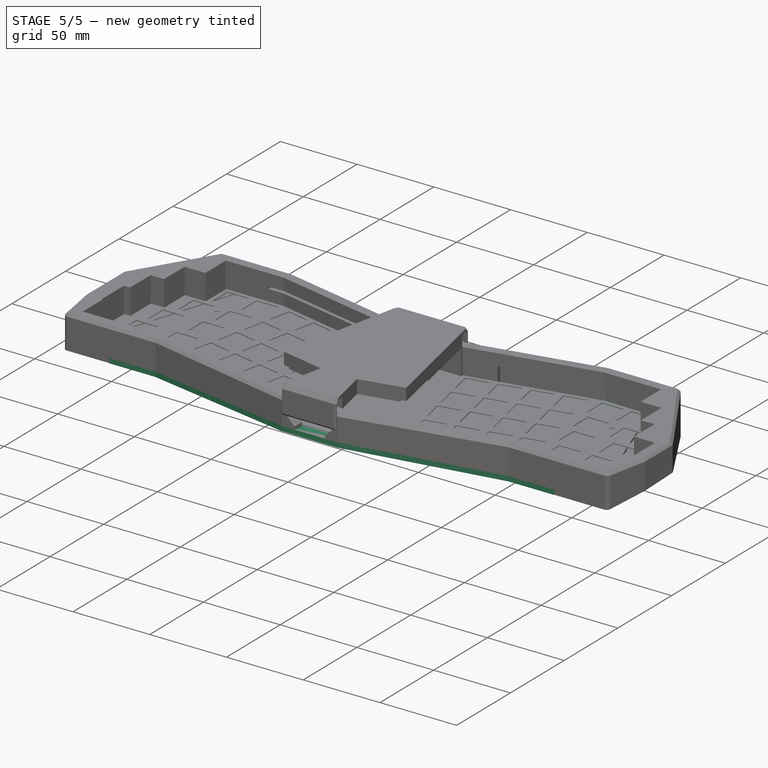
[diagram: stage 5 of 5 — iso view after this stage's code; geometry added in this stage tinted green]
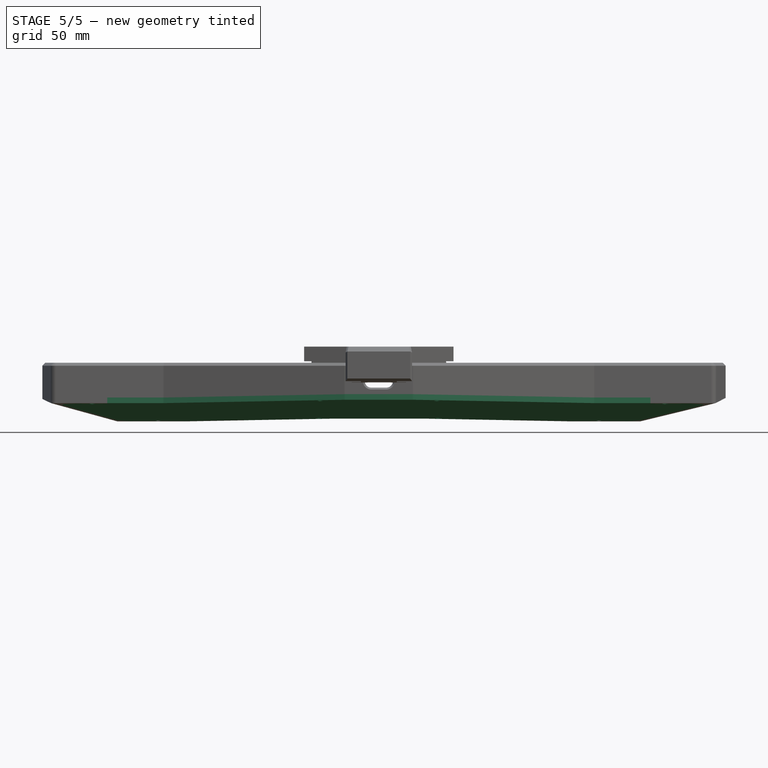
[diagram: stage 5 of 5 — front view after this stage's code; geometry added in this stage tinted green]
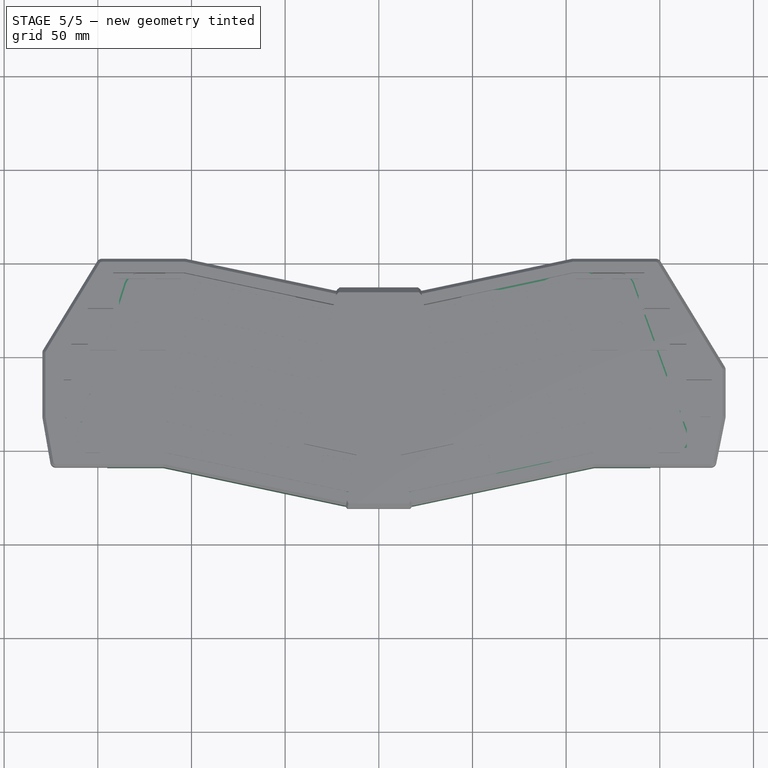
[diagram: stage 5 of 5 — top view after this stage's code; geometry added in this stage tinted green]
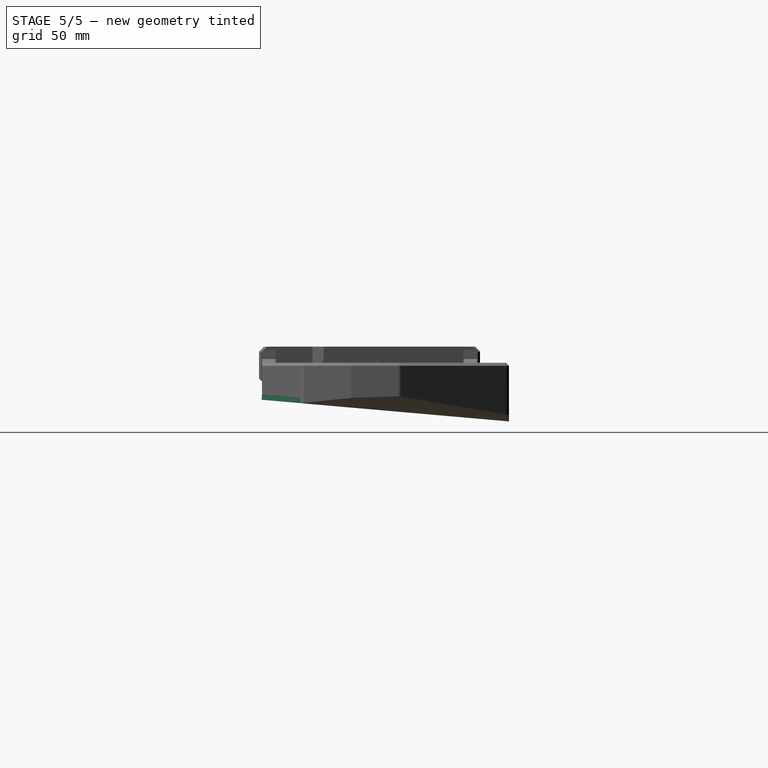
[diagram: stage 5 of 5 — right view after this stage's code; geometry added in this stage tinted green]
FEATURE [Sketcher::SketchObject] Sketch  label="vorlage001"
  ArcFitTolerance = 0
  AttachmentSupport = -> [XY_Plane]
  FullyConstrained = true
  MakeInternals = false
  MapMode = 5
  expr: Constraints[141] = 90 - <<config>>.ALPHA_ANGLE
  expr: Constraints[142] = <<config>>.KEY_UNIT
  expr: Constraints[147] = <<config>>.MOD_OFFSET
  expr: Constraints[148] = 2.75 * <<config>>.KEY_UNIT
  expr: Constraints[149] = 3.25 * <<config>>.KEY_UNIT
  expr: Constraints[150] = 2.75 * <<config>>.KEY_UNIT
  expr: Constraints[151] = 2.5 * <<config>>.KEY_UNIT
  expr: Constraints[152] = 2 * <<config>>.KEY_UNIT
  expr: Constraints[162] = 3 * <<config>>.KEY_UNIT
  expr: Constraints[169] = <<config>>.HEADER_WIDTH
  expr: Constraints[170] = <<config>>.HEADER_LENGTH
  expr: Constraints[44] = 2 * <<config>>.KEY_UNIT
  expr: Constraints[45] = 2.5 * <<config>>.KEY_UNIT
  expr: Constraints[46] = <<config>>.KEY_UNIT
  expr: Constraints[51] = 2.75 * <<config>>.KEY_UNIT
  expr: Constraints[52] = 2.75 * <<config>>.KEY_UNIT
  expr: Constraints[53] = 2.5 * <<config>>.KEY_UNIT
  expr: Constraints[59] = 90 - <<config>>.ALPHA_ANGLE
  expr: Constraints[62] = 4 * <<config>>.KEY_UNIT
  expr: Constraints[66] = 5 * <<config>>.KEY_UNIT
  expr: Constraints[67] = 5.5 * <<config>>.KEY_UNIT
  expr: Constraints[75] = <<config>>.KEY_UNIT
  expr: Constraints[76] = <<config>>.MOD_OFFSET
  expr: Constraints[84] = 4 * <<config>>.KEY_UNIT
  expr: Constraints[85] = 5.5 * <<config>>.KEY_UNIT
  expr: Constraints[86] = <<config>>.KEY_UNIT
  expr: Constraints[89] = 5 * <<config>>.KEY_UNIT
  sketch-geometry (60):
    g0: LineSegment [constr] StartX=-141.18 StartY=94.2 StartZ=0 EndX=-103.08 EndY=94.2 EndZ=0
    g1: LineSegment [constr] StartX=-103.08 StartY=94.2 StartZ=0 EndX=-103.08 EndY=75.15 EndZ=0
    g2: LineSegment [constr] StartX=-103.08 StartY=75.15 StartZ=0 EndX=-141.18 EndY=75.15 EndZ=0
    g3: LineSegment [constr] StartX=-141.18 StartY=75.15 StartZ=0 EndX=-141.18 EndY=94.2 EndZ=0
    g4: LineSegment [constr] StartX=-107.129 StartY=75.15 StartZ=0 EndX=-154.754 EndY=75.15 EndZ=0
    g5: LineSegment [constr] StartX=-154.754 StartY=75.15 StartZ=0 EndX=-154.754 EndY=56.1 EndZ=0
    g6: LineSegment [constr] StartX=-154.754 StartY=56.1 StartZ=0 EndX=-107.129 EndY=56.1 EndZ=0
    g7: LineSegment [constr] StartX=-107.129 StartY=56.1 StartZ=0 EndX=-107.129 EndY=75.15 EndZ=0
    g8: LineSegment [constr] StartX=-111.179 StartY=56.1 StartZ=0 EndX=-163.566 EndY=56.1 EndZ=0
    g9: LineSegment [constr] StartX=-163.566 StartY=56.1 StartZ=0 EndX=-163.566 EndY=37.05 EndZ=0
    g10: LineSegment [constr] StartX=-163.566 StartY=37.05 StartZ=0 EndX=-111.179 EndY=37.05 EndZ=0
    g11: LineSegment [constr] StartX=-111.179 StartY=37.05 StartZ=0 EndX=-111.179 EndY=56.1 EndZ=0
    g12: LineSegment [constr] StartX=-115.228 StartY=37.05 StartZ=0 EndX=-167.615 EndY=37.05 EndZ=0
    g13: LineSegment [constr] StartX=-167.615 StartY=37.05 StartZ=0 EndX=-167.615 EndY=18 EndZ=0
    g14: LineSegment [constr] StartX=-167.615 StartY=18 StartZ=0 EndX=-115.228 EndY=18 EndZ=0
    g15: LineSegment [constr] StartX=-115.228 StartY=18 StartZ=0 EndX=-115.228 EndY=37.05 EndZ=0
    g16: LineSegment [constr] StartX=-119.277 StartY=18 StartZ=0 EndX=-166.902 EndY=18 EndZ=0
    g17: LineSegment [constr] StartX=-166.902 StartY=18 StartZ=0 EndX=-166.902 EndY=-1.05 EndZ=0
    g18: LineSegment [constr] StartX=-166.902 StartY=-1.05 StartZ=0 EndX=-119.277 EndY=-1.05 EndZ=0
    g19: LineSegment [constr] StartX=-119.277 StartY=-1.05 StartZ=0 EndX=-119.277 EndY=18 EndZ=0
    g20: LineSegment [constr] StartX=-119.277 StartY=-1.05 StartZ=0 EndX=-99.2503 EndY=93.1686 EndZ=0
    g21: LineSegment [constr] StartX=-99.2503 StartY=93.1686 StartZ=0 EndX=-24.7155 EndY=77.3257 EndZ=0
    g22: LineSegment [constr] StartX=-119.054 StartY=0 StartZ=0 EndX=-16.5685 EndY=-21.7839 EndZ=0
    g23: LineSegment [constr] StartX=-16.5685 StartY=-21.7839 StartZ=0 EndX=-12.6078 EndY=-3.15024 EndZ=0
    g24: LineSegment [constr] StartX=-12.6078 StartY=-3.15024 StartZ=0 EndX=-40.5583 EndY=2.79084 EndZ=0
    g25: LineSegment [constr] StartX=-40.5583 StartY=2.79084 StartZ=0 EndX=-24.7155 EndY=77.3257 EndZ=0
    g26: LineSegment [constr] StartX=119.054 StartY=0 StartZ=0 EndX=16.5685 EndY=-21.7839 EndZ=0
    g27: LineSegment [constr] StartX=16.5685 StartY=-21.7839 StartZ=0 EndX=12.6078 EndY=-3.15024 EndZ=0
    g28: LineSegment [constr] StartX=12.6078 StartY=-3.15024 StartZ=0 EndX=40.5583 EndY=2.79084 EndZ=0
    g29: LineSegment [constr] StartX=40.5583 StartY=2.79084 StartZ=0 EndX=24.7155 EndY=77.3257 EndZ=0
    g30: LineSegment [constr] StartX=24.7155 StartY=77.3257 StartZ=0 EndX=99.2503 EndY=93.1686 EndZ=0
    g31: LineSegment [constr] StartX=99.2503 StartY=93.1686 StartZ=0 EndX=119.277 EndY=-1.05 EndZ=0
    g32: LineSegment [constr] StartX=119.277 StartY=-1.05 StartZ=0 EndX=171.665 EndY=-1.05 EndZ=0
    g33: LineSegment [constr] StartX=171.665 StartY=-1.05 StartZ=0 EndX=171.665 EndY=18 EndZ=0
    g34: LineSegment [constr] StartX=171.665 StartY=18 StartZ=0 EndX=119.277 EndY=18 EndZ=0
    g35: LineSegment [constr] StartX=119.277 StartY=18 StartZ=0 EndX=119.277 EndY=-1.05 EndZ=0
    g36: LineSegment [constr] StartX=115.228 StartY=18 StartZ=0 EndX=177.14 EndY=18 EndZ=0
    g37: LineSegment [constr] StartX=177.14 StartY=18 StartZ=0 EndX=177.14 EndY=37.05 EndZ=0
    g38: LineSegment [constr] StartX=177.14 StartY=37.05 StartZ=0 EndX=115.228 EndY=37.05 EndZ=0
    g39: LineSegment [constr] StartX=115.228 StartY=37.05 StartZ=0 EndX=115.228 EndY=18 EndZ=0
    g40: LineSegment [constr] StartX=111.179 StartY=37.05 StartZ=0 EndX=163.566 EndY=37.05 EndZ=0
    g41: LineSegment [constr] StartX=163.566 StartY=37.05 StartZ=0 EndX=163.566 EndY=56.1 EndZ=0
    g42: LineSegment [constr] StartX=163.566 StartY=56.1 StartZ=0 EndX=111.179 EndY=56.1 EndZ=0
    g43: LineSegment [constr] StartX=111.179 StartY=56.1 StartZ=0 EndX=111.179 EndY=37.05 EndZ=0
    g44: LineSegment [constr] StartX=107.129 StartY=56.1 StartZ=0 EndX=154.754 EndY=56.1 EndZ=0
    g45: LineSegment [constr] StartX=154.754 StartY=56.1 StartZ=0 EndX=154.754 EndY=75.15 EndZ=0
    g46: LineSegment [constr] StartX=154.754 StartY=75.15 StartZ=0 EndX=107.129 EndY=75.15 EndZ=0
    g47: LineSegment [constr] StartX=107.129 StartY=75.15 StartZ=0 EndX=107.129 EndY=56.1 EndZ=0
    g48: LineSegment [constr] StartX=103.08 StartY=75.15 StartZ=0 EndX=141.18 EndY=75.15 EndZ=0
    g49: LineSegment [constr] StartX=141.18 StartY=75.15 StartZ=0 EndX=141.18 EndY=94.2 EndZ=0
    g50: LineSegment [constr] StartX=141.18 StartY=94.2 StartZ=0 EndX=103.08 EndY=94.2 EndZ=0
    g51: LineSegment [constr] StartX=103.08 StartY=94.2 StartZ=0 EndX=103.08 EndY=75.15 EndZ=0
    g52: LineSegment [constr] StartX=-28.575 StartY=57.7047 StartZ=0 EndX=28.575 EndY=57.7047 EndZ=0
    g53: LineSegment [constr] StartX=28.575 StartY=57.7047 StartZ=0 EndX=28.575 EndY=0.554733 EndZ=0
    g54: LineSegment [constr] StartX=28.575 StartY=0.554733 StartZ=0 EndX=-28.575 EndY=0.554733 EndZ=0
    g55: LineSegment [constr] StartX=-28.575 StartY=0.554733 StartZ=0 EndX=-28.575 EndY=57.7047 EndZ=0
    g56: LineSegment [constr] StartX=-37.037 StartY=2.04236 StartZ=0 EndX=-28.575 EndY=41.853 EndZ=0
    g57: LineSegment [constr] StartX=-28.575 StartY=41.853 StartZ=0 EndX=-32.0963 EndY=42.6014 EndZ=0
    g58: Circle [constr] CenterX=-28.575 CenterY=57.7047 CenterZ=0 NormalX=0 NormalY=0 NormalZ=1 AngleXU=0 Radius=0.304232
    g59: Circle [constr] CenterX=-28.575 CenterY=0.554733 CenterZ=0 NormalX=0 NormalY=0 NormalZ=1 AngleXU=0 Radius=0.304232
  constraints (177):
    c: Coincident(g0,g1)
    c: Coincident(g1,g2)
    c: Coincident(g2,g3)
    c: Coincident(g3,g0)
    c: Horizontal(g0)
    c: Horizontal(g2)
    c: Vertical(g1)
    c: Vertical(g3)
    c: Coincident(g4,g5)
    c: Coincident(g5,g6)
    c: Coincident(g6,g7)
    c: Coincident(g7,g4)
    c: Horizontal(g4)
    c: Horizontal(g6)
    c: Vertical(g5)
    c: Vertical(g7)
    c: PointOnObject(g4,g2)
    c: Coincident(g8,g9)
    c: Coincident(g9,g10)
    c: Coincident(g10,g11)
    c: Coincident(g11,g8)
    c: Horizontal(g8)
    c: Horizontal(g10)
    c: Vertical(g9)
    c: Vertical(g11)
    c: PointOnObject(g8,g6)
    c: Coincident(g12,g13)
    c: Coincident(g13,g14)
    c: Coincident(g14,g15)
    c: Coincident(g15,g12)
    c: Horizontal(g12)
    c: Horizontal(g14)
    c: Vertical(g13)
    c: Vertical(g15)
    c: PointOnObject(g12,g10)
    c: Coincident(g16,g17)
    c: Coincident(g17,g18)
    c: Coincident(g18,g19)
    c: Coincident(g19,g16)
    c: Horizontal(g16)
    c: Horizontal(g18)
    c: Vertical(g17)
    c: Vertical(g19)
    c: PointOnObject(g16,g14)
    c: DistanceX(g0,g0) = 38.1
    c: DistanceX(g4,g4) = 47.625
    c: DistanceY(g3,g3) = 19.05
    c: Equal(g3,g5)
    c: Equal(g5,g9)
    c: Equal(g9,g13)
    c: Equal(g13,g17)
    c: DistanceX(g8,g8) = 52.3875
    c: DistanceX(g12,g12) = 52.3875
    c: DistanceX(g16,g16) = 47.625
    c: Coincident(g20,g18)
    c: PointOnObject(g14,g20)
    c: PointOnObject(g10,g20)
    c: PointOnObject(g6,g20)
    c: PointOnObject(g1,g20)
    c: Angle(g-1,g20) = 1.36136
    c: Coincident(g20,g21)
    c: Perpendicular(g21,g20)
    c: Distance(g21) = 76.2
    c: PointOnObject(g22,g-1)
    c: PointOnObject(g22,g20)
    c: Perpendicular(g22,g20)
    c: Distance(g22,g20) = 95.25
    c: Distance(g22) = 104.775
    c: Coincident(g23,g22)
    c: Coincident(g24,g23)
    c: Coincident(g25,g24)
    c: Coincident(g25,g21)
    c: Perpendicular(g21,g25)
    c: Perpendicular(g23,g22)
    c: Perpendicular(g24,g23)
    c: Distance(g23) = 19.05
    c: DistanceY(g18,g22) = 1.05
    c: Coincident(g26,g27)
    c: Coincident(g27,g28)
    c: Coincident(g28,g29)
    c: Coincident(g29,g30)
    c: Perpendicular(g27,g26)
    c: Perpendicular(g28,g27)
    c: Perpendicular(g30,g29)
    c: Distance(g30) = 76.2
    c: Distance(g26) = 104.775
    c: Distance(g27) = 19.05
    c: Coincident(g31,g30)
    c: PointOnObject(g26,g31)
    c: Distance(g26,g30) = 95.25
    c: Perpendicular(g31,g26)
    c: Perpendicular(g31,g30)
    c: Coincident(g32,g33)
    c: Coincident(g33,g34)
    c: Coincident(g34,g35)
    c: Coincident(g35,g32)
    c: Horizontal(g32)
    c: Horizontal(g34)
    c: Vertical(g33)
    c: Vertical(g35)
    c: Coincident(g32,g31)
    c: Coincident(g36,g37)
    c: Coincident(g37,g38)
    c: Coincident(g38,g39)
    c: Coincident(g39,g36)
    c: Horizontal(g36)
    c: Horizontal(g38)
    c: Vertical(g37)
    c: Vertical(g39)
    c: PointOnObject(g36,g34)
    c: Coincident(g40,g41)
    c: Coincident(g41,g42)
    c: Coincident(g42,g43)
    c: Coincident(g43,g40)
    c: Horizontal(g40)
    c: Horizontal(g42)
    c: Vertical(g41)
    c: Vertical(g43)
    c: PointOnObject(g40,g38)
    c: Coincident(g44,g45)
    c: Coincident(g45,g46)
    c: Coincident(g46,g47)
    c: Coincident(g47,g44)
    c: Horizontal(g44)
    c: Horizontal(g46)
    c: Vertical(g45)
    c: Vertical(g47)
    c: PointOnObject(g44,g42)
    c: Coincident(g48,g49)
    c: Coincident(g49,g50)
    c: Coincident(g50,g51)
    c: Coincident(g51,g48)
    c: Horizontal(g48)
    c: Horizontal(g50)
    c: Vertical(g49)
    c: Vertical(g51)
    c: PointOnObject(g48,g46)
    c: PointOnObject(g48,g31)
    c: PointOnObject(g44,g31)
    c: PointOnObject(g40,g31)
    c: PointOnObject(g36,g31)
    c: Angle(g31,g-1) = 1.36136
    c: DistanceY(g49,g49) = 19.05
    c: Equal(g49,g45)
    c: Equal(g45,g41)
    c: Equal(g41,g37)
    c: Equal(g37,g33)
    c: DistanceY(g31,g26) = 1.05
    c: DistanceX(g34,g34) = 52.3875
    c: DistanceX(g38,g38) = 61.9125
    c: DistanceX(g42,g42) = 52.3875
    c: DistanceX(g46,g46) = 47.625
    c: DistanceX(g50,g50) = 38.1
    c: Coincident(g52,g53)
    c: Coincident(g53,g54)
    c: Coincident(g54,g55)
    c: Coincident(g55,g52)
    c: Horizontal(g54)
    c: Vertical(g53)
    c: Vertical(g55)
    c: Symmetric(g52,g52,g-2)
    c: Equal(g52,g53)
    c: DistanceX(g52,g52) = 57.15
    c: Symmetric(g22,g26,g-2)
    c: PointOnObject(g56,g24)
    c: Coincident(g57,g56)
    c: PointOnObject(g57,g25)
    c: Perpendicular(g57,g56)
    c: Perpendicular(g56,g24)
    c: Distance(g57) = 3.6
    c: Distance(g56) = 40.7
    c: PointOnObject(g56,g55)
    c: Coincident(g58,g52)
    c: Tangent(g58,g25)
    c: Coincident(g59,g54)
    c: Tangent(g59,g24)
    c: Equal(g59,g58)
FEATURE [PartDesign::Body] Body  label="vorlage"
  AllowCompound = false
  Group = -> [Sketch]
  Origin = -> Origin
FEATURE [Spreadsheet::Sheet] Spreadsheet  label="config"
  cells = A1='KEY AND SWITCH CONFIG; D1='CASE CONFIG; A2='KEY_UNIT; B2(KEY_UNIT)=19.05; D2='CASE_MARGIN; E2(CASE_MARGIN)=0.6; F2='CASE_INNER_HEIGHT; G2(CASE_INNER_HEIGHT)=16.8; H2='CORE_MARGIN; I2(CORE_MARGIN)=1.6; A3='KEY_HOLE; B3(KEY_HOLE)=14; D3='CASE_BEZEL; E3(CASE_BEZEL)=8; F3='CASE_TYPING_ANGLE; G3(CASE_TYPING_ANGLE)=5; A4='KEY_SPACING; B4(KEY_SPACING)==B2 - B3; D4='CASE_CHAMFER; E4(CASE_CHAMFER)=1.6; F4='CASE_RADIUS; G4(CASE_RADIUS)=3; A6='PLATE CONFIG; D6='PCB CONFIG; G6='BOTTOM PLATE CONFIG; I6='M3 THREAD; A7='ALPHA_ANGLE; B7(ALPHA_ANGLE)=12; D7='HEADER_WIDTH; E7(HEADER_WIDTH)=3.6; G7='ACRYL_THICKNESS; H7(ACRYL_THICKNESS)=3; I7='THREAD_HOLE; J7(THREAD_HOLE)=4; A8='MOD_OFFSET; B8(MOD_OFFSET)=1.05; D8='HEADER_LENGTH; E8(HEADER_LENGTH)=40.7; G8='ACRYL_BEZEL; H8(ACRYL_BEZEL)=2; I8='THREAD_MARGIN; J8(THREAD_MARGIN)=1.6; A9='SYMMETRY_SPACING; B9(SYMMETRY_SPACING)=120; D9='HEADER_PINS; E9(HEADER_PINS)=16; G9='ACRYL_FRONT_WINDOW; H9(ACRYL_FRONT_WINDOW)=30; I9='THREAD_DEPTH; J9(THREAD_DEPTH)=6.7; A10='PLATE_THICKNESS; B10(PLATE_THICKNESS)=1.5; D10='PCB_OFFSET; E10(PCB_OFFSET)==19.05 / 24; G10='ACRYL_FRONT_WINDOW; H10(ACRYL_BACK_WINDOW)=50; I10='THREAD_DEPTH_SHORT; J10(THREAD_DEPTH_SHORT)=4; A11='PLATE_OT; B11(PLATE_OT)=11; D11='PCB_RADIUS; E11(PCB_RADIUS)=1.5; G11='BOTTOM_RADIUS_LARGE; H11(BOTTOM_RADIUS)=8; I11='THREAD_SCREW; J11(THREAD_SCREW)=3; A12='PLATE_OB; B12(PLATE_OB)=30; D12='PCB_RADIUS_SMALL; E12(PCB_RADIUS_SMALL)=0.8; A13='PLATE_IT; B13(PLATE_IT)=20; D13='PCB_RADIUS_LARGE; E13(PCB_RADIUS_LARGE)=1.5; A14='PLATE_IB; B14(PLATE_IB)=26; D14='PCB_HEIGHT_OFFSET; E14(PCB_HEIGHT_OFFSET)=5.4; A15='PLATE_MARGIN; B15(PLATE_MARGIN)=0.1; D15='PCB_CORE_OFFSET; E15(PCB_CORE_OFFSET)=0.525; A16='PLATE_FIXER_INTERFERENCE_TOP; B16(PLATE_FIXER_INTERFERENCE_TOP)=0.1; D16='PCB_CORE_HEIGHT_OFFSET; E16(PCB_CORE_HEIGHT_OFFSET)==PCB_HEIGHT_OFFSET + 1.6 + 3; A17='PLATE_FIXER_INTERFERENCE_BOTTOM; B17(PLATE_FIXER_INTERFERENCE_BOTTOM)=0.1; D17='USB_C_HEIGHT_OFFSET (from core pcb); E17(USB_C_HEIGHT_OFFSET)=7; A18='PLATE_RUBBER; B18(PLATE_RUBBER)=0; D18='PCB_CORE_SPACING; E18(PCB_CORE_SPACING)=1; A19='PLATE_FIXER_CLAMP; B19(PLATE_FIXER_CLAMP)=15; A20='PLATE_FIXER_CLAMP; B20(PLATE_FIXER_CLAMP_HEIGHT)=4; A21='PLATE_FIXER_CLAMP_HEIGHT_TOLERANCE; B21(PLATE_FIXER_CLAMP_HEIGHT_TOLERANCE)=0.4
FEATURE [Sketcher::SketchObject] Sketch001  label="pcb001"
  ArcFitTolerance = 0
  AttachmentSupport = -> [XY_Plane001]
  FullyConstrained = true
  MakeInternals = false
  MapMode = 5
  expr: Constraints[140] = 90 - <<config>>.ALPHA_ANGLE
  expr: Constraints[141] = <<config>>.KEY_UNIT
  expr: Constraints[146] = <<config>>.MOD_OFFSET
  expr: Constraints[147] = 2.75 * <<config>>.KEY_UNIT
  expr: Constraints[148] = 3.25 * <<config>>.KEY_UNIT
  expr: Constraints[149] = 2.75 * <<config>>.KEY_UNIT
  expr: Constraints[150] = 2.5 * <<config>>.KEY_UNIT
  expr: Constraints[151] = 2 * <<config>>.KEY_UNIT
  expr: Constraints[161] = 3 * <<config>>.KEY_UNIT
  expr: Constraints[168] = <<config>>.HEADER_WIDTH
  expr: Constraints[169] = <<config>>.HEADER_LENGTH
  expr: Constraints[227] = <<config>>.PCB_OFFSET
  expr: Constraints[228] = <<config>>.PCB_OFFSET
  expr: Constraints[229] = <<config>>.PCB_OFFSET
  expr: Constraints[230] = <<config>>.PCB_OFFSET
  expr: Constraints[231] = <<config>>.PCB_OFFSET
  expr: Constraints[232] = <<config>>.PCB_OFFSET
  expr: Constraints[233] = <<config>>.PCB_OFFSET
  expr: Constraints[234] = <<config>>.PCB_OFFSET
  expr: Constraints[235] = <<config>>.PCB_OFFSET
  expr: Constraints[236] = <<config>>.PCB_OFFSET
  expr: Constraints[237] = <<config>>.PCB_OFFSET
  expr: Constraints[238] = <<config>>.PCB_OFFSET
  expr: Constraints[239] = <<config>>.PCB_OFFSET
  expr: Constraints[240] = <<config>>.PCB_OFFSET
  expr: Constraints[241] = <<config>>.PCB_OFFSET
  expr: Constraints[242] = <<config>>.PCB_OFFSET
  expr: Constraints[243] = <<config>>.PCB_OFFSET
  expr: Constraints[244] = <<config>>.PCB_OFFSET
  expr: Constraints[245] = <<config>>.PCB_OFFSET
  expr: Constraints[246] = <<config>>.PCB_OFFSET
  expr: Constraints[247] = <<config>>.PCB_OFFSET
  expr: Constraints[248] = <<config>>.PCB_OFFSET
  expr: Constraints[249] = <<config>>.PCB_OFFSET
  expr: Constraints[250] = <<config>>.PCB_OFFSET
  expr: Constraints[251] = <<config>>.PCB_OFFSET
  expr: Constraints[252] = <<config>>.PCB_OFFSET
  expr: Constraints[253] = <<config>>.PCB_OFFSET
  expr: Constraints[258] = <<config>>.PCB_OFFSET
  expr: Constraints[269] = Spreadsheet.HEADER_WIDTH
  expr: Constraints[272] = 12 * 2.54
  expr: Constraints[43] = 2 * <<config>>.KEY_UNIT
  expr: Constraints[44] = 2.5 * <<config>>.KEY_UNIT
  expr: Constraints[45] = <<config>>.KEY_UNIT
  expr: Constraints[50] = 2.75 * <<config>>.KEY_UNIT
  expr: Constraints[51] = 2.75 * <<config>>.KEY_UNIT
  expr: Constraints[52] = 2.5 * <<config>>.KEY_UNIT
  expr: Constraints[58] = 90 - <<config>>.ALPHA_ANGLE
  expr: Constraints[61] = 4 * <<config>>.KEY_UNIT
  expr: Constraints[65] = 5 * <<config>>.KEY_UNIT
  expr: Constraints[66] = 5.5 * <<config>>.KEY_UNIT
  expr: Constraints[74] = <<config>>.KEY_UNIT
  expr: Constraints[75] = <<config>>.MOD_OFFSET
  expr: Constraints[83] = 4 * <<config>>.KEY_UNIT
  expr: Constraints[84] = 5.5 * <<config>>.KEY_UNIT
  expr: Constraints[85] = <<config>>.KEY_UNIT
  expr: Constraints[88] = 5 * <<config>>.KEY_UNIT
  sketch-geometry (105):
    g0: LineSegment [constr] StartX=-141.18 StartY=94.2 StartZ=0 EndX=-103.08 EndY=94.2 EndZ=0
    g1: LineSegment [constr] StartX=-103.08 StartY=94.2 StartZ=0 EndX=-103.08 EndY=75.15 EndZ=0
    g2: LineSegment [constr] StartX=-103.08 StartY=75.15 StartZ=0 EndX=-141.18 EndY=75.15 EndZ=0
    g3: LineSegment [constr] StartX=-141.18 StartY=75.15 StartZ=0 EndX=-141.18 EndY=94.2 EndZ=0
    g4: LineSegment [constr] StartX=-107.129 StartY=75.15 StartZ=0 EndX=-154.754 EndY=75.15 EndZ=0
    g5: LineSegment [constr] StartX=-154.754 StartY=75.15 StartZ=0 EndX=-154.754 EndY=56.1 EndZ=0
    g6: LineSegment [constr] StartX=-154.754 StartY=56.1 StartZ=0 EndX=-107.129 EndY=56.1 EndZ=0
    g7: LineSegment [constr] StartX=-107.129 StartY=56.1 StartZ=0 EndX=-107.129 EndY=75.15 EndZ=0
    g8: LineSegment [constr] StartX=-111.179 StartY=56.1 StartZ=0 EndX=-163.566 EndY=56.1 EndZ=0
    g9: LineSegment [constr] StartX=-163.566 StartY=56.1 StartZ=0 EndX=-163.566 EndY=37.05 EndZ=0
    g10: LineSegment [constr] StartX=-163.566 StartY=37.05 StartZ=0 EndX=-111.179 EndY=37.05 EndZ=0
    g11: LineSegment [constr] StartX=-111.179 StartY=37.05 StartZ=0 EndX=-111.179 EndY=56.1 EndZ=0
    g12: LineSegment [constr] StartX=-115.228 StartY=37.05 StartZ=0 EndX=-167.615 EndY=37.05 EndZ=0
    g13: LineSegment [constr] StartX=-167.615 StartY=37.05 StartZ=0 EndX=-167.615 EndY=18 EndZ=0
    g14: LineSegment [constr] StartX=-167.615 StartY=18 StartZ=0 EndX=-115.228 EndY=18 EndZ=0
    g15: LineSegment [constr] StartX=-115.228 StartY=18 StartZ=0 EndX=-115.228 EndY=37.05 EndZ=0
    g16: LineSegment [constr] StartX=-119.277 StartY=18 StartZ=0 EndX=-166.902 EndY=18 EndZ=0
    g17: LineSegment [constr] StartX=-166.902 StartY=18 StartZ=0 EndX=-166.902 EndY=-1.05 EndZ=0
    g18: LineSegment [constr] StartX=-166.902 StartY=-1.05 StartZ=0 EndX=-119.277 EndY=-1.05 EndZ=0
    g19: LineSegment [constr] StartX=-119.277 StartY=-1.05 StartZ=0 EndX=-119.277 EndY=18 EndZ=0
    g20: LineSegment [constr] StartX=-119.277 StartY=-1.05 StartZ=0 EndX=-99.2503 EndY=93.1686 EndZ=0
    g21: LineSegment [constr] StartX=-99.2503 StartY=93.1686 StartZ=0 EndX=-24.7155 EndY=77.3257 EndZ=0
    g22: LineSegment [constr] StartX=-119.054 StartY=0 StartZ=0 EndX=-16.5685 EndY=-21.7839 EndZ=0
    g23: LineSegment [constr] StartX=-16.5685 StartY=-21.7839 StartZ=0 EndX=-12.6078 EndY=-3.15024 EndZ=0
    g24: LineSegment [constr] StartX=-12.6078 StartY=-3.15024 StartZ=0 EndX=-40.5583 EndY=2.79084 EndZ=0
    g25: LineSegment [constr] StartX=-40.5583 StartY=2.79084 StartZ=0 EndX=-24.7155 EndY=77.3257 EndZ=0
    g26: LineSegment [constr] StartX=119.054 StartY=0 StartZ=0 EndX=16.5685 EndY=-21.7839 EndZ=0
    g27: LineSegment [constr] StartX=16.5685 StartY=-21.7839 StartZ=0 EndX=12.6078 EndY=-3.15024 EndZ=0
    g28: LineSegment [constr] StartX=12.6078 StartY=-3.15024 StartZ=0 EndX=40.5583 EndY=2.79084 EndZ=0
    g29: LineSegment [constr] StartX=40.5583 StartY=2.79084 StartZ=0 EndX=24.7155 EndY=77.3257 EndZ=0
    g30: LineSegment [constr] StartX=24.7155 StartY=77.3257 StartZ=0 EndX=99.2503 EndY=93.1686 EndZ=0
    g31: LineSegment [constr] StartX=99.2503 StartY=93.1686 StartZ=0 EndX=119.277 EndY=-1.05 EndZ=0
    g32: LineSegment [constr] StartX=119.277 StartY=-1.05 StartZ=0 EndX=171.665 EndY=-1.05 EndZ=0
    g33: LineSegment [constr] StartX=171.665 StartY=-1.05 StartZ=0 EndX=171.665 EndY=18 EndZ=0
    g34: LineSegment [constr] StartX=171.665 StartY=18 StartZ=0 EndX=119.277 EndY=18 EndZ=0
    g35: LineSegment [constr] StartX=119.277 StartY=18 StartZ=0 EndX=119.277 EndY=-1.05 EndZ=0
    g36: LineSegment [constr] StartX=115.228 StartY=18 StartZ=0 EndX=177.14 EndY=18 EndZ=0
    g37: LineSegment [constr] StartX=177.14 StartY=18 StartZ=0 EndX=177.14 EndY=37.05 EndZ=0
    g38: LineSegment [constr] StartX=177.14 StartY=37.05 StartZ=0 EndX=115.228 EndY=37.05 EndZ=0
    g39: LineSegment [constr] StartX=115.228 StartY=37.05 StartZ=0 EndX=115.228 EndY=18 EndZ=0
    g40: LineSegment [constr] StartX=111.179 StartY=37.05 StartZ=0 EndX=163.566 EndY=37.05 EndZ=0
    g41: LineSegment [constr] StartX=163.566 StartY=37.05 StartZ=0 EndX=163.566 EndY=56.1 EndZ=0
    g42: LineSegment [constr] StartX=163.566 StartY=56.1 StartZ=0 EndX=111.179 EndY=56.1 EndZ=0
    g43: LineSegment [constr] StartX=111.179 StartY=56.1 StartZ=0 EndX=111.179 EndY=37.05 EndZ=0
    g44: LineSegment [constr] StartX=107.129 StartY=56.1 StartZ=0 EndX=154.754 EndY=56.1 EndZ=0
    g45: LineSegment [constr] StartX=154.754 StartY=56.1 StartZ=0 EndX=154.754 EndY=75.15 EndZ=0
    g46: LineSegment [constr] StartX=154.754 StartY=75.15 StartZ=0 EndX=107.129 EndY=75.15 EndZ=0
    g47: LineSegment [constr] StartX=107.129 StartY=75.15 StartZ=0 EndX=107.129 EndY=56.1 EndZ=0
    g48: LineSegment [constr] StartX=103.08 StartY=75.15 StartZ=0 EndX=141.18 EndY=75.15 EndZ=0
    g49: LineSegment [constr] StartX=141.18 StartY=75.15 StartZ=0 EndX=141.18 EndY=94.2 EndZ=0
    g50: LineSegment [constr] StartX=141.18 StartY=94.2 StartZ=0 EndX=103.08 EndY=94.2 EndZ=0
    g51: LineSegment [constr] StartX=103.08 StartY=94.2 StartZ=0 EndX=103.08 EndY=75.15 EndZ=0
    g52: LineSegment [constr] StartX=-28.575 StartY=57.7047 StartZ=0 EndX=28.575 EndY=57.7047 EndZ=0
    g53: LineSegment [constr] StartX=28.575 StartY=57.7047 StartZ=0 EndX=28.575 EndY=0.554733 EndZ=0
    g54: LineSegment [constr] StartX=28.575 StartY=0.554733 StartZ=0 EndX=-28.575 EndY=0.554733 EndZ=0
    g55: LineSegment [constr] StartX=-28.575 StartY=0.554733 StartZ=0 EndX=-28.575 EndY=57.7047 EndZ=0
    g56: LineSegment [constr] StartX=-37.037 StartY=2.04236 StartZ=0 EndX=-28.575 EndY=41.853 EndZ=0
    g57: LineSegment [constr] StartX=-28.575 StartY=41.853 StartZ=0 EndX=-32.0963 EndY=42.6014 EndZ=0
    g58: Circle [constr] CenterX=-28.575 CenterY=57.7047 CenterZ=0 NormalX=0 NormalY=0 NormalZ=1 AngleXU=0 Radius=0.304232
    g59: Circle [constr] CenterX=-28.575 CenterY=0.554733 CenterZ=0 NormalX=0 NormalY=0 NormalZ=1 AngleXU=0 Radius=0.304232
    g60: LineSegment StartX=-25.6569 StartY=76.7143 StartZ=0 EndX=-104.186 EndY=93.4062 EndZ=0
    g61: LineSegment StartX=-104.186 StartY=93.4062 StartZ=0 EndX=-140.387 EndY=93.4062 EndZ=0
    g62: LineSegment StartX=-140.387 StartY=93.4062 StartZ=0 EndX=-140.387 EndY=74.3563 EndZ=0
    g63: LineSegment StartX=-140.387 StartY=74.3563 StartZ=0 EndX=-153.961 EndY=74.3563 EndZ=0
    g64: LineSegment StartX=-153.961 StartY=74.3563 StartZ=0 EndX=-153.961 EndY=55.3062 EndZ=0
    g65: LineSegment StartX=-153.961 StartY=55.3062 StartZ=0 EndX=-162.772 EndY=55.3062 EndZ=0
    g66: LineSegment StartX=-162.772 StartY=55.3062 StartZ=0 EndX=-162.772 EndY=36.2562 EndZ=0
    g67: LineSegment StartX=-162.772 StartY=36.2562 StartZ=0 EndX=-166.822 EndY=36.2562 EndZ=0
    g68: LineSegment StartX=-166.822 StartY=36.2562 StartZ=0 EndX=-166.822 EndY=18.7897 EndZ=0
    g69: LineSegment StartX=-166.822 StartY=18.7897 StartZ=0 EndX=-166.108 EndY=18 EndZ=0
    g70: LineSegment StartX=-166.108 StartY=18 StartZ=0 EndX=-166.108 EndY=-0.25625 EndZ=0
    g71: LineSegment StartX=-166.108 StartY=-0.25625 StartZ=0 EndX=-114.031 EndY=-0.25625 EndZ=0
    g72: LineSegment [constr] StartX=-114.031 StartY=-0.25625 StartZ=0 EndX=-16.4035 EndY=-21.0075 EndZ=0
    g73: LineSegment [constr] StartX=16.4035 StartY=-21.0075 StartZ=0 EndX=114.031 EndY=-0.25625 EndZ=0
    g74: LineSegment StartX=114.031 StartY=-0.25625 StartZ=0 EndX=170.871 EndY=-0.25625 EndZ=0
    g75: LineSegment StartX=170.871 StartY=-0.25625 StartZ=0 EndX=170.871 EndY=18.7937 EndZ=0
    g76: LineSegment StartX=170.871 StartY=18.7937 StartZ=0 EndX=176.347 EndY=18.7937 EndZ=0
    g77: LineSegment StartX=176.347 StartY=18.7937 StartZ=0 EndX=176.347 EndY=36.2562 EndZ=0
    g78: LineSegment StartX=176.347 StartY=36.2562 StartZ=0 EndX=162.772 EndY=36.2562 EndZ=0
    g79: LineSegment StartX=162.772 StartY=36.2562 StartZ=0 EndX=162.772 EndY=55.3062 EndZ=0
    g80: LineSegment StartX=162.772 StartY=55.3062 StartZ=0 EndX=153.961 EndY=55.3062 EndZ=0
    g81: LineSegment StartX=153.961 StartY=55.3062 StartZ=0 EndX=153.961 EndY=74.3562 EndZ=0
    g82: LineSegment StartX=153.961 StartY=74.3562 StartZ=0 EndX=140.387 EndY=74.3562 EndZ=0
    g83: LineSegment StartX=140.387 StartY=74.3562 StartZ=0 EndX=140.387 EndY=93.4062 EndZ=0
    g84: LineSegment StartX=140.387 StartY=93.4062 StartZ=0 EndX=104.186 EndY=93.4062 EndZ=0
    g85: LineSegment StartX=104.186 StartY=93.4062 StartZ=0 EndX=25.6569 EndY=76.7143 EndZ=0
    g86: LineSegment StartX=-34.7897 StartY=33.748 StartZ=0 EndX=-25.6569 EndY=76.7143 EndZ=0
    g87: Circle [constr] CenterX=-166.902 CenterY=18 CenterZ=0 NormalX=0 NormalY=0 NormalZ=1 AngleXU=0 Radius=0.79375
    g88: LineSegment [constr] StartX=-16.4035 StartY=-21.0075 StartZ=0 EndX=16.4035 EndY=-21.0075 EndZ=0
    g89: LineSegment [constr] StartX=-39.3723 StartY=3.56108 StartZ=0 EndX=-35.8509 EndY=2.81259 EndZ=0
    g90: LineSegment StartX=-35.8509 StartY=2.81259 StartZ=0 EndX=-29.5138 EndY=32.6265 EndZ=0
    g91: LineSegment [constr] StartX=-29.5138 StartY=32.6265 StartZ=0 EndX=-33.0351 EndY=33.375 EndZ=0
    g92: LineSegment [constr] StartX=-33.0351 StartY=33.375 StartZ=0 EndX=-39.3723 EndY=3.56108 EndZ=0
    g93: LineSegment StartX=-29.5138 StartY=32.6265 StartZ=0 EndX=-34.7897 EndY=33.748 EndZ=0
    g94: LineSegment [constr] StartX=-35.8509 StartY=2.81259 StartZ=0 EndX=35.8509 EndY=2.81259 EndZ=0
    g95: LineSegment StartX=35.8509 StartY=2.81259 StartZ=0 EndX=29.5138 EndY=32.6265 EndZ=0
    g96: LineSegment StartX=29.5138 StartY=32.6265 StartZ=0 EndX=34.7897 EndY=33.748 EndZ=0
    g97: LineSegment StartX=34.7897 StartY=33.748 StartZ=0 EndX=25.6569 EndY=76.7143 EndZ=0
    g98: GeomPoint [constr] X=0 Y=-2.07 Z=0
    g99: ArcOfCircle CenterX=2.63e-14 CenterY=131.991 CenterZ=0 NormalX=0 NormalY=0 NormalZ=1 AngleXU=0 Radius=134.061 StartAngle=4.44167 EndAngle=4.98311
    g100: LineSegment [constr] StartX=-16.5685 StartY=-21.7839 StartZ=0 EndX=16.5685 EndY=-21.7839 EndZ=0
    g101: GeomPoint [constr] X=0 Y=-21.0075 Z=0
    g102: LineSegment StartX=-114.031 StartY=-0.25625 StartZ=0 EndX=-33.032 EndY=-17.473 EndZ=0
    g103: LineSegment StartX=114.031 StartY=-0.25625 StartZ=0 EndX=33.032 EndY=-17.473 EndZ=0
    g104: ArcOfCircle CenterX=5.85e-14 CenterY=135.111 CenterZ=0 NormalX=0 NormalY=0 NormalZ=1 AngleXU=0 Radius=156.119 StartAngle=4.4992 EndAngle=4.92558
  constraints (307):
    c: Coincident(g0,g1)
    c: Coincident(g1,g2)
    c: Coincident(g2,g3)
    c: Horizontal(g0)
    c: Horizontal(g2)
    c: Vertical(g1)
    c: Vertical(g3)
    c: Coincident(g4,g5)
    c: Coincident(g5,g6)
    c: Coincident(g6,g7)
    c: Coincident(g7,g4)
    c: Horizontal(g4)
    c: Horizontal(g6)
    c: Vertical(g5)
    c: Vertical(g7)
    c: PointOnObject(g4,g2)
    c: Coincident(g8,g9)
    c: Coincident(g9,g10)
    c: Coincident(g10,g11)
    c: Coincident(g11,g8)
    c: Horizontal(g8)
    c: Horizontal(g10)
    c: Vertical(g9)
    c: Vertical(g11)
    c: PointOnObject(g8,g6)
    c: Coincident(g12,g13)
    c: Coincident(g13,g14)
    c: Coincident(g14,g15)
    c: Coincident(g15,g12)
    c: Horizontal(g12)
    c: Horizontal(g14)
    c: Vertical(g13)
    c: Vertical(g15)
    c: PointOnObject(g12,g10)
    c: Coincident(g16,g17)
    c: Coincident(g17,g18)
    c: Coincident(g18,g19)
    c: Coincident(g19,g16)
    c: Horizontal(g16)
    c: Horizontal(g18)
    c: Vertical(g17)
    c: Vertical(g19)
    c: PointOnObject(g16,g14)
    c: DistanceX(g0,g0) = 38.1
    c: DistanceX(g4,g4) = 47.625
    c: DistanceY(g3,g3) = 19.05
    c: Equal(g3,g5)
    c: Equal(g5,g9)
    c: Equal(g9,g13)
    c: Equal(g13,g17)
    c: DistanceX(g8,g8) = 52.3875
    c: DistanceX(g12,g12) = 52.3875
    c: DistanceX(g16,g16) = 47.625
    c: Coincident(g20,g18)
    c: PointOnObject(g14,g20)
    c: PointOnObject(g10,g20)
    c: PointOnObject(g6,g20)
    c: PointOnObject(g1,g20)
    c: Angle(g-1,g20) = 1.36136
    c: Coincident(g20,g21)
    c: Perpendicular(g21,g20)
    c: Distance(g21) = 76.2
    c: PointOnObject(g22,g-1)
    c: PointOnObject(g22,g20)
    c: Perpendicular(g22,g20)
    c: Distance(g22,g20) = 95.25
    c: Distance(g22) = 104.775
    c: Coincident(g23,g22)
    c: Coincident(g24,g23)
    c: Coincident(g25,g24)
    c: Coincident(g25,g21)
    c: Perpendicular(g21,g25)
    c: Perpendicular(g23,g22)
    c: Perpendicular(g24,g23)
    c: Distance(g23) = 19.05
    c: DistanceY(g18,g22) = 1.05
    c: Coincident(g26,g27)
    c: Coincident(g27,g28)
    c: Coincident(g28,g29)
    c: Coincident(g29,g30)
    c: Perpendicular(g27,g26)
    c: Perpendicular(g28,g27)
    c: Perpendicular(g30,g29)
    c: Distance(g30) = 76.2
    c: Distance(g26) = 104.775
    c: Distance(g27) = 19.05
    c: Coincident(g31,g30)
    c: PointOnObject(g26,g31)
    c: Distance(g26,g30) = 95.25
    c: Perpendicular(g31,g26)
    c: Perpendicular(g31,g30)
    c: Coincident(g32,g33)
    c: Coincident(g33,g34)
    c: Coincident(g34,g35)
    c: Coincident(g35,g32)
    c: Horizontal(g32)
    c: Horizontal(g34)
    c: Vertical(g33)
    c: Vertical(g35)
    c: Coincident(g32,g31)
    c: Coincident(g36,g37)
    c: Coincident(g37,g38)
    c: Coincident(g38,g39)
    c: Coincident(g39,g36)
    c: Horizontal(g36)
    c: Horizontal(g38)
    c: Vertical(g37)
    c: Vertical(g39)
    c: PointOnObject(g36,g34)
    c: Coincident(g40,g41)
    c: Coincident(g41,g42)
    c: Coincident(g42,g43)
    c: Coincident(g43,g40)
    c: Horizontal(g40)
    c: Horizontal(g42)
    c: Vertical(g41)
    c: Vertical(g43)
    c: PointOnObject(g40,g38)
    c: Coincident(g44,g45)
    c: Coincident(g45,g46)
    c: Coincident(g46,g47)
    c: Coincident(g47,g44)
    c: Horizontal(g44)
    c: Horizontal(g46)
    c: Vertical(g45)
    c: Vertical(g47)
    c: PointOnObject(g44,g42)
    c: Coincident(g48,g49)
    c: Coincident(g49,g50)
    c: Coincident(g50,g51)
    c: Coincident(g51,g48)
    c: Horizontal(g48)
    c: Horizontal(g50)
    c: Vertical(g49)
    c: Vertical(g51)
    c: PointOnObject(g48,g46)
    c: PointOnObject(g48,g31)
    c: PointOnObject(g44,g31)
    c: PointOnObject(g40,g31)
    c: PointOnObject(g36,g31)
    c: Angle(g31,g-1) = 1.36136
    c: DistanceY(g49,g49) = 19.05
    c: Equal(g49,g45)
    c: Equal(g45,g41)
    c: Equal(g41,g37)
    c: Equal(g37,g33)
    c: DistanceY(g31,g26) = 1.05
    c: DistanceX(g34,g34) = 52.3875
    c: DistanceX(g38,g38) = 61.9125
    c: DistanceX(g42,g42) = 52.3875
    c: DistanceX(g46,g46) = 47.625
    c: DistanceX(g50,g50) = 38.1
    c: Coincident(g52,g53)
    c: Coincident(g53,g54)
    c: Coincident(g54,g55)
    c: Coincident(g55,g52)
    c: Horizontal(g54)
    c: Vertical(g53)
    c: Vertical(g55)
    c: Symmetric(g52,g52,g-2)
    c: Equal(g52,g53)
    c: DistanceX(g52,g52) = 57.15
    c: Symmetric(g22,g26,g-2)
    c: PointOnObject(g56,g24)
    c: Coincident(g57,g56)
    c: PointOnObject(g57,g25)
    c: Perpendicular(g57,g56)
    c: Perpendicular(g56,g24)
    c: Distance(g57) = 3.6
    c: Distance(g56) = 40.7
    c: PointOnObject(g56,g55)
    c: Coincident(g58,g52)
    c: Tangent(g58,g25)
    c: Coincident(g59,g54)
    c: Tangent(g59,g24)
    c: Equal(g59,g58)
    c: Coincident(g3,g0)
    c: Coincident(g60,g61)
    c: Horizontal(g61)
    c: Coincident(g61,g62)
    c: Vertical(g62)
    c: Coincident(g62,g63)
    c: Horizontal(g63)
    c: Coincident(g63,g64)
    c: Vertical(g64)
    c: Coincident(g64,g65)
    c: Horizontal(g65)
    c: Coincident(g65,g66)
    c: Vertical(g66)
    c: Coincident(g66,g67)
    c: Horizontal(g67)
    c: Coincident(g67,g68)
    c: Vertical(g68)
    c: Coincident(g68,g69)
    c: Coincident(g69,g70)
    c: Vertical(g70)
    c: Coincident(g70,g71)
    c: Horizontal(g71)
    c: Coincident(g71,g72)
    c: Coincident(g73,g74)
    c: Horizontal(g74)
    c: Coincident(g74,g75)
    c: Vertical(g75)
    c: Coincident(g75,g76)
    c: Horizontal(g76)
    c: Coincident(g76,g77)
    c: Vertical(g77)
    c: Coincident(g77,g78)
    c: Horizontal(g78)
    c: Coincident(g78,g79)
    c: Vertical(g79)
    c: Coincident(g79,g80)
    c: Horizontal(g80)
    c: Coincident(g80,g81)
    c: Vertical(g81)
    c: Coincident(g81,g82)
    c: Horizontal(g82)
    c: Coincident(g82,g83)
    c: Vertical(g83)
    c: Coincident(g83,g84)
    c: Horizontal(g84)
    c: Coincident(g84,g85)
    c: Coincident(g86,g60)
    c: Parallel(g60,g21)
    c: Parallel(g85,g30)
    c: Parallel(g73,g26)
    c: Parallel(g22,g72)
    c: Distance(g86,g25) = 0.79375
    c: Distance(g60,g21) = 0.79375
    c: Distance(g60,g0) = 0.79375
    c: Distance(g61,g3) = 0.79375
    c: Distance(g62,g4) = 0.79375
    c: Distance(g63,g5) = 0.79375
    c: Distance(g64,g8) = 0.79375
    c: Distance(g65,g9) = 0.79375
    c: Distance(g66,g12) = 0.79375
    c: Distance(g67,g13) = 0.79375
    c: Distance(g69,g17) = 0.79375
    c: Distance(g70,g18) = 0.79375
    c: Distance(g71,g22) = 0.79375
    c: Distance(g73,g26) = 0.79375
    c: Distance(g74,g32) = 0.79375
    c: Distance(g75,g33) = 0.79375
    c: Distance(g76,g36) = 0.79375
    c: Distance(g77,g37) = 0.79375
    c: Distance(g78,g38) = 0.79375
    c: Distance(g79,g41) = 0.79375
    c: Distance(g80,g42) = 0.79375
    c: Distance(g81,g45) = 0.79375
    c: Distance(g82,g46) = 0.79375
    c: Distance(g83,g49) = 0.79375
    c: Distance(g83,g50) = 0.79375
    c: Distance(g84,g30) = 0.79375
    c: Distance(g85,g29) = 0.79375
    c: Parallel(g86,g25)
    c: Coincident(g87,g16)
    c: PointOnObject(g68,g87)
    c: PointOnObject(g69,g87)
    c: Distance(g16,g69) = 0.79375
    c: PointOnObject(g72,g23)
    c: PointOnObject(g73,g27)
    c: Coincident(g88,g72)
    c: Coincident(g88,g73)
    c: Coincident(g89,g90)
    c: Coincident(g90,g91)
    c: Coincident(g91,g92)
    c: Coincident(g92,g89)
    c: Parallel(g25,g92)
    c: Parallel(g92,g90)
    c: Distance(g91) = 3.6
    c: Parallel(g89,g24)
    c: Parallel(g24,g91)
    c: Distance(g90) = 30.48
    c: Distance(g24,g92) = 1
    c: Distance(g24,g89) = 1
    c: Coincident(g93,g90)
    c: Perpendicular(g25,g93)
    c: Coincident(g93,g86)
    c: Coincident(g94,g90)
    c: Horizontal(g94)
    c: Coincident(g94,g95)
    c: Coincident(g95,g96)
    c: Coincident(g96,g97)
    c: Coincident(g97,g85)
    c: Equal(g95,g90)
    c: Equal(g96,g93)
    c: Equal(g97,g86)
    c: Parallel(g29,g97)
    c: Parallel(g95,g29)
    c: PointOnObject(g98,g-2)
    c: Coincident(g99,g90)
    c: Coincident(g99,g95)
    c: PointOnObject(g98,g99)
    c: Coincident(g100,g22)
    c: Coincident(g100,g26)
    c: PointOnObject(g101,g88)
    c: PointOnObject(g101,g-2)
    c: Coincident(g102,g71)
    c: PointOnObject(g102,g72)
    c: Coincident(g103,g74)
    c: PointOnObject(g103,g73)
    c: Coincident(g104,g102)
    c: Coincident(g104,g103)
    c: PointOnObject(g101,g104)
    c: Equal(g102,g103)
    c: Distance(g73,g103) = 17
    c: DistanceY(g-1,g98) = -2.07
FEATURE [PartDesign::Pad] Pad
  Direction = (0,0,1)
  Length = 1.6
  Length2 = 10
  Profile = -> Sketch001
  ReferenceAxis = -> Sketch001 [N_Axis]
  Suppressed = false
  Type = 0
FEATURE [PartDesign::Fillet] Fillet
  Base = -> Pad [Edge41,Edge32,Edge26,Edge20,Edge14,Edge8,Edge89,Edge83,Edge77,Edge71,Edge65,Edge62,Edge56,Edge44,Edge53,Edge11,Edge86]
  BaseFeature = -> Pad
  Radius = 1.5
  SupportTransform = false
  Suppressed = false
  UseAllEdges = false
  expr: Radius = <<config>>.PCB_RADIUS
FEATURE [PartDesign::Fillet] Fillet001
  Base = -> Fillet [Edge3,Edge57,Edge108,Edge115,Edge121,Edge127,Edge135,Edge133,Edge110,Edge112,Edge114,Edge128,Edge134,Edge140,Edge150]
  BaseFeature = -> Fillet
  Radius = 0.8
  SupportTransform = false
  Suppressed = false
  UseAllEdges = false
  expr: Radius = <<config>>.PCB_RADIUS_SMALL
FEATURE [PartDesign::Pad] Pad003
  Direction = (0,0,1)
  Length = 1.5
  Length2 = 10
  Profile = -> Sketch011
  ReferenceAxis = -> Sketch011 [N_Axis]
  Suppressed = false
  Type = 0
  expr: Length = Spreadsheet.PLATE_THICKNESS
FEATURE [Sketcher::SketchObject] Sketch015
  ArcFitTolerance = 0
  AttachmentSupport = -> [Pad003]
  ExternalGeometry = -> [Pad003]
  FullyConstrained = false
  MakeInternals = false
  MapMode = 5
  Placement = pos=(0,0,1.5) rot=(0,0,1;0rad)
  expr: Constraints[11] = Spreadsheet.KEY_UNIT
  expr: Constraints[12] = Spreadsheet.KEY_UNIT
  expr: Constraints[13] = Spreadsheet.KEY_UNIT
  expr: Constraints[14] = Spreadsheet.KEY_UNIT / 2
  expr: Constraints[311] = Spreadsheet.KEY_HOLE
  expr: Constraints[313] = Spreadsheet.KEY_UNIT / 2
  expr: Constraints[315] = Spreadsheet.KEY_UNIT
  expr: Constraints[316] = Spreadsheet.KEY_UNIT
  expr: Constraints[317] = Spreadsheet.KEY_UNIT
  expr: Constraints[319] = Spreadsheet.KEY_UNIT / 2
  expr: Constraints[320] = Spreadsheet.KEY_UNIT * (1 + 0.5)
  expr: Constraints[321] = Spreadsheet.KEY_UNIT * (1 + 0.5 + 0.25 / 2)
  expr: Constraints[322] = Spreadsheet.KEY_UNIT * (1 + 0.25)
  expr: Constraints[5] = Spreadsheet.KEY_UNIT / 2
  sketch-geometry (109):
    g0: LineSegment [constr] StartX=26.6958 StartY=68.0088 StartZ=0 EndX=106.855 EndY=85.0471 EndZ=0
    g1: LineSegment [constr] StartX=30.6565 StartY=49.3751 StartZ=0 EndX=111.064 EndY=66.4662 EndZ=0
    g2: LineSegment [constr] StartX=34.6173 StartY=30.7414 StartZ=0 EndX=115.621 EndY=47.9593 EndZ=0
    g3: LineSegment [constr] StartX=38.578 StartY=12.1077 StartZ=0 EndX=117.891 EndY=28.9661 EndZ=0
    g4: LineSegment [constr] StartX=14.5881 StartY=-12.4671 StartZ=0 EndX=113.343 EndY=8.52394 EndZ=0
    g5: LineSegment StartX=41.4043 StartY=78.2916 StartZ=0 EndX=27.7103 EndY=75.3808 EndZ=0
    g6: LineSegment StartX=27.7103 StartY=75.3808 StartZ=0 EndX=30.621 EndY=61.6868 EndZ=0
    g7: LineSegment StartX=30.621 StartY=61.6868 StartZ=0 EndX=44.3151 EndY=64.5975 EndZ=0
    g8: LineSegment StartX=44.3151 StartY=64.5975 StartZ=0 EndX=41.4043 EndY=78.2916 EndZ=0
    g9: Circle [constr] CenterX=36.0127 CenterY=69.9892 CenterZ=0 NormalX=0 NormalY=0 NormalZ=1 AngleXU=0 Radius=9.89949
    g10: LineSegment StartX=60.038 StartY=82.2523 StartZ=0 EndX=46.344 EndY=79.3416 EndZ=0
    g11: LineSegment StartX=46.344 StartY=79.3416 StartZ=0 EndX=49.2547 EndY=65.6475 EndZ=0
    g12: LineSegment StartX=49.2547 StartY=65.6475 StartZ=0 EndX=62.9488 EndY=68.5583 EndZ=0
    g13: LineSegment StartX=62.9488 StartY=68.5583 StartZ=0 EndX=60.038 EndY=82.2523 EndZ=0
    g14: Circle [constr] CenterX=54.6464 CenterY=73.9499 CenterZ=0 NormalX=0 NormalY=0 NormalZ=1 AngleXU=0 Radius=9.89949
    g15: LineSegment StartX=78.6718 StartY=86.213 StartZ=0 EndX=64.9777 EndY=83.3023 EndZ=0
    g16: LineSegment StartX=64.9777 StartY=83.3023 StartZ=0 EndX=67.8885 EndY=69.6082 EndZ=0
    g17: LineSegment StartX=67.8885 StartY=69.6082 StartZ=0 EndX=81.5825 EndY=72.519 EndZ=0
    g18: LineSegment StartX=81.5825 StartY=72.519 StartZ=0 EndX=78.6718 EndY=86.213 EndZ=0
    g19: Circle [constr] CenterX=73.2801 CenterY=77.9106 CenterZ=0 NormalX=0 NormalY=0 NormalZ=1 AngleXU=0 Radius=9.89949
    g20: LineSegment StartX=97.3055 StartY=90.1738 StartZ=0 EndX=83.6114 EndY=87.263 EndZ=0
    g21: LineSegment StartX=83.6114 StartY=87.263 StartZ=0 EndX=86.5222 EndY=73.5689 EndZ=0
    g22: LineSegment StartX=86.5222 StartY=73.5689 StartZ=0 EndX=100.216 EndY=76.4797 EndZ=0
    g23: LineSegment StartX=100.216 StartY=76.4797 StartZ=0 EndX=97.3055 EndY=90.1738 EndZ=0
    g24: Circle [constr] CenterX=91.9138 CenterY=81.8713 CenterZ=0 NormalX=0 NormalY=0 NormalZ=1 AngleXU=0 Radius=9.89949
    g25: LineSegment StartX=45.3651 StartY=59.6579 StartZ=0 EndX=31.671 EndY=56.7471 EndZ=0
    g26: LineSegment StartX=31.671 StartY=56.7471 StartZ=0 EndX=34.5817 EndY=43.0531 EndZ=0
    g27: LineSegment StartX=34.5817 StartY=43.0531 StartZ=0 EndX=48.2758 EndY=45.9638 EndZ=0
    g28: LineSegment StartX=48.2758 StartY=45.9638 StartZ=0 EndX=45.3651 EndY=59.6579 EndZ=0
    g29: Circle [constr] CenterX=39.9734 CenterY=51.3555 CenterZ=0 NormalX=0 NormalY=0 NormalZ=1 AngleXU=0 Radius=9.89949
    g30: LineSegment StartX=63.9988 StartY=63.6186 StartZ=0 EndX=50.3047 EndY=60.7078 EndZ=0
    g31: LineSegment StartX=50.3047 StartY=60.7078 StartZ=0 EndX=53.2155 EndY=47.0138 EndZ=0
    g32: LineSegment StartX=53.2155 StartY=47.0138 StartZ=0 EndX=66.9095 EndY=49.9245 EndZ=0
    g33: LineSegment StartX=66.9095 StartY=49.9245 StartZ=0 EndX=63.9988 EndY=63.6186 EndZ=0
    g34: Circle [constr] CenterX=58.6071 CenterY=55.3162 CenterZ=0 NormalX=0 NormalY=0 NormalZ=1 AngleXU=0 Radius=9.89949
    g35: LineSegment StartX=82.6325 StartY=67.5793 StartZ=0 EndX=68.9384 EndY=64.6686 EndZ=0
    g36: LineSegment StartX=68.9384 StartY=64.6686 StartZ=0 EndX=71.8492 EndY=50.9745 EndZ=0
    g37: LineSegment StartX=71.8492 StartY=50.9745 StartZ=0 EndX=85.5432 EndY=53.8853 EndZ=0
    g38: LineSegment StartX=85.5432 StartY=53.8853 StartZ=0 EndX=82.6325 EndY=67.5793 EndZ=0
    g39: Circle [constr] CenterX=77.2408 CenterY=59.2769 CenterZ=0 NormalX=0 NormalY=0 NormalZ=1 AngleXU=0 Radius=9.89949
    g40: LineSegment StartX=101.266 StartY=71.54 StartZ=0 EndX=87.5721 EndY=68.6293 EndZ=0
    g41: LineSegment StartX=87.5721 StartY=68.6293 StartZ=0 EndX=90.4829 EndY=54.9352 EndZ=0
    g42: LineSegment StartX=90.4829 StartY=54.9352 StartZ=0 EndX=104.177 EndY=57.846 EndZ=0
    g43: LineSegment StartX=104.177 StartY=57.846 StartZ=0 EndX=101.266 EndY=71.54 EndZ=0
    g44: Circle [constr] CenterX=95.8745 CenterY=63.2376 CenterZ=0 NormalX=0 NormalY=0 NormalZ=1 AngleXU=0 Radius=9.89949
    g45: LineSegment StartX=49.3258 StartY=41.0242 StartZ=0 EndX=35.6317 EndY=38.1134 EndZ=0
    g46: LineSegment StartX=35.6317 StartY=38.1134 StartZ=0 EndX=38.5425 EndY=24.4194 EndZ=0
    g47: LineSegment StartX=38.5425 StartY=24.4194 StartZ=0 EndX=52.2365 EndY=27.3301 EndZ=0
    g48: LineSegment StartX=52.2365 StartY=27.3301 StartZ=0 EndX=49.3258 EndY=41.0242 EndZ=0
    g49: Circle [constr] CenterX=43.9341 CenterY=32.7218 CenterZ=0 NormalX=0 NormalY=0 NormalZ=1 AngleXU=0 Radius=9.89949
    g50: LineSegment StartX=53.2865 StartY=22.3905 StartZ=0 EndX=39.5924 EndY=19.4797 EndZ=0
    g51: LineSegment StartX=39.5924 StartY=19.4797 StartZ=0 EndX=42.5032 EndY=5.78564 EndZ=0
    g52: LineSegment StartX=42.5032 StartY=5.78564 StartZ=0 EndX=56.1972 EndY=8.6964 EndZ=0
    g53: LineSegment StartX=56.1972 StartY=8.6964 StartZ=0 EndX=53.2865 EndY=22.3905 EndZ=0
    g54: Circle [constr] CenterX=47.8948 CenterY=14.0881 CenterZ=0 NormalX=0 NormalY=0 NormalZ=1 AngleXU=0 Radius=9.89949
    g55: LineSegment StartX=58.2261 StartY=23.4404 StartZ=0 EndX=61.1369 EndY=9.74636 EndZ=0
    g56: LineSegment StartX=61.1369 StartY=9.74636 StartZ=0 EndX=74.831 EndY=12.6571 EndZ=0
    g57: LineSegment StartX=74.831 StartY=12.6571 StartZ=0 EndX=71.9202 EndY=26.3512 EndZ=0
    g58: LineSegment StartX=71.9202 StartY=26.3512 StartZ=0 EndX=58.2261 EndY=23.4404 EndZ=0
    g59: Circle [constr] CenterX=66.5285 CenterY=18.0488 CenterZ=0 NormalX=0 NormalY=0 NormalZ=1 AngleXU=0 Radius=9.89949
    g60: LineSegment StartX=67.9595 StartY=44.9849 StartZ=0 EndX=54.2654 EndY=42.0741 EndZ=0
    g61: LineSegment StartX=54.2654 StartY=42.0741 StartZ=0 EndX=57.1762 EndY=28.3801 EndZ=0
    g62: LineSegment StartX=57.1762 StartY=28.3801 StartZ=0 EndX=70.8702 EndY=31.2908 EndZ=0
    g63: LineSegment StartX=70.8702 StartY=31.2908 StartZ=0 EndX=67.9595 EndY=44.9849 EndZ=0
    g64: Circle [constr] CenterX=62.5678 CenterY=36.6825 CenterZ=0 NormalX=0 NormalY=0 NormalZ=1 AngleXU=0 Radius=9.89949
    g65: LineSegment StartX=86.5932 StartY=48.9456 StartZ=0 EndX=72.8991 EndY=46.0349 EndZ=0
    g66: LineSegment StartX=72.8991 StartY=46.0349 StartZ=0 EndX=75.8099 EndY=32.3408 EndZ=0
    g67: LineSegment StartX=75.8099 StartY=32.3408 StartZ=0 EndX=89.504 EndY=35.2516 EndZ=0
    g68: LineSegment StartX=89.504 StartY=35.2516 StartZ=0 EndX=86.5932 EndY=48.9456 EndZ=0
    g69: Circle [constr] CenterX=81.2015 CenterY=40.6432 CenterZ=0 NormalX=0 NormalY=0 NormalZ=1 AngleXU=0 Radius=9.89949
    g70: LineSegment StartX=105.227 StartY=52.9063 StartZ=0 EndX=91.5328 EndY=49.9956 EndZ=0
    g71: LineSegment StartX=91.5328 StartY=49.9956 StartZ=0 EndX=94.4436 EndY=36.3015 EndZ=0
    g72: LineSegment StartX=94.4436 StartY=36.3015 StartZ=0 EndX=108.138 EndY=39.2123 EndZ=0
    g73: LineSegment StartX=108.138 StartY=39.2123 StartZ=0 EndX=105.227 EndY=52.9063 EndZ=0
    g74: Circle [constr] CenterX=99.8353 CenterY=44.6039 CenterZ=0 NormalX=0 NormalY=0 NormalZ=1 AngleXU=0 Radius=9.89949
    g75: LineSegment StartX=90.5539 StartY=30.3119 StartZ=0 EndX=76.8598 EndY=27.4011 EndZ=0
    g76: LineSegment StartX=76.8598 StartY=27.4011 StartZ=0 EndX=79.7706 EndY=13.7071 EndZ=0
    g77: LineSegment StartX=79.7706 StartY=13.7071 StartZ=0 EndX=93.4647 EndY=16.6178 EndZ=0
    g78: LineSegment StartX=93.4647 StartY=16.6178 StartZ=0 EndX=90.5539 EndY=30.3119 EndZ=0
    g79: Circle [constr] CenterX=85.1623 CenterY=22.0095 CenterZ=0 NormalX=0 NormalY=0 NormalZ=1 AngleXU=0 Radius=9.89949
    g80: LineSegment StartX=95.4936 StartY=31.3619 StartZ=0 EndX=98.4043 EndY=17.6678 EndZ=0
    g81: LineSegment StartX=98.4043 StartY=17.6678 StartZ=0 EndX=112.098 EndY=20.5786 EndZ=0
    g82: LineSegment StartX=112.098 StartY=20.5786 StartZ=0 EndX=109.188 EndY=34.2726 EndZ=0
    g83: LineSegment StartX=109.188 StartY=34.2726 StartZ=0 EndX=95.4936 EndY=31.3619 EndZ=0
    g84: Circle [constr] CenterX=103.796 CenterY=25.9702 CenterZ=0 NormalX=0 NormalY=0 NormalZ=1 AngleXU=0 Radius=9.89949
    g85: LineSegment StartX=97.1251 StartY=12.2331 StartZ=0 EndX=100.036 EndY=-1.46101 EndZ=0
    g86: LineSegment StartX=100.036 StartY=-1.46101 StartZ=0 EndX=113.73 EndY=1.44976 EndZ=0
    g87: LineSegment StartX=113.73 StartY=1.44976 StartZ=0 EndX=110.819 EndY=15.1438 EndZ=0
    g88: LineSegment StartX=110.819 StartY=15.1438 StartZ=0 EndX=97.1251 EndY=12.2331 EndZ=0
    g89: Circle [constr] CenterX=105.427 CenterY=6.84141 CenterZ=0 NormalX=0 NormalY=0 NormalZ=1 AngleXU=0 Radius=9.89949
    g90: LineSegment StartX=73.8329 StartY=7.28216 StartZ=0 EndX=76.7437 EndY=-6.4119 EndZ=0
    g91: LineSegment StartX=76.7437 StartY=-6.4119 StartZ=0 EndX=90.4377 EndY=-3.50114 EndZ=0
    g92: LineSegment StartX=90.4377 StartY=-3.50114 StartZ=0 EndX=87.527 EndY=10.1929 EndZ=0
    g93: LineSegment StartX=87.527 StartY=10.1929 StartZ=0 EndX=73.8329 EndY=7.28216 EndZ=0
    g94: Circle [constr] CenterX=82.1353 CenterY=1.89051 CenterZ=0 NormalX=0 NormalY=0 NormalZ=1 AngleXU=0 Radius=9.89949
    g95: LineSegment StartX=43.5531 StartY=0.845995 StartZ=0 EndX=46.4639 EndY=-12.8481 EndZ=0
    g96: LineSegment StartX=46.4639 StartY=-12.8481 StartZ=0 EndX=60.158 EndY=-9.93731 EndZ=0
    g97: LineSegment StartX=60.158 StartY=-9.93731 StartZ=0 EndX=57.2472 EndY=3.75676 EndZ=0
    g98: LineSegment StartX=57.2472 StartY=3.75676 StartZ=0 EndX=43.5531 EndY=0.845995 EndZ=0
    g99: Circle [constr] CenterX=51.8556 CenterY=-4.54566 CenterZ=0 NormalX=0 NormalY=0 NormalZ=1 AngleXU=0 Radius=9.89949
    g100: LineSegment StartX=15.6026 StartY=-5.09508 StartZ=0 EndX=18.5133 EndY=-18.7891 EndZ=0
    g101: LineSegment StartX=18.5133 StartY=-18.7891 StartZ=0 EndX=32.2074 EndY=-15.8784 EndZ=0
    g102: LineSegment StartX=32.2074 StartY=-15.8784 StartZ=0 EndX=29.2966 EndY=-2.18432 EndZ=0
    g103: LineSegment StartX=29.2966 StartY=-2.18432 StartZ=0 EndX=15.6026 EndY=-5.09508 EndZ=0
    g104: Circle [constr] CenterX=23.905 CenterY=-10.4867 CenterZ=0 NormalX=0 NormalY=0 NormalZ=1 AngleXU=0 Radius=9.89949
    g105: LineSegment [constr] StartX=36.0127 StartY=69.9892 StartZ=0 EndX=47.8948 EndY=14.0881 EndZ=0
    g106: LineSegment [constr] StartX=66.5285 StartY=18.0488 StartZ=0 EndX=54.6464 EndY=73.9499 EndZ=0
    g107: LineSegment [constr] StartX=73.2801 StartY=77.9106 StartZ=0 EndX=85.1623 EndY=22.0095 EndZ=0
    g108: LineSegment [constr] StartX=103.796 StartY=25.9702 StartZ=0 EndX=91.9138 EndY=81.8713 EndZ=0
  constraints (323):
    c: PointOnObject(g0,g-3)
    c: PointOnObject(g1,g-3)
    c: PointOnObject(g2,g-3)
    c: PointOnObject(g3,g-3)
    c: PointOnObject(g4,g-4)
    c: Distance(g-3,g0) = 9.525
    c: Perpendicular(g-3,g0)
    c: Parallel(g0,g1)
    c: Parallel(g1,g2)
    c: Parallel(g2,g3)
    c: Parallel(g3,g4)
    c: Distance(g1,g0) = 19.05
    c: Distance(g2,g1) = 19.05
    c: Distance(g3,g2) = 19.05
    c: Distance(g4,g-4) = 9.525
    c: Coincident(g5,g6)
    c: Coincident(g6,g7)
    c: Coincident(g7,g8)
    c: Coincident(g8,g5)
    c: Equal(g5,g6)
    c: Equal(g5,g7)
    c: Equal(g5,g8)
    c: PointOnObject(g5,g9)
    c: PointOnObject(g6,g9)
    c: PointOnObject(g7,g9)
    c: PointOnObject(g8,g9)
    c: PointOnObject(g9,g0)
    c: Coincident(g10,g11)
    c: Coincident(g11,g12)
    c: Coincident(g12,g13)
    c: Coincident(g13,g10)
    c: Equal(g10,g11)
    c: Equal(g10,g12)
    c: Equal(g10,g13)
    c: PointOnObject(g10,g14)
    c: PointOnObject(g11,g14)
    c: PointOnObject(g12,g14)
    c: PointOnObject(g13,g14)
    c: PointOnObject(g14,g0)
    c: Coincident(g15,g16)
    c: Coincident(g16,g17)
    c: Coincident(g17,g18)
    c: Coincident(g18,g15)
    c: Equal(g15,g16)
    c: Equal(g15,g17)
    c: Equal(g15,g18)
    c: PointOnObject(g15,g19)
    c: PointOnObject(g16,g19)
    c: PointOnObject(g17,g19)
    c: PointOnObject(g18,g19)
    c: PointOnObject(g19,g0)
    c: Coincident(g20,g21)
    c: Coincident(g21,g22)
    c: Coincident(g22,g23)
    c: Coincident(g23,g20)
    c: Equal(g20,g21)
    c: Equal(g20,g22)
    c: Equal(g20,g23)
    c: PointOnObject(g20,g24)
    c: PointOnObject(g21,g24)
    c: PointOnObject(g22,g24)
    c: PointOnObject(g23,g24)
    c: PointOnObject(g24,g0)
    c: Coincident(g25,g26)
    c: Coincident(g26,g27)
    c: Coincident(g27,g28)
    c: Coincident(g28,g25)
    c: Equal(g25,g26)
    c: Equal(g25,g27)
    c: Equal(g25,g28)
    c: PointOnObject(g25,g29)
    c: PointOnObject(g26,g29)
    c: PointOnObject(g27,g29)
    c: PointOnObject(g28,g29)
    c: PointOnObject(g29,g1)
    c: Coincident(g30,g31)
    c: Coincident(g31,g32)
    c: Coincident(g32,g33)
    c: Coincident(g33,g30)
    c: Equal(g30,g31)
    c: Equal(g30,g32)
    c: Equal(g30,g33)
    c: PointOnObject(g30,g34)
    c: PointOnObject(g31,g34)
    c: PointOnObject(g32,g34)
    c: PointOnObject(g33,g34)
    c: PointOnObject(g34,g1)
    c: Coincident(g35,g36)
    c: Coincident(g36,g37)
    c: Coincident(g37,g38)
    c: Coincident(g38,g35)
    c: Equal(g35,g36)
    c: Equal(g35,g37)
    c: Equal(g35,g38)
    c: PointOnObject(g35,g39)
    c: PointOnObject(g36,g39)
    c: PointOnObject(g37,g39)
    c: PointOnObject(g38,g39)
    c: PointOnObject(g39,g1)
    c: Coincident(g40,g41)
    c: Coincident(g41,g42)
    c: Coincident(g42,g43)
    c: Coincident(g43,g40)
    c: Equal(g40,g41)
    c: Equal(g40,g42)
    c: Equal(g40,g43)
    c: PointOnObject(g40,g44)
    c: PointOnObject(g41,g44)
    c: PointOnObject(g42,g44)
    c: PointOnObject(g43,g44)
    c: PointOnObject(g44,g1)
    c: Coincident(g45,g46)
    c: Coincident(g46,g47)
    c: Coincident(g47,g48)
    c: Coincident(g48,g45)
    c: Equal(g45,g46)
    c: Equal(g45,g47)
    c: Equal(g45,g48)
    c: PointOnObject(g45,g49)
    c: PointOnObject(g46,g49)
    c: PointOnObject(g47,g49)
    c: PointOnObject(g48,g49)
    c: PointOnObject(g49,g2)
    c: Coincident(g50,g51)
    c: Coincident(g51,g52)
    c: Coincident(g52,g53)
    c: Coincident(g53,g50)
    c: Equal(g50,g51)
    c: Equal(g50,g52)
    c: Equal(g50,g53)
    c: PointOnObject(g50,g54)
    c: PointOnObject(g51,g54)
    c: PointOnObject(g52,g54)
    c: PointOnObject(g53,g54)
    c: PointOnObject(g54,g3)
    c: Coincident(g55,g56)
    c: Coincident(g56,g57)
    c: Coincident(g57,g58)
    c: Coincident(g58,g55)
    c: Equal(g55,g56)
    c: Equal(g55,g57)
    c: Equal(g55,g58)
    c: PointOnObject(g55,g59)
    c: PointOnObject(g56,g59)
    c: PointOnObject(g57,g59)
    c: PointOnObject(g58,g59)
    c: PointOnObject(g59,g3)
    c: Coincident(g60,g61)
    c: Coincident(g61,g62)
    c: Coincident(g62,g63)
    c: Coincident(g63,g60)
    c: Equal(g60,g61)
    c: Equal(g60,g62)
    c: Equal(g60,g63)
    c: PointOnObject(g60,g64)
    c: PointOnObject(g61,g64)
    c: PointOnObject(g62,g64)
    c: PointOnObject(g63,g64)
    c: PointOnObject(g64,g2)
    c: Coincident(g65,g66)
    c: Coincident(g66,g67)
    c: Coincident(g67,g68)
    c: Coincident(g68,g65)
    c: Equal(g65,g66)
    c: Equal(g65,g67)
    c: Equal(g65,g68)
    c: PointOnObject(g65,g69)
    c: PointOnObject(g66,g69)
    c: PointOnObject(g67,g69)
    c: PointOnObject(g68,g69)
    c: PointOnObject(g69,g2)
    c: Coincident(g70,g71)
    c: Coincident(g71,g72)
    c: Coincident(g72,g73)
    c: Coincident(g73,g70)
    c: Equal(g70,g71)
    c: Equal(g70,g72)
    c: Equal(g70,g73)
    c: PointOnObject(g70,g74)
    c: PointOnObject(g71,g74)
    c: PointOnObject(g72,g74)
    c: PointOnObject(g73,g74)
    c: PointOnObject(g74,g2)
    c: Coincident(g75,g76)
    c: Coincident(g76,g77)
    c: Coincident(g77,g78)
    c: Coincident(g78,g75)
    c: Equal(g75,g76)
    c: Equal(g75,g77)
    c: Equal(g75,g78)
    c: PointOnObject(g75,g79)
    c: PointOnObject(g76,g79)
    c: PointOnObject(g77,g79)
    c: PointOnObject(g78,g79)
    c: PointOnObject(g79,g3)
    c: Coincident(g80,g81)
    c: Coincident(g81,g82)
    c: Coincident(g82,g83)
    c: Coincident(g83,g80)
    c: Equal(g80,g81)
    c: Equal(g80,g82)
    c: Equal(g80,g83)
    c: PointOnObject(g80,g84)
    c: PointOnObject(g81,g84)
    c: PointOnObject(g82,g84)
    c: PointOnObject(g83,g84)
    c: PointOnObject(g84,g3)
    c: Coincident(g85,g86)
    c: Coincident(g86,g87)
    c: Coincident(g87,g88)
    c: Coincident(g88,g85)
    c: Equal(g85,g86)
    c: Equal(g85,g87)
    c: Equal(g85,g88)
    c: PointOnObject(g85,g89)
    c: PointOnObject(g86,g89)
    c: PointOnObject(g87,g89)
    c: PointOnObject(g88,g89)
    c: PointOnObject(g89,g4)
    c: Coincident(g90,g91)
    c: Coincident(g91,g92)
    c: Coincident(g92,g93)
    c: Coincident(g93,g90)
    c: Equal(g90,g91)
    c: Equal(g90,g92)
    c: Equal(g90,g93)
    c: PointOnObject(g90,g94)
    c: PointOnObject(g91,g94)
    c: PointOnObject(g92,g94)
    c: PointOnObject(g93,g94)
    c: PointOnObject(g94,g4)
    c: Coincident(g95,g96)
    c: Coincident(g96,g97)
    c: Coincident(g97,g98)
    c: Coincident(g98,g95)
    c: Equal(g95,g96)
    c: Equal(g95,g97)
    c: Equal(g95,g98)
    c: PointOnObject(g95,g99)
    c: PointOnObject(g96,g99)
    c: PointOnObject(g97,g99)
    c: PointOnObject(g98,g99)
    c: PointOnObject(g99,g4)
    c: Coincident(g100,g101)
    c: Coincident(g101,g102)
    c: Coincident(g102,g103)
    c: Coincident(g103,g100)
    c: Equal(g100,g101)
    c: Equal(g100,g102)
    c: Equal(g100,g103)
    c: PointOnObject(g100,g104)
    c: PointOnObject(g101,g104)
    c: PointOnObject(g102,g104)
    c: PointOnObject(g103,g104)
    c: PointOnObject(g104,g4)
    c: Coincident(g105,g9)
    c: Coincident(g105,g54)
    c: Coincident(g106,g59)
    c: Coincident(g106,g14)
    c: Coincident(g107,g19)
    c: Coincident(g107,g79)
    c: Coincident(g108,g84)
    c: Coincident(g108,g24)
    c: PointOnObject(g29,g105)
    c: PointOnObject(g64,g106)
    c: PointOnObject(g34,g106)
    c: PointOnObject(g39,g107)
    c: PointOnObject(g69,g107)
    c: PointOnObject(g74,g108)
    c: PointOnObject(g44,g108)
    c: Parallel(g5,g10)
    c: Parallel(g10,g15)
    c: Parallel(g15,g20)
    c: Parallel(g20,g40)
    c: Parallel(g40,g35)
    c: Parallel(g35,g30)
    c: Parallel(g30,g25)
    c: Parallel(g25,g45)
    c: Parallel(g45,g60)
    c: Parallel(g60,g65)
    c: Parallel(g65,g70)
    c: Parallel(g70,g83)
    c: Parallel(g83,g75)
    c: Parallel(g75,g58)
    c: Parallel(g58,g50)
    c: Parallel(g50,g103)
    c: Parallel(g103,g98)
    c: Parallel(g98,g93)
    c: Parallel(g93,g88)
    c: Parallel(g88,g0)
    c: Perpendicular(g0,g106)
    c: Perpendicular(g0,g107)
    c: Equal(g10,g5)
    c: Equal(g5,g25)
    c: Equal(g25,g30)
    c: Equal(g30,g35)
    c: Equal(g35,g15)
    c: Equal(g15,g20)
    c: Equal(g20,g40)
    c: Equal(g40,g70)
    c: Equal(g70,g65)
    c: Equal(g65,g60)
    c: Equal(g60,g45)
    c: Equal(g45,g50)
    c: Equal(g50,g58)
    c: Equal(g58,g75)
    c: Equal(g75,g83)
    c: Equal(g83,g88)
    c: Equal(g88,g93)
    c: Equal(g93,g98)
    c: Equal(g98,g103)
    c: Distance(g5) = 14
    c: Perpendicular(g0,g105)
    c: Distance(g0,g9) = 9.525
    c: PointOnObject(g49,g105)
    c: Distance(g9,g14) = 19.05
    c: Distance(g14,g19) = 19.05
    c: Distance(g19,g24) = 19.05
    c: Perpendicular(g0,g108)
    c: Distance(g4,g104) = 9.525
    c: Distance(g104,g99) = 28.575
    c: Distance(g99,g94) = 30.9563
    c: Distance(g94,g89) = 23.8125
FEATURE [PartDesign::Pocket] Pocket010  label="inner holes001"
  BaseFeature = -> Pad003
  Direction = (0,0,-1)
  Length = 5
  Length2 = 5
  Profile = -> Sketch015
  ReferenceAxis = -> Sketch015 [N_Axis]
  Suppressed = false
  Type = 0
FEATURE [Sketcher::SketchObject] Sketch016
  ArcFitTolerance = 0
  AttachmentSupport = -> [Pocket010]
  ExternalGeometry = -> [Pocket010]
  FullyConstrained = false
  MakeInternals = false
  MapMode = 5
  Placement = pos=(0,0,1.5) rot=(0,0,1;0rad)
  expr: Constraints[10] = Spreadsheet.KEY_UNIT / 2
  expr: Constraints[11] = Spreadsheet.KEY_UNIT / 2
  expr: Constraints[12] = Spreadsheet.KEY_UNIT / 2
  expr: Constraints[13] = Spreadsheet.KEY_UNIT / 2
  expr: Constraints[146] = Spreadsheet.KEY_UNIT / 2
  expr: Constraints[147] = Spreadsheet.KEY_UNIT
  expr: Constraints[148] = Spreadsheet.KEY_UNIT * (0.5 + 0.5 / 2)
  expr: Constraints[149] = Spreadsheet.KEY_UNIT * (1 + 0.5 / 2)
  expr: Constraints[14] = Spreadsheet.KEY_UNIT / 2
  expr: Constraints[150] = Spreadsheet.KEY_HOLE
  expr: Constraints[151] = Spreadsheet.KEY_UNIT * (0.5 + 0.75 / 2)
  expr: Constraints[152] = Spreadsheet.KEY_UNIT * (1 + 0.75 / 2)
  expr: Constraints[153] = Spreadsheet.KEY_UNIT / 2
  expr: Constraints[154] = Spreadsheet.KEY_UNIT * (1 + 0.25 / 2)
  expr: Constraints[155] = Spreadsheet.KEY_UNIT * (1 + 0.25 / 2)
  expr: Constraints[156] = Spreadsheet.KEY_UNIT * (0.5 + 0.5 / 2)
  expr: Constraints[157] = Spreadsheet.KEY_UNIT * (1 + 0.5 / 2 + 0.25 / 2)
  sketch-geometry (60):
    g0: LineSegment [constr] StartX=141.18 StartY=84.675 StartZ=0 EndX=110.788 EndY=84.675 EndZ=0
    g1: LineSegment [constr] StartX=154.754 StartY=65.625 StartZ=0 EndX=115.576 EndY=65.625 EndZ=0
    g2: LineSegment [constr] StartX=163.566 StartY=46.575 StartZ=0 EndX=118.901 EndY=46.575 EndZ=0
    g3: LineSegment [constr] StartX=177.14 StartY=27.525 StartZ=0 EndX=121.029 EndY=27.525 EndZ=0
    g4: LineSegment [constr] StartX=171.665 StartY=8.475 StartZ=0 EndX=122.891 EndY=8.475 EndZ=0
    g5: LineSegment StartX=105.605 StartY=77.675 StartZ=0 EndX=105.605 EndY=91.675 EndZ=0
    g6: LineSegment StartX=105.605 StartY=91.675 StartZ=0 EndX=119.605 EndY=91.675 EndZ=0
    g7: LineSegment StartX=119.605 StartY=91.675 StartZ=0 EndX=119.605 EndY=77.675 EndZ=0
    g8: LineSegment StartX=119.605 StartY=77.675 StartZ=0 EndX=105.605 EndY=77.675 EndZ=0
    g9: GeomPoint [constr] X=112.605 Y=84.675 Z=0
    g10: LineSegment StartX=124.655 StartY=77.675 StartZ=0 EndX=124.655 EndY=91.675 EndZ=0
    g11: LineSegment StartX=124.655 StartY=91.675 StartZ=0 EndX=138.655 EndY=91.675 EndZ=0
    g12: LineSegment StartX=138.655 StartY=91.675 StartZ=0 EndX=138.655 EndY=77.675 EndZ=0
    g13: LineSegment StartX=138.655 StartY=77.675 StartZ=0 EndX=124.655 EndY=77.675 EndZ=0
    g14: GeomPoint [constr] X=131.655 Y=84.675 Z=0
    g15: LineSegment StartX=123.654 StartY=58.625 StartZ=0 EndX=123.654 EndY=72.625 EndZ=0
    g16: LineSegment StartX=123.654 StartY=72.625 StartZ=0 EndX=109.654 EndY=72.625 EndZ=0
    g17: LineSegment StartX=109.654 StartY=72.625 StartZ=0 EndX=109.654 EndY=58.625 EndZ=0
    g18: LineSegment StartX=109.654 StartY=58.625 StartZ=0 EndX=123.654 EndY=58.625 EndZ=0
    g19: GeomPoint [constr] X=116.654 Y=65.625 Z=0
    g20: LineSegment StartX=133.467 StartY=58.625 StartZ=0 EndX=133.467 EndY=72.625 EndZ=0
    g21: LineSegment StartX=133.467 StartY=72.625 StartZ=0 EndX=147.467 EndY=72.625 EndZ=0
    g22: LineSegment StartX=147.467 StartY=72.625 StartZ=0 EndX=147.467 EndY=58.625 EndZ=0
    g23: LineSegment StartX=147.467 StartY=58.625 StartZ=0 EndX=133.467 EndY=58.625 EndZ=0
    g24: GeomPoint [constr] X=140.467 Y=65.625 Z=0
    g25: LineSegment StartX=113.704 StartY=39.575 StartZ=0 EndX=113.704 EndY=53.575 EndZ=0
    g26: LineSegment StartX=113.704 StartY=53.575 StartZ=0 EndX=127.704 EndY=53.575 EndZ=0
    g27: LineSegment StartX=127.704 StartY=53.575 StartZ=0 EndX=127.704 EndY=39.575 EndZ=0
    g28: LineSegment StartX=127.704 StartY=39.575 StartZ=0 EndX=113.704 EndY=39.575 EndZ=0
    g29: GeomPoint [constr] X=120.704 Y=46.575 Z=0
    g30: LineSegment StartX=139.897 StartY=39.575 StartZ=0 EndX=139.897 EndY=53.575 EndZ=0
    g31: LineSegment StartX=139.897 StartY=53.575 StartZ=0 EndX=153.897 EndY=53.575 EndZ=0
    g32: LineSegment StartX=153.897 StartY=53.575 StartZ=0 EndX=153.897 EndY=39.575 EndZ=0
    g33: LineSegment StartX=153.897 StartY=39.575 StartZ=0 EndX=139.897 EndY=39.575 EndZ=0
    g34: GeomPoint [constr] X=146.897 Y=46.575 Z=0
    g35: LineSegment StartX=117.753 StartY=20.525 StartZ=0 EndX=117.753 EndY=34.525 EndZ=0
    g36: LineSegment StartX=117.753 StartY=34.525 StartZ=0 EndX=131.753 EndY=34.525 EndZ=0
    g37: LineSegment StartX=131.753 StartY=34.525 StartZ=0 EndX=131.753 EndY=20.525 EndZ=0
    g38: LineSegment StartX=131.753 StartY=20.525 StartZ=0 EndX=117.753 EndY=20.525 EndZ=0
    g39: GeomPoint [constr] X=124.753 Y=27.525 Z=0
    g40: LineSegment StartX=139.184 StartY=20.525 StartZ=0 EndX=139.184 EndY=34.525 EndZ=0
    g41: LineSegment StartX=139.184 StartY=34.525 StartZ=0 EndX=153.184 EndY=34.525 EndZ=0
    g42: LineSegment StartX=153.184 StartY=34.525 StartZ=0 EndX=153.184 EndY=20.525 EndZ=0
    g43: LineSegment StartX=153.184 StartY=20.525 StartZ=0 EndX=139.184 EndY=20.525 EndZ=0
    g44: GeomPoint [constr] X=146.184 Y=27.525 Z=0
    g45: LineSegment StartX=174.615 StartY=20.525 StartZ=0 EndX=174.615 EndY=34.525 EndZ=0
    g46: LineSegment StartX=174.615 StartY=34.525 StartZ=0 EndX=160.615 EndY=34.525 EndZ=0
    g47: LineSegment StartX=160.615 StartY=34.525 StartZ=0 EndX=160.615 EndY=20.525 EndZ=0
    g48: LineSegment StartX=160.615 StartY=20.525 StartZ=0 EndX=174.615 EndY=20.525 EndZ=0
    g49: GeomPoint [constr] X=167.615 Y=27.525 Z=0
    g50: LineSegment StartX=150.377 StartY=1.475 StartZ=0 EndX=150.377 EndY=15.475 EndZ=0
    g51: LineSegment StartX=150.377 StartY=15.475 StartZ=0 EndX=164.377 EndY=15.475 EndZ=0
    g52: LineSegment StartX=164.377 StartY=15.475 StartZ=0 EndX=164.377 EndY=1.475 EndZ=0
    g53: LineSegment StartX=164.377 StartY=1.475 StartZ=0 EndX=150.377 EndY=1.475 EndZ=0
    g54: GeomPoint [constr] X=157.377 Y=8.475 Z=0
    g55: LineSegment StartX=138.183 StartY=1.475 StartZ=0 EndX=138.183 EndY=15.475 EndZ=0
    g56: LineSegment StartX=138.183 StartY=15.475 StartZ=0 EndX=124.183 EndY=15.475 EndZ=0
    g57: LineSegment StartX=124.183 StartY=15.475 StartZ=0 EndX=124.183 EndY=1.475 EndZ=0
    g58: LineSegment StartX=124.183 StartY=1.475 StartZ=0 EndX=138.183 EndY=1.475 EndZ=0
    g59: GeomPoint [constr] X=131.183 Y=8.475 Z=0
  constraints (158):
    c: PointOnObject(g0,g-7)
    c: Horizontal(g0)
    c: PointOnObject(g1,g-6)
    c: Horizontal(g1)
    c: PointOnObject(g2,g-5)
    c: Horizontal(g2)
    c: PointOnObject(g3,g-4)
    c: Horizontal(g3)
    c: PointOnObject(g4,g-3)
    c: Horizontal(g4)
    c: DistanceY(g0,g-7) = 9.525
    c: DistanceY(g1,g-6) = 9.525
    c: DistanceY(g2,g-5) = 9.525
    c: DistanceY(g3,g-4) = 9.525
    c: DistanceY(g4,g-3) = 9.525
    c: Coincident(g5,g6)
    c: Coincident(g6,g7)
    c: Coincident(g7,g8)
    c: Coincident(g8,g5)
    c: Horizontal(g6)
    c: Horizontal(g8)
    c: Vertical(g5)
    c: Vertical(g7)
    c: Symmetric(g6,g5,g9)
    c: PointOnObject(g9,g0)
    c: Coincident(g10,g11)
    c: Coincident(g11,g12)
    c: Coincident(g12,g13)
    c: Coincident(g13,g10)
    c: Horizontal(g11)
    c: Horizontal(g13)
    c: Vertical(g10)
    c: Vertical(g12)
    c: Symmetric(g11,g10,g14)
    c: PointOnObject(g14,g0)
    c: Coincident(g15,g16)
    c: Coincident(g16,g17)
    c: Coincident(g17,g18)
    c: Coincident(g18,g15)
    c: Horizontal(g16)
    c: Horizontal(g18)
    c: Vertical(g15)
    c: Vertical(g17)
    c: Symmetric(g16,g15,g19)
    c: PointOnObject(g19,g1)
    c: Coincident(g20,g21)
    c: Coincident(g21,g22)
    c: Coincident(g22,g23)
    c: Coincident(g23,g20)
    c: Horizontal(g21)
    c: Horizontal(g23)
    c: Vertical(g20)
    c: Vertical(g22)
    c: Symmetric(g21,g20,g24)
    c: PointOnObject(g24,g1)
    c: Coincident(g25,g26)
    c: Coincident(g26,g27)
    c: Coincident(g27,g28)
    c: Coincident(g28,g25)
    c: Horizontal(g26)
    c: Horizontal(g28)
    c: Vertical(g25)
    c: Vertical(g27)
    c: Symmetric(g26,g25,g29)
    c: PointOnObject(g29,g2)
    c: Coincident(g30,g31)
    c: Coincident(g31,g32)
    c: Coincident(g32,g33)
    c: Coincident(g33,g30)
    c: Horizontal(g31)
    c: Horizontal(g33)
    c: Vertical(g30)
    c: Vertical(g32)
    c: Symmetric(g31,g30,g34)
    c: PointOnObject(g34,g2)
    c: Coincident(g35,g36)
    c: Coincident(g36,g37)
    c: Coincident(g37,g38)
    c: Coincident(g38,g35)
    c: Horizontal(g36)
    c: Horizontal(g38)
    c: Vertical(g35)
    c: Vertical(g37)
    c: Symmetric(g36,g35,g39)
    c: PointOnObject(g39,g3)
    c: Coincident(g40,g41)
    c: Coincident(g41,g42)
    c: Coincident(g42,g43)
    c: Coincident(g43,g40)
    c: Horizontal(g41)
    c: Horizontal(g43)
    c: Vertical(g40)
    c: Vertical(g42)
    c: Symmetric(g41,g40,g44)
    c: PointOnObject(g44,g3)
    c: Coincident(g45,g46)
    c: Coincident(g46,g47)
    c: Coincident(g47,g48)
    c: Coincident(g48,g45)
    c: Horizontal(g46)
    c: Horizontal(g48)
    c: Vertical(g45)
    c: Vertical(g47)
    c: Symmetric(g46,g45,g49)
    c: PointOnObject(g49,g3)
    c: Coincident(g50,g51)
    c: Coincident(g51,g52)
    c: Coincident(g52,g53)
    c: Coincident(g53,g50)
    c: Horizontal(g51)
    c: Horizontal(g53)
    c: Vertical(g50)
    c: Vertical(g52)
    c: Symmetric(g51,g50,g54)
    c: PointOnObject(g54,g4)
    c: Coincident(g55,g56)
    c: Coincident(g56,g57)
    c: Coincident(g57,g58)
    c: Coincident(g58,g55)
    c: Horizontal(g56)
    c: Horizontal(g58)
    c: Vertical(g55)
    c: Vertical(g57)
    c: Symmetric(g56,g55,g59)
    c: PointOnObject(g59,g4)
    c: Equal(g6,g11)
    c: Equal(g11,g5)
    c: Equal(g5,g10)
    c: Equal(g10,g16)
    c: Equal(g16,g17)
    c: Equal(g17,g20)
    c: Equal(g20,g21)
    c: Equal(g21,g26)
    c: Equal(g26,g25)
    c: Equal(g25,g30)
    c: Equal(g30,g31)
    c: Equal(g31,g41)
    c: Equal(g41,g40)
    c: Equal(g40,g36)
    c: Equal(g36,g35)
    c: Equal(g35,g57)
    c: Equal(g57,g56)
    c: Equal(g56,g50)
    c: Equal(g50,g51)
    c: Equal(g51,g47)
    c: Equal(g47,g46)
    c: DistanceX(g14,g0) = 9.525
    c: DistanceX(g9,g14) = 19.05
    c: DistanceX(g24,g1) = 14.2875
    c: DistanceX(g19,g24) = 23.8125
    c: DistanceX(g6,g6) = 14
    c: DistanceX(g34,g2) = 16.6687
    c: DistanceX(g29,g34) = 26.1938
    c: Distance(g49,g3) = 9.525
    c: DistanceX(g44,g49) = 21.4313
    c: DistanceX(g39,g44) = 21.4313
    c: DistanceX(g54,g4) = 14.2875
    c: DistanceX(g59,g54) = 26.1938
FEATURE [PartDesign::Pocket] Pocket011  label="outer holes001"
  BaseFeature = -> Pocket010
  Direction = (0,0,-1)
  Length = 5
  Length2 = 5
  Profile = -> Sketch016
  ReferenceAxis = -> Sketch016 [N_Axis]
  Suppressed = false
  Type = 0
FEATURE [Sketcher::SketchObject] Sketch020  label="vorlage007"
  ArcFitTolerance = 0
  AttachmentOffset = pos=(0,0,-10) rot=(0,0,1;0rad)
  AttachmentSupport = -> [XY_Plane006]
  FullyConstrained = true
  MakeInternals = false
  MapMode = 5
  Placement = pos=(0,0,-10) rot=(0,0,1;0rad)
  expr: Constraints[141] = 90 - <<config>>.ALPHA_ANGLE
  expr: Constraints[142] = <<config>>.KEY_UNIT
  expr: Constraints[147] = <<config>>.MOD_OFFSET
  expr: Constraints[148] = 2.75 * <<config>>.KEY_UNIT
  expr: Constraints[149] = 3.25 * <<config>>.KEY_UNIT
  expr: Constraints[150] = 2.75 * <<config>>.KEY_UNIT
  expr: Constraints[151] = 2.5 * <<config>>.KEY_UNIT
  expr: Constraints[152] = 2 * <<config>>.KEY_UNIT
  expr: Constraints[162] = 3 * <<config>>.KEY_UNIT
  expr: Constraints[169] = <<config>>.HEADER_WIDTH
  expr: Constraints[170] = <<config>>.HEADER_LENGTH
  expr: Constraints[183] = Spreadsheet.PLATE_OB + Spreadsheet.PLATE_FIXER_INTERFERENCE_BOTTOM
  expr: Constraints[184] = Spreadsheet.PLATE_IB - Spreadsheet.PLATE_FIXER_INTERFERENCE_BOTTOM
  expr: Constraints[186] = Spreadsheet.CASE_BEZEL / 2 + Spreadsheet.PLATE_MARGIN
  expr: Constraints[187] = Spreadsheet.CASE_BEZEL / 2 + Spreadsheet.PLATE_MARGIN
  expr: Constraints[209] = Spreadsheet.CASE_MARGIN
  expr: Constraints[210] = Spreadsheet.CASE_MARGIN
  expr: Constraints[44] = 2 * <<config>>.KEY_UNIT
  expr: Constraints[45] = 2.5 * <<config>>.KEY_UNIT
  expr: Constraints[46] = <<config>>.KEY_UNIT
  expr: Constraints[51] = 2.75 * <<config>>.KEY_UNIT
  expr: Constraints[52] = 2.75 * <<config>>.KEY_UNIT
  expr: Constraints[53] = 2.5 * <<config>>.KEY_UNIT
  expr: Constraints[59] = 90 - <<config>>.ALPHA_ANGLE
  expr: Constraints[62] = 4 * <<config>>.KEY_UNIT
  expr: Constraints[66] = 5 * <<config>>.KEY_UNIT
  expr: Constraints[67] = 5.5 * <<config>>.KEY_UNIT
  expr: Constraints[75] = <<config>>.KEY_UNIT
  expr: Constraints[76] = <<config>>.MOD_OFFSET
  expr: Constraints[84] = 4 * <<config>>.KEY_UNIT
  expr: Constraints[85] = 5.5 * <<config>>.KEY_UNIT
  expr: Constraints[86] = <<config>>.KEY_UNIT
  expr: Constraints[89] = 5 * <<config>>.KEY_UNIT
  sketch-geometry (73):
    g0: LineSegment [constr] StartX=-141.18 StartY=94.2 StartZ=0 EndX=-103.08 EndY=94.2 EndZ=0
    g1: LineSegment [constr] StartX=-103.08 StartY=94.2 StartZ=0 EndX=-103.08 EndY=75.15 EndZ=0
    g2: LineSegment [constr] StartX=-103.08 StartY=75.15 StartZ=0 EndX=-141.18 EndY=75.15 EndZ=0
    g3: LineSegment [constr] StartX=-141.18 StartY=75.15 StartZ=0 EndX=-141.18 EndY=94.2 EndZ=0
    g4: LineSegment [constr] StartX=-107.129 StartY=75.15 StartZ=0 EndX=-154.754 EndY=75.15 EndZ=0
    g5: LineSegment [constr] StartX=-154.754 StartY=75.15 StartZ=0 EndX=-154.754 EndY=56.1 EndZ=0
    g6: LineSegment [constr] StartX=-154.754 StartY=56.1 StartZ=0 EndX=-107.129 EndY=56.1 EndZ=0
    g7: LineSegment [constr] StartX=-107.129 StartY=56.1 StartZ=0 EndX=-107.129 EndY=75.15 EndZ=0
    g8: LineSegment [constr] StartX=-111.179 StartY=56.1 StartZ=0 EndX=-163.566 EndY=56.1 EndZ=0
    g9: LineSegment [constr] StartX=-163.566 StartY=56.1 StartZ=0 EndX=-163.566 EndY=37.05 EndZ=0
    g10: LineSegment [constr] StartX=-163.566 StartY=37.05 StartZ=0 EndX=-111.179 EndY=37.05 EndZ=0
    g11: LineSegment [constr] StartX=-111.179 StartY=37.05 StartZ=0 EndX=-111.179 EndY=56.1 EndZ=0
    g12: LineSegment [constr] StartX=-115.228 StartY=37.05 StartZ=0 EndX=-167.615 EndY=37.05 EndZ=0
    g13: LineSegment [constr] StartX=-167.615 StartY=37.05 StartZ=0 EndX=-167.615 EndY=18 EndZ=0
    g14: LineSegment [constr] StartX=-167.615 StartY=18 StartZ=0 EndX=-115.228 EndY=18 EndZ=0
    g15: LineSegment [constr] StartX=-115.228 StartY=18 StartZ=0 EndX=-115.228 EndY=37.05 EndZ=0
    g16: LineSegment [constr] StartX=-119.277 StartY=18 StartZ=0 EndX=-166.902 EndY=18 EndZ=0
    g17: LineSegment [constr] StartX=-166.902 StartY=18 StartZ=0 EndX=-166.902 EndY=-1.05 EndZ=0
    g18: LineSegment [constr] StartX=-166.902 StartY=-1.05 StartZ=0 EndX=-119.277 EndY=-1.05 EndZ=0
    g19: LineSegment [constr] StartX=-119.277 StartY=-1.05 StartZ=0 EndX=-119.277 EndY=18 EndZ=0
    g20: LineSegment [constr] StartX=-119.277 StartY=-1.05 StartZ=0 EndX=-99.2503 EndY=93.1686 EndZ=0
    g21: LineSegment [constr] StartX=-99.2503 StartY=93.1686 StartZ=0 EndX=-24.7155 EndY=77.3257 EndZ=0
    g22: LineSegment [constr] StartX=-119.054 StartY=0 StartZ=0 EndX=-16.5685 EndY=-21.7839 EndZ=0
    g23: LineSegment [constr] StartX=-16.5685 StartY=-21.7839 StartZ=0 EndX=-12.6078 EndY=-3.15024 EndZ=0
    g24: LineSegment [constr] StartX=-12.6078 StartY=-3.15024 StartZ=0 EndX=-40.5583 EndY=2.79084 EndZ=0
    g25: LineSegment [constr] StartX=-40.5583 StartY=2.79084 StartZ=0 EndX=-24.7155 EndY=77.3257 EndZ=0
    g26: LineSegment [constr] StartX=119.054 StartY=0 StartZ=0 EndX=16.5685 EndY=-21.7839 EndZ=0
    g27: LineSegment [constr] StartX=16.5685 StartY=-21.7839 StartZ=0 EndX=12.6078 EndY=-3.15024 EndZ=0
    g28: LineSegment [constr] StartX=12.6078 StartY=-3.15024 StartZ=0 EndX=40.5583 EndY=2.79084 EndZ=0
    g29: LineSegment [constr] StartX=40.5583 StartY=2.79084 StartZ=0 EndX=24.7155 EndY=77.3257 EndZ=0
    g30: LineSegment [constr] StartX=24.7155 StartY=77.3257 StartZ=0 EndX=99.2503 EndY=93.1686 EndZ=0
    g31: LineSegment [constr] StartX=99.2503 StartY=93.1686 StartZ=0 EndX=119.277 EndY=-1.05 EndZ=0
    g32: LineSegment [constr] StartX=119.277 StartY=-1.05 StartZ=0 EndX=171.665 EndY=-1.05 EndZ=0
    g33: LineSegment [constr] StartX=171.665 StartY=-1.05 StartZ=0 EndX=171.665 EndY=18 EndZ=0
    g34: LineSegment [constr] StartX=171.665 StartY=18 StartZ=0 EndX=119.277 EndY=18 EndZ=0
    g35: LineSegment [constr] StartX=119.277 StartY=18 StartZ=0 EndX=119.277 EndY=-1.05 EndZ=0
    g36: LineSegment [constr] StartX=115.228 StartY=18 StartZ=0 EndX=177.14 EndY=18 EndZ=0
    g37: LineSegment [constr] StartX=177.14 StartY=18 StartZ=0 EndX=177.14 EndY=37.05 EndZ=0
    g38: LineSegment [constr] StartX=177.14 StartY=37.05 StartZ=0 EndX=115.228 EndY=37.05 EndZ=0
    g39: LineSegment [constr] StartX=115.228 StartY=37.05 StartZ=0 EndX=115.228 EndY=18 EndZ=0
    g40: LineSegment [constr] StartX=111.179 StartY=37.05 StartZ=0 EndX=163.566 EndY=37.05 EndZ=0
    g41: LineSegment [constr] StartX=163.566 StartY=37.05 StartZ=0 EndX=163.566 EndY=56.1 EndZ=0
    g42: LineSegment [constr] StartX=163.566 StartY=56.1 StartZ=0 EndX=111.179 EndY=56.1 EndZ=0
    g43: LineSegment [constr] StartX=111.179 StartY=56.1 StartZ=0 EndX=111.179 EndY=37.05 EndZ=0
    g44: LineSegment [constr] StartX=107.129 StartY=56.1 StartZ=0 EndX=154.754 EndY=56.1 EndZ=0
    g45: LineSegment [constr] StartX=154.754 StartY=56.1 StartZ=0 EndX=154.754 EndY=75.15 EndZ=0
    g46: LineSegment [constr] StartX=154.754 StartY=75.15 StartZ=0 EndX=107.129 EndY=75.15 EndZ=0
    g47: LineSegment [constr] StartX=107.129 StartY=75.15 StartZ=0 EndX=107.129 EndY=56.1 EndZ=0
    g48: LineSegment [constr] StartX=103.08 StartY=75.15 StartZ=0 EndX=141.18 EndY=75.15 EndZ=0
    g49: LineSegment [constr] StartX=141.18 StartY=75.15 StartZ=0 EndX=141.18 EndY=94.2 EndZ=0
    g50: LineSegment [constr] StartX=141.18 StartY=94.2 StartZ=0 EndX=103.08 EndY=94.2 EndZ=0
    g51: LineSegment [constr] StartX=103.08 StartY=94.2 StartZ=0 EndX=103.08 EndY=75.15 EndZ=0
    g52: LineSegment [constr] StartX=-28.575 StartY=57.7047 StartZ=0 EndX=28.575 EndY=57.7047 EndZ=0
    g53: LineSegment [constr] StartX=28.575 StartY=57.7047 StartZ=0 EndX=28.575 EndY=0.554733 EndZ=0
    g54: LineSegment [constr] StartX=28.575 StartY=0.554733 StartZ=0 EndX=-28.575 EndY=0.554733 EndZ=0
    g55: LineSegment [constr] StartX=-28.575 StartY=0.554733 StartZ=0 EndX=-28.575 EndY=57.7047 EndZ=0
    g56: LineSegment [constr] StartX=-37.037 StartY=2.04236 StartZ=0 EndX=-28.575 EndY=41.853 EndZ=0
    g57: LineSegment [constr] StartX=-28.575 StartY=41.853 StartZ=0 EndX=-32.0963 EndY=42.6014 EndZ=0
    g58: Circle [constr] CenterX=-28.575 CenterY=57.7047 CenterZ=0 NormalX=0 NormalY=0 NormalZ=1 AngleXU=0 Radius=0.304232
    g59: Circle [constr] CenterX=-28.575 CenterY=0.554733 CenterZ=0 NormalX=0 NormalY=0 NormalZ=1 AngleXU=0 Radius=0.304232
    g60: LineSegment [constr] StartX=-149.377 StartY=-1.05 StartZ=0 EndX=-149.377 EndY=-5.15 EndZ=0
    g61: LineSegment [constr] StartX=-149.377 StartY=-5.15 StartZ=0 EndX=-114.545 EndY=-5.15 EndZ=0
    g62: LineSegment [constr] StartX=-114.545 StartY=-5.15 StartZ=0 EndX=-42.7549 EndY=-20.4094 EndZ=0
    g63: LineSegment [constr] StartX=-42.7549 StartY=-20.4094 StartZ=0 EndX=-41.9025 EndY=-16.399 EndZ=0
    g64: LineSegment StartX=-149.377 StartY=-1.65 StartZ=0 EndX=-114.177 EndY=-1.65 EndZ=0
    g65: LineSegment StartX=-114.177 StartY=-1.65 StartZ=0 EndX=-42.0273 EndY=-16.9859 EndZ=0
    g66: LineSegment StartX=-42.0273 StartY=-16.9859 StartZ=0 EndX=-42.5344 EndY=-19.372 EndZ=0
    g67: LineSegment StartX=-42.5344 StartY=-19.372 StartZ=0 EndX=-43.7924 EndY=-20.1889 EndZ=0
    g68: LineSegment StartX=-43.7924 StartY=-20.1889 StartZ=0 EndX=-114.056 EndY=-5.25396 EndZ=0
    g69: ArcOfCircle CenterX=-114.545 CenterY=-5.15 CenterZ=0 NormalX=0 NormalY=0 NormalZ=1 AngleXU=0 Radius=0.5 StartAngle=6.07375 EndAngle=9.42478
    g70: LineSegment StartX=-115.045 StartY=-5.15 StartZ=0 EndX=-148.316 EndY=-5.15 EndZ=0
    g71: LineSegment StartX=-148.316 StartY=-5.15 StartZ=0 EndX=-149.377 EndY=-4.08934 EndZ=0
    g72: LineSegment StartX=-149.377 StartY=-4.08934 StartZ=0 EndX=-149.377 EndY=-1.65 EndZ=0
  constraints (217):
    c: Coincident(g0,g1)
    c: Coincident(g1,g2)
    c: Coincident(g2,g3)
    c: Coincident(g3,g0)
    c: Horizontal(g0)
    c: Horizontal(g2)
    c: Vertical(g1)
    c: Vertical(g3)
    c: Coincident(g4,g5)
    c: Coincident(g5,g6)
    c: Coincident(g6,g7)
    c: Coincident(g7,g4)
    c: Horizontal(g4)
    c: Horizontal(g6)
    c: Vertical(g5)
    c: Vertical(g7)
    c: PointOnObject(g4,g2)
    c: Coincident(g8,g9)
    c: Coincident(g9,g10)
    c: Coincident(g10,g11)
    c: Coincident(g11,g8)
    c: Horizontal(g8)
    c: Horizontal(g10)
    c: Vertical(g9)
    c: Vertical(g11)
    c: PointOnObject(g8,g6)
    c: Coincident(g12,g13)
    c: Coincident(g13,g14)
    c: Coincident(g14,g15)
    c: Coincident(g15,g12)
    c: Horizontal(g12)
    c: Horizontal(g14)
    c: Vertical(g13)
    c: Vertical(g15)
    c: PointOnObject(g12,g10)
    c: Coincident(g16,g17)
    c: Coincident(g17,g18)
    c: Coincident(g18,g19)
    c: Coincident(g19,g16)
    c: Horizontal(g16)
    c: Horizontal(g18)
    c: Vertical(g17)
    c: Vertical(g19)
    c: PointOnObject(g16,g14)
    c: DistanceX(g0,g0) = 38.1
    c: DistanceX(g4,g4) = 47.625
    c: DistanceY(g3,g3) = 19.05
    c: Equal(g3,g5)
    c: Equal(g5,g9)
    c: Equal(g9,g13)
    c: Equal(g13,g17)
    c: DistanceX(g8,g8) = 52.3875
    c: DistanceX(g12,g12) = 52.3875
    c: DistanceX(g16,g16) = 47.625
    c: Coincident(g20,g18)
    c: PointOnObject(g14,g20)
    c: PointOnObject(g10,g20)
    c: PointOnObject(g6,g20)
    c: PointOnObject(g1,g20)
    c: Angle(g-1,g20) = 1.36136
    c: Coincident(g20,g21)
    c: Perpendicular(g21,g20)
    c: Distance(g21) = 76.2
    c: PointOnObject(g22,g-1)
    c: PointOnObject(g22,g20)
    c: Perpendicular(g22,g20)
    c: Distance(g22,g20) = 95.25
    c: Distance(g22) = 104.775
    c: Coincident(g23,g22)
    c: Coincident(g24,g23)
    c: Coincident(g25,g24)
    c: Coincident(g25,g21)
    c: Perpendicular(g21,g25)
    c: Perpendicular(g23,g22)
    c: Perpendicular(g24,g23)
    c: Distance(g23) = 19.05
    c: DistanceY(g18,g22) = 1.05
    c: Coincident(g26,g27)
    c: Coincident(g27,g28)
    c: Coincident(g28,g29)
    c: Coincident(g29,g30)
    c: Perpendicular(g27,g26)
    c: Perpendicular(g28,g27)
    c: Perpendicular(g30,g29)
    c: Distance(g30) = 76.2
    c: Distance(g26) = 104.775
    c: Distance(g27) = 19.05
    c: Coincident(g31,g30)
    c: PointOnObject(g26,g31)
    c: Distance(g26,g30) = 95.25
    c: Perpendicular(g31,g26)
    c: Perpendicular(g31,g30)
    c: Coincident(g32,g33)
    c: Coincident(g33,g34)
    c: Coincident(g34,g35)
    c: Coincident(g35,g32)
    c: Horizontal(g32)
    c: Horizontal(g34)
    c: Vertical(g33)
    c: Vertical(g35)
    c: Coincident(g32,g31)
    c: Coincident(g36,g37)
    c: Coincident(g37,g38)
    c: Coincident(g38,g39)
    c: Coincident(g39,g36)
    c: Horizontal(g36)
    c: Horizontal(g38)
    c: Vertical(g37)
    c: Vertical(g39)
    c: PointOnObject(g36,g34)
    c: Coincident(g40,g41)
    c: Coincident(g41,g42)
    c: Coincident(g42,g43)
    c: Coincident(g43,g40)
    c: Horizontal(g40)
    c: Horizontal(g42)
    c: Vertical(g41)
    c: Vertical(g43)
    c: PointOnObject(g40,g38)
    c: Coincident(g44,g45)
    c: Coincident(g45,g46)
    c: Coincident(g46,g47)
    c: Coincident(g47,g44)
    c: Horizontal(g44)
    c: Horizontal(g46)
    c: Vertical(g45)
    c: Vertical(g47)
    c: PointOnObject(g44,g42)
    c: Coincident(g48,g49)
    c: Coincident(g49,g50)
    c: Coincident(g50,g51)
    c: Coincident(g51,g48)
    c: Horizontal(g48)
    c: Horizontal(g50)
    c: Vertical(g49)
    c: Vertical(g51)
    c: PointOnObject(g48,g46)
    c: PointOnObject(g48,g31)
    c: PointOnObject(g44,g31)
    c: PointOnObject(g40,g31)
    c: PointOnObject(g36,g31)
    c: Angle(g31,g-1) = 1.36136
    c: DistanceY(g49,g49) = 19.05
    c: Equal(g49,g45)
    c: Equal(g45,g41)
    c: Equal(g41,g37)
    c: Equal(g37,g33)
    c: DistanceY(g31,g26) = 1.05
    c: DistanceX(g34,g34) = 52.3875
    c: DistanceX(g38,g38) = 61.9125
    c: DistanceX(g42,g42) = 52.3875
    c: DistanceX(g46,g46) = 47.625
    c: DistanceX(g50,g50) = 38.1
    c: Coincident(g52,g53)
    c: Coincident(g53,g54)
    c: Coincident(g54,g55)
    c: Coincident(g55,g52)
    c: Horizontal(g54)
    c: Vertical(g53)
    c: Vertical(g55)
    c: Symmetric(g52,g52,g-2)
    c: Equal(g52,g53)
    c: DistanceX(g52,g52) = 57.15
    c: Symmetric(g22,g26,g-2)
    c: PointOnObject(g56,g24)
    c: Coincident(g57,g56)
    c: PointOnObject(g57,g25)
    c: Perpendicular(g57,g56)
    c: Perpendicular(g56,g24)
    c: Distance(g57) = 3.6
    c: Distance(g56) = 40.7
    c: PointOnObject(g56,g55)
    c: Coincident(g58,g52)
    c: Tangent(g58,g25)
    c: Coincident(g59,g54)
    c: Tangent(g59,g24)
    c: Equal(g59,g58)
    c: Coincident(g61,g60)
    c: Coincident(g63,g62)
    c: PointOnObject(g63,g22)
    c: Perpendicular(g22,g63)
    c: Coincident(g62,g61)
    c: PointOnObject(g60,g18)
    c: DistanceX(g60,g18) = 30.1
    c: Distance(g22,g63) = 25.9
    c: Parallel(g62,g22)
    c: DistanceY(g60,g60) = 4.1
    c: Distance(g62,g63) = 4.1
    c: PointOnObject(g64,g60)
    c: Horizontal(g64)
    c: Coincident(g64,g65)
    c: PointOnObject(g65,g63)
    c: Coincident(g65,g66)
    c: PointOnObject(g66,g63)
    c: Coincident(g66,g67)
    c: PointOnObject(g67,g62)
    c: Coincident(g67,g68)
    c: PointOnObject(g68,g62)
    c: Coincident(g69,g61)
    c: Coincident(g69,g68)
    c: PointOnObject(g69,g61)
    c: Coincident(g70,g69)
    c: PointOnObject(g70,g61)
    c: Horizontal(g61)
    c: Coincident(g71,g70)
    c: PointOnObject(g71,g60)
    c: Coincident(g72,g71)
    c: Coincident(g72,g64)
    c: Perpendicular(g60,g18)
    c: DistanceY(g64,g60) = 0.6
    c: Distance(g65,g22) = 0.6
    c: Parallel(g65,g22)
    c: Distance(g69,g68) = 0.5
    c: Equal(g67,g71)
    c: Angle(g71,g72) = 2.35619
    c: Angle(g66,g67) = 2.35619
    c: Distance(g71) = 1.5
FEATURE [PartDesign::Pad] Pad005
  Direction = (0,0,1)
  Length = 20.5
  Length2 = 10
  Profile = -> Sketch020
  ReferenceAxis = -> Sketch020 [N_Axis]
  Suppressed = false
  Type = 0
  expr: Length = 22 - Spreadsheet.PLATE_THICKNESS - Spreadsheet.PLATE_RUBBER
FEATURE [Sketcher::SketchObject] Sketch021
  ArcFitTolerance = 0
  AttachmentSupport = -> [YZ_Plane006]
  FullyConstrained = false
  MakeInternals = false
  MapMode = 5
  Placement = pos=(0,0,0) rot=(0.57735,0.57735,0.57735;2.0944rad)
  expr: Constraints[12] = Spreadsheet.ACRYL_THICKNESS
  expr: Constraints[8] = Spreadsheet.CASE_TYPING_ANGLE
  sketch-geometry (6):
    g0: LineSegment StartX=-33.3691 StartY=3.29981 StartZ=0 EndX=125.319 EndY=-10.5836 EndZ=0
    g1: LineSegment StartX=125.319 StartY=-10.5836 StartZ=0 EndX=125.319 EndY=-34.9713 EndZ=0
    g2: LineSegment StartX=125.319 StartY=-34.9713 StartZ=0 EndX=-49.0996 EndY=-34.9713 EndZ=0
    g3: LineSegment StartX=-49.0996 StartY=-34.9713 StartZ=0 EndX=-49.0996 EndY=3.29981 EndZ=0
    g4: LineSegment StartX=-49.0996 StartY=3.29981 StartZ=0 EndX=-33.3691 EndY=3.29981 EndZ=0
    g5: LineSegment [constr] StartX=-67.7903 StartY=3.29981 StartZ=0 EndX=125.319 EndY=-13.5951 EndZ=0
  constraints (14):
    c: Coincident(g0,g1)
    c: Vertical(g1)
    c: Coincident(g1,g2)
    c: Horizontal(g2)
    c: Coincident(g2,g3)
    c: Vertical(g3)
    c: Coincident(g3,g4)
    c: Coincident(g4,g0)
    c: Angle(g0,g-1) = 0.0872665
    c: PointOnObject(g5,g4)
    c: PointOnObject(g5,g1)
    c: Parallel(g5,g0)
    c: Distance(g0,g5) = 3
    c: Horizontal(g4)
FEATURE [PartDesign::Pocket] Pocket014
  BaseFeature = -> Pad005
  Direction = (-1,0,0)
  Length = 500
  Length2 = 5
  Profile = -> Sketch021
  ReferenceAxis = -> Sketch021 [N_Axis]
  Suppressed = false
  Type = 0
FEATURE [Sketcher::SketchObject] Sketch022
  ArcFitTolerance = 0
  AttachmentSupport = -> [Pocket014]
  ExternalGeometry = -> [Pocket014]
  FullyConstrained = true
  MakeInternals = false
  MapMode = 5
  Placement = pos=(0,-1.65,0) rot=(0,0.707107,0.707107;3.14159rad)
  expr: Constraints[10] = Spreadsheet.PLATE_FIXER_CLAMP_HEIGHT + Spreadsheet.PLATE_FIXER_CLAMP_HEIGHT_TOLERANCE
  expr: Constraints[11] = 10 + Spreadsheet.PLATE_FIXER_INTERFERENCE_BOTTOM
  expr: Constraints[9] = Spreadsheet.PLATE_FIXER_CLAMP
  sketch-geometry (4):
    g0: LineSegment StartX=124.277 StartY=0.524748 StartZ=0 EndX=139.277 EndY=0.524748 EndZ=0
    g1: LineSegment StartX=139.277 StartY=0.524748 StartZ=0 EndX=139.277 EndY=4.92475 EndZ=0
    g2: LineSegment StartX=139.277 StartY=4.92475 StartZ=0 EndX=124.277 EndY=4.92475 EndZ=0
    g3: LineSegment StartX=124.277 StartY=4.92475 StartZ=0 EndX=124.277 EndY=0.524748 EndZ=0
  constraints (12):
    c: Coincident(g0,g1)
    c: Coincident(g1,g2)
    c: Coincident(g2,g3)
    c: Coincident(g3,g0)
    c: Horizontal(g0)
    c: Horizontal(g2)
    c: Vertical(g1)
    c: Vertical(g3)
    c: PointOnObject(g0,g-3)
    c: DistanceX(g0,g0) = 15
    c: DistanceY(g0,g1) = 4.4
    c: DistanceX(g0,g-4) = 10.1
FEATURE [PartDesign::Pocket] Pocket015
  BaseFeature = -> Pocket014
  Direction = (0,-1,2e-16)
  Length = 8
  Length2 = 5
  Profile = -> Sketch022
  ReferenceAxis = -> Sketch022 [N_Axis]
  Suppressed = false
  Type = 0
FEATURE [Sketcher::SketchObject] Sketch023
  ArcFitTolerance = 0
  AttachmentSupport = -> [Pocket015]
  ExternalGeometry = -> [Pocket015]
  FullyConstrained = true
  MakeInternals = false
  MapMode = 5
  Placement = pos=(-5.27112,-24.7987,0) rot=(0.074116,0.705162,0.705162;2.99363rad)
  expr: Constraints[10] = Spreadsheet.PLATE_FIXER_CLAMP
  expr: Constraints[11] = 10 + Spreadsheet.PLATE_FIXER_INTERFERENCE_BOTTOM
  expr: Constraints[9] = Spreadsheet.PLATE_FIXER_CLAMP_HEIGHT + Spreadsheet.PLATE_FIXER_CLAMP_HEIGHT_TOLERANCE
  sketch-geometry (4):
    g0: LineSegment StartX=47.6756 StartY=1.68278 StartZ=0 EndX=47.6756 EndY=6.08278 EndZ=0
    g1: LineSegment StartX=47.6756 StartY=6.08278 StartZ=0 EndX=62.6731 EndY=5.80998 EndZ=0
    g2: LineSegment StartX=62.6731 StartY=5.80998 StartZ=0 EndX=62.6731 EndY=1.40998 EndZ=0
    g3: LineSegment StartX=62.6731 StartY=1.40998 StartZ=0 EndX=47.6756 EndY=1.68278 EndZ=0
  constraints (12):
    c: PointOnObject(g0,g-4)
    c: Coincident(g0,g1)
    c: Coincident(g1,g2)
    c: PointOnObject(g2,g-4)
    c: Coincident(g2,g3)
    c: Coincident(g3,g0)
    c: Parallel(g-4,g1)
    c: Vertical(g0)
    c: Vertical(g2)
    c: DistanceY(g2,g1) = 4.4
    c: Distance(g3) = 15
    c: Distance(g0,g-4) = 10.1
FEATURE [PartDesign::Pocket] Pocket016
  BaseFeature = -> Pocket015
  Direction = (-0.207912,-0.978148,-1e-16)
  Length = 7
  Length2 = 5
  Profile = -> Sketch023
  ReferenceAxis = -> Sketch023 [N_Axis]
  Suppressed = false
  Type = 0
FEATURE [Sketcher::SketchObject] Sketch028  label="pcb_core001"
  ArcFitTolerance = 0
  AttachmentSupport = -> [XY_Plane007]
  FullyConstrained = true
  MakeInternals = false
  MapMode = 5
  expr: Constraints[141] = 90 - <<config>>.ALPHA_ANGLE
  expr: Constraints[142] = <<config>>.KEY_UNIT
  expr: Constraints[147] = <<config>>.MOD_OFFSET
  expr: Constraints[148] = 2.75 * <<config>>.KEY_UNIT
  expr: Constraints[149] = 3.25 * <<config>>.KEY_UNIT
  expr: Constraints[150] = 2.75 * <<config>>.KEY_UNIT
  expr: Constraints[151] = 2.5 * <<config>>.KEY_UNIT
  expr: Constraints[152] = 2 * <<config>>.KEY_UNIT
  expr: Constraints[162] = 3 * <<config>>.KEY_UNIT
  expr: Constraints[169] = <<config>>.HEADER_WIDTH
  expr: Constraints[170] = <<config>>.HEADER_LENGTH
  expr: Constraints[191] = 12 * 2.54
  expr: Constraints[207] = Spreadsheet.PCB_CORE_OFFSET
  expr: Constraints[208] = Spreadsheet.PCB_CORE_OFFSET
  expr: Constraints[209] = Spreadsheet.PCB_CORE_OFFSET
  expr: Constraints[210] = Spreadsheet.PCB_CORE_OFFSET
  expr: Constraints[211] = Spreadsheet.PCB_CORE_OFFSET
  expr: Constraints[44] = 2 * <<config>>.KEY_UNIT
  expr: Constraints[45] = 2.5 * <<config>>.KEY_UNIT
  expr: Constraints[46] = <<config>>.KEY_UNIT
  expr: Constraints[51] = 2.75 * <<config>>.KEY_UNIT
  expr: Constraints[52] = 2.75 * <<config>>.KEY_UNIT
  expr: Constraints[53] = 2.5 * <<config>>.KEY_UNIT
  expr: Constraints[59] = 90 - <<config>>.ALPHA_ANGLE
  expr: Constraints[62] = 4 * <<config>>.KEY_UNIT
  expr: Constraints[66] = 5 * <<config>>.KEY_UNIT
  expr: Constraints[67] = 5.5 * <<config>>.KEY_UNIT
  expr: Constraints[75] = <<config>>.KEY_UNIT
  expr: Constraints[76] = <<config>>.MOD_OFFSET
  expr: Constraints[84] = 4 * <<config>>.KEY_UNIT
  expr: Constraints[85] = 5.5 * <<config>>.KEY_UNIT
  expr: Constraints[86] = <<config>>.KEY_UNIT
  expr: Constraints[89] = 5 * <<config>>.KEY_UNIT
  sketch-geometry (76):
    g0: LineSegment [constr] StartX=-141.18 StartY=94.2 StartZ=0 EndX=-103.08 EndY=94.2 EndZ=0
    g1: LineSegment [constr] StartX=-103.08 StartY=94.2 StartZ=0 EndX=-103.08 EndY=75.15 EndZ=0
    g2: LineSegment [constr] StartX=-103.08 StartY=75.15 StartZ=0 EndX=-141.18 EndY=75.15 EndZ=0
    g3: LineSegment [constr] StartX=-141.18 StartY=75.15 StartZ=0 EndX=-141.18 EndY=94.2 EndZ=0
    g4: LineSegment [constr] StartX=-107.129 StartY=75.15 StartZ=0 EndX=-154.754 EndY=75.15 EndZ=0
    g5: LineSegment [constr] StartX=-154.754 StartY=75.15 StartZ=0 EndX=-154.754 EndY=56.1 EndZ=0
    g6: LineSegment [constr] StartX=-154.754 StartY=56.1 StartZ=0 EndX=-107.129 EndY=56.1 EndZ=0
    g7: LineSegment [constr] StartX=-107.129 StartY=56.1 StartZ=0 EndX=-107.129 EndY=75.15 EndZ=0
    g8: LineSegment [constr] StartX=-111.179 StartY=56.1 StartZ=0 EndX=-163.566 EndY=56.1 EndZ=0
    g9: LineSegment [constr] StartX=-163.566 StartY=56.1 StartZ=0 EndX=-163.566 EndY=37.05 EndZ=0
    g10: LineSegment [constr] StartX=-163.566 StartY=37.05 StartZ=0 EndX=-111.179 EndY=37.05 EndZ=0
    g11: LineSegment [constr] StartX=-111.179 StartY=37.05 StartZ=0 EndX=-111.179 EndY=56.1 EndZ=0
    g12: LineSegment [constr] StartX=-115.228 StartY=37.05 StartZ=0 EndX=-167.615 EndY=37.05 EndZ=0
    g13: LineSegment [constr] StartX=-167.615 StartY=37.05 StartZ=0 EndX=-167.615 EndY=18 EndZ=0
    g14: LineSegment [constr] StartX=-167.615 StartY=18 StartZ=0 EndX=-115.228 EndY=18 EndZ=0
    g15: LineSegment [constr] StartX=-115.228 StartY=18 StartZ=0 EndX=-115.228 EndY=37.05 EndZ=0
    g16: LineSegment [constr] StartX=-119.277 StartY=18 StartZ=0 EndX=-166.902 EndY=18 EndZ=0
    g17: LineSegment [constr] StartX=-166.902 StartY=18 StartZ=0 EndX=-166.902 EndY=-1.05 EndZ=0
    g18: LineSegment [constr] StartX=-166.902 StartY=-1.05 StartZ=0 EndX=-119.277 EndY=-1.05 EndZ=0
    g19: LineSegment [constr] StartX=-119.277 StartY=-1.05 StartZ=0 EndX=-119.277 EndY=18 EndZ=0
    g20: LineSegment [constr] StartX=-119.277 StartY=-1.05 StartZ=0 EndX=-99.2503 EndY=93.1686 EndZ=0
    g21: LineSegment [constr] StartX=-99.2503 StartY=93.1686 StartZ=0 EndX=-24.7155 EndY=77.3257 EndZ=0
    g22: LineSegment [constr] StartX=-119.054 StartY=0 StartZ=0 EndX=-16.5685 EndY=-21.7839 EndZ=0
    g23: LineSegment [constr] StartX=-16.5685 StartY=-21.7839 StartZ=0 EndX=-12.6078 EndY=-3.15024 EndZ=0
    g24: LineSegment [constr] StartX=-12.6078 StartY=-3.15024 StartZ=0 EndX=-40.5583 EndY=2.79084 EndZ=0
    g25: LineSegment [constr] StartX=-40.5583 StartY=2.79084 StartZ=0 EndX=-24.7155 EndY=77.3257 EndZ=0
    g26: LineSegment [constr] StartX=119.054 StartY=0 StartZ=0 EndX=16.5685 EndY=-21.7839 EndZ=0
    g27: LineSegment [constr] StartX=16.5685 StartY=-21.7839 StartZ=0 EndX=12.6078 EndY=-3.15024 EndZ=0
    g28: LineSegment [constr] StartX=12.6078 StartY=-3.15024 StartZ=0 EndX=40.5583 EndY=2.79084 EndZ=0
    g29: LineSegment [constr] StartX=40.5583 StartY=2.79084 StartZ=0 EndX=24.7155 EndY=77.3257 EndZ=0
    g30: LineSegment [constr] StartX=24.7155 StartY=77.3257 StartZ=0 EndX=99.2503 EndY=93.1686 EndZ=0
    g31: LineSegment [constr] StartX=99.2503 StartY=93.1686 StartZ=0 EndX=119.277 EndY=-1.05 EndZ=0
    g32: LineSegment [constr] StartX=119.277 StartY=-1.05 StartZ=0 EndX=171.665 EndY=-1.05 EndZ=0
    g33: LineSegment [constr] StartX=171.665 StartY=-1.05 StartZ=0 EndX=171.665 EndY=18 EndZ=0
    g34: LineSegment [constr] StartX=171.665 StartY=18 StartZ=0 EndX=119.277 EndY=18 EndZ=0
    g35: LineSegment [constr] StartX=119.277 StartY=18 StartZ=0 EndX=119.277 EndY=-1.05 EndZ=0
    g36: LineSegment [constr] StartX=115.228 StartY=18 StartZ=0 EndX=177.14 EndY=18 EndZ=0
    g37: LineSegment [constr] StartX=177.14 StartY=18 StartZ=0 EndX=177.14 EndY=37.05 EndZ=0
    g38: LineSegment [constr] StartX=177.14 StartY=37.05 StartZ=0 EndX=115.228 EndY=37.05 EndZ=0
    g39: LineSegment [constr] StartX=115.228 StartY=37.05 StartZ=0 EndX=115.228 EndY=18 EndZ=0
    g40: LineSegment [constr] StartX=111.179 StartY=37.05 StartZ=0 EndX=163.566 EndY=37.05 EndZ=0
    g41: LineSegment [constr] StartX=163.566 StartY=37.05 StartZ=0 EndX=163.566 EndY=56.1 EndZ=0
    g42: LineSegment [constr] StartX=163.566 StartY=56.1 StartZ=0 EndX=111.179 EndY=56.1 EndZ=0
    g43: LineSegment [constr] StartX=111.179 StartY=56.1 StartZ=0 EndX=111.179 EndY=37.05 EndZ=0
    g44: LineSegment [constr] StartX=107.129 StartY=56.1 StartZ=0 EndX=154.754 EndY=56.1 EndZ=0
    g45: LineSegment [constr] StartX=154.754 StartY=56.1 StartZ=0 EndX=154.754 EndY=75.15 EndZ=0
    g46: LineSegment [constr] StartX=154.754 StartY=75.15 StartZ=0 EndX=107.129 EndY=75.15 EndZ=0
    g47: LineSegment [constr] StartX=107.129 StartY=75.15 StartZ=0 EndX=107.129 EndY=56.1 EndZ=0
    g48: LineSegment [constr] StartX=103.08 StartY=75.15 StartZ=0 EndX=141.18 EndY=75.15 EndZ=0
    g49: LineSegment [constr] StartX=141.18 StartY=75.15 StartZ=0 EndX=141.18 EndY=94.2 EndZ=0
    g50: LineSegment [constr] StartX=141.18 StartY=94.2 StartZ=0 EndX=103.08 EndY=94.2 EndZ=0
    g51: LineSegment [constr] StartX=103.08 StartY=94.2 StartZ=0 EndX=103.08 EndY=75.15 EndZ=0
    g52: LineSegment [constr] StartX=-28.575 StartY=57.7047 StartZ=0 EndX=28.575 EndY=57.7047 EndZ=0
    g53: LineSegment [constr] StartX=28.575 StartY=57.7047 StartZ=0 EndX=28.575 EndY=0.554733 EndZ=0
    g54: LineSegment [constr] StartX=28.575 StartY=0.554733 StartZ=0 EndX=-28.575 EndY=0.554733 EndZ=0
    g55: LineSegment [constr] StartX=-28.575 StartY=0.554733 StartZ=0 EndX=-28.575 EndY=57.7047 EndZ=0
    g56: LineSegment [constr] StartX=-37.037 StartY=2.04236 StartZ=0 EndX=-28.575 EndY=41.853 EndZ=0
    g57: LineSegment [constr] StartX=-28.575 StartY=41.853 StartZ=0 EndX=-32.0963 EndY=42.6014 EndZ=0
    g58: Circle [constr] CenterX=-28.575 CenterY=57.7047 CenterZ=0 NormalX=0 NormalY=0 NormalZ=1 AngleXU=0 Radius=0.304232
    g59: Circle [constr] CenterX=-28.575 CenterY=0.554733 CenterZ=0 NormalX=0 NormalY=0 NormalZ=1 AngleXU=0 Radius=0.304232
    g60: LineSegment [constr] StartX=-29.5138 StartY=32.6265 StartZ=0 EndX=-33.0351 EndY=33.375 EndZ=0
    g61: LineSegment [constr] StartX=-33.0351 StartY=33.375 StartZ=0 EndX=-39.3723 EndY=3.56108 EndZ=0
    g62: LineSegment [constr] StartX=-39.3723 StartY=3.56108 StartZ=0 EndX=-35.8509 EndY=2.81259 EndZ=0
    g63: LineSegment [constr] StartX=-35.8509 StartY=2.81259 StartZ=0 EndX=-29.5138 EndY=32.6265 EndZ=0
    g64: LineSegment [constr] StartX=35.8509 StartY=2.81259 StartZ=0 EndX=39.3723 EndY=3.56108 EndZ=0
    g65: LineSegment [constr] StartX=39.3723 StartY=3.56108 StartZ=0 EndX=33.0351 EndY=33.375 EndZ=0
    g66: LineSegment [constr] StartX=33.0351 StartY=33.375 StartZ=0 EndX=29.5138 EndY=32.6265 EndZ=0
    g67: LineSegment [constr] StartX=29.5138 StartY=32.6265 StartZ=0 EndX=35.8509 EndY=2.81259 EndZ=0
    g68: LineSegment StartX=-24.2903 StartY=76.8007 StartZ=0 EndX=24.2903 EndY=76.8007 EndZ=0
    g69: LineSegment StartX=24.2903 StartY=76.8007 StartZ=0 EndX=39.9357 EndY=3.19521 EndZ=0
    g70: LineSegment StartX=-39.9357 StartY=3.19521 StartZ=0 EndX=-24.2903 EndY=76.8007 EndZ=0
    g71: GeomPoint [constr] X=0 Y=-2.07 Z=0
    g72: LineSegment StartX=-39.9357 StartY=3.19521 StartZ=0 EndX=-29.9982 EndY=1.08295 EndZ=0
    g73: LineSegment StartX=39.9357 StartY=3.19521 StartZ=0 EndX=29.9982 EndY=1.08295 EndZ=0
    g74: ArcOfCircle CenterX=9.8e-15 CenterY=142.213 CenterZ=0 NormalX=0 NormalY=0 NormalZ=1 AngleXU=0 Radius=144.283 StartAngle=4.50295 EndAngle=4.92183
    g75: LineSegment [constr] StartX=-29.9982 StartY=1.08295 StartZ=0 EndX=0 EndY=-5.29337 EndZ=0
  constraints (225):
    c: Coincident(g0,g1)
    c: Coincident(g1,g2)
    c: Coincident(g2,g3)
    c: Coincident(g3,g0)
    c: Horizontal(g0)
    c: Horizontal(g2)
    c: Vertical(g1)
    c: Vertical(g3)
    c: Coincident(g4,g5)
    c: Coincident(g5,g6)
    c: Coincident(g6,g7)
    c: Coincident(g7,g4)
    c: Horizontal(g4)
    c: Horizontal(g6)
    c: Vertical(g5)
    c: Vertical(g7)
    c: PointOnObject(g4,g2)
    c: Coincident(g8,g9)
    c: Coincident(g9,g10)
    c: Coincident(g10,g11)
    c: Coincident(g11,g8)
    c: Horizontal(g8)
    c: Horizontal(g10)
    c: Vertical(g9)
    c: Vertical(g11)
    c: PointOnObject(g8,g6)
    c: Coincident(g12,g13)
    c: Coincident(g13,g14)
    c: Coincident(g14,g15)
    c: Coincident(g15,g12)
    c: Horizontal(g12)
    c: Horizontal(g14)
    c: Vertical(g13)
    c: Vertical(g15)
    c: PointOnObject(g12,g10)
    c: Coincident(g16,g17)
    c: Coincident(g17,g18)
    c: Coincident(g18,g19)
    c: Coincident(g19,g16)
    c: Horizontal(g16)
    c: Horizontal(g18)
    c: Vertical(g17)
    c: Vertical(g19)
    c: PointOnObject(g16,g14)
    c: DistanceX(g0,g0) = 38.1
    c: DistanceX(g4,g4) = 47.625
    c: DistanceY(g3,g3) = 19.05
    c: Equal(g3,g5)
    c: Equal(g5,g9)
    c: Equal(g9,g13)
    c: Equal(g13,g17)
    c: DistanceX(g8,g8) = 52.3875
    c: DistanceX(g12,g12) = 52.3875
    c: DistanceX(g16,g16) = 47.625
    c: Coincident(g20,g18)
    c: PointOnObject(g14,g20)
    c: PointOnObject(g10,g20)
    c: PointOnObject(g6,g20)
    c: PointOnObject(g1,g20)
    c: Angle(g-1,g20) = 1.36136
    c: Coincident(g20,g21)
    c: Perpendicular(g21,g20)
    c: Distance(g21) = 76.2
    c: PointOnObject(g22,g-1)
    c: PointOnObject(g22,g20)
    c: Perpendicular(g22,g20)
    c: Distance(g22,g20) = 95.25
    c: Distance(g22) = 104.775
    c: Coincident(g23,g22)
    c: Coincident(g24,g23)
    c: Coincident(g25,g24)
    c: Coincident(g25,g21)
    c: Perpendicular(g21,g25)
    c: Perpendicular(g23,g22)
    c: Perpendicular(g24,g23)
    c: Distance(g23) = 19.05
    c: DistanceY(g18,g22) = 1.05
    c: Coincident(g26,g27)
    c: Coincident(g27,g28)
    c: Coincident(g28,g29)
    c: Coincident(g29,g30)
    c: Perpendicular(g27,g26)
    c: Perpendicular(g28,g27)
    c: Perpendicular(g30,g29)
    c: Distance(g30) = 76.2
    c: Distance(g26) = 104.775
    c: Distance(g27) = 19.05
    c: Coincident(g31,g30)
    c: PointOnObject(g26,g31)
    c: Distance(g26,g30) = 95.25
    c: Perpendicular(g31,g26)
    c: Perpendicular(g31,g30)
    c: Coincident(g32,g33)
    c: Coincident(g33,g34)
    c: Coincident(g34,g35)
    c: Coincident(g35,g32)
    c: Horizontal(g32)
    c: Horizontal(g34)
    c: Vertical(g33)
    c: Vertical(g35)
    c: Coincident(g32,g31)
    c: Coincident(g36,g37)
    c: Coincident(g37,g38)
    c: Coincident(g38,g39)
    c: Coincident(g39,g36)
    c: Horizontal(g36)
    c: Horizontal(g38)
    c: Vertical(g37)
    c: Vertical(g39)
    c: PointOnObject(g36,g34)
    c: Coincident(g40,g41)
    c: Coincident(g41,g42)
    c: Coincident(g42,g43)
    c: Coincident(g43,g40)
    c: Horizontal(g40)
    c: Horizontal(g42)
    c: Vertical(g41)
    c: Vertical(g43)
    c: PointOnObject(g40,g38)
    c: Coincident(g44,g45)
    c: Coincident(g45,g46)
    c: Coincident(g46,g47)
    c: Coincident(g47,g44)
    c: Horizontal(g44)
    c: Horizontal(g46)
    c: Vertical(g45)
    c: Vertical(g47)
    c: PointOnObject(g44,g42)
    c: Coincident(g48,g49)
    c: Coincident(g49,g50)
    c: Coincident(g50,g51)
    c: Coincident(g51,g48)
    c: Horizontal(g48)
    c: Horizontal(g50)
    c: Vertical(g49)
    c: Vertical(g51)
    c: PointOnObject(g48,g46)
    c: PointOnObject(g48,g31)
    c: PointOnObject(g44,g31)
    c: PointOnObject(g40,g31)
    c: PointOnObject(g36,g31)
    c: Angle(g31,g-1) = 1.36136
    c: DistanceY(g49,g49) = 19.05
    c: Equal(g49,g45)
    c: Equal(g45,g41)
    c: Equal(g41,g37)
    c: Equal(g37,g33)
    c: DistanceY(g31,g26) = 1.05
    c: DistanceX(g34,g34) = 52.3875
    c: DistanceX(g38,g38) = 61.9125
    c: DistanceX(g42,g42) = 52.3875
    c: DistanceX(g46,g46) = 47.625
    c: DistanceX(g50,g50) = 38.1
    c: Coincident(g52,g53)
    c: Coincident(g53,g54)
    c: Coincident(g54,g55)
    c: Coincident(g55,g52)
    c: Horizontal(g54)
    c: Vertical(g53)
    c: Vertical(g55)
    c: Symmetric(g52,g52,g-2)
    c: Equal(g52,g53)
    c: DistanceX(g52,g52) = 57.15
    c: Symmetric(g22,g26,g-2)
    c: PointOnObject(g56,g24)
    c: Coincident(g57,g56)
    c: PointOnObject(g57,g25)
    c: Perpendicular(g57,g56)
    c: Perpendicular(g56,g24)
    c: Distance(g57) = 3.6
    c: Distance(g56) = 40.7
    c: PointOnObject(g56,g55)
    c: Coincident(g58,g52)
    c: Tangent(g58,g25)
    c: Coincident(g59,g54)
    c: Tangent(g59,g24)
    c: Equal(g59,g58)
    c: Coincident(g60,g61)
    c: Coincident(g61,g62)
    c: Coincident(g62,g63)
    c: Coincident(g63,g60)
    c: Coincident(g64,g65)
    c: Coincident(g65,g66)
    c: Coincident(g66,g67)
    c: Coincident(g67,g64)
    c: Parallel(g62,g60)
    c: Parallel(g60,g24)
    c: Distance(g24,g62) = 1
    c: Distance(g24,g61) = 1
    c: Parallel(g63,g61)
    c: Parallel(g61,g25)
    c: Distance(g61) = 30.48
    c: Distance(g60) = 3.6
    c: Parallel(g67,g65)
    c: Parallel(g65,g29)
    c: Parallel(g66,g64)
    c: Parallel(g64,g28)
    c: Equal(g60,g66)
    c: Equal(g67,g63)
    c: Distance(g28,g64) = 1
    c: Distance(g28,g65) = 1
    c: Horizontal(g68)
    c: Coincident(g68,g69)
    c: Coincident(g70,g68)
    c: Parallel(g70,g25)
    c: Parallel(g69,g29)
    c: PointOnObject(g71,g-2)
    c: Distance(g70,g25) = 0.525
    c: Distance(g69,g29) = 0.525
    c: Distance(g69,g28) = 0.525
    c: Distance(g70,g24) = 0.525
    c: DistanceY(g68,g21) = 0.525
    c: DistanceY(g-1,g71) = -2.07
    c: Coincident(g72,g70)
    c: Coincident(g73,g69)
    c: Parallel(g28,g73)
    c: Parallel(g72,g24)
    c: Coincident(g74,g72)
    c: Coincident(g74,g73)
    c: PointOnObject(g71,g74)
    c: Equal(g73,g72)
    c: Coincident(g75,g72)
    c: PointOnObject(g75,g-2)
    c: Parallel(g75,g72)
    c: Tangent(g75,g74)
FEATURE [PartDesign::Pad] Pad010
  Direction = (0,0,1)
  Length = 1.6
  Length2 = 10
  Profile = -> Sketch028
  ReferenceAxis = -> Sketch028 [N_Axis]
  Suppressed = false
  Type = 0
FEATURE [PartDesign::Fillet] Fillet002
  Base = -> Pad010 [Edge14,Edge1,Edge2,Edge5]
  BaseFeature = -> Pad010
  Radius = 1.5
  SupportTransform = false
  Suppressed = false
  UseAllEdges = false
  expr: Radius = Spreadsheet.PCB_RADIUS
FEATURE [PartDesign::ShapeBinder] ShapeBinder
  Support = -> [Pocket025]
  TraceSupport = false
FEATURE [Sketcher::SketchObject] Sketch039
  ArcFitTolerance = 0
  AttachmentSupport = -> [ShapeBinder]
  ExternalGeometry = -> [ShapeBinder]
  FullyConstrained = false
  MakeInternals = false
  MapMode = 5
  Placement = pos=(0,0.0365526,0.417799) rot=(1,0,0;3.05433rad)
  expr: Constraints[98] = Spreadsheet.THREAD_SCREW
  sketch-geometry (45):
    g0: LineSegment StartX=-161.241 StartY=6.8588 StartZ=0 EndX=-144.955 EndY=6.8588 EndZ=0
    g1: LineSegment StartX=-144.955 StartY=6.8588 StartZ=0 EndX=-144.955 EndY=9.12126 EndZ=0
    g2: LineSegment StartX=-144.955 StartY=9.12126 StartZ=0 EndX=-115.27 EndY=9.12126 EndZ=0
    g3: ArcOfCircle CenterX=-115.27 CenterY=12.1101 CenterZ=0 NormalX=0 NormalY=0 NormalZ=1 AngleXU=0 Radius=2.98883 StartAngle=4.71239 EndAngle=4.92262
    g4: GeomPoint [constr] X=-115.27 Y=9.12126 Z=0
    g5: LineSegment StartX=-114.646 StartY=9.18707 StartZ=0 EndX=-18.5402 EndY=29.6931 EndZ=0
    g6: ArcOfCircle CenterX=-17.9165 CenterY=26.7701 CenterZ=0 NormalX=0 NormalY=0 NormalZ=1 AngleXU=0 Radius=2.98883 StartAngle=1.5708 EndAngle=1.78103
    g7: GeomPoint [constr] X=-17.9165 Y=29.7589 Z=0
    g8: LineSegment StartX=-17.9165 StartY=29.7589 StartZ=0 EndX=17.9165 EndY=29.7589 EndZ=0
    g9: LineSegment StartX=18.5402 StartY=29.6931 StartZ=0 EndX=114.646 EndY=9.18707 EndZ=0
    g10: ArcOfCircle CenterX=17.9165 CenterY=26.7701 CenterZ=0 NormalX=0 NormalY=0 NormalZ=1 AngleXU=0 Radius=2.98883 StartAngle=1.36056 EndAngle=1.5708
    g11: GeomPoint [constr] X=17.9165 Y=29.7589 Z=0
    g12: ArcOfCircle CenterX=115.27 CenterY=12.1101 CenterZ=0 NormalX=0 NormalY=0 NormalZ=1 AngleXU=0 Radius=2.98883 StartAngle=4.50216 EndAngle=4.71239
    g13: GeomPoint [constr] X=115.27 Y=9.12126 Z=0
    g14: LineSegment StartX=115.27 StartY=9.12126 StartZ=0 EndX=144.955 EndY=9.12126 EndZ=0
    g15: LineSegment StartX=144.955 StartY=9.12126 StartZ=0 EndX=144.955 EndY=6.8588 EndZ=0
    g16: LineSegment StartX=144.955 StartY=6.8588 StartZ=0 EndX=165.44 EndY=6.8588 EndZ=0
    g17: ArcOfCircle CenterX=165.44 CenterY=-1.1412 CenterZ=0 NormalX=0 NormalY=0 NormalZ=1 AngleXU=0 Radius=8 StartAngle=5.9379 EndAngle=7.85398
    g18: LineSegment StartX=172.968 StartY=-3.84891 StartZ=0 EndX=139.994 EndY=-95.5239 EndZ=0
    g19: ArcOfCircle CenterX=132.466 CenterY=-92.8162 CenterZ=0 NormalX=0 NormalY=0 NormalZ=1 AngleXU=0 Radius=8 StartAngle=4.71239 EndAngle=5.9379
    g20: LineSegment StartX=103.473 StartY=-100.816 StartZ=0 EndX=132.466 EndY=-100.816 EndZ=0
    g21: LineSegment StartX=103.473 StartY=-100.816 StartZ=0 EndX=72.3688 EndY=-94.1795 EndZ=0
    g22: LineSegment StartX=72.005 StartY=-95.8844 StartZ=0 EndX=72.3688 EndY=-94.1795 EndZ=0
    g23: LineSegment StartX=72.005 StartY=-95.8844 StartZ=0 EndX=23.3606 EndY=-85.5052 EndZ=0
    g24: ArcOfCircle CenterX=22.7369 CenterY=-88.4283 CenterZ=0 NormalX=0 NormalY=0 NormalZ=1 AngleXU=0 Radius=2.98883 StartAngle=1.36056 EndAngle=1.5708
    g25: GeomPoint [constr] X=22.7368 Y=-85.4394 Z=0
    g26: LineSegment StartX=22.7369 StartY=-85.4394 StartZ=0 EndX=-22.7369 EndY=-85.4394 EndZ=0
    g27: GeomPoint [constr] X=-21.8767 Y=-87.632 Z=0
    g28: ArcOfCircle CenterX=-22.7369 CenterY=-88.4283 CenterZ=0 NormalX=0 NormalY=0 NormalZ=1 AngleXU=0 Radius=2.98883 StartAngle=1.5708 EndAngle=1.78103
    g29: GeomPoint [constr] X=-22.7368 Y=-85.4394 Z=0
    g30: LineSegment StartX=-23.3606 StartY=-85.5052 StartZ=0 EndX=-72.005 EndY=-95.8844 EndZ=0
    g31: LineSegment StartX=-72.005 StartY=-95.8844 StartZ=0 EndX=-72.3688 EndY=-94.1795 EndZ=0
    g32: LineSegment StartX=-72.3688 StartY=-94.1795 StartZ=0 EndX=-103.473 EndY=-100.816 EndZ=0
    g33: LineSegment StartX=-103.473 StartY=-100.816 StartZ=0 EndX=-132.176 EndY=-100.816 EndZ=0
    g34: ArcOfCircle CenterX=-132.176 CenterY=-92.8162 CenterZ=0 NormalX=0 NormalY=0 NormalZ=1 AngleXU=0 Radius=8 StartAngle=3.44861 EndAngle=4.71239
    g35: ArcOfCircle CenterX=-161.241 CenterY=-1.1412 CenterZ=0 NormalX=0 NormalY=0 NormalZ=1 AngleXU=0 Radius=8 StartAngle=1.5708 EndAngle=3.44862
    g36: LineSegment StartX=-168.867 StartY=-3.55898 StartZ=0 EndX=-139.802 EndY=-95.2339 EndZ=0
    g37: Circle CenterX=-117.68 CenterY=-98.7254 CenterZ=0 NormalX=0 NormalY=0 NormalZ=1 AngleXU=0 Radius=1.5
    g38: Circle CenterX=-31.6634 CenterY=-83.3636 CenterZ=0 NormalX=0 NormalY=0 NormalZ=1 AngleXU=0 Radius=1.5
    g39: Circle CenterX=31.6634 CenterY=-83.3636 CenterZ=0 NormalX=0 NormalY=0 NormalZ=1 AngleXU=0 Radius=1.5
    g40: Circle CenterX=-152.877 CenterY=4.79299 CenterZ=0 NormalX=0 NormalY=0 NormalZ=1 AngleXU=0 Radius=1.5
    g41: Circle CenterX=-31.1363 CenterY=23.0923 CenterZ=0 NormalX=0 NormalY=0 NormalZ=1 AngleXU=0 Radius=1.5
    g42: Circle CenterX=31.1363 CenterY=23.0923 CenterZ=0 NormalX=0 NormalY=0 NormalZ=1 AngleXU=0 Radius=1.5
    g43: Circle CenterX=152.877 CenterY=4.79299 CenterZ=0 NormalX=0 NormalY=0 NormalZ=1 AngleXU=0 Radius=1.5
    g44: Circle CenterX=117.68 CenterY=-98.7254 CenterZ=0 NormalX=0 NormalY=0 NormalZ=1 AngleXU=0 Radius=1.5
  constraints (99):
    c: Coincident(g-12,g0)
    c: Coincident(g0,g-13)
    c: Coincident(g1,g0)
    c: Coincident(g1,g-15)
    c: Coincident(g2,g1)
    c: Coincident(g2,g-14)
    c: Coincident(g3,g2)
    c: Coincident(g3,g-17)
    c: PointOnObject(g4,g-18)
    c: PointOnObject(g4,g3)
    c: Tangent(g-18,g3,g4) = -1.5708
    c: Coincident(g5,g3)
    c: Coincident(g5,g-17)
    c: Coincident(g6,g5)
    c: Coincident(g6,g-19)
    c: PointOnObject(g7,g-20)
    c: PointOnObject(g7,g6)
    c: Tangent(g-20,g6,g7) = -1.5708
    c: Coincident(g8,g6)
    c: Coincident(g8,g-21)
    c: Tangent(g8,g-21)
    c: Coincident(g9,g-22)
    c: Coincident(g9,g-22)
    c: Coincident(g10,g8)
    c: Coincident(g10,g9)
    c: PointOnObject(g11,g-23)
    c: PointOnObject(g11,g10)
    c: Tangent(g-23,g10,g11) = -1.5708
    c: Coincident(g12,g9)
    c: Coincident(g12,g-26)
    c: PointOnObject(g13,g-27)
    c: PointOnObject(g13,g12)
    c: Tangent(g-27,g12,g13) = -1.5708
    c: Coincident(g14,g12)
    c: Coincident(g14,g-29)
    c: Coincident(g15,g14)
    c: Coincident(g15,g-30)
    c: Coincident(g16,g15)
    c: Coincident(g16,g-32)
    c: Coincident(g17,g-32)
    c: Coincident(g17,g16)
    c: Coincident(g18,g17)
    c: Coincident(g18,g-34)
    c: Tangent(g18,g-33)
    c: Coincident(g19,g-34)
    c: Coincident(g19,g18)
    c: Coincident(g20,g-37)
    c: Coincident(g20,g19)
    c: Horizontal(g20)
    c: Coincident(g21,g20)
    c: Coincident(g21,g-38)
    c: Coincident(g22,g-39)
    c: Coincident(g22,g21)
    c: Coincident(g23,g22)
    c: Coincident(g23,g-39)
    c: Coincident(g24,g23)
    c: Coincident(g24,g-3)
    c: PointOnObject(g25,g-40)
    c: PointOnObject(g25,g24)
    c: Tangent(g-40,g24,g25) = -1.5708
    c: Coincident(g26,g24)
    c: Coincident(g26,g-3)
    c: Coincident(g28,g-5)
    c: Coincident(g28,g26)
    c: PointOnObject(g29,g-4)
    c: PointOnObject(g29,g28)
    c: Tangent(g-4,g28,g29) = -1.5708
    c: Coincident(g30,g28)
    c: Coincident(g30,g-6)
    c: Coincident(g31,g30)
    c: Coincident(g31,g-7)
    c: Coincident(g32,g31)
    c: Coincident(g32,g-8)
    c: Coincident(g33,g32)
    c: Coincident(g33,g-9)
    c: Coincident(g34,g-9)
    c: Coincident(g34,g33)
    c: Coincident(g35,g-11)
    c: Coincident(g35,g0)
    c: Coincident(g36,g35)
    c: Coincident(g36,g34)
    c: Parallel(g36,g-10)
    c: PointOnObject(g35,g-10)
    c: Coincident(g37,g-43)
    c: Coincident(g38,g-42)
    c: Coincident(g39,g-41)
    c: Coincident(g40,g-16)
    c: Coincident(g41,g-25)
    c: Coincident(g42,g-24)
    c: Coincident(g43,g-31)
    c: Coincident(g44,g-36)
    c: Equal(g44,g39)
    c: Equal(g39,g38)
    c: Equal(g38,g37)
    c: Equal(g37,g40)
    c: Equal(g40,g41)
    c: Equal(g41,g42)
    c: Equal(g42,g43)
    c: Diameter(g40) = 3
FEATURE [PartDesign::Pad] Pad012  label="acryl"
  Direction = (0,-0.0871557,-0.996195)
  Length = 3
  Length2 = 10
  Profile = -> Sketch039
  ReferenceAxis = -> Sketch039 [N_Axis]
  Suppressed = false
  Type = 0
  expr: Length = Spreadsheet.ACRYL_THICKNESS
FEATURE [Sketcher::SketchObject] Sketch043  label="vorlage010"
  ArcFitTolerance = 0
  AttachmentSupport = -> [XY_Plane004]
  FullyConstrained = true
  MakeInternals = false
  MapMode = 5
  expr: Constraints[141] = 90 - <<config>>.ALPHA_ANGLE
  expr: Constraints[142] = <<config>>.KEY_UNIT
  expr: Constraints[147] = <<config>>.MOD_OFFSET
  expr: Constraints[148] = 2.75 * <<config>>.KEY_UNIT
  expr: Constraints[149] = 3.25 * <<config>>.KEY_UNIT
  expr: Constraints[150] = 2.75 * <<config>>.KEY_UNIT
  expr: Constraints[151] = 2.5 * <<config>>.KEY_UNIT
  expr: Constraints[152] = 2 * <<config>>.KEY_UNIT
  expr: Constraints[162] = 3 * <<config>>.KEY_UNIT
  expr: Constraints[169] = <<config>>.HEADER_WIDTH
  expr: Constraints[170] = <<config>>.HEADER_LENGTH
  expr: Constraints[183] = Spreadsheet.KEY_UNIT * (1 + (0.25 / 2 + 0.5) / 2)
  expr: Constraints[184] = Spreadsheet.KEY_UNIT * (1 + 0.5 / 2 / 2)
  expr: Constraints[188] = Spreadsheet.KEY_UNIT / 2 + 2
  expr: Constraints[189] = Spreadsheet.KEY_UNIT / 2 + 2
  expr: Constraints[44] = 2 * <<config>>.KEY_UNIT
  expr: Constraints[45] = 2.5 * <<config>>.KEY_UNIT
  expr: Constraints[46] = <<config>>.KEY_UNIT
  expr: Constraints[51] = 2.75 * <<config>>.KEY_UNIT
  expr: Constraints[52] = 2.75 * <<config>>.KEY_UNIT
  expr: Constraints[53] = 2.5 * <<config>>.KEY_UNIT
  expr: Constraints[59] = 90 - <<config>>.ALPHA_ANGLE
  expr: Constraints[62] = 4 * <<config>>.KEY_UNIT
  expr: Constraints[66] = 5 * <<config>>.KEY_UNIT
  expr: Constraints[67] = 5.5 * <<config>>.KEY_UNIT
  expr: Constraints[75] = <<config>>.KEY_UNIT
  expr: Constraints[76] = <<config>>.MOD_OFFSET
  expr: Constraints[84] = 4 * <<config>>.KEY_UNIT
  expr: Constraints[85] = 5.5 * <<config>>.KEY_UNIT
  expr: Constraints[86] = <<config>>.KEY_UNIT
  expr: Constraints[89] = 5 * <<config>>.KEY_UNIT
  sketch-geometry (64):
    g0: LineSegment [constr] StartX=-141.18 StartY=94.2 StartZ=0 EndX=-103.08 EndY=94.2 EndZ=0
    g1: LineSegment [constr] StartX=-103.08 StartY=94.2 StartZ=0 EndX=-103.08 EndY=75.15 EndZ=0
    g2: LineSegment [constr] StartX=-103.08 StartY=75.15 StartZ=0 EndX=-141.18 EndY=75.15 EndZ=0
    g3: LineSegment [constr] StartX=-141.18 StartY=75.15 StartZ=0 EndX=-141.18 EndY=94.2 EndZ=0
    g4: LineSegment [constr] StartX=-107.129 StartY=75.15 StartZ=0 EndX=-154.754 EndY=75.15 EndZ=0
    g5: LineSegment [constr] StartX=-154.754 StartY=75.15 StartZ=0 EndX=-154.754 EndY=56.1 EndZ=0
    g6: LineSegment [constr] StartX=-154.754 StartY=56.1 StartZ=0 EndX=-107.129 EndY=56.1 EndZ=0
    g7: LineSegment [constr] StartX=-107.129 StartY=56.1 StartZ=0 EndX=-107.129 EndY=75.15 EndZ=0
    g8: LineSegment [constr] StartX=-111.179 StartY=56.1 StartZ=0 EndX=-163.566 EndY=56.1 EndZ=0
    g9: LineSegment [constr] StartX=-163.566 StartY=56.1 StartZ=0 EndX=-163.566 EndY=37.05 EndZ=0
    g10: LineSegment [constr] StartX=-163.566 StartY=37.05 StartZ=0 EndX=-111.179 EndY=37.05 EndZ=0
    g11: LineSegment [constr] StartX=-111.179 StartY=37.05 StartZ=0 EndX=-111.179 EndY=56.1 EndZ=0
    g12: LineSegment [constr] StartX=-115.228 StartY=37.05 StartZ=0 EndX=-167.615 EndY=37.05 EndZ=0
    g13: LineSegment [constr] StartX=-167.615 StartY=37.05 StartZ=0 EndX=-167.615 EndY=18 EndZ=0
    g14: LineSegment [constr] StartX=-167.615 StartY=18 StartZ=0 EndX=-115.228 EndY=18 EndZ=0
    g15: LineSegment [constr] StartX=-115.228 StartY=18 StartZ=0 EndX=-115.228 EndY=37.05 EndZ=0
    g16: LineSegment [constr] StartX=-119.277 StartY=18 StartZ=0 EndX=-166.902 EndY=18 EndZ=0
    g17: LineSegment [constr] StartX=-166.902 StartY=18 StartZ=0 EndX=-166.902 EndY=-1.05 EndZ=0
    g18: LineSegment [constr] StartX=-166.902 StartY=-1.05 StartZ=0 EndX=-119.277 EndY=-1.05 EndZ=0
    g19: LineSegment [constr] StartX=-119.277 StartY=-1.05 StartZ=0 EndX=-119.277 EndY=18 EndZ=0
    g20: LineSegment [constr] StartX=-119.277 StartY=-1.05 StartZ=0 EndX=-99.2503 EndY=93.1686 EndZ=0
    g21: LineSegment [constr] StartX=-99.2503 StartY=93.1686 StartZ=0 EndX=-24.7155 EndY=77.3257 EndZ=0
    g22: LineSegment [constr] StartX=-119.054 StartY=0 StartZ=0 EndX=-16.5685 EndY=-21.7839 EndZ=0
    g23: LineSegment [constr] StartX=-16.5685 StartY=-21.7839 StartZ=0 EndX=-12.6078 EndY=-3.15024 EndZ=0
    g24: LineSegment [constr] StartX=-12.6078 StartY=-3.15024 StartZ=0 EndX=-40.5583 EndY=2.79084 EndZ=0
    g25: LineSegment [constr] StartX=-40.5583 StartY=2.79084 StartZ=0 EndX=-24.7155 EndY=77.3257 EndZ=0
    g26: LineSegment [constr] StartX=119.054 StartY=0 StartZ=0 EndX=16.5685 EndY=-21.7839 EndZ=0
    g27: LineSegment [constr] StartX=16.5685 StartY=-21.7839 StartZ=0 EndX=12.6078 EndY=-3.15024 EndZ=0
    g28: LineSegment [constr] StartX=12.6078 StartY=-3.15024 StartZ=0 EndX=40.5583 EndY=2.79084 EndZ=0
    g29: LineSegment [constr] StartX=40.5583 StartY=2.79084 StartZ=0 EndX=24.7155 EndY=77.3257 EndZ=0
    g30: LineSegment [constr] StartX=24.7155 StartY=77.3257 StartZ=0 EndX=99.2503 EndY=93.1686 EndZ=0
    g31: LineSegment [constr] StartX=99.2503 StartY=93.1686 StartZ=0 EndX=119.277 EndY=-1.05 EndZ=0
    g32: LineSegment [constr] StartX=119.277 StartY=-1.05 StartZ=0 EndX=171.665 EndY=-1.05 EndZ=0
    g33: LineSegment [constr] StartX=171.665 StartY=-1.05 StartZ=0 EndX=171.665 EndY=18 EndZ=0
    g34: LineSegment [constr] StartX=171.665 StartY=18 StartZ=0 EndX=119.277 EndY=18 EndZ=0
    g35: LineSegment [constr] StartX=119.277 StartY=18 StartZ=0 EndX=119.277 EndY=-1.05 EndZ=0
    g36: LineSegment [constr] StartX=115.228 StartY=18 StartZ=0 EndX=177.14 EndY=18 EndZ=0
    g37: LineSegment [constr] StartX=177.14 StartY=18 StartZ=0 EndX=177.14 EndY=37.05 EndZ=0
    g38: LineSegment [constr] StartX=177.14 StartY=37.05 StartZ=0 EndX=115.228 EndY=37.05 EndZ=0
    g39: LineSegment [constr] StartX=115.228 StartY=37.05 StartZ=0 EndX=115.228 EndY=18 EndZ=0
    g40: LineSegment [constr] StartX=111.179 StartY=37.05 StartZ=0 EndX=163.566 EndY=37.05 EndZ=0
    g41: LineSegment [constr] StartX=163.566 StartY=37.05 StartZ=0 EndX=163.566 EndY=56.1 EndZ=0
    g42: LineSegment [constr] StartX=163.566 StartY=56.1 StartZ=0 EndX=111.179 EndY=56.1 EndZ=0
    g43: LineSegment [constr] StartX=111.179 StartY=56.1 StartZ=0 EndX=111.179 EndY=37.05 EndZ=0
    g44: LineSegment [constr] StartX=107.129 StartY=56.1 StartZ=0 EndX=154.754 EndY=56.1 EndZ=0
    g45: LineSegment [constr] StartX=154.754 StartY=56.1 StartZ=0 EndX=154.754 EndY=75.15 EndZ=0
    g46: LineSegment [constr] StartX=154.754 StartY=75.15 StartZ=0 EndX=107.129 EndY=75.15 EndZ=0
    g47: LineSegment [constr] StartX=107.129 StartY=75.15 StartZ=0 EndX=107.129 EndY=56.1 EndZ=0
    g48: LineSegment [constr] StartX=103.08 StartY=75.15 StartZ=0 EndX=141.18 EndY=75.15 EndZ=0
    g49: LineSegment [constr] StartX=141.18 StartY=75.15 StartZ=0 EndX=141.18 EndY=94.2 EndZ=0
    g50: LineSegment [constr] StartX=141.18 StartY=94.2 StartZ=0 EndX=103.08 EndY=94.2 EndZ=0
    g51: LineSegment [constr] StartX=103.08 StartY=94.2 StartZ=0 EndX=103.08 EndY=75.15 EndZ=0
    g52: LineSegment [constr] StartX=-28.575 StartY=57.7047 StartZ=0 EndX=28.575 EndY=57.7047 EndZ=0
    g53: LineSegment [constr] StartX=28.575 StartY=57.7047 StartZ=0 EndX=28.575 EndY=0.554733 EndZ=0
    g54: LineSegment [constr] StartX=28.575 StartY=0.554733 StartZ=0 EndX=-28.575 EndY=0.554733 EndZ=0
    g55: LineSegment [constr] StartX=-28.575 StartY=0.554733 StartZ=0 EndX=-28.575 EndY=57.7047 EndZ=0
    g56: LineSegment [constr] StartX=-37.037 StartY=2.04236 StartZ=0 EndX=-28.575 EndY=41.853 EndZ=0
    g57: LineSegment [constr] StartX=-28.575 StartY=41.853 StartZ=0 EndX=-32.0963 EndY=42.6014 EndZ=0
    g58: Circle [constr] CenterX=-28.575 CenterY=57.7047 CenterZ=0 NormalX=0 NormalY=0 NormalZ=1 AngleXU=0 Radius=0.304232
    g59: Circle [constr] CenterX=-28.575 CenterY=0.554733 CenterZ=0 NormalX=0 NormalY=0 NormalZ=1 AngleXU=0 Radius=0.304232
    g60: LineSegment [constr] StartX=128.561 StartY=75.15 StartZ=0 EndX=128.561 EndY=56.1 EndZ=0
    g61: LineSegment [constr] StartX=144.28 StartY=18 StartZ=0 EndX=144.28 EndY=-1.05 EndZ=0
    g62: Circle CenterX=144.28 CenterY=10.475 CenterZ=0 NormalX=0 NormalY=0 NormalZ=1 AngleXU=0 Radius=1.35
    g63: Circle CenterX=128.561 CenterY=67.625 CenterZ=0 NormalX=0 NormalY=0 NormalZ=1 AngleXU=0 Radius=1.35
  constraints (191):
    c: Coincident(g0,g1)
    c: Coincident(g1,g2)
    c: Coincident(g2,g3)
    c: Coincident(g3,g0)
    c: Horizontal(g0)
    c: Horizontal(g2)
    c: Vertical(g1)
    c: Vertical(g3)
    c: Coincident(g4,g5)
    c: Coincident(g5,g6)
    c: Coincident(g6,g7)
    c: Coincident(g7,g4)
    c: Horizontal(g4)
    c: Horizontal(g6)
    c: Vertical(g5)
    c: Vertical(g7)
    c: PointOnObject(g4,g2)
    c: Coincident(g8,g9)
    c: Coincident(g9,g10)
    c: Coincident(g10,g11)
    c: Coincident(g11,g8)
    c: Horizontal(g8)
    c: Horizontal(g10)
    c: Vertical(g9)
    c: Vertical(g11)
    c: PointOnObject(g8,g6)
    c: Coincident(g12,g13)
    c: Coincident(g13,g14)
    c: Coincident(g14,g15)
    c: Coincident(g15,g12)
    c: Horizontal(g12)
    c: Horizontal(g14)
    c: Vertical(g13)
    c: Vertical(g15)
    c: PointOnObject(g12,g10)
    c: Coincident(g16,g17)
    c: Coincident(g17,g18)
    c: Coincident(g18,g19)
    c: Coincident(g19,g16)
    c: Horizontal(g16)
    c: Horizontal(g18)
    c: Vertical(g17)
    c: Vertical(g19)
    c: PointOnObject(g16,g14)
    c: DistanceX(g0,g0) = 38.1
    c: DistanceX(g4,g4) = 47.625
    c: DistanceY(g3,g3) = 19.05
    c: Equal(g3,g5)
    c: Equal(g5,g9)
    c: Equal(g9,g13)
    c: Equal(g13,g17)
    c: DistanceX(g8,g8) = 52.3875
    c: DistanceX(g12,g12) = 52.3875
    c: DistanceX(g16,g16) = 47.625
    c: Coincident(g20,g18)
    c: PointOnObject(g14,g20)
    c: PointOnObject(g10,g20)
    c: PointOnObject(g6,g20)
    c: PointOnObject(g1,g20)
    c: Angle(g-1,g20) = 1.36136
    c: Coincident(g20,g21)
    c: Perpendicular(g21,g20)
    c: Distance(g21) = 76.2
    c: PointOnObject(g22,g-1)
    c: PointOnObject(g22,g20)
    c: Perpendicular(g22,g20)
    c: Distance(g22,g20) = 95.25
    c: Distance(g22) = 104.775
    c: Coincident(g23,g22)
    c: Coincident(g24,g23)
    c: Coincident(g25,g24)
    c: Coincident(g25,g21)
    c: Perpendicular(g21,g25)
    c: Perpendicular(g23,g22)
    c: Perpendicular(g24,g23)
    c: Distance(g23) = 19.05
    c: DistanceY(g18,g22) = 1.05
    c: Coincident(g26,g27)
    c: Coincident(g27,g28)
    c: Coincident(g28,g29)
    c: Coincident(g29,g30)
    c: Perpendicular(g27,g26)
    c: Perpendicular(g28,g27)
    c: Perpendicular(g30,g29)
    c: Distance(g30) = 76.2
    c: Distance(g26) = 104.775
    c: Distance(g27) = 19.05
    c: Coincident(g31,g30)
    c: PointOnObject(g26,g31)
    c: Distance(g26,g30) = 95.25
    c: Perpendicular(g31,g26)
    c: Perpendicular(g31,g30)
    c: Coincident(g32,g33)
    c: Coincident(g33,g34)
    c: Coincident(g34,g35)
    c: Coincident(g35,g32)
    c: Horizontal(g32)
    c: Horizontal(g34)
    c: Vertical(g33)
    c: Vertical(g35)
    c: Coincident(g32,g31)
    c: Coincident(g36,g37)
    c: Coincident(g37,g38)
    c: Coincident(g38,g39)
    c: Coincident(g39,g36)
    c: Horizontal(g36)
    c: Horizontal(g38)
    c: Vertical(g37)
    c: Vertical(g39)
    c: PointOnObject(g36,g34)
    c: Coincident(g40,g41)
    c: Coincident(g41,g42)
    c: Coincident(g42,g43)
    c: Coincident(g43,g40)
    c: Horizontal(g40)
    c: Horizontal(g42)
    c: Vertical(g41)
    c: Vertical(g43)
    c: PointOnObject(g40,g38)
    c: Coincident(g44,g45)
    c: Coincident(g45,g46)
    c: Coincident(g46,g47)
    c: Coincident(g47,g44)
    c: Horizontal(g44)
    c: Horizontal(g46)
    c: Vertical(g45)
    c: Vertical(g47)
    c: PointOnObject(g44,g42)
    c: Coincident(g48,g49)
    c: Coincident(g49,g50)
    c: Coincident(g50,g51)
    c: Coincident(g51,g48)
    c: Horizontal(g48)
    c: Horizontal(g50)
    c: Vertical(g49)
    c: Vertical(g51)
    c: PointOnObject(g48,g46)
    c: PointOnObject(g48,g31)
    c: PointOnObject(g44,g31)
    c: PointOnObject(g40,g31)
    c: PointOnObject(g36,g31)
    c: Angle(g31,g-1) = 1.36136
    c: DistanceY(g49,g49) = 19.05
    c: Equal(g49,g45)
    c: Equal(g45,g41)
    c: Equal(g41,g37)
    c: Equal(g37,g33)
    c: DistanceY(g31,g26) = 1.05
    c: DistanceX(g34,g34) = 52.3875
    c: DistanceX(g38,g38) = 61.9125
    c: DistanceX(g42,g42) = 52.3875
    c: DistanceX(g46,g46) = 47.625
    c: DistanceX(g50,g50) = 38.1
    c: Coincident(g52,g53)
    c: Coincident(g53,g54)
    c: Coincident(g54,g55)
    c: Coincident(g55,g52)
    c: Horizontal(g54)
    c: Vertical(g53)
    c: Vertical(g55)
    c: Symmetric(g52,g52,g-2)
    c: Equal(g52,g53)
    c: DistanceX(g52,g52) = 57.15
    c: Symmetric(g22,g26,g-2)
    c: PointOnObject(g56,g24)
    c: Coincident(g57,g56)
    c: PointOnObject(g57,g25)
    c: Perpendicular(g57,g56)
    c: Perpendicular(g56,g24)
    c: Distance(g57) = 3.6
    c: Distance(g56) = 40.7
    c: PointOnObject(g56,g55)
    c: Coincident(g58,g52)
    c: Tangent(g58,g25)
    c: Coincident(g59,g54)
    c: Tangent(g59,g24)
    c: Equal(g59,g58)
    c: PointOnObject(g60,g46)
    c: PointOnObject(g60,g42)
    c: Vertical(g60)
    c: PointOnObject(g61,g34)
    c: PointOnObject(g61,g32)
    c: Vertical(g61)
    c: DistanceX(g31,g61) = 25.0031
    c: DistanceX(g44,g60) = 21.4313
    c: PointOnObject(g62,g61)
    c: PointOnObject(g63,g60)
    c: Equal(g63,g62)
    c: DistanceY(g61,g62) = 11.525
    c: DistanceY(g60,g63) = 11.525
    c: Diameter(g63) = 2.7
FEATURE [PartDesign::Pocket] Pocket028  label="m2.5 mounting holes"
  BaseFeature = -> Pocket011
  Direction = (0,0,-1)
  Length = 9
  Length2 = 5
  Profile = -> Sketch043
  ReferenceAxis = -> Sketch043 [N_Axis]
  Reversed = true
  Suppressed = false
  Type = 0
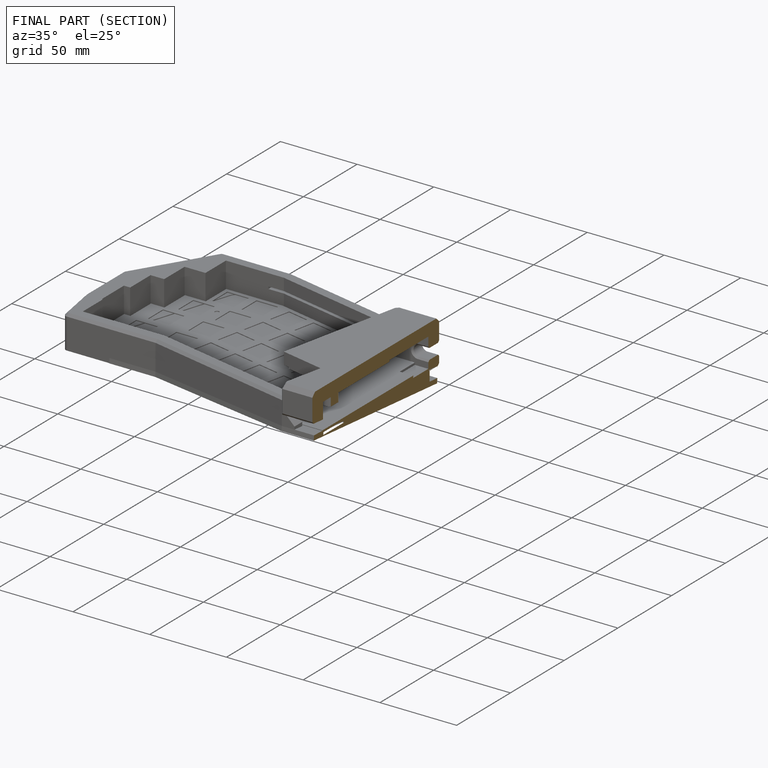
[diagram: finished part — half-section view (interior)]
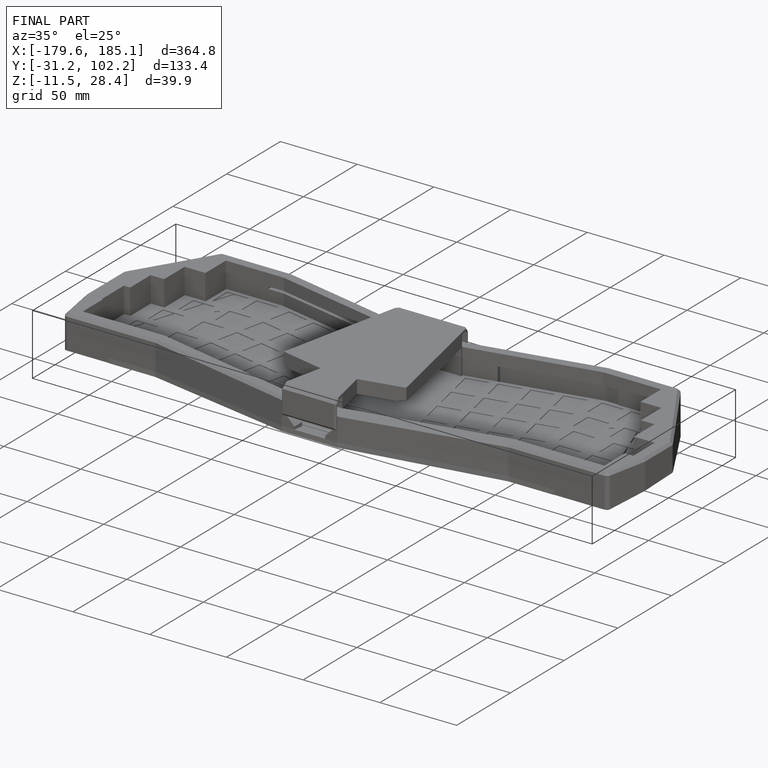
[diagram: finished part — iso view with bounding-box wireframe]
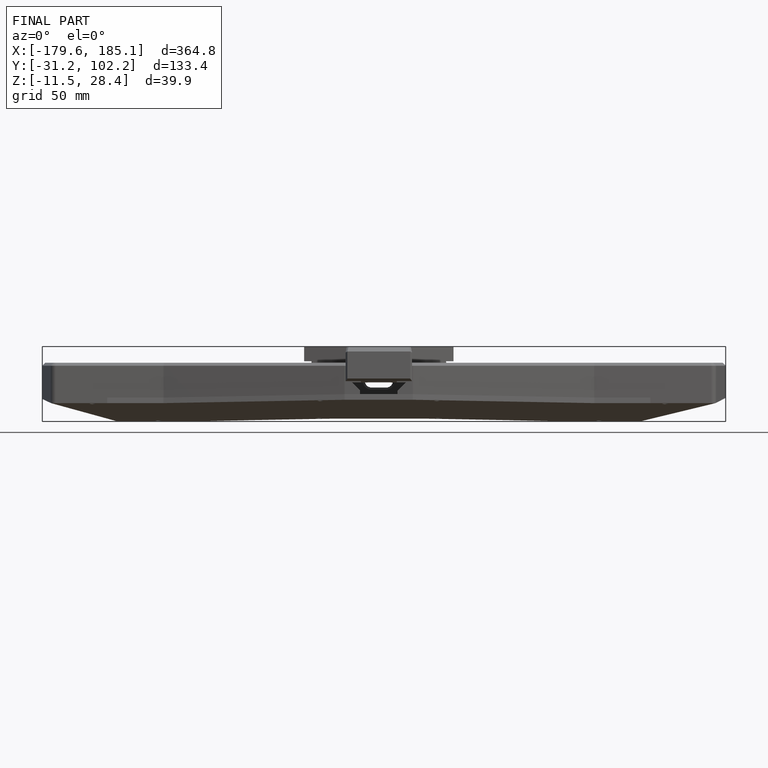
[diagram: finished part — front view with bounding-box wireframe]
